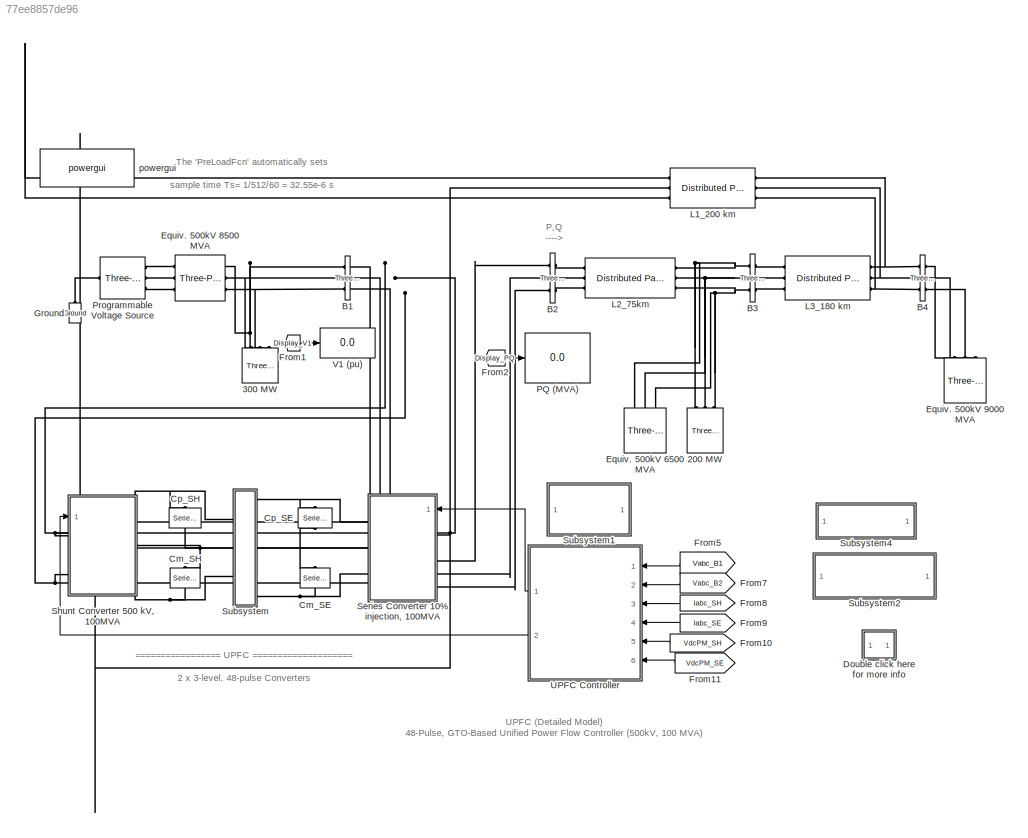
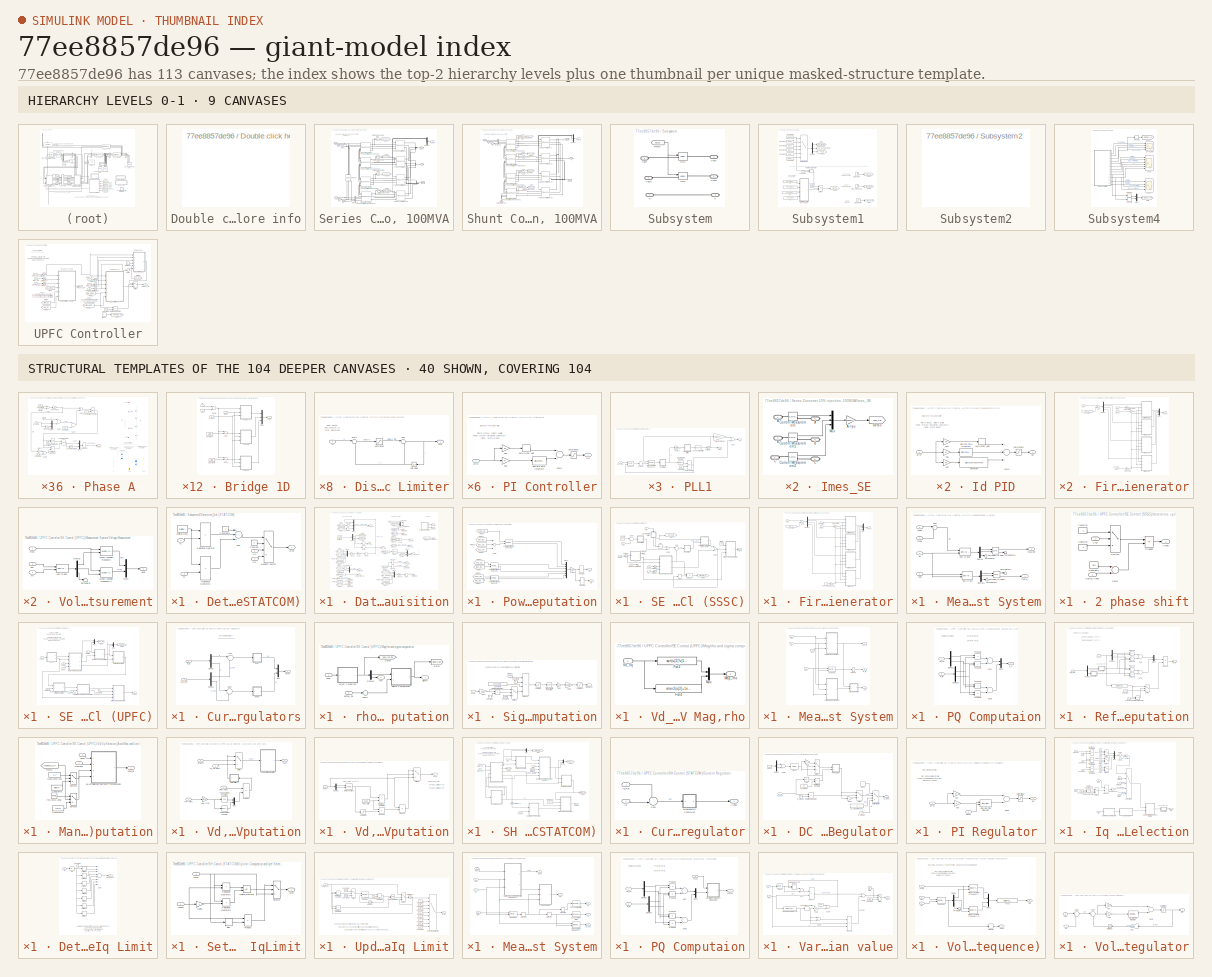
[diagram: thumbnail index - top-2 hierarchy levels (9 canvases) + 40 structural-template representatives of the remaining 104 canvases]
MODEL slx_77ee8857de96
KIND model
CONFIG PreLoadFcn = Ts=1/512/60;
BLOCK [Reference] 200 MW  REF=powerlib/Elements/Three-Phase
Series RLC Load
  ActivePower = 200e6
  AttributesFormatString = \n
  CapacitivePower = 0
  Configuration = Y (grounded)
  InductivePower = 0
  LConnTagsString = A|B|C
  LoadType = constant Z
  Measurements = None
  NominalFrequency = 60
  NominalVoltage = 500e3
  Ports = [0, 0, 0, 0, 0, 3]
  SourceBlock = powerlib/Elements/Three-Phase\nSeries RLC Load
  SourceType = Three-Phase Series RLC Load
BLOCK [Reference] 300 MW  REF=powerlib/Elements/Three-Phase
Parallel RLC Load
  ActivePower = 300e6
  AttributesFormatString = \n
  CapacitivePower = 0
  Configuration = Y (grounded)
  InductivePower = 0
  LConnTagsString = A|B|C
  LoadType = constant Z
  Measurements = None
  NominalFrequency = 60
  NominalVoltage = 500e3
  Ports = [0, 0, 0, 0, 0, 3]
  SourceBlock = powerlib/Elements/Three-Phase\nParallel RLC Load
  SourceType = Three-Phase Parallel RLC Load
BLOCK [Reference] B1  REF=powerlib/Measurements/Three-Phase
V-I Measurement
  CurrentMeasurement = yes
  Ipu = on
  LabelI = Iabc_B1
  LabelV = Vabc_B1
  OutputType = Magnitude
  PSBequivalent = 0
  Pbase = 100e6
  PhasorSimulation = off
  Ports = [0, 0, 0, 0, 0, 3, 3]
  SetLabelI = on
  SetLabelV = on
  SourceBlock = powerlib/Measurements/Three-Phase\nV-I Measurement
  SourceType = Three-Phase VI Measurement
  Vbase = 500e3
  VoltageMeasurement = phase-to-ground
  Vpu = on
  VpuLL = off
BLOCK [Reference] B2  REF=powerlib/Measurements/Three-Phase
V-I Measurement
  CurrentMeasurement = yes
  Ipu = on
  LabelI = Iabc_B2
  LabelV = Vabc_B2
  OutputType = Magnitude
  PSBequivalent = 0
  Pbase = 100e6
  PhasorSimulation = off
  Ports = [0, 0, 0, 0, 0, 3, 3]
  SetLabelI = on
  SetLabelV = on
  SourceBlock = powerlib/Measurements/Three-Phase\nV-I Measurement
  SourceType = Three-Phase VI Measurement
  Vbase = 500e3
  VoltageMeasurement = phase-to-ground
  Vpu = on
  VpuLL = off
BLOCK [Reference] B3  REF=powerlib/Measurements/Three-Phase
V-I Measurement
  CurrentMeasurement = yes
  Ipu = on
  LabelI = Iabc_B3
  LabelV = Vabc_B3
  OutputType = Magnitude
  PSBequivalent = 0
  Pbase = 100e6
  PhasorSimulation = off
  Ports = [0, 0, 0, 0, 0, 3, 3]
  SetLabelI = on
  SetLabelV = on
  SourceBlock = powerlib/Measurements/Three-Phase\nV-I Measurement
  SourceType = Three-Phase VI Measurement
  Vbase = 500e3
  VoltageMeasurement = phase-to-ground
  Vpu = on
  VpuLL = off
BLOCK [Reference] B4  REF=powerlib/Measurements/Three-Phase
V-I Measurement
  CurrentMeasurement = no
  Ipu = on
  LabelI = Iabc_B4
  LabelV = Vabc_B4
  OutputType = Magnitude
  PSBequivalent = 0
  Pbase = 100e6
  PhasorSimulation = off
  Ports = [0, 0, 0, 0, 0, 3, 3]
  SetLabelI = on
  SetLabelV = on
  SourceBlock = powerlib/Measurements/Three-Phase\nV-I Measurement
  SourceType = Three-Phase VI Measurement
  Vbase = 500e3
  VoltageMeasurement = phase-to-ground
  Vpu = on
  VpuLL = off
BLOCK [Reference] Cm_SE  REF=powerlib/Elements/Series RLC Branch
  AttributesFormatString = \n
  BranchType = C
  Capacitance = 2500e-6
  Inductance = 1.0
  InitialCurrent = 0
  InitialVoltage = 0
  LConnTagsString = __new0
  Measurements = Branch voltage
  Ports = [0, 0, 0, 0, 0, 1, 1]
  RConnTagsString = __new0
  Resistance = 1.0
  SetiL0 = off
  Setx0 = off
  SourceBlock = powerlib/Elements/Series RLC Branch
  SourceType = Series RLC Branch
BLOCK [Reference] Cm_SH  REF=powerlib/Elements/Series RLC Branch
  AttributesFormatString = \n
  BranchType = C
  Capacitance = 2500e-6
  Inductance = 1.0
  InitialCurrent = 0
  InitialVoltage = 0
  LConnTagsString = __new0
  Measurements = Branch voltage
  Ports = [0, 0, 0, 0, 0, 1, 1]
  RConnTagsString = __new0
  Resistance = 1.0
  SetiL0 = off
  Setx0 = off
  SourceBlock = powerlib/Elements/Series RLC Branch
  SourceType = Series RLC Branch
BLOCK [Reference] Cp_SE  REF=powerlib/Elements/Series RLC Branch
  AttributesFormatString = \n
  BranchType = C
  Capacitance = 2500e-6
  Inductance = 1.0
  InitialCurrent = 0
  InitialVoltage = 0
  LConnTagsString = __new0
  Measurements = Branch voltage
  Ports = [0, 0, 0, 0, 0, 1, 1]
  RConnTagsString = __new0
  Resistance = 1.0
  SetiL0 = off
  Setx0 = off
  SourceBlock = powerlib/Elements/Series RLC Branch
  SourceType = Series RLC Branch
BLOCK [Reference] Cp_SH  REF=powerlib/Elements/Series RLC Branch
  AttributesFormatString = \n
  BranchType = C
  Capacitance = 2500e-6
  Inductance = 1.0
  InitialCurrent = 0
  InitialVoltage = 0
  LConnTagsString = __new0
  Measurements = Branch voltage
  Ports = [0, 0, 0, 0, 0, 1, 1]
  RConnTagsString = __new0
  Resistance = 1.0
  SetiL0 = off
  Setx0 = off
  SourceBlock = powerlib/Elements/Series RLC Branch
  SourceType = Series RLC Branch
BLOCK [SubSystem] Double click here for more info
  OpenFcn = showdemo(bdroot(gcb))
  Ports = []
  RequestExecContextInheritance = off
BLOCK [Reference] Equiv. 500kV 6500 MVA  REF=powerlib/Electrical
Sources/Three-Phase Source
  BaseVoltage = 500e3
  BusType = swing
  Frequency = 60
  Inductance = 16.58e-3
  InternalConnection = Yg
  PhaseAngle = 9.2-20
  Ports = [0, 0, 0, 0, 0, 0, 3]
  Pref = 0
  Qmax = inf
  Qmin = -inf
  Qref = 0
  Resistance = 0.8929
  ShortCircuitLevel = 6500e6
  SourceBlock = powerlib/Electrical\nSources/Three-Phase Source
  SourceType = Three-Phase Source
  SpecifyImpedance = on
  Voltage = 500e3*1.00
  XRratio = 8
BLOCK [Reference] Equiv. 500kV 8500 MVA   REF=powerlib/Elements/Three-Phase
Series RLC Branch
  AttributesFormatString = \n
  BranchType = RL
  Capacitance = 1.0
  Inductance = 500e3^2/8500e6/(2*pi*60)
  LConnTagsString = A|B|C
  Measurements = None
  Ports = [0, 0, 0, 0, 0, 3, 3]
  RConnTagsString = A|B|C
  Resistance = 500e3^2/8500e6/10
  SourceBlock = powerlib/Elements/Three-Phase\nSeries RLC Branch
  SourceType = Three-Phase Series RLC Branch
BLOCK [Reference] Equiv. 500kV 9000 MVA  REF=powerlib/Electrical
Sources/Three-Phase Source
  BaseVoltage = 500e3
  BusType = swing
  Frequency = 60
  Inductance = 16.58e-3
  InternalConnection = Yg
  PhaseAngle = 9.2-40
  Ports = [0, 0, 0, 0, 0, 0, 3]
  Pref = 0
  Qmax = inf
  Qmin = -inf
  Qref = 0
  Resistance = 0.8929
  ShortCircuitLevel = 9000e6
  SourceBlock = powerlib/Electrical\nSources/Three-Phase Source
  SourceType = Three-Phase Source
  SpecifyImpedance = on
  Voltage = 500e3*0.98
  XRratio = 10
BLOCK [From] From1
  CloseFcn = tagdialog Close
  GotoTag = Display_V1
  TagVisibility = global
BLOCK [From] From10
  CloseFcn = tagdialog Close
  GotoTag = VdcPM_SH
  TagVisibility = global
BLOCK [From] From11
  CloseFcn = tagdialog Close
  GotoTag = VdcPM_SE
  TagVisibility = global
BLOCK [From] From2
  CloseFcn = tagdialog Close
  GotoTag = Display_PQ
  TagVisibility = global
BLOCK [From] From5
  CloseFcn = tagdialog Close
  GotoTag = Vabc_B1
  TagVisibility = global
BLOCK [From] From7
  CloseFcn = tagdialog Close
  GotoTag = Vabc_B2
  TagVisibility = global
BLOCK [From] From8
  CloseFcn = tagdialog Close
  GotoTag = Iabc_SH
  TagVisibility = global
BLOCK [From] From9
  CloseFcn = tagdialog Close
  GotoTag = Iabc_SE
  TagVisibility = global
BLOCK [Reference] Ground  REF=powerlib/Elements/Ground
  AttributesFormatString = \n
  LConnTagsString = a
  Ports = [0, 0, 0, 0, 0, 1]
  SourceBlock = powerlib/Elements/Ground
  SourceType = Ground
BLOCK [Reference] L1_200 km  REF=powerlib/Elements/Distributed Parameters Line
  AttributesFormatString = \n
  Capacitance = [12.74e-9 7.751e-9]
  Frequency = 60
  I1 = ones(3,3)
  I2 = ones(3,3)
  Inductance = [0.9337e-3  4.1264e-3]
  Length = 200
  Measurements = None
  Phases = 3
  Ports = [0, 0, 0, 0, 0, 3, 3]
  Resistance = [0.01273*2 0.3864]
  SourceBlock = powerlib/Elements/Distributed Parameters Line
  SourceType = Distributed Parameters Line
  V1 = ones(3,3)
  V2 = ones(3,3)
  nHarmo = 1
  x1 = [-0.00113932291666667 -5.83775963632197e-11 4414.79498015266 -499890.552538387;-0.00110677083333333 -5.5951515746169e-11 10548.8886083546 -499798.73537353;-0.00107421875 -5.35170090366527e-11 16681.393612734 -499631.650357529;-0.00104166666666667 -5.10744428624266e-11 22811.3864605943 -499389.322652774;-0.00100911458333333 -4.86241850649719e-11 28937.9439975605 -499071.788752926;-0.0009765625 -4.6...<+2255ch>
  x2 = [-0.00113932291666667 2.86811510446065e-11 -126400.807658291 -476001.468702008;-0.00110677083333333 2.96258624700446e-11 -120550.019662708 -477516.759017374;-0.00107421875 3.05661123495671e-11 -114681.077277582 -478960.137065278;-0.00104166666666667 3.15017590850008e-11 -108794.864344047 -480331.385478293;-0.00100911458333333 3.24326617713888e-11 -102892.267304122 -481630.297751453;-0.0009765625 3...<+2255ch>
  x3 = [-0.00113932291666667 8.8939155316367e-13 -16.9421274649171 53.6415754395801;-0.00110677083333333 8.87638250739574e-13 -17.5991164005912 53.4296303617768;-0.00107421875 8.85751273259906e-13 -18.2534549740699 53.2096389781707;-0.00104166666666667 8.83730904896535e-13 -18.9050446443711 52.9816344186549;-0.00100911458333333 8.81577449909503e-13 -19.5537872844871 52.7456510198774;-0.0009765625 8.79291...<+2236ch>
  x4 = [-0.00113932291666667 -7.78110289086618e-14 -894.269601115784 -3549.34214309645;-0.00110677083333333 -8.84298125759026e-14 -850.646376261383 -3560.04894780867;-0.00107421875 -9.90352790386398e-14 -806.895047191642 -3570.21962224425;-0.00104166666666667 -1.09625831152634e-13 -763.022202695786 -3579.85263473701;-0.00100911458333333 -1.20199874019693e-13 -719.03444986282 -3588.94653459072;-0.00097656...<+2289ch>
  x5 = 0.00113108313399149
BLOCK [Reference] L2_75km  REF=powerlib/Elements/Distributed Parameters Line
  AttributesFormatString = \n
  Capacitance = [12.74e-9 7.751e-9]
  Frequency = 60
  I1 = ones(3,3)
  I2 = ones(3,3)
  Inductance = [0.9337e-3  4.1264e-3]
  Length = 75
  Measurements = None
  Phases = 3
  Ports = [0, 0, 0, 0, 0, 3, 3]
  Resistance = [0.01273*2 0.3864]
  SourceBlock = powerlib/Elements/Distributed Parameters Line
  SourceType = Distributed Parameters Line
  V1 = ones(3,3)
  V2 = ones(3,3)
  nHarmo = 1
  x1 = [-0.000455729166666667 -1.27140528390199e-10 0 0;-0.000423177083333333 -1.26495463510687e-10 0 0;-0.000390625 -1.25831348879657e-10 0 0;-0.000358072916666667 -1.25148284510329e-10 0 0;-0.000325520833333333 -1.24446373269686e-10 0 0;-0.00029296875 -1.23725720862978e-10 0 0;-0.000260416666666667 -1.22986435817807e-10 166794.132131736 -471263.82102114;-0.000227864583333333 -1.22228629467782e-10 17256...<+487ch>
  x2 = [-0.000455729166666667 -2.36997076318553e-11 0 0;-0.000423177083333333 -2.41108726134989e-11 0 0;-0.000390625 -2.45184065864136e-11 0 0;-0.000358072916666667 -2.49222481774822e-11 0 0;-0.000325520833333333 -2.53223365696465e-11 0 0;-0.00029296875 -2.57186115110664e-11 0 0;-0.000260416666666667 -2.61110133241931e-11 120220.444766576 -484737.668130302;-0.000227864583333333 -2.6499482914757e-11 12615...<+485ch>
  x3 = [-0.000455729166666667 1.80871262636325e-13 0 0;-0.000423177083333333 1.68315951242698e-13 0 0;-0.000390625 1.55735292085928e-13 0 0;-0.000358072916666667 1.43131179767009e-13 0 0;-0.000325520833333333 1.30505512418895e-13 0 0;-0.00029296875 1.17860191420648e-13 0 0;-0.000260416666666667 1.05197121111097e-13 -104.968306035297 -46.5279101834584;-0.000227864583333333 9.25182085020516e-14 -104.389433...<+480ch>
  x4 = [-0.000455729166666667 -2.77784366561629e-13 0 0;-0.000423177083333333 -3.06117246189209e-13 0 0;-0.000390625 -3.34404025685501e-13 0 0;-0.000358072916666667 -3.6264044516556e-13 0 0;-0.000325520833333333 -3.90822252328473e-13 0 0;-0.00029296875 -4.18945203097742e-13 0 0;-0.000260416666666667 -4.47005062260427e-13 987.851977766537 -3517.72393741717;-0.000227864583333333 -4.74997604104949e-13 1030....<+486ch>
  x5 = 0.000424156175246807
BLOCK [Reference] L3_180 km  REF=powerlib/Elements/Distributed Parameters Line
  AttributesFormatString = \n
  Capacitance = [12.74e-9 7.751e-9]
  Frequency = 60
  I1 = ones(3,3)
  I2 = ones(3,3)
  Inductance = [0.9337e-3  4.1264e-3]
  Length = 180
  Measurements = None
  Phases = 3
  Ports = [0, 0, 0, 0, 0, 3, 3]
  Resistance = [0.01273*2 0.3864]
  SourceBlock = powerlib/Elements/Distributed Parameters Line
  SourceType = Distributed Parameters Line
  V1 = ones(3,3)
  V2 = ones(3,3)
  nHarmo = 1
  x1 = [-0.00104166666666667 -2.13196564095776e-11 0 0;-0.00100911458333333 -2.16197072149166e-11 0 0;-0.0009765625 -2.19165021718726e-11 0 0;-0.000944010416666667 -2.22099965842166e-11 0 0;-0.000911458333333333 -2.25001462527699e-11 0 0;-0.00087890625 -2.27869074820596e-11 0 0;-0.000846354166666667 -2.30702370868993e-11 0 0;-0.000813802083333333 -2.33500923988927e-11 0 0;-0.00078125 -2.36264312728593e-1...<+1666ch>
  x2 = [-0.00104166666666667 3.15017590850008e-11 0 0;-0.00100911458333333 3.24326617713888e-11 0 0;-0.0009765625 3.33586802182108e-11 0 0;-0.000944010416666667 3.42796749704948e-11 0 0;-0.000911458333333333 3.51955073298188e-11 0 0;-0.00087890625 3.61060393751982e-11 0 0;-0.000846354166666667 3.70111339838561e-11 0 0;-0.000813802083333333 3.79106548518737e-11 0 0;-0.00078125 3.8804466514717e-11 0 0;-0.0...<+1646ch>
  x3 = [-0.00104166666666667 1.7095544161851e-13 0 0;-0.00100911458333333 1.71091661173283e-13 0 0;-0.0009765625 1.71202114953208e-13 0 0;-0.000944010416666667 1.71286786324352e-13 0 0;-0.000911458333333333 1.71345662535518e-13 0 0;-0.00087890625 1.71378734720164e-13 0 0;-0.000846354166666667 1.71385997897743e-13 0 0;-0.000813802083333333 1.71367450974445e-13 0 0;-0.00078125 1.71323096743369e-13 0 0;-0.0...<+1644ch>
  x4 = [-0.00104166666666667 7.63530042489158e-13 0 0;-0.00100911458333333 7.54755688850395e-13 0 0;-0.0009765625 7.45867671781101e-13 0 0;-0.000944010416666667 7.36867329783954e-13 0 0;-0.000911458333333333 7.27756018277352e-13 0 0;-0.00087890625 7.18535109391295e-13 0 0;-0.000846354166666667 7.09205991760743e-13 0 0;-0.000813802083333333 6.99770070316497e-13 0 0;-0.00078125 6.90228766073618e-13 0 0;-0....<+1649ch>
  x5 = 0.00101797482059234
BLOCK [Display] PQ (MVA)
  Decimation = 1
  Format = bank
  Ports = [1]
  SampleTime = Ts*100
BLOCK [Reference] Programmable Voltage Source  REF=powerlib/Electrical
Sources/Three-Phase
Programmable
Voltage Source
  Amplitudes = [1  0.8  1.2  1.0 ]
  BusType = swing
  HarmonicA = [3 0.2 -25 0]
  HarmonicB = [2 0.15  35 2]
  HarmonicGeneration = off
  Ports = [0, 0, 0, 0, 0, 1, 3]
  PositiveSequence = [500e3*1.0491 9.2  60]
  Pref = 0
  Qmax = inf
  Qmin = -inf
  Qref = 0
  SourceBlock = powerlib/Electrical\nSources/Three-Phase\nProgrammable\nVoltage Source
  SourceType = Three-Phase Programmable Voltage Source
  TimeValues = [0 0.1 0.25 0.4]
  Timing = [0.1  0.6]
  VariationEntity = None
  VariationFrequency = 2
  VariationMagnitude = 0.4
  VariationPhaseA = off
  VariationRate = 0.5
  VariationStep = -0.3
  VariationTiming = [0.1 1.2]
  VariationType = Modulation
  VariationTypeAlt = Step
BLOCK [SubSystem] Series Converter 10% injection, 100MVA
  Ports = [1, 0, 0, 0, 0, 6, 3]
  RequestExecContextInheritance = off
BLOCK [PMIOPort] Series Converter 10% injection, 100MVA/A1 
  Port = 1
  Side = Left
BLOCK [PMIOPort] Series Converter 10% injection, 100MVA/A2 
  Port = 4
  Side = Left
BLOCK [PMIOPort] Series Converter 10% injection, 100MVA/B1 
  Port = 2
  Side = Left
BLOCK [PMIOPort] Series Converter 10% injection, 100MVA/B2 
  Port = 5
  Side = Left
BLOCK [Reference] Series Converter 10% injection, 100MVA/Breaker  REF=powerlib/Elements/Three-Phase Breaker
  AttributesFormatString = \n
  BreakerResistance = 0.0001
  External = off
  InitialState = closed
  Measurements = None
  Ports = [0, 0, 0, 0, 0, 3, 3]
  SnubberCapacitance = inf
  SnubberResistance = 1e6
  SourceBlock = powerlib/Elements/Three-Phase Breaker
  SourceType = Three-Phase Breaker
  SwitchA = on
  SwitchB = on
  SwitchC = on
  SwitchTimes = [ 0]
BLOCK [PMIOPort] Series Converter 10% injection, 100MVA/C1
  Port = 3
  Side = Left
BLOCK [PMIOPort] Series Converter 10% injection, 100MVA/C2 
  Port = 6
  Side = Left
BLOCK [Demux] Series Converter 10% injection, 100MVA/Demux
  Outputs = [12 12 12 12]
  Ports = [1, 4]
BLOCK [Goto] Series Converter 10% injection, 100MVA/Goto1
  GotoTag = Van_Tr1Yse
  TagVisibility = global
BLOCK [Goto] Series Converter 10% injection, 100MVA/Goto2
  GotoTag = Van_Tr2Yse
  TagVisibility = global
BLOCK [Goto] Series Converter 10% injection, 100MVA/Goto3
  GotoTag = Vab_Tr1Dse
  TagVisibility = global
BLOCK [Goto] Series Converter 10% injection, 100MVA/Goto4
  GotoTag = Vab_Tr2Dse
  TagVisibility = global
BLOCK [SubSystem] Series Converter 10% injection, 100MVA/Imes_SE
  Ports = [0, 0, 0, 0, 0, 3, 3]
  RequestExecContextInheritance = off
BLOCK [PMIOPort] Series Converter 10% injection, 100MVA/Imes_SE/ A
  Port = 4
  Side = Right
BLOCK [PMIOPort] Series Converter 10% injection, 100MVA/Imes_SE/ B
  Port = 5
  Side = Right
BLOCK [PMIOPort] Series Converter 10% injection, 100MVA/Imes_SE/ C
  Port = 6
  Side = Right
BLOCK [PMIOPort] Series Converter 10% injection, 100MVA/Imes_SE/A 
  Port = 1
  Side = Left
BLOCK [Gain] Series Converter 10% injection, 100MVA/Imes_SE/A->pu
  Gain = 500e3*sqrt(3)/100e6/sqrt(2)
BLOCK [PMIOPort] Series Converter 10% injection, 100MVA/Imes_SE/B 
  Port = 2
  Side = Left
BLOCK [PMIOPort] Series Converter 10% injection, 100MVA/Imes_SE/C 
  Port = 3
  Side = Left
BLOCK [Reference] Series Converter 10% injection, 100MVA/Imes_SE/Current Measurement  REF=powerlib/Measurements/Current Measurement
  AttributesFormatString = \n
  OutputType = Magnitude
  PSBequivalent = 0
  PhasorSimulation = off
  Ports = [0, 1, 0, 0, 0, 1, 1]
  SourceBlock = powerlib/Measurements/Current Measurement
  SourceType = Current Measurement
  Tag = PoWeRsYsTeMmEaSuReMeNt
BLOCK [Reference] Series Converter 10% injection, 100MVA/Imes_SE/Current Measurement1  REF=powerlib/Measurements/Current Measurement
  AttributesFormatString = \n
  OutputType = Magnitude
  PSBequivalent = 0
  PhasorSimulation = off
  Ports = [0, 1, 0, 0, 0, 1, 1]
  SourceBlock = powerlib/Measurements/Current Measurement
  SourceType = Current Measurement
  Tag = PoWeRsYsTeMmEaSuReMeNt
BLOCK [Reference] Series Converter 10% injection, 100MVA/Imes_SE/Current Measurement2  REF=powerlib/Measurements/Current Measurement
  AttributesFormatString = \n
  OutputType = Magnitude
  PSBequivalent = 0
  PhasorSimulation = off
  Ports = [0, 1, 0, 0, 0, 1, 1]
  SourceBlock = powerlib/Measurements/Current Measurement
  SourceType = Current Measurement
  Tag = PoWeRsYsTeMmEaSuReMeNt
BLOCK [Goto] Series Converter 10% injection, 100MVA/Imes_SE/Goto3
  GotoTag = Iabc_SE
  TagVisibility = global
BLOCK [Mux] Series Converter 10% injection, 100MVA/Imes_SE/Mux
  DisplayOption = bar
  Inputs = 3
  Ports = [3, 1]
BLOCK [PMIOPort] Series Converter 10% injection, 100MVA/N
  Port = 8
  Side = Right
BLOCK [Inport] Series Converter 10% injection, 100MVA/Pulses
  IconDisplay = Port number
  PortDimensions = 48
BLOCK [Reference] Series Converter 10% injection, 100MVA/Three-Level Bridge 12Y  REF=powerlib/Power
Electronics/Three-Level Bridge
  Arms = 3
  AttributesFormatString = \n
  Device = GTO / Diodes
  ForwardVoltages = [  0  0  ]
  Measurements = None
  Ports = [1, 0, 0, 0, 0, 3, 3]
  Ron = 1e-4
  SbubberCapacitance = inf
  SnubberResistance = 1e5
  SourceBlock = powerlib/Power\nElectronics/Three-Level Bridge
  SourceType = Three-Level Bridge
BLOCK [Reference] Series Converter 10% injection, 100MVA/Three-Level Bridge 1D  REF=powerlib/Power
Electronics/Three-Level Bridge
  Arms = 3
  AttributesFormatString = \n
  Device = GTO / Diodes
  ForwardVoltages = [  0  0  ]
  Measurements = None
  Ports = [1, 0, 0, 0, 0, 3, 3]
  Ron = 1e-4
  SbubberCapacitance = inf
  SnubberResistance = 1e5
  SourceBlock = powerlib/Power\nElectronics/Three-Level Bridge
  SourceType = Three-Level Bridge
BLOCK [Reference] Series Converter 10% injection, 100MVA/Three-Level Bridge 1Y  REF=powerlib/Power
Electronics/Three-Level Bridge
  Arms = 3
  AttributesFormatString = \n
  Device = GTO / Diodes
  ForwardVoltages = [  0  0  ]
  Measurements = None
  Ports = [1, 0, 0, 0, 0, 3, 3]
  Ron = 1e-4
  SbubberCapacitance = inf
  SnubberResistance = 1e5
  SourceBlock = powerlib/Power\nElectronics/Three-Level Bridge
  SourceType = Three-Level Bridge
BLOCK [Reference] Series Converter 10% injection, 100MVA/Three-Level Bridge 2D  REF=powerlib/Power
Electronics/Three-Level Bridge
  Arms = 3
  AttributesFormatString = \n
  Device = GTO / Diodes
  ForwardVoltages = [  0  0  ]
  Measurements = None
  Ports = [1, 0, 0, 0, 0, 3, 3]
  Ron = 1e-4
  SbubberCapacitance = inf
  SnubberResistance = 1e5
  SourceBlock = powerlib/Power\nElectronics/Three-Level Bridge
  SourceType = Three-Level Bridge
BLOCK [PMIOPort] Series Converter 10% injection, 100MVA/VdcM
  Port = 9
  Side = Right
BLOCK [PMIOPort] Series Converter 10% injection, 100MVA/VdcP
  Port = 7
  Side = Right
BLOCK [Reference] Series Converter 10% injection, 100MVA/Voltage Measurement  REF=powerlib/Measurements/Voltage Measurement
  AttributesFormatString = \n
  OutputType = Magnitude
  PSBequivalent = 0
  PhasorSimulation = off
  Ports = [0, 1, 0, 0, 0, 2]
  SourceBlock = powerlib/Measurements/Voltage Measurement
  SourceType = Voltage Measurement
  Tag = PoWeRsYsTeMmEaSuReMeNt
BLOCK [Reference] Series Converter 10% injection, 100MVA/Voltage Measurement1  REF=powerlib/Measurements/Voltage Measurement
  AttributesFormatString = \n
  OutputType = Magnitude
  PSBequivalent = 0
  PhasorSimulation = off
  Ports = [0, 1, 0, 0, 0, 2]
  SourceBlock = powerlib/Measurements/Voltage Measurement
  SourceType = Voltage Measurement
  Tag = PoWeRsYsTeMmEaSuReMeNt
BLOCK [Reference] Series Converter 10% injection, 100MVA/Voltage Measurement2  REF=powerlib/Measurements/Voltage Measurement
  AttributesFormatString = \n
  OutputType = Magnitude
  PSBequivalent = 0
  PhasorSimulation = off
  Ports = [0, 1, 0, 0, 0, 2]
  SourceBlock = powerlib/Measurements/Voltage Measurement
  SourceType = Voltage Measurement
  Tag = PoWeRsYsTeMmEaSuReMeNt
BLOCK [Reference] Series Converter 10% injection, 100MVA/Voltage Measurement3  REF=powerlib/Measurements/Voltage Measurement
  AttributesFormatString = \n
  OutputType = Magnitude
  PSBequivalent = 0
  PhasorSimulation = off
  Ports = [0, 1, 0, 0, 0, 2]
  SourceBlock = powerlib/Measurements/Voltage Measurement
  SourceType = Voltage Measurement
  Tag = PoWeRsYsTeMmEaSuReMeNt
BLOCK [Reference] Series Converter 10% injection, 100MVA/Zigzag transformer Phase-Shifting of +7.5 deg. Tr1Y  REF=powerlib/Elements/Zigzag
Phase-Shifting Transformer
  AttributesFormatString = \n
  BreakLoop = off
  DataType = off
  InitialFluxes = [0,0,0]
  Measurements = None
  MoreParameters = off
  NominalPower = [ 100e6/4 60]
  Ports = [0, 0, 0, 0, 0, 6, 4]
  PrimaryVoltage = 12.5e3
  Rm = 500
  RmLm = [ 500 500 ]
  Saturation = [ 0,0 ; 0.0024,1.2 ; 1.0,1.52 ]
  SecondaryConnection = Yn
  SecondaryVoltage = [ 12.5e3  +7.5]
  SetInitialFlux = off
  SetSaturation = off
  SourceBlock = powerlib/Elements/Zigzag\nPhase-Shifting Transformer
  SourceType = Zigzag Phase-Shifting Transformer
  UNITS = pu
  Winding1 = [ 0.05/30 0.05 ]
  Winding2 = [ 0.05/30 0.05 ]
  Winding3 = [ 0.05/30 0.05 ]
BLOCK [Reference] Series Converter 10% injection, 100MVA/Zigzag transformer Phase-Shifting of +7.5 deg. Tr1Y1  REF=powerlib/Elements/Zigzag
Phase-Shifting Transformer
  AttributesFormatString = \n
  BreakLoop = off
  DataType = off
  InitialFluxes = [0,0,0]
  Measurements = None
  MoreParameters = off
  NominalPower = [ 100e6/4 60]
  Ports = [0, 0, 0, 0, 0, 6, 3]
  PrimaryVoltage = 12.5e3
  Rm = 500
  RmLm = [ 500 500 ]
  Saturation = [ 0,0 ; 0.0024,1.2 ; 1.0,1.52 ]
  SecondaryConnection = Delta D1(-30 deg.)
  SecondaryVoltage = [ 12.5e3  +7.5]
  SetInitialFlux = off
  SetSaturation = off
  SourceBlock = powerlib/Elements/Zigzag\nPhase-Shifting Transformer
  SourceType = Zigzag Phase-Shifting Transformer
  UNITS = pu
  Winding1 = [ 0.05/30 0.05 ]
  Winding2 = [ 0.05/30 0.05 ]
  Winding3 = [ 0.05/30 0.05 ]
BLOCK [Reference] Series Converter 10% injection, 100MVA/Zigzag transformer Phase-Shifting of -7.5 deg. Tr1Y2  REF=powerlib/Elements/Zigzag
Phase-Shifting Transformer
  AttributesFormatString = \n
  BreakLoop = off
  DataType = off
  InitialFluxes = [0,0,0]
  Measurements = None
  MoreParameters = off
  NominalPower = [ 100e6/4 60]
  Ports = [0, 0, 0, 0, 0, 6, 3]
  PrimaryVoltage = 12.5e3
  Rm = 500
  RmLm = [ 500 500 ]
  Saturation = [ 0,0 ; 0.0024,1.2 ; 1.0,1.52 ]
  SecondaryConnection = Delta D1(-30 deg.)
  SecondaryVoltage = [ 12.5e3  -7.5]
  SetInitialFlux = off
  SetSaturation = off
  SourceBlock = powerlib/Elements/Zigzag\nPhase-Shifting Transformer
  SourceType = Zigzag Phase-Shifting Transformer
  UNITS = pu
  Winding1 = [ 0.05/30 0.05 ]
  Winding2 = [ 0.05/30 0.05 ]
  Winding3 = [ 0.05/30 0.05 ]
BLOCK [Reference] Series Converter 10% injection, 100MVA/Zigzag transformer Phase-Shifting of -7.5 deg. Tr2Y  REF=powerlib/Elements/Zigzag
Phase-Shifting Transformer
  AttributesFormatString = \n
  BreakLoop = off
  DataType = off
  InitialFluxes = [0,0,0]
  Measurements = None
  MoreParameters = off
  NominalPower = [ 100e6/4 60]
  Ports = [0, 0, 0, 0, 0, 6, 4]
  PrimaryVoltage = 12.5e3
  Rm = 500
  RmLm = [ 500 500 ]
  Saturation = [ 0,0 ; 0.0024,1.2 ; 1.0,1.52 ]
  SecondaryConnection = Yn
  SecondaryVoltage = [ 12.5e3  -7.5]
  SetInitialFlux = off
  SetSaturation = off
  SourceBlock = powerlib/Elements/Zigzag\nPhase-Shifting Transformer
  SourceType = Zigzag Phase-Shifting Transformer
  UNITS = pu
  Winding1 = [ 0.05/30 0.05 ]
  Winding2 = [ 0.05/30 0.05 ]
  Winding3 = [ 0.05/30 0.05 ]
BLOCK [SubSystem] Shunt Converter 500 kV, 100MVA
  Ports = [1, 0, 0, 0, 0, 3, 3]
  RequestExecContextInheritance = off
BLOCK [PMIOPort] Shunt Converter 500 kV, 100MVA/A
  Port = 4
  Side = Left
BLOCK [PMIOPort] Shunt Converter 500 kV, 100MVA/B
  Port = 5
  Side = Left
BLOCK [PMIOPort] Shunt Converter 500 kV, 100MVA/C
  Port = 6
  Side = Left
BLOCK [Demux] Shunt Converter 500 kV, 100MVA/Demux
  Outputs = [12 12 12 12]
  Ports = [1, 4]
BLOCK [Goto] Shunt Converter 500 kV, 100MVA/Goto1
  GotoTag = Van_Tr1Y
  TagVisibility = global
BLOCK [Goto] Shunt Converter 500 kV, 100MVA/Goto2
  GotoTag = Van_Tr2Y
  TagVisibility = global
BLOCK [Goto] Shunt Converter 500 kV, 100MVA/Goto3
  GotoTag = Vab_Tr1D
  TagVisibility = global
BLOCK [Goto] Shunt Converter 500 kV, 100MVA/Goto4
  GotoTag = Vab_Tr2D
  TagVisibility = global
BLOCK [SubSystem] Shunt Converter 500 kV, 100MVA/Imes_SH
  Ports = [0, 0, 0, 0, 0, 3, 3]
  RequestExecContextInheritance = off
BLOCK [PMIOPort] Shunt Converter 500 kV, 100MVA/Imes_SH/ A
  Port = 4
  Side = Right
BLOCK [PMIOPort] Shunt Converter 500 kV, 100MVA/Imes_SH/ B
  Port = 5
  Side = Right
BLOCK [PMIOPort] Shunt Converter 500 kV, 100MVA/Imes_SH/ C
  Port = 6
  Side = Right
BLOCK [PMIOPort] Shunt Converter 500 kV, 100MVA/Imes_SH/A 
  Port = 1
  Side = Left
BLOCK [Gain] Shunt Converter 500 kV, 100MVA/Imes_SH/A->pu
  Gain = 500e3*sqrt(3)/100e6/sqrt(2)
BLOCK [PMIOPort] Shunt Converter 500 kV, 100MVA/Imes_SH/B 
  Port = 2
  Side = Left
BLOCK [PMIOPort] Shunt Converter 500 kV, 100MVA/Imes_SH/C 
  Port = 3
  Side = Left
BLOCK [Reference] Shunt Converter 500 kV, 100MVA/Imes_SH/Current Measurement  REF=powerlib/Measurements/Current Measurement
  AttributesFormatString = \n
  OutputType = Magnitude
  PSBequivalent = 0
  PhasorSimulation = off
  Ports = [0, 1, 0, 0, 0, 1, 1]
  SourceBlock = powerlib/Measurements/Current Measurement
  SourceType = Current Measurement
  Tag = PoWeRsYsTeMmEaSuReMeNt
BLOCK [Reference] Shunt Converter 500 kV, 100MVA/Imes_SH/Current Measurement1  REF=powerlib/Measurements/Current Measurement
  AttributesFormatString = \n
  OutputType = Magnitude
  PSBequivalent = 0
  PhasorSimulation = off
  Ports = [0, 1, 0, 0, 0, 1, 1]
  SourceBlock = powerlib/Measurements/Current Measurement
  SourceType = Current Measurement
  Tag = PoWeRsYsTeMmEaSuReMeNt
BLOCK [Reference] Shunt Converter 500 kV, 100MVA/Imes_SH/Current Measurement2  REF=powerlib/Measurements/Current Measurement
  AttributesFormatString = \n
  OutputType = Magnitude
  PSBequivalent = 0
  PhasorSimulation = off
  Ports = [0, 1, 0, 0, 0, 1, 1]
  SourceBlock = powerlib/Measurements/Current Measurement
  SourceType = Current Measurement
  Tag = PoWeRsYsTeMmEaSuReMeNt
BLOCK [Goto] Shunt Converter 500 kV, 100MVA/Imes_SH/Goto3
  GotoTag = Iabc_SH
  TagVisibility = global
BLOCK [Mux] Shunt Converter 500 kV, 100MVA/Imes_SH/Mux
  DisplayOption = bar
  Inputs = 3
  Ports = [3, 1]
BLOCK [PMIOPort] Shunt Converter 500 kV, 100MVA/N
  Port = 2
  Side = Right
BLOCK [Inport] Shunt Converter 500 kV, 100MVA/Pulses
  IconDisplay = Port number
  PortDimensions = 48
BLOCK [Reference] Shunt Converter 500 kV, 100MVA/Three-Level Bridge 12Y  REF=powerlib/Power
Electronics/Three-Level Bridge
  Arms = 3
  AttributesFormatString = \n
  Device = GTO / Diodes
  ForwardVoltages = [  0  0  ]
  Measurements = None
  Ports = [1, 0, 0, 0, 0, 3, 3]
  Ron = 1e-4
  SbubberCapacitance = inf
  SnubberResistance = 1e5
  SourceBlock = powerlib/Power\nElectronics/Three-Level Bridge
  SourceType = Three-Level Bridge
BLOCK [Reference] Shunt Converter 500 kV, 100MVA/Three-Level Bridge 1D  REF=powerlib/Power
Electronics/Three-Level Bridge
  Arms = 3
  AttributesFormatString = \n
  Device = GTO / Diodes
  ForwardVoltages = [  0  0  ]
  Measurements = None
  Ports = [1, 0, 0, 0, 0, 3, 3]
  Ron = 1e-4
  SbubberCapacitance = inf
  SnubberResistance = 1e5
  SourceBlock = powerlib/Power\nElectronics/Three-Level Bridge
  SourceType = Three-Level Bridge
BLOCK [Reference] Shunt Converter 500 kV, 100MVA/Three-Level Bridge 1Y  REF=powerlib/Power
Electronics/Three-Level Bridge
  Arms = 3
  AttributesFormatString = \n
  Device = GTO / Diodes
  ForwardVoltages = [  0  0  ]
  Measurements = None
  Ports = [1, 0, 0, 0, 0, 3, 3]
  Ron = 1e-4
  SbubberCapacitance = inf
  SnubberResistance = 1e5
  SourceBlock = powerlib/Power\nElectronics/Three-Level Bridge
  SourceType = Three-Level Bridge
BLOCK [Reference] Shunt Converter 500 kV, 100MVA/Three-Level Bridge 2D  REF=powerlib/Power
Electronics/Three-Level Bridge
  Arms = 3
  AttributesFormatString = \n
  Device = GTO / Diodes
  ForwardVoltages = [  0  0  ]
  Measurements = None
  Ports = [1, 0, 0, 0, 0, 3, 3]
  Ron = 1e-4
  SbubberCapacitance = inf
  SnubberResistance = 1e5
  SourceBlock = powerlib/Power\nElectronics/Three-Level Bridge
  SourceType = Three-Level Bridge
BLOCK [PMIOPort] Shunt Converter 500 kV, 100MVA/VdcM
  Port = 3
  Side = Right
BLOCK [PMIOPort] Shunt Converter 500 kV, 100MVA/VdcP
  Port = 1
  Side = Right
BLOCK [Reference] Shunt Converter 500 kV, 100MVA/Voltage Measurement  REF=powerlib/Measurements/Voltage Measurement
  AttributesFormatString = \n
  OutputType = Magnitude
  PSBequivalent = 0
  PhasorSimulation = off
  Ports = [0, 1, 0, 0, 0, 2]
  SourceBlock = powerlib/Measurements/Voltage Measurement
  SourceType = Voltage Measurement
  Tag = PoWeRsYsTeMmEaSuReMeNt
BLOCK [Reference] Shunt Converter 500 kV, 100MVA/Voltage Measurement1  REF=powerlib/Measurements/Voltage Measurement
  AttributesFormatString = \n
  OutputType = Magnitude
  PSBequivalent = 0
  PhasorSimulation = off
  Ports = [0, 1, 0, 0, 0, 2]
  SourceBlock = powerlib/Measurements/Voltage Measurement
  SourceType = Voltage Measurement
  Tag = PoWeRsYsTeMmEaSuReMeNt
BLOCK [Reference] Shunt Converter 500 kV, 100MVA/Voltage Measurement2  REF=powerlib/Measurements/Voltage Measurement
  AttributesFormatString = \n
  OutputType = Magnitude
  PSBequivalent = 0
  PhasorSimulation = off
  Ports = [0, 1, 0, 0, 0, 2]
  SourceBlock = powerlib/Measurements/Voltage Measurement
  SourceType = Voltage Measurement
  Tag = PoWeRsYsTeMmEaSuReMeNt
BLOCK [Reference] Shunt Converter 500 kV, 100MVA/Voltage Measurement3  REF=powerlib/Measurements/Voltage Measurement
  AttributesFormatString = \n
  OutputType = Magnitude
  PSBequivalent = 0
  PhasorSimulation = off
  Ports = [0, 1, 0, 0, 0, 2]
  SourceBlock = powerlib/Measurements/Voltage Measurement
  SourceType = Voltage Measurement
  Tag = PoWeRsYsTeMmEaSuReMeNt
BLOCK [Reference] Shunt Converter 500 kV, 100MVA/Zigzag transformer Phase-Shifting of +7.5 deg. Tr1Y  REF=powerlib/Elements/Zigzag
Phase-Shifting Transformer
  AttributesFormatString = \n
  BreakLoop = off
  DataType = off
  InitialFluxes = [0,0,0]
  Measurements = None
  MoreParameters = off
  NominalPower = [ 100e6/4 60]
  Ports = [0, 0, 0, 0, 0, 6, 4]
  PrimaryVoltage = 500e3/4
  Rm = 500
  RmLm = [ 500 500 ]
  Saturation = [ 0,0 ; 0.0024,1.2 ; 1.0,1.52 ]
  SecondaryConnection = Yn
  SecondaryVoltage = [ 15e3  +7.5]
  SetInitialFlux = off
  SetSaturation = off
  SourceBlock = powerlib/Elements/Zigzag\nPhase-Shifting Transformer
  SourceType = Zigzag Phase-Shifting Transformer
  UNITS = pu
  Winding1 = [ 0.05/30 0.05 ]
  Winding2 = [ 0.05/30 0.05 ]
  Winding3 = [ 0.05/30 0.05 ]
BLOCK [Reference] Shunt Converter 500 kV, 100MVA/Zigzag transformer Phase-Shifting of +7.5 deg. Tr1Y1  REF=powerlib/Elements/Zigzag
Phase-Shifting Transformer
  AttributesFormatString = \n
  BreakLoop = off
  DataType = off
  InitialFluxes = [0,0,0]
  Measurements = None
  MoreParameters = off
  NominalPower = [ 100e6/4 60]
  Ports = [0, 0, 0, 0, 0, 6, 3]
  PrimaryVoltage = 500e3/4
  Rm = 500
  RmLm = [ 500 500 ]
  Saturation = [ 0,0 ; 0.0024,1.2 ; 1.0,1.52 ]
  SecondaryConnection = Delta D1(-30 deg.)
  SecondaryVoltage = [ 15e3  +7.5]
  SetInitialFlux = off
  SetSaturation = off
  SourceBlock = powerlib/Elements/Zigzag\nPhase-Shifting Transformer
  SourceType = Zigzag Phase-Shifting Transformer
  UNITS = pu
  Winding1 = [ 0.05/30 0.05 ]
  Winding2 = [ 0.05/30 0.05 ]
  Winding3 = [ 0.05/30 0.05 ]
BLOCK [Reference] Shunt Converter 500 kV, 100MVA/Zigzag transformer Phase-Shifting of -7.5 deg. Tr1Y2  REF=powerlib/Elements/Zigzag
Phase-Shifting Transformer
  AttributesFormatString = \n
  BreakLoop = off
  DataType = off
  InitialFluxes = [0,0,0]
  Measurements = None
  MoreParameters = off
  NominalPower = [ 100e6/4 60]
  Ports = [0, 0, 0, 0, 0, 6, 3]
  PrimaryVoltage = 500e3/4
  Rm = 500
  RmLm = [ 500 500 ]
  Saturation = [ 0,0 ; 0.0024,1.2 ; 1.0,1.52 ]
  SecondaryConnection = Delta D1(-30 deg.)
  SecondaryVoltage = [ 15e3  -7.5]
  SetInitialFlux = off
  SetSaturation = off
  SourceBlock = powerlib/Elements/Zigzag\nPhase-Shifting Transformer
  SourceType = Zigzag Phase-Shifting Transformer
  UNITS = pu
  Winding1 = [ 0.05/30 0.05 ]
  Winding2 = [ 0.05/30 0.05 ]
  Winding3 = [ 0.05/30 0.05 ]
BLOCK [Reference] Shunt Converter 500 kV, 100MVA/Zigzag transformer Phase-Shifting of -7.5 deg. Tr2Y  REF=powerlib/Elements/Zigzag
Phase-Shifting Transformer
  AttributesFormatString = \n
  BreakLoop = off
  DataType = off
  InitialFluxes = [0,0,0]
  Measurements = None
  MoreParameters = off
  NominalPower = [ 100e6/4 60]
  Ports = [0, 0, 0, 0, 0, 6, 4]
  PrimaryVoltage = 500e3/4
  Rm = 500
  RmLm = [ 500 500 ]
  Saturation = [ 0,0 ; 0.0024,1.2 ; 1.0,1.52 ]
  SecondaryConnection = Yn
  SecondaryVoltage = [ 15e3  -7.5]
  SetInitialFlux = off
  SetSaturation = off
  SourceBlock = powerlib/Elements/Zigzag\nPhase-Shifting Transformer
  SourceType = Zigzag Phase-Shifting Transformer
  UNITS = pu
  Winding1 = [ 0.05/30 0.05 ]
  Winding2 = [ 0.05/30 0.05 ]
  Winding3 = [ 0.05/30 0.05 ]
BLOCK [Reference] Shunt Converter 500 kV, 100MVA/output Ground1  REF=powerlib/Elements/Ground
  AttributesFormatString = \n
  LConnTagsString = a
  Ports = [0, 0, 0, 0, 0, 1, 1]
  RConnTagsString = __newr0
  SourceBlock = powerlib/Elements/Ground
  SourceType = Ground
BLOCK [SubSystem] Subsystem
  Ports = [0, 0, 0, 0, 0, 3, 3]
  RequestExecContextInheritance = off
BLOCK [PMIOPort] Subsystem/ N
  Port = 5
  Side = Right
BLOCK [PMIOPort] Subsystem/ VdcM
  Port = 6
  Side = Right
BLOCK [PMIOPort] Subsystem/ VdcP
  Port = 4
  Side = Right
BLOCK [From] Subsystem/From5
  CloseFcn = tagdialog Close
  GotoTag = Sw_On
  TagVisibility = global
BLOCK [PMIOPort] Subsystem/N 
  Port = 2
  Side = Left
BLOCK [Reference] Subsystem/Sw1  REF=powerlib/Power
Electronics/Ideal Switch
  AttributesFormatString = \n
  Cs = 0
  IC = 0
  Lon = 0
  Measurements = off
  Ports = [1, 0, 0, 0, 0, 1, 1]
  Ron = 0.0001
  Rs = inf
  SourceBlock = powerlib/Power\nElectronics/Ideal Switch
  SourceType = Ideal Switch
BLOCK [Reference] Subsystem/Sw2  REF=powerlib/Power
Electronics/Ideal Switch
  AttributesFormatString = \n
  Cs = 0
  IC = 0
  Lon = 0
  Measurements = off
  Ports = [1, 0, 0, 0, 0, 1, 1]
  Ron = 0.0001
  Rs = inf
  SourceBlock = powerlib/Power\nElectronics/Ideal Switch
  SourceType = Ideal Switch
BLOCK [PMIOPort] Subsystem/VdcM 
  Port = 3
  Side = Left
BLOCK [PMIOPort] Subsystem/VdcP 
  Port = 1
  Side = Left
BLOCK [SubSystem] Subsystem1
  Ports = []
  RequestExecContextInheritance = off
BLOCK [Constant] Subsystem1/Constant
  Value = 3
BLOCK [Constant] Subsystem1/Constant1
  Value = [ 2 1 0]
BLOCK [Constant] Subsystem1/Constant2
  Value = OpMode
BLOCK [Constant] Subsystem1/Constant3
  Value = [ 1 1 0]
BLOCK [Constant] Subsystem1/Constant4
  Value = [ 2 2 0]
BLOCK [Constant] Subsystem1/Constant5
  Value = [ 1 2 0]
BLOCK [Constant] Subsystem1/Constant6
  Value = [ 1 0 1]
BLOCK [Constant] Subsystem1/Constant7
  Value = 0
BLOCK [Demux] Subsystem1/Demux
  Outputs = 3
  Ports = [1, 3]
BLOCK [SubSystem] Subsystem1/Determine_Qref (STATCOM)
  Ports = [4, 1]
  RequestExecContextInheritance = off
BLOCK [Constant] Subsystem1/Determine_Qref (STATCOM)/Constant
  Value = 0
BLOCK [Constant] Subsystem1/Determine_Qref (STATCOM)/Constant1
BLOCK [DigitalClock] Subsystem1/Determine_Qref (STATCOM)/Digital Clock
  SampleTime = Ts
BLOCK [MultiPortSwitch] Subsystem1/Determine_Qref (STATCOM)/Multiport Switch
  InputSameDT = off
  Ports = [4, 1]
BLOCK [Inport] Subsystem1/Determine_Qref (STATCOM)/Q1
  IconDisplay = Port number
  Port = 3
BLOCK [Inport] Subsystem1/Determine_Qref (STATCOM)/Q2
  IconDisplay = Port number
  Port = 4
BLOCK [Outport] Subsystem1/Determine_Qref (STATCOM)/Qref
  IconDisplay = Port number
BLOCK [RelationalOperator] Subsystem1/Determine_Qref (STATCOM)/Relational Operator
  InputSameDT = off
  Operator = >
  Ports = [2, 1]
BLOCK [RelationalOperator] Subsystem1/Determine_Qref (STATCOM)/Relational Operator1
  InputSameDT = off
  Operator = >
  Ports = [2, 1]
BLOCK [Sum] Subsystem1/Determine_Qref (STATCOM)/Sum
  InputSameDT = off
  Inputs = +++
  OutDataTypeStr = Inherit: Inherit via internal rule
  Ports = [3, 1]
BLOCK [Inport] Subsystem1/Determine_Qref (STATCOM)/T1
  IconDisplay = Port number
BLOCK [Inport] Subsystem1/Determine_Qref (STATCOM)/T2
  IconDisplay = Port number
  Port = 2
BLOCK [Goto] Subsystem1/Goto1
  GotoTag = SE_Mode
  TagVisibility = global
BLOCK [Goto] Subsystem1/Goto2
  GotoTag = SH_Mode
  TagVisibility = global
BLOCK [Goto] Subsystem1/Goto3
  GotoTag = Sw_On
  TagVisibility = global
BLOCK [Goto] Subsystem1/Goto4
  GotoTag = Qref_SH
  TagVisibility = global
BLOCK [Goto] Subsystem1/Goto5
  GotoTag = Vref_SH
  TagVisibility = global
BLOCK [Goto] Subsystem1/Goto6
  GotoTag = Vinj_SSSC
  TagVisibility = global
BLOCK [Goto] Subsystem1/Goto7
  GotoTag = PQref_UPFC
  TagVisibility = global
BLOCK [MultiPortSwitch] Subsystem1/Multiport Switch
  InputSameDT = off
  Inputs = 5
  Ports = [6, 1]
BLOCK [Constant] Subsystem1/Q1
  Value = Par_VarControl(3)
BLOCK [Constant] Subsystem1/Q2
  Value = Par_VarControl(4)
BLOCK [RelationalOperator] Subsystem1/Relational Operator
  InputSameDT = off
  Operator = ==
  Ports = [2, 1]
BLOCK [Step] Subsystem1/Step_PQref
  After = [Par_UPFC_Pref(2) Par_UPFC_Qref(2) ]
  Before = [Par_UPFC_Pref(1) Par_UPFC_Qref(1) ]
  SampleTime = 0
  Time = [Par_UPFC_Pref(3) Par_UPFC_Qref(3) ]
BLOCK [Step] Subsystem1/Step_Vinj_SSSC
  After = Par_SSSC(2)
  Before = Par_SSSC(1)
  SampleTime = 0
  Time = Par_SSSC(3)
BLOCK [Step] Subsystem1/Step_Vref
  After = Par_Vref(2)
  Before = Par_Vref(1)
  SampleTime = 0
  Time = Par_Vref(3)
BLOCK [Switch] Subsystem1/Switch
  InputSameDT = off
  Threshold = 0.5
BLOCK [Constant] Subsystem1/T1
  Value = Par_VarControl(1)
BLOCK [Constant] Subsystem1/T2
  Value = Par_VarControl(2)
BLOCK [SubSystem] Subsystem2
  OpenFcn = openfig('power_upfc_gto48p_PQregion.fig');
  Ports = []
  RequestExecContextInheritance = off
BLOCK [SubSystem] Subsystem4
  Ports = []
  RequestExecContextInheritance = off
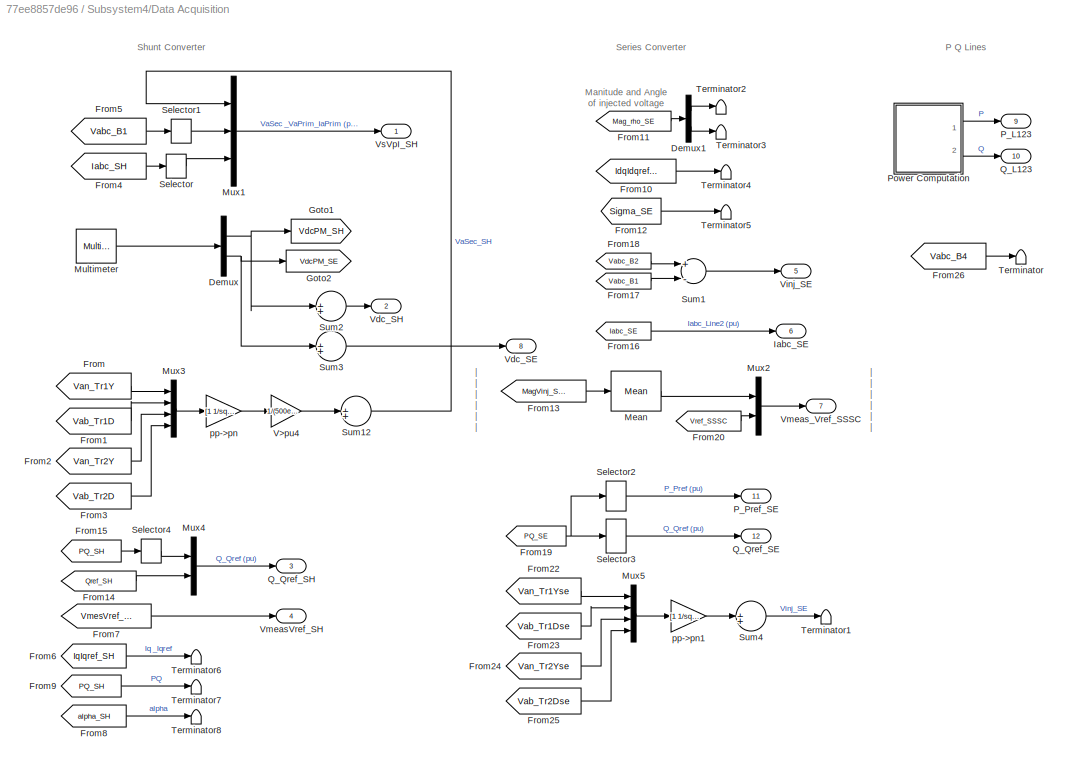
BLOCK [SubSystem] Subsystem4/Data Acquisition
  Ports = [0, 12]
  RequestExecContextInheritance = off
BLOCK [Demux] Subsystem4/Data Acquisition/Demux
  Outputs = [2 2]
  Ports = [1, 2]
BLOCK [Demux] Subsystem4/Data Acquisition/Demux1
  Outputs = 2
  Ports = [1, 2]
BLOCK [From] Subsystem4/Data Acquisition/From
  CloseFcn = tagdialog Close
  GotoTag = Van_Tr1Y
  TagVisibility = global
BLOCK [From] Subsystem4/Data Acquisition/From1
  CloseFcn = tagdialog Close
  GotoTag = Vab_Tr1D
  TagVisibility = global
BLOCK [From] Subsystem4/Data Acquisition/From10
  CloseFcn = tagdialog Close
  GotoTag = IdqIdqref_SE
  TagVisibility = global
BLOCK [From] Subsystem4/Data Acquisition/From11
  CloseFcn = tagdialog Close
  GotoTag = Mag_rho_SE
  TagVisibility = global
BLOCK [From] Subsystem4/Data Acquisition/From12
  CloseFcn = tagdialog Close
  GotoTag = Sigma_SE
  TagVisibility = global
BLOCK [From] Subsystem4/Data Acquisition/From13
  CloseFcn = tagdialog Close
  GotoTag = MagVinj_SSSC
  TagVisibility = global
BLOCK [From] Subsystem4/Data Acquisition/From14
  CloseFcn = tagdialog Close
  GotoTag = Qref_SH
  TagVisibility = global
BLOCK [From] Subsystem4/Data Acquisition/From15
  CloseFcn = tagdialog Close
  GotoTag = PQ_SH
  TagVisibility = global
BLOCK [From] Subsystem4/Data Acquisition/From16
  CloseFcn = tagdialog Close
  GotoTag = Iabc_SE
  TagVisibility = global
BLOCK [From] Subsystem4/Data Acquisition/From17
  CloseFcn = tagdialog Close
  GotoTag = Vabc_B1
  TagVisibility = global
BLOCK [From] Subsystem4/Data Acquisition/From18
  CloseFcn = tagdialog Close
  GotoTag = Vabc_B2
  TagVisibility = global
BLOCK [From] Subsystem4/Data Acquisition/From19
  CloseFcn = tagdialog Close
  GotoTag = PQ_SE
  TagVisibility = global
BLOCK [From] Subsystem4/Data Acquisition/From2
  CloseFcn = tagdialog Close
  GotoTag = Van_Tr2Y
  TagVisibility = global
BLOCK [From] Subsystem4/Data Acquisition/From20
  CloseFcn = tagdialog Close
  GotoTag = Vref_SSSC
  TagVisibility = global
BLOCK [From] Subsystem4/Data Acquisition/From22
  CloseFcn = tagdialog Close
  GotoTag = Van_Tr1Yse
  TagVisibility = global
BLOCK [From] Subsystem4/Data Acquisition/From23
  CloseFcn = tagdialog Close
  GotoTag = Vab_Tr1Dse
  TagVisibility = global
BLOCK [From] Subsystem4/Data Acquisition/From24
  CloseFcn = tagdialog Close
  GotoTag = Van_Tr2Yse
  TagVisibility = global
BLOCK [From] Subsystem4/Data Acquisition/From25
  CloseFcn = tagdialog Close
  GotoTag = Vab_Tr2Dse
  TagVisibility = global
BLOCK [From] Subsystem4/Data Acquisition/From26
  CloseFcn = tagdialog Close
  GotoTag = Vabc_B4
  TagVisibility = global
BLOCK [From] Subsystem4/Data Acquisition/From3
  CloseFcn = tagdialog Close
  GotoTag = Vab_Tr2D
  TagVisibility = global
BLOCK [From] Subsystem4/Data Acquisition/From4
  CloseFcn = tagdialog Close
  GotoTag = Iabc_SH
  TagVisibility = global
BLOCK [From] Subsystem4/Data Acquisition/From5
  CloseFcn = tagdialog Close
  GotoTag = Vabc_B1
  TagVisibility = global
BLOCK [From] Subsystem4/Data Acquisition/From6
  CloseFcn = tagdialog Close
  GotoTag = IqIqref_SH
  TagVisibility = global
BLOCK [From] Subsystem4/Data Acquisition/From7
  CloseFcn = tagdialog Close
  GotoTag = VmesVref_SH
  TagVisibility = global
BLOCK [From] Subsystem4/Data Acquisition/From8
  CloseFcn = tagdialog Close
  GotoTag = alpha_SH
  TagVisibility = global
BLOCK [From] Subsystem4/Data Acquisition/From9
  CloseFcn = tagdialog Close
  GotoTag = PQ_SH
  TagVisibility = global
BLOCK [Goto] Subsystem4/Data Acquisition/Goto1
  GotoTag = VdcPM_SH
  TagVisibility = global
BLOCK [Goto] Subsystem4/Data Acquisition/Goto2
  GotoTag = VdcPM_SE
  TagVisibility = global
BLOCK [Outport] Subsystem4/Data Acquisition/Iabc_SE
  IconDisplay = Port number
  Port = 6
BLOCK [Reference] Subsystem4/Data Acquisition/Mean  REF=powerlib_meascontrol/Measurements/Mean
  Freq = 60
  Ports = [1, 1]
  SourceBlock = powerlib_meascontrol/Measurements/Mean
  SourceType = Mean
  Ts = Ts
  Vinit = 0
BLOCK [Reference] Subsystem4/Data Acquisition/Multimeter  REF=powerlib/Measurements/Multimeter
  AttributesFormatString = \n
  AxesSetting = [0,0.1,-100,100]
  Display = 0
  Gain = [1 1 1 1]
  L = 4
  OutputType = Magnitude
  PSBOutputType = 1
  PSBequivalent = 0
  PhasorSimulation = off
  Ports = [0, 1]
  SavedBlockNames = {}
  SourceBlock = powerlib/Measurements/Multimeter
  SourceType = MultimeterPSB
  Tag = PoWeRsYsTeMmEaSuReMeNt
  sel = [4 2 3 1]
  yselected = {'Ub: Cp_SH','Ub: Cm_SH','Ub: Cp_SE','Ub: Cm_SE'};
BLOCK [Mux] Subsystem4/Data Acquisition/Mux1
  DisplayOption = bar
  Inputs = 3
  Ports = [3, 1]
BLOCK [Mux] Subsystem4/Data Acquisition/Mux2
  DisplayOption = bar
  Inputs = 2
  Ports = [2, 1]
BLOCK [Mux] Subsystem4/Data Acquisition/Mux3
  DisplayOption = bar
  Ports = [4, 1]
BLOCK [Mux] Subsystem4/Data Acquisition/Mux4
  DisplayOption = bar
  Inputs = 2
  Ports = [2, 1]
BLOCK [Mux] Subsystem4/Data Acquisition/Mux5
  DisplayOption = bar
  Ports = [4, 1]
BLOCK [Outport] Subsystem4/Data Acquisition/P_L123
  IconDisplay = Port number
  Port = 9
BLOCK [Outport] Subsystem4/Data Acquisition/P_Pref_SE
  IconDisplay = Port number
  Port = 11
BLOCK [SubSystem] Subsystem4/Data Acquisition/Power Computation
  Ports = [0, 2]
  RequestExecContextInheritance = off
BLOCK [From] Subsystem4/Data Acquisition/Power Computation/From14
  CloseFcn = tagdialog Close
  GotoTag = Iabc_B1
  TagVisibility = global
BLOCK [From] Subsystem4/Data Acquisition/Power Computation/From15
  CloseFcn = tagdialog Close
  GotoTag = Iabc_SE
  TagVisibility = global
BLOCK [From] Subsystem4/Data Acquisition/Power Computation/From16
  CloseFcn = tagdialog Close
  GotoTag = Iabc_SH
  TagVisibility = global
BLOCK [From] Subsystem4/Data Acquisition/Power Computation/From17
  CloseFcn = tagdialog Close
  GotoTag = Vabc_B1
  TagVisibility = global
BLOCK [From] Subsystem4/Data Acquisition/Power Computation/From18
  CloseFcn = tagdialog Close
  GotoTag = Vabc_B2
  TagVisibility = global
BLOCK [From] Subsystem4/Data Acquisition/Power Computation/From19
  CloseFcn = tagdialog Close
  GotoTag = Iabc_B2
  TagVisibility = global
BLOCK [From] Subsystem4/Data Acquisition/Power Computation/From20
  CloseFcn = tagdialog Close
  GotoTag = Vabc_B3
  TagVisibility = global
BLOCK [From] Subsystem4/Data Acquisition/Power Computation/From21
  CloseFcn = tagdialog Close
  GotoTag = Iabc_B3
  TagVisibility = global
BLOCK [Mux] Subsystem4/Data Acquisition/Power Computation/Mux4
  DisplayOption = bar
  Inputs = 6
  Ports = [6, 1]
BLOCK [Reference] Subsystem4/Data Acquisition/Power Computation/Power (Positive-Sequence)  REF=powerlib_meascontrol/Measurements/Power
(Positive-Sequence)
  Freq = 60
  Iinit = [6.575 3.94]
  Ports = [2, 2]
  SourceBlock = powerlib_meascontrol/Measurements/Power\n(Positive-Sequence)
  SourceType = Power (Positive-Sequence)
  Ts = Ts
  Vinit = [1, 0]
BLOCK [Reference] Subsystem4/Data Acquisition/Power Computation/Power (Positive-Sequence)1  REF=powerlib_meascontrol/Measurements/Power
(Positive-Sequence)
  Freq = 60
  Iinit = [8.72 4.1]
  Ports = [2, 2]
  SourceBlock = powerlib_meascontrol/Measurements/Power\n(Positive-Sequence)
  SourceType = Power (Positive-Sequence)
  Ts = Ts
  Vinit = [1, 0]
BLOCK [Reference] Subsystem4/Data Acquisition/Power Computation/Power (Positive-Sequence)2  REF=powerlib_meascontrol/Measurements/Power
(Positive-Sequence)
  Freq = 60
  Iinit = [9.605 0.36]
  Ports = [2, 2]
  SourceBlock = powerlib_meascontrol/Measurements/Power\n(Positive-Sequence)
  SourceType = Power (Positive-Sequence)
  Ts = Ts
  Vinit = [1, 0]
BLOCK [Outport] Subsystem4/Data Acquisition/Power Computation/Ps
  IconDisplay = Port number
BLOCK [Outport] Subsystem4/Data Acquisition/Power Computation/Qs
  IconDisplay = Port number
  Port = 2
BLOCK [Selector] Subsystem4/Data Acquisition/Power Computation/Selector2
  Indices = [1 3 5]
  InputPortWidth = 6
  Ports = [1, 1]
BLOCK [Selector] Subsystem4/Data Acquisition/Power Computation/Selector3
  Indices = [1 3 5]+1
  InputPortWidth = 6
  Ports = [1, 1]
BLOCK [Sum] Subsystem4/Data Acquisition/Power Computation/Sum1
  Inputs = +--
  Ports = [3, 1]
BLOCK [Gain] Subsystem4/Data Acquisition/Power Computation/V>pu2
  Gain = 2/3*100
BLOCK [Outport] Subsystem4/Data Acquisition/Q_L123
  IconDisplay = Port number
  Port = 10
BLOCK [Outport] Subsystem4/Data Acquisition/Q_Qref_SE
  IconDisplay = Port number
  Port = 12
BLOCK [Outport] Subsystem4/Data Acquisition/Q_Qref_SH
  IconDisplay = Port number
  Port = 3
BLOCK [Selector] Subsystem4/Data Acquisition/Selector
  InputPortWidth = 3
  Ports = [1, 1]
BLOCK [Selector] Subsystem4/Data Acquisition/Selector1
  InputPortWidth = 3
  Ports = [1, 1]
BLOCK [Selector] Subsystem4/Data Acquisition/Selector2
  Indices = [1 3]
  InputPortWidth = 4
  Ports = [1, 1]
BLOCK [Selector] Subsystem4/Data Acquisition/Selector3
  Indices = [2 4]
  InputPortWidth = 4
  Ports = [1, 1]
BLOCK [Selector] Subsystem4/Data Acquisition/Selector4
  Indices = 2
  InputPortWidth = 2
  Ports = [1, 1]
BLOCK [Sum] Subsystem4/Data Acquisition/Sum1
  Inputs = +-
  Ports = [2, 1]
BLOCK [Sum] Subsystem4/Data Acquisition/Sum12
  IconShape = round
  Inputs = 1
  Ports = [1, 1]
BLOCK [Sum] Subsystem4/Data Acquisition/Sum2
  IconShape = round
  Inputs = 1
  Ports = [1, 1]
BLOCK [Sum] Subsystem4/Data Acquisition/Sum3
  IconShape = round
  Inputs = 1
  Ports = [1, 1]
BLOCK [Sum] Subsystem4/Data Acquisition/Sum4
  IconShape = round
  Inputs = 1
  Ports = [1, 1]
BLOCK [Terminator] Subsystem4/Data Acquisition/Terminator
BLOCK [Terminator] Subsystem4/Data Acquisition/Terminator1
BLOCK [Terminator] Subsystem4/Data Acquisition/Terminator2
BLOCK [Terminator] Subsystem4/Data Acquisition/Terminator3
BLOCK [Terminator] Subsystem4/Data Acquisition/Terminator4
BLOCK [Terminator] Subsystem4/Data Acquisition/Terminator5
BLOCK [Terminator] Subsystem4/Data Acquisition/Terminator6
BLOCK [Terminator] Subsystem4/Data Acquisition/Terminator7
BLOCK [Terminator] Subsystem4/Data Acquisition/Terminator8
BLOCK [Gain] Subsystem4/Data Acquisition/V>pu4
  Gain = 1/(500e3/sqrt(3)*sqrt(2)) * 500/4/15
BLOCK [Outport] Subsystem4/Data Acquisition/Vdc_SE
  IconDisplay = Port number
  Port = 8
BLOCK [Outport] Subsystem4/Data Acquisition/Vdc_SH
  IconDisplay = Port number
  Port = 2
BLOCK [Outport] Subsystem4/Data Acquisition/Vinj_SE
  IconDisplay = Port number
  Port = 5
BLOCK [Outport] Subsystem4/Data Acquisition/VmeasVref_SH
  IconDisplay = Port number
  Port = 4
BLOCK [Outport] Subsystem4/Data Acquisition/Vmeas_Vref_SSSC
  IconDisplay = Port number
  Port = 7
BLOCK [Outport] Subsystem4/Data Acquisition/VsVpI_SH
  IconDisplay = Port number
BLOCK [Gain] Subsystem4/Data Acquisition/pp->pn
  Gain = [1 1/sqrt(3) 1 1/sqrt(3)]
BLOCK [Gain] Subsystem4/Data Acquisition/pp->pn1
  Gain = [1 1/sqrt(3) 1 1/sqrt(3)]
BLOCK [Goto] Subsystem4/Goto
  GotoTag = Display_PQ
  TagVisibility = global
BLOCK [Goto] Subsystem4/Goto1
  GotoTag = Display_V1
  TagVisibility = global
BLOCK [Mux] Subsystem4/Mux
  DisplayOption = bar
  Inputs = 2
  Ports = [2, 1]
BLOCK [Scope] Subsystem4/SSSC
  DataFormat = StructureWithTime
  Floating = off
  LimitDataPoints = off
  NumInputPorts = 6
  Ports = [6]
  SampleInput = on
  SampleTime = Ts*2
  SaveName = SSSC1
  ShowLegends = off
  TimeRange = 0.8
  YMax = 0.1~15~0.09~17500~1300~10
  YMin = -0.1~-15~0~0~600~-80
  ZoomMode = xonly
BLOCK [Scope] Subsystem4/STATCOM
  DataFormat = StructureWithTime
  Floating = off
  LimitDataPoints = off
  NumInputPorts = 4
  Ports = [4]
  SampleInput = on
  SampleTime = Ts*2
  SaveName = STATCOM1
  ShowLegends = off
  TimeRange = 0.8
  YMax = 1.5~22000~1.25~1.02
  YMin = -1.25~15500~-1~0.98
  ZoomMode = yonly
BLOCK [Selector] Subsystem4/Selector
  Indices = 2
  InputPortWidth = 3
  Ports = [1, 1]
BLOCK [Selector] Subsystem4/Selector1
  Indices = 2
  InputPortWidth = 3
  Ports = [1, 1]
BLOCK [Selector] Subsystem4/Selector2
  InputPortWidth = 2
  Ports = [1, 1]
BLOCK [Scope] Subsystem4/UPFC
  DataFormat = StructureWithTime
  Floating = off
  LimitDataPoints = off
  NumInputPorts = 4
  Ports = [4]
  SampleInput = on
  SampleTime = Ts*2
  SaveName = UPFC1
  ShowLegends = off
  TimeRange = 0.8
  YMax = 10.1~0.8~1025~80
  YMin = 8.6~-0.7~650~-70
  ZoomMode = yonly
BLOCK [SubSystem] UPFC Controller
  Ports = [6, 2]
  RequestExecContextInheritance = off
BLOCK [Constant] UPFC Controller/Constant
  Value = 2
BLOCK [From] UPFC Controller/From
  CloseFcn = tagdialog Close
  GotoTag = SH_Mode
  TagVisibility = global
BLOCK [From] UPFC Controller/From1
  CloseFcn = tagdialog Close
  GotoTag = SE_Mode
  TagVisibility = global
BLOCK [From] UPFC Controller/From2
  CloseFcn = tagdialog Close
  GotoTag = Vref_SH
  TagVisibility = global
BLOCK [From] UPFC Controller/From3
  CloseFcn = tagdialog Close
  GotoTag = PQref_UPFC
  TagVisibility = global
BLOCK [From] UPFC Controller/From4
  CloseFcn = tagdialog Close
  GotoTag = Qref_SH
  TagVisibility = global
BLOCK [From] UPFC Controller/From8
  CloseFcn = tagdialog Close
  GotoTag = Vinj_SSSC
  TagVisibility = global
BLOCK [Goto] UPFC Controller/Goto2
  GotoTag = rhoRamp_On
  TagVisibility = global
BLOCK [Inport] UPFC Controller/Iabc_SE
  IconDisplay = Port number
  Port = 4
  PortDimensions = 3
BLOCK [Inport] UPFC Controller/Iabc_SH 
  IconDisplay = Port number
  Port = 3
  PortDimensions = 3
BLOCK [Constant] UPFC Controller/ON = 4
  Value = 0
BLOCK [Constant] UPFC Controller/OpMode
BLOCK [Outport] UPFC Controller/Pulses_SE
  IconDisplay = Port number
BLOCK [Outport] UPFC Controller/Pulses_SH
  IconDisplay = Port number
  Port = 2
BLOCK [RelationalOperator] UPFC Controller/Relational Operator
  InputSameDT = off
  Operator = ==
  Ports = [2, 1]
BLOCK [SubSystem] UPFC Controller/SE Control (SSSC)
  Ports = [6, 1]
  RequestExecContextInheritance = off
BLOCK [Abs] UPFC Controller/SE Control (SSSC)/Abs
BLOCK [SubSystem] UPFC Controller/SE Control (SSSC)/Discrete Rate Limiter
  DialogController = POWERSYS.PowerSysDialog
  Ports = [1, 1]
  RequestExecContextInheritance = off
BLOCK [Inport] UPFC Controller/SE Control (SSSC)/Discrete Rate Limiter/In
  IconDisplay = Port number
BLOCK [Outport] UPFC Controller/SE Control (SSSC)/Discrete Rate Limiter/Out
  IconDisplay = Port number
BLOCK [Saturate] UPFC Controller/SE Control (SSSC)/Discrete Rate Limiter/Saturation
  InputPortMap = u0
  LowerLimit = LowerLimit
  Ports = [1, 1]
  UpperLimit = UpperLimit
BLOCK [Sum] UPFC Controller/SE Control (SSSC)/Discrete Rate Limiter/Sum
  IconShape = round
  Inputs = |++
  Ports = [2, 1]
BLOCK [Sum] UPFC Controller/SE Control (SSSC)/Discrete Rate Limiter/Sum1
  IconShape = round
  Inputs = |+-
  Ports = [2, 1]
BLOCK [UnitDelay] UPFC Controller/SE Control (SSSC)/Discrete Rate Limiter/Unit Delay
  InitialCondition = Vinit
  SampleTime = Ts
BLOCK [SubSystem] UPFC Controller/SE Control (SSSC)/Firing Pulses Generator
  Ports = [3, 1]
  RequestExecContextInheritance = off
BLOCK [Gain] UPFC Controller/SE Control (SSSC)/Firing Pulses Generator/ Deg->Rad
  Gain = pi/180
BLOCK [Inport] UPFC Controller/SE Control (SSSC)/Firing Pulses Generator/Alpha(rad)
  IconDisplay = Port number
  Port = 2
  PortDimensions = 1
BLOCK [SubSystem] UPFC Controller/SE Control (SSSC)/Firing Pulses Generator/Bridge 1D
  Ports = [4, 1]
  RequestExecContextInheritance = off
BLOCK [Inport] UPFC Controller/SE Control (SSSC)/Firing Pulses Generator/Bridge 1D/Alpha
  IconDisplay = Port number
  Port = 2
  PortDimensions = 1
BLOCK [Constant] UPFC Controller/SE Control (SSSC)/Firing Pulses Generator/Bridge 1D/Constant
  Value = -2*pi/3
BLOCK [Constant] UPFC Controller/SE Control (SSSC)/Firing Pulses Generator/Bridge 1D/Constant1
  Value = 2*pi/3
BLOCK [Inport] UPFC Controller/SE Control (SSSC)/Firing Pulses Generator/Bridge 1D/D_Alpha
  IconDisplay = Port number
  Port = 4
  PortDimensions = 1
BLOCK [Mux] UPFC Controller/SE Control (SSSC)/Firing Pulses Generator/Bridge 1D/Mux1
  DisplayOption = bar
  Inputs = [4 4 4]
  Ports = [3, 1]
BLOCK [SubSystem] UPFC Controller/SE Control (SSSC)/Firing Pulses Generator/Bridge 1D/Phase A
  Ports = [3, 1]
  RequestExecContextInheritance = off
BLOCK [Constant] UPFC Controller/SE Control (SSSC)/Firing Pulses Generator/Bridge 1D/Phase A/Constant1
  Value = [0 -pi]
BLOCK [Constant] UPFC Controller/SE Control (SSSC)/Firing Pulses Generator/Bridge 1D/Phase A/Constant2
  Value = 2*pi
BLOCK [Constant] UPFC Controller/SE Control (SSSC)/Firing Pulses Generator/Bridge 1D/Phase A/Constant3
  Value = 0
BLOCK [Constant] UPFC Controller/SE Control (SSSC)/Firing Pulses Generator/Bridge 1D/Phase A/Constant8
  Value = pi
BLOCK [Constant] UPFC Controller/SE Control (SSSC)/Firing Pulses Generator/Bridge 1D/Phase A/Constant9
  Value = pi
BLOCK [Inport] UPFC Controller/SE Control (SSSC)/Firing Pulses Generator/Bridge 1D/Phase A/D_Alpha
  IconDisplay = Port number
  Port = 3
  PortDimensions = 1
BLOCK [Gain] UPFC Controller/SE Control (SSSC)/Firing Pulses Generator/Bridge 1D/Phase A/Deg->Rad2
  Gain = 0.5
BLOCK [Gain] UPFC Controller/SE Control (SSSC)/Firing Pulses Generator/Bridge 1D/Phase A/Deg->Rad3
  Gain = -1
BLOCK [Gain] UPFC Controller/SE Control (SSSC)/Firing Pulses Generator/Bridge 1D/Phase A/Gain3
  Gain = 2
BLOCK [Logic] UPFC Controller/SE Control (SSSC)/Firing Pulses Generator/Bridge 1D/Phase A/Logical Operator
  Ports = [2, 1]
BLOCK [Logic] UPFC Controller/SE Control (SSSC)/Firing Pulses Generator/Bridge 1D/Phase A/Logical Operator2
  Operator = NOT
  Ports = [1, 1]
BLOCK [Math] UPFC Controller/SE Control (SSSC)/Firing Pulses Generator/Bridge 1D/Phase A/Math Function
  Operator = mod
  Ports = [2, 1]
BLOCK [Mux] UPFC Controller/SE Control (SSSC)/Firing Pulses Generator/Bridge 1D/Phase A/Mux3
  DisplayOption = bar
  Inputs = [2 2]
  Ports = [2, 1]
BLOCK [Mux] UPFC Controller/SE Control (SSSC)/Firing Pulses Generator/Bridge 1D/Phase A/Mux4
  DisplayOption = bar
  Inputs = 2
  Ports = [2, 1]
BLOCK [Outport] UPFC Controller/SE Control (SSSC)/Firing Pulses Generator/Bridge 1D/Phase A/Pulses
  IconDisplay = Port number
BLOCK [RelationalOperator] UPFC Controller/SE Control (SSSC)/Firing Pulses Generator/Bridge 1D/Phase A/Relational Operator
  Ports = [2, 1]
BLOCK [RelationalOperator] UPFC Controller/SE Control (SSSC)/Firing Pulses Generator/Bridge 1D/Phase A/Relational Operator1
  Operator = <
  Ports = [2, 1]
BLOCK [Selector] UPFC Controller/SE Control (SSSC)/Firing Pulses Generator/Bridge 1D/Phase A/Selector3
  Indices = [4 1 2 3]
  InputPortWidth = 4
  Ports = [1, 1]
BLOCK [Sum] UPFC Controller/SE Control (SSSC)/Firing Pulses Generator/Bridge 1D/Phase A/Sum2
  Ports = [2, 1]
BLOCK [Sum] UPFC Controller/SE Control (SSSC)/Firing Pulses Generator/Bridge 1D/Phase A/Sum3
  Inputs = +-
  Ports = [2, 1]
BLOCK [Sum] UPFC Controller/SE Control (SSSC)/Firing Pulses Generator/Bridge 1D/Phase A/Sum4
  Ports = [2, 1]
BLOCK [Sum] UPFC Controller/SE Control (SSSC)/Firing Pulses Generator/Bridge 1D/Phase A/Sum5
  Ports = [2, 1]
BLOCK [Sum] UPFC Controller/SE Control (SSSC)/Firing Pulses Generator/Bridge 1D/Phase A/Sum6
  Ports = [2, 1]
BLOCK [Inport] UPFC Controller/SE Control (SSSC)/Firing Pulses Generator/Bridge 1D/Phase A/sigma
  IconDisplay = Port number
  Port = 2
  PortDimensions = 1
BLOCK [Inport] UPFC Controller/SE Control (SSSC)/Firing Pulses Generator/Bridge 1D/Phase A/wt
  IconDisplay = Port number
  PortDimensions = 1
BLOCK [SubSystem] UPFC Controller/SE Control (SSSC)/Firing Pulses Generator/Bridge 1D/Phase B
  Ports = [3, 1]
  RequestExecContextInheritance = off
BLOCK [Constant] UPFC Controller/SE Control (SSSC)/Firing Pulses Generator/Bridge 1D/Phase B/Constant1
  Value = [0 -pi]
BLOCK [Constant] UPFC Controller/SE Control (SSSC)/Firing Pulses Generator/Bridge 1D/Phase B/Constant2
  Value = 2*pi
BLOCK [Constant] UPFC Controller/SE Control (SSSC)/Firing Pulses Generator/Bridge 1D/Phase B/Constant3
  Value = 0
BLOCK [Constant] UPFC Controller/SE Control (SSSC)/Firing Pulses Generator/Bridge 1D/Phase B/Constant8
  Value = pi
BLOCK [Constant] UPFC Controller/SE Control (SSSC)/Firing Pulses Generator/Bridge 1D/Phase B/Constant9
  Value = pi
BLOCK [Inport] UPFC Controller/SE Control (SSSC)/Firing Pulses Generator/Bridge 1D/Phase B/D_Alpha
  IconDisplay = Port number
  Port = 3
  PortDimensions = 1
BLOCK [Gain] UPFC Controller/SE Control (SSSC)/Firing Pulses Generator/Bridge 1D/Phase B/Deg->Rad2
  Gain = 0.5
BLOCK [Gain] UPFC Controller/SE Control (SSSC)/Firing Pulses Generator/Bridge 1D/Phase B/Deg->Rad3
  Gain = -1
BLOCK [Gain] UPFC Controller/SE Control (SSSC)/Firing Pulses Generator/Bridge 1D/Phase B/Gain3
  Gain = 2
BLOCK [Logic] UPFC Controller/SE Control (SSSC)/Firing Pulses Generator/Bridge 1D/Phase B/Logical Operator
  Ports = [2, 1]
BLOCK [Logic] UPFC Controller/SE Control (SSSC)/Firing Pulses Generator/Bridge 1D/Phase B/Logical Operator2
  Operator = NOT
  Ports = [1, 1]
BLOCK [Math] UPFC Controller/SE Control (SSSC)/Firing Pulses Generator/Bridge 1D/Phase B/Math Function
  Operator = mod
  Ports = [2, 1]
BLOCK [Mux] UPFC Controller/SE Control (SSSC)/Firing Pulses Generator/Bridge 1D/Phase B/Mux3
  DisplayOption = bar
  Inputs = [2 2]
  Ports = [2, 1]
BLOCK [Mux] UPFC Controller/SE Control (SSSC)/Firing Pulses Generator/Bridge 1D/Phase B/Mux4
  DisplayOption = bar
  Inputs = 2
  Ports = [2, 1]
BLOCK [Outport] UPFC Controller/SE Control (SSSC)/Firing Pulses Generator/Bridge 1D/Phase B/Pulses
  IconDisplay = Port number
BLOCK [RelationalOperator] UPFC Controller/SE Control (SSSC)/Firing Pulses Generator/Bridge 1D/Phase B/Relational Operator
  Ports = [2, 1]
BLOCK [RelationalOperator] UPFC Controller/SE Control (SSSC)/Firing Pulses Generator/Bridge 1D/Phase B/Relational Operator1
  Operator = <
  Ports = [2, 1]
BLOCK [Selector] UPFC Controller/SE Control (SSSC)/Firing Pulses Generator/Bridge 1D/Phase B/Selector3
  Indices = [4 1 2 3]
  InputPortWidth = 4
  Ports = [1, 1]
BLOCK [Sum] UPFC Controller/SE Control (SSSC)/Firing Pulses Generator/Bridge 1D/Phase B/Sum2
  Ports = [2, 1]
BLOCK [Sum] UPFC Controller/SE Control (SSSC)/Firing Pulses Generator/Bridge 1D/Phase B/Sum3
  Inputs = +-
  Ports = [2, 1]
BLOCK [Sum] UPFC Controller/SE Control (SSSC)/Firing Pulses Generator/Bridge 1D/Phase B/Sum4
  Ports = [2, 1]
BLOCK [Sum] UPFC Controller/SE Control (SSSC)/Firing Pulses Generator/Bridge 1D/Phase B/Sum5
  Ports = [2, 1]
BLOCK [Sum] UPFC Controller/SE Control (SSSC)/Firing Pulses Generator/Bridge 1D/Phase B/Sum6
  Ports = [2, 1]
BLOCK [Inport] UPFC Controller/SE Control (SSSC)/Firing Pulses Generator/Bridge 1D/Phase B/sigma
  IconDisplay = Port number
  Port = 2
  PortDimensions = 1
BLOCK [Inport] UPFC Controller/SE Control (SSSC)/Firing Pulses Generator/Bridge 1D/Phase B/wt
  IconDisplay = Port number
  PortDimensions = 1
BLOCK [SubSystem] UPFC Controller/SE Control (SSSC)/Firing Pulses Generator/Bridge 1D/Phase C
  Ports = [3, 1]
  RequestExecContextInheritance = off
BLOCK [Constant] UPFC Controller/SE Control (SSSC)/Firing Pulses Generator/Bridge 1D/Phase C/Constant1
  Value = [0 -pi]
BLOCK [Constant] UPFC Controller/SE Control (SSSC)/Firing Pulses Generator/Bridge 1D/Phase C/Constant2
  Value = 2*pi
BLOCK [Constant] UPFC Controller/SE Control (SSSC)/Firing Pulses Generator/Bridge 1D/Phase C/Constant3
  Value = 0
BLOCK [Constant] UPFC Controller/SE Control (SSSC)/Firing Pulses Generator/Bridge 1D/Phase C/Constant8
  Value = pi
BLOCK [Constant] UPFC Controller/SE Control (SSSC)/Firing Pulses Generator/Bridge 1D/Phase C/Constant9
  Value = pi
BLOCK [Inport] UPFC Controller/SE Control (SSSC)/Firing Pulses Generator/Bridge 1D/Phase C/D_Alpha
  IconDisplay = Port number
  Port = 3
  PortDimensions = 1
BLOCK [Gain] UPFC Controller/SE Control (SSSC)/Firing Pulses Generator/Bridge 1D/Phase C/Deg->Rad2
  Gain = 0.5
BLOCK [Gain] UPFC Controller/SE Control (SSSC)/Firing Pulses Generator/Bridge 1D/Phase C/Deg->Rad3
  Gain = -1
BLOCK [Gain] UPFC Controller/SE Control (SSSC)/Firing Pulses Generator/Bridge 1D/Phase C/Gain3
  Gain = 2
BLOCK [Logic] UPFC Controller/SE Control (SSSC)/Firing Pulses Generator/Bridge 1D/Phase C/Logical Operator
  Ports = [2, 1]
BLOCK [Logic] UPFC Controller/SE Control (SSSC)/Firing Pulses Generator/Bridge 1D/Phase C/Logical Operator2
  Operator = NOT
  Ports = [1, 1]
BLOCK [Math] UPFC Controller/SE Control (SSSC)/Firing Pulses Generator/Bridge 1D/Phase C/Math Function
  Operator = mod
  Ports = [2, 1]
BLOCK [Mux] UPFC Controller/SE Control (SSSC)/Firing Pulses Generator/Bridge 1D/Phase C/Mux3
  DisplayOption = bar
  Inputs = [2 2]
  Ports = [2, 1]
BLOCK [Mux] UPFC Controller/SE Control (SSSC)/Firing Pulses Generator/Bridge 1D/Phase C/Mux4
  DisplayOption = bar
  Inputs = 2
  Ports = [2, 1]
BLOCK [Outport] UPFC Controller/SE Control (SSSC)/Firing Pulses Generator/Bridge 1D/Phase C/Pulses
  IconDisplay = Port number
BLOCK [RelationalOperator] UPFC Controller/SE Control (SSSC)/Firing Pulses Generator/Bridge 1D/Phase C/Relational Operator
  Ports = [2, 1]
BLOCK [RelationalOperator] UPFC Controller/SE Control (SSSC)/Firing Pulses Generator/Bridge 1D/Phase C/Relational Operator1
  Operator = <
  Ports = [2, 1]
BLOCK [Selector] UPFC Controller/SE Control (SSSC)/Firing Pulses Generator/Bridge 1D/Phase C/Selector3
  Indices = [4 1 2 3]
  InputPortWidth = 4
  Ports = [1, 1]
BLOCK [Sum] UPFC Controller/SE Control (SSSC)/Firing Pulses Generator/Bridge 1D/Phase C/Sum2
  Ports = [2, 1]
BLOCK [Sum] UPFC Controller/SE Control (SSSC)/Firing Pulses Generator/Bridge 1D/Phase C/Sum3
  Inputs = +-
  Ports = [2, 1]
BLOCK [Sum] UPFC Controller/SE Control (SSSC)/Firing Pulses Generator/Bridge 1D/Phase C/Sum4
  Ports = [2, 1]
BLOCK [Sum] UPFC Controller/SE Control (SSSC)/Firing Pulses Generator/Bridge 1D/Phase C/Sum5
  Ports = [2, 1]
BLOCK [Sum] UPFC Controller/SE Control (SSSC)/Firing Pulses Generator/Bridge 1D/Phase C/Sum6
  Ports = [2, 1]
BLOCK [Inport] UPFC Controller/SE Control (SSSC)/Firing Pulses Generator/Bridge 1D/Phase C/sigma
  IconDisplay = Port number
  Port = 2
  PortDimensions = 1
BLOCK [Inport] UPFC Controller/SE Control (SSSC)/Firing Pulses Generator/Bridge 1D/Phase C/wt
  IconDisplay = Port number
  PortDimensions = 1
BLOCK [Outport] UPFC Controller/SE Control (SSSC)/Firing Pulses Generator/Bridge 1D/Pulses
  IconDisplay = Port number
BLOCK [Inport] UPFC Controller/SE Control (SSSC)/Firing Pulses Generator/Bridge 1D/Sigma
  IconDisplay = Port number
  Port = 3
  PortDimensions = 1
BLOCK [Sum] UPFC Controller/SE Control (SSSC)/Firing Pulses Generator/Bridge 1D/Sum
  Ports = [2, 1]
BLOCK [Sum] UPFC Controller/SE Control (SSSC)/Firing Pulses Generator/Bridge 1D/Sum1
  Ports = [2, 1]
BLOCK [Sum] UPFC Controller/SE Control (SSSC)/Firing Pulses Generator/Bridge 1D/Sum2
  Ports = [2, 1]
BLOCK [Inport] UPFC Controller/SE Control (SSSC)/Firing Pulses Generator/Bridge 1D/wt
  IconDisplay = Port number
  PortDimensions = 1
BLOCK [SubSystem] UPFC Controller/SE Control (SSSC)/Firing Pulses Generator/Bridge 1Y 
  Ports = [4, 1]
  RequestExecContextInheritance = off
BLOCK [Inport] UPFC Controller/SE Control (SSSC)/Firing Pulses Generator/Bridge 1Y /Alpha
  IconDisplay = Port number
  Port = 2
  PortDimensions = 1
BLOCK [Constant] UPFC Controller/SE Control (SSSC)/Firing Pulses Generator/Bridge 1Y /Constant
  Value = -2*pi/3
BLOCK [Constant] UPFC Controller/SE Control (SSSC)/Firing Pulses Generator/Bridge 1Y /Constant1
  Value = 2*pi/3
BLOCK [Inport] UPFC Controller/SE Control (SSSC)/Firing Pulses Generator/Bridge 1Y /D_Alpha
  IconDisplay = Port number
  Port = 4
  PortDimensions = 1
BLOCK [Mux] UPFC Controller/SE Control (SSSC)/Firing Pulses Generator/Bridge 1Y /Mux1
  DisplayOption = bar
  Inputs = [4 4 4]
  Ports = [3, 1]
BLOCK [SubSystem] UPFC Controller/SE Control (SSSC)/Firing Pulses Generator/Bridge 1Y /Phase A
  Ports = [3, 1]
  RequestExecContextInheritance = off
BLOCK [Constant] UPFC Controller/SE Control (SSSC)/Firing Pulses Generator/Bridge 1Y /Phase A/Constant1
  Value = [0 -pi]
BLOCK [Constant] UPFC Controller/SE Control (SSSC)/Firing Pulses Generator/Bridge 1Y /Phase A/Constant2
  Value = 2*pi
BLOCK [Constant] UPFC Controller/SE Control (SSSC)/Firing Pulses Generator/Bridge 1Y /Phase A/Constant3
  Value = 0
BLOCK [Constant] UPFC Controller/SE Control (SSSC)/Firing Pulses Generator/Bridge 1Y /Phase A/Constant8
  Value = pi
BLOCK [Constant] UPFC Controller/SE Control (SSSC)/Firing Pulses Generator/Bridge 1Y /Phase A/Constant9
  Value = pi
BLOCK [Inport] UPFC Controller/SE Control (SSSC)/Firing Pulses Generator/Bridge 1Y /Phase A/D_Alpha
  IconDisplay = Port number
  Port = 3
  PortDimensions = 1
BLOCK [Gain] UPFC Controller/SE Control (SSSC)/Firing Pulses Generator/Bridge 1Y /Phase A/Deg->Rad2
  Gain = 0.5
BLOCK [Gain] UPFC Controller/SE Control (SSSC)/Firing Pulses Generator/Bridge 1Y /Phase A/Deg->Rad3
  Gain = -1
BLOCK [Gain] UPFC Controller/SE Control (SSSC)/Firing Pulses Generator/Bridge 1Y /Phase A/Gain3
  Gain = 2
BLOCK [Logic] UPFC Controller/SE Control (SSSC)/Firing Pulses Generator/Bridge 1Y /Phase A/Logical Operator
  Ports = [2, 1]
BLOCK [Logic] UPFC Controller/SE Control (SSSC)/Firing Pulses Generator/Bridge 1Y /Phase A/Logical Operator2
  Operator = NOT
  Ports = [1, 1]
BLOCK [Math] UPFC Controller/SE Control (SSSC)/Firing Pulses Generator/Bridge 1Y /Phase A/Math Function
  Operator = mod
  Ports = [2, 1]
BLOCK [Mux] UPFC Controller/SE Control (SSSC)/Firing Pulses Generator/Bridge 1Y /Phase A/Mux3
  DisplayOption = bar
  Inputs = [2 2]
  Ports = [2, 1]
BLOCK [Mux] UPFC Controller/SE Control (SSSC)/Firing Pulses Generator/Bridge 1Y /Phase A/Mux4
  DisplayOption = bar
  Inputs = 2
  Ports = [2, 1]
BLOCK [Outport] UPFC Controller/SE Control (SSSC)/Firing Pulses Generator/Bridge 1Y /Phase A/Pulses
  IconDisplay = Port number
BLOCK [RelationalOperator] UPFC Controller/SE Control (SSSC)/Firing Pulses Generator/Bridge 1Y /Phase A/Relational Operator
  Ports = [2, 1]
BLOCK [RelationalOperator] UPFC Controller/SE Control (SSSC)/Firing Pulses Generator/Bridge 1Y /Phase A/Relational Operator1
  Operator = <
  Ports = [2, 1]
BLOCK [Selector] UPFC Controller/SE Control (SSSC)/Firing Pulses Generator/Bridge 1Y /Phase A/Selector3
  Indices = [4 1 2 3]
  InputPortWidth = 4
  Ports = [1, 1]
BLOCK [Sum] UPFC Controller/SE Control (SSSC)/Firing Pulses Generator/Bridge 1Y /Phase A/Sum2
  Ports = [2, 1]
BLOCK [Sum] UPFC Controller/SE Control (SSSC)/Firing Pulses Generator/Bridge 1Y /Phase A/Sum3
  Inputs = +-
  Ports = [2, 1]
BLOCK [Sum] UPFC Controller/SE Control (SSSC)/Firing Pulses Generator/Bridge 1Y /Phase A/Sum4
  Ports = [2, 1]
BLOCK [Sum] UPFC Controller/SE Control (SSSC)/Firing Pulses Generator/Bridge 1Y /Phase A/Sum5
  Ports = [2, 1]
BLOCK [Sum] UPFC Controller/SE Control (SSSC)/Firing Pulses Generator/Bridge 1Y /Phase A/Sum6
  Ports = [2, 1]
BLOCK [Inport] UPFC Controller/SE Control (SSSC)/Firing Pulses Generator/Bridge 1Y /Phase A/sigma
  IconDisplay = Port number
  Port = 2
  PortDimensions = 1
BLOCK [Inport] UPFC Controller/SE Control (SSSC)/Firing Pulses Generator/Bridge 1Y /Phase A/wt
  IconDisplay = Port number
  PortDimensions = 1
BLOCK [SubSystem] UPFC Controller/SE Control (SSSC)/Firing Pulses Generator/Bridge 1Y /Phase B
  Ports = [3, 1]
  RequestExecContextInheritance = off
BLOCK [Constant] UPFC Controller/SE Control (SSSC)/Firing Pulses Generator/Bridge 1Y /Phase B/Constant1
  Value = [0 -pi]
BLOCK [Constant] UPFC Controller/SE Control (SSSC)/Firing Pulses Generator/Bridge 1Y /Phase B/Constant2
  Value = 2*pi
BLOCK [Constant] UPFC Controller/SE Control (SSSC)/Firing Pulses Generator/Bridge 1Y /Phase B/Constant3
  Value = 0
BLOCK [Constant] UPFC Controller/SE Control (SSSC)/Firing Pulses Generator/Bridge 1Y /Phase B/Constant8
  Value = pi
BLOCK [Constant] UPFC Controller/SE Control (SSSC)/Firing Pulses Generator/Bridge 1Y /Phase B/Constant9
  Value = pi
BLOCK [Inport] UPFC Controller/SE Control (SSSC)/Firing Pulses Generator/Bridge 1Y /Phase B/D_Alpha
  IconDisplay = Port number
  Port = 3
  PortDimensions = 1
BLOCK [Gain] UPFC Controller/SE Control (SSSC)/Firing Pulses Generator/Bridge 1Y /Phase B/Deg->Rad2
  Gain = 0.5
BLOCK [Gain] UPFC Controller/SE Control (SSSC)/Firing Pulses Generator/Bridge 1Y /Phase B/Deg->Rad3
  Gain = -1
BLOCK [Gain] UPFC Controller/SE Control (SSSC)/Firing Pulses Generator/Bridge 1Y /Phase B/Gain3
  Gain = 2
BLOCK [Logic] UPFC Controller/SE Control (SSSC)/Firing Pulses Generator/Bridge 1Y /Phase B/Logical Operator
  Ports = [2, 1]
BLOCK [Logic] UPFC Controller/SE Control (SSSC)/Firing Pulses Generator/Bridge 1Y /Phase B/Logical Operator2
  Operator = NOT
  Ports = [1, 1]
BLOCK [Math] UPFC Controller/SE Control (SSSC)/Firing Pulses Generator/Bridge 1Y /Phase B/Math Function
  Operator = mod
  Ports = [2, 1]
BLOCK [Mux] UPFC Controller/SE Control (SSSC)/Firing Pulses Generator/Bridge 1Y /Phase B/Mux3
  DisplayOption = bar
  Inputs = [2 2]
  Ports = [2, 1]
BLOCK [Mux] UPFC Controller/SE Control (SSSC)/Firing Pulses Generator/Bridge 1Y /Phase B/Mux4
  DisplayOption = bar
  Inputs = 2
  Ports = [2, 1]
BLOCK [Outport] UPFC Controller/SE Control (SSSC)/Firing Pulses Generator/Bridge 1Y /Phase B/Pulses
  IconDisplay = Port number
BLOCK [RelationalOperator] UPFC Controller/SE Control (SSSC)/Firing Pulses Generator/Bridge 1Y /Phase B/Relational Operator
  Ports = [2, 1]
BLOCK [RelationalOperator] UPFC Controller/SE Control (SSSC)/Firing Pulses Generator/Bridge 1Y /Phase B/Relational Operator1
  Operator = <
  Ports = [2, 1]
BLOCK [Selector] UPFC Controller/SE Control (SSSC)/Firing Pulses Generator/Bridge 1Y /Phase B/Selector3
  Indices = [4 1 2 3]
  InputPortWidth = 4
  Ports = [1, 1]
BLOCK [Sum] UPFC Controller/SE Control (SSSC)/Firing Pulses Generator/Bridge 1Y /Phase B/Sum2
  Ports = [2, 1]
BLOCK [Sum] UPFC Controller/SE Control (SSSC)/Firing Pulses Generator/Bridge 1Y /Phase B/Sum3
  Inputs = +-
  Ports = [2, 1]
BLOCK [Sum] UPFC Controller/SE Control (SSSC)/Firing Pulses Generator/Bridge 1Y /Phase B/Sum4
  Ports = [2, 1]
BLOCK [Sum] UPFC Controller/SE Control (SSSC)/Firing Pulses Generator/Bridge 1Y /Phase B/Sum5
  Ports = [2, 1]
BLOCK [Sum] UPFC Controller/SE Control (SSSC)/Firing Pulses Generator/Bridge 1Y /Phase B/Sum6
  Ports = [2, 1]
BLOCK [Inport] UPFC Controller/SE Control (SSSC)/Firing Pulses Generator/Bridge 1Y /Phase B/sigma
  IconDisplay = Port number
  Port = 2
  PortDimensions = 1
BLOCK [Inport] UPFC Controller/SE Control (SSSC)/Firing Pulses Generator/Bridge 1Y /Phase B/wt
  IconDisplay = Port number
  PortDimensions = 1
BLOCK [SubSystem] UPFC Controller/SE Control (SSSC)/Firing Pulses Generator/Bridge 1Y /Phase C
  Ports = [3, 1]
  RequestExecContextInheritance = off
BLOCK [Constant] UPFC Controller/SE Control (SSSC)/Firing Pulses Generator/Bridge 1Y /Phase C/Constant1
  Value = [0 -pi]
BLOCK [Constant] UPFC Controller/SE Control (SSSC)/Firing Pulses Generator/Bridge 1Y /Phase C/Constant2
  Value = 2*pi
BLOCK [Constant] UPFC Controller/SE Control (SSSC)/Firing Pulses Generator/Bridge 1Y /Phase C/Constant3
  Value = 0
BLOCK [Constant] UPFC Controller/SE Control (SSSC)/Firing Pulses Generator/Bridge 1Y /Phase C/Constant8
  Value = pi
BLOCK [Constant] UPFC Controller/SE Control (SSSC)/Firing Pulses Generator/Bridge 1Y /Phase C/Constant9
  Value = pi
BLOCK [Inport] UPFC Controller/SE Control (SSSC)/Firing Pulses Generator/Bridge 1Y /Phase C/D_Alpha
  IconDisplay = Port number
  Port = 3
  PortDimensions = 1
BLOCK [Gain] UPFC Controller/SE Control (SSSC)/Firing Pulses Generator/Bridge 1Y /Phase C/Deg->Rad2
  Gain = 0.5
BLOCK [Gain] UPFC Controller/SE Control (SSSC)/Firing Pulses Generator/Bridge 1Y /Phase C/Deg->Rad3
  Gain = -1
BLOCK [Gain] UPFC Controller/SE Control (SSSC)/Firing Pulses Generator/Bridge 1Y /Phase C/Gain3
  Gain = 2
BLOCK [Logic] UPFC Controller/SE Control (SSSC)/Firing Pulses Generator/Bridge 1Y /Phase C/Logical Operator
  Ports = [2, 1]
BLOCK [Logic] UPFC Controller/SE Control (SSSC)/Firing Pulses Generator/Bridge 1Y /Phase C/Logical Operator2
  Operator = NOT
  Ports = [1, 1]
BLOCK [Math] UPFC Controller/SE Control (SSSC)/Firing Pulses Generator/Bridge 1Y /Phase C/Math Function
  Operator = mod
  Ports = [2, 1]
BLOCK [Mux] UPFC Controller/SE Control (SSSC)/Firing Pulses Generator/Bridge 1Y /Phase C/Mux3
  DisplayOption = bar
  Inputs = [2 2]
  Ports = [2, 1]
BLOCK [Mux] UPFC Controller/SE Control (SSSC)/Firing Pulses Generator/Bridge 1Y /Phase C/Mux4
  DisplayOption = bar
  Inputs = 2
  Ports = [2, 1]
BLOCK [Outport] UPFC Controller/SE Control (SSSC)/Firing Pulses Generator/Bridge 1Y /Phase C/Pulses
  IconDisplay = Port number
BLOCK [RelationalOperator] UPFC Controller/SE Control (SSSC)/Firing Pulses Generator/Bridge 1Y /Phase C/Relational Operator
  Ports = [2, 1]
BLOCK [RelationalOperator] UPFC Controller/SE Control (SSSC)/Firing Pulses Generator/Bridge 1Y /Phase C/Relational Operator1
  Operator = <
  Ports = [2, 1]
BLOCK [Selector] UPFC Controller/SE Control (SSSC)/Firing Pulses Generator/Bridge 1Y /Phase C/Selector3
  Indices = [4 1 2 3]
  InputPortWidth = 4
  Ports = [1, 1]
BLOCK [Sum] UPFC Controller/SE Control (SSSC)/Firing Pulses Generator/Bridge 1Y /Phase C/Sum2
  Ports = [2, 1]
BLOCK [Sum] UPFC Controller/SE Control (SSSC)/Firing Pulses Generator/Bridge 1Y /Phase C/Sum3
  Inputs = +-
  Ports = [2, 1]
BLOCK [Sum] UPFC Controller/SE Control (SSSC)/Firing Pulses Generator/Bridge 1Y /Phase C/Sum4
  Ports = [2, 1]
BLOCK [Sum] UPFC Controller/SE Control (SSSC)/Firing Pulses Generator/Bridge 1Y /Phase C/Sum5
  Ports = [2, 1]
BLOCK [Sum] UPFC Controller/SE Control (SSSC)/Firing Pulses Generator/Bridge 1Y /Phase C/Sum6
  Ports = [2, 1]
BLOCK [Inport] UPFC Controller/SE Control (SSSC)/Firing Pulses Generator/Bridge 1Y /Phase C/sigma
  IconDisplay = Port number
  Port = 2
  PortDimensions = 1
BLOCK [Inport] UPFC Controller/SE Control (SSSC)/Firing Pulses Generator/Bridge 1Y /Phase C/wt
  IconDisplay = Port number
  PortDimensions = 1
BLOCK [Outport] UPFC Controller/SE Control (SSSC)/Firing Pulses Generator/Bridge 1Y /Pulses
  IconDisplay = Port number
BLOCK [Inport] UPFC Controller/SE Control (SSSC)/Firing Pulses Generator/Bridge 1Y /Sigma
  IconDisplay = Port number
  Port = 3
  PortDimensions = 1
BLOCK [Sum] UPFC Controller/SE Control (SSSC)/Firing Pulses Generator/Bridge 1Y /Sum
  Ports = [2, 1]
BLOCK [Sum] UPFC Controller/SE Control (SSSC)/Firing Pulses Generator/Bridge 1Y /Sum1
  Ports = [2, 1]
BLOCK [Sum] UPFC Controller/SE Control (SSSC)/Firing Pulses Generator/Bridge 1Y /Sum2
  Ports = [2, 1]
BLOCK [Inport] UPFC Controller/SE Control (SSSC)/Firing Pulses Generator/Bridge 1Y /wt
  IconDisplay = Port number
  PortDimensions = 1
BLOCK [SubSystem] UPFC Controller/SE Control (SSSC)/Firing Pulses Generator/Bridge 2D
  Ports = [4, 1]
  RequestExecContextInheritance = off
BLOCK [Inport] UPFC Controller/SE Control (SSSC)/Firing Pulses Generator/Bridge 2D/Alpha
  IconDisplay = Port number
  Port = 2
  PortDimensions = 1
BLOCK [Constant] UPFC Controller/SE Control (SSSC)/Firing Pulses Generator/Bridge 2D/Constant
  Value = -2*pi/3
BLOCK [Constant] UPFC Controller/SE Control (SSSC)/Firing Pulses Generator/Bridge 2D/Constant1
  Value = 2*pi/3
BLOCK [Inport] UPFC Controller/SE Control (SSSC)/Firing Pulses Generator/Bridge 2D/D_Alpha
  IconDisplay = Port number
  Port = 4
  PortDimensions = 1
BLOCK [Mux] UPFC Controller/SE Control (SSSC)/Firing Pulses Generator/Bridge 2D/Mux1
  DisplayOption = bar
  Inputs = [4 4 4]
  Ports = [3, 1]
BLOCK [SubSystem] UPFC Controller/SE Control (SSSC)/Firing Pulses Generator/Bridge 2D/Phase A
  Ports = [3, 1]
  RequestExecContextInheritance = off
BLOCK [Constant] UPFC Controller/SE Control (SSSC)/Firing Pulses Generator/Bridge 2D/Phase A/Constant1
  Value = [0 -pi]
BLOCK [Constant] UPFC Controller/SE Control (SSSC)/Firing Pulses Generator/Bridge 2D/Phase A/Constant2
  Value = 2*pi
BLOCK [Constant] UPFC Controller/SE Control (SSSC)/Firing Pulses Generator/Bridge 2D/Phase A/Constant3
  Value = 0
BLOCK [Constant] UPFC Controller/SE Control (SSSC)/Firing Pulses Generator/Bridge 2D/Phase A/Constant8
  Value = pi
BLOCK [Constant] UPFC Controller/SE Control (SSSC)/Firing Pulses Generator/Bridge 2D/Phase A/Constant9
  Value = pi
BLOCK [Inport] UPFC Controller/SE Control (SSSC)/Firing Pulses Generator/Bridge 2D/Phase A/D_Alpha
  IconDisplay = Port number
  Port = 3
  PortDimensions = 1
BLOCK [Gain] UPFC Controller/SE Control (SSSC)/Firing Pulses Generator/Bridge 2D/Phase A/Deg->Rad2
  Gain = 0.5
BLOCK [Gain] UPFC Controller/SE Control (SSSC)/Firing Pulses Generator/Bridge 2D/Phase A/Deg->Rad3
  Gain = -1
BLOCK [Gain] UPFC Controller/SE Control (SSSC)/Firing Pulses Generator/Bridge 2D/Phase A/Gain3
  Gain = 2
BLOCK [Logic] UPFC Controller/SE Control (SSSC)/Firing Pulses Generator/Bridge 2D/Phase A/Logical Operator
  Ports = [2, 1]
BLOCK [Logic] UPFC Controller/SE Control (SSSC)/Firing Pulses Generator/Bridge 2D/Phase A/Logical Operator2
  Operator = NOT
  Ports = [1, 1]
BLOCK [Math] UPFC Controller/SE Control (SSSC)/Firing Pulses Generator/Bridge 2D/Phase A/Math Function
  Operator = mod
  Ports = [2, 1]
BLOCK [Mux] UPFC Controller/SE Control (SSSC)/Firing Pulses Generator/Bridge 2D/Phase A/Mux3
  DisplayOption = bar
  Inputs = [2 2]
  Ports = [2, 1]
BLOCK [Mux] UPFC Controller/SE Control (SSSC)/Firing Pulses Generator/Bridge 2D/Phase A/Mux4
  DisplayOption = bar
  Inputs = 2
  Ports = [2, 1]
BLOCK [Outport] UPFC Controller/SE Control (SSSC)/Firing Pulses Generator/Bridge 2D/Phase A/Pulses
  IconDisplay = Port number
BLOCK [RelationalOperator] UPFC Controller/SE Control (SSSC)/Firing Pulses Generator/Bridge 2D/Phase A/Relational Operator
  Ports = [2, 1]
BLOCK [RelationalOperator] UPFC Controller/SE Control (SSSC)/Firing Pulses Generator/Bridge 2D/Phase A/Relational Operator1
  Operator = <
  Ports = [2, 1]
BLOCK [Selector] UPFC Controller/SE Control (SSSC)/Firing Pulses Generator/Bridge 2D/Phase A/Selector3
  Indices = [4 1 2 3]
  InputPortWidth = 4
  Ports = [1, 1]
BLOCK [Sum] UPFC Controller/SE Control (SSSC)/Firing Pulses Generator/Bridge 2D/Phase A/Sum2
  Ports = [2, 1]
BLOCK [Sum] UPFC Controller/SE Control (SSSC)/Firing Pulses Generator/Bridge 2D/Phase A/Sum3
  Inputs = +-
  Ports = [2, 1]
BLOCK [Sum] UPFC Controller/SE Control (SSSC)/Firing Pulses Generator/Bridge 2D/Phase A/Sum4
  Ports = [2, 1]
BLOCK [Sum] UPFC Controller/SE Control (SSSC)/Firing Pulses Generator/Bridge 2D/Phase A/Sum5
  Ports = [2, 1]
BLOCK [Sum] UPFC Controller/SE Control (SSSC)/Firing Pulses Generator/Bridge 2D/Phase A/Sum6
  Ports = [2, 1]
BLOCK [Inport] UPFC Controller/SE Control (SSSC)/Firing Pulses Generator/Bridge 2D/Phase A/sigma
  IconDisplay = Port number
  Port = 2
  PortDimensions = 1
BLOCK [Inport] UPFC Controller/SE Control (SSSC)/Firing Pulses Generator/Bridge 2D/Phase A/wt
  IconDisplay = Port number
  PortDimensions = 1
BLOCK [SubSystem] UPFC Controller/SE Control (SSSC)/Firing Pulses Generator/Bridge 2D/Phase B
  Ports = [3, 1]
  RequestExecContextInheritance = off
BLOCK [Constant] UPFC Controller/SE Control (SSSC)/Firing Pulses Generator/Bridge 2D/Phase B/Constant1
  Value = [0 -pi]
BLOCK [Constant] UPFC Controller/SE Control (SSSC)/Firing Pulses Generator/Bridge 2D/Phase B/Constant2
  Value = 2*pi
BLOCK [Constant] UPFC Controller/SE Control (SSSC)/Firing Pulses Generator/Bridge 2D/Phase B/Constant3
  Value = 0
BLOCK [Constant] UPFC Controller/SE Control (SSSC)/Firing Pulses Generator/Bridge 2D/Phase B/Constant8
  Value = pi
BLOCK [Constant] UPFC Controller/SE Control (SSSC)/Firing Pulses Generator/Bridge 2D/Phase B/Constant9
  Value = pi
BLOCK [Inport] UPFC Controller/SE Control (SSSC)/Firing Pulses Generator/Bridge 2D/Phase B/D_Alpha
  IconDisplay = Port number
  Port = 3
  PortDimensions = 1
BLOCK [Gain] UPFC Controller/SE Control (SSSC)/Firing Pulses Generator/Bridge 2D/Phase B/Deg->Rad2
  Gain = 0.5
BLOCK [Gain] UPFC Controller/SE Control (SSSC)/Firing Pulses Generator/Bridge 2D/Phase B/Deg->Rad3
  Gain = -1
BLOCK [Gain] UPFC Controller/SE Control (SSSC)/Firing Pulses Generator/Bridge 2D/Phase B/Gain3
  Gain = 2
BLOCK [Logic] UPFC Controller/SE Control (SSSC)/Firing Pulses Generator/Bridge 2D/Phase B/Logical Operator
  Ports = [2, 1]
BLOCK [Logic] UPFC Controller/SE Control (SSSC)/Firing Pulses Generator/Bridge 2D/Phase B/Logical Operator2
  Operator = NOT
  Ports = [1, 1]
BLOCK [Math] UPFC Controller/SE Control (SSSC)/Firing Pulses Generator/Bridge 2D/Phase B/Math Function
  Operator = mod
  Ports = [2, 1]
BLOCK [Mux] UPFC Controller/SE Control (SSSC)/Firing Pulses Generator/Bridge 2D/Phase B/Mux3
  DisplayOption = bar
  Inputs = [2 2]
  Ports = [2, 1]
BLOCK [Mux] UPFC Controller/SE Control (SSSC)/Firing Pulses Generator/Bridge 2D/Phase B/Mux4
  DisplayOption = bar
  Inputs = 2
  Ports = [2, 1]
BLOCK [Outport] UPFC Controller/SE Control (SSSC)/Firing Pulses Generator/Bridge 2D/Phase B/Pulses
  IconDisplay = Port number
BLOCK [RelationalOperator] UPFC Controller/SE Control (SSSC)/Firing Pulses Generator/Bridge 2D/Phase B/Relational Operator
  Ports = [2, 1]
BLOCK [RelationalOperator] UPFC Controller/SE Control (SSSC)/Firing Pulses Generator/Bridge 2D/Phase B/Relational Operator1
  Operator = <
  Ports = [2, 1]
BLOCK [Selector] UPFC Controller/SE Control (SSSC)/Firing Pulses Generator/Bridge 2D/Phase B/Selector3
  Indices = [4 1 2 3]
  InputPortWidth = 4
  Ports = [1, 1]
BLOCK [Sum] UPFC Controller/SE Control (SSSC)/Firing Pulses Generator/Bridge 2D/Phase B/Sum2
  Ports = [2, 1]
BLOCK [Sum] UPFC Controller/SE Control (SSSC)/Firing Pulses Generator/Bridge 2D/Phase B/Sum3
  Inputs = +-
  Ports = [2, 1]
BLOCK [Sum] UPFC Controller/SE Control (SSSC)/Firing Pulses Generator/Bridge 2D/Phase B/Sum4
  Ports = [2, 1]
BLOCK [Sum] UPFC Controller/SE Control (SSSC)/Firing Pulses Generator/Bridge 2D/Phase B/Sum5
  Ports = [2, 1]
BLOCK [Sum] UPFC Controller/SE Control (SSSC)/Firing Pulses Generator/Bridge 2D/Phase B/Sum6
  Ports = [2, 1]
BLOCK [Inport] UPFC Controller/SE Control (SSSC)/Firing Pulses Generator/Bridge 2D/Phase B/sigma
  IconDisplay = Port number
  Port = 2
  PortDimensions = 1
BLOCK [Inport] UPFC Controller/SE Control (SSSC)/Firing Pulses Generator/Bridge 2D/Phase B/wt
  IconDisplay = Port number
  PortDimensions = 1
BLOCK [SubSystem] UPFC Controller/SE Control (SSSC)/Firing Pulses Generator/Bridge 2D/Phase C
  Ports = [3, 1]
  RequestExecContextInheritance = off
BLOCK [Constant] UPFC Controller/SE Control (SSSC)/Firing Pulses Generator/Bridge 2D/Phase C/Constant1
  Value = [0 -pi]
BLOCK [Constant] UPFC Controller/SE Control (SSSC)/Firing Pulses Generator/Bridge 2D/Phase C/Constant2
  Value = 2*pi
BLOCK [Constant] UPFC Controller/SE Control (SSSC)/Firing Pulses Generator/Bridge 2D/Phase C/Constant3
  Value = 0
BLOCK [Constant] UPFC Controller/SE Control (SSSC)/Firing Pulses Generator/Bridge 2D/Phase C/Constant8
  Value = pi
BLOCK [Constant] UPFC Controller/SE Control (SSSC)/Firing Pulses Generator/Bridge 2D/Phase C/Constant9
  Value = pi
BLOCK [Inport] UPFC Controller/SE Control (SSSC)/Firing Pulses Generator/Bridge 2D/Phase C/D_Alpha
  IconDisplay = Port number
  Port = 3
  PortDimensions = 1
BLOCK [Gain] UPFC Controller/SE Control (SSSC)/Firing Pulses Generator/Bridge 2D/Phase C/Deg->Rad2
  Gain = 0.5
BLOCK [Gain] UPFC Controller/SE Control (SSSC)/Firing Pulses Generator/Bridge 2D/Phase C/Deg->Rad3
  Gain = -1
BLOCK [Gain] UPFC Controller/SE Control (SSSC)/Firing Pulses Generator/Bridge 2D/Phase C/Gain3
  Gain = 2
BLOCK [Logic] UPFC Controller/SE Control (SSSC)/Firing Pulses Generator/Bridge 2D/Phase C/Logical Operator
  Ports = [2, 1]
BLOCK [Logic] UPFC Controller/SE Control (SSSC)/Firing Pulses Generator/Bridge 2D/Phase C/Logical Operator2
  Operator = NOT
  Ports = [1, 1]
BLOCK [Math] UPFC Controller/SE Control (SSSC)/Firing Pulses Generator/Bridge 2D/Phase C/Math Function
  Operator = mod
  Ports = [2, 1]
BLOCK [Mux] UPFC Controller/SE Control (SSSC)/Firing Pulses Generator/Bridge 2D/Phase C/Mux3
  DisplayOption = bar
  Inputs = [2 2]
  Ports = [2, 1]
BLOCK [Mux] UPFC Controller/SE Control (SSSC)/Firing Pulses Generator/Bridge 2D/Phase C/Mux4
  DisplayOption = bar
  Inputs = 2
  Ports = [2, 1]
BLOCK [Outport] UPFC Controller/SE Control (SSSC)/Firing Pulses Generator/Bridge 2D/Phase C/Pulses
  IconDisplay = Port number
BLOCK [RelationalOperator] UPFC Controller/SE Control (SSSC)/Firing Pulses Generator/Bridge 2D/Phase C/Relational Operator
  Ports = [2, 1]
BLOCK [RelationalOperator] UPFC Controller/SE Control (SSSC)/Firing Pulses Generator/Bridge 2D/Phase C/Relational Operator1
  Operator = <
  Ports = [2, 1]
BLOCK [Selector] UPFC Controller/SE Control (SSSC)/Firing Pulses Generator/Bridge 2D/Phase C/Selector3
  Indices = [4 1 2 3]
  InputPortWidth = 4
  Ports = [1, 1]
BLOCK [Sum] UPFC Controller/SE Control (SSSC)/Firing Pulses Generator/Bridge 2D/Phase C/Sum2
  Ports = [2, 1]
BLOCK [Sum] UPFC Controller/SE Control (SSSC)/Firing Pulses Generator/Bridge 2D/Phase C/Sum3
  Inputs = +-
  Ports = [2, 1]
BLOCK [Sum] UPFC Controller/SE Control (SSSC)/Firing Pulses Generator/Bridge 2D/Phase C/Sum4
  Ports = [2, 1]
BLOCK [Sum] UPFC Controller/SE Control (SSSC)/Firing Pulses Generator/Bridge 2D/Phase C/Sum5
  Ports = [2, 1]
BLOCK [Sum] UPFC Controller/SE Control (SSSC)/Firing Pulses Generator/Bridge 2D/Phase C/Sum6
  Ports = [2, 1]
BLOCK [Inport] UPFC Controller/SE Control (SSSC)/Firing Pulses Generator/Bridge 2D/Phase C/sigma
  IconDisplay = Port number
  Port = 2
  PortDimensions = 1
BLOCK [Inport] UPFC Controller/SE Control (SSSC)/Firing Pulses Generator/Bridge 2D/Phase C/wt
  IconDisplay = Port number
  PortDimensions = 1
BLOCK [Outport] UPFC Controller/SE Control (SSSC)/Firing Pulses Generator/Bridge 2D/Pulses
  IconDisplay = Port number
BLOCK [Inport] UPFC Controller/SE Control (SSSC)/Firing Pulses Generator/Bridge 2D/Sigma
  IconDisplay = Port number
  Port = 3
  PortDimensions = 1
BLOCK [Sum] UPFC Controller/SE Control (SSSC)/Firing Pulses Generator/Bridge 2D/Sum
  Ports = [2, 1]
BLOCK [Sum] UPFC Controller/SE Control (SSSC)/Firing Pulses Generator/Bridge 2D/Sum1
  Ports = [2, 1]
BLOCK [Sum] UPFC Controller/SE Control (SSSC)/Firing Pulses Generator/Bridge 2D/Sum2
  Ports = [2, 1]
BLOCK [Inport] UPFC Controller/SE Control (SSSC)/Firing Pulses Generator/Bridge 2D/wt
  IconDisplay = Port number
  PortDimensions = 1
BLOCK [SubSystem] UPFC Controller/SE Control (SSSC)/Firing Pulses Generator/Bridge 2Y
  Ports = [4, 1]
  RequestExecContextInheritance = off
BLOCK [Inport] UPFC Controller/SE Control (SSSC)/Firing Pulses Generator/Bridge 2Y/Alpha
  IconDisplay = Port number
  Port = 2
  PortDimensions = 1
BLOCK [Constant] UPFC Controller/SE Control (SSSC)/Firing Pulses Generator/Bridge 2Y/Constant
  Value = -2*pi/3
BLOCK [Constant] UPFC Controller/SE Control (SSSC)/Firing Pulses Generator/Bridge 2Y/Constant1
  Value = 2*pi/3
BLOCK [Inport] UPFC Controller/SE Control (SSSC)/Firing Pulses Generator/Bridge 2Y/D_Alpha
  IconDisplay = Port number
  Port = 4
  PortDimensions = 1
BLOCK [Mux] UPFC Controller/SE Control (SSSC)/Firing Pulses Generator/Bridge 2Y/Mux1
  DisplayOption = bar
  Inputs = [4 4 4]
  Ports = [3, 1]
BLOCK [SubSystem] UPFC Controller/SE Control (SSSC)/Firing Pulses Generator/Bridge 2Y/Phase A
  Ports = [3, 1]
  RequestExecContextInheritance = off
BLOCK [Constant] UPFC Controller/SE Control (SSSC)/Firing Pulses Generator/Bridge 2Y/Phase A/Constant1
  Value = [0 -pi]
BLOCK [Constant] UPFC Controller/SE Control (SSSC)/Firing Pulses Generator/Bridge 2Y/Phase A/Constant2
  Value = 2*pi
BLOCK [Constant] UPFC Controller/SE Control (SSSC)/Firing Pulses Generator/Bridge 2Y/Phase A/Constant3
  Value = 0
BLOCK [Constant] UPFC Controller/SE Control (SSSC)/Firing Pulses Generator/Bridge 2Y/Phase A/Constant8
  Value = pi
BLOCK [Constant] UPFC Controller/SE Control (SSSC)/Firing Pulses Generator/Bridge 2Y/Phase A/Constant9
  Value = pi
BLOCK [Inport] UPFC Controller/SE Control (SSSC)/Firing Pulses Generator/Bridge 2Y/Phase A/D_Alpha
  IconDisplay = Port number
  Port = 3
  PortDimensions = 1
BLOCK [Gain] UPFC Controller/SE Control (SSSC)/Firing Pulses Generator/Bridge 2Y/Phase A/Deg->Rad2
  Gain = 0.5
BLOCK [Gain] UPFC Controller/SE Control (SSSC)/Firing Pulses Generator/Bridge 2Y/Phase A/Deg->Rad3
  Gain = -1
BLOCK [Gain] UPFC Controller/SE Control (SSSC)/Firing Pulses Generator/Bridge 2Y/Phase A/Gain3
  Gain = 2
BLOCK [Logic] UPFC Controller/SE Control (SSSC)/Firing Pulses Generator/Bridge 2Y/Phase A/Logical Operator
  Ports = [2, 1]
BLOCK [Logic] UPFC Controller/SE Control (SSSC)/Firing Pulses Generator/Bridge 2Y/Phase A/Logical Operator2
  Operator = NOT
  Ports = [1, 1]
BLOCK [Math] UPFC Controller/SE Control (SSSC)/Firing Pulses Generator/Bridge 2Y/Phase A/Math Function
  Operator = mod
  Ports = [2, 1]
BLOCK [Mux] UPFC Controller/SE Control (SSSC)/Firing Pulses Generator/Bridge 2Y/Phase A/Mux3
  DisplayOption = bar
  Inputs = [2 2]
  Ports = [2, 1]
BLOCK [Mux] UPFC Controller/SE Control (SSSC)/Firing Pulses Generator/Bridge 2Y/Phase A/Mux4
  DisplayOption = bar
  Inputs = 2
  Ports = [2, 1]
BLOCK [Outport] UPFC Controller/SE Control (SSSC)/Firing Pulses Generator/Bridge 2Y/Phase A/Pulses
  IconDisplay = Port number
BLOCK [RelationalOperator] UPFC Controller/SE Control (SSSC)/Firing Pulses Generator/Bridge 2Y/Phase A/Relational Operator
  Ports = [2, 1]
BLOCK [RelationalOperator] UPFC Controller/SE Control (SSSC)/Firing Pulses Generator/Bridge 2Y/Phase A/Relational Operator1
  Operator = <
  Ports = [2, 1]
BLOCK [Selector] UPFC Controller/SE Control (SSSC)/Firing Pulses Generator/Bridge 2Y/Phase A/Selector3
  Indices = [4 1 2 3]
  InputPortWidth = 4
  Ports = [1, 1]
BLOCK [Sum] UPFC Controller/SE Control (SSSC)/Firing Pulses Generator/Bridge 2Y/Phase A/Sum2
  Ports = [2, 1]
BLOCK [Sum] UPFC Controller/SE Control (SSSC)/Firing Pulses Generator/Bridge 2Y/Phase A/Sum3
  Inputs = +-
  Ports = [2, 1]
BLOCK [Sum] UPFC Controller/SE Control (SSSC)/Firing Pulses Generator/Bridge 2Y/Phase A/Sum4
  Ports = [2, 1]
BLOCK [Sum] UPFC Controller/SE Control (SSSC)/Firing Pulses Generator/Bridge 2Y/Phase A/Sum5
  Ports = [2, 1]
BLOCK [Sum] UPFC Controller/SE Control (SSSC)/Firing Pulses Generator/Bridge 2Y/Phase A/Sum6
  Ports = [2, 1]
BLOCK [Inport] UPFC Controller/SE Control (SSSC)/Firing Pulses Generator/Bridge 2Y/Phase A/sigma
  IconDisplay = Port number
  Port = 2
  PortDimensions = 1
BLOCK [Inport] UPFC Controller/SE Control (SSSC)/Firing Pulses Generator/Bridge 2Y/Phase A/wt
  IconDisplay = Port number
  PortDimensions = 1
BLOCK [SubSystem] UPFC Controller/SE Control (SSSC)/Firing Pulses Generator/Bridge 2Y/Phase B
  Ports = [3, 1]
  RequestExecContextInheritance = off
BLOCK [Constant] UPFC Controller/SE Control (SSSC)/Firing Pulses Generator/Bridge 2Y/Phase B/Constant1
  Value = [0 -pi]
BLOCK [Constant] UPFC Controller/SE Control (SSSC)/Firing Pulses Generator/Bridge 2Y/Phase B/Constant2
  Value = 2*pi
BLOCK [Constant] UPFC Controller/SE Control (SSSC)/Firing Pulses Generator/Bridge 2Y/Phase B/Constant3
  Value = 0
BLOCK [Constant] UPFC Controller/SE Control (SSSC)/Firing Pulses Generator/Bridge 2Y/Phase B/Constant8
  Value = pi
BLOCK [Constant] UPFC Controller/SE Control (SSSC)/Firing Pulses Generator/Bridge 2Y/Phase B/Constant9
  Value = pi
BLOCK [Inport] UPFC Controller/SE Control (SSSC)/Firing Pulses Generator/Bridge 2Y/Phase B/D_Alpha
  IconDisplay = Port number
  Port = 3
  PortDimensions = 1
BLOCK [Gain] UPFC Controller/SE Control (SSSC)/Firing Pulses Generator/Bridge 2Y/Phase B/Deg->Rad2
  Gain = 0.5
BLOCK [Gain] UPFC Controller/SE Control (SSSC)/Firing Pulses Generator/Bridge 2Y/Phase B/Deg->Rad3
  Gain = -1
BLOCK [Gain] UPFC Controller/SE Control (SSSC)/Firing Pulses Generator/Bridge 2Y/Phase B/Gain3
  Gain = 2
BLOCK [Logic] UPFC Controller/SE Control (SSSC)/Firing Pulses Generator/Bridge 2Y/Phase B/Logical Operator
  Ports = [2, 1]
BLOCK [Logic] UPFC Controller/SE Control (SSSC)/Firing Pulses Generator/Bridge 2Y/Phase B/Logical Operator2
  Operator = NOT
  Ports = [1, 1]
BLOCK [Math] UPFC Controller/SE Control (SSSC)/Firing Pulses Generator/Bridge 2Y/Phase B/Math Function
  Operator = mod
  Ports = [2, 1]
BLOCK [Mux] UPFC Controller/SE Control (SSSC)/Firing Pulses Generator/Bridge 2Y/Phase B/Mux3
  DisplayOption = bar
  Inputs = [2 2]
  Ports = [2, 1]
BLOCK [Mux] UPFC Controller/SE Control (SSSC)/Firing Pulses Generator/Bridge 2Y/Phase B/Mux4
  DisplayOption = bar
  Inputs = 2
  Ports = [2, 1]
BLOCK [Outport] UPFC Controller/SE Control (SSSC)/Firing Pulses Generator/Bridge 2Y/Phase B/Pulses
  IconDisplay = Port number
BLOCK [RelationalOperator] UPFC Controller/SE Control (SSSC)/Firing Pulses Generator/Bridge 2Y/Phase B/Relational Operator
  Ports = [2, 1]
BLOCK [RelationalOperator] UPFC Controller/SE Control (SSSC)/Firing Pulses Generator/Bridge 2Y/Phase B/Relational Operator1
  Operator = <
  Ports = [2, 1]
BLOCK [Selector] UPFC Controller/SE Control (SSSC)/Firing Pulses Generator/Bridge 2Y/Phase B/Selector3
  Indices = [4 1 2 3]
  InputPortWidth = 4
  Ports = [1, 1]
BLOCK [Sum] UPFC Controller/SE Control (SSSC)/Firing Pulses Generator/Bridge 2Y/Phase B/Sum2
  Ports = [2, 1]
BLOCK [Sum] UPFC Controller/SE Control (SSSC)/Firing Pulses Generator/Bridge 2Y/Phase B/Sum3
  Inputs = +-
  Ports = [2, 1]
BLOCK [Sum] UPFC Controller/SE Control (SSSC)/Firing Pulses Generator/Bridge 2Y/Phase B/Sum4
  Ports = [2, 1]
BLOCK [Sum] UPFC Controller/SE Control (SSSC)/Firing Pulses Generator/Bridge 2Y/Phase B/Sum5
  Ports = [2, 1]
BLOCK [Sum] UPFC Controller/SE Control (SSSC)/Firing Pulses Generator/Bridge 2Y/Phase B/Sum6
  Ports = [2, 1]
BLOCK [Inport] UPFC Controller/SE Control (SSSC)/Firing Pulses Generator/Bridge 2Y/Phase B/sigma
  IconDisplay = Port number
  Port = 2
  PortDimensions = 1
BLOCK [Inport] UPFC Controller/SE Control (SSSC)/Firing Pulses Generator/Bridge 2Y/Phase B/wt
  IconDisplay = Port number
  PortDimensions = 1
BLOCK [SubSystem] UPFC Controller/SE Control (SSSC)/Firing Pulses Generator/Bridge 2Y/Phase C
  Ports = [3, 1]
  RequestExecContextInheritance = off
BLOCK [Constant] UPFC Controller/SE Control (SSSC)/Firing Pulses Generator/Bridge 2Y/Phase C/Constant1
  Value = [0 -pi]
BLOCK [Constant] UPFC Controller/SE Control (SSSC)/Firing Pulses Generator/Bridge 2Y/Phase C/Constant2
  Value = 2*pi
BLOCK [Constant] UPFC Controller/SE Control (SSSC)/Firing Pulses Generator/Bridge 2Y/Phase C/Constant3
  Value = 0
BLOCK [Constant] UPFC Controller/SE Control (SSSC)/Firing Pulses Generator/Bridge 2Y/Phase C/Constant8
  Value = pi
BLOCK [Constant] UPFC Controller/SE Control (SSSC)/Firing Pulses Generator/Bridge 2Y/Phase C/Constant9
  Value = pi
BLOCK [Inport] UPFC Controller/SE Control (SSSC)/Firing Pulses Generator/Bridge 2Y/Phase C/D_Alpha
  IconDisplay = Port number
  Port = 3
  PortDimensions = 1
BLOCK [Gain] UPFC Controller/SE Control (SSSC)/Firing Pulses Generator/Bridge 2Y/Phase C/Deg->Rad2
  Gain = 0.5
BLOCK [Gain] UPFC Controller/SE Control (SSSC)/Firing Pulses Generator/Bridge 2Y/Phase C/Deg->Rad3
  Gain = -1
BLOCK [Gain] UPFC Controller/SE Control (SSSC)/Firing Pulses Generator/Bridge 2Y/Phase C/Gain3
  Gain = 2
BLOCK [Logic] UPFC Controller/SE Control (SSSC)/Firing Pulses Generator/Bridge 2Y/Phase C/Logical Operator
  Ports = [2, 1]
BLOCK [Logic] UPFC Controller/SE Control (SSSC)/Firing Pulses Generator/Bridge 2Y/Phase C/Logical Operator2
  Operator = NOT
  Ports = [1, 1]
BLOCK [Math] UPFC Controller/SE Control (SSSC)/Firing Pulses Generator/Bridge 2Y/Phase C/Math Function
  Operator = mod
  Ports = [2, 1]
BLOCK [Mux] UPFC Controller/SE Control (SSSC)/Firing Pulses Generator/Bridge 2Y/Phase C/Mux3
  DisplayOption = bar
  Inputs = [2 2]
  Ports = [2, 1]
BLOCK [Mux] UPFC Controller/SE Control (SSSC)/Firing Pulses Generator/Bridge 2Y/Phase C/Mux4
  DisplayOption = bar
  Inputs = 2
  Ports = [2, 1]
BLOCK [Outport] UPFC Controller/SE Control (SSSC)/Firing Pulses Generator/Bridge 2Y/Phase C/Pulses
  IconDisplay = Port number
BLOCK [RelationalOperator] UPFC Controller/SE Control (SSSC)/Firing Pulses Generator/Bridge 2Y/Phase C/Relational Operator
  Ports = [2, 1]
BLOCK [RelationalOperator] UPFC Controller/SE Control (SSSC)/Firing Pulses Generator/Bridge 2Y/Phase C/Relational Operator1
  Operator = <
  Ports = [2, 1]
BLOCK [Selector] UPFC Controller/SE Control (SSSC)/Firing Pulses Generator/Bridge 2Y/Phase C/Selector3
  Indices = [4 1 2 3]
  InputPortWidth = 4
  Ports = [1, 1]
BLOCK [Sum] UPFC Controller/SE Control (SSSC)/Firing Pulses Generator/Bridge 2Y/Phase C/Sum2
  Ports = [2, 1]
BLOCK [Sum] UPFC Controller/SE Control (SSSC)/Firing Pulses Generator/Bridge 2Y/Phase C/Sum3
  Inputs = +-
  Ports = [2, 1]
BLOCK [Sum] UPFC Controller/SE Control (SSSC)/Firing Pulses Generator/Bridge 2Y/Phase C/Sum4
  Ports = [2, 1]
BLOCK [Sum] UPFC Controller/SE Control (SSSC)/Firing Pulses Generator/Bridge 2Y/Phase C/Sum5
  Ports = [2, 1]
BLOCK [Sum] UPFC Controller/SE Control (SSSC)/Firing Pulses Generator/Bridge 2Y/Phase C/Sum6
  Ports = [2, 1]
BLOCK [Inport] UPFC Controller/SE Control (SSSC)/Firing Pulses Generator/Bridge 2Y/Phase C/sigma
  IconDisplay = Port number
  Port = 2
  PortDimensions = 1
BLOCK [Inport] UPFC Controller/SE Control (SSSC)/Firing Pulses Generator/Bridge 2Y/Phase C/wt
  IconDisplay = Port number
  PortDimensions = 1
BLOCK [Outport] UPFC Controller/SE Control (SSSC)/Firing Pulses Generator/Bridge 2Y/Pulses
  IconDisplay = Port number
BLOCK [Inport] UPFC Controller/SE Control (SSSC)/Firing Pulses Generator/Bridge 2Y/Sigma
  IconDisplay = Port number
  Port = 3
  PortDimensions = 1
BLOCK [Sum] UPFC Controller/SE Control (SSSC)/Firing Pulses Generator/Bridge 2Y/Sum
  Ports = [2, 1]
BLOCK [Sum] UPFC Controller/SE Control (SSSC)/Firing Pulses Generator/Bridge 2Y/Sum1
  Ports = [2, 1]
BLOCK [Sum] UPFC Controller/SE Control (SSSC)/Firing Pulses Generator/Bridge 2Y/Sum2
  Ports = [2, 1]
BLOCK [Inport] UPFC Controller/SE Control (SSSC)/Firing Pulses Generator/Bridge 2Y/wt
  IconDisplay = Port number
  PortDimensions = 1
BLOCK [Constant] UPFC Controller/SE Control (SSSC)/Firing Pulses Generator/Constant
  Value = [0 -30 -15 -45]*pi/180 + 7.5*pi/180
BLOCK [Constant] UPFC Controller/SE Control (SSSC)/Firing Pulses Generator/Constant1
  Value = 0
BLOCK [Gain] UPFC Controller/SE Control (SSSC)/Firing Pulses Generator/Deg->Rad 
  Gain = pi/180
BLOCK [Demux] UPFC Controller/SE Control (SSSC)/Firing Pulses Generator/Demux
  Ports = [1, 4]
BLOCK [Mux] UPFC Controller/SE Control (SSSC)/Firing Pulses Generator/Mux
  DisplayOption = bar
  Inputs = [12 12 12 12]
  Ports = [4, 1]
BLOCK [Outport] UPFC Controller/SE Control (SSSC)/Firing Pulses Generator/Pulses
  IconDisplay = Port number
BLOCK [Inport] UPFC Controller/SE Control (SSSC)/Firing Pulses Generator/Sigma
  IconDisplay = Port number
  PortDimensions = 1
BLOCK [Sum] UPFC Controller/SE Control (SSSC)/Firing Pulses Generator/Sum
  Ports = [2, 1]
BLOCK [Inport] UPFC Controller/SE Control (SSSC)/Firing Pulses Generator/wt
  IconDisplay = Port number
  Port = 3
  PortDimensions = 1
BLOCK [Goto] UPFC Controller/SE Control (SSSC)/Goto
  GotoTag = Vref_SSSC
  TagVisibility = global
BLOCK [Goto] UPFC Controller/SE Control (SSSC)/Goto1
  GotoTag = MagVinj_SSSC
  TagVisibility = global
BLOCK [Inport] UPFC Controller/SE Control (SSSC)/Iabc
  IconDisplay = Port number
  Port = 3
  PortDimensions = 3
BLOCK [SubSystem] UPFC Controller/SE Control (SSSC)/Measurement System
  Ports = [4, 2]
  RequestExecContextInheritance = off
BLOCK [Reference] UPFC Controller/SE Control (SSSC)/Measurement System/Cartesian to Polar  REF=simulink_extras/Transformations/Cartesian to
Polar
  Ports = [2, 2]
  SourceBlock = simulink_extras/Transformations/Cartesian to\nPolar
  SourceType = Cart2Polar
BLOCK [Reference] UPFC Controller/SE Control (SSSC)/Measurement System/Cartesian to Polar1  REF=simulink_extras/Transformations/Cartesian to
Polar
  Ports = [2, 2]
  SourceBlock = simulink_extras/Transformations/Cartesian to\nPolar
  SourceType = Cart2Polar
BLOCK [Demux] UPFC Controller/SE Control (SSSC)/Measurement System/Demux
  Outputs = 3
  Ports = [1, 3]
BLOCK [Demux] UPFC Controller/SE Control (SSSC)/Measurement System/Demux1
  Outputs = 3
  Ports = [1, 3]
BLOCK [Inport] UPFC Controller/SE Control (SSSC)/Measurement System/Iabc
  IconDisplay = Port number
  Port = 4
  PortDimensions = 3
BLOCK [Outport] UPFC Controller/SE Control (SSSC)/Measurement System/Mag_Vinj
  IconDisplay = Port number
BLOCK [Sum] UPFC Controller/SE Control (SSSC)/Measurement System/Sum
  IconShape = round
  InputSameDT = off
  Inputs = |+-
  OutDataTypeStr = Inherit: Inherit via internal rule
  Ports = [2, 1]
BLOCK [Terminator] UPFC Controller/SE Control (SSSC)/Measurement System/Terminator
BLOCK [Terminator] UPFC Controller/SE Control (SSSC)/Measurement System/Terminator1
BLOCK [Terminator] UPFC Controller/SE Control (SSSC)/Measurement System/Terminator2
BLOCK [Terminator] UPFC Controller/SE Control (SSSC)/Measurement System/Terminator3
BLOCK [Inport] UPFC Controller/SE Control (SSSC)/Measurement System/V1abc
  IconDisplay = Port number
  Port = 2
  PortDimensions = 3
BLOCK [Inport] UPFC Controller/SE Control (SSSC)/Measurement System/V2abc
  IconDisplay = Port number
  Port = 3
  PortDimensions = 3
BLOCK [Reference] UPFC Controller/SE Control (SSSC)/Measurement System/abc to dq0  REF=powerlib_meascontrol/Transformations/abc to dq0
  Alignment = 90 degrees behind phase A axis
  Ports = [2, 1]
  SourceBlock = powerlib_meascontrol/Transformations/abc to dq0
  SourceType = abc to dq0 Transformation
BLOCK [Reference] UPFC Controller/SE Control (SSSC)/Measurement System/abc to dq1  REF=powerlib_meascontrol/Transformations/abc to dq0
  Alignment = 90 degrees behind phase A axis
  Ports = [2, 1]
  SourceBlock = powerlib_meascontrol/Transformations/abc to dq0
  SourceType = abc to dq0 Transformation
BLOCK [Outport] UPFC Controller/SE Control (SSSC)/Measurement System/theta_I
  IconDisplay = Port number
  Port = 2
BLOCK [Inport] UPFC Controller/SE Control (SSSC)/Measurement System/wt
  IconDisplay = Port number
  PortDimensions = 1
BLOCK [Inport] UPFC Controller/SE Control (SSSC)/OpMode
  IconDisplay = Port number
  Port = 4
  PortDimensions = 1
BLOCK [SubSystem] UPFC Controller/SE Control (SSSC)/PI Controller
  DialogController = POWERSYS.PowerSysDialog
  Ports = [1, 1]
  RequestExecContextInheritance = off
BLOCK [DiscreteIntegrator] UPFC Controller/SE Control (SSSC)/PI Controller/Discrete-Time Integrator
  ICPrevOutput = DiscIntNeverNeededParam
  ICPrevScaledInput = DiscIntNeverNeededParam
  InitialCondition = Init
  LimitOutput = on
  LowerSaturationLimit = LowerLimit
  Ports = [1, 1]
  SampleTime = Ts
  UpperSaturationLimit = UpperLimit
BLOCK [Inport] UPFC Controller/SE Control (SSSC)/PI Controller/Error
  IconDisplay = Port number
  SampleTime = Ts
BLOCK [Gain] UPFC Controller/SE Control (SSSC)/PI Controller/Kp4
  Gain = Kp
  SampleTime = Ts
BLOCK [Gain] UPFC Controller/SE Control (SSSC)/PI Controller/Kp5
  Gain = Ki
  SampleTime = Ts
BLOCK [Outport] UPFC Controller/SE Control (SSSC)/PI Controller/Out
  IconDisplay = Port number
  InitialOutput = 0
  SampleTime = Ts
BLOCK [Saturate] UPFC Controller/SE Control (SSSC)/PI Controller/Saturation2
  InputPortMap = u0
  LowerLimit = LowerLimit
  Ports = [1, 1]
  SampleTime = Ts
  UpperLimit = UpperLimit
BLOCK [Sum] UPFC Controller/SE Control (SSSC)/PI Controller/Sum6
  Ports = [2, 1]
  SampleTime = Ts
BLOCK [ZeroOrderHold] UPFC Controller/SE Control (SSSC)/PI Controller/Zero-Order Hold
  SampleTime = Ts
BLOCK [SubSystem] UPFC Controller/SE Control (SSSC)/PI Controller1
  DialogController = POWERSYS.PowerSysDialog
  Ports = [1, 1]
  RequestExecContextInheritance = off
BLOCK [DiscreteIntegrator] UPFC Controller/SE Control (SSSC)/PI Controller1/Discrete-Time Integrator
  ICPrevOutput = DiscIntNeverNeededParam
  ICPrevScaledInput = DiscIntNeverNeededParam
  InitialCondition = Init
  LimitOutput = on
  LowerSaturationLimit = LowerLimit
  Ports = [1, 1]
  SampleTime = Ts
  UpperSaturationLimit = UpperLimit
BLOCK [Inport] UPFC Controller/SE Control (SSSC)/PI Controller1/Error
  IconDisplay = Port number
  SampleTime = Ts
BLOCK [Gain] UPFC Controller/SE Control (SSSC)/PI Controller1/Kp4
  Gain = Kp
  SampleTime = Ts
BLOCK [Gain] UPFC Controller/SE Control (SSSC)/PI Controller1/Kp5
  Gain = Ki
  SampleTime = Ts
BLOCK [Outport] UPFC Controller/SE Control (SSSC)/PI Controller1/Out
  IconDisplay = Port number
  InitialOutput = 0
  SampleTime = Ts
BLOCK [Saturate] UPFC Controller/SE Control (SSSC)/PI Controller1/Saturation2
  InputPortMap = u0
  LowerLimit = LowerLimit
  Ports = [1, 1]
  SampleTime = Ts
  UpperLimit = UpperLimit
BLOCK [Sum] UPFC Controller/SE Control (SSSC)/PI Controller1/Sum6
  Ports = [2, 1]
  SampleTime = Ts
BLOCK [ZeroOrderHold] UPFC Controller/SE Control (SSSC)/PI Controller1/Zero-Order Hold
  SampleTime = Ts
BLOCK [SubSystem] UPFC Controller/SE Control (SSSC)/PLL1
  Ports = [1, 2]
  RequestExecContextInheritance = off
BLOCK [Constant] UPFC Controller/SE Control (SSSC)/PLL1/Constant4
  Value = 2*pi
BLOCK [Gain] UPFC Controller/SE Control (SSSC)/PLL1/Correction for delay
  Gain = Nstep*Ts*2*pi
BLOCK [SubSystem] UPFC Controller/SE Control (SSSC)/PLL1/Discrete PI Controller
  DialogController = POWERSYS.PowerSysDialog
  Ports = [1, 1]
  RequestExecContextInheritance = off
BLOCK [DiscreteIntegrator] UPFC Controller/SE Control (SSSC)/PLL1/Discrete PI Controller/Discrete-Time Integrator
  ICPrevOutput = DiscIntNeverNeededParam
  ICPrevScaledInput = DiscIntNeverNeededParam
  InitialCondition = Init
  LimitOutput = on
  LowerSaturationLimit = LowerLimit
  Ports = [1, 1]
  SampleTime = Ts
  UpperSaturationLimit = UpperLimit
BLOCK [Inport] UPFC Controller/SE Control (SSSC)/PLL1/Discrete PI Controller/Error
  IconDisplay = Port number
  SampleTime = Ts
BLOCK [Gain] UPFC Controller/SE Control (SSSC)/PLL1/Discrete PI Controller/Kp4
  Gain = Kp
  SampleTime = Ts
BLOCK [Gain] UPFC Controller/SE Control (SSSC)/PLL1/Discrete PI Controller/Kp5
  Gain = Ki
  SampleTime = Ts
BLOCK [Outport] UPFC Controller/SE Control (SSSC)/PLL1/Discrete PI Controller/Out
  IconDisplay = Port number
  InitialOutput = 0
  SampleTime = Ts
BLOCK [Saturate] UPFC Controller/SE Control (SSSC)/PLL1/Discrete PI Controller/Saturation2
  InputPortMap = u0
  LowerLimit = LowerLimit
  Ports = [1, 1]
  SampleTime = Ts
  UpperLimit = UpperLimit
BLOCK [Sum] UPFC Controller/SE Control (SSSC)/PLL1/Discrete PI Controller/Sum6
  Ports = [2, 1]
  SampleTime = Ts
BLOCK [ZeroOrderHold] UPFC Controller/SE Control (SSSC)/PLL1/Discrete PI Controller/Zero-Order Hold
  SampleTime = Ts
BLOCK [SubSystem] UPFC Controller/SE Control (SSSC)/PLL1/Discrete Rate Limiter
  DialogController = POWERSYS.PowerSysDialog
  Ports = [1, 1]
  RequestExecContextInheritance = off
BLOCK [Inport] UPFC Controller/SE Control (SSSC)/PLL1/Discrete Rate Limiter/In
  IconDisplay = Port number
BLOCK [Outport] UPFC Controller/SE Control (SSSC)/PLL1/Discrete Rate Limiter/Out
  IconDisplay = Port number
BLOCK [Saturate] UPFC Controller/SE Control (SSSC)/PLL1/Discrete Rate Limiter/Saturation
  InputPortMap = u0
  LowerLimit = LowerLimit
  Ports = [1, 1]
  UpperLimit = UpperLimit
BLOCK [Sum] UPFC Controller/SE Control (SSSC)/PLL1/Discrete Rate Limiter/Sum
  IconShape = round
  Inputs = |++
  Ports = [2, 1]
BLOCK [Sum] UPFC Controller/SE Control (SSSC)/PLL1/Discrete Rate Limiter/Sum1
  IconShape = round
  Inputs = |+-
  Ports = [2, 1]
BLOCK [UnitDelay] UPFC Controller/SE Control (SSSC)/PLL1/Discrete Rate Limiter/Unit Delay
  InitialCondition = Vinit
  SampleTime = Ts
BLOCK [DiscreteIntegrator] UPFC Controller/SE Control (SSSC)/PLL1/Discrete-Time Integrator
  ICPrevOutput = DiscIntNeverNeededParam
  ICPrevScaledInput = DiscIntNeverNeededParam
  InitialCondition = Phase_Init*pi/180
  Ports = [1, 1]
  SampleTime = Ts
BLOCK [Outport] UPFC Controller/SE Control (SSSC)/PLL1/Freq
  IconDisplay = Port number
BLOCK [Gain] UPFC Controller/SE Control (SSSC)/PLL1/Gain10
  Gain = 1/2/pi
BLOCK [Math] UPFC Controller/SE Control (SSSC)/PLL1/Math Function
  Operator = mod
  Ports = [2, 1]
BLOCK [Reference] UPFC Controller/SE Control (SSSC)/PLL1/Mean (Variable Frequency)  REF=powerlib_meascontrol/Measurements/Mean
(Variable Frequency)
  Finit = Finit
  Fmin = 45
  Ports = [2, 1]
  SourceBlock = powerlib_meascontrol/Measurements/Mean\n(Variable Frequency)
  SourceType = Mean (Variable Frequency)
  Ts = Ts
  Vinit = 0
BLOCK [Reference] UPFC Controller/SE Control (SSSC)/PLL1/Second-Order Filter  REF=powerlib_meascontrol/Filters/Second-Order
Filter
  FilterType = Lowpass
  Fo = 25
  FreqRange = [0, 500, 1]
  Initialize = on
  PlotResponse = off
  Ports = [1, 1]
  SourceBlock = powerlib_meascontrol/Filters/Second-Order\nFilter
  SourceType = Second-Order Filter
  Ts = Ts
  Vac_Init = [0 -25 60]
  Vdc_Init = Finit
  Zeta = 0.707
BLOCK [Selector] UPFC Controller/SE Control (SSSC)/PLL1/Selector
  Indices = 2
  InputPortWidth = 3
  Ports = [1, 1]
BLOCK [Sum] UPFC Controller/SE Control (SSSC)/PLL1/Sum
  Ports = [2, 1]
BLOCK [UnitDelay] UPFC Controller/SE Control (SSSC)/PLL1/Unit Delay
  InitialCondition = Finit
  SampleTime = Ts
BLOCK [Inport] UPFC Controller/SE Control (SSSC)/PLL1/Vabc (pu)
  IconDisplay = Port number
  PortDimensions = 3
BLOCK [Reference] UPFC Controller/SE Control (SSSC)/PLL1/abc to dq0  REF=powerlib_meascontrol/Transformations/abc to dq0
  Alignment = 90 degrees behind phase A axis
  Ports = [2, 1]
  SourceBlock = powerlib_meascontrol/Transformations/abc to dq0
  SourceType = abc to dq0 Transformation
BLOCK [Outport] UPFC Controller/SE Control (SSSC)/PLL1/wt
  IconDisplay = Port number
  Port = 2
BLOCK [Product] UPFC Controller/SE Control (SSSC)/Product
  InputSameDT = off
  Ports = [2, 1]
  RndMeth = Floor
BLOCK [Outport] UPFC Controller/SE Control (SSSC)/Pulses
  IconDisplay = Port number
BLOCK [Constant] UPFC Controller/SE Control (SSSC)/Sigma
  Value = 172.5
BLOCK [Signum] UPFC Controller/SE Control (SSSC)/Sign
BLOCK [Sum] UPFC Controller/SE Control (SSSC)/Sum
  IconShape = round
  InputSameDT = off
  Inputs = |+-
  OutDataTypeStr = Inherit: Inherit via internal rule
  Ports = [2, 1]
BLOCK [Sum] UPFC Controller/SE Control (SSSC)/Sum2
  InputSameDT = off
  OutDataTypeStr = Inherit: Inherit via internal rule
  Ports = [2, 1]
BLOCK [Sum] UPFC Controller/SE Control (SSSC)/Sum3
  InputSameDT = off
  OutDataTypeStr = Inherit: Inherit via internal rule
  Ports = [2, 1]
BLOCK [Sum] UPFC Controller/SE Control (SSSC)/Sum4
  IconShape = round
  InputSameDT = off
  Inputs = |+-
  OutDataTypeStr = Inherit: Inherit via internal rule
  Ports = [2, 1]
BLOCK [Terminator] UPFC Controller/SE Control (SSSC)/Terminator
BLOCK [Terminator] UPFC Controller/SE Control (SSSC)/Terminator1
BLOCK [UnitDelay] UPFC Controller/SE Control (SSSC)/Unit Delay
  SampleTime = Ts
BLOCK [UnitDelay] UPFC Controller/SE Control (SSSC)/Unit Delay1
  SampleTime = Ts
BLOCK [UnitDelay] UPFC Controller/SE Control (SSSC)/Unit Delay3
  SampleTime = Ts
BLOCK [Inport] UPFC Controller/SE Control (SSSC)/V1abc
  IconDisplay = Port number
  PortDimensions = 3
BLOCK [Inport] UPFC Controller/SE Control (SSSC)/V2abc
  IconDisplay = Port number
  Port = 2
  PortDimensions = 3
BLOCK [Inport] UPFC Controller/SE Control (SSSC)/Vdc
  IconDisplay = Port number
  Port = 6
  PortDimensions = 1
BLOCK [Constant] UPFC Controller/SE Control (SSSC)/Vdcmin
  Value = 500
BLOCK [Inport] UPFC Controller/SE Control (SSSC)/Vref
  IconDisplay = Port number
  Port = 5
  PortDimensions = 1
BLOCK [SubSystem] UPFC Controller/SE Control (SSSC)/determine +pi//2 or -pi//2 phase shift
  Ports = [2, 1]
  RequestExecContextInheritance = off
BLOCK [Outport] UPFC Controller/SE Control (SSSC)/determine +pi//2 or -pi//2 phase shift/Alpha
  IconDisplay = Port number
BLOCK [Constant] UPFC Controller/SE Control (SSSC)/determine +pi//2 or -pi//2 phase shift/Constant1
  Value = pi/2
BLOCK [Inport] UPFC Controller/SE Control (SSSC)/determine +pi//2 or -pi//2 phase shift/Delta_Alpha
  IconDisplay = Port number
  Port = 2
BLOCK [Product] UPFC Controller/SE Control (SSSC)/determine +pi//2 or -pi//2 phase shift/Product
  InputSameDT = off
  Ports = [2, 1]
  RndMeth = Floor
BLOCK [Sum] UPFC Controller/SE Control (SSSC)/determine +pi//2 or -pi//2 phase shift/Sum1
  InputSameDT = off
  OutDataTypeStr = Inherit: Inherit via internal rule
  Ports = [2, 1]
BLOCK [Switch] UPFC Controller/SE Control (SSSC)/determine +pi//2 or -pi//2 phase shift/Switch
  InputSameDT = off
BLOCK [Constant] UPFC Controller/SE Control (SSSC)/determine +pi//2 or -pi//2 phase shift/Vdcmin1
BLOCK [Constant] UPFC Controller/SE Control (SSSC)/determine +pi//2 or -pi//2 phase shift/Vdcmin2
  Value = -1
BLOCK [Inport] UPFC Controller/SE Control (SSSC)/determine +pi//2 or -pi//2 phase shift/Vref
  IconDisplay = Port number
BLOCK [SubSystem] UPFC Controller/SE Control (UPFC)
  Ports = [6, 1]
  RequestExecContextInheritance = off
BLOCK [Constant] UPFC Controller/SE Control (UPFC)/Constant2
  Value = 0
BLOCK [SubSystem] UPFC Controller/SE Control (UPFC)/Current Regulators
  Ports = [2, 1]
  RequestExecContextInheritance = off
BLOCK [Demux] UPFC Controller/SE Control (UPFC)/Current Regulators/Demux
  Outputs = 2
  Ports = [1, 2]
BLOCK [Demux] UPFC Controller/SE Control (UPFC)/Current Regulators/Demux1
  Outputs = 2
  Ports = [1, 2]
BLOCK [SubSystem] UPFC Controller/SE Control (UPFC)/Current Regulators/Id PID
  DialogController = POWERSYS.PowerSysDialog
  Ports = [1, 1]
  RequestExecContextInheritance = off
BLOCK [DiscreteTransferFcn] UPFC Controller/SE Control (UPFC)/Current Regulators/Id PID/Derivative 
  Denominator = [Ts+2*TcD Ts-2*TcD]
  InputPortMap = u0
  Numerator = [2 -2]
  Ports = [1, 1]
  SampleTime = Ts
BLOCK [DiscreteIntegrator] UPFC Controller/SE Control (UPFC)/Current Regulators/Id PID/Discrete-Time Integrator
  ICPrevOutput = DiscIntNeverNeededParam
  ICPrevScaledInput = DiscIntNeverNeededParam
  InitialCondition = Init
  LimitOutput = on
  LowerSaturationLimit = LowerLimit
  Ports = [1, 1]
  SampleTime = Ts
  UpperSaturationLimit = UpperLimit
BLOCK [Inport] UPFC Controller/SE Control (UPFC)/Current Regulators/Id PID/Error
  IconDisplay = Port number
  SampleTime = Ts
BLOCK [Gain] UPFC Controller/SE Control (UPFC)/Current Regulators/Id PID/Kp4
  Gain = Kp
  SampleTime = Ts
BLOCK [Gain] UPFC Controller/SE Control (UPFC)/Current Regulators/Id PID/Kp5
  Gain = Ki
  SampleTime = Ts
BLOCK [Gain] UPFC Controller/SE Control (UPFC)/Current Regulators/Id PID/Kp6
  Gain = Kd
  SampleTime = Ts
BLOCK [Outport] UPFC Controller/SE Control (UPFC)/Current Regulators/Id PID/Out
  IconDisplay = Port number
  InitialOutput = 0
  SampleTime = Ts
BLOCK [Saturate] UPFC Controller/SE Control (UPFC)/Current Regulators/Id PID/Saturation2
  InputPortMap = u0
  LowerLimit = LowerLimit
  Ports = [1, 1]
  SampleTime = Ts
  UpperLimit = UpperLimit
BLOCK [Sum] UPFC Controller/SE Control (UPFC)/Current Regulators/Id PID/Sum6
  Inputs = +++
  Ports = [3, 1]
  SampleTime = Ts
BLOCK [ZeroOrderHold] UPFC Controller/SE Control (UPFC)/Current Regulators/Id PID/Zero-Order Hold
  SampleTime = Ts
BLOCK [SubSystem] UPFC Controller/SE Control (UPFC)/Current Regulators/Id PID1
  DialogController = POWERSYS.PowerSysDialog
  Ports = [1, 1]
  RequestExecContextInheritance = off
BLOCK [DiscreteTransferFcn] UPFC Controller/SE Control (UPFC)/Current Regulators/Id PID1/Derivative 
  Denominator = [Ts+2*TcD Ts-2*TcD]
  InputPortMap = u0
  Numerator = [2 -2]
  Ports = [1, 1]
  SampleTime = Ts
BLOCK [DiscreteIntegrator] UPFC Controller/SE Control (UPFC)/Current Regulators/Id PID1/Discrete-Time Integrator
  ICPrevOutput = DiscIntNeverNeededParam
  ICPrevScaledInput = DiscIntNeverNeededParam
  InitialCondition = Init
  LimitOutput = on
  LowerSaturationLimit = LowerLimit
  Ports = [1, 1]
  SampleTime = Ts
  UpperSaturationLimit = UpperLimit
BLOCK [Inport] UPFC Controller/SE Control (UPFC)/Current Regulators/Id PID1/Error
  IconDisplay = Port number
  SampleTime = Ts
BLOCK [Gain] UPFC Controller/SE Control (UPFC)/Current Regulators/Id PID1/Kp4
  Gain = Kp
  SampleTime = Ts
BLOCK [Gain] UPFC Controller/SE Control (UPFC)/Current Regulators/Id PID1/Kp5
  Gain = Ki
  SampleTime = Ts
BLOCK [Gain] UPFC Controller/SE Control (UPFC)/Current Regulators/Id PID1/Kp6
  Gain = Kd
  SampleTime = Ts
BLOCK [Outport] UPFC Controller/SE Control (UPFC)/Current Regulators/Id PID1/Out
  IconDisplay = Port number
  InitialOutput = 0
  SampleTime = Ts
BLOCK [Saturate] UPFC Controller/SE Control (UPFC)/Current Regulators/Id PID1/Saturation2
  InputPortMap = u0
  LowerLimit = LowerLimit
  Ports = [1, 1]
  SampleTime = Ts
  UpperLimit = UpperLimit
BLOCK [Sum] UPFC Controller/SE Control (UPFC)/Current Regulators/Id PID1/Sum6
  Inputs = +++
  Ports = [3, 1]
  SampleTime = Ts
BLOCK [ZeroOrderHold] UPFC Controller/SE Control (UPFC)/Current Regulators/Id PID1/Zero-Order Hold
  SampleTime = Ts
BLOCK [Inport] UPFC Controller/SE Control (UPFC)/Current Regulators/Id_Iq
  IconDisplay = Port number
  Port = 2
  PortDimensions = 2
BLOCK [Inport] UPFC Controller/SE Control (UPFC)/Current Regulators/Id_Iq_Ref
  IconDisplay = Port number
  PortDimensions = 2
BLOCK [Mux] UPFC Controller/SE Control (UPFC)/Current Regulators/Mux
  DisplayOption = bar
  Inputs = 2
  Ports = [2, 1]
BLOCK [Sum] UPFC Controller/SE Control (UPFC)/Current Regulators/Sum
  IconShape = round
  Inputs = |-+
  Ports = [2, 1]
BLOCK [Sum] UPFC Controller/SE Control (UPFC)/Current Regulators/Sum1
  IconShape = round
  Inputs = |-+
  Ports = [2, 1]
BLOCK [Outport] UPFC Controller/SE Control (UPFC)/Current Regulators/VdVq*
  IconDisplay = Port number
BLOCK [SubSystem] UPFC Controller/SE Control (UPFC)/Firing Pulses Generator
  Ports = [4, 1]
  RequestExecContextInheritance = off
BLOCK [Gain] UPFC Controller/SE Control (UPFC)/Firing Pulses Generator/ Deg->Rad
  Gain = pi/180
BLOCK [Inport] UPFC Controller/SE Control (UPFC)/Firing Pulses Generator/Alpha
  IconDisplay = Port number
  Port = 3
  PortDimensions = 1
BLOCK [SubSystem] UPFC Controller/SE Control (UPFC)/Firing Pulses Generator/Bridge 1D
  Ports = [4, 1]
  RequestExecContextInheritance = off
BLOCK [Inport] UPFC Controller/SE Control (UPFC)/Firing Pulses Generator/Bridge 1D/Alpha
  IconDisplay = Port number
  Port = 2
  PortDimensions = 1
BLOCK [Constant] UPFC Controller/SE Control (UPFC)/Firing Pulses Generator/Bridge 1D/Constant
  Value = -2*pi/3
BLOCK [Constant] UPFC Controller/SE Control (UPFC)/Firing Pulses Generator/Bridge 1D/Constant1
  Value = 2*pi/3
BLOCK [Inport] UPFC Controller/SE Control (UPFC)/Firing Pulses Generator/Bridge 1D/D_Alpha
  IconDisplay = Port number
  Port = 4
  PortDimensions = 1
BLOCK [Mux] UPFC Controller/SE Control (UPFC)/Firing Pulses Generator/Bridge 1D/Mux1
  DisplayOption = bar
  Inputs = [4 4 4]
  Ports = [3, 1]
BLOCK [SubSystem] UPFC Controller/SE Control (UPFC)/Firing Pulses Generator/Bridge 1D/Phase A
  Ports = [3, 1]
  RequestExecContextInheritance = off
BLOCK [Constant] UPFC Controller/SE Control (UPFC)/Firing Pulses Generator/Bridge 1D/Phase A/Constant1
  Value = [0 -pi]
BLOCK [Constant] UPFC Controller/SE Control (UPFC)/Firing Pulses Generator/Bridge 1D/Phase A/Constant2
  Value = 2*pi
BLOCK [Constant] UPFC Controller/SE Control (UPFC)/Firing Pulses Generator/Bridge 1D/Phase A/Constant3
  Value = 0
BLOCK [Constant] UPFC Controller/SE Control (UPFC)/Firing Pulses Generator/Bridge 1D/Phase A/Constant8
  Value = pi
BLOCK [Constant] UPFC Controller/SE Control (UPFC)/Firing Pulses Generator/Bridge 1D/Phase A/Constant9
  Value = pi
BLOCK [Inport] UPFC Controller/SE Control (UPFC)/Firing Pulses Generator/Bridge 1D/Phase A/D_Alpha
  IconDisplay = Port number
  Port = 3
  PortDimensions = 1
BLOCK [Gain] UPFC Controller/SE Control (UPFC)/Firing Pulses Generator/Bridge 1D/Phase A/Deg->Rad2
  Gain = 0.5
BLOCK [Gain] UPFC Controller/SE Control (UPFC)/Firing Pulses Generator/Bridge 1D/Phase A/Deg->Rad3
  Gain = -1
BLOCK [Gain] UPFC Controller/SE Control (UPFC)/Firing Pulses Generator/Bridge 1D/Phase A/Gain3
  Gain = 2
BLOCK [Logic] UPFC Controller/SE Control (UPFC)/Firing Pulses Generator/Bridge 1D/Phase A/Logical Operator
  Ports = [2, 1]
BLOCK [Logic] UPFC Controller/SE Control (UPFC)/Firing Pulses Generator/Bridge 1D/Phase A/Logical Operator2
  Operator = NOT
  Ports = [1, 1]
BLOCK [Math] UPFC Controller/SE Control (UPFC)/Firing Pulses Generator/Bridge 1D/Phase A/Math Function
  Operator = mod
  Ports = [2, 1]
BLOCK [Mux] UPFC Controller/SE Control (UPFC)/Firing Pulses Generator/Bridge 1D/Phase A/Mux3
  DisplayOption = bar
  Inputs = [2 2]
  Ports = [2, 1]
BLOCK [Mux] UPFC Controller/SE Control (UPFC)/Firing Pulses Generator/Bridge 1D/Phase A/Mux4
  DisplayOption = bar
  Inputs = 2
  Ports = [2, 1]
BLOCK [Outport] UPFC Controller/SE Control (UPFC)/Firing Pulses Generator/Bridge 1D/Phase A/Pulses
  IconDisplay = Port number
BLOCK [RelationalOperator] UPFC Controller/SE Control (UPFC)/Firing Pulses Generator/Bridge 1D/Phase A/Relational Operator
  Ports = [2, 1]
BLOCK [RelationalOperator] UPFC Controller/SE Control (UPFC)/Firing Pulses Generator/Bridge 1D/Phase A/Relational Operator1
  Operator = <
  Ports = [2, 1]
BLOCK [Selector] UPFC Controller/SE Control (UPFC)/Firing Pulses Generator/Bridge 1D/Phase A/Selector3
  Indices = [4 1 2 3]
  InputPortWidth = 4
  Ports = [1, 1]
BLOCK [Sum] UPFC Controller/SE Control (UPFC)/Firing Pulses Generator/Bridge 1D/Phase A/Sum2
  Ports = [2, 1]
BLOCK [Sum] UPFC Controller/SE Control (UPFC)/Firing Pulses Generator/Bridge 1D/Phase A/Sum3
  Inputs = +-
  Ports = [2, 1]
BLOCK [Sum] UPFC Controller/SE Control (UPFC)/Firing Pulses Generator/Bridge 1D/Phase A/Sum4
  Ports = [2, 1]
BLOCK [Sum] UPFC Controller/SE Control (UPFC)/Firing Pulses Generator/Bridge 1D/Phase A/Sum5
  Ports = [2, 1]
BLOCK [Sum] UPFC Controller/SE Control (UPFC)/Firing Pulses Generator/Bridge 1D/Phase A/Sum6
  Ports = [2, 1]
BLOCK [Inport] UPFC Controller/SE Control (UPFC)/Firing Pulses Generator/Bridge 1D/Phase A/sigma
  IconDisplay = Port number
  Port = 2
  PortDimensions = 1
BLOCK [Inport] UPFC Controller/SE Control (UPFC)/Firing Pulses Generator/Bridge 1D/Phase A/wt
  IconDisplay = Port number
  PortDimensions = 1
BLOCK [SubSystem] UPFC Controller/SE Control (UPFC)/Firing Pulses Generator/Bridge 1D/Phase B
  Ports = [3, 1]
  RequestExecContextInheritance = off
BLOCK [Constant] UPFC Controller/SE Control (UPFC)/Firing Pulses Generator/Bridge 1D/Phase B/Constant1
  Value = [0 -pi]
BLOCK [Constant] UPFC Controller/SE Control (UPFC)/Firing Pulses Generator/Bridge 1D/Phase B/Constant2
  Value = 2*pi
BLOCK [Constant] UPFC Controller/SE Control (UPFC)/Firing Pulses Generator/Bridge 1D/Phase B/Constant3
  Value = 0
BLOCK [Constant] UPFC Controller/SE Control (UPFC)/Firing Pulses Generator/Bridge 1D/Phase B/Constant8
  Value = pi
BLOCK [Constant] UPFC Controller/SE Control (UPFC)/Firing Pulses Generator/Bridge 1D/Phase B/Constant9
  Value = pi
BLOCK [Inport] UPFC Controller/SE Control (UPFC)/Firing Pulses Generator/Bridge 1D/Phase B/D_Alpha
  IconDisplay = Port number
  Port = 3
  PortDimensions = 1
BLOCK [Gain] UPFC Controller/SE Control (UPFC)/Firing Pulses Generator/Bridge 1D/Phase B/Deg->Rad2
  Gain = 0.5
BLOCK [Gain] UPFC Controller/SE Control (UPFC)/Firing Pulses Generator/Bridge 1D/Phase B/Deg->Rad3
  Gain = -1
BLOCK [Gain] UPFC Controller/SE Control (UPFC)/Firing Pulses Generator/Bridge 1D/Phase B/Gain3
  Gain = 2
BLOCK [Logic] UPFC Controller/SE Control (UPFC)/Firing Pulses Generator/Bridge 1D/Phase B/Logical Operator
  Ports = [2, 1]
BLOCK [Logic] UPFC Controller/SE Control (UPFC)/Firing Pulses Generator/Bridge 1D/Phase B/Logical Operator2
  Operator = NOT
  Ports = [1, 1]
BLOCK [Math] UPFC Controller/SE Control (UPFC)/Firing Pulses Generator/Bridge 1D/Phase B/Math Function
  Operator = mod
  Ports = [2, 1]
BLOCK [Mux] UPFC Controller/SE Control (UPFC)/Firing Pulses Generator/Bridge 1D/Phase B/Mux3
  DisplayOption = bar
  Inputs = [2 2]
  Ports = [2, 1]
BLOCK [Mux] UPFC Controller/SE Control (UPFC)/Firing Pulses Generator/Bridge 1D/Phase B/Mux4
  DisplayOption = bar
  Inputs = 2
  Ports = [2, 1]
BLOCK [Outport] UPFC Controller/SE Control (UPFC)/Firing Pulses Generator/Bridge 1D/Phase B/Pulses
  IconDisplay = Port number
BLOCK [RelationalOperator] UPFC Controller/SE Control (UPFC)/Firing Pulses Generator/Bridge 1D/Phase B/Relational Operator
  Ports = [2, 1]
BLOCK [RelationalOperator] UPFC Controller/SE Control (UPFC)/Firing Pulses Generator/Bridge 1D/Phase B/Relational Operator1
  Operator = <
  Ports = [2, 1]
BLOCK [Selector] UPFC Controller/SE Control (UPFC)/Firing Pulses Generator/Bridge 1D/Phase B/Selector3
  Indices = [4 1 2 3]
  InputPortWidth = 4
  Ports = [1, 1]
BLOCK [Sum] UPFC Controller/SE Control (UPFC)/Firing Pulses Generator/Bridge 1D/Phase B/Sum2
  Ports = [2, 1]
BLOCK [Sum] UPFC Controller/SE Control (UPFC)/Firing Pulses Generator/Bridge 1D/Phase B/Sum3
  Inputs = +-
  Ports = [2, 1]
BLOCK [Sum] UPFC Controller/SE Control (UPFC)/Firing Pulses Generator/Bridge 1D/Phase B/Sum4
  Ports = [2, 1]
BLOCK [Sum] UPFC Controller/SE Control (UPFC)/Firing Pulses Generator/Bridge 1D/Phase B/Sum5
  Ports = [2, 1]
BLOCK [Sum] UPFC Controller/SE Control (UPFC)/Firing Pulses Generator/Bridge 1D/Phase B/Sum6
  Ports = [2, 1]
BLOCK [Inport] UPFC Controller/SE Control (UPFC)/Firing Pulses Generator/Bridge 1D/Phase B/sigma
  IconDisplay = Port number
  Port = 2
  PortDimensions = 1
BLOCK [Inport] UPFC Controller/SE Control (UPFC)/Firing Pulses Generator/Bridge 1D/Phase B/wt
  IconDisplay = Port number
  PortDimensions = 1
BLOCK [SubSystem] UPFC Controller/SE Control (UPFC)/Firing Pulses Generator/Bridge 1D/Phase C
  Ports = [3, 1]
  RequestExecContextInheritance = off
BLOCK [Constant] UPFC Controller/SE Control (UPFC)/Firing Pulses Generator/Bridge 1D/Phase C/Constant1
  Value = [0 -pi]
BLOCK [Constant] UPFC Controller/SE Control (UPFC)/Firing Pulses Generator/Bridge 1D/Phase C/Constant2
  Value = 2*pi
BLOCK [Constant] UPFC Controller/SE Control (UPFC)/Firing Pulses Generator/Bridge 1D/Phase C/Constant3
  Value = 0
BLOCK [Constant] UPFC Controller/SE Control (UPFC)/Firing Pulses Generator/Bridge 1D/Phase C/Constant8
  Value = pi
BLOCK [Constant] UPFC Controller/SE Control (UPFC)/Firing Pulses Generator/Bridge 1D/Phase C/Constant9
  Value = pi
BLOCK [Inport] UPFC Controller/SE Control (UPFC)/Firing Pulses Generator/Bridge 1D/Phase C/D_Alpha
  IconDisplay = Port number
  Port = 3
  PortDimensions = 1
BLOCK [Gain] UPFC Controller/SE Control (UPFC)/Firing Pulses Generator/Bridge 1D/Phase C/Deg->Rad2
  Gain = 0.5
BLOCK [Gain] UPFC Controller/SE Control (UPFC)/Firing Pulses Generator/Bridge 1D/Phase C/Deg->Rad3
  Gain = -1
BLOCK [Gain] UPFC Controller/SE Control (UPFC)/Firing Pulses Generator/Bridge 1D/Phase C/Gain3
  Gain = 2
BLOCK [Logic] UPFC Controller/SE Control (UPFC)/Firing Pulses Generator/Bridge 1D/Phase C/Logical Operator
  Ports = [2, 1]
BLOCK [Logic] UPFC Controller/SE Control (UPFC)/Firing Pulses Generator/Bridge 1D/Phase C/Logical Operator2
  Operator = NOT
  Ports = [1, 1]
BLOCK [Math] UPFC Controller/SE Control (UPFC)/Firing Pulses Generator/Bridge 1D/Phase C/Math Function
  Operator = mod
  Ports = [2, 1]
BLOCK [Mux] UPFC Controller/SE Control (UPFC)/Firing Pulses Generator/Bridge 1D/Phase C/Mux3
  DisplayOption = bar
  Inputs = [2 2]
  Ports = [2, 1]
BLOCK [Mux] UPFC Controller/SE Control (UPFC)/Firing Pulses Generator/Bridge 1D/Phase C/Mux4
  DisplayOption = bar
  Inputs = 2
  Ports = [2, 1]
BLOCK [Outport] UPFC Controller/SE Control (UPFC)/Firing Pulses Generator/Bridge 1D/Phase C/Pulses
  IconDisplay = Port number
BLOCK [RelationalOperator] UPFC Controller/SE Control (UPFC)/Firing Pulses Generator/Bridge 1D/Phase C/Relational Operator
  Ports = [2, 1]
BLOCK [RelationalOperator] UPFC Controller/SE Control (UPFC)/Firing Pulses Generator/Bridge 1D/Phase C/Relational Operator1
  Operator = <
  Ports = [2, 1]
BLOCK [Selector] UPFC Controller/SE Control (UPFC)/Firing Pulses Generator/Bridge 1D/Phase C/Selector3
  Indices = [4 1 2 3]
  InputPortWidth = 4
  Ports = [1, 1]
BLOCK [Sum] UPFC Controller/SE Control (UPFC)/Firing Pulses Generator/Bridge 1D/Phase C/Sum2
  Ports = [2, 1]
BLOCK [Sum] UPFC Controller/SE Control (UPFC)/Firing Pulses Generator/Bridge 1D/Phase C/Sum3
  Inputs = +-
  Ports = [2, 1]
BLOCK [Sum] UPFC Controller/SE Control (UPFC)/Firing Pulses Generator/Bridge 1D/Phase C/Sum4
  Ports = [2, 1]
BLOCK [Sum] UPFC Controller/SE Control (UPFC)/Firing Pulses Generator/Bridge 1D/Phase C/Sum5
  Ports = [2, 1]
BLOCK [Sum] UPFC Controller/SE Control (UPFC)/Firing Pulses Generator/Bridge 1D/Phase C/Sum6
  Ports = [2, 1]
BLOCK [Inport] UPFC Controller/SE Control (UPFC)/Firing Pulses Generator/Bridge 1D/Phase C/sigma
  IconDisplay = Port number
  Port = 2
  PortDimensions = 1
BLOCK [Inport] UPFC Controller/SE Control (UPFC)/Firing Pulses Generator/Bridge 1D/Phase C/wt
  IconDisplay = Port number
  PortDimensions = 1
BLOCK [Outport] UPFC Controller/SE Control (UPFC)/Firing Pulses Generator/Bridge 1D/Pulses
  IconDisplay = Port number
BLOCK [Inport] UPFC Controller/SE Control (UPFC)/Firing Pulses Generator/Bridge 1D/Sigma
  IconDisplay = Port number
  Port = 3
  PortDimensions = 1
BLOCK [Sum] UPFC Controller/SE Control (UPFC)/Firing Pulses Generator/Bridge 1D/Sum
  Ports = [2, 1]
BLOCK [Sum] UPFC Controller/SE Control (UPFC)/Firing Pulses Generator/Bridge 1D/Sum1
  Ports = [2, 1]
BLOCK [Sum] UPFC Controller/SE Control (UPFC)/Firing Pulses Generator/Bridge 1D/Sum2
  Ports = [2, 1]
BLOCK [Inport] UPFC Controller/SE Control (UPFC)/Firing Pulses Generator/Bridge 1D/wt
  IconDisplay = Port number
  PortDimensions = 1
BLOCK [SubSystem] UPFC Controller/SE Control (UPFC)/Firing Pulses Generator/Bridge 1Y 
  Ports = [4, 1]
  RequestExecContextInheritance = off
BLOCK [Inport] UPFC Controller/SE Control (UPFC)/Firing Pulses Generator/Bridge 1Y /Alpha
  IconDisplay = Port number
  Port = 2
  PortDimensions = 1
BLOCK [Constant] UPFC Controller/SE Control (UPFC)/Firing Pulses Generator/Bridge 1Y /Constant
  Value = -2*pi/3
BLOCK [Constant] UPFC Controller/SE Control (UPFC)/Firing Pulses Generator/Bridge 1Y /Constant1
  Value = 2*pi/3
BLOCK [Inport] UPFC Controller/SE Control (UPFC)/Firing Pulses Generator/Bridge 1Y /D_Alpha
  IconDisplay = Port number
  Port = 4
  PortDimensions = 1
BLOCK [Mux] UPFC Controller/SE Control (UPFC)/Firing Pulses Generator/Bridge 1Y /Mux1
  DisplayOption = bar
  Inputs = [4 4 4]
  Ports = [3, 1]
BLOCK [SubSystem] UPFC Controller/SE Control (UPFC)/Firing Pulses Generator/Bridge 1Y /Phase A
  Ports = [3, 1]
  RequestExecContextInheritance = off
BLOCK [Constant] UPFC Controller/SE Control (UPFC)/Firing Pulses Generator/Bridge 1Y /Phase A/Constant1
  Value = [0 -pi]
BLOCK [Constant] UPFC Controller/SE Control (UPFC)/Firing Pulses Generator/Bridge 1Y /Phase A/Constant2
  Value = 2*pi
BLOCK [Constant] UPFC Controller/SE Control (UPFC)/Firing Pulses Generator/Bridge 1Y /Phase A/Constant3
  Value = 0
BLOCK [Constant] UPFC Controller/SE Control (UPFC)/Firing Pulses Generator/Bridge 1Y /Phase A/Constant8
  Value = pi
BLOCK [Constant] UPFC Controller/SE Control (UPFC)/Firing Pulses Generator/Bridge 1Y /Phase A/Constant9
  Value = pi
BLOCK [Inport] UPFC Controller/SE Control (UPFC)/Firing Pulses Generator/Bridge 1Y /Phase A/D_Alpha
  IconDisplay = Port number
  Port = 3
  PortDimensions = 1
BLOCK [Gain] UPFC Controller/SE Control (UPFC)/Firing Pulses Generator/Bridge 1Y /Phase A/Deg->Rad2
  Gain = 0.5
BLOCK [Gain] UPFC Controller/SE Control (UPFC)/Firing Pulses Generator/Bridge 1Y /Phase A/Deg->Rad3
  Gain = -1
BLOCK [Gain] UPFC Controller/SE Control (UPFC)/Firing Pulses Generator/Bridge 1Y /Phase A/Gain3
  Gain = 2
BLOCK [Logic] UPFC Controller/SE Control (UPFC)/Firing Pulses Generator/Bridge 1Y /Phase A/Logical Operator
  Ports = [2, 1]
BLOCK [Logic] UPFC Controller/SE Control (UPFC)/Firing Pulses Generator/Bridge 1Y /Phase A/Logical Operator2
  Operator = NOT
  Ports = [1, 1]
BLOCK [Math] UPFC Controller/SE Control (UPFC)/Firing Pulses Generator/Bridge 1Y /Phase A/Math Function
  Operator = mod
  Ports = [2, 1]
BLOCK [Mux] UPFC Controller/SE Control (UPFC)/Firing Pulses Generator/Bridge 1Y /Phase A/Mux3
  DisplayOption = bar
  Inputs = [2 2]
  Ports = [2, 1]
BLOCK [Mux] UPFC Controller/SE Control (UPFC)/Firing Pulses Generator/Bridge 1Y /Phase A/Mux4
  DisplayOption = bar
  Inputs = 2
  Ports = [2, 1]
BLOCK [Outport] UPFC Controller/SE Control (UPFC)/Firing Pulses Generator/Bridge 1Y /Phase A/Pulses
  IconDisplay = Port number
BLOCK [RelationalOperator] UPFC Controller/SE Control (UPFC)/Firing Pulses Generator/Bridge 1Y /Phase A/Relational Operator
  Ports = [2, 1]
BLOCK [RelationalOperator] UPFC Controller/SE Control (UPFC)/Firing Pulses Generator/Bridge 1Y /Phase A/Relational Operator1
  Operator = <
  Ports = [2, 1]
BLOCK [Selector] UPFC Controller/SE Control (UPFC)/Firing Pulses Generator/Bridge 1Y /Phase A/Selector3
  Indices = [4 1 2 3]
  InputPortWidth = 4
  Ports = [1, 1]
BLOCK [Sum] UPFC Controller/SE Control (UPFC)/Firing Pulses Generator/Bridge 1Y /Phase A/Sum2
  Ports = [2, 1]
BLOCK [Sum] UPFC Controller/SE Control (UPFC)/Firing Pulses Generator/Bridge 1Y /Phase A/Sum3
  Inputs = +-
  Ports = [2, 1]
BLOCK [Sum] UPFC Controller/SE Control (UPFC)/Firing Pulses Generator/Bridge 1Y /Phase A/Sum4
  Ports = [2, 1]
BLOCK [Sum] UPFC Controller/SE Control (UPFC)/Firing Pulses Generator/Bridge 1Y /Phase A/Sum5
  Ports = [2, 1]
BLOCK [Sum] UPFC Controller/SE Control (UPFC)/Firing Pulses Generator/Bridge 1Y /Phase A/Sum6
  Ports = [2, 1]
BLOCK [Inport] UPFC Controller/SE Control (UPFC)/Firing Pulses Generator/Bridge 1Y /Phase A/sigma
  IconDisplay = Port number
  Port = 2
  PortDimensions = 1
BLOCK [Inport] UPFC Controller/SE Control (UPFC)/Firing Pulses Generator/Bridge 1Y /Phase A/wt
  IconDisplay = Port number
  PortDimensions = 1
BLOCK [SubSystem] UPFC Controller/SE Control (UPFC)/Firing Pulses Generator/Bridge 1Y /Phase B
  Ports = [3, 1]
  RequestExecContextInheritance = off
BLOCK [Constant] UPFC Controller/SE Control (UPFC)/Firing Pulses Generator/Bridge 1Y /Phase B/Constant1
  Value = [0 -pi]
BLOCK [Constant] UPFC Controller/SE Control (UPFC)/Firing Pulses Generator/Bridge 1Y /Phase B/Constant2
  Value = 2*pi
BLOCK [Constant] UPFC Controller/SE Control (UPFC)/Firing Pulses Generator/Bridge 1Y /Phase B/Constant3
  Value = 0
BLOCK [Constant] UPFC Controller/SE Control (UPFC)/Firing Pulses Generator/Bridge 1Y /Phase B/Constant8
  Value = pi
BLOCK [Constant] UPFC Controller/SE Control (UPFC)/Firing Pulses Generator/Bridge 1Y /Phase B/Constant9
  Value = pi
BLOCK [Inport] UPFC Controller/SE Control (UPFC)/Firing Pulses Generator/Bridge 1Y /Phase B/D_Alpha
  IconDisplay = Port number
  Port = 3
  PortDimensions = 1
BLOCK [Gain] UPFC Controller/SE Control (UPFC)/Firing Pulses Generator/Bridge 1Y /Phase B/Deg->Rad2
  Gain = 0.5
BLOCK [Gain] UPFC Controller/SE Control (UPFC)/Firing Pulses Generator/Bridge 1Y /Phase B/Deg->Rad3
  Gain = -1
BLOCK [Gain] UPFC Controller/SE Control (UPFC)/Firing Pulses Generator/Bridge 1Y /Phase B/Gain3
  Gain = 2
BLOCK [Logic] UPFC Controller/SE Control (UPFC)/Firing Pulses Generator/Bridge 1Y /Phase B/Logical Operator
  Ports = [2, 1]
BLOCK [Logic] UPFC Controller/SE Control (UPFC)/Firing Pulses Generator/Bridge 1Y /Phase B/Logical Operator2
  Operator = NOT
  Ports = [1, 1]
BLOCK [Math] UPFC Controller/SE Control (UPFC)/Firing Pulses Generator/Bridge 1Y /Phase B/Math Function
  Operator = mod
  Ports = [2, 1]
BLOCK [Mux] UPFC Controller/SE Control (UPFC)/Firing Pulses Generator/Bridge 1Y /Phase B/Mux3
  DisplayOption = bar
  Inputs = [2 2]
  Ports = [2, 1]
BLOCK [Mux] UPFC Controller/SE Control (UPFC)/Firing Pulses Generator/Bridge 1Y /Phase B/Mux4
  DisplayOption = bar
  Inputs = 2
  Ports = [2, 1]
BLOCK [Outport] UPFC Controller/SE Control (UPFC)/Firing Pulses Generator/Bridge 1Y /Phase B/Pulses
  IconDisplay = Port number
BLOCK [RelationalOperator] UPFC Controller/SE Control (UPFC)/Firing Pulses Generator/Bridge 1Y /Phase B/Relational Operator
  Ports = [2, 1]
BLOCK [RelationalOperator] UPFC Controller/SE Control (UPFC)/Firing Pulses Generator/Bridge 1Y /Phase B/Relational Operator1
  Operator = <
  Ports = [2, 1]
BLOCK [Selector] UPFC Controller/SE Control (UPFC)/Firing Pulses Generator/Bridge 1Y /Phase B/Selector3
  Indices = [4 1 2 3]
  InputPortWidth = 4
  Ports = [1, 1]
BLOCK [Sum] UPFC Controller/SE Control (UPFC)/Firing Pulses Generator/Bridge 1Y /Phase B/Sum2
  Ports = [2, 1]
BLOCK [Sum] UPFC Controller/SE Control (UPFC)/Firing Pulses Generator/Bridge 1Y /Phase B/Sum3
  Inputs = +-
  Ports = [2, 1]
BLOCK [Sum] UPFC Controller/SE Control (UPFC)/Firing Pulses Generator/Bridge 1Y /Phase B/Sum4
  Ports = [2, 1]
BLOCK [Sum] UPFC Controller/SE Control (UPFC)/Firing Pulses Generator/Bridge 1Y /Phase B/Sum5
  Ports = [2, 1]
BLOCK [Sum] UPFC Controller/SE Control (UPFC)/Firing Pulses Generator/Bridge 1Y /Phase B/Sum6
  Ports = [2, 1]
BLOCK [Inport] UPFC Controller/SE Control (UPFC)/Firing Pulses Generator/Bridge 1Y /Phase B/sigma
  IconDisplay = Port number
  Port = 2
  PortDimensions = 1
BLOCK [Inport] UPFC Controller/SE Control (UPFC)/Firing Pulses Generator/Bridge 1Y /Phase B/wt
  IconDisplay = Port number
  PortDimensions = 1
BLOCK [SubSystem] UPFC Controller/SE Control (UPFC)/Firing Pulses Generator/Bridge 1Y /Phase C
  Ports = [3, 1]
  RequestExecContextInheritance = off
BLOCK [Constant] UPFC Controller/SE Control (UPFC)/Firing Pulses Generator/Bridge 1Y /Phase C/Constant1
  Value = [0 -pi]
BLOCK [Constant] UPFC Controller/SE Control (UPFC)/Firing Pulses Generator/Bridge 1Y /Phase C/Constant2
  Value = 2*pi
BLOCK [Constant] UPFC Controller/SE Control (UPFC)/Firing Pulses Generator/Bridge 1Y /Phase C/Constant3
  Value = 0
BLOCK [Constant] UPFC Controller/SE Control (UPFC)/Firing Pulses Generator/Bridge 1Y /Phase C/Constant8
  Value = pi
BLOCK [Constant] UPFC Controller/SE Control (UPFC)/Firing Pulses Generator/Bridge 1Y /Phase C/Constant9
  Value = pi
BLOCK [Inport] UPFC Controller/SE Control (UPFC)/Firing Pulses Generator/Bridge 1Y /Phase C/D_Alpha
  IconDisplay = Port number
  Port = 3
  PortDimensions = 1
BLOCK [Gain] UPFC Controller/SE Control (UPFC)/Firing Pulses Generator/Bridge 1Y /Phase C/Deg->Rad2
  Gain = 0.5
BLOCK [Gain] UPFC Controller/SE Control (UPFC)/Firing Pulses Generator/Bridge 1Y /Phase C/Deg->Rad3
  Gain = -1
BLOCK [Gain] UPFC Controller/SE Control (UPFC)/Firing Pulses Generator/Bridge 1Y /Phase C/Gain3
  Gain = 2
BLOCK [Logic] UPFC Controller/SE Control (UPFC)/Firing Pulses Generator/Bridge 1Y /Phase C/Logical Operator
  Ports = [2, 1]
BLOCK [Logic] UPFC Controller/SE Control (UPFC)/Firing Pulses Generator/Bridge 1Y /Phase C/Logical Operator2
  Operator = NOT
  Ports = [1, 1]
BLOCK [Math] UPFC Controller/SE Control (UPFC)/Firing Pulses Generator/Bridge 1Y /Phase C/Math Function
  Operator = mod
  Ports = [2, 1]
BLOCK [Mux] UPFC Controller/SE Control (UPFC)/Firing Pulses Generator/Bridge 1Y /Phase C/Mux3
  DisplayOption = bar
  Inputs = [2 2]
  Ports = [2, 1]
BLOCK [Mux] UPFC Controller/SE Control (UPFC)/Firing Pulses Generator/Bridge 1Y /Phase C/Mux4
  DisplayOption = bar
  Inputs = 2
  Ports = [2, 1]
BLOCK [Outport] UPFC Controller/SE Control (UPFC)/Firing Pulses Generator/Bridge 1Y /Phase C/Pulses
  IconDisplay = Port number
BLOCK [RelationalOperator] UPFC Controller/SE Control (UPFC)/Firing Pulses Generator/Bridge 1Y /Phase C/Relational Operator
  Ports = [2, 1]
BLOCK [RelationalOperator] UPFC Controller/SE Control (UPFC)/Firing Pulses Generator/Bridge 1Y /Phase C/Relational Operator1
  Operator = <
  Ports = [2, 1]
BLOCK [Selector] UPFC Controller/SE Control (UPFC)/Firing Pulses Generator/Bridge 1Y /Phase C/Selector3
  Indices = [4 1 2 3]
  InputPortWidth = 4
  Ports = [1, 1]
BLOCK [Sum] UPFC Controller/SE Control (UPFC)/Firing Pulses Generator/Bridge 1Y /Phase C/Sum2
  Ports = [2, 1]
BLOCK [Sum] UPFC Controller/SE Control (UPFC)/Firing Pulses Generator/Bridge 1Y /Phase C/Sum3
  Inputs = +-
  Ports = [2, 1]
BLOCK [Sum] UPFC Controller/SE Control (UPFC)/Firing Pulses Generator/Bridge 1Y /Phase C/Sum4
  Ports = [2, 1]
BLOCK [Sum] UPFC Controller/SE Control (UPFC)/Firing Pulses Generator/Bridge 1Y /Phase C/Sum5
  Ports = [2, 1]
BLOCK [Sum] UPFC Controller/SE Control (UPFC)/Firing Pulses Generator/Bridge 1Y /Phase C/Sum6
  Ports = [2, 1]
BLOCK [Inport] UPFC Controller/SE Control (UPFC)/Firing Pulses Generator/Bridge 1Y /Phase C/sigma
  IconDisplay = Port number
  Port = 2
  PortDimensions = 1
BLOCK [Inport] UPFC Controller/SE Control (UPFC)/Firing Pulses Generator/Bridge 1Y /Phase C/wt
  IconDisplay = Port number
  PortDimensions = 1
BLOCK [Outport] UPFC Controller/SE Control (UPFC)/Firing Pulses Generator/Bridge 1Y /Pulses
  IconDisplay = Port number
BLOCK [Inport] UPFC Controller/SE Control (UPFC)/Firing Pulses Generator/Bridge 1Y /Sigma
  IconDisplay = Port number
  Port = 3
  PortDimensions = 1
BLOCK [Sum] UPFC Controller/SE Control (UPFC)/Firing Pulses Generator/Bridge 1Y /Sum
  Ports = [2, 1]
BLOCK [Sum] UPFC Controller/SE Control (UPFC)/Firing Pulses Generator/Bridge 1Y /Sum1
  Ports = [2, 1]
BLOCK [Sum] UPFC Controller/SE Control (UPFC)/Firing Pulses Generator/Bridge 1Y /Sum2
  Ports = [2, 1]
BLOCK [Inport] UPFC Controller/SE Control (UPFC)/Firing Pulses Generator/Bridge 1Y /wt
  IconDisplay = Port number
  PortDimensions = 1
BLOCK [SubSystem] UPFC Controller/SE Control (UPFC)/Firing Pulses Generator/Bridge 2D
  Ports = [4, 1]
  RequestExecContextInheritance = off
BLOCK [Inport] UPFC Controller/SE Control (UPFC)/Firing Pulses Generator/Bridge 2D/Alpha
  IconDisplay = Port number
  Port = 2
  PortDimensions = 1
BLOCK [Constant] UPFC Controller/SE Control (UPFC)/Firing Pulses Generator/Bridge 2D/Constant
  Value = -2*pi/3
BLOCK [Constant] UPFC Controller/SE Control (UPFC)/Firing Pulses Generator/Bridge 2D/Constant1
  Value = 2*pi/3
BLOCK [Inport] UPFC Controller/SE Control (UPFC)/Firing Pulses Generator/Bridge 2D/D_Alpha
  IconDisplay = Port number
  Port = 4
  PortDimensions = 1
BLOCK [Mux] UPFC Controller/SE Control (UPFC)/Firing Pulses Generator/Bridge 2D/Mux1
  DisplayOption = bar
  Inputs = [4 4 4]
  Ports = [3, 1]
BLOCK [SubSystem] UPFC Controller/SE Control (UPFC)/Firing Pulses Generator/Bridge 2D/Phase A
  Ports = [3, 1]
  RequestExecContextInheritance = off
BLOCK [Constant] UPFC Controller/SE Control (UPFC)/Firing Pulses Generator/Bridge 2D/Phase A/Constant1
  Value = [0 -pi]
BLOCK [Constant] UPFC Controller/SE Control (UPFC)/Firing Pulses Generator/Bridge 2D/Phase A/Constant2
  Value = 2*pi
BLOCK [Constant] UPFC Controller/SE Control (UPFC)/Firing Pulses Generator/Bridge 2D/Phase A/Constant3
  Value = 0
BLOCK [Constant] UPFC Controller/SE Control (UPFC)/Firing Pulses Generator/Bridge 2D/Phase A/Constant8
  Value = pi
BLOCK [Constant] UPFC Controller/SE Control (UPFC)/Firing Pulses Generator/Bridge 2D/Phase A/Constant9
  Value = pi
BLOCK [Inport] UPFC Controller/SE Control (UPFC)/Firing Pulses Generator/Bridge 2D/Phase A/D_Alpha
  IconDisplay = Port number
  Port = 3
  PortDimensions = 1
BLOCK [Gain] UPFC Controller/SE Control (UPFC)/Firing Pulses Generator/Bridge 2D/Phase A/Deg->Rad2
  Gain = 0.5
BLOCK [Gain] UPFC Controller/SE Control (UPFC)/Firing Pulses Generator/Bridge 2D/Phase A/Deg->Rad3
  Gain = -1
BLOCK [Gain] UPFC Controller/SE Control (UPFC)/Firing Pulses Generator/Bridge 2D/Phase A/Gain3
  Gain = 2
BLOCK [Logic] UPFC Controller/SE Control (UPFC)/Firing Pulses Generator/Bridge 2D/Phase A/Logical Operator
  Ports = [2, 1]
BLOCK [Logic] UPFC Controller/SE Control (UPFC)/Firing Pulses Generator/Bridge 2D/Phase A/Logical Operator2
  Operator = NOT
  Ports = [1, 1]
BLOCK [Math] UPFC Controller/SE Control (UPFC)/Firing Pulses Generator/Bridge 2D/Phase A/Math Function
  Operator = mod
  Ports = [2, 1]
BLOCK [Mux] UPFC Controller/SE Control (UPFC)/Firing Pulses Generator/Bridge 2D/Phase A/Mux3
  DisplayOption = bar
  Inputs = [2 2]
  Ports = [2, 1]
BLOCK [Mux] UPFC Controller/SE Control (UPFC)/Firing Pulses Generator/Bridge 2D/Phase A/Mux4
  DisplayOption = bar
  Inputs = 2
  Ports = [2, 1]
BLOCK [Outport] UPFC Controller/SE Control (UPFC)/Firing Pulses Generator/Bridge 2D/Phase A/Pulses
  IconDisplay = Port number
BLOCK [RelationalOperator] UPFC Controller/SE Control (UPFC)/Firing Pulses Generator/Bridge 2D/Phase A/Relational Operator
  Ports = [2, 1]
BLOCK [RelationalOperator] UPFC Controller/SE Control (UPFC)/Firing Pulses Generator/Bridge 2D/Phase A/Relational Operator1
  Operator = <
  Ports = [2, 1]
BLOCK [Selector] UPFC Controller/SE Control (UPFC)/Firing Pulses Generator/Bridge 2D/Phase A/Selector3
  Indices = [4 1 2 3]
  InputPortWidth = 4
  Ports = [1, 1]
BLOCK [Sum] UPFC Controller/SE Control (UPFC)/Firing Pulses Generator/Bridge 2D/Phase A/Sum2
  Ports = [2, 1]
BLOCK [Sum] UPFC Controller/SE Control (UPFC)/Firing Pulses Generator/Bridge 2D/Phase A/Sum3
  Inputs = +-
  Ports = [2, 1]
BLOCK [Sum] UPFC Controller/SE Control (UPFC)/Firing Pulses Generator/Bridge 2D/Phase A/Sum4
  Ports = [2, 1]
BLOCK [Sum] UPFC Controller/SE Control (UPFC)/Firing Pulses Generator/Bridge 2D/Phase A/Sum5
  Ports = [2, 1]
BLOCK [Sum] UPFC Controller/SE Control (UPFC)/Firing Pulses Generator/Bridge 2D/Phase A/Sum6
  Ports = [2, 1]
BLOCK [Inport] UPFC Controller/SE Control (UPFC)/Firing Pulses Generator/Bridge 2D/Phase A/sigma
  IconDisplay = Port number
  Port = 2
  PortDimensions = 1
BLOCK [Inport] UPFC Controller/SE Control (UPFC)/Firing Pulses Generator/Bridge 2D/Phase A/wt
  IconDisplay = Port number
  PortDimensions = 1
BLOCK [SubSystem] UPFC Controller/SE Control (UPFC)/Firing Pulses Generator/Bridge 2D/Phase B
  Ports = [3, 1]
  RequestExecContextInheritance = off
BLOCK [Constant] UPFC Controller/SE Control (UPFC)/Firing Pulses Generator/Bridge 2D/Phase B/Constant1
  Value = [0 -pi]
BLOCK [Constant] UPFC Controller/SE Control (UPFC)/Firing Pulses Generator/Bridge 2D/Phase B/Constant2
  Value = 2*pi
BLOCK [Constant] UPFC Controller/SE Control (UPFC)/Firing Pulses Generator/Bridge 2D/Phase B/Constant3
  Value = 0
BLOCK [Constant] UPFC Controller/SE Control (UPFC)/Firing Pulses Generator/Bridge 2D/Phase B/Constant8
  Value = pi
BLOCK [Constant] UPFC Controller/SE Control (UPFC)/Firing Pulses Generator/Bridge 2D/Phase B/Constant9
  Value = pi
BLOCK [Inport] UPFC Controller/SE Control (UPFC)/Firing Pulses Generator/Bridge 2D/Phase B/D_Alpha
  IconDisplay = Port number
  Port = 3
  PortDimensions = 1
BLOCK [Gain] UPFC Controller/SE Control (UPFC)/Firing Pulses Generator/Bridge 2D/Phase B/Deg->Rad2
  Gain = 0.5
BLOCK [Gain] UPFC Controller/SE Control (UPFC)/Firing Pulses Generator/Bridge 2D/Phase B/Deg->Rad3
  Gain = -1
BLOCK [Gain] UPFC Controller/SE Control (UPFC)/Firing Pulses Generator/Bridge 2D/Phase B/Gain3
  Gain = 2
BLOCK [Logic] UPFC Controller/SE Control (UPFC)/Firing Pulses Generator/Bridge 2D/Phase B/Logical Operator
  Ports = [2, 1]
BLOCK [Logic] UPFC Controller/SE Control (UPFC)/Firing Pulses Generator/Bridge 2D/Phase B/Logical Operator2
  Operator = NOT
  Ports = [1, 1]
BLOCK [Math] UPFC Controller/SE Control (UPFC)/Firing Pulses Generator/Bridge 2D/Phase B/Math Function
  Operator = mod
  Ports = [2, 1]
BLOCK [Mux] UPFC Controller/SE Control (UPFC)/Firing Pulses Generator/Bridge 2D/Phase B/Mux3
  DisplayOption = bar
  Inputs = [2 2]
  Ports = [2, 1]
BLOCK [Mux] UPFC Controller/SE Control (UPFC)/Firing Pulses Generator/Bridge 2D/Phase B/Mux4
  DisplayOption = bar
  Inputs = 2
  Ports = [2, 1]
BLOCK [Outport] UPFC Controller/SE Control (UPFC)/Firing Pulses Generator/Bridge 2D/Phase B/Pulses
  IconDisplay = Port number
BLOCK [RelationalOperator] UPFC Controller/SE Control (UPFC)/Firing Pulses Generator/Bridge 2D/Phase B/Relational Operator
  Ports = [2, 1]
BLOCK [RelationalOperator] UPFC Controller/SE Control (UPFC)/Firing Pulses Generator/Bridge 2D/Phase B/Relational Operator1
  Operator = <
  Ports = [2, 1]
BLOCK [Selector] UPFC Controller/SE Control (UPFC)/Firing Pulses Generator/Bridge 2D/Phase B/Selector3
  Indices = [4 1 2 3]
  InputPortWidth = 4
  Ports = [1, 1]
BLOCK [Sum] UPFC Controller/SE Control (UPFC)/Firing Pulses Generator/Bridge 2D/Phase B/Sum2
  Ports = [2, 1]
BLOCK [Sum] UPFC Controller/SE Control (UPFC)/Firing Pulses Generator/Bridge 2D/Phase B/Sum3
  Inputs = +-
  Ports = [2, 1]
BLOCK [Sum] UPFC Controller/SE Control (UPFC)/Firing Pulses Generator/Bridge 2D/Phase B/Sum4
  Ports = [2, 1]
BLOCK [Sum] UPFC Controller/SE Control (UPFC)/Firing Pulses Generator/Bridge 2D/Phase B/Sum5
  Ports = [2, 1]
BLOCK [Sum] UPFC Controller/SE Control (UPFC)/Firing Pulses Generator/Bridge 2D/Phase B/Sum6
  Ports = [2, 1]
BLOCK [Inport] UPFC Controller/SE Control (UPFC)/Firing Pulses Generator/Bridge 2D/Phase B/sigma
  IconDisplay = Port number
  Port = 2
  PortDimensions = 1
BLOCK [Inport] UPFC Controller/SE Control (UPFC)/Firing Pulses Generator/Bridge 2D/Phase B/wt
  IconDisplay = Port number
  PortDimensions = 1
BLOCK [SubSystem] UPFC Controller/SE Control (UPFC)/Firing Pulses Generator/Bridge 2D/Phase C
  Ports = [3, 1]
  RequestExecContextInheritance = off
BLOCK [Constant] UPFC Controller/SE Control (UPFC)/Firing Pulses Generator/Bridge 2D/Phase C/Constant1
  Value = [0 -pi]
BLOCK [Constant] UPFC Controller/SE Control (UPFC)/Firing Pulses Generator/Bridge 2D/Phase C/Constant2
  Value = 2*pi
BLOCK [Constant] UPFC Controller/SE Control (UPFC)/Firing Pulses Generator/Bridge 2D/Phase C/Constant3
  Value = 0
BLOCK [Constant] UPFC Controller/SE Control (UPFC)/Firing Pulses Generator/Bridge 2D/Phase C/Constant8
  Value = pi
BLOCK [Constant] UPFC Controller/SE Control (UPFC)/Firing Pulses Generator/Bridge 2D/Phase C/Constant9
  Value = pi
BLOCK [Inport] UPFC Controller/SE Control (UPFC)/Firing Pulses Generator/Bridge 2D/Phase C/D_Alpha
  IconDisplay = Port number
  Port = 3
  PortDimensions = 1
BLOCK [Gain] UPFC Controller/SE Control (UPFC)/Firing Pulses Generator/Bridge 2D/Phase C/Deg->Rad2
  Gain = 0.5
BLOCK [Gain] UPFC Controller/SE Control (UPFC)/Firing Pulses Generator/Bridge 2D/Phase C/Deg->Rad3
  Gain = -1
BLOCK [Gain] UPFC Controller/SE Control (UPFC)/Firing Pulses Generator/Bridge 2D/Phase C/Gain3
  Gain = 2
BLOCK [Logic] UPFC Controller/SE Control (UPFC)/Firing Pulses Generator/Bridge 2D/Phase C/Logical Operator
  Ports = [2, 1]
BLOCK [Logic] UPFC Controller/SE Control (UPFC)/Firing Pulses Generator/Bridge 2D/Phase C/Logical Operator2
  Operator = NOT
  Ports = [1, 1]
BLOCK [Math] UPFC Controller/SE Control (UPFC)/Firing Pulses Generator/Bridge 2D/Phase C/Math Function
  Operator = mod
  Ports = [2, 1]
BLOCK [Mux] UPFC Controller/SE Control (UPFC)/Firing Pulses Generator/Bridge 2D/Phase C/Mux3
  DisplayOption = bar
  Inputs = [2 2]
  Ports = [2, 1]
BLOCK [Mux] UPFC Controller/SE Control (UPFC)/Firing Pulses Generator/Bridge 2D/Phase C/Mux4
  DisplayOption = bar
  Inputs = 2
  Ports = [2, 1]
BLOCK [Outport] UPFC Controller/SE Control (UPFC)/Firing Pulses Generator/Bridge 2D/Phase C/Pulses
  IconDisplay = Port number
BLOCK [RelationalOperator] UPFC Controller/SE Control (UPFC)/Firing Pulses Generator/Bridge 2D/Phase C/Relational Operator
  Ports = [2, 1]
BLOCK [RelationalOperator] UPFC Controller/SE Control (UPFC)/Firing Pulses Generator/Bridge 2D/Phase C/Relational Operator1
  Operator = <
  Ports = [2, 1]
BLOCK [Selector] UPFC Controller/SE Control (UPFC)/Firing Pulses Generator/Bridge 2D/Phase C/Selector3
  Indices = [4 1 2 3]
  InputPortWidth = 4
  Ports = [1, 1]
BLOCK [Sum] UPFC Controller/SE Control (UPFC)/Firing Pulses Generator/Bridge 2D/Phase C/Sum2
  Ports = [2, 1]
BLOCK [Sum] UPFC Controller/SE Control (UPFC)/Firing Pulses Generator/Bridge 2D/Phase C/Sum3
  Inputs = +-
  Ports = [2, 1]
BLOCK [Sum] UPFC Controller/SE Control (UPFC)/Firing Pulses Generator/Bridge 2D/Phase C/Sum4
  Ports = [2, 1]
BLOCK [Sum] UPFC Controller/SE Control (UPFC)/Firing Pulses Generator/Bridge 2D/Phase C/Sum5
  Ports = [2, 1]
BLOCK [Sum] UPFC Controller/SE Control (UPFC)/Firing Pulses Generator/Bridge 2D/Phase C/Sum6
  Ports = [2, 1]
BLOCK [Inport] UPFC Controller/SE Control (UPFC)/Firing Pulses Generator/Bridge 2D/Phase C/sigma
  IconDisplay = Port number
  Port = 2
  PortDimensions = 1
BLOCK [Inport] UPFC Controller/SE Control (UPFC)/Firing Pulses Generator/Bridge 2D/Phase C/wt
  IconDisplay = Port number
  PortDimensions = 1
BLOCK [Outport] UPFC Controller/SE Control (UPFC)/Firing Pulses Generator/Bridge 2D/Pulses
  IconDisplay = Port number
BLOCK [Inport] UPFC Controller/SE Control (UPFC)/Firing Pulses Generator/Bridge 2D/Sigma
  IconDisplay = Port number
  Port = 3
  PortDimensions = 1
BLOCK [Sum] UPFC Controller/SE Control (UPFC)/Firing Pulses Generator/Bridge 2D/Sum
  Ports = [2, 1]
BLOCK [Sum] UPFC Controller/SE Control (UPFC)/Firing Pulses Generator/Bridge 2D/Sum1
  Ports = [2, 1]
BLOCK [Sum] UPFC Controller/SE Control (UPFC)/Firing Pulses Generator/Bridge 2D/Sum2
  Ports = [2, 1]
BLOCK [Inport] UPFC Controller/SE Control (UPFC)/Firing Pulses Generator/Bridge 2D/wt
  IconDisplay = Port number
  PortDimensions = 1
BLOCK [SubSystem] UPFC Controller/SE Control (UPFC)/Firing Pulses Generator/Bridge 2Y
  Ports = [4, 1]
  RequestExecContextInheritance = off
BLOCK [Inport] UPFC Controller/SE Control (UPFC)/Firing Pulses Generator/Bridge 2Y/Alpha
  IconDisplay = Port number
  Port = 2
  PortDimensions = 1
BLOCK [Constant] UPFC Controller/SE Control (UPFC)/Firing Pulses Generator/Bridge 2Y/Constant
  Value = -2*pi/3
BLOCK [Constant] UPFC Controller/SE Control (UPFC)/Firing Pulses Generator/Bridge 2Y/Constant1
  Value = 2*pi/3
BLOCK [Inport] UPFC Controller/SE Control (UPFC)/Firing Pulses Generator/Bridge 2Y/D_Alpha
  IconDisplay = Port number
  Port = 4
  PortDimensions = 1
BLOCK [Mux] UPFC Controller/SE Control (UPFC)/Firing Pulses Generator/Bridge 2Y/Mux1
  DisplayOption = bar
  Inputs = [4 4 4]
  Ports = [3, 1]
BLOCK [SubSystem] UPFC Controller/SE Control (UPFC)/Firing Pulses Generator/Bridge 2Y/Phase A
  Ports = [3, 1]
  RequestExecContextInheritance = off
BLOCK [Constant] UPFC Controller/SE Control (UPFC)/Firing Pulses Generator/Bridge 2Y/Phase A/Constant1
  Value = [0 -pi]
BLOCK [Constant] UPFC Controller/SE Control (UPFC)/Firing Pulses Generator/Bridge 2Y/Phase A/Constant2
  Value = 2*pi
BLOCK [Constant] UPFC Controller/SE Control (UPFC)/Firing Pulses Generator/Bridge 2Y/Phase A/Constant3
  Value = 0
BLOCK [Constant] UPFC Controller/SE Control (UPFC)/Firing Pulses Generator/Bridge 2Y/Phase A/Constant8
  Value = pi
BLOCK [Constant] UPFC Controller/SE Control (UPFC)/Firing Pulses Generator/Bridge 2Y/Phase A/Constant9
  Value = pi
BLOCK [Inport] UPFC Controller/SE Control (UPFC)/Firing Pulses Generator/Bridge 2Y/Phase A/D_Alpha
  IconDisplay = Port number
  Port = 3
  PortDimensions = 1
BLOCK [Gain] UPFC Controller/SE Control (UPFC)/Firing Pulses Generator/Bridge 2Y/Phase A/Deg->Rad2
  Gain = 0.5
BLOCK [Gain] UPFC Controller/SE Control (UPFC)/Firing Pulses Generator/Bridge 2Y/Phase A/Deg->Rad3
  Gain = -1
BLOCK [Gain] UPFC Controller/SE Control (UPFC)/Firing Pulses Generator/Bridge 2Y/Phase A/Gain3
  Gain = 2
BLOCK [Logic] UPFC Controller/SE Control (UPFC)/Firing Pulses Generator/Bridge 2Y/Phase A/Logical Operator
  Ports = [2, 1]
BLOCK [Logic] UPFC Controller/SE Control (UPFC)/Firing Pulses Generator/Bridge 2Y/Phase A/Logical Operator2
  Operator = NOT
  Ports = [1, 1]
BLOCK [Math] UPFC Controller/SE Control (UPFC)/Firing Pulses Generator/Bridge 2Y/Phase A/Math Function
  Operator = mod
  Ports = [2, 1]
BLOCK [Mux] UPFC Controller/SE Control (UPFC)/Firing Pulses Generator/Bridge 2Y/Phase A/Mux3
  DisplayOption = bar
  Inputs = [2 2]
  Ports = [2, 1]
BLOCK [Mux] UPFC Controller/SE Control (UPFC)/Firing Pulses Generator/Bridge 2Y/Phase A/Mux4
  DisplayOption = bar
  Inputs = 2
  Ports = [2, 1]
BLOCK [Outport] UPFC Controller/SE Control (UPFC)/Firing Pulses Generator/Bridge 2Y/Phase A/Pulses
  IconDisplay = Port number
BLOCK [RelationalOperator] UPFC Controller/SE Control (UPFC)/Firing Pulses Generator/Bridge 2Y/Phase A/Relational Operator
  Ports = [2, 1]
BLOCK [RelationalOperator] UPFC Controller/SE Control (UPFC)/Firing Pulses Generator/Bridge 2Y/Phase A/Relational Operator1
  Operator = <
  Ports = [2, 1]
BLOCK [Selector] UPFC Controller/SE Control (UPFC)/Firing Pulses Generator/Bridge 2Y/Phase A/Selector3
  Indices = [4 1 2 3]
  InputPortWidth = 4
  Ports = [1, 1]
BLOCK [Sum] UPFC Controller/SE Control (UPFC)/Firing Pulses Generator/Bridge 2Y/Phase A/Sum2
  Ports = [2, 1]
BLOCK [Sum] UPFC Controller/SE Control (UPFC)/Firing Pulses Generator/Bridge 2Y/Phase A/Sum3
  Inputs = +-
  Ports = [2, 1]
BLOCK [Sum] UPFC Controller/SE Control (UPFC)/Firing Pulses Generator/Bridge 2Y/Phase A/Sum4
  Ports = [2, 1]
BLOCK [Sum] UPFC Controller/SE Control (UPFC)/Firing Pulses Generator/Bridge 2Y/Phase A/Sum5
  Ports = [2, 1]
BLOCK [Sum] UPFC Controller/SE Control (UPFC)/Firing Pulses Generator/Bridge 2Y/Phase A/Sum6
  Ports = [2, 1]
BLOCK [Inport] UPFC Controller/SE Control (UPFC)/Firing Pulses Generator/Bridge 2Y/Phase A/sigma
  IconDisplay = Port number
  Port = 2
  PortDimensions = 1
BLOCK [Inport] UPFC Controller/SE Control (UPFC)/Firing Pulses Generator/Bridge 2Y/Phase A/wt
  IconDisplay = Port number
  PortDimensions = 1
BLOCK [SubSystem] UPFC Controller/SE Control (UPFC)/Firing Pulses Generator/Bridge 2Y/Phase B
  Ports = [3, 1]
  RequestExecContextInheritance = off
BLOCK [Constant] UPFC Controller/SE Control (UPFC)/Firing Pulses Generator/Bridge 2Y/Phase B/Constant1
  Value = [0 -pi]
BLOCK [Constant] UPFC Controller/SE Control (UPFC)/Firing Pulses Generator/Bridge 2Y/Phase B/Constant2
  Value = 2*pi
BLOCK [Constant] UPFC Controller/SE Control (UPFC)/Firing Pulses Generator/Bridge 2Y/Phase B/Constant3
  Value = 0
BLOCK [Constant] UPFC Controller/SE Control (UPFC)/Firing Pulses Generator/Bridge 2Y/Phase B/Constant8
  Value = pi
BLOCK [Constant] UPFC Controller/SE Control (UPFC)/Firing Pulses Generator/Bridge 2Y/Phase B/Constant9
  Value = pi
BLOCK [Inport] UPFC Controller/SE Control (UPFC)/Firing Pulses Generator/Bridge 2Y/Phase B/D_Alpha
  IconDisplay = Port number
  Port = 3
  PortDimensions = 1
BLOCK [Gain] UPFC Controller/SE Control (UPFC)/Firing Pulses Generator/Bridge 2Y/Phase B/Deg->Rad2
  Gain = 0.5
BLOCK [Gain] UPFC Controller/SE Control (UPFC)/Firing Pulses Generator/Bridge 2Y/Phase B/Deg->Rad3
  Gain = -1
BLOCK [Gain] UPFC Controller/SE Control (UPFC)/Firing Pulses Generator/Bridge 2Y/Phase B/Gain3
  Gain = 2
BLOCK [Logic] UPFC Controller/SE Control (UPFC)/Firing Pulses Generator/Bridge 2Y/Phase B/Logical Operator
  Ports = [2, 1]
BLOCK [Logic] UPFC Controller/SE Control (UPFC)/Firing Pulses Generator/Bridge 2Y/Phase B/Logical Operator2
  Operator = NOT
  Ports = [1, 1]
BLOCK [Math] UPFC Controller/SE Control (UPFC)/Firing Pulses Generator/Bridge 2Y/Phase B/Math Function
  Operator = mod
  Ports = [2, 1]
BLOCK [Mux] UPFC Controller/SE Control (UPFC)/Firing Pulses Generator/Bridge 2Y/Phase B/Mux3
  DisplayOption = bar
  Inputs = [2 2]
  Ports = [2, 1]
BLOCK [Mux] UPFC Controller/SE Control (UPFC)/Firing Pulses Generator/Bridge 2Y/Phase B/Mux4
  DisplayOption = bar
  Inputs = 2
  Ports = [2, 1]
BLOCK [Outport] UPFC Controller/SE Control (UPFC)/Firing Pulses Generator/Bridge 2Y/Phase B/Pulses
  IconDisplay = Port number
BLOCK [RelationalOperator] UPFC Controller/SE Control (UPFC)/Firing Pulses Generator/Bridge 2Y/Phase B/Relational Operator
  Ports = [2, 1]
BLOCK [RelationalOperator] UPFC Controller/SE Control (UPFC)/Firing Pulses Generator/Bridge 2Y/Phase B/Relational Operator1
  Operator = <
  Ports = [2, 1]
BLOCK [Selector] UPFC Controller/SE Control (UPFC)/Firing Pulses Generator/Bridge 2Y/Phase B/Selector3
  Indices = [4 1 2 3]
  InputPortWidth = 4
  Ports = [1, 1]
BLOCK [Sum] UPFC Controller/SE Control (UPFC)/Firing Pulses Generator/Bridge 2Y/Phase B/Sum2
  Ports = [2, 1]
BLOCK [Sum] UPFC Controller/SE Control (UPFC)/Firing Pulses Generator/Bridge 2Y/Phase B/Sum3
  Inputs = +-
  Ports = [2, 1]
BLOCK [Sum] UPFC Controller/SE Control (UPFC)/Firing Pulses Generator/Bridge 2Y/Phase B/Sum4
  Ports = [2, 1]
BLOCK [Sum] UPFC Controller/SE Control (UPFC)/Firing Pulses Generator/Bridge 2Y/Phase B/Sum5
  Ports = [2, 1]
BLOCK [Sum] UPFC Controller/SE Control (UPFC)/Firing Pulses Generator/Bridge 2Y/Phase B/Sum6
  Ports = [2, 1]
BLOCK [Inport] UPFC Controller/SE Control (UPFC)/Firing Pulses Generator/Bridge 2Y/Phase B/sigma
  IconDisplay = Port number
  Port = 2
  PortDimensions = 1
BLOCK [Inport] UPFC Controller/SE Control (UPFC)/Firing Pulses Generator/Bridge 2Y/Phase B/wt
  IconDisplay = Port number
  PortDimensions = 1
BLOCK [SubSystem] UPFC Controller/SE Control (UPFC)/Firing Pulses Generator/Bridge 2Y/Phase C
  Ports = [3, 1]
  RequestExecContextInheritance = off
BLOCK [Constant] UPFC Controller/SE Control (UPFC)/Firing Pulses Generator/Bridge 2Y/Phase C/Constant1
  Value = [0 -pi]
BLOCK [Constant] UPFC Controller/SE Control (UPFC)/Firing Pulses Generator/Bridge 2Y/Phase C/Constant2
  Value = 2*pi
BLOCK [Constant] UPFC Controller/SE Control (UPFC)/Firing Pulses Generator/Bridge 2Y/Phase C/Constant3
  Value = 0
BLOCK [Constant] UPFC Controller/SE Control (UPFC)/Firing Pulses Generator/Bridge 2Y/Phase C/Constant8
  Value = pi
BLOCK [Constant] UPFC Controller/SE Control (UPFC)/Firing Pulses Generator/Bridge 2Y/Phase C/Constant9
  Value = pi
BLOCK [Inport] UPFC Controller/SE Control (UPFC)/Firing Pulses Generator/Bridge 2Y/Phase C/D_Alpha
  IconDisplay = Port number
  Port = 3
  PortDimensions = 1
BLOCK [Gain] UPFC Controller/SE Control (UPFC)/Firing Pulses Generator/Bridge 2Y/Phase C/Deg->Rad2
  Gain = 0.5
BLOCK [Gain] UPFC Controller/SE Control (UPFC)/Firing Pulses Generator/Bridge 2Y/Phase C/Deg->Rad3
  Gain = -1
BLOCK [Gain] UPFC Controller/SE Control (UPFC)/Firing Pulses Generator/Bridge 2Y/Phase C/Gain3
  Gain = 2
BLOCK [Logic] UPFC Controller/SE Control (UPFC)/Firing Pulses Generator/Bridge 2Y/Phase C/Logical Operator
  Ports = [2, 1]
BLOCK [Logic] UPFC Controller/SE Control (UPFC)/Firing Pulses Generator/Bridge 2Y/Phase C/Logical Operator2
  Operator = NOT
  Ports = [1, 1]
BLOCK [Math] UPFC Controller/SE Control (UPFC)/Firing Pulses Generator/Bridge 2Y/Phase C/Math Function
  Operator = mod
  Ports = [2, 1]
BLOCK [Mux] UPFC Controller/SE Control (UPFC)/Firing Pulses Generator/Bridge 2Y/Phase C/Mux3
  DisplayOption = bar
  Inputs = [2 2]
  Ports = [2, 1]
BLOCK [Mux] UPFC Controller/SE Control (UPFC)/Firing Pulses Generator/Bridge 2Y/Phase C/Mux4
  DisplayOption = bar
  Inputs = 2
  Ports = [2, 1]
BLOCK [Outport] UPFC Controller/SE Control (UPFC)/Firing Pulses Generator/Bridge 2Y/Phase C/Pulses
  IconDisplay = Port number
BLOCK [RelationalOperator] UPFC Controller/SE Control (UPFC)/Firing Pulses Generator/Bridge 2Y/Phase C/Relational Operator
  Ports = [2, 1]
BLOCK [RelationalOperator] UPFC Controller/SE Control (UPFC)/Firing Pulses Generator/Bridge 2Y/Phase C/Relational Operator1
  Operator = <
  Ports = [2, 1]
BLOCK [Selector] UPFC Controller/SE Control (UPFC)/Firing Pulses Generator/Bridge 2Y/Phase C/Selector3
  Indices = [4 1 2 3]
  InputPortWidth = 4
  Ports = [1, 1]
BLOCK [Sum] UPFC Controller/SE Control (UPFC)/Firing Pulses Generator/Bridge 2Y/Phase C/Sum2
  Ports = [2, 1]
BLOCK [Sum] UPFC Controller/SE Control (UPFC)/Firing Pulses Generator/Bridge 2Y/Phase C/Sum3
  Inputs = +-
  Ports = [2, 1]
BLOCK [Sum] UPFC Controller/SE Control (UPFC)/Firing Pulses Generator/Bridge 2Y/Phase C/Sum4
  Ports = [2, 1]
BLOCK [Sum] UPFC Controller/SE Control (UPFC)/Firing Pulses Generator/Bridge 2Y/Phase C/Sum5
  Ports = [2, 1]
BLOCK [Sum] UPFC Controller/SE Control (UPFC)/Firing Pulses Generator/Bridge 2Y/Phase C/Sum6
  Ports = [2, 1]
BLOCK [Inport] UPFC Controller/SE Control (UPFC)/Firing Pulses Generator/Bridge 2Y/Phase C/sigma
  IconDisplay = Port number
  Port = 2
  PortDimensions = 1
BLOCK [Inport] UPFC Controller/SE Control (UPFC)/Firing Pulses Generator/Bridge 2Y/Phase C/wt
  IconDisplay = Port number
  PortDimensions = 1
BLOCK [Outport] UPFC Controller/SE Control (UPFC)/Firing Pulses Generator/Bridge 2Y/Pulses
  IconDisplay = Port number
BLOCK [Inport] UPFC Controller/SE Control (UPFC)/Firing Pulses Generator/Bridge 2Y/Sigma
  IconDisplay = Port number
  Port = 3
  PortDimensions = 1
BLOCK [Sum] UPFC Controller/SE Control (UPFC)/Firing Pulses Generator/Bridge 2Y/Sum
  Ports = [2, 1]
BLOCK [Sum] UPFC Controller/SE Control (UPFC)/Firing Pulses Generator/Bridge 2Y/Sum1
  Ports = [2, 1]
BLOCK [Sum] UPFC Controller/SE Control (UPFC)/Firing Pulses Generator/Bridge 2Y/Sum2
  Ports = [2, 1]
BLOCK [Inport] UPFC Controller/SE Control (UPFC)/Firing Pulses Generator/Bridge 2Y/wt
  IconDisplay = Port number
  PortDimensions = 1
BLOCK [Constant] UPFC Controller/SE Control (UPFC)/Firing Pulses Generator/Constant
  Value = [0 -30 -15 -45]*pi/180 + 7.5*pi/180
BLOCK [Inport] UPFC Controller/SE Control (UPFC)/Firing Pulses Generator/D_Alpha
  IconDisplay = Port number
  Port = 2
  PortDimensions = 1
BLOCK [Gain] UPFC Controller/SE Control (UPFC)/Firing Pulses Generator/Deg->Rad
  Gain = pi/180
BLOCK [Gain] UPFC Controller/SE Control (UPFC)/Firing Pulses Generator/Deg->Rad 
  Gain = pi/180
BLOCK [Demux] UPFC Controller/SE Control (UPFC)/Firing Pulses Generator/Demux
  Ports = [1, 4]
BLOCK [Mux] UPFC Controller/SE Control (UPFC)/Firing Pulses Generator/Mux
  DisplayOption = bar
  Inputs = [12 12 12 12]
  Ports = [4, 1]
BLOCK [Outport] UPFC Controller/SE Control (UPFC)/Firing Pulses Generator/Pulses
  IconDisplay = Port number
BLOCK [Inport] UPFC Controller/SE Control (UPFC)/Firing Pulses Generator/Sigma
  IconDisplay = Port number
  PortDimensions = 1
BLOCK [Sum] UPFC Controller/SE Control (UPFC)/Firing Pulses Generator/Sum
  Ports = [2, 1]
BLOCK [Inport] UPFC Controller/SE Control (UPFC)/Firing Pulses Generator/wt
  IconDisplay = Port number
  Port = 4
  PortDimensions = 1
BLOCK [Goto] UPFC Controller/SE Control (UPFC)/Goto
  GotoTag = PQ_SE
  TagVisibility = global
BLOCK [Goto] UPFC Controller/SE Control (UPFC)/Goto3
  GotoTag = IdqIdqref_SE
  TagVisibility = global
BLOCK [Inport] UPFC Controller/SE Control (UPFC)/I2abc
  IconDisplay = Port number
  Port = 3
  PortDimensions = 3
BLOCK [SubSystem] UPFC Controller/SE Control (UPFC)/Mag//rho and sigma computation
  Ports = [2, 2]
  RequestExecContextInheritance = off
BLOCK [Demux] UPFC Controller/SE Control (UPFC)/Mag//rho and sigma computation/Demux
  Outputs = 2
  Ports = [1, 2]
BLOCK [Goto] UPFC Controller/SE Control (UPFC)/Mag//rho and sigma computation/Goto1
  GotoTag = Sigma_SE
  TagVisibility = global
BLOCK [Goto] UPFC Controller/SE Control (UPFC)/Mag//rho and sigma computation/Goto2
  GotoTag = Mag_rho_SE
  TagVisibility = global
BLOCK [Outport] UPFC Controller/SE Control (UPFC)/Mag//rho and sigma computation/Sigma
  IconDisplay = Port number
BLOCK [SubSystem] UPFC Controller/SE Control (UPFC)/Mag//rho and sigma computation/Sigma Computation
  Ports = [2, 1]
  RequestExecContextInheritance = off
BLOCK [Constant] UPFC Controller/SE Control (UPFC)/Mag//rho and sigma computation/Sigma Computation/Constant
  Value = 0
BLOCK [Constant] UPFC Controller/SE Control (UPFC)/Mag//rho and sigma computation/Sigma Computation/Constant1
  Value = 1e-6
BLOCK [Constant] UPFC Controller/SE Control (UPFC)/Mag//rho and sigma computation/Sigma Computation/Constant2
  Value = pi
BLOCK [Constant] UPFC Controller/SE Control (UPFC)/Mag//rho and sigma computation/Sigma Computation/Constant3
  Value = 500e3/sqrt(3)*sqrt(2)
BLOCK [Gain] UPFC Controller/SE Control (UPFC)/Mag//rho and sigma computation/Sigma Computation/Gain
  Gain = 2
BLOCK [Gain] UPFC Controller/SE Control (UPFC)/Mag//rho and sigma computation/Sigma Computation/Gain2
  Gain = 4*2
BLOCK [Gain] UPFC Controller/SE Control (UPFC)/Mag//rho and sigma computation/Sigma Computation/Gain3
  Gain = 180/pi
BLOCK [Inport] UPFC Controller/SE Control (UPFC)/Mag//rho and sigma computation/Sigma Computation/Mag (pu)
  IconDisplay = Port number
  PortDimensions = 1
BLOCK [Product] UPFC Controller/SE Control (UPFC)/Mag//rho and sigma computation/Sigma Computation/Product
  Inputs = ***/
  Ports = [4, 1]
  RndMeth = Floor
BLOCK [RelationalOperator] UPFC Controller/SE Control (UPFC)/Mag//rho and sigma computation/Sigma Computation/Relational Operator
  Operator = ~=
  Ports = [2, 1]
BLOCK [Saturate] UPFC Controller/SE Control (UPFC)/Mag//rho and sigma computation/Sigma Computation/Saturation
  InputPortMap = u0
  LowerLimit = 0
  Ports = [1, 1]
  UpperLimit = 1
BLOCK [Saturate] UPFC Controller/SE Control (UPFC)/Mag//rho and sigma computation/Sigma Computation/Saturation1
  InputPortMap = u0
  LowerLimit = 0
  Ports = [1, 1]
  UpperLimit = 172.5
BLOCK [Switch] UPFC Controller/SE Control (UPFC)/Mag//rho and sigma computation/Sigma Computation/Switch1
  Threshold = 0.5
BLOCK [Trigonometry] UPFC Controller/SE Control (UPFC)/Mag//rho and sigma computation/Sigma Computation/Trigonometric Function
  Operator = asin
  Ports = [1, 1]
BLOCK [Inport] UPFC Controller/SE Control (UPFC)/Mag//rho and sigma computation/Sigma Computation/Vdc (V)
  IconDisplay = Port number
  Port = 2
  PortDimensions = 1
BLOCK [Outport] UPFC Controller/SE Control (UPFC)/Mag//rho and sigma computation/Sigma Computation/sigma (deg)
  IconDisplay = Port number
BLOCK [Sum] UPFC Controller/SE Control (UPFC)/Mag//rho and sigma computation/Sum1
  Inputs = 1
  Ports = [1, 1]
BLOCK [Inport] UPFC Controller/SE Control (UPFC)/Mag//rho and sigma computation/VdVq
  IconDisplay = Port number
BLOCK [SubSystem] UPFC Controller/SE Control (UPFC)/Mag//rho and sigma computation/Vd_Vq--> Mag,rho
  Ports = [1, 1]
  RequestExecContextInheritance = off
BLOCK [Fcn] UPFC Controller/SE Control (UPFC)/Mag//rho and sigma computation/Vd_Vq--> Mag,rho/Fcn3
  Expr = sqrt(u[1]*u[1]+u[2]*u[2])
BLOCK [Fcn] UPFC Controller/SE Control (UPFC)/Mag//rho and sigma computation/Vd_Vq--> Mag,rho/Fcn4
  Expr = atan2(u[2]+1e-6,u[1])*180/pi
BLOCK [Outport] UPFC Controller/SE Control (UPFC)/Mag//rho and sigma computation/Vd_Vq--> Mag,rho/Mag_rho
  IconDisplay = Port number
BLOCK [Mux] UPFC Controller/SE Control (UPFC)/Mag//rho and sigma computation/Vd_Vq--> Mag,rho/Mux
  DisplayOption = bar
  Inputs = 2
  Ports = [2, 1]
BLOCK [Inport] UPFC Controller/SE Control (UPFC)/Mag//rho and sigma computation/Vd_Vq--> Mag,rho/Vd_Vq
  IconDisplay = Port number
  PortDimensions = 2
BLOCK [Inport] UPFC Controller/SE Control (UPFC)/Mag//rho and sigma computation/VdcPM_SE
  IconDisplay = Port number
  Port = 2
  PortDimensions = 2
BLOCK [Outport] UPFC Controller/SE Control (UPFC)/Mag//rho and sigma computation/rho
  IconDisplay = Port number
  Port = 2
BLOCK [SubSystem] UPFC Controller/SE Control (UPFC)/Measurement System
  Ports = [4, 3]
  RequestExecContextInheritance = off
BLOCK [Inport] UPFC Controller/SE Control (UPFC)/Measurement System/Freq
  IconDisplay = Port number
  PortDimensions = 1
BLOCK [Inport] UPFC Controller/SE Control (UPFC)/Measurement System/Iabc
  IconDisplay = Port number
  Port = 4
  PortDimensions = 3
BLOCK [Outport] UPFC Controller/SE Control (UPFC)/Measurement System/Id_Iq
  IconDisplay = Port number
  Port = 3
BLOCK [Outport] UPFC Controller/SE Control (UPFC)/Measurement System/PQ
  IconDisplay = Port number
BLOCK [SubSystem] UPFC Controller/SE Control (UPFC)/Measurement System/PQ Computaion
  Ports = [2, 1]
  RequestExecContextInheritance = off
BLOCK [Demux] UPFC Controller/SE Control (UPFC)/Measurement System/PQ Computaion/Demux1
  Outputs = 2
  Ports = [1, 2]
BLOCK [Demux] UPFC Controller/SE Control (UPFC)/Measurement System/PQ Computaion/Demux2
  Outputs = 2
  Ports = [1, 2]
BLOCK [Inport] UPFC Controller/SE Control (UPFC)/Measurement System/PQ Computaion/Id_Iq
  IconDisplay = Port number
  Port = 2
  PortDimensions = 2
BLOCK [Mux] UPFC Controller/SE Control (UPFC)/Measurement System/PQ Computaion/Mux2
  DisplayOption = bar
  Inputs = 2
  Ports = [2, 1]
BLOCK [Outport] UPFC Controller/SE Control (UPFC)/Measurement System/PQ Computaion/P_Q
  IconDisplay = Port number
BLOCK [Product] UPFC Controller/SE Control (UPFC)/Measurement System/PQ Computaion/Product2
  Ports = [2, 1]
  RndMeth = Floor
BLOCK [Product] UPFC Controller/SE Control (UPFC)/Measurement System/PQ Computaion/Product3
  Ports = [2, 1]
  RndMeth = Floor
BLOCK [Product] UPFC Controller/SE Control (UPFC)/Measurement System/PQ Computaion/Product4
  Ports = [2, 1]
  RndMeth = Floor
BLOCK [Product] UPFC Controller/SE Control (UPFC)/Measurement System/PQ Computaion/Product5
  Ports = [2, 1]
  RndMeth = Floor
BLOCK [Sum] UPFC Controller/SE Control (UPFC)/Measurement System/PQ Computaion/Sum
  Ports = [2, 1]
BLOCK [Sum] UPFC Controller/SE Control (UPFC)/Measurement System/PQ Computaion/Sum1
  Inputs = +-
  Ports = [2, 1]
BLOCK [Inport] UPFC Controller/SE Control (UPFC)/Measurement System/PQ Computaion/Vd_Vq
  IconDisplay = Port number
  PortDimensions = 2
BLOCK [Selector] UPFC Controller/SE Control (UPFC)/Measurement System/Selector
  Indices = [1 2]
  InputPortWidth = 3
  Ports = [1, 1]
BLOCK [Inport] UPFC Controller/SE Control (UPFC)/Measurement System/Vabc
  IconDisplay = Port number
  Port = 3
  PortDimensions = 3
BLOCK [Outport] UPFC Controller/SE Control (UPFC)/Measurement System/Vd_Vq
  IconDisplay = Port number
  Port = 2
BLOCK [SubSystem] UPFC Controller/SE Control (UPFC)/Measurement System/Voltage Measurement
  Ports = [3, 1]
  RequestExecContextInheritance = off
BLOCK [Demux] UPFC Controller/SE Control (UPFC)/Measurement System/Voltage Measurement/Demux
  Outputs = 3
  Ports = [1, 3]
BLOCK [Inport] UPFC Controller/SE Control (UPFC)/Measurement System/Voltage Measurement/Freq
  IconDisplay = Port number
BLOCK [Reference] UPFC Controller/SE Control (UPFC)/Measurement System/Voltage Measurement/Mean (Variable Frequency)  REF=powerlib_meascontrol/Measurements/Mean
(Variable Frequency)
  Finit = Finit
  Fmin = 45
  Ports = [2, 1]
  SourceBlock = powerlib_meascontrol/Measurements/Mean\n(Variable Frequency)
  SourceType = Mean (Variable Frequency)
  Ts = Ts
  Vinit = Real_Init
BLOCK [Reference] UPFC Controller/SE Control (UPFC)/Measurement System/Voltage Measurement/Mean (Variable Frequency)1  REF=powerlib_meascontrol/Measurements/Mean
(Variable Frequency)
  Finit = Finit
  Fmin = 45
  Ports = [2, 1]
  SourceBlock = powerlib_meascontrol/Measurements/Mean\n(Variable Frequency)
  SourceType = Mean (Variable Frequency)
  Ts = Ts
  Vinit = Imag_Init
BLOCK [Mux] UPFC Controller/SE Control (UPFC)/Measurement System/Voltage Measurement/Mux1
  Inputs = 2
  Ports = [2, 1]
BLOCK [Terminator] UPFC Controller/SE Control (UPFC)/Measurement System/Voltage Measurement/Terminator
BLOCK [Outport] UPFC Controller/SE Control (UPFC)/Measurement System/Voltage Measurement/VdVq
  IconDisplay = Port number
BLOCK [Inport] UPFC Controller/SE Control (UPFC)/Measurement System/Voltage Measurement/abc
  IconDisplay = Port number
  Port = 3
  PortDimensions = 3
BLOCK [Reference] UPFC Controller/SE Control (UPFC)/Measurement System/Voltage Measurement/abc to dq0  REF=powerlib_meascontrol/Transformations/abc to dq0
  Alignment = 90 degrees behind phase A axis
  Ports = [2, 1]
  SourceBlock = powerlib_meascontrol/Transformations/abc to dq0
  SourceType = abc to dq0 Transformation
BLOCK [Inport] UPFC Controller/SE Control (UPFC)/Measurement System/Voltage Measurement/wt
  IconDisplay = Port number
  Port = 2
  PortDimensions = 1
BLOCK [SubSystem] UPFC Controller/SE Control (UPFC)/Measurement System/Voltage Measurement1
  Ports = [3, 1]
  RequestExecContextInheritance = off
BLOCK [Demux] UPFC Controller/SE Control (UPFC)/Measurement System/Voltage Measurement1/Demux
  Outputs = 3
  Ports = [1, 3]
BLOCK [Inport] UPFC Controller/SE Control (UPFC)/Measurement System/Voltage Measurement1/Freq
  IconDisplay = Port number
BLOCK [Outport] UPFC Controller/SE Control (UPFC)/Measurement System/Voltage Measurement1/IdIq
  IconDisplay = Port number
BLOCK [Reference] UPFC Controller/SE Control (UPFC)/Measurement System/Voltage Measurement1/Mean (Variable Frequency)  REF=powerlib_meascontrol/Measurements/Mean
(Variable Frequency)
  Finit = Finit
  Fmin = 45
  Ports = [2, 1]
  SourceBlock = powerlib_meascontrol/Measurements/Mean\n(Variable Frequency)
  SourceType = Mean (Variable Frequency)
  Ts = Ts
  Vinit = Real_Init
BLOCK [Reference] UPFC Controller/SE Control (UPFC)/Measurement System/Voltage Measurement1/Mean (Variable Frequency)1  REF=powerlib_meascontrol/Measurements/Mean
(Variable Frequency)
  Finit = Finit
  Fmin = 45
  Ports = [2, 1]
  SourceBlock = powerlib_meascontrol/Measurements/Mean\n(Variable Frequency)
  SourceType = Mean (Variable Frequency)
  Ts = Ts
  Vinit = Imag_Init
BLOCK [Mux] UPFC Controller/SE Control (UPFC)/Measurement System/Voltage Measurement1/Mux1
  Inputs = 2
  Ports = [2, 1]
BLOCK [Terminator] UPFC Controller/SE Control (UPFC)/Measurement System/Voltage Measurement1/Terminator
BLOCK [Inport] UPFC Controller/SE Control (UPFC)/Measurement System/Voltage Measurement1/abc
  IconDisplay = Port number
  Port = 3
  PortDimensions = 3
BLOCK [Reference] UPFC Controller/SE Control (UPFC)/Measurement System/Voltage Measurement1/abc to dq0  REF=powerlib_meascontrol/Transformations/abc to dq0
  Alignment = 90 degrees behind phase A axis
  Ports = [2, 1]
  SourceBlock = powerlib_meascontrol/Transformations/abc to dq0
  SourceType = abc to dq0 Transformation
BLOCK [Inport] UPFC Controller/SE Control (UPFC)/Measurement System/Voltage Measurement1/wt
  IconDisplay = Port number
  Port = 2
  PortDimensions = 1
BLOCK [Reference] UPFC Controller/SE Control (UPFC)/Measurement System/abc to dq0  REF=powerlib_meascontrol/Transformations/abc to dq0
  Alignment = 90 degrees behind phase A axis
  Ports = [2, 1]
  SourceBlock = powerlib_meascontrol/Transformations/abc to dq0
  SourceType = abc to dq0 Transformation
BLOCK [Inport] UPFC Controller/SE Control (UPFC)/Measurement System/wt
  IconDisplay = Port number
  Port = 2
  PortDimensions = 1
BLOCK [Mux] UPFC Controller/SE Control (UPFC)/Mux
  DisplayOption = bar
  Inputs = [2 2]
  Ports = [2, 1]
BLOCK [Mux] UPFC Controller/SE Control (UPFC)/Mux1
  DisplayOption = bar
  Inputs = [2 2]
  Ports = [2, 1]
BLOCK [Inport] UPFC Controller/SE Control (UPFC)/OpMode
  IconDisplay = Port number
  Port = 5
  PortDimensions = 1
BLOCK [SubSystem] UPFC Controller/SE Control (UPFC)/PLL1
  Ports = [1, 2]
  RequestExecContextInheritance = off
BLOCK [Constant] UPFC Controller/SE Control (UPFC)/PLL1/Constant4
  Value = 2*pi
BLOCK [Gain] UPFC Controller/SE Control (UPFC)/PLL1/Correction for delay
  Gain = Nstep*Ts*2*pi
BLOCK [SubSystem] UPFC Controller/SE Control (UPFC)/PLL1/Discrete PI Controller
  DialogController = POWERSYS.PowerSysDialog
  Ports = [1, 1]
  RequestExecContextInheritance = off
BLOCK [DiscreteIntegrator] UPFC Controller/SE Control (UPFC)/PLL1/Discrete PI Controller/Discrete-Time Integrator
  ICPrevOutput = DiscIntNeverNeededParam
  ICPrevScaledInput = DiscIntNeverNeededParam
  InitialCondition = Init
  LimitOutput = on
  LowerSaturationLimit = LowerLimit
  Ports = [1, 1]
  SampleTime = Ts
  UpperSaturationLimit = UpperLimit
BLOCK [Inport] UPFC Controller/SE Control (UPFC)/PLL1/Discrete PI Controller/Error
  IconDisplay = Port number
  SampleTime = Ts
BLOCK [Gain] UPFC Controller/SE Control (UPFC)/PLL1/Discrete PI Controller/Kp4
  Gain = Kp
  SampleTime = Ts
BLOCK [Gain] UPFC Controller/SE Control (UPFC)/PLL1/Discrete PI Controller/Kp5
  Gain = Ki
  SampleTime = Ts
BLOCK [Outport] UPFC Controller/SE Control (UPFC)/PLL1/Discrete PI Controller/Out
  IconDisplay = Port number
  InitialOutput = 0
  SampleTime = Ts
BLOCK [Saturate] UPFC Controller/SE Control (UPFC)/PLL1/Discrete PI Controller/Saturation2
  InputPortMap = u0
  LowerLimit = LowerLimit
  Ports = [1, 1]
  SampleTime = Ts
  UpperLimit = UpperLimit
BLOCK [Sum] UPFC Controller/SE Control (UPFC)/PLL1/Discrete PI Controller/Sum6
  Ports = [2, 1]
  SampleTime = Ts
BLOCK [ZeroOrderHold] UPFC Controller/SE Control (UPFC)/PLL1/Discrete PI Controller/Zero-Order Hold
  SampleTime = Ts
BLOCK [SubSystem] UPFC Controller/SE Control (UPFC)/PLL1/Discrete Rate Limiter
  DialogController = POWERSYS.PowerSysDialog
  Ports = [1, 1]
  RequestExecContextInheritance = off
BLOCK [Inport] UPFC Controller/SE Control (UPFC)/PLL1/Discrete Rate Limiter/In
  IconDisplay = Port number
BLOCK [Outport] UPFC Controller/SE Control (UPFC)/PLL1/Discrete Rate Limiter/Out
  IconDisplay = Port number
BLOCK [Saturate] UPFC Controller/SE Control (UPFC)/PLL1/Discrete Rate Limiter/Saturation
  InputPortMap = u0
  LowerLimit = LowerLimit
  Ports = [1, 1]
  UpperLimit = UpperLimit
BLOCK [Sum] UPFC Controller/SE Control (UPFC)/PLL1/Discrete Rate Limiter/Sum
  IconShape = round
  Inputs = |++
  Ports = [2, 1]
BLOCK [Sum] UPFC Controller/SE Control (UPFC)/PLL1/Discrete Rate Limiter/Sum1
  IconShape = round
  Inputs = |+-
  Ports = [2, 1]
BLOCK [UnitDelay] UPFC Controller/SE Control (UPFC)/PLL1/Discrete Rate Limiter/Unit Delay
  InitialCondition = Vinit
  SampleTime = Ts
BLOCK [DiscreteIntegrator] UPFC Controller/SE Control (UPFC)/PLL1/Discrete-Time Integrator
  ICPrevOutput = DiscIntNeverNeededParam
  ICPrevScaledInput = DiscIntNeverNeededParam
  InitialCondition = Phase_Init*pi/180
  Ports = [1, 1]
  SampleTime = Ts
BLOCK [Outport] UPFC Controller/SE Control (UPFC)/PLL1/Freq
  IconDisplay = Port number
BLOCK [Gain] UPFC Controller/SE Control (UPFC)/PLL1/Gain10
  Gain = 1/2/pi
BLOCK [Math] UPFC Controller/SE Control (UPFC)/PLL1/Math Function
  Operator = mod
  Ports = [2, 1]
BLOCK [Reference] UPFC Controller/SE Control (UPFC)/PLL1/Mean (Variable Frequency)  REF=powerlib_meascontrol/Measurements/Mean
(Variable Frequency)
  Finit = Finit
  Fmin = 45
  Ports = [2, 1]
  SourceBlock = powerlib_meascontrol/Measurements/Mean\n(Variable Frequency)
  SourceType = Mean (Variable Frequency)
  Ts = Ts
  Vinit = 0
BLOCK [Reference] UPFC Controller/SE Control (UPFC)/PLL1/Second-Order Filter  REF=powerlib_meascontrol/Filters/Second-Order
Filter
  FilterType = Lowpass
  Fo = 25
  FreqRange = [0, 500, 1]
  Initialize = on
  PlotResponse = off
  Ports = [1, 1]
  SourceBlock = powerlib_meascontrol/Filters/Second-Order\nFilter
  SourceType = Second-Order Filter
  Ts = Ts
  Vac_Init = [0 -25 60]
  Vdc_Init = Finit
  Zeta = 0.707
BLOCK [Selector] UPFC Controller/SE Control (UPFC)/PLL1/Selector
  Indices = 2
  InputPortWidth = 3
  Ports = [1, 1]
BLOCK [Sum] UPFC Controller/SE Control (UPFC)/PLL1/Sum
  Ports = [2, 1]
BLOCK [UnitDelay] UPFC Controller/SE Control (UPFC)/PLL1/Unit Delay
  InitialCondition = Finit
  SampleTime = Ts
BLOCK [Inport] UPFC Controller/SE Control (UPFC)/PLL1/Vabc (pu)
  IconDisplay = Port number
  PortDimensions = 3
BLOCK [Reference] UPFC Controller/SE Control (UPFC)/PLL1/abc to dq0  REF=powerlib_meascontrol/Transformations/abc to dq0
  Alignment = 90 degrees behind phase A axis
  Ports = [2, 1]
  SourceBlock = powerlib_meascontrol/Transformations/abc to dq0
  SourceType = abc to dq0 Transformation
BLOCK [Outport] UPFC Controller/SE Control (UPFC)/PLL1/wt
  IconDisplay = Port number
  Port = 2
BLOCK [Inport] UPFC Controller/SE Control (UPFC)/PrefQref
  IconDisplay = Port number
  Port = 6
  PortDimensions = 2
BLOCK [Outport] UPFC Controller/SE Control (UPFC)/Pulses
  IconDisplay = Port number
BLOCK [SubSystem] UPFC Controller/SE Control (UPFC)/Reference Computation
  Ports = [2, 1]
  RequestExecContextInheritance = off
BLOCK [Constant] UPFC Controller/SE Control (UPFC)/Reference Computation/Constant
  Value = 1e-6
BLOCK [Constant] UPFC Controller/SE Control (UPFC)/Reference Computation/Constant1
  Value = 0
BLOCK [Demux] UPFC Controller/SE Control (UPFC)/Reference Computation/Demux1
  Outputs = 2
  Ports = [1, 2]
BLOCK [Demux] UPFC Controller/SE Control (UPFC)/Reference Computation/Demux2
  Outputs = 2
  Ports = [1, 2]
BLOCK [Fcn] UPFC Controller/SE Control (UPFC)/Reference Computation/Fcn3
  Expr = u[1]*u[1]+u[2]*u[2]
BLOCK [Outport] UPFC Controller/SE Control (UPFC)/Reference Computation/Id*_Iq*
  IconDisplay = Port number
BLOCK [Mux] UPFC Controller/SE Control (UPFC)/Reference Computation/Mux3
  DisplayOption = bar
  Inputs = 2
  Ports = [2, 1]
BLOCK [Inport] UPFC Controller/SE Control (UPFC)/Reference Computation/Pref_Qref
  IconDisplay = Port number
  PortDimensions = 2
BLOCK [Product] UPFC Controller/SE Control (UPFC)/Reference Computation/Product2
  Ports = [2, 1]
  RndMeth = Floor
BLOCK [Product] UPFC Controller/SE Control (UPFC)/Reference Computation/Product3
  Ports = [2, 1]
  RndMeth = Floor
BLOCK [Product] UPFC Controller/SE Control (UPFC)/Reference Computation/Product4
  Ports = [2, 1]
  RndMeth = Floor
BLOCK [Product] UPFC Controller/SE Control (UPFC)/Reference Computation/Product5
  Ports = [2, 1]
  RndMeth = Floor
BLOCK [Product] UPFC Controller/SE Control (UPFC)/Reference Computation/Product6
  Inputs = */
  Ports = [2, 1]
  RndMeth = Floor
BLOCK [SubSystem] UPFC Controller/SE Control (UPFC)/Reference Computation/Rate Limiter 
  DialogController = POWERSYS.PowerSysDialog
  Ports = [1, 1]
  RequestExecContextInheritance = off
BLOCK [SubSystem] UPFC Controller/SE Control (UPFC)/Reference Computation/Rate Limiter  
  DialogController = POWERSYS.PowerSysDialog
  Ports = [1, 1]
  RequestExecContextInheritance = off
BLOCK [Inport] UPFC Controller/SE Control (UPFC)/Reference Computation/Rate Limiter  /In
  IconDisplay = Port number
BLOCK [Outport] UPFC Controller/SE Control (UPFC)/Reference Computation/Rate Limiter  /Out
  IconDisplay = Port number
BLOCK [Saturate] UPFC Controller/SE Control (UPFC)/Reference Computation/Rate Limiter  /Saturation
  InputPortMap = u0
  LowerLimit = LowerLimit
  Ports = [1, 1]
  UpperLimit = UpperLimit
BLOCK [Sum] UPFC Controller/SE Control (UPFC)/Reference Computation/Rate Limiter  /Sum
  IconShape = round
  Inputs = |++
  Ports = [2, 1]
BLOCK [Sum] UPFC Controller/SE Control (UPFC)/Reference Computation/Rate Limiter  /Sum1
  IconShape = round
  Inputs = |+-
  Ports = [2, 1]
BLOCK [UnitDelay] UPFC Controller/SE Control (UPFC)/Reference Computation/Rate Limiter  /Unit Delay
  InitialCondition = Vinit
  SampleTime = Ts
BLOCK [Inport] UPFC Controller/SE Control (UPFC)/Reference Computation/Rate Limiter /In
  IconDisplay = Port number
BLOCK [Outport] UPFC Controller/SE Control (UPFC)/Reference Computation/Rate Limiter /Out
  IconDisplay = Port number
BLOCK [Saturate] UPFC Controller/SE Control (UPFC)/Reference Computation/Rate Limiter /Saturation
  InputPortMap = u0
  LowerLimit = LowerLimit
  Ports = [1, 1]
  UpperLimit = UpperLimit
BLOCK [Sum] UPFC Controller/SE Control (UPFC)/Reference Computation/Rate Limiter /Sum
  IconShape = round
  Inputs = |++
  Ports = [2, 1]
BLOCK [Sum] UPFC Controller/SE Control (UPFC)/Reference Computation/Rate Limiter /Sum1
  IconShape = round
  Inputs = |+-
  Ports = [2, 1]
BLOCK [UnitDelay] UPFC Controller/SE Control (UPFC)/Reference Computation/Rate Limiter /Unit Delay
  InitialCondition = Vinit
  SampleTime = Ts
BLOCK [RelationalOperator] UPFC Controller/SE Control (UPFC)/Reference Computation/Relational Operator
  Operator = ~=
  Ports = [2, 1]
BLOCK [Sum] UPFC Controller/SE Control (UPFC)/Reference Computation/Sum
  Ports = [2, 1]
BLOCK [Sum] UPFC Controller/SE Control (UPFC)/Reference Computation/Sum1
  Inputs = +-
  Ports = [2, 1]
BLOCK [Switch] UPFC Controller/SE Control (UPFC)/Reference Computation/Switch
  Threshold = 0.5
BLOCK [Inport] UPFC Controller/SE Control (UPFC)/Reference Computation/Vd_Vq
  IconDisplay = Port number
  Port = 2
  PortDimensions = 2
BLOCK [Inport] UPFC Controller/SE Control (UPFC)/V1abc
  IconDisplay = Port number
  PortDimensions = 3
BLOCK [Inport] UPFC Controller/SE Control (UPFC)/V2abc
  IconDisplay = Port number
  Port = 2
  PortDimensions = 3
BLOCK [SubSystem] UPFC Controller/SE Control (UPFC)/Vd,Vq Selection (Auto//Man) and Limit Computation
  Ports = [2, 1]
  RequestExecContextInheritance = off
BLOCK [Constant] UPFC Controller/SE Control (UPFC)/Vd,Vq Selection (Auto//Man) and Limit Computation/Constant10
  Value = rhoInj
BLOCK [Constant] UPFC Controller/SE Control (UPFC)/Vd,Vq Selection (Auto//Man) and Limit Computation/Constant9
  Value = MagInj
BLOCK [From] UPFC Controller/SE Control (UPFC)/Vd,Vq Selection (Auto//Man) and Limit Computation/From8
  CloseFcn = tagdialog Close
  GotoTag = rhoRamp_On
  TagVisibility = global
BLOCK [Constant] UPFC Controller/SE Control (UPFC)/Vd,Vq Selection (Auto//Man) and Limit Computation/Mag_ramp (pu)
  Value = 0.1
BLOCK [Inport] UPFC Controller/SE Control (UPFC)/Vd,Vq Selection (Auto//Man) and Limit Computation/OpMode
  IconDisplay = Port number
  Port = 2
  PortDimensions = 1
BLOCK [Switch] UPFC Controller/SE Control (UPFC)/Vd,Vq Selection (Auto//Man) and Limit Computation/Switch2
  Threshold = 0.5
BLOCK [Switch] UPFC Controller/SE Control (UPFC)/Vd,Vq Selection (Auto//Man) and Limit Computation/Switch3
  Threshold = 0.5
BLOCK [SubSystem] UPFC Controller/SE Control (UPFC)/Vd,Vq Selection (Auto//Man) and Limit Computation/Vd,Vq Selection and Limit Computation
  Ports = [4, 1]
  RequestExecContextInheritance = off
BLOCK [Inport] UPFC Controller/SE Control (UPFC)/Vd,Vq Selection (Auto//Man) and Limit Computation/Vd,Vq Selection and Limit Computation/Mag* (man)
  IconDisplay = Port number
  Port = 3
  PortDimensions = 1
BLOCK [Mux] UPFC Controller/SE Control (UPFC)/Vd,Vq Selection (Auto//Man) and Limit Computation/Vd,Vq Selection and Limit Computation/Mux
  DisplayOption = bar
  Inputs = 2
  Ports = [2, 1]
BLOCK [Inport] UPFC Controller/SE Control (UPFC)/Vd,Vq Selection (Auto//Man) and Limit Computation/Vd,Vq Selection and Limit Computation/OpMode
  IconDisplay = Port number
  Port = 2
  PortDimensions = 1
BLOCK [Product] UPFC Controller/SE Control (UPFC)/Vd,Vq Selection (Auto//Man) and Limit Computation/Vd,Vq Selection and Limit Computation/Product
  Ports = [2, 1]
  RndMeth = Floor
BLOCK [SubSystem] UPFC Controller/SE Control (UPFC)/Vd,Vq Selection (Auto//Man) and Limit Computation/Vd,Vq Selection and Limit Computation/Rate Limiter 3
  DialogController = POWERSYS.PowerSysDialog
  Ports = [1, 1]
  RequestExecContextInheritance = off
BLOCK [Inport] UPFC Controller/SE Control (UPFC)/Vd,Vq Selection (Auto//Man) and Limit Computation/Vd,Vq Selection and Limit Computation/Rate Limiter 3/In
  IconDisplay = Port number
BLOCK [Outport] UPFC Controller/SE Control (UPFC)/Vd,Vq Selection (Auto//Man) and Limit Computation/Vd,Vq Selection and Limit Computation/Rate Limiter 3/Out
  IconDisplay = Port number
BLOCK [Saturate] UPFC Controller/SE Control (UPFC)/Vd,Vq Selection (Auto//Man) and Limit Computation/Vd,Vq Selection and Limit Computation/Rate Limiter 3/Saturation
  InputPortMap = u0
  LowerLimit = LowerLimit
  Ports = [1, 1]
  UpperLimit = UpperLimit
BLOCK [Sum] UPFC Controller/SE Control (UPFC)/Vd,Vq Selection (Auto//Man) and Limit Computation/Vd,Vq Selection and Limit Computation/Rate Limiter 3/Sum
  IconShape = round
  Inputs = |++
  Ports = [2, 1]
BLOCK [Sum] UPFC Controller/SE Control (UPFC)/Vd,Vq Selection (Auto//Man) and Limit Computation/Vd,Vq Selection and Limit Computation/Rate Limiter 3/Sum1
  IconShape = round
  Inputs = |+-
  Ports = [2, 1]
BLOCK [UnitDelay] UPFC Controller/SE Control (UPFC)/Vd,Vq Selection (Auto//Man) and Limit Computation/Vd,Vq Selection and Limit Computation/Rate Limiter 3/Unit Delay
  InitialCondition = Vinit
  SampleTime = Ts
BLOCK [Switch] UPFC Controller/SE Control (UPFC)/Vd,Vq Selection (Auto//Man) and Limit Computation/Vd,Vq Selection and Limit Computation/Switch
  Threshold = 0.5
BLOCK [Trigonometry] UPFC Controller/SE Control (UPFC)/Vd,Vq Selection (Auto//Man) and Limit Computation/Vd,Vq Selection and Limit Computation/Trigonometric Function
  Ports = [1, 1]
BLOCK [Trigonometry] UPFC Controller/SE Control (UPFC)/Vd,Vq Selection (Auto//Man) and Limit Computation/Vd,Vq Selection and Limit Computation/Trigonometric Function1
  Operator = cos
  Ports = [1, 1]
BLOCK [SubSystem] UPFC Controller/SE Control (UPFC)/Vd,Vq Selection (Auto//Man) and Limit Computation/Vd,Vq Selection and Limit Computation/Vd,Vq Limit Computation
  Ports = [1, 1]
  RequestExecContextInheritance = off
BLOCK [Saturate] UPFC Controller/SE Control (UPFC)/Vd,Vq Selection (Auto//Man) and Limit Computation/Vd,Vq Selection and Limit Computation/Vd,Vq Limit Computation/Avoid div 0
  InputPortMap = u0
  LowerLimit = 1e-6
  Ports = [1, 1]
  UpperLimit = 1e6
BLOCK [Demux] UPFC Controller/SE Control (UPFC)/Vd,Vq Selection (Auto//Man) and Limit Computation/Vd,Vq Selection and Limit Computation/Vd,Vq Limit Computation/Demux
  Outputs = 2
  Ports = [1, 2]
BLOCK [Constant] UPFC Controller/SE Control (UPFC)/Vd,Vq Selection (Auto//Man) and Limit Computation/Vd,Vq Selection and Limit Computation/Vd,Vq Limit Computation/Mag_Limit
  Value = 0.105
BLOCK [Math] UPFC Controller/SE Control (UPFC)/Vd,Vq Selection (Auto//Man) and Limit Computation/Vd,Vq Selection and Limit Computation/Vd,Vq Limit Computation/Math Function1
  Operator = hypot
  Ports = [2, 1]
BLOCK [Product] UPFC Controller/SE Control (UPFC)/Vd,Vq Selection (Auto//Man) and Limit Computation/Vd,Vq Selection and Limit Computation/Vd,Vq Limit Computation/Product2
  Inputs = */
  Ports = [2, 1]
  RndMeth = Floor
BLOCK [Product] UPFC Controller/SE Control (UPFC)/Vd,Vq Selection (Auto//Man) and Limit Computation/Vd,Vq Selection and Limit Computation/Vd,Vq Limit Computation/Product3
  Ports = [2, 1]
  RndMeth = Floor
BLOCK [RelationalOperator] UPFC Controller/SE Control (UPFC)/Vd,Vq Selection (Auto//Man) and Limit Computation/Vd,Vq Selection and Limit Computation/Vd,Vq Limit Computation/Relational Operator2
  Operator = >
  Ports = [2, 1]
BLOCK [Switch] UPFC Controller/SE Control (UPFC)/Vd,Vq Selection (Auto//Man) and Limit Computation/Vd,Vq Selection and Limit Computation/Vd,Vq Limit Computation/Switch2
  Threshold = 0.5
BLOCK [Outport] UPFC Controller/SE Control (UPFC)/Vd,Vq Selection (Auto//Man) and Limit Computation/Vd,Vq Selection and Limit Computation/Vd,Vq Limit Computation/VdVq
  IconDisplay = Port number
BLOCK [Inport] UPFC Controller/SE Control (UPFC)/Vd,Vq Selection (Auto//Man) and Limit Computation/Vd,Vq Selection and Limit Computation/Vd,Vq Limit Computation/VdVq*
  IconDisplay = Port number
  PortDimensions = 2
BLOCK [Outport] UPFC Controller/SE Control (UPFC)/Vd,Vq Selection (Auto//Man) and Limit Computation/Vd,Vq Selection and Limit Computation/VdVq
  IconDisplay = Port number
BLOCK [Inport] UPFC Controller/SE Control (UPFC)/Vd,Vq Selection (Auto//Man) and Limit Computation/Vd,Vq Selection and Limit Computation/Vd_Vq(auto)*
  IconDisplay = Port number
  PortDimensions = 2
BLOCK [Gain] UPFC Controller/SE Control (UPFC)/Vd,Vq Selection (Auto//Man) and Limit Computation/Vd,Vq Selection and Limit Computation/deg->rad
  Gain = pi/180
BLOCK [Inport] UPFC Controller/SE Control (UPFC)/Vd,Vq Selection (Auto//Man) and Limit Computation/Vd,Vq Selection and Limit Computation/rho* (man)
  IconDisplay = Port number
  Port = 4
  PortDimensions = 1
BLOCK [Inport] UPFC Controller/SE Control (UPFC)/Vd,Vq Selection (Auto//Man) and Limit Computation/VdVq*
  IconDisplay = Port number
  PortDimensions = 2
BLOCK [Outport] UPFC Controller/SE Control (UPFC)/Vd,Vq Selection (Auto//Man) and Limit Computation/VdVq_inj
  IconDisplay = Port number
BLOCK [Reference] UPFC Controller/SE Control (UPFC)/Vd,Vq Selection (Auto//Man) and Limit Computation/rho_ramp (deg)  REF=simulink/Sources/Ramp
  Ports = [0, 1]
  SourceBlock = simulink/Sources/Ramp
  SourceType = Ramp
  VectorParams1D = on
  X0 = 0
  slope = 90
  start = 0.5
BLOCK [Inport] UPFC Controller/SE Control (UPFC)/VdcPM_SE
  IconDisplay = Port number
  Port = 4
  PortDimensions = 2
BLOCK [SubSystem] UPFC Controller/SH Control (STATCOM)
  Ports = [6, 1]
  RequestExecContextInheritance = off
BLOCK [SubSystem] UPFC Controller/SH Control (STATCOM)/Current Regulator
  Ports = [2, 1]
  RequestExecContextInheritance = off
BLOCK [Outport] UPFC Controller/SH Control (STATCOM)/Current Regulator/Alpha
  IconDisplay = Port number
  InitialOutput = 0
BLOCK [SubSystem] UPFC Controller/SH Control (STATCOM)/Current Regulator/Discrete PI Controller
  DialogController = POWERSYS.PowerSysDialog
  Ports = [1, 1]
  RequestExecContextInheritance = off
BLOCK [DiscreteIntegrator] UPFC Controller/SH Control (STATCOM)/Current Regulator/Discrete PI Controller/Discrete-Time Integrator
  ICPrevOutput = DiscIntNeverNeededParam
  ICPrevScaledInput = DiscIntNeverNeededParam
  InitialCondition = Init
  LimitOutput = on
  LowerSaturationLimit = LowerLimit
  Ports = [1, 1]
  SampleTime = Ts
  UpperSaturationLimit = UpperLimit
BLOCK [Inport] UPFC Controller/SH Control (STATCOM)/Current Regulator/Discrete PI Controller/Error
  IconDisplay = Port number
  SampleTime = Ts
BLOCK [Gain] UPFC Controller/SH Control (STATCOM)/Current Regulator/Discrete PI Controller/Kp4
  Gain = Kp
  SampleTime = Ts
BLOCK [Gain] UPFC Controller/SH Control (STATCOM)/Current Regulator/Discrete PI Controller/Kp5
  Gain = Ki
  SampleTime = Ts
BLOCK [Outport] UPFC Controller/SH Control (STATCOM)/Current Regulator/Discrete PI Controller/Out
  IconDisplay = Port number
  InitialOutput = 0
  SampleTime = Ts
BLOCK [Saturate] UPFC Controller/SH Control (STATCOM)/Current Regulator/Discrete PI Controller/Saturation2
  InputPortMap = u0
  LowerLimit = LowerLimit
  Ports = [1, 1]
  SampleTime = Ts
  UpperLimit = UpperLimit
BLOCK [Sum] UPFC Controller/SH Control (STATCOM)/Current Regulator/Discrete PI Controller/Sum6
  Ports = [2, 1]
  SampleTime = Ts
BLOCK [ZeroOrderHold] UPFC Controller/SH Control (STATCOM)/Current Regulator/Discrete PI Controller/Zero-Order Hold
  SampleTime = Ts
BLOCK [Inport] UPFC Controller/SH Control (STATCOM)/Current Regulator/Iq
  IconDisplay = Port number
  Port = 2
BLOCK [Inport] UPFC Controller/SH Control (STATCOM)/Current Regulator/Iq_Ref
  IconDisplay = Port number
BLOCK [Sum] UPFC Controller/SH Control (STATCOM)/Current Regulator/Sum
  IconShape = round
  Inputs = -+|
  Ports = [2, 1]
BLOCK [SubSystem] UPFC Controller/SH Control (STATCOM)/DC Balance Regulator
  Ports = [2, 1]
  RequestExecContextInheritance = off
BLOCK [Inport] UPFC Controller/SH Control (STATCOM)/DC Balance Regulator/+//-Vdc//2
  IconDisplay = Port number
  Port = 2
  PortDimensions = 2
BLOCK [Abs] UPFC Controller/SH Control (STATCOM)/DC Balance Regulator/Abs
BLOCK [Outport] UPFC Controller/SH Control (STATCOM)/DC Balance Regulator/D_Alpha
  IconDisplay = Port number
BLOCK [Constant] UPFC Controller/SH Control (STATCOM)/DC Balance Regulator/D_Alpha(Manual)
  Value = 0
BLOCK [Constant] UPFC Controller/SH Control (STATCOM)/DC Balance Regulator/D_Alpha1
  Value = 0
BLOCK [Constant] UPFC Controller/SH Control (STATCOM)/DC Balance Regulator/D_Alpha2
  Value = 0
BLOCK [Constant] UPFC Controller/SH Control (STATCOM)/DC Balance Regulator/D_Alpha5
  Value = 0.1
BLOCK [Demux] UPFC Controller/SH Control (STATCOM)/DC Balance Regulator/Demux
  Outputs = 2
  Ports = [1, 2]
BLOCK [Gain] UPFC Controller/SH Control (STATCOM)/DC Balance Regulator/Gain
  Gain = 0
BLOCK [Gain] UPFC Controller/SH Control (STATCOM)/DC Balance Regulator/Gain1
  Gain = -1
BLOCK [Inport] UPFC Controller/SH Control (STATCOM)/DC Balance Regulator/Iq_avg
  IconDisplay = Port number
  PortDimensions = 1
BLOCK [Reference] UPFC Controller/SH Control (STATCOM)/DC Balance Regulator/Mean  REF=powerlib_meascontrol/Measurements/Mean
  Freq = 60
  Ports = [1, 1]
  SourceBlock = powerlib_meascontrol/Measurements/Mean
  SourceType = Mean
  Ts = Ts
  Vinit = 0
BLOCK [Constant] UPFC Controller/SH Control (STATCOM)/DC Balance Regulator/Mode
BLOCK [MultiPortSwitch] UPFC Controller/SH Control (STATCOM)/DC Balance Regulator/Multiport Switch
  Ports = [4, 1]
BLOCK [SubSystem] UPFC Controller/SH Control (STATCOM)/DC Balance Regulator/PI Regulator
  Ports = [2, 1]
  RequestExecContextInheritance = off
BLOCK [DiscreteIntegrator] UPFC Controller/SH Control (STATCOM)/DC Balance Regulator/PI Regulator/Discrete-Time Integrator
  ExternalReset = rising
  ICPrevOutput = DiscIntNeverNeededParam
  ICPrevScaledInput = DiscIntNeverNeededParam
  InitialCondition = Init
  LimitOutput = on
  LowerSaturationLimit = LowerLimit
  Ports = [2, 1]
  SampleTime = Ts
  UpperSaturationLimit = UpperLimit
BLOCK [Inport] UPFC Controller/SH Control (STATCOM)/DC Balance Regulator/PI Regulator/Error
  IconDisplay = Port number
BLOCK [Gain] UPFC Controller/SH Control (STATCOM)/DC Balance Regulator/PI Regulator/Kp4
  Gain = Kp
BLOCK [Gain] UPFC Controller/SH Control (STATCOM)/DC Balance Regulator/PI Regulator/Kp5
  Gain = Ki
BLOCK [Outport] UPFC Controller/SH Control (STATCOM)/DC Balance Regulator/PI Regulator/Out
  IconDisplay = Port number
  InitialOutput = 0
BLOCK [Inport] UPFC Controller/SH Control (STATCOM)/DC Balance Regulator/PI Regulator/Reset
  IconDisplay = Port number
  Port = 2
BLOCK [Saturate] UPFC Controller/SH Control (STATCOM)/DC Balance Regulator/PI Regulator/Saturation2
  InputPortMap = u0
  LowerLimit = LowerLimit
  Ports = [1, 1]
  UpperLimit = UpperLimit
BLOCK [Sum] UPFC Controller/SH Control (STATCOM)/DC Balance Regulator/PI Regulator/Sum6
  Ports = [2, 1]
BLOCK [RelationalOperator] UPFC Controller/SH Control (STATCOM)/DC Balance Regulator/Relational Operator
  Operator = <=
  Ports = [2, 1]
BLOCK [RelationalOperator] UPFC Controller/SH Control (STATCOM)/DC Balance Regulator/Relational Operator1
  Operator = <
  Ports = [2, 1]
BLOCK [Sum] UPFC Controller/SH Control (STATCOM)/DC Balance Regulator/Sum2
  Inputs = -+
  Ports = [2, 1]
BLOCK [Switch] UPFC Controller/SH Control (STATCOM)/DC Balance Regulator/Switch
  Threshold = 0.5
BLOCK [Switch] UPFC Controller/SH Control (STATCOM)/DC Balance Regulator/Switch1
  Threshold = 0.5
BLOCK [SubSystem] UPFC Controller/SH Control (STATCOM)/Firing Pulses Generator
  Ports = [4, 1]
  RequestExecContextInheritance = off
BLOCK [Gain] UPFC Controller/SH Control (STATCOM)/Firing Pulses Generator/ Deg->Rad
  Gain = pi/180
BLOCK [Inport] UPFC Controller/SH Control (STATCOM)/Firing Pulses Generator/Alpha
  IconDisplay = Port number
  PortDimensions = 1
BLOCK [SubSystem] UPFC Controller/SH Control (STATCOM)/Firing Pulses Generator/Bridge 1D
  Ports = [4, 1]
  RequestExecContextInheritance = off
BLOCK [Inport] UPFC Controller/SH Control (STATCOM)/Firing Pulses Generator/Bridge 1D/Alpha
  IconDisplay = Port number
  Port = 2
  PortDimensions = 1
BLOCK [Constant] UPFC Controller/SH Control (STATCOM)/Firing Pulses Generator/Bridge 1D/Constant
  Value = -2*pi/3
BLOCK [Constant] UPFC Controller/SH Control (STATCOM)/Firing Pulses Generator/Bridge 1D/Constant1
  Value = 2*pi/3
BLOCK [Inport] UPFC Controller/SH Control (STATCOM)/Firing Pulses Generator/Bridge 1D/D_Alpha
  IconDisplay = Port number
  Port = 4
  PortDimensions = 1
BLOCK [Mux] UPFC Controller/SH Control (STATCOM)/Firing Pulses Generator/Bridge 1D/Mux1
  DisplayOption = bar
  Inputs = [4 4 4]
  Ports = [3, 1]
BLOCK [SubSystem] UPFC Controller/SH Control (STATCOM)/Firing Pulses Generator/Bridge 1D/Phase A
  Ports = [3, 1]
  RequestExecContextInheritance = off
BLOCK [Constant] UPFC Controller/SH Control (STATCOM)/Firing Pulses Generator/Bridge 1D/Phase A/Constant1
  Value = [0 -pi]
BLOCK [Constant] UPFC Controller/SH Control (STATCOM)/Firing Pulses Generator/Bridge 1D/Phase A/Constant2
  Value = 2*pi
BLOCK [Constant] UPFC Controller/SH Control (STATCOM)/Firing Pulses Generator/Bridge 1D/Phase A/Constant3
  Value = 0
BLOCK [Constant] UPFC Controller/SH Control (STATCOM)/Firing Pulses Generator/Bridge 1D/Phase A/Constant8
  Value = pi
BLOCK [Constant] UPFC Controller/SH Control (STATCOM)/Firing Pulses Generator/Bridge 1D/Phase A/Constant9
  Value = pi
BLOCK [Inport] UPFC Controller/SH Control (STATCOM)/Firing Pulses Generator/Bridge 1D/Phase A/D_Alpha
  IconDisplay = Port number
  Port = 3
  PortDimensions = 1
BLOCK [Gain] UPFC Controller/SH Control (STATCOM)/Firing Pulses Generator/Bridge 1D/Phase A/Deg->Rad2
  Gain = 0.5
BLOCK [Gain] UPFC Controller/SH Control (STATCOM)/Firing Pulses Generator/Bridge 1D/Phase A/Deg->Rad3
  Gain = -1
BLOCK [Gain] UPFC Controller/SH Control (STATCOM)/Firing Pulses Generator/Bridge 1D/Phase A/Gain3
  Gain = 2
BLOCK [Logic] UPFC Controller/SH Control (STATCOM)/Firing Pulses Generator/Bridge 1D/Phase A/Logical Operator
  Ports = [2, 1]
BLOCK [Logic] UPFC Controller/SH Control (STATCOM)/Firing Pulses Generator/Bridge 1D/Phase A/Logical Operator2
  Operator = NOT
  Ports = [1, 1]
BLOCK [Math] UPFC Controller/SH Control (STATCOM)/Firing Pulses Generator/Bridge 1D/Phase A/Math Function
  Operator = mod
  Ports = [2, 1]
BLOCK [Mux] UPFC Controller/SH Control (STATCOM)/Firing Pulses Generator/Bridge 1D/Phase A/Mux3
  DisplayOption = bar
  Inputs = [2 2]
  Ports = [2, 1]
BLOCK [Mux] UPFC Controller/SH Control (STATCOM)/Firing Pulses Generator/Bridge 1D/Phase A/Mux4
  DisplayOption = bar
  Inputs = 2
  Ports = [2, 1]
BLOCK [Outport] UPFC Controller/SH Control (STATCOM)/Firing Pulses Generator/Bridge 1D/Phase A/Pulses
  IconDisplay = Port number
BLOCK [RelationalOperator] UPFC Controller/SH Control (STATCOM)/Firing Pulses Generator/Bridge 1D/Phase A/Relational Operator
  Ports = [2, 1]
BLOCK [RelationalOperator] UPFC Controller/SH Control (STATCOM)/Firing Pulses Generator/Bridge 1D/Phase A/Relational Operator1
  Operator = <
  Ports = [2, 1]
BLOCK [Selector] UPFC Controller/SH Control (STATCOM)/Firing Pulses Generator/Bridge 1D/Phase A/Selector3
  Indices = [4 1 2 3]
  InputPortWidth = 4
  Ports = [1, 1]
BLOCK [Sum] UPFC Controller/SH Control (STATCOM)/Firing Pulses Generator/Bridge 1D/Phase A/Sum2
  Ports = [2, 1]
BLOCK [Sum] UPFC Controller/SH Control (STATCOM)/Firing Pulses Generator/Bridge 1D/Phase A/Sum3
  Inputs = +-
  Ports = [2, 1]
BLOCK [Sum] UPFC Controller/SH Control (STATCOM)/Firing Pulses Generator/Bridge 1D/Phase A/Sum4
  Ports = [2, 1]
BLOCK [Sum] UPFC Controller/SH Control (STATCOM)/Firing Pulses Generator/Bridge 1D/Phase A/Sum5
  Ports = [2, 1]
BLOCK [Sum] UPFC Controller/SH Control (STATCOM)/Firing Pulses Generator/Bridge 1D/Phase A/Sum6
  Ports = [2, 1]
BLOCK [Inport] UPFC Controller/SH Control (STATCOM)/Firing Pulses Generator/Bridge 1D/Phase A/sigma
  IconDisplay = Port number
  Port = 2
  PortDimensions = 1
BLOCK [Inport] UPFC Controller/SH Control (STATCOM)/Firing Pulses Generator/Bridge 1D/Phase A/wt
  IconDisplay = Port number
  PortDimensions = 1
BLOCK [SubSystem] UPFC Controller/SH Control (STATCOM)/Firing Pulses Generator/Bridge 1D/Phase B
  Ports = [3, 1]
  RequestExecContextInheritance = off
BLOCK [Constant] UPFC Controller/SH Control (STATCOM)/Firing Pulses Generator/Bridge 1D/Phase B/Constant1
  Value = [0 -pi]
BLOCK [Constant] UPFC Controller/SH Control (STATCOM)/Firing Pulses Generator/Bridge 1D/Phase B/Constant2
  Value = 2*pi
BLOCK [Constant] UPFC Controller/SH Control (STATCOM)/Firing Pulses Generator/Bridge 1D/Phase B/Constant3
  Value = 0
BLOCK [Constant] UPFC Controller/SH Control (STATCOM)/Firing Pulses Generator/Bridge 1D/Phase B/Constant8
  Value = pi
BLOCK [Constant] UPFC Controller/SH Control (STATCOM)/Firing Pulses Generator/Bridge 1D/Phase B/Constant9
  Value = pi
BLOCK [Inport] UPFC Controller/SH Control (STATCOM)/Firing Pulses Generator/Bridge 1D/Phase B/D_Alpha
  IconDisplay = Port number
  Port = 3
  PortDimensions = 1
BLOCK [Gain] UPFC Controller/SH Control (STATCOM)/Firing Pulses Generator/Bridge 1D/Phase B/Deg->Rad2
  Gain = 0.5
BLOCK [Gain] UPFC Controller/SH Control (STATCOM)/Firing Pulses Generator/Bridge 1D/Phase B/Deg->Rad3
  Gain = -1
BLOCK [Gain] UPFC Controller/SH Control (STATCOM)/Firing Pulses Generator/Bridge 1D/Phase B/Gain3
  Gain = 2
BLOCK [Logic] UPFC Controller/SH Control (STATCOM)/Firing Pulses Generator/Bridge 1D/Phase B/Logical Operator
  Ports = [2, 1]
BLOCK [Logic] UPFC Controller/SH Control (STATCOM)/Firing Pulses Generator/Bridge 1D/Phase B/Logical Operator2
  Operator = NOT
  Ports = [1, 1]
BLOCK [Math] UPFC Controller/SH Control (STATCOM)/Firing Pulses Generator/Bridge 1D/Phase B/Math Function
  Operator = mod
  Ports = [2, 1]
BLOCK [Mux] UPFC Controller/SH Control (STATCOM)/Firing Pulses Generator/Bridge 1D/Phase B/Mux3
  DisplayOption = bar
  Inputs = [2 2]
  Ports = [2, 1]
BLOCK [Mux] UPFC Controller/SH Control (STATCOM)/Firing Pulses Generator/Bridge 1D/Phase B/Mux4
  DisplayOption = bar
  Inputs = 2
  Ports = [2, 1]
BLOCK [Outport] UPFC Controller/SH Control (STATCOM)/Firing Pulses Generator/Bridge 1D/Phase B/Pulses
  IconDisplay = Port number
BLOCK [RelationalOperator] UPFC Controller/SH Control (STATCOM)/Firing Pulses Generator/Bridge 1D/Phase B/Relational Operator
  Ports = [2, 1]
BLOCK [RelationalOperator] UPFC Controller/SH Control (STATCOM)/Firing Pulses Generator/Bridge 1D/Phase B/Relational Operator1
  Operator = <
  Ports = [2, 1]
BLOCK [Selector] UPFC Controller/SH Control (STATCOM)/Firing Pulses Generator/Bridge 1D/Phase B/Selector3
  Indices = [4 1 2 3]
  InputPortWidth = 4
  Ports = [1, 1]
BLOCK [Sum] UPFC Controller/SH Control (STATCOM)/Firing Pulses Generator/Bridge 1D/Phase B/Sum2
  Ports = [2, 1]
BLOCK [Sum] UPFC Controller/SH Control (STATCOM)/Firing Pulses Generator/Bridge 1D/Phase B/Sum3
  Inputs = +-
  Ports = [2, 1]
BLOCK [Sum] UPFC Controller/SH Control (STATCOM)/Firing Pulses Generator/Bridge 1D/Phase B/Sum4
  Ports = [2, 1]
BLOCK [Sum] UPFC Controller/SH Control (STATCOM)/Firing Pulses Generator/Bridge 1D/Phase B/Sum5
  Ports = [2, 1]
BLOCK [Sum] UPFC Controller/SH Control (STATCOM)/Firing Pulses Generator/Bridge 1D/Phase B/Sum6
  Ports = [2, 1]
BLOCK [Inport] UPFC Controller/SH Control (STATCOM)/Firing Pulses Generator/Bridge 1D/Phase B/sigma
  IconDisplay = Port number
  Port = 2
  PortDimensions = 1
BLOCK [Inport] UPFC Controller/SH Control (STATCOM)/Firing Pulses Generator/Bridge 1D/Phase B/wt
  IconDisplay = Port number
  PortDimensions = 1
BLOCK [SubSystem] UPFC Controller/SH Control (STATCOM)/Firing Pulses Generator/Bridge 1D/Phase C
  Ports = [3, 1]
  RequestExecContextInheritance = off
BLOCK [Constant] UPFC Controller/SH Control (STATCOM)/Firing Pulses Generator/Bridge 1D/Phase C/Constant1
  Value = [0 -pi]
BLOCK [Constant] UPFC Controller/SH Control (STATCOM)/Firing Pulses Generator/Bridge 1D/Phase C/Constant2
  Value = 2*pi
BLOCK [Constant] UPFC Controller/SH Control (STATCOM)/Firing Pulses Generator/Bridge 1D/Phase C/Constant3
  Value = 0
BLOCK [Constant] UPFC Controller/SH Control (STATCOM)/Firing Pulses Generator/Bridge 1D/Phase C/Constant8
  Value = pi
BLOCK [Constant] UPFC Controller/SH Control (STATCOM)/Firing Pulses Generator/Bridge 1D/Phase C/Constant9
  Value = pi
BLOCK [Inport] UPFC Controller/SH Control (STATCOM)/Firing Pulses Generator/Bridge 1D/Phase C/D_Alpha
  IconDisplay = Port number
  Port = 3
  PortDimensions = 1
BLOCK [Gain] UPFC Controller/SH Control (STATCOM)/Firing Pulses Generator/Bridge 1D/Phase C/Deg->Rad2
  Gain = 0.5
BLOCK [Gain] UPFC Controller/SH Control (STATCOM)/Firing Pulses Generator/Bridge 1D/Phase C/Deg->Rad3
  Gain = -1
BLOCK [Gain] UPFC Controller/SH Control (STATCOM)/Firing Pulses Generator/Bridge 1D/Phase C/Gain3
  Gain = 2
BLOCK [Logic] UPFC Controller/SH Control (STATCOM)/Firing Pulses Generator/Bridge 1D/Phase C/Logical Operator
  Ports = [2, 1]
BLOCK [Logic] UPFC Controller/SH Control (STATCOM)/Firing Pulses Generator/Bridge 1D/Phase C/Logical Operator2
  Operator = NOT
  Ports = [1, 1]
BLOCK [Math] UPFC Controller/SH Control (STATCOM)/Firing Pulses Generator/Bridge 1D/Phase C/Math Function
  Operator = mod
  Ports = [2, 1]
BLOCK [Mux] UPFC Controller/SH Control (STATCOM)/Firing Pulses Generator/Bridge 1D/Phase C/Mux3
  DisplayOption = bar
  Inputs = [2 2]
  Ports = [2, 1]
BLOCK [Mux] UPFC Controller/SH Control (STATCOM)/Firing Pulses Generator/Bridge 1D/Phase C/Mux4
  DisplayOption = bar
  Inputs = 2
  Ports = [2, 1]
BLOCK [Outport] UPFC Controller/SH Control (STATCOM)/Firing Pulses Generator/Bridge 1D/Phase C/Pulses
  IconDisplay = Port number
BLOCK [RelationalOperator] UPFC Controller/SH Control (STATCOM)/Firing Pulses Generator/Bridge 1D/Phase C/Relational Operator
  Ports = [2, 1]
BLOCK [RelationalOperator] UPFC Controller/SH Control (STATCOM)/Firing Pulses Generator/Bridge 1D/Phase C/Relational Operator1
  Operator = <
  Ports = [2, 1]
BLOCK [Selector] UPFC Controller/SH Control (STATCOM)/Firing Pulses Generator/Bridge 1D/Phase C/Selector3
  Indices = [4 1 2 3]
  InputPortWidth = 4
  Ports = [1, 1]
BLOCK [Sum] UPFC Controller/SH Control (STATCOM)/Firing Pulses Generator/Bridge 1D/Phase C/Sum2
  Ports = [2, 1]
BLOCK [Sum] UPFC Controller/SH Control (STATCOM)/Firing Pulses Generator/Bridge 1D/Phase C/Sum3
  Inputs = +-
  Ports = [2, 1]
BLOCK [Sum] UPFC Controller/SH Control (STATCOM)/Firing Pulses Generator/Bridge 1D/Phase C/Sum4
  Ports = [2, 1]
BLOCK [Sum] UPFC Controller/SH Control (STATCOM)/Firing Pulses Generator/Bridge 1D/Phase C/Sum5
  Ports = [2, 1]
BLOCK [Sum] UPFC Controller/SH Control (STATCOM)/Firing Pulses Generator/Bridge 1D/Phase C/Sum6
  Ports = [2, 1]
BLOCK [Inport] UPFC Controller/SH Control (STATCOM)/Firing Pulses Generator/Bridge 1D/Phase C/sigma
  IconDisplay = Port number
  Port = 2
  PortDimensions = 1
BLOCK [Inport] UPFC Controller/SH Control (STATCOM)/Firing Pulses Generator/Bridge 1D/Phase C/wt
  IconDisplay = Port number
  PortDimensions = 1
BLOCK [Outport] UPFC Controller/SH Control (STATCOM)/Firing Pulses Generator/Bridge 1D/Pulses
  IconDisplay = Port number
BLOCK [Inport] UPFC Controller/SH Control (STATCOM)/Firing Pulses Generator/Bridge 1D/Sigma
  IconDisplay = Port number
  Port = 3
  PortDimensions = 1
BLOCK [Sum] UPFC Controller/SH Control (STATCOM)/Firing Pulses Generator/Bridge 1D/Sum
  Ports = [2, 1]
BLOCK [Sum] UPFC Controller/SH Control (STATCOM)/Firing Pulses Generator/Bridge 1D/Sum1
  Ports = [2, 1]
BLOCK [Sum] UPFC Controller/SH Control (STATCOM)/Firing Pulses Generator/Bridge 1D/Sum2
  Ports = [2, 1]
BLOCK [Inport] UPFC Controller/SH Control (STATCOM)/Firing Pulses Generator/Bridge 1D/wt
  IconDisplay = Port number
  PortDimensions = 1
BLOCK [SubSystem] UPFC Controller/SH Control (STATCOM)/Firing Pulses Generator/Bridge 1Y 
  Ports = [4, 1]
  RequestExecContextInheritance = off
BLOCK [Inport] UPFC Controller/SH Control (STATCOM)/Firing Pulses Generator/Bridge 1Y /Alpha
  IconDisplay = Port number
  Port = 2
  PortDimensions = 1
BLOCK [Constant] UPFC Controller/SH Control (STATCOM)/Firing Pulses Generator/Bridge 1Y /Constant
  Value = -2*pi/3
BLOCK [Constant] UPFC Controller/SH Control (STATCOM)/Firing Pulses Generator/Bridge 1Y /Constant1
  Value = 2*pi/3
BLOCK [Inport] UPFC Controller/SH Control (STATCOM)/Firing Pulses Generator/Bridge 1Y /D_Alpha
  IconDisplay = Port number
  Port = 4
  PortDimensions = 1
BLOCK [Mux] UPFC Controller/SH Control (STATCOM)/Firing Pulses Generator/Bridge 1Y /Mux1
  DisplayOption = bar
  Inputs = [4 4 4]
  Ports = [3, 1]
BLOCK [SubSystem] UPFC Controller/SH Control (STATCOM)/Firing Pulses Generator/Bridge 1Y /Phase A
  Ports = [3, 1]
  RequestExecContextInheritance = off
BLOCK [Constant] UPFC Controller/SH Control (STATCOM)/Firing Pulses Generator/Bridge 1Y /Phase A/Constant1
  Value = [0 -pi]
BLOCK [Constant] UPFC Controller/SH Control (STATCOM)/Firing Pulses Generator/Bridge 1Y /Phase A/Constant2
  Value = 2*pi
BLOCK [Constant] UPFC Controller/SH Control (STATCOM)/Firing Pulses Generator/Bridge 1Y /Phase A/Constant3
  Value = 0
BLOCK [Constant] UPFC Controller/SH Control (STATCOM)/Firing Pulses Generator/Bridge 1Y /Phase A/Constant8
  Value = pi
BLOCK [Constant] UPFC Controller/SH Control (STATCOM)/Firing Pulses Generator/Bridge 1Y /Phase A/Constant9
  Value = pi
BLOCK [Inport] UPFC Controller/SH Control (STATCOM)/Firing Pulses Generator/Bridge 1Y /Phase A/D_Alpha
  IconDisplay = Port number
  Port = 3
  PortDimensions = 1
BLOCK [Gain] UPFC Controller/SH Control (STATCOM)/Firing Pulses Generator/Bridge 1Y /Phase A/Deg->Rad2
  Gain = 0.5
BLOCK [Gain] UPFC Controller/SH Control (STATCOM)/Firing Pulses Generator/Bridge 1Y /Phase A/Deg->Rad3
  Gain = -1
BLOCK [Gain] UPFC Controller/SH Control (STATCOM)/Firing Pulses Generator/Bridge 1Y /Phase A/Gain3
  Gain = 2
BLOCK [Logic] UPFC Controller/SH Control (STATCOM)/Firing Pulses Generator/Bridge 1Y /Phase A/Logical Operator
  Ports = [2, 1]
BLOCK [Logic] UPFC Controller/SH Control (STATCOM)/Firing Pulses Generator/Bridge 1Y /Phase A/Logical Operator2
  Operator = NOT
  Ports = [1, 1]
BLOCK [Math] UPFC Controller/SH Control (STATCOM)/Firing Pulses Generator/Bridge 1Y /Phase A/Math Function
  Operator = mod
  Ports = [2, 1]
BLOCK [Mux] UPFC Controller/SH Control (STATCOM)/Firing Pulses Generator/Bridge 1Y /Phase A/Mux3
  DisplayOption = bar
  Inputs = [2 2]
  Ports = [2, 1]
BLOCK [Mux] UPFC Controller/SH Control (STATCOM)/Firing Pulses Generator/Bridge 1Y /Phase A/Mux4
  DisplayOption = bar
  Inputs = 2
  Ports = [2, 1]
BLOCK [Outport] UPFC Controller/SH Control (STATCOM)/Firing Pulses Generator/Bridge 1Y /Phase A/Pulses
  IconDisplay = Port number
BLOCK [RelationalOperator] UPFC Controller/SH Control (STATCOM)/Firing Pulses Generator/Bridge 1Y /Phase A/Relational Operator
  Ports = [2, 1]
BLOCK [RelationalOperator] UPFC Controller/SH Control (STATCOM)/Firing Pulses Generator/Bridge 1Y /Phase A/Relational Operator1
  Operator = <
  Ports = [2, 1]
BLOCK [Selector] UPFC Controller/SH Control (STATCOM)/Firing Pulses Generator/Bridge 1Y /Phase A/Selector3
  Indices = [4 1 2 3]
  InputPortWidth = 4
  Ports = [1, 1]
BLOCK [Sum] UPFC Controller/SH Control (STATCOM)/Firing Pulses Generator/Bridge 1Y /Phase A/Sum2
  Ports = [2, 1]
BLOCK [Sum] UPFC Controller/SH Control (STATCOM)/Firing Pulses Generator/Bridge 1Y /Phase A/Sum3
  Inputs = +-
  Ports = [2, 1]
BLOCK [Sum] UPFC Controller/SH Control (STATCOM)/Firing Pulses Generator/Bridge 1Y /Phase A/Sum4
  Ports = [2, 1]
BLOCK [Sum] UPFC Controller/SH Control (STATCOM)/Firing Pulses Generator/Bridge 1Y /Phase A/Sum5
  Ports = [2, 1]
BLOCK [Sum] UPFC Controller/SH Control (STATCOM)/Firing Pulses Generator/Bridge 1Y /Phase A/Sum6
  Ports = [2, 1]
BLOCK [Inport] UPFC Controller/SH Control (STATCOM)/Firing Pulses Generator/Bridge 1Y /Phase A/sigma
  IconDisplay = Port number
  Port = 2
  PortDimensions = 1
BLOCK [Inport] UPFC Controller/SH Control (STATCOM)/Firing Pulses Generator/Bridge 1Y /Phase A/wt
  IconDisplay = Port number
  PortDimensions = 1
BLOCK [SubSystem] UPFC Controller/SH Control (STATCOM)/Firing Pulses Generator/Bridge 1Y /Phase B
  Ports = [3, 1]
  RequestExecContextInheritance = off
BLOCK [Constant] UPFC Controller/SH Control (STATCOM)/Firing Pulses Generator/Bridge 1Y /Phase B/Constant1
  Value = [0 -pi]
BLOCK [Constant] UPFC Controller/SH Control (STATCOM)/Firing Pulses Generator/Bridge 1Y /Phase B/Constant2
  Value = 2*pi
BLOCK [Constant] UPFC Controller/SH Control (STATCOM)/Firing Pulses Generator/Bridge 1Y /Phase B/Constant3
  Value = 0
BLOCK [Constant] UPFC Controller/SH Control (STATCOM)/Firing Pulses Generator/Bridge 1Y /Phase B/Constant8
  Value = pi
BLOCK [Constant] UPFC Controller/SH Control (STATCOM)/Firing Pulses Generator/Bridge 1Y /Phase B/Constant9
  Value = pi
BLOCK [Inport] UPFC Controller/SH Control (STATCOM)/Firing Pulses Generator/Bridge 1Y /Phase B/D_Alpha
  IconDisplay = Port number
  Port = 3
  PortDimensions = 1
BLOCK [Gain] UPFC Controller/SH Control (STATCOM)/Firing Pulses Generator/Bridge 1Y /Phase B/Deg->Rad2
  Gain = 0.5
BLOCK [Gain] UPFC Controller/SH Control (STATCOM)/Firing Pulses Generator/Bridge 1Y /Phase B/Deg->Rad3
  Gain = -1
BLOCK [Gain] UPFC Controller/SH Control (STATCOM)/Firing Pulses Generator/Bridge 1Y /Phase B/Gain3
  Gain = 2
BLOCK [Logic] UPFC Controller/SH Control (STATCOM)/Firing Pulses Generator/Bridge 1Y /Phase B/Logical Operator
  Ports = [2, 1]
BLOCK [Logic] UPFC Controller/SH Control (STATCOM)/Firing Pulses Generator/Bridge 1Y /Phase B/Logical Operator2
  Operator = NOT
  Ports = [1, 1]
BLOCK [Math] UPFC Controller/SH Control (STATCOM)/Firing Pulses Generator/Bridge 1Y /Phase B/Math Function
  Operator = mod
  Ports = [2, 1]
BLOCK [Mux] UPFC Controller/SH Control (STATCOM)/Firing Pulses Generator/Bridge 1Y /Phase B/Mux3
  DisplayOption = bar
  Inputs = [2 2]
  Ports = [2, 1]
BLOCK [Mux] UPFC Controller/SH Control (STATCOM)/Firing Pulses Generator/Bridge 1Y /Phase B/Mux4
  DisplayOption = bar
  Inputs = 2
  Ports = [2, 1]
BLOCK [Outport] UPFC Controller/SH Control (STATCOM)/Firing Pulses Generator/Bridge 1Y /Phase B/Pulses
  IconDisplay = Port number
BLOCK [RelationalOperator] UPFC Controller/SH Control (STATCOM)/Firing Pulses Generator/Bridge 1Y /Phase B/Relational Operator
  Ports = [2, 1]
BLOCK [RelationalOperator] UPFC Controller/SH Control (STATCOM)/Firing Pulses Generator/Bridge 1Y /Phase B/Relational Operator1
  Operator = <
  Ports = [2, 1]
BLOCK [Selector] UPFC Controller/SH Control (STATCOM)/Firing Pulses Generator/Bridge 1Y /Phase B/Selector3
  Indices = [4 1 2 3]
  InputPortWidth = 4
  Ports = [1, 1]
BLOCK [Sum] UPFC Controller/SH Control (STATCOM)/Firing Pulses Generator/Bridge 1Y /Phase B/Sum2
  Ports = [2, 1]
BLOCK [Sum] UPFC Controller/SH Control (STATCOM)/Firing Pulses Generator/Bridge 1Y /Phase B/Sum3
  Inputs = +-
  Ports = [2, 1]
BLOCK [Sum] UPFC Controller/SH Control (STATCOM)/Firing Pulses Generator/Bridge 1Y /Phase B/Sum4
  Ports = [2, 1]
BLOCK [Sum] UPFC Controller/SH Control (STATCOM)/Firing Pulses Generator/Bridge 1Y /Phase B/Sum5
  Ports = [2, 1]
BLOCK [Sum] UPFC Controller/SH Control (STATCOM)/Firing Pulses Generator/Bridge 1Y /Phase B/Sum6
  Ports = [2, 1]
BLOCK [Inport] UPFC Controller/SH Control (STATCOM)/Firing Pulses Generator/Bridge 1Y /Phase B/sigma
  IconDisplay = Port number
  Port = 2
  PortDimensions = 1
BLOCK [Inport] UPFC Controller/SH Control (STATCOM)/Firing Pulses Generator/Bridge 1Y /Phase B/wt
  IconDisplay = Port number
  PortDimensions = 1
BLOCK [SubSystem] UPFC Controller/SH Control (STATCOM)/Firing Pulses Generator/Bridge 1Y /Phase C
  Ports = [3, 1]
  RequestExecContextInheritance = off
BLOCK [Constant] UPFC Controller/SH Control (STATCOM)/Firing Pulses Generator/Bridge 1Y /Phase C/Constant1
  Value = [0 -pi]
BLOCK [Constant] UPFC Controller/SH Control (STATCOM)/Firing Pulses Generator/Bridge 1Y /Phase C/Constant2
  Value = 2*pi
BLOCK [Constant] UPFC Controller/SH Control (STATCOM)/Firing Pulses Generator/Bridge 1Y /Phase C/Constant3
  Value = 0
BLOCK [Constant] UPFC Controller/SH Control (STATCOM)/Firing Pulses Generator/Bridge 1Y /Phase C/Constant8
  Value = pi
BLOCK [Constant] UPFC Controller/SH Control (STATCOM)/Firing Pulses Generator/Bridge 1Y /Phase C/Constant9
  Value = pi
BLOCK [Inport] UPFC Controller/SH Control (STATCOM)/Firing Pulses Generator/Bridge 1Y /Phase C/D_Alpha
  IconDisplay = Port number
  Port = 3
  PortDimensions = 1
BLOCK [Gain] UPFC Controller/SH Control (STATCOM)/Firing Pulses Generator/Bridge 1Y /Phase C/Deg->Rad2
  Gain = 0.5
BLOCK [Gain] UPFC Controller/SH Control (STATCOM)/Firing Pulses Generator/Bridge 1Y /Phase C/Deg->Rad3
  Gain = -1
BLOCK [Gain] UPFC Controller/SH Control (STATCOM)/Firing Pulses Generator/Bridge 1Y /Phase C/Gain3
  Gain = 2
BLOCK [Logic] UPFC Controller/SH Control (STATCOM)/Firing Pulses Generator/Bridge 1Y /Phase C/Logical Operator
  Ports = [2, 1]
BLOCK [Logic] UPFC Controller/SH Control (STATCOM)/Firing Pulses Generator/Bridge 1Y /Phase C/Logical Operator2
  Operator = NOT
  Ports = [1, 1]
BLOCK [Math] UPFC Controller/SH Control (STATCOM)/Firing Pulses Generator/Bridge 1Y /Phase C/Math Function
  Operator = mod
  Ports = [2, 1]
BLOCK [Mux] UPFC Controller/SH Control (STATCOM)/Firing Pulses Generator/Bridge 1Y /Phase C/Mux3
  DisplayOption = bar
  Inputs = [2 2]
  Ports = [2, 1]
BLOCK [Mux] UPFC Controller/SH Control (STATCOM)/Firing Pulses Generator/Bridge 1Y /Phase C/Mux4
  DisplayOption = bar
  Inputs = 2
  Ports = [2, 1]
BLOCK [Outport] UPFC Controller/SH Control (STATCOM)/Firing Pulses Generator/Bridge 1Y /Phase C/Pulses
  IconDisplay = Port number
BLOCK [RelationalOperator] UPFC Controller/SH Control (STATCOM)/Firing Pulses Generator/Bridge 1Y /Phase C/Relational Operator
  Ports = [2, 1]
BLOCK [RelationalOperator] UPFC Controller/SH Control (STATCOM)/Firing Pulses Generator/Bridge 1Y /Phase C/Relational Operator1
  Operator = <
  Ports = [2, 1]
BLOCK [Selector] UPFC Controller/SH Control (STATCOM)/Firing Pulses Generator/Bridge 1Y /Phase C/Selector3
  Indices = [4 1 2 3]
  InputPortWidth = 4
  Ports = [1, 1]
BLOCK [Sum] UPFC Controller/SH Control (STATCOM)/Firing Pulses Generator/Bridge 1Y /Phase C/Sum2
  Ports = [2, 1]
BLOCK [Sum] UPFC Controller/SH Control (STATCOM)/Firing Pulses Generator/Bridge 1Y /Phase C/Sum3
  Inputs = +-
  Ports = [2, 1]
BLOCK [Sum] UPFC Controller/SH Control (STATCOM)/Firing Pulses Generator/Bridge 1Y /Phase C/Sum4
  Ports = [2, 1]
BLOCK [Sum] UPFC Controller/SH Control (STATCOM)/Firing Pulses Generator/Bridge 1Y /Phase C/Sum5
  Ports = [2, 1]
BLOCK [Sum] UPFC Controller/SH Control (STATCOM)/Firing Pulses Generator/Bridge 1Y /Phase C/Sum6
  Ports = [2, 1]
BLOCK [Inport] UPFC Controller/SH Control (STATCOM)/Firing Pulses Generator/Bridge 1Y /Phase C/sigma
  IconDisplay = Port number
  Port = 2
  PortDimensions = 1
BLOCK [Inport] UPFC Controller/SH Control (STATCOM)/Firing Pulses Generator/Bridge 1Y /Phase C/wt
  IconDisplay = Port number
  PortDimensions = 1
BLOCK [Outport] UPFC Controller/SH Control (STATCOM)/Firing Pulses Generator/Bridge 1Y /Pulses
  IconDisplay = Port number
BLOCK [Inport] UPFC Controller/SH Control (STATCOM)/Firing Pulses Generator/Bridge 1Y /Sigma
  IconDisplay = Port number
  Port = 3
  PortDimensions = 1
BLOCK [Sum] UPFC Controller/SH Control (STATCOM)/Firing Pulses Generator/Bridge 1Y /Sum
  Ports = [2, 1]
BLOCK [Sum] UPFC Controller/SH Control (STATCOM)/Firing Pulses Generator/Bridge 1Y /Sum1
  Ports = [2, 1]
BLOCK [Sum] UPFC Controller/SH Control (STATCOM)/Firing Pulses Generator/Bridge 1Y /Sum2
  Ports = [2, 1]
BLOCK [Inport] UPFC Controller/SH Control (STATCOM)/Firing Pulses Generator/Bridge 1Y /wt
  IconDisplay = Port number
  PortDimensions = 1
BLOCK [SubSystem] UPFC Controller/SH Control (STATCOM)/Firing Pulses Generator/Bridge 2D
  Ports = [4, 1]
  RequestExecContextInheritance = off
BLOCK [Inport] UPFC Controller/SH Control (STATCOM)/Firing Pulses Generator/Bridge 2D/Alpha
  IconDisplay = Port number
  Port = 2
  PortDimensions = 1
BLOCK [Constant] UPFC Controller/SH Control (STATCOM)/Firing Pulses Generator/Bridge 2D/Constant
  Value = -2*pi/3
BLOCK [Constant] UPFC Controller/SH Control (STATCOM)/Firing Pulses Generator/Bridge 2D/Constant1
  Value = 2*pi/3
BLOCK [Inport] UPFC Controller/SH Control (STATCOM)/Firing Pulses Generator/Bridge 2D/D_Alpha
  IconDisplay = Port number
  Port = 4
  PortDimensions = 1
BLOCK [Mux] UPFC Controller/SH Control (STATCOM)/Firing Pulses Generator/Bridge 2D/Mux1
  DisplayOption = bar
  Inputs = [4 4 4]
  Ports = [3, 1]
BLOCK [SubSystem] UPFC Controller/SH Control (STATCOM)/Firing Pulses Generator/Bridge 2D/Phase A
  Ports = [3, 1]
  RequestExecContextInheritance = off
BLOCK [Constant] UPFC Controller/SH Control (STATCOM)/Firing Pulses Generator/Bridge 2D/Phase A/Constant1
  Value = [0 -pi]
BLOCK [Constant] UPFC Controller/SH Control (STATCOM)/Firing Pulses Generator/Bridge 2D/Phase A/Constant2
  Value = 2*pi
BLOCK [Constant] UPFC Controller/SH Control (STATCOM)/Firing Pulses Generator/Bridge 2D/Phase A/Constant3
  Value = 0
BLOCK [Constant] UPFC Controller/SH Control (STATCOM)/Firing Pulses Generator/Bridge 2D/Phase A/Constant8
  Value = pi
BLOCK [Constant] UPFC Controller/SH Control (STATCOM)/Firing Pulses Generator/Bridge 2D/Phase A/Constant9
  Value = pi
BLOCK [Inport] UPFC Controller/SH Control (STATCOM)/Firing Pulses Generator/Bridge 2D/Phase A/D_Alpha
  IconDisplay = Port number
  Port = 3
  PortDimensions = 1
BLOCK [Gain] UPFC Controller/SH Control (STATCOM)/Firing Pulses Generator/Bridge 2D/Phase A/Deg->Rad2
  Gain = 0.5
BLOCK [Gain] UPFC Controller/SH Control (STATCOM)/Firing Pulses Generator/Bridge 2D/Phase A/Deg->Rad3
  Gain = -1
BLOCK [Gain] UPFC Controller/SH Control (STATCOM)/Firing Pulses Generator/Bridge 2D/Phase A/Gain3
  Gain = 2
BLOCK [Logic] UPFC Controller/SH Control (STATCOM)/Firing Pulses Generator/Bridge 2D/Phase A/Logical Operator
  Ports = [2, 1]
BLOCK [Logic] UPFC Controller/SH Control (STATCOM)/Firing Pulses Generator/Bridge 2D/Phase A/Logical Operator2
  Operator = NOT
  Ports = [1, 1]
BLOCK [Math] UPFC Controller/SH Control (STATCOM)/Firing Pulses Generator/Bridge 2D/Phase A/Math Function
  Operator = mod
  Ports = [2, 1]
BLOCK [Mux] UPFC Controller/SH Control (STATCOM)/Firing Pulses Generator/Bridge 2D/Phase A/Mux3
  DisplayOption = bar
  Inputs = [2 2]
  Ports = [2, 1]
BLOCK [Mux] UPFC Controller/SH Control (STATCOM)/Firing Pulses Generator/Bridge 2D/Phase A/Mux4
  DisplayOption = bar
  Inputs = 2
  Ports = [2, 1]
BLOCK [Outport] UPFC Controller/SH Control (STATCOM)/Firing Pulses Generator/Bridge 2D/Phase A/Pulses
  IconDisplay = Port number
BLOCK [RelationalOperator] UPFC Controller/SH Control (STATCOM)/Firing Pulses Generator/Bridge 2D/Phase A/Relational Operator
  Ports = [2, 1]
BLOCK [RelationalOperator] UPFC Controller/SH Control (STATCOM)/Firing Pulses Generator/Bridge 2D/Phase A/Relational Operator1
  Operator = <
  Ports = [2, 1]
BLOCK [Selector] UPFC Controller/SH Control (STATCOM)/Firing Pulses Generator/Bridge 2D/Phase A/Selector3
  Indices = [4 1 2 3]
  InputPortWidth = 4
  Ports = [1, 1]
BLOCK [Sum] UPFC Controller/SH Control (STATCOM)/Firing Pulses Generator/Bridge 2D/Phase A/Sum2
  Ports = [2, 1]
BLOCK [Sum] UPFC Controller/SH Control (STATCOM)/Firing Pulses Generator/Bridge 2D/Phase A/Sum3
  Inputs = +-
  Ports = [2, 1]
BLOCK [Sum] UPFC Controller/SH Control (STATCOM)/Firing Pulses Generator/Bridge 2D/Phase A/Sum4
  Ports = [2, 1]
BLOCK [Sum] UPFC Controller/SH Control (STATCOM)/Firing Pulses Generator/Bridge 2D/Phase A/Sum5
  Ports = [2, 1]
BLOCK [Sum] UPFC Controller/SH Control (STATCOM)/Firing Pulses Generator/Bridge 2D/Phase A/Sum6
  Ports = [2, 1]
BLOCK [Inport] UPFC Controller/SH Control (STATCOM)/Firing Pulses Generator/Bridge 2D/Phase A/sigma
  IconDisplay = Port number
  Port = 2
  PortDimensions = 1
BLOCK [Inport] UPFC Controller/SH Control (STATCOM)/Firing Pulses Generator/Bridge 2D/Phase A/wt
  IconDisplay = Port number
  PortDimensions = 1
BLOCK [SubSystem] UPFC Controller/SH Control (STATCOM)/Firing Pulses Generator/Bridge 2D/Phase B
  Ports = [3, 1]
  RequestExecContextInheritance = off
BLOCK [Constant] UPFC Controller/SH Control (STATCOM)/Firing Pulses Generator/Bridge 2D/Phase B/Constant1
  Value = [0 -pi]
BLOCK [Constant] UPFC Controller/SH Control (STATCOM)/Firing Pulses Generator/Bridge 2D/Phase B/Constant2
  Value = 2*pi
BLOCK [Constant] UPFC Controller/SH Control (STATCOM)/Firing Pulses Generator/Bridge 2D/Phase B/Constant3
  Value = 0
BLOCK [Constant] UPFC Controller/SH Control (STATCOM)/Firing Pulses Generator/Bridge 2D/Phase B/Constant8
  Value = pi
BLOCK [Constant] UPFC Controller/SH Control (STATCOM)/Firing Pulses Generator/Bridge 2D/Phase B/Constant9
  Value = pi
BLOCK [Inport] UPFC Controller/SH Control (STATCOM)/Firing Pulses Generator/Bridge 2D/Phase B/D_Alpha
  IconDisplay = Port number
  Port = 3
  PortDimensions = 1
BLOCK [Gain] UPFC Controller/SH Control (STATCOM)/Firing Pulses Generator/Bridge 2D/Phase B/Deg->Rad2
  Gain = 0.5
BLOCK [Gain] UPFC Controller/SH Control (STATCOM)/Firing Pulses Generator/Bridge 2D/Phase B/Deg->Rad3
  Gain = -1
BLOCK [Gain] UPFC Controller/SH Control (STATCOM)/Firing Pulses Generator/Bridge 2D/Phase B/Gain3
  Gain = 2
BLOCK [Logic] UPFC Controller/SH Control (STATCOM)/Firing Pulses Generator/Bridge 2D/Phase B/Logical Operator
  Ports = [2, 1]
BLOCK [Logic] UPFC Controller/SH Control (STATCOM)/Firing Pulses Generator/Bridge 2D/Phase B/Logical Operator2
  Operator = NOT
  Ports = [1, 1]
BLOCK [Math] UPFC Controller/SH Control (STATCOM)/Firing Pulses Generator/Bridge 2D/Phase B/Math Function
  Operator = mod
  Ports = [2, 1]
BLOCK [Mux] UPFC Controller/SH Control (STATCOM)/Firing Pulses Generator/Bridge 2D/Phase B/Mux3
  DisplayOption = bar
  Inputs = [2 2]
  Ports = [2, 1]
BLOCK [Mux] UPFC Controller/SH Control (STATCOM)/Firing Pulses Generator/Bridge 2D/Phase B/Mux4
  DisplayOption = bar
  Inputs = 2
  Ports = [2, 1]
BLOCK [Outport] UPFC Controller/SH Control (STATCOM)/Firing Pulses Generator/Bridge 2D/Phase B/Pulses
  IconDisplay = Port number
BLOCK [RelationalOperator] UPFC Controller/SH Control (STATCOM)/Firing Pulses Generator/Bridge 2D/Phase B/Relational Operator
  Ports = [2, 1]
BLOCK [RelationalOperator] UPFC Controller/SH Control (STATCOM)/Firing Pulses Generator/Bridge 2D/Phase B/Relational Operator1
  Operator = <
  Ports = [2, 1]
BLOCK [Selector] UPFC Controller/SH Control (STATCOM)/Firing Pulses Generator/Bridge 2D/Phase B/Selector3
  Indices = [4 1 2 3]
  InputPortWidth = 4
  Ports = [1, 1]
BLOCK [Sum] UPFC Controller/SH Control (STATCOM)/Firing Pulses Generator/Bridge 2D/Phase B/Sum2
  Ports = [2, 1]
BLOCK [Sum] UPFC Controller/SH Control (STATCOM)/Firing Pulses Generator/Bridge 2D/Phase B/Sum3
  Inputs = +-
  Ports = [2, 1]
BLOCK [Sum] UPFC Controller/SH Control (STATCOM)/Firing Pulses Generator/Bridge 2D/Phase B/Sum4
  Ports = [2, 1]
BLOCK [Sum] UPFC Controller/SH Control (STATCOM)/Firing Pulses Generator/Bridge 2D/Phase B/Sum5
  Ports = [2, 1]
BLOCK [Sum] UPFC Controller/SH Control (STATCOM)/Firing Pulses Generator/Bridge 2D/Phase B/Sum6
  Ports = [2, 1]
BLOCK [Inport] UPFC Controller/SH Control (STATCOM)/Firing Pulses Generator/Bridge 2D/Phase B/sigma
  IconDisplay = Port number
  Port = 2
  PortDimensions = 1
BLOCK [Inport] UPFC Controller/SH Control (STATCOM)/Firing Pulses Generator/Bridge 2D/Phase B/wt
  IconDisplay = Port number
  PortDimensions = 1
BLOCK [SubSystem] UPFC Controller/SH Control (STATCOM)/Firing Pulses Generator/Bridge 2D/Phase C
  Ports = [3, 1]
  RequestExecContextInheritance = off
BLOCK [Constant] UPFC Controller/SH Control (STATCOM)/Firing Pulses Generator/Bridge 2D/Phase C/Constant1
  Value = [0 -pi]
BLOCK [Constant] UPFC Controller/SH Control (STATCOM)/Firing Pulses Generator/Bridge 2D/Phase C/Constant2
  Value = 2*pi
BLOCK [Constant] UPFC Controller/SH Control (STATCOM)/Firing Pulses Generator/Bridge 2D/Phase C/Constant3
  Value = 0
BLOCK [Constant] UPFC Controller/SH Control (STATCOM)/Firing Pulses Generator/Bridge 2D/Phase C/Constant8
  Value = pi
BLOCK [Constant] UPFC Controller/SH Control (STATCOM)/Firing Pulses Generator/Bridge 2D/Phase C/Constant9
  Value = pi
BLOCK [Inport] UPFC Controller/SH Control (STATCOM)/Firing Pulses Generator/Bridge 2D/Phase C/D_Alpha
  IconDisplay = Port number
  Port = 3
  PortDimensions = 1
BLOCK [Gain] UPFC Controller/SH Control (STATCOM)/Firing Pulses Generator/Bridge 2D/Phase C/Deg->Rad2
  Gain = 0.5
BLOCK [Gain] UPFC Controller/SH Control (STATCOM)/Firing Pulses Generator/Bridge 2D/Phase C/Deg->Rad3
  Gain = -1
BLOCK [Gain] UPFC Controller/SH Control (STATCOM)/Firing Pulses Generator/Bridge 2D/Phase C/Gain3
  Gain = 2
BLOCK [Logic] UPFC Controller/SH Control (STATCOM)/Firing Pulses Generator/Bridge 2D/Phase C/Logical Operator
  Ports = [2, 1]
BLOCK [Logic] UPFC Controller/SH Control (STATCOM)/Firing Pulses Generator/Bridge 2D/Phase C/Logical Operator2
  Operator = NOT
  Ports = [1, 1]
BLOCK [Math] UPFC Controller/SH Control (STATCOM)/Firing Pulses Generator/Bridge 2D/Phase C/Math Function
  Operator = mod
  Ports = [2, 1]
BLOCK [Mux] UPFC Controller/SH Control (STATCOM)/Firing Pulses Generator/Bridge 2D/Phase C/Mux3
  DisplayOption = bar
  Inputs = [2 2]
  Ports = [2, 1]
BLOCK [Mux] UPFC Controller/SH Control (STATCOM)/Firing Pulses Generator/Bridge 2D/Phase C/Mux4
  DisplayOption = bar
  Inputs = 2
  Ports = [2, 1]
BLOCK [Outport] UPFC Controller/SH Control (STATCOM)/Firing Pulses Generator/Bridge 2D/Phase C/Pulses
  IconDisplay = Port number
BLOCK [RelationalOperator] UPFC Controller/SH Control (STATCOM)/Firing Pulses Generator/Bridge 2D/Phase C/Relational Operator
  Ports = [2, 1]
BLOCK [RelationalOperator] UPFC Controller/SH Control (STATCOM)/Firing Pulses Generator/Bridge 2D/Phase C/Relational Operator1
  Operator = <
  Ports = [2, 1]
BLOCK [Selector] UPFC Controller/SH Control (STATCOM)/Firing Pulses Generator/Bridge 2D/Phase C/Selector3
  Indices = [4 1 2 3]
  InputPortWidth = 4
  Ports = [1, 1]
BLOCK [Sum] UPFC Controller/SH Control (STATCOM)/Firing Pulses Generator/Bridge 2D/Phase C/Sum2
  Ports = [2, 1]
BLOCK [Sum] UPFC Controller/SH Control (STATCOM)/Firing Pulses Generator/Bridge 2D/Phase C/Sum3
  Inputs = +-
  Ports = [2, 1]
BLOCK [Sum] UPFC Controller/SH Control (STATCOM)/Firing Pulses Generator/Bridge 2D/Phase C/Sum4
  Ports = [2, 1]
BLOCK [Sum] UPFC Controller/SH Control (STATCOM)/Firing Pulses Generator/Bridge 2D/Phase C/Sum5
  Ports = [2, 1]
BLOCK [Sum] UPFC Controller/SH Control (STATCOM)/Firing Pulses Generator/Bridge 2D/Phase C/Sum6
  Ports = [2, 1]
BLOCK [Inport] UPFC Controller/SH Control (STATCOM)/Firing Pulses Generator/Bridge 2D/Phase C/sigma
  IconDisplay = Port number
  Port = 2
  PortDimensions = 1
BLOCK [Inport] UPFC Controller/SH Control (STATCOM)/Firing Pulses Generator/Bridge 2D/Phase C/wt
  IconDisplay = Port number
  PortDimensions = 1
BLOCK [Outport] UPFC Controller/SH Control (STATCOM)/Firing Pulses Generator/Bridge 2D/Pulses
  IconDisplay = Port number
BLOCK [Inport] UPFC Controller/SH Control (STATCOM)/Firing Pulses Generator/Bridge 2D/Sigma
  IconDisplay = Port number
  Port = 3
  PortDimensions = 1
BLOCK [Sum] UPFC Controller/SH Control (STATCOM)/Firing Pulses Generator/Bridge 2D/Sum
  Ports = [2, 1]
BLOCK [Sum] UPFC Controller/SH Control (STATCOM)/Firing Pulses Generator/Bridge 2D/Sum1
  Ports = [2, 1]
BLOCK [Sum] UPFC Controller/SH Control (STATCOM)/Firing Pulses Generator/Bridge 2D/Sum2
  Ports = [2, 1]
BLOCK [Inport] UPFC Controller/SH Control (STATCOM)/Firing Pulses Generator/Bridge 2D/wt
  IconDisplay = Port number
  PortDimensions = 1
BLOCK [SubSystem] UPFC Controller/SH Control (STATCOM)/Firing Pulses Generator/Bridge 2Y
  Ports = [4, 1]
  RequestExecContextInheritance = off
BLOCK [Inport] UPFC Controller/SH Control (STATCOM)/Firing Pulses Generator/Bridge 2Y/Alpha
  IconDisplay = Port number
  Port = 2
  PortDimensions = 1
BLOCK [Constant] UPFC Controller/SH Control (STATCOM)/Firing Pulses Generator/Bridge 2Y/Constant
  Value = -2*pi/3
BLOCK [Constant] UPFC Controller/SH Control (STATCOM)/Firing Pulses Generator/Bridge 2Y/Constant1
  Value = 2*pi/3
BLOCK [Inport] UPFC Controller/SH Control (STATCOM)/Firing Pulses Generator/Bridge 2Y/D_Alpha
  IconDisplay = Port number
  Port = 4
  PortDimensions = 1
BLOCK [Mux] UPFC Controller/SH Control (STATCOM)/Firing Pulses Generator/Bridge 2Y/Mux1
  DisplayOption = bar
  Inputs = [4 4 4]
  Ports = [3, 1]
BLOCK [SubSystem] UPFC Controller/SH Control (STATCOM)/Firing Pulses Generator/Bridge 2Y/Phase A
  Ports = [3, 1]
  RequestExecContextInheritance = off
BLOCK [Constant] UPFC Controller/SH Control (STATCOM)/Firing Pulses Generator/Bridge 2Y/Phase A/Constant1
  Value = [0 -pi]
BLOCK [Constant] UPFC Controller/SH Control (STATCOM)/Firing Pulses Generator/Bridge 2Y/Phase A/Constant2
  Value = 2*pi
BLOCK [Constant] UPFC Controller/SH Control (STATCOM)/Firing Pulses Generator/Bridge 2Y/Phase A/Constant3
  Value = 0
BLOCK [Constant] UPFC Controller/SH Control (STATCOM)/Firing Pulses Generator/Bridge 2Y/Phase A/Constant8
  Value = pi
BLOCK [Constant] UPFC Controller/SH Control (STATCOM)/Firing Pulses Generator/Bridge 2Y/Phase A/Constant9
  Value = pi
BLOCK [Inport] UPFC Controller/SH Control (STATCOM)/Firing Pulses Generator/Bridge 2Y/Phase A/D_Alpha
  IconDisplay = Port number
  Port = 3
  PortDimensions = 1
BLOCK [Gain] UPFC Controller/SH Control (STATCOM)/Firing Pulses Generator/Bridge 2Y/Phase A/Deg->Rad2
  Gain = 0.5
BLOCK [Gain] UPFC Controller/SH Control (STATCOM)/Firing Pulses Generator/Bridge 2Y/Phase A/Deg->Rad3
  Gain = -1
BLOCK [Gain] UPFC Controller/SH Control (STATCOM)/Firing Pulses Generator/Bridge 2Y/Phase A/Gain3
  Gain = 2
BLOCK [Logic] UPFC Controller/SH Control (STATCOM)/Firing Pulses Generator/Bridge 2Y/Phase A/Logical Operator
  Ports = [2, 1]
BLOCK [Logic] UPFC Controller/SH Control (STATCOM)/Firing Pulses Generator/Bridge 2Y/Phase A/Logical Operator2
  Operator = NOT
  Ports = [1, 1]
BLOCK [Math] UPFC Controller/SH Control (STATCOM)/Firing Pulses Generator/Bridge 2Y/Phase A/Math Function
  Operator = mod
  Ports = [2, 1]
BLOCK [Mux] UPFC Controller/SH Control (STATCOM)/Firing Pulses Generator/Bridge 2Y/Phase A/Mux3
  DisplayOption = bar
  Inputs = [2 2]
  Ports = [2, 1]
BLOCK [Mux] UPFC Controller/SH Control (STATCOM)/Firing Pulses Generator/Bridge 2Y/Phase A/Mux4
  DisplayOption = bar
  Inputs = 2
  Ports = [2, 1]
BLOCK [Outport] UPFC Controller/SH Control (STATCOM)/Firing Pulses Generator/Bridge 2Y/Phase A/Pulses
  IconDisplay = Port number
BLOCK [RelationalOperator] UPFC Controller/SH Control (STATCOM)/Firing Pulses Generator/Bridge 2Y/Phase A/Relational Operator
  Ports = [2, 1]
BLOCK [RelationalOperator] UPFC Controller/SH Control (STATCOM)/Firing Pulses Generator/Bridge 2Y/Phase A/Relational Operator1
  Operator = <
  Ports = [2, 1]
BLOCK [Selector] UPFC Controller/SH Control (STATCOM)/Firing Pulses Generator/Bridge 2Y/Phase A/Selector3
  Indices = [4 1 2 3]
  InputPortWidth = 4
  Ports = [1, 1]
BLOCK [Sum] UPFC Controller/SH Control (STATCOM)/Firing Pulses Generator/Bridge 2Y/Phase A/Sum2
  Ports = [2, 1]
BLOCK [Sum] UPFC Controller/SH Control (STATCOM)/Firing Pulses Generator/Bridge 2Y/Phase A/Sum3
  Inputs = +-
  Ports = [2, 1]
BLOCK [Sum] UPFC Controller/SH Control (STATCOM)/Firing Pulses Generator/Bridge 2Y/Phase A/Sum4
  Ports = [2, 1]
BLOCK [Sum] UPFC Controller/SH Control (STATCOM)/Firing Pulses Generator/Bridge 2Y/Phase A/Sum5
  Ports = [2, 1]
BLOCK [Sum] UPFC Controller/SH Control (STATCOM)/Firing Pulses Generator/Bridge 2Y/Phase A/Sum6
  Ports = [2, 1]
BLOCK [Inport] UPFC Controller/SH Control (STATCOM)/Firing Pulses Generator/Bridge 2Y/Phase A/sigma
  IconDisplay = Port number
  Port = 2
  PortDimensions = 1
BLOCK [Inport] UPFC Controller/SH Control (STATCOM)/Firing Pulses Generator/Bridge 2Y/Phase A/wt
  IconDisplay = Port number
  PortDimensions = 1
BLOCK [SubSystem] UPFC Controller/SH Control (STATCOM)/Firing Pulses Generator/Bridge 2Y/Phase B
  Ports = [3, 1]
  RequestExecContextInheritance = off
BLOCK [Constant] UPFC Controller/SH Control (STATCOM)/Firing Pulses Generator/Bridge 2Y/Phase B/Constant1
  Value = [0 -pi]
BLOCK [Constant] UPFC Controller/SH Control (STATCOM)/Firing Pulses Generator/Bridge 2Y/Phase B/Constant2
  Value = 2*pi
BLOCK [Constant] UPFC Controller/SH Control (STATCOM)/Firing Pulses Generator/Bridge 2Y/Phase B/Constant3
  Value = 0
BLOCK [Constant] UPFC Controller/SH Control (STATCOM)/Firing Pulses Generator/Bridge 2Y/Phase B/Constant8
  Value = pi
BLOCK [Constant] UPFC Controller/SH Control (STATCOM)/Firing Pulses Generator/Bridge 2Y/Phase B/Constant9
  Value = pi
BLOCK [Inport] UPFC Controller/SH Control (STATCOM)/Firing Pulses Generator/Bridge 2Y/Phase B/D_Alpha
  IconDisplay = Port number
  Port = 3
  PortDimensions = 1
BLOCK [Gain] UPFC Controller/SH Control (STATCOM)/Firing Pulses Generator/Bridge 2Y/Phase B/Deg->Rad2
  Gain = 0.5
BLOCK [Gain] UPFC Controller/SH Control (STATCOM)/Firing Pulses Generator/Bridge 2Y/Phase B/Deg->Rad3
  Gain = -1
BLOCK [Gain] UPFC Controller/SH Control (STATCOM)/Firing Pulses Generator/Bridge 2Y/Phase B/Gain3
  Gain = 2
BLOCK [Logic] UPFC Controller/SH Control (STATCOM)/Firing Pulses Generator/Bridge 2Y/Phase B/Logical Operator
  Ports = [2, 1]
BLOCK [Logic] UPFC Controller/SH Control (STATCOM)/Firing Pulses Generator/Bridge 2Y/Phase B/Logical Operator2
  Operator = NOT
  Ports = [1, 1]
BLOCK [Math] UPFC Controller/SH Control (STATCOM)/Firing Pulses Generator/Bridge 2Y/Phase B/Math Function
  Operator = mod
  Ports = [2, 1]
BLOCK [Mux] UPFC Controller/SH Control (STATCOM)/Firing Pulses Generator/Bridge 2Y/Phase B/Mux3
  DisplayOption = bar
  Inputs = [2 2]
  Ports = [2, 1]
BLOCK [Mux] UPFC Controller/SH Control (STATCOM)/Firing Pulses Generator/Bridge 2Y/Phase B/Mux4
  DisplayOption = bar
  Inputs = 2
  Ports = [2, 1]
BLOCK [Outport] UPFC Controller/SH Control (STATCOM)/Firing Pulses Generator/Bridge 2Y/Phase B/Pulses
  IconDisplay = Port number
BLOCK [RelationalOperator] UPFC Controller/SH Control (STATCOM)/Firing Pulses Generator/Bridge 2Y/Phase B/Relational Operator
  Ports = [2, 1]
BLOCK [RelationalOperator] UPFC Controller/SH Control (STATCOM)/Firing Pulses Generator/Bridge 2Y/Phase B/Relational Operator1
  Operator = <
  Ports = [2, 1]
BLOCK [Selector] UPFC Controller/SH Control (STATCOM)/Firing Pulses Generator/Bridge 2Y/Phase B/Selector3
  Indices = [4 1 2 3]
  InputPortWidth = 4
  Ports = [1, 1]
BLOCK [Sum] UPFC Controller/SH Control (STATCOM)/Firing Pulses Generator/Bridge 2Y/Phase B/Sum2
  Ports = [2, 1]
BLOCK [Sum] UPFC Controller/SH Control (STATCOM)/Firing Pulses Generator/Bridge 2Y/Phase B/Sum3
  Inputs = +-
  Ports = [2, 1]
BLOCK [Sum] UPFC Controller/SH Control (STATCOM)/Firing Pulses Generator/Bridge 2Y/Phase B/Sum4
  Ports = [2, 1]
BLOCK [Sum] UPFC Controller/SH Control (STATCOM)/Firing Pulses Generator/Bridge 2Y/Phase B/Sum5
  Ports = [2, 1]
BLOCK [Sum] UPFC Controller/SH Control (STATCOM)/Firing Pulses Generator/Bridge 2Y/Phase B/Sum6
  Ports = [2, 1]
BLOCK [Inport] UPFC Controller/SH Control (STATCOM)/Firing Pulses Generator/Bridge 2Y/Phase B/sigma
  IconDisplay = Port number
  Port = 2
  PortDimensions = 1
BLOCK [Inport] UPFC Controller/SH Control (STATCOM)/Firing Pulses Generator/Bridge 2Y/Phase B/wt
  IconDisplay = Port number
  PortDimensions = 1
BLOCK [SubSystem] UPFC Controller/SH Control (STATCOM)/Firing Pulses Generator/Bridge 2Y/Phase C
  Ports = [3, 1]
  RequestExecContextInheritance = off
BLOCK [Constant] UPFC Controller/SH Control (STATCOM)/Firing Pulses Generator/Bridge 2Y/Phase C/Constant1
  Value = [0 -pi]
BLOCK [Constant] UPFC Controller/SH Control (STATCOM)/Firing Pulses Generator/Bridge 2Y/Phase C/Constant2
  Value = 2*pi
BLOCK [Constant] UPFC Controller/SH Control (STATCOM)/Firing Pulses Generator/Bridge 2Y/Phase C/Constant3
  Value = 0
BLOCK [Constant] UPFC Controller/SH Control (STATCOM)/Firing Pulses Generator/Bridge 2Y/Phase C/Constant8
  Value = pi
BLOCK [Constant] UPFC Controller/SH Control (STATCOM)/Firing Pulses Generator/Bridge 2Y/Phase C/Constant9
  Value = pi
BLOCK [Inport] UPFC Controller/SH Control (STATCOM)/Firing Pulses Generator/Bridge 2Y/Phase C/D_Alpha
  IconDisplay = Port number
  Port = 3
  PortDimensions = 1
BLOCK [Gain] UPFC Controller/SH Control (STATCOM)/Firing Pulses Generator/Bridge 2Y/Phase C/Deg->Rad2
  Gain = 0.5
BLOCK [Gain] UPFC Controller/SH Control (STATCOM)/Firing Pulses Generator/Bridge 2Y/Phase C/Deg->Rad3
  Gain = -1
BLOCK [Gain] UPFC Controller/SH Control (STATCOM)/Firing Pulses Generator/Bridge 2Y/Phase C/Gain3
  Gain = 2
BLOCK [Logic] UPFC Controller/SH Control (STATCOM)/Firing Pulses Generator/Bridge 2Y/Phase C/Logical Operator
  Ports = [2, 1]
BLOCK [Logic] UPFC Controller/SH Control (STATCOM)/Firing Pulses Generator/Bridge 2Y/Phase C/Logical Operator2
  Operator = NOT
  Ports = [1, 1]
BLOCK [Math] UPFC Controller/SH Control (STATCOM)/Firing Pulses Generator/Bridge 2Y/Phase C/Math Function
  Operator = mod
  Ports = [2, 1]
BLOCK [Mux] UPFC Controller/SH Control (STATCOM)/Firing Pulses Generator/Bridge 2Y/Phase C/Mux3
  DisplayOption = bar
  Inputs = [2 2]
  Ports = [2, 1]
BLOCK [Mux] UPFC Controller/SH Control (STATCOM)/Firing Pulses Generator/Bridge 2Y/Phase C/Mux4
  DisplayOption = bar
  Inputs = 2
  Ports = [2, 1]
BLOCK [Outport] UPFC Controller/SH Control (STATCOM)/Firing Pulses Generator/Bridge 2Y/Phase C/Pulses
  IconDisplay = Port number
BLOCK [RelationalOperator] UPFC Controller/SH Control (STATCOM)/Firing Pulses Generator/Bridge 2Y/Phase C/Relational Operator
  Ports = [2, 1]
BLOCK [RelationalOperator] UPFC Controller/SH Control (STATCOM)/Firing Pulses Generator/Bridge 2Y/Phase C/Relational Operator1
  Operator = <
  Ports = [2, 1]
BLOCK [Selector] UPFC Controller/SH Control (STATCOM)/Firing Pulses Generator/Bridge 2Y/Phase C/Selector3
  Indices = [4 1 2 3]
  InputPortWidth = 4
  Ports = [1, 1]
BLOCK [Sum] UPFC Controller/SH Control (STATCOM)/Firing Pulses Generator/Bridge 2Y/Phase C/Sum2
  Ports = [2, 1]
BLOCK [Sum] UPFC Controller/SH Control (STATCOM)/Firing Pulses Generator/Bridge 2Y/Phase C/Sum3
  Inputs = +-
  Ports = [2, 1]
BLOCK [Sum] UPFC Controller/SH Control (STATCOM)/Firing Pulses Generator/Bridge 2Y/Phase C/Sum4
  Ports = [2, 1]
BLOCK [Sum] UPFC Controller/SH Control (STATCOM)/Firing Pulses Generator/Bridge 2Y/Phase C/Sum5
  Ports = [2, 1]
BLOCK [Sum] UPFC Controller/SH Control (STATCOM)/Firing Pulses Generator/Bridge 2Y/Phase C/Sum6
  Ports = [2, 1]
BLOCK [Inport] UPFC Controller/SH Control (STATCOM)/Firing Pulses Generator/Bridge 2Y/Phase C/sigma
  IconDisplay = Port number
  Port = 2
  PortDimensions = 1
BLOCK [Inport] UPFC Controller/SH Control (STATCOM)/Firing Pulses Generator/Bridge 2Y/Phase C/wt
  IconDisplay = Port number
  PortDimensions = 1
BLOCK [Outport] UPFC Controller/SH Control (STATCOM)/Firing Pulses Generator/Bridge 2Y/Pulses
  IconDisplay = Port number
BLOCK [Inport] UPFC Controller/SH Control (STATCOM)/Firing Pulses Generator/Bridge 2Y/Sigma
  IconDisplay = Port number
  Port = 3
  PortDimensions = 1
BLOCK [Sum] UPFC Controller/SH Control (STATCOM)/Firing Pulses Generator/Bridge 2Y/Sum
  Ports = [2, 1]
BLOCK [Sum] UPFC Controller/SH Control (STATCOM)/Firing Pulses Generator/Bridge 2Y/Sum1
  Ports = [2, 1]
BLOCK [Sum] UPFC Controller/SH Control (STATCOM)/Firing Pulses Generator/Bridge 2Y/Sum2
  Ports = [2, 1]
BLOCK [Inport] UPFC Controller/SH Control (STATCOM)/Firing Pulses Generator/Bridge 2Y/wt
  IconDisplay = Port number
  PortDimensions = 1
BLOCK [Constant] UPFC Controller/SH Control (STATCOM)/Firing Pulses Generator/Constant
  Value = [0 -30 -15 -45]*pi/180 + 7.5*pi/180
BLOCK [Inport] UPFC Controller/SH Control (STATCOM)/Firing Pulses Generator/D_Alpha
  IconDisplay = Port number
  Port = 4
  PortDimensions = 1
BLOCK [Gain] UPFC Controller/SH Control (STATCOM)/Firing Pulses Generator/Deg->Rad
  Gain = pi/180
BLOCK [Gain] UPFC Controller/SH Control (STATCOM)/Firing Pulses Generator/Deg->Rad 
  Gain = pi/180
BLOCK [Demux] UPFC Controller/SH Control (STATCOM)/Firing Pulses Generator/Demux
  Ports = [1, 4]
BLOCK [Mux] UPFC Controller/SH Control (STATCOM)/Firing Pulses Generator/Mux
  DisplayOption = bar
  Inputs = [12 12 12 12]
  Ports = [4, 1]
BLOCK [Outport] UPFC Controller/SH Control (STATCOM)/Firing Pulses Generator/Pulses
  IconDisplay = Port number
BLOCK [Inport] UPFC Controller/SH Control (STATCOM)/Firing Pulses Generator/Sigma
  IconDisplay = Port number
  Port = 2
  PortDimensions = 1
BLOCK [Sum] UPFC Controller/SH Control (STATCOM)/Firing Pulses Generator/Sum
  Ports = [2, 1]
BLOCK [Inport] UPFC Controller/SH Control (STATCOM)/Firing Pulses Generator/wt
  IconDisplay = Port number
  Port = 3
  PortDimensions = 1
BLOCK [Goto] UPFC Controller/SH Control (STATCOM)/Goto
  GotoTag = VmesVref_SH
  TagVisibility = global
BLOCK [Goto] UPFC Controller/SH Control (STATCOM)/Goto1
  GotoTag = PQ_SH
  TagVisibility = global
BLOCK [Goto] UPFC Controller/SH Control (STATCOM)/Goto2
  GotoTag = IqIqref_SH
  TagVisibility = global
BLOCK [Goto] UPFC Controller/SH Control (STATCOM)/Goto3
  GotoTag = alpha_SH
  TagVisibility = global
BLOCK [Inport] UPFC Controller/SH Control (STATCOM)/Iabc_In
  IconDisplay = Port number
  Port = 2
  PortDimensions = 3
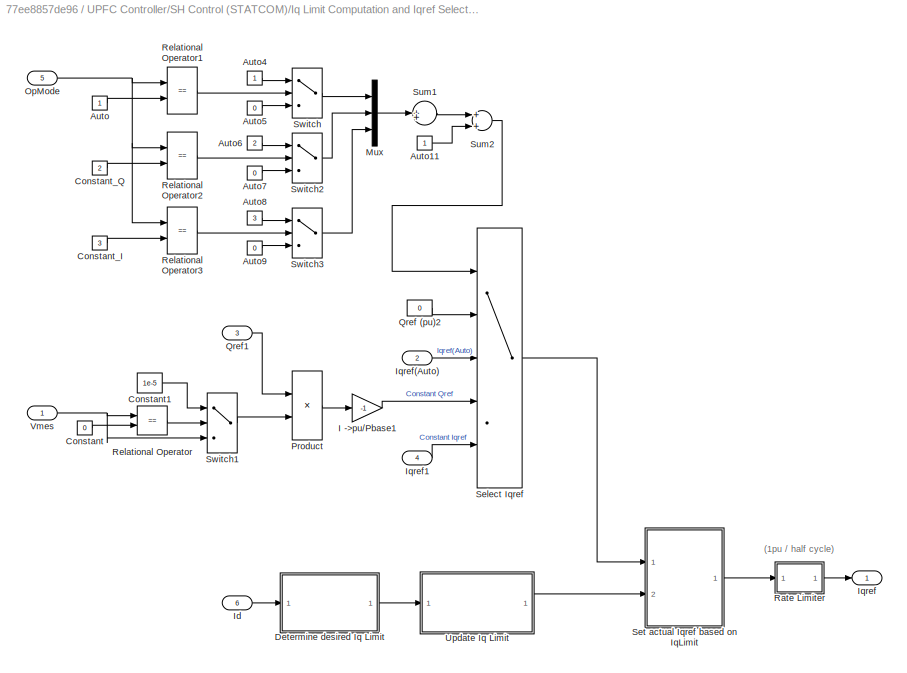
BLOCK [SubSystem] UPFC Controller/SH Control (STATCOM)/Iq Limit Computation and Iqref Selection
  Ports = [6, 1]
  RequestExecContextInheritance = off
BLOCK [Constant] UPFC Controller/SH Control (STATCOM)/Iq Limit Computation and Iqref Selection/Auto
BLOCK [Constant] UPFC Controller/SH Control (STATCOM)/Iq Limit Computation and Iqref Selection/Auto11
BLOCK [Constant] UPFC Controller/SH Control (STATCOM)/Iq Limit Computation and Iqref Selection/Auto4
BLOCK [Constant] UPFC Controller/SH Control (STATCOM)/Iq Limit Computation and Iqref Selection/Auto5
  Value = 0
BLOCK [Constant] UPFC Controller/SH Control (STATCOM)/Iq Limit Computation and Iqref Selection/Auto6
  Value = 2
BLOCK [Constant] UPFC Controller/SH Control (STATCOM)/Iq Limit Computation and Iqref Selection/Auto7
  Value = 0
BLOCK [Constant] UPFC Controller/SH Control (STATCOM)/Iq Limit Computation and Iqref Selection/Auto8
  Value = 3
BLOCK [Constant] UPFC Controller/SH Control (STATCOM)/Iq Limit Computation and Iqref Selection/Auto9
  Value = 0
BLOCK [Constant] UPFC Controller/SH Control (STATCOM)/Iq Limit Computation and Iqref Selection/Constant
  Value = 0
BLOCK [Constant] UPFC Controller/SH Control (STATCOM)/Iq Limit Computation and Iqref Selection/Constant1
  Value = 1e-5
BLOCK [Constant] UPFC Controller/SH Control (STATCOM)/Iq Limit Computation and Iqref Selection/Constant_I
  Value = 3
BLOCK [Constant] UPFC Controller/SH Control (STATCOM)/Iq Limit Computation and Iqref Selection/Constant_Q
  Value = 2
BLOCK [SubSystem] UPFC Controller/SH Control (STATCOM)/Iq Limit Computation and Iqref Selection/Determine desired Iq Limit
  Ports = [1, 1]
  RequestExecContextInheritance = off
BLOCK [Abs] UPFC Controller/SH Control (STATCOM)/Iq Limit Computation and Iqref Selection/Determine desired Iq Limit/Abs
BLOCK [Constant] UPFC Controller/SH Control (STATCOM)/Iq Limit Computation and Iqref Selection/Determine desired Iq Limit/Constant
BLOCK [Inport] UPFC Controller/SH Control (STATCOM)/Iq Limit Computation and Iqref Selection/Determine desired Iq Limit/Id
  IconDisplay = Port number
  PortDimensions = 1
BLOCK [Outport] UPFC Controller/SH Control (STATCOM)/Iq Limit Computation and Iqref Selection/Determine desired Iq Limit/IqLimit_Index
  IconDisplay = Port number
BLOCK [Relay] UPFC Controller/SH Control (STATCOM)/Iq Limit Computation and Iqref Selection/Determine desired Iq Limit/Limit at 0.3
  OffSwitchValue = 0.92
  OnSwitchValue = 0.97
BLOCK [Relay] UPFC Controller/SH Control (STATCOM)/Iq Limit Computation and Iqref Selection/Determine desired Iq Limit/Limit at 0.4
  OffSwitchValue = 0.86
  OnSwitchValue = 0.92
BLOCK [Relay] UPFC Controller/SH Control (STATCOM)/Iq Limit Computation and Iqref Selection/Determine desired Iq Limit/Limit at 0.5
  OffSwitchValue = 0.78
  OnSwitchValue = 0.86
BLOCK [Relay] UPFC Controller/SH Control (STATCOM)/Iq Limit Computation and Iqref Selection/Determine desired Iq Limit/Limit at 0.6
  OffSwitchValue = 0.68
  OnSwitchValue = 0.78
BLOCK [Relay] UPFC Controller/SH Control (STATCOM)/Iq Limit Computation and Iqref Selection/Determine desired Iq Limit/Limit at 0.7
  OffSwitchValue = 0.54
  OnSwitchValue = 0.68
BLOCK [Relay] UPFC Controller/SH Control (STATCOM)/Iq Limit Computation and Iqref Selection/Determine desired Iq Limit/Limit at 0.8
  OffSwitchValue = 0.32
  OnSwitchValue = 0.54
BLOCK [Relay] UPFC Controller/SH Control (STATCOM)/Iq Limit Computation and Iqref Selection/Determine desired Iq Limit/Limit at 0.9
  OffSwitchValue = 0.25
  OnSwitchValue = 0.32
BLOCK [Sum] UPFC Controller/SH Control (STATCOM)/Iq Limit Computation and Iqref Selection/Determine desired Iq Limit/Sum
  Inputs = ++++++++
  Ports = [8, 1]
BLOCK [Gain] UPFC Controller/SH Control (STATCOM)/Iq Limit Computation and Iqref Selection/I ->pu//Pbase1
  Gain = -1
BLOCK [Inport] UPFC Controller/SH Control (STATCOM)/Iq Limit Computation and Iqref Selection/Id
  IconDisplay = Port number
  Port = 6
BLOCK [Outport] UPFC Controller/SH Control (STATCOM)/Iq Limit Computation and Iqref Selection/Iqref
  IconDisplay = Port number
BLOCK [Inport] UPFC Controller/SH Control (STATCOM)/Iq Limit Computation and Iqref Selection/Iqref(Auto)
  IconDisplay = Port number
  Port = 2
BLOCK [Inport] UPFC Controller/SH Control (STATCOM)/Iq Limit Computation and Iqref Selection/Iqref1
  IconDisplay = Port number
  Port = 4
BLOCK [Mux] UPFC Controller/SH Control (STATCOM)/Iq Limit Computation and Iqref Selection/Mux
  DisplayOption = bar
  Inputs = 3
  Ports = [3, 1]
BLOCK [Inport] UPFC Controller/SH Control (STATCOM)/Iq Limit Computation and Iqref Selection/OpMode
  IconDisplay = Port number
  Port = 5
BLOCK [Product] UPFC Controller/SH Control (STATCOM)/Iq Limit Computation and Iqref Selection/Product
  Inputs = */
  Ports = [2, 1]
  RndMeth = Floor
BLOCK [Constant] UPFC Controller/SH Control (STATCOM)/Iq Limit Computation and Iqref Selection/Qref (pu)2
  Value = 0
BLOCK [Inport] UPFC Controller/SH Control (STATCOM)/Iq Limit Computation and Iqref Selection/Qref1
  IconDisplay = Port number
  Port = 3
BLOCK [SubSystem] UPFC Controller/SH Control (STATCOM)/Iq Limit Computation and Iqref Selection/Rate Limiter 
  DialogController = POWERSYS.PowerSysDialog
  Ports = [1, 1]
  RequestExecContextInheritance = off
BLOCK [Inport] UPFC Controller/SH Control (STATCOM)/Iq Limit Computation and Iqref Selection/Rate Limiter /In
  IconDisplay = Port number
BLOCK [Outport] UPFC Controller/SH Control (STATCOM)/Iq Limit Computation and Iqref Selection/Rate Limiter /Out
  IconDisplay = Port number
BLOCK [Saturate] UPFC Controller/SH Control (STATCOM)/Iq Limit Computation and Iqref Selection/Rate Limiter /Saturation
  InputPortMap = u0
  LowerLimit = LowerLimit
  Ports = [1, 1]
  UpperLimit = UpperLimit
BLOCK [Sum] UPFC Controller/SH Control (STATCOM)/Iq Limit Computation and Iqref Selection/Rate Limiter /Sum
  IconShape = round
  Inputs = |++
  Ports = [2, 1]
BLOCK [Sum] UPFC Controller/SH Control (STATCOM)/Iq Limit Computation and Iqref Selection/Rate Limiter /Sum1
  IconShape = round
  Inputs = |+-
  Ports = [2, 1]
BLOCK [UnitDelay] UPFC Controller/SH Control (STATCOM)/Iq Limit Computation and Iqref Selection/Rate Limiter /Unit Delay
  InitialCondition = Vinit
  SampleTime = Ts
BLOCK [RelationalOperator] UPFC Controller/SH Control (STATCOM)/Iq Limit Computation and Iqref Selection/Relational Operator
  Operator = ==
  Ports = [2, 1]
BLOCK [RelationalOperator] UPFC Controller/SH Control (STATCOM)/Iq Limit Computation and Iqref Selection/Relational Operator1
  Operator = ==
  Ports = [2, 1]
BLOCK [RelationalOperator] UPFC Controller/SH Control (STATCOM)/Iq Limit Computation and Iqref Selection/Relational Operator2
  Operator = ==
  Ports = [2, 1]
BLOCK [RelationalOperator] UPFC Controller/SH Control (STATCOM)/Iq Limit Computation and Iqref Selection/Relational Operator3
  Operator = ==
  Ports = [2, 1]
BLOCK [MultiPortSwitch] UPFC Controller/SH Control (STATCOM)/Iq Limit Computation and Iqref Selection/Select Iqref
  Inputs = 4
  Ports = [5, 1]
BLOCK [SubSystem] UPFC Controller/SH Control (STATCOM)/Iq Limit Computation and Iqref Selection/Set actual Iqref based on IqLimit
  Ports = [2, 1]
  RequestExecContextInheritance = off
BLOCK [Gain] UPFC Controller/SH Control (STATCOM)/Iq Limit Computation and Iqref Selection/Set actual Iqref based on IqLimit/Gain2
  Gain = -1
BLOCK [Inport] UPFC Controller/SH Control (STATCOM)/Iq Limit Computation and Iqref Selection/Set actual Iqref based on IqLimit/IqLimit
  IconDisplay = Port number
  Port = 2
BLOCK [Outport] UPFC Controller/SH Control (STATCOM)/Iq Limit Computation and Iqref Selection/Set actual Iqref based on IqLimit/Iqref
  IconDisplay = Port number
BLOCK [Inport] UPFC Controller/SH Control (STATCOM)/Iq Limit Computation and Iqref Selection/Set actual Iqref based on IqLimit/Iqref*
  IconDisplay = Port number
  PortDimensions = 1
BLOCK [Logic] UPFC Controller/SH Control (STATCOM)/Iq Limit Computation and Iqref Selection/Set actual Iqref based on IqLimit/Logical Operator
  Operator = OR
  Ports = [2, 1]
BLOCK [Product] UPFC Controller/SH Control (STATCOM)/Iq Limit Computation and Iqref Selection/Set actual Iqref based on IqLimit/Product
  Ports = [2, 1]
  RndMeth = Floor
BLOCK [RelationalOperator] UPFC Controller/SH Control (STATCOM)/Iq Limit Computation and Iqref Selection/Set actual Iqref based on IqLimit/Relational Operator1
  Operator = >
  Ports = [2, 1]
BLOCK [RelationalOperator] UPFC Controller/SH Control (STATCOM)/Iq Limit Computation and Iqref Selection/Set actual Iqref based on IqLimit/Relational Operator2
  Operator = <
  Ports = [2, 1]
BLOCK [Signum] UPFC Controller/SH Control (STATCOM)/Iq Limit Computation and Iqref Selection/Set actual Iqref based on IqLimit/Sign
BLOCK [Switch] UPFC Controller/SH Control (STATCOM)/Iq Limit Computation and Iqref Selection/Set actual Iqref based on IqLimit/Switch1
  Threshold = 0.5
BLOCK [Sum] UPFC Controller/SH Control (STATCOM)/Iq Limit Computation and Iqref Selection/Sum1
  Inputs = 1
  Ports = [1, 1]
BLOCK [Sum] UPFC Controller/SH Control (STATCOM)/Iq Limit Computation and Iqref Selection/Sum2
  Ports = [2, 1]
BLOCK [Switch] UPFC Controller/SH Control (STATCOM)/Iq Limit Computation and Iqref Selection/Switch
  Threshold = 0.5
BLOCK [Switch] UPFC Controller/SH Control (STATCOM)/Iq Limit Computation and Iqref Selection/Switch1
  Threshold = 0.5
BLOCK [Switch] UPFC Controller/SH Control (STATCOM)/Iq Limit Computation and Iqref Selection/Switch2
  Threshold = 0.5
BLOCK [Switch] UPFC Controller/SH Control (STATCOM)/Iq Limit Computation and Iqref Selection/Switch3
  Threshold = 0.5
BLOCK [SubSystem] UPFC Controller/SH Control (STATCOM)/Iq Limit Computation and Iqref Selection/Update Iq Limit
  Ports = [1, 1]
  RequestExecContextInheritance = off
BLOCK [Constant] UPFC Controller/SH Control (STATCOM)/Iq Limit Computation and Iqref Selection/Update Iq Limit/Constant1
  Value = 0.8
BLOCK [Constant] UPFC Controller/SH Control (STATCOM)/Iq Limit Computation and Iqref Selection/Update Iq Limit/Constant10
  Value = -1e6
BLOCK [Constant] UPFC Controller/SH Control (STATCOM)/Iq Limit Computation and Iqref Selection/Update Iq Limit/Constant11
  Value = 3
BLOCK [Constant] UPFC Controller/SH Control (STATCOM)/Iq Limit Computation and Iqref Selection/Update Iq Limit/Constant2
  Value = 0.7
BLOCK [Constant] UPFC Controller/SH Control (STATCOM)/Iq Limit Computation and Iqref Selection/Update Iq Limit/Constant3
  Value = 0.6
BLOCK [Constant] UPFC Controller/SH Control (STATCOM)/Iq Limit Computation and Iqref Selection/Update Iq Limit/Constant4
  Value = 0.5
BLOCK [Constant] UPFC Controller/SH Control (STATCOM)/Iq Limit Computation and Iqref Selection/Update Iq Limit/Constant5
  Value = 0.4
BLOCK [Constant] UPFC Controller/SH Control (STATCOM)/Iq Limit Computation and Iqref Selection/Update Iq Limit/Constant6
BLOCK [Constant] UPFC Controller/SH Control (STATCOM)/Iq Limit Computation and Iqref Selection/Update Iq Limit/Constant7
  Value = 0.9
BLOCK [Constant] UPFC Controller/SH Control (STATCOM)/Iq Limit Computation and Iqref Selection/Update Iq Limit/Constant8
  Value = 0.3
BLOCK [Constant] UPFC Controller/SH Control (STATCOM)/Iq Limit Computation and Iqref Selection/Update Iq Limit/Constant9
  Value = 60
BLOCK [DiscreteIntegrator] UPFC Controller/SH Control (STATCOM)/Iq Limit Computation and Iqref Selection/Update Iq Limit/Discrete-Time Integrator
  ExternalReset = rising
  ICPrevOutput = DiscIntNeverNeededParam
  ICPrevScaledInput = DiscIntNeverNeededParam
  LimitOutput = on
  LowerSaturationLimit = 0
  Ports = [2, 1]
  SampleTime = Ts
  UpperSaturationLimit = 6.1
BLOCK [Outport] UPFC Controller/SH Control (STATCOM)/Iq Limit Computation and Iqref Selection/Update Iq Limit/IqLimit
  IconDisplay = Port number
BLOCK [Inport] UPFC Controller/SH Control (STATCOM)/Iq Limit Computation and Iqref Selection/Update Iq Limit/IqLimit_Index
  IconDisplay = Port number
BLOCK [Logic] UPFC Controller/SH Control (STATCOM)/Iq Limit Computation and Iqref Selection/Update Iq Limit/Logical Operator1
  Operator = OR
  Ports = [2, 1]
BLOCK [RelationalOperator] UPFC Controller/SH Control (STATCOM)/Iq Limit Computation and Iqref Selection/Update Iq Limit/Relational Operator3
  Operator = >
  Ports = [2, 1]
BLOCK [RelationalOperator] UPFC Controller/SH Control (STATCOM)/Iq Limit Computation and Iqref Selection/Update Iq Limit/Relational Operator4
  Operator = >
  Ports = [2, 1]
BLOCK [RelationalOperator] UPFC Controller/SH Control (STATCOM)/Iq Limit Computation and Iqref Selection/Update Iq Limit/Relational Operator5
  Operator = <
  Ports = [2, 1]
BLOCK [MultiPortSwitch] UPFC Controller/SH Control (STATCOM)/Iq Limit Computation and Iqref Selection/Update Iq Limit/Select actual Iq Limit
  Inputs = 8
  Ports = [9, 1]
BLOCK [Switch] UPFC Controller/SH Control (STATCOM)/Iq Limit Computation and Iqref Selection/Update Iq Limit/Switch
  Threshold = 0.5
BLOCK [Switch] UPFC Controller/SH Control (STATCOM)/Iq Limit Computation and Iqref Selection/Update Iq Limit/Switch2
  Threshold = 0.5
BLOCK [UnitDelay] UPFC Controller/SH Control (STATCOM)/Iq Limit Computation and Iqref Selection/Update Iq Limit/Unit Delay
  SampleTime = Ts
BLOCK [UnitDelay] UPFC Controller/SH Control (STATCOM)/Iq Limit Computation and Iqref Selection/Update Iq Limit/Unit Delay5
  InitialCondition = 1
  SampleTime = Ts
BLOCK [Inport] UPFC Controller/SH Control (STATCOM)/Iq Limit Computation and Iqref Selection/Vmes
  IconDisplay = Port number
BLOCK [SubSystem] UPFC Controller/SH Control (STATCOM)/Measurement System
  Ports = [4, 5]
  RequestExecContextInheritance = off
BLOCK [Inport] UPFC Controller/SH Control (STATCOM)/Measurement System/Freq
  IconDisplay = Port number
  Port = 3
  PortDimensions = 1
BLOCK [Inport] UPFC Controller/SH Control (STATCOM)/Measurement System/Iabc
  IconDisplay = Port number
  Port = 2
  PortDimensions = 3
BLOCK [Outport] UPFC Controller/SH Control (STATCOM)/Measurement System/Id
  IconDisplay = Port number
  Port = 5
BLOCK [Outport] UPFC Controller/SH Control (STATCOM)/Measurement System/Iq
  IconDisplay = Port number
  Port = 3
BLOCK [Outport] UPFC Controller/SH Control (STATCOM)/Measurement System/Iq_avg
  IconDisplay = Port number
  Port = 4
BLOCK [Reference] UPFC Controller/SH Control (STATCOM)/Measurement System/Mean (Variable Frequency)  REF=powerlib_meascontrol/Measurements/Mean
(Variable Frequency)
  Finit = 60
  Fmin = 45
  Ports = [2, 1]
  SourceBlock = powerlib_meascontrol/Measurements/Mean\n(Variable Frequency)
  SourceType = Mean (Variable Frequency)
  Ts = Ts
  Vinit = 0
BLOCK [Outport] UPFC Controller/SH Control (STATCOM)/Measurement System/PQ
  IconDisplay = Port number
  Port = 2
BLOCK [SubSystem] UPFC Controller/SH Control (STATCOM)/Measurement System/PQ Computaion
  Ports = [3, 1]
  RequestExecContextInheritance = off
BLOCK [Demux] UPFC Controller/SH Control (STATCOM)/Measurement System/PQ Computaion/Demux1
  Outputs = 2
  Ports = [1, 2]
BLOCK [Demux] UPFC Controller/SH Control (STATCOM)/Measurement System/PQ Computaion/Demux2
  Outputs = 2
  Ports = [1, 2]
BLOCK [Inport] UPFC Controller/SH Control (STATCOM)/Measurement System/PQ Computaion/Freq
  IconDisplay = Port number
  Port = 3
  PortDimensions = 1
BLOCK [Inport] UPFC Controller/SH Control (STATCOM)/Measurement System/PQ Computaion/Id_Iq
  IconDisplay = Port number
  Port = 2
  PortDimensions = 2
BLOCK [Mux] UPFC Controller/SH Control (STATCOM)/Measurement System/PQ Computaion/Mux2
  DisplayOption = bar
  Inputs = 2
  Ports = [2, 1]
BLOCK [Outport] UPFC Controller/SH Control (STATCOM)/Measurement System/PQ Computaion/PQ(pu)
  IconDisplay = Port number
BLOCK [Product] UPFC Controller/SH Control (STATCOM)/Measurement System/PQ Computaion/Product2
  Ports = [2, 1]
  RndMeth = Floor
BLOCK [Product] UPFC Controller/SH Control (STATCOM)/Measurement System/PQ Computaion/Product3
  Ports = [2, 1]
  RndMeth = Floor
BLOCK [Product] UPFC Controller/SH Control (STATCOM)/Measurement System/PQ Computaion/Product4
  Ports = [2, 1]
  RndMeth = Floor
BLOCK [Product] UPFC Controller/SH Control (STATCOM)/Measurement System/PQ Computaion/Product5
  Ports = [2, 1]
  RndMeth = Floor
BLOCK [Sum] UPFC Controller/SH Control (STATCOM)/Measurement System/PQ Computaion/Sum
  Ports = [2, 1]
BLOCK [Sum] UPFC Controller/SH Control (STATCOM)/Measurement System/PQ Computaion/Sum1
  Inputs = +-
  Ports = [2, 1]
BLOCK [SubSystem] UPFC Controller/SH Control (STATCOM)/Measurement System/PQ Computaion/Variable Frequency Mean value
  Ports = [2, 1]
  RequestExecContextInheritance = off
BLOCK [Constant] UPFC Controller/SH Control (STATCOM)/Measurement System/PQ Computaion/Variable Frequency Mean value/Constant
  Value = Vinit
BLOCK [Inport] UPFC Controller/SH Control (STATCOM)/Measurement System/PQ Computaion/Variable Frequency Mean value/Freq
  IconDisplay = Port number
BLOCK [Gain] UPFC Controller/SH Control (STATCOM)/Measurement System/PQ Computaion/Variable Frequency Mean value/Gain
  Gain = Ts
BLOCK [Inport] UPFC Controller/SH Control (STATCOM)/Measurement System/PQ Computaion/Variable Frequency Mean value/In
  IconDisplay = Port number
  Port = 2
BLOCK [DiscreteIntegrator] UPFC Controller/SH Control (STATCOM)/Measurement System/PQ Computaion/Variable Frequency Mean value/Integ4
  ICPrevOutput = DiscIntNeverNeededParam
  ICPrevScaledInput = DiscIntNeverNeededParam
  IntegratorMethod = Integration: Trapezoidal
  Ports = [1, 1]
  SampleTime = Ts
BLOCK [Constant] UPFC Controller/SH Control (STATCOM)/Measurement System/PQ Computaion/Variable Frequency Mean value/K2
  Value = Ts/2
BLOCK [Outport] UPFC Controller/SH Control (STATCOM)/Measurement System/PQ Computaion/Variable Frequency Mean value/Mean
  IconDisplay = Port number
BLOCK [Fcn] UPFC Controller/SH Control (STATCOM)/Measurement System/PQ Computaion/Variable Frequency Mean value/Number of sample//cycle
  Expr = 1/(u[1]+1e-6)/Ts
BLOCK [Product] UPFC Controller/SH Control (STATCOM)/Measurement System/PQ Computaion/Variable Frequency Mean value/Product
  Ports = [2, 1]
  RndMeth = Floor
BLOCK [Product] UPFC Controller/SH Control (STATCOM)/Measurement System/PQ Computaion/Variable Frequency Mean value/Product1
  Inputs = */*
  Ports = [3, 1]
  RndMeth = Floor
BLOCK [Rounding] UPFC Controller/SH Control (STATCOM)/Measurement System/PQ Computaion/Variable Frequency Mean value/Rounding Function
  Operator = round
BLOCK [Step] UPFC Controller/SH Control (STATCOM)/Measurement System/PQ Computaion/Variable Frequency Mean value/Step
  SampleTime = Ts
  Time = 1/Finit
BLOCK [Sum] UPFC Controller/SH Control (STATCOM)/Measurement System/PQ Computaion/Variable Frequency Mean value/Sum3
  Inputs = -+
  Ports = [2, 1]
BLOCK [Sum] UPFC Controller/SH Control (STATCOM)/Measurement System/PQ Computaion/Variable Frequency Mean value/Sum4
  Inputs = -+
  Ports = [2, 1]
BLOCK [Sum] UPFC Controller/SH Control (STATCOM)/Measurement System/PQ Computaion/Variable Frequency Mean value/Sum5
  Ports = [2, 1]
BLOCK [Sum] UPFC Controller/SH Control (STATCOM)/Measurement System/PQ Computaion/Variable Frequency Mean value/Sum7
  Inputs = -+
  Ports = [2, 1]
BLOCK [Switch] UPFC Controller/SH Control (STATCOM)/Measurement System/PQ Computaion/Variable Frequency Mean value/Switch
  Threshold = 0.5
BLOCK [VariableTransportDelay] UPFC Controller/SH Control (STATCOM)/Measurement System/PQ Computaion/Variable Frequency Mean value/Variable Transport Delay2
  MaximumDelay = 20e-3
  Ports = [2, 1]
BLOCK [Inport] UPFC Controller/SH Control (STATCOM)/Measurement System/PQ Computaion/Vd_Vq
  IconDisplay = Port number
  PortDimensions = 2
BLOCK [Reference] UPFC Controller/SH Control (STATCOM)/Measurement System/Second-Order Filter  REF=powerlib_meascontrol/Filters/Second-Order
Filter
  FilterType = Lowpass
  Fo = 1200
  FreqRange = [0, 500, 1]
  Initialize = off
  PlotResponse = off
  Ports = [1, 1]
  SourceBlock = powerlib_meascontrol/Filters/Second-Order\nFilter
  SourceType = Second-Order Filter
  Ts = Ts
  Vac_Init = [0,  0,  60]
  Vdc_Init = 0
  Zeta = 0.707
BLOCK [Reference] UPFC Controller/SH Control (STATCOM)/Measurement System/Second-Order Filter1  REF=powerlib_meascontrol/Filters/Second-Order
Filter
  FilterType = Lowpass
  Fo = 1200
  FreqRange = [0, 500, 1]
  Initialize = off
  PlotResponse = off
  Ports = [1, 1]
  SourceBlock = powerlib_meascontrol/Filters/Second-Order\nFilter
  SourceType = Second-Order Filter
  Ts = Ts
  Vac_Init = [0,  0,  60]
  Vdc_Init = 0
  Zeta = 0.707
BLOCK [Selector] UPFC Controller/SH Control (STATCOM)/Measurement System/Selector
  Indices = 2
  InputPortWidth = 2
  Ports = [1, 1]
BLOCK [Selector] UPFC Controller/SH Control (STATCOM)/Measurement System/Selector1
  InputPortWidth = 2
  Ports = [1, 1]
BLOCK [Selector] UPFC Controller/SH Control (STATCOM)/Measurement System/Selector2
  Indices = 1:2
  InputPortWidth = 3
  Ports = [1, 1]
BLOCK [Inport] UPFC Controller/SH Control (STATCOM)/Measurement System/Vabc
  IconDisplay = Port number
  PortDimensions = 3
BLOCK [Outport] UPFC Controller/SH Control (STATCOM)/Measurement System/Vmes
  IconDisplay = Port number
BLOCK [SubSystem] UPFC Controller/SH Control (STATCOM)/Measurement System/Voltage measurement (Positive sequence)
  Ports = [3, 2]
  RequestExecContextInheritance = off
BLOCK [Demux] UPFC Controller/SH Control (STATCOM)/Measurement System/Voltage measurement (Positive sequence)/Demux
  Outputs = 3
  Ports = [1, 3]
BLOCK [Fcn] UPFC Controller/SH Control (STATCOM)/Measurement System/Voltage measurement (Positive sequence)/Fcn3
  Expr = sqrt(u[1]*u[1]+u[2]*u[2])
BLOCK [Inport] UPFC Controller/SH Control (STATCOM)/Measurement System/Voltage measurement (Positive sequence)/Freq
  IconDisplay = Port number
  Port = 2
BLOCK [Outport] UPFC Controller/SH Control (STATCOM)/Measurement System/Voltage measurement (Positive sequence)/Mag
  IconDisplay = Port number
BLOCK [Reference] UPFC Controller/SH Control (STATCOM)/Measurement System/Voltage measurement (Positive sequence)/Mean (Variable Frequency)  REF=powerlib_meascontrol/Measurements/Mean
(Variable Frequency)
  Finit = Finit
  Fmin = 45
  Ports = [2, 1]
  SourceBlock = powerlib_meascontrol/Measurements/Mean\n(Variable Frequency)
  SourceType = Mean (Variable Frequency)
  Ts = Ts
  Vinit = Real_Init
BLOCK [Reference] UPFC Controller/SH Control (STATCOM)/Measurement System/Voltage measurement (Positive sequence)/Mean (Variable Frequency)1  REF=powerlib_meascontrol/Measurements/Mean
(Variable Frequency)
  Finit = Finit
  Fmin = 45
  Ports = [2, 1]
  SourceBlock = powerlib_meascontrol/Measurements/Mean\n(Variable Frequency)
  SourceType = Mean (Variable Frequency)
  Ts = Ts
  Vinit = Imag_Init
BLOCK [Mux] UPFC Controller/SH Control (STATCOM)/Measurement System/Voltage measurement (Positive sequence)/Mux1
  Inputs = 2
  Ports = [2, 1]
BLOCK [Selector] UPFC Controller/SH Control (STATCOM)/Measurement System/Voltage measurement (Positive sequence)/Selector
  Indices = [1 2]
  InputPortWidth = 3
  Ports = [1, 1]
BLOCK [Terminator] UPFC Controller/SH Control (STATCOM)/Measurement System/Voltage measurement (Positive sequence)/Terminator
BLOCK [Outport] UPFC Controller/SH Control (STATCOM)/Measurement System/Voltage measurement (Positive sequence)/VdVq
  IconDisplay = Port number
  Port = 2
BLOCK [Inport] UPFC Controller/SH Control (STATCOM)/Measurement System/Voltage measurement (Positive sequence)/abc
  IconDisplay = Port number
  PortDimensions = 3
BLOCK [Reference] UPFC Controller/SH Control (STATCOM)/Measurement System/Voltage measurement (Positive sequence)/abc to dq0  REF=powerlib_meascontrol/Transformations/abc to dq0
  Alignment = 90 degrees behind phase A axis
  Ports = [2, 1]
  SourceBlock = powerlib_meascontrol/Transformations/abc to dq0
  SourceType = abc to dq0 Transformation
BLOCK [Inport] UPFC Controller/SH Control (STATCOM)/Measurement System/Voltage measurement (Positive sequence)/wt
  IconDisplay = Port number
  Port = 3
  PortDimensions = 1
BLOCK [Reference] UPFC Controller/SH Control (STATCOM)/Measurement System/abc to dq0  REF=powerlib_meascontrol/Transformations/abc to dq0
  Alignment = 90 degrees behind phase A axis
  Ports = [2, 1]
  SourceBlock = powerlib_meascontrol/Transformations/abc to dq0
  SourceType = abc to dq0 Transformation
BLOCK [Inport] UPFC Controller/SH Control (STATCOM)/Measurement System/wt
  IconDisplay = Port number
  Port = 4
  PortDimensions = 1
BLOCK [Mux] UPFC Controller/SH Control (STATCOM)/Mux
  DisplayOption = bar
  Inputs = 2
  Ports = [2, 1]
BLOCK [Mux] UPFC Controller/SH Control (STATCOM)/Mux1
  DisplayOption = bar
  Inputs = 2
  Ports = [2, 1]
BLOCK [Inport] UPFC Controller/SH Control (STATCOM)/OpMode
  IconDisplay = Port number
  Port = 4
  PortDimensions = 1
BLOCK [SubSystem] UPFC Controller/SH Control (STATCOM)/PLL
  Ports = [1, 2]
  RequestExecContextInheritance = off
BLOCK [Constant] UPFC Controller/SH Control (STATCOM)/PLL/Constant4
  Value = 2*pi
BLOCK [Gain] UPFC Controller/SH Control (STATCOM)/PLL/Correction for delay
  Gain = Nstep*Ts*2*pi
BLOCK [SubSystem] UPFC Controller/SH Control (STATCOM)/PLL/Discrete PI Controller
  DialogController = POWERSYS.PowerSysDialog
  Ports = [1, 1]
  RequestExecContextInheritance = off
BLOCK [DiscreteIntegrator] UPFC Controller/SH Control (STATCOM)/PLL/Discrete PI Controller/Discrete-Time Integrator
  ICPrevOutput = DiscIntNeverNeededParam
  ICPrevScaledInput = DiscIntNeverNeededParam
  InitialCondition = Init
  LimitOutput = on
  LowerSaturationLimit = LowerLimit
  Ports = [1, 1]
  SampleTime = Ts
  UpperSaturationLimit = UpperLimit
BLOCK [Inport] UPFC Controller/SH Control (STATCOM)/PLL/Discrete PI Controller/Error
  IconDisplay = Port number
  SampleTime = Ts
BLOCK [Gain] UPFC Controller/SH Control (STATCOM)/PLL/Discrete PI Controller/Kp4
  Gain = Kp
  SampleTime = Ts
BLOCK [Gain] UPFC Controller/SH Control (STATCOM)/PLL/Discrete PI Controller/Kp5
  Gain = Ki
  SampleTime = Ts
BLOCK [Outport] UPFC Controller/SH Control (STATCOM)/PLL/Discrete PI Controller/Out
  IconDisplay = Port number
  InitialOutput = 0
  SampleTime = Ts
BLOCK [Saturate] UPFC Controller/SH Control (STATCOM)/PLL/Discrete PI Controller/Saturation2
  InputPortMap = u0
  LowerLimit = LowerLimit
  Ports = [1, 1]
  SampleTime = Ts
  UpperLimit = UpperLimit
BLOCK [Sum] UPFC Controller/SH Control (STATCOM)/PLL/Discrete PI Controller/Sum6
  Ports = [2, 1]
  SampleTime = Ts
BLOCK [ZeroOrderHold] UPFC Controller/SH Control (STATCOM)/PLL/Discrete PI Controller/Zero-Order Hold
  SampleTime = Ts
BLOCK [SubSystem] UPFC Controller/SH Control (STATCOM)/PLL/Discrete Rate Limiter
  DialogController = POWERSYS.PowerSysDialog
  Ports = [1, 1]
  RequestExecContextInheritance = off
BLOCK [Inport] UPFC Controller/SH Control (STATCOM)/PLL/Discrete Rate Limiter/In
  IconDisplay = Port number
BLOCK [Outport] UPFC Controller/SH Control (STATCOM)/PLL/Discrete Rate Limiter/Out
  IconDisplay = Port number
BLOCK [Saturate] UPFC Controller/SH Control (STATCOM)/PLL/Discrete Rate Limiter/Saturation
  InputPortMap = u0
  LowerLimit = LowerLimit
  Ports = [1, 1]
  UpperLimit = UpperLimit
BLOCK [Sum] UPFC Controller/SH Control (STATCOM)/PLL/Discrete Rate Limiter/Sum
  IconShape = round
  Inputs = |++
  Ports = [2, 1]
BLOCK [Sum] UPFC Controller/SH Control (STATCOM)/PLL/Discrete Rate Limiter/Sum1
  IconShape = round
  Inputs = |+-
  Ports = [2, 1]
BLOCK [UnitDelay] UPFC Controller/SH Control (STATCOM)/PLL/Discrete Rate Limiter/Unit Delay
  InitialCondition = Vinit
  SampleTime = Ts
BLOCK [DiscreteIntegrator] UPFC Controller/SH Control (STATCOM)/PLL/Discrete-Time Integrator
  ICPrevOutput = DiscIntNeverNeededParam
  ICPrevScaledInput = DiscIntNeverNeededParam
  InitialCondition = Phase_Init*pi/180
  Ports = [1, 1]
  SampleTime = Ts
BLOCK [Outport] UPFC Controller/SH Control (STATCOM)/PLL/Freq
  IconDisplay = Port number
BLOCK [Gain] UPFC Controller/SH Control (STATCOM)/PLL/Gain10
  Gain = 1/2/pi
BLOCK [Math] UPFC Controller/SH Control (STATCOM)/PLL/Math Function
  Operator = mod
  Ports = [2, 1]
BLOCK [Reference] UPFC Controller/SH Control (STATCOM)/PLL/Mean (Variable Frequency)  REF=powerlib_meascontrol/Measurements/Mean
(Variable Frequency)
  Finit = Finit
  Fmin = 45
  Ports = [2, 1]
  SourceBlock = powerlib_meascontrol/Measurements/Mean\n(Variable Frequency)
  SourceType = Mean (Variable Frequency)
  Ts = Ts
  Vinit = 0
BLOCK [Reference] UPFC Controller/SH Control (STATCOM)/PLL/Second-Order Filter  REF=powerlib_meascontrol/Filters/Second-Order
Filter
  FilterType = Lowpass
  Fo = 25
  FreqRange = [0, 500, 1]
  Initialize = on
  PlotResponse = off
  Ports = [1, 1]
  SourceBlock = powerlib_meascontrol/Filters/Second-Order\nFilter
  SourceType = Second-Order Filter
  Ts = Ts
  Vac_Init = [0 -25 60]
  Vdc_Init = Finit
  Zeta = 0.707
BLOCK [Selector] UPFC Controller/SH Control (STATCOM)/PLL/Selector
  Indices = 2
  InputPortWidth = 3
  Ports = [1, 1]
BLOCK [Sum] UPFC Controller/SH Control (STATCOM)/PLL/Sum
  Ports = [2, 1]
BLOCK [UnitDelay] UPFC Controller/SH Control (STATCOM)/PLL/Unit Delay
  InitialCondition = Finit
  SampleTime = Ts
BLOCK [Inport] UPFC Controller/SH Control (STATCOM)/PLL/Vabc (pu)
  IconDisplay = Port number
  PortDimensions = 3
BLOCK [Reference] UPFC Controller/SH Control (STATCOM)/PLL/abc to dq0  REF=powerlib_meascontrol/Transformations/abc to dq0
  Alignment = 90 degrees behind phase A axis
  Ports = [2, 1]
  SourceBlock = powerlib_meascontrol/Transformations/abc to dq0
  SourceType = abc to dq0 Transformation
BLOCK [Outport] UPFC Controller/SH Control (STATCOM)/PLL/wt
  IconDisplay = Port number
  Port = 2
BLOCK [Outport] UPFC Controller/SH Control (STATCOM)/Pulses
  IconDisplay = Port number
BLOCK [Inport] UPFC Controller/SH Control (STATCOM)/Qref
  IconDisplay = Port number
  Port = 5
  PortDimensions = 1
BLOCK [Constant] UPFC Controller/SH Control (STATCOM)/Qref (pu)1
  Value = Iqref1
BLOCK [Constant] UPFC Controller/SH Control (STATCOM)/Sigma (deg)
  Value = 180-7.5
BLOCK [UnitDelay] UPFC Controller/SH Control (STATCOM)/Unit Delay3
  SampleTime = Ts
BLOCK [Inport] UPFC Controller/SH Control (STATCOM)/Vabc_In
  IconDisplay = Port number
  PortDimensions = 3
BLOCK [Inport] UPFC Controller/SH Control (STATCOM)/VdcPN
  IconDisplay = Port number
  Port = 3
  PortDimensions = 2
BLOCK [SubSystem] UPFC Controller/SH Control (STATCOM)/Voltage Regulator
  Ports = [2, 1]
  RequestExecContextInheritance = off
BLOCK [DiscreteIntegrator] UPFC Controller/SH Control (STATCOM)/Voltage Regulator/Discrete-Time Integrator
  ICPrevOutput = DiscIntNeverNeededParam
  ICPrevScaledInput = DiscIntNeverNeededParam
  InitialCondition = Init
  LimitOutput = on
  LowerSaturationLimit = LowerLimit
  Ports = [1, 1]
  SampleTime = Ts
  UpperSaturationLimit = UpperLimit
BLOCK [Outport] UPFC Controller/SH Control (STATCOM)/Voltage Regulator/Iqref
  IconDisplay = Port number
  InitialOutput = 0
BLOCK [Gain] UPFC Controller/SH Control (STATCOM)/Voltage Regulator/Kp4
  Gain = Kp
BLOCK [Gain] UPFC Controller/SH Control (STATCOM)/Voltage Regulator/Kp5
  Gain = Ki
BLOCK [Gain] UPFC Controller/SH Control (STATCOM)/Voltage Regulator/Kp6
  Gain = Droop
BLOCK [Saturate] UPFC Controller/SH Control (STATCOM)/Voltage Regulator/Saturation2
  InputPortMap = u0
  LowerLimit = LowerLimit
  Ports = [1, 1]
  UpperLimit = UpperLimit
BLOCK [Sum] UPFC Controller/SH Control (STATCOM)/Voltage Regulator/Sum1
  IconShape = round
  Inputs = |-+
  Ports = [2, 1]
BLOCK [Sum] UPFC Controller/SH Control (STATCOM)/Voltage Regulator/Sum6
  Ports = [2, 1]
BLOCK [Sum] UPFC Controller/SH Control (STATCOM)/Voltage Regulator/Sum7
  IconShape = round
  Inputs = |+-
  Ports = [2, 1]
BLOCK [UnitDelay] UPFC Controller/SH Control (STATCOM)/Voltage Regulator/Unit Delay
  SampleTime = Ts
BLOCK [Inport] UPFC Controller/SH Control (STATCOM)/Voltage Regulator/Vmes
  IconDisplay = Port number
  Port = 2
BLOCK [Inport] UPFC Controller/SH Control (STATCOM)/Voltage Regulator/Vref
  IconDisplay = Port number
BLOCK [Inport] UPFC Controller/SH Control (STATCOM)/Vref
  IconDisplay = Port number
  Port = 6
  PortDimensions = 1
BLOCK [Sum] UPFC Controller/Sum1
  Inputs = 1
  Ports = [1, 1]
BLOCK [Switch] UPFC Controller/Switch
  InputSameDT = off
  Threshold = 0.5
BLOCK [UnitDelay] UPFC Controller/Unit Delay
  SampleTime = Ts
BLOCK [UnitDelay] UPFC Controller/Unit Delay1
  SampleTime = Ts
BLOCK [UnitDelay] UPFC Controller/Unit Delay2
  SampleTime = Ts
BLOCK [UnitDelay] UPFC Controller/Unit Delay3
  SampleTime = Ts
BLOCK [UnitDelay] UPFC Controller/Unit Delay4
  SampleTime = Ts
BLOCK [UnitDelay] UPFC Controller/Unit Delay5
  SampleTime = Ts
BLOCK [Inport] UPFC Controller/Vabc_B1
  IconDisplay = Port number
  PortDimensions = 3
BLOCK [Inport] UPFC Controller/Vabc_B2
  IconDisplay = Port number
  Port = 2
  PortDimensions = 3
BLOCK [Inport] UPFC Controller/VdcPM_SE
  IconDisplay = Port number
  Port = 6
  PortDimensions = 2
BLOCK [Inport] UPFC Controller/VdcPM_SH 
  IconDisplay = Port number
  Port = 5
  PortDimensions = 2
BLOCK [Display] V1 (pu)
  Decimation = 1
  Format = bank
  Ports = [1]
  SampleTime = Ts*100
BLOCK [Reference] powergui  REF=powerlib/powergui
  DisableRonSwitches = off
  DisableSnubberDevices = off
  DisableVfSwitches = off
  DisplayEquations = off
  DisplayStyle = 1
  EnableUseOfTLC = off
  ErrMax = 1e-4
  Frange = [0:2:500]
  FreqAxis = off
  FunctionMessages = off
  HookPort = off
  Interpol = off
  Iterations = 50
  MaxFrequency = 1000
  Pbase = 100e6
  Ports = []
  Priority = 2
  ResistiveCurrentMeasurement = off
  RestoreLinks = yes
  RmsSteady = 1
  SPID = off
  SampleTime = Ts
  ShowGrid = off
  SolverType = Tustin
  SourceBlock = powerlib/powergui
  SourceType = PSB option menu block
  StartTime = 0.0
  SwTol = 0
  Ts = 0
  UnitsV = kV
  UnitsW = MW
  UserDataPersistent = on
  Xlog = on
  Ylog = off
  ZoomFFT = on
  cycles = 1
  display = off
  echomessages = off
  frequency = 60
  frequencyindice = 60
  frequencyindicesteady = 1
  fundamental = 60
  methode = off
  save = off
  structure = 0
  variable = ZData
  x0status = blocks
ANNOTATION (root): ================= UPFC ==================== 2 x 3-level, 48-pulse Converters
ANNOTATION (root): P,Q ---->
ANNOTATION (root): The 'PreLoadFcn' automatically sets sample time Ts= 1/512/60 = 32.55e-6 s
ANNOTATION (root): UPFC (Detailed Model) 48-Pulse, GTO-Based Unified Power Flow Controller (500kV, 100 MVA)
ANNOTATION Series Converter 10% injection, 100MVA: 48-pulse Voltage-Sourced Converter (switches)
ANNOTATION Shunt Converter 500 kV, 100MVA: 48-pulse Voltage-Sourced Converter
ANNOTATION Subsystem1: +++++++++++++++++++++++++++++++++++++++++++++++++++++++++++++++++++++++++++++++++++++++++++++++++++++++++++++++++++
ANNOTATION Subsystem1: SSSC Voltage Injection
ANNOTATION Subsystem1: STATCOM VAR Control
ANNOTATION Subsystem1: STATCOM Voltage Control
ANNOTATION Subsystem1: UPFC Pref & Qref
ANNOTATION Subsystem4/Data Acquisition: Manitude and Angle of injected voltage
ANNOTATION Subsystem4/Data Acquisition: P Q Lines
ANNOTATION Subsystem4/Data Acquisition: Series Converter
ANNOTATION Subsystem4/Data Acquisition: Shunt Converter
ANNOTATION Subsystem4/Data Acquisition: | | | | | | | | | | | | | | | | | | | | | | | | | | | | | | | | | | | | | | | | | | |
ANNOTATION UPFC Controller: SHUNT: 1= Automatic (Voltage Regulation) 2 = Constant Reactive Power (Qref) 3 = Constant Reactive Current (Iqref)1
ANNOTATION UPFC Controller: Pierre Giroux, Gilbert Sybille Power System Simulation Laboratory IREQ, Hydro-Quebc
ANNOTATION UPFC Controller: SERIES (SSSC)
ANNOTATION UPFC Controller: SERIES (UPFC)
ANNOTATION UPFC Controller: SERIES: 0= Auto (Power Flow Control) 1 = Manual (Voltage Injection) 2 = SSSC Control
ANNOTATION UPFC Controller: SHUNT (STATCOM)
ANNOTATION UPFC Controller: UPFC Controller =============
ANNOTATION UPFC Controller/SE Control (SSSC)/Discrete Rate Limiter: Beat Ronner ABB Industrie AG Turgi, Switzerland
ANNOTATION UPFC Controller/SE Control (SSSC)/Discrete Rate Limiter: Delta(u)
ANNOTATION UPFC Controller/SE Control (SSSC)/Firing Pulses Generator/Bridge 1D/Phase A: ******************
ANNOTATION UPFC Controller/SE Control (SSSC)/Firing Pulses Generator/Bridge 1D/Phase A: ******************************************
ANNOTATION UPFC Controller/SE Control (SSSC)/Firing Pulses Generator/Bridge 1D/Phase A: ********************************************
ANNOTATION UPFC Controller/SE Control (SSSC)/Firing Pulses Generator/Bridge 1D/Phase A: + Vdc -------------------------------
ANNOTATION UPFC Controller/SE Control (SSSC)/Firing Pulses Generator/Bridge 1D/Phase A: - Vdc -------------------------------
ANNOTATION UPFC Controller/SE Control (SSSC)/Firing Pulses Generator/Bridge 1D/Phase A: ---------- A
ANNOTATION UPFC Controller/SE Control (SSSC)/Firing Pulses Generator/Bridge 1D/Phase A: --------[D-NN]---------
ANNOTATION UPFC Controller/SE Control (SSSC)/Firing Pulses Generator/Bridge 1D/Phase A: --------[D_NP]---------
ANNOTATION UPFC Controller/SE Control (SSSC)/Firing Pulses Generator/Bridge 1D/Phase A: 0
ANNOTATION UPFC Controller/SE Control (SSSC)/Firing Pulses Generator/Bridge 1D/Phase A: 180
ANNOTATION UPFC Controller/SE Control (SSSC)/Firing Pulses Generator/Bridge 1D/Phase A: 360
ANNOTATION UPFC Controller/SE Control (SSSC)/Firing Pulses Generator/Bridge 1D/Phase A: I--------------------------------I-----------------------------I--
ANNOTATION UPFC Controller/SE Control (SSSC)/Firing Pulses Generator/Bridge 1D/Phase A: N -------
ANNOTATION UPFC Controller/SE Control (SSSC)/Firing Pulses Generator/Bridge 1D/Phase A: Normal 180deg Operation
ANNOTATION UPFC Controller/SE Control (SSSC)/Firing Pulses Generator/Bridge 1D/Phase A: Pulses timing ===========
ANNOTATION UPFC Controller/SE Control (SSSC)/Firing Pulses Generator/Bridge 1D/Phase A: Q1
ANNOTATION UPFC Controller/SE Control (SSSC)/Firing Pulses Generator/Bridge 1D/Phase A: Q1,Q2,Q3,Q4
ANNOTATION UPFC Controller/SE Control (SSSC)/Firing Pulses Generator/Bridge 1D/Phase A: Q2
ANNOTATION UPFC Controller/SE Control (SSSC)/Firing Pulses Generator/Bridge 1D/Phase A: Q2,Q3
ANNOTATION UPFC Controller/SE Control (SSSC)/Firing Pulses Generator/Bridge 1D/Phase A: Q3
ANNOTATION UPFC Controller/SE Control (SSSC)/Firing Pulses Generator/Bridge 1D/Phase A: Q4
ANNOTATION UPFC Controller/SE Control (SSSC)/Firing Pulses Generator/Bridge 1D/Phase A: Q4,Q1
ANNOTATION UPFC Controller/SE Control (SSSC)/Firing Pulses Generator/Bridge 1D/Phase A: | | [G4] | | |
ANNOTATION UPFC Controller/SE Control (SSSC)/Firing Pulses Generator/Bridge 1D/Phase A: | | [Q2] | |
ANNOTATION UPFC Controller/SE Control (SSSC)/Firing Pulses Generator/Bridge 1D/Phase A: | | [Q3] | |
ANNOTATION UPFC Controller/SE Control (SSSC)/Firing Pulses Generator/Bridge 1D/Phase A: | | |
ANNOTATION UPFC Controller/SE Control (SSSC)/Firing Pulses Generator/Bridge 1D/Phase A: | | | [Q1] | |
ANNOTATION UPFC Controller/SE Control (SSSC)/Firing Pulses Generator/Bridge 1D/Phase A: | | | | | | | | | | |
ANNOTATION UPFC Controller/SE Control (SSSC)/Firing Pulses Generator/Bridge 1D/Phase B: ******************
ANNOTATION UPFC Controller/SE Control (SSSC)/Firing Pulses Generator/Bridge 1D/Phase B: ******************************************
ANNOTATION UPFC Controller/SE Control (SSSC)/Firing Pulses Generator/Bridge 1D/Phase B: ********************************************
ANNOTATION UPFC Controller/SE Control (SSSC)/Firing Pulses Generator/Bridge 1D/Phase B: + Vdc -------------------------------
ANNOTATION UPFC Controller/SE Control (SSSC)/Firing Pulses Generator/Bridge 1D/Phase B: - Vdc -------------------------------
ANNOTATION UPFC Controller/SE Control (SSSC)/Firing Pulses Generator/Bridge 1D/Phase B: ---------- A
ANNOTATION UPFC Controller/SE Control (SSSC)/Firing Pulses Generator/Bridge 1D/Phase B: --------[D-NN]---------
ANNOTATION UPFC Controller/SE Control (SSSC)/Firing Pulses Generator/Bridge 1D/Phase B: --------[D_NP]---------
ANNOTATION UPFC Controller/SE Control (SSSC)/Firing Pulses Generator/Bridge 1D/Phase B: 0
ANNOTATION UPFC Controller/SE Control (SSSC)/Firing Pulses Generator/Bridge 1D/Phase B: 180
ANNOTATION UPFC Controller/SE Control (SSSC)/Firing Pulses Generator/Bridge 1D/Phase B: 360
ANNOTATION UPFC Controller/SE Control (SSSC)/Firing Pulses Generator/Bridge 1D/Phase B: I--------------------------------I-----------------------------I--
ANNOTATION UPFC Controller/SE Control (SSSC)/Firing Pulses Generator/Bridge 1D/Phase B: N -------
ANNOTATION UPFC Controller/SE Control (SSSC)/Firing Pulses Generator/Bridge 1D/Phase B: Normal 180deg Operation
ANNOTATION UPFC Controller/SE Control (SSSC)/Firing Pulses Generator/Bridge 1D/Phase B: Pulses timing ===========
ANNOTATION UPFC Controller/SE Control (SSSC)/Firing Pulses Generator/Bridge 1D/Phase B: Q1
ANNOTATION UPFC Controller/SE Control (SSSC)/Firing Pulses Generator/Bridge 1D/Phase B: Q1,Q2,Q3,Q4
ANNOTATION UPFC Controller/SE Control (SSSC)/Firing Pulses Generator/Bridge 1D/Phase B: Q2
ANNOTATION UPFC Controller/SE Control (SSSC)/Firing Pulses Generator/Bridge 1D/Phase B: Q2,Q3
ANNOTATION UPFC Controller/SE Control (SSSC)/Firing Pulses Generator/Bridge 1D/Phase B: Q3
ANNOTATION UPFC Controller/SE Control (SSSC)/Firing Pulses Generator/Bridge 1D/Phase B: Q4
ANNOTATION UPFC Controller/SE Control (SSSC)/Firing Pulses Generator/Bridge 1D/Phase B: Q4,Q1
ANNOTATION UPFC Controller/SE Control (SSSC)/Firing Pulses Generator/Bridge 1D/Phase B: | | [G4] | | |
ANNOTATION UPFC Controller/SE Control (SSSC)/Firing Pulses Generator/Bridge 1D/Phase B: | | [Q2] | |
ANNOTATION UPFC Controller/SE Control (SSSC)/Firing Pulses Generator/Bridge 1D/Phase B: | | [Q3] | |
ANNOTATION UPFC Controller/SE Control (SSSC)/Firing Pulses Generator/Bridge 1D/Phase B: | | |
ANNOTATION UPFC Controller/SE Control (SSSC)/Firing Pulses Generator/Bridge 1D/Phase B: | | | [Q1] | |
ANNOTATION UPFC Controller/SE Control (SSSC)/Firing Pulses Generator/Bridge 1D/Phase B: | | | | | | | | | | |
ANNOTATION UPFC Controller/SE Control (SSSC)/Firing Pulses Generator/Bridge 1D/Phase C: ******************
ANNOTATION UPFC Controller/SE Control (SSSC)/Firing Pulses Generator/Bridge 1D/Phase C: ******************************************
ANNOTATION UPFC Controller/SE Control (SSSC)/Firing Pulses Generator/Bridge 1D/Phase C: ********************************************
ANNOTATION UPFC Controller/SE Control (SSSC)/Firing Pulses Generator/Bridge 1D/Phase C: + Vdc -------------------------------
ANNOTATION UPFC Controller/SE Control (SSSC)/Firing Pulses Generator/Bridge 1D/Phase C: - Vdc -------------------------------
ANNOTATION UPFC Controller/SE Control (SSSC)/Firing Pulses Generator/Bridge 1D/Phase C: ---------- A
ANNOTATION UPFC Controller/SE Control (SSSC)/Firing Pulses Generator/Bridge 1D/Phase C: --------[D-NN]---------
ANNOTATION UPFC Controller/SE Control (SSSC)/Firing Pulses Generator/Bridge 1D/Phase C: --------[D_NP]---------
ANNOTATION UPFC Controller/SE Control (SSSC)/Firing Pulses Generator/Bridge 1D/Phase C: 0
ANNOTATION UPFC Controller/SE Control (SSSC)/Firing Pulses Generator/Bridge 1D/Phase C: 180
ANNOTATION UPFC Controller/SE Control (SSSC)/Firing Pulses Generator/Bridge 1D/Phase C: 360
ANNOTATION UPFC Controller/SE Control (SSSC)/Firing Pulses Generator/Bridge 1D/Phase C: I--------------------------------I-----------------------------I--
ANNOTATION UPFC Controller/SE Control (SSSC)/Firing Pulses Generator/Bridge 1D/Phase C: N -------
ANNOTATION UPFC Controller/SE Control (SSSC)/Firing Pulses Generator/Bridge 1D/Phase C: Normal 180deg Operation
ANNOTATION UPFC Controller/SE Control (SSSC)/Firing Pulses Generator/Bridge 1D/Phase C: Pulses timing ===========
ANNOTATION UPFC Controller/SE Control (SSSC)/Firing Pulses Generator/Bridge 1D/Phase C: Q1
ANNOTATION UPFC Controller/SE Control (SSSC)/Firing Pulses Generator/Bridge 1D/Phase C: Q1,Q2,Q3,Q4
ANNOTATION UPFC Controller/SE Control (SSSC)/Firing Pulses Generator/Bridge 1D/Phase C: Q2
ANNOTATION UPFC Controller/SE Control (SSSC)/Firing Pulses Generator/Bridge 1D/Phase C: Q2,Q3
ANNOTATION UPFC Controller/SE Control (SSSC)/Firing Pulses Generator/Bridge 1D/Phase C: Q3
ANNOTATION UPFC Controller/SE Control (SSSC)/Firing Pulses Generator/Bridge 1D/Phase C: Q4
ANNOTATION UPFC Controller/SE Control (SSSC)/Firing Pulses Generator/Bridge 1D/Phase C: Q4,Q1
ANNOTATION UPFC Controller/SE Control (SSSC)/Firing Pulses Generator/Bridge 1D/Phase C: | | [G4] | | |
ANNOTATION UPFC Controller/SE Control (SSSC)/Firing Pulses Generator/Bridge 1D/Phase C: | | [Q2] | |
ANNOTATION UPFC Controller/SE Control (SSSC)/Firing Pulses Generator/Bridge 1D/Phase C: | | [Q3] | |
ANNOTATION UPFC Controller/SE Control (SSSC)/Firing Pulses Generator/Bridge 1D/Phase C: | | |
ANNOTATION UPFC Controller/SE Control (SSSC)/Firing Pulses Generator/Bridge 1D/Phase C: | | | [Q1] | |
ANNOTATION UPFC Controller/SE Control (SSSC)/Firing Pulses Generator/Bridge 1D/Phase C: | | | | | | | | | | |
ANNOTATION UPFC Controller/SE Control (SSSC)/Firing Pulses Generator/Bridge 1Y /Phase A: ******************
ANNOTATION UPFC Controller/SE Control (SSSC)/Firing Pulses Generator/Bridge 1Y /Phase A: ******************************************
ANNOTATION UPFC Controller/SE Control (SSSC)/Firing Pulses Generator/Bridge 1Y /Phase A: ********************************************
ANNOTATION UPFC Controller/SE Control (SSSC)/Firing Pulses Generator/Bridge 1Y /Phase A: + Vdc -------------------------------
ANNOTATION UPFC Controller/SE Control (SSSC)/Firing Pulses Generator/Bridge 1Y /Phase A: - Vdc -------------------------------
ANNOTATION UPFC Controller/SE Control (SSSC)/Firing Pulses Generator/Bridge 1Y /Phase A: ---------- A
ANNOTATION UPFC Controller/SE Control (SSSC)/Firing Pulses Generator/Bridge 1Y /Phase A: --------[D-NN]---------
ANNOTATION UPFC Controller/SE Control (SSSC)/Firing Pulses Generator/Bridge 1Y /Phase A: --------[D_NP]---------
ANNOTATION UPFC Controller/SE Control (SSSC)/Firing Pulses Generator/Bridge 1Y /Phase A: 0
ANNOTATION UPFC Controller/SE Control (SSSC)/Firing Pulses Generator/Bridge 1Y /Phase A: 180
ANNOTATION UPFC Controller/SE Control (SSSC)/Firing Pulses Generator/Bridge 1Y /Phase A: 360
ANNOTATION UPFC Controller/SE Control (SSSC)/Firing Pulses Generator/Bridge 1Y /Phase A: I--------------------------------I-----------------------------I--
ANNOTATION UPFC Controller/SE Control (SSSC)/Firing Pulses Generator/Bridge 1Y /Phase A: N -------
ANNOTATION UPFC Controller/SE Control (SSSC)/Firing Pulses Generator/Bridge 1Y /Phase A: Normal 180deg Operation
ANNOTATION UPFC Controller/SE Control (SSSC)/Firing Pulses Generator/Bridge 1Y /Phase A: Pulses timing ===========
ANNOTATION UPFC Controller/SE Control (SSSC)/Firing Pulses Generator/Bridge 1Y /Phase A: Q1
ANNOTATION UPFC Controller/SE Control (SSSC)/Firing Pulses Generator/Bridge 1Y /Phase A: Q1,Q2,Q3,Q4
ANNOTATION UPFC Controller/SE Control (SSSC)/Firing Pulses Generator/Bridge 1Y /Phase A: Q2
ANNOTATION UPFC Controller/SE Control (SSSC)/Firing Pulses Generator/Bridge 1Y /Phase A: Q2,Q3
ANNOTATION UPFC Controller/SE Control (SSSC)/Firing Pulses Generator/Bridge 1Y /Phase A: Q3
ANNOTATION UPFC Controller/SE Control (SSSC)/Firing Pulses Generator/Bridge 1Y /Phase A: Q4
ANNOTATION UPFC Controller/SE Control (SSSC)/Firing Pulses Generator/Bridge 1Y /Phase A: Q4,Q1
ANNOTATION UPFC Controller/SE Control (SSSC)/Firing Pulses Generator/Bridge 1Y /Phase A: | | [G4] | | |
ANNOTATION UPFC Controller/SE Control (SSSC)/Firing Pulses Generator/Bridge 1Y /Phase A: | | [Q2] | |
ANNOTATION UPFC Controller/SE Control (SSSC)/Firing Pulses Generator/Bridge 1Y /Phase A: | | [Q3] | |
ANNOTATION UPFC Controller/SE Control (SSSC)/Firing Pulses Generator/Bridge 1Y /Phase A: | | |
ANNOTATION UPFC Controller/SE Control (SSSC)/Firing Pulses Generator/Bridge 1Y /Phase A: | | | [Q1] | |
ANNOTATION UPFC Controller/SE Control (SSSC)/Firing Pulses Generator/Bridge 1Y /Phase A: | | | | | | | | | | |
ANNOTATION UPFC Controller/SE Control (SSSC)/Firing Pulses Generator/Bridge 1Y /Phase B: ******************
ANNOTATION UPFC Controller/SE Control (SSSC)/Firing Pulses Generator/Bridge 1Y /Phase B: ******************************************
ANNOTATION UPFC Controller/SE Control (SSSC)/Firing Pulses Generator/Bridge 1Y /Phase B: ********************************************
ANNOTATION UPFC Controller/SE Control (SSSC)/Firing Pulses Generator/Bridge 1Y /Phase B: + Vdc -------------------------------
ANNOTATION UPFC Controller/SE Control (SSSC)/Firing Pulses Generator/Bridge 1Y /Phase B: - Vdc -------------------------------
ANNOTATION UPFC Controller/SE Control (SSSC)/Firing Pulses Generator/Bridge 1Y /Phase B: ---------- A
ANNOTATION UPFC Controller/SE Control (SSSC)/Firing Pulses Generator/Bridge 1Y /Phase B: --------[D-NN]---------
ANNOTATION UPFC Controller/SE Control (SSSC)/Firing Pulses Generator/Bridge 1Y /Phase B: --------[D_NP]---------
ANNOTATION UPFC Controller/SE Control (SSSC)/Firing Pulses Generator/Bridge 1Y /Phase B: 0
ANNOTATION UPFC Controller/SE Control (SSSC)/Firing Pulses Generator/Bridge 1Y /Phase B: 180
ANNOTATION UPFC Controller/SE Control (SSSC)/Firing Pulses Generator/Bridge 1Y /Phase B: 360
ANNOTATION UPFC Controller/SE Control (SSSC)/Firing Pulses Generator/Bridge 1Y /Phase B: I--------------------------------I-----------------------------I--
ANNOTATION UPFC Controller/SE Control (SSSC)/Firing Pulses Generator/Bridge 1Y /Phase B: N -------
ANNOTATION UPFC Controller/SE Control (SSSC)/Firing Pulses Generator/Bridge 1Y /Phase B: Normal 180deg Operation
ANNOTATION UPFC Controller/SE Control (SSSC)/Firing Pulses Generator/Bridge 1Y /Phase B: Pulses timing ===========
ANNOTATION UPFC Controller/SE Control (SSSC)/Firing Pulses Generator/Bridge 1Y /Phase B: Q1
ANNOTATION UPFC Controller/SE Control (SSSC)/Firing Pulses Generator/Bridge 1Y /Phase B: Q1,Q2,Q3,Q4
ANNOTATION UPFC Controller/SE Control (SSSC)/Firing Pulses Generator/Bridge 1Y /Phase B: Q2
ANNOTATION UPFC Controller/SE Control (SSSC)/Firing Pulses Generator/Bridge 1Y /Phase B: Q2,Q3
ANNOTATION UPFC Controller/SE Control (SSSC)/Firing Pulses Generator/Bridge 1Y /Phase B: Q3
ANNOTATION UPFC Controller/SE Control (SSSC)/Firing Pulses Generator/Bridge 1Y /Phase B: Q4
ANNOTATION UPFC Controller/SE Control (SSSC)/Firing Pulses Generator/Bridge 1Y /Phase B: Q4,Q1
ANNOTATION UPFC Controller/SE Control (SSSC)/Firing Pulses Generator/Bridge 1Y /Phase B: | | [G4] | | |
ANNOTATION UPFC Controller/SE Control (SSSC)/Firing Pulses Generator/Bridge 1Y /Phase B: | | [Q2] | |
ANNOTATION UPFC Controller/SE Control (SSSC)/Firing Pulses Generator/Bridge 1Y /Phase B: | | [Q3] | |
ANNOTATION UPFC Controller/SE Control (SSSC)/Firing Pulses Generator/Bridge 1Y /Phase B: | | |
ANNOTATION UPFC Controller/SE Control (SSSC)/Firing Pulses Generator/Bridge 1Y /Phase B: | | | [Q1] | |
ANNOTATION UPFC Controller/SE Control (SSSC)/Firing Pulses Generator/Bridge 1Y /Phase B: | | | | | | | | | | |
ANNOTATION UPFC Controller/SE Control (SSSC)/Firing Pulses Generator/Bridge 1Y /Phase C: ******************
ANNOTATION UPFC Controller/SE Control (SSSC)/Firing Pulses Generator/Bridge 1Y /Phase C: ******************************************
ANNOTATION UPFC Controller/SE Control (SSSC)/Firing Pulses Generator/Bridge 1Y /Phase C: ********************************************
ANNOTATION UPFC Controller/SE Control (SSSC)/Firing Pulses Generator/Bridge 1Y /Phase C: + Vdc -------------------------------
ANNOTATION UPFC Controller/SE Control (SSSC)/Firing Pulses Generator/Bridge 1Y /Phase C: - Vdc -------------------------------
ANNOTATION UPFC Controller/SE Control (SSSC)/Firing Pulses Generator/Bridge 1Y /Phase C: ---------- A
ANNOTATION UPFC Controller/SE Control (SSSC)/Firing Pulses Generator/Bridge 1Y /Phase C: --------[D-NN]---------
ANNOTATION UPFC Controller/SE Control (SSSC)/Firing Pulses Generator/Bridge 1Y /Phase C: --------[D_NP]---------
ANNOTATION UPFC Controller/SE Control (SSSC)/Firing Pulses Generator/Bridge 1Y /Phase C: 0
ANNOTATION UPFC Controller/SE Control (SSSC)/Firing Pulses Generator/Bridge 1Y /Phase C: 180
ANNOTATION UPFC Controller/SE Control (SSSC)/Firing Pulses Generator/Bridge 1Y /Phase C: 360
ANNOTATION UPFC Controller/SE Control (SSSC)/Firing Pulses Generator/Bridge 1Y /Phase C: I--------------------------------I-----------------------------I--
ANNOTATION UPFC Controller/SE Control (SSSC)/Firing Pulses Generator/Bridge 1Y /Phase C: N -------
ANNOTATION UPFC Controller/SE Control (SSSC)/Firing Pulses Generator/Bridge 1Y /Phase C: Normal 180deg Operation
ANNOTATION UPFC Controller/SE Control (SSSC)/Firing Pulses Generator/Bridge 1Y /Phase C: Pulses timing ===========
ANNOTATION UPFC Controller/SE Control (SSSC)/Firing Pulses Generator/Bridge 1Y /Phase C: Q1
ANNOTATION UPFC Controller/SE Control (SSSC)/Firing Pulses Generator/Bridge 1Y /Phase C: Q1,Q2,Q3,Q4
ANNOTATION UPFC Controller/SE Control (SSSC)/Firing Pulses Generator/Bridge 1Y /Phase C: Q2
ANNOTATION UPFC Controller/SE Control (SSSC)/Firing Pulses Generator/Bridge 1Y /Phase C: Q2,Q3
ANNOTATION UPFC Controller/SE Control (SSSC)/Firing Pulses Generator/Bridge 1Y /Phase C: Q3
ANNOTATION UPFC Controller/SE Control (SSSC)/Firing Pulses Generator/Bridge 1Y /Phase C: Q4
ANNOTATION UPFC Controller/SE Control (SSSC)/Firing Pulses Generator/Bridge 1Y /Phase C: Q4,Q1
ANNOTATION UPFC Controller/SE Control (SSSC)/Firing Pulses Generator/Bridge 1Y /Phase C: | | [G4] | | |
ANNOTATION UPFC Controller/SE Control (SSSC)/Firing Pulses Generator/Bridge 1Y /Phase C: | | [Q2] | |
ANNOTATION UPFC Controller/SE Control (SSSC)/Firing Pulses Generator/Bridge 1Y /Phase C: | | [Q3] | |
ANNOTATION UPFC Controller/SE Control (SSSC)/Firing Pulses Generator/Bridge 1Y /Phase C: | | |
ANNOTATION UPFC Controller/SE Control (SSSC)/Firing Pulses Generator/Bridge 1Y /Phase C: | | | [Q1] | |
ANNOTATION UPFC Controller/SE Control (SSSC)/Firing Pulses Generator/Bridge 1Y /Phase C: | | | | | | | | | | |
ANNOTATION UPFC Controller/SE Control (SSSC)/Firing Pulses Generator/Bridge 2D/Phase A: ******************
ANNOTATION UPFC Controller/SE Control (SSSC)/Firing Pulses Generator/Bridge 2D/Phase A: ******************************************
ANNOTATION UPFC Controller/SE Control (SSSC)/Firing Pulses Generator/Bridge 2D/Phase A: ********************************************
ANNOTATION UPFC Controller/SE Control (SSSC)/Firing Pulses Generator/Bridge 2D/Phase A: + Vdc -------------------------------
ANNOTATION UPFC Controller/SE Control (SSSC)/Firing Pulses Generator/Bridge 2D/Phase A: - Vdc -------------------------------
ANNOTATION UPFC Controller/SE Control (SSSC)/Firing Pulses Generator/Bridge 2D/Phase A: ---------- A
ANNOTATION UPFC Controller/SE Control (SSSC)/Firing Pulses Generator/Bridge 2D/Phase A: --------[D-NN]---------
ANNOTATION UPFC Controller/SE Control (SSSC)/Firing Pulses Generator/Bridge 2D/Phase A: --------[D_NP]---------
ANNOTATION UPFC Controller/SE Control (SSSC)/Firing Pulses Generator/Bridge 2D/Phase A: 0
ANNOTATION UPFC Controller/SE Control (SSSC)/Firing Pulses Generator/Bridge 2D/Phase A: 180
ANNOTATION UPFC Controller/SE Control (SSSC)/Firing Pulses Generator/Bridge 2D/Phase A: 360
ANNOTATION UPFC Controller/SE Control (SSSC)/Firing Pulses Generator/Bridge 2D/Phase A: I--------------------------------I-----------------------------I--
ANNOTATION UPFC Controller/SE Control (SSSC)/Firing Pulses Generator/Bridge 2D/Phase A: N -------
ANNOTATION UPFC Controller/SE Control (SSSC)/Firing Pulses Generator/Bridge 2D/Phase A: Normal 180deg Operation
ANNOTATION UPFC Controller/SE Control (SSSC)/Firing Pulses Generator/Bridge 2D/Phase A: Pulses timing ===========
ANNOTATION UPFC Controller/SE Control (SSSC)/Firing Pulses Generator/Bridge 2D/Phase A: Q1
ANNOTATION UPFC Controller/SE Control (SSSC)/Firing Pulses Generator/Bridge 2D/Phase A: Q1,Q2,Q3,Q4
ANNOTATION UPFC Controller/SE Control (SSSC)/Firing Pulses Generator/Bridge 2D/Phase A: Q2
ANNOTATION UPFC Controller/SE Control (SSSC)/Firing Pulses Generator/Bridge 2D/Phase A: Q2,Q3
ANNOTATION UPFC Controller/SE Control (SSSC)/Firing Pulses Generator/Bridge 2D/Phase A: Q3
ANNOTATION UPFC Controller/SE Control (SSSC)/Firing Pulses Generator/Bridge 2D/Phase A: Q4
ANNOTATION UPFC Controller/SE Control (SSSC)/Firing Pulses Generator/Bridge 2D/Phase A: Q4,Q1
ANNOTATION UPFC Controller/SE Control (SSSC)/Firing Pulses Generator/Bridge 2D/Phase A: | | [G4] | | |
ANNOTATION UPFC Controller/SE Control (SSSC)/Firing Pulses Generator/Bridge 2D/Phase A: | | [Q2] | |
ANNOTATION UPFC Controller/SE Control (SSSC)/Firing Pulses Generator/Bridge 2D/Phase A: | | [Q3] | |
ANNOTATION UPFC Controller/SE Control (SSSC)/Firing Pulses Generator/Bridge 2D/Phase A: | | |
ANNOTATION UPFC Controller/SE Control (SSSC)/Firing Pulses Generator/Bridge 2D/Phase A: | | | [Q1] | |
ANNOTATION UPFC Controller/SE Control (SSSC)/Firing Pulses Generator/Bridge 2D/Phase A: | | | | | | | | | | |
ANNOTATION UPFC Controller/SE Control (SSSC)/Firing Pulses Generator/Bridge 2D/Phase B: ******************
ANNOTATION UPFC Controller/SE Control (SSSC)/Firing Pulses Generator/Bridge 2D/Phase B: ******************************************
ANNOTATION UPFC Controller/SE Control (SSSC)/Firing Pulses Generator/Bridge 2D/Phase B: ********************************************
ANNOTATION UPFC Controller/SE Control (SSSC)/Firing Pulses Generator/Bridge 2D/Phase B: + Vdc -------------------------------
ANNOTATION UPFC Controller/SE Control (SSSC)/Firing Pulses Generator/Bridge 2D/Phase B: - Vdc -------------------------------
ANNOTATION UPFC Controller/SE Control (SSSC)/Firing Pulses Generator/Bridge 2D/Phase B: ---------- A
ANNOTATION UPFC Controller/SE Control (SSSC)/Firing Pulses Generator/Bridge 2D/Phase B: --------[D-NN]---------
ANNOTATION UPFC Controller/SE Control (SSSC)/Firing Pulses Generator/Bridge 2D/Phase B: --------[D_NP]---------
ANNOTATION UPFC Controller/SE Control (SSSC)/Firing Pulses Generator/Bridge 2D/Phase B: 0
ANNOTATION UPFC Controller/SE Control (SSSC)/Firing Pulses Generator/Bridge 2D/Phase B: 180
ANNOTATION UPFC Controller/SE Control (SSSC)/Firing Pulses Generator/Bridge 2D/Phase B: 360
ANNOTATION UPFC Controller/SE Control (SSSC)/Firing Pulses Generator/Bridge 2D/Phase B: I--------------------------------I-----------------------------I--
ANNOTATION UPFC Controller/SE Control (SSSC)/Firing Pulses Generator/Bridge 2D/Phase B: N -------
ANNOTATION UPFC Controller/SE Control (SSSC)/Firing Pulses Generator/Bridge 2D/Phase B: Normal 180deg Operation
ANNOTATION UPFC Controller/SE Control (SSSC)/Firing Pulses Generator/Bridge 2D/Phase B: Pulses timing ===========
ANNOTATION UPFC Controller/SE Control (SSSC)/Firing Pulses Generator/Bridge 2D/Phase B: Q1
ANNOTATION UPFC Controller/SE Control (SSSC)/Firing Pulses Generator/Bridge 2D/Phase B: Q1,Q2,Q3,Q4
ANNOTATION UPFC Controller/SE Control (SSSC)/Firing Pulses Generator/Bridge 2D/Phase B: Q2
ANNOTATION UPFC Controller/SE Control (SSSC)/Firing Pulses Generator/Bridge 2D/Phase B: Q2,Q3
ANNOTATION UPFC Controller/SE Control (SSSC)/Firing Pulses Generator/Bridge 2D/Phase B: Q3
ANNOTATION UPFC Controller/SE Control (SSSC)/Firing Pulses Generator/Bridge 2D/Phase B: Q4
ANNOTATION UPFC Controller/SE Control (SSSC)/Firing Pulses Generator/Bridge 2D/Phase B: Q4,Q1
ANNOTATION UPFC Controller/SE Control (SSSC)/Firing Pulses Generator/Bridge 2D/Phase B: | | [G4] | | |
ANNOTATION UPFC Controller/SE Control (SSSC)/Firing Pulses Generator/Bridge 2D/Phase B: | | [Q2] | |
ANNOTATION UPFC Controller/SE Control (SSSC)/Firing Pulses Generator/Bridge 2D/Phase B: | | [Q3] | |
ANNOTATION UPFC Controller/SE Control (SSSC)/Firing Pulses Generator/Bridge 2D/Phase B: | | |
ANNOTATION UPFC Controller/SE Control (SSSC)/Firing Pulses Generator/Bridge 2D/Phase B: | | | [Q1] | |
ANNOTATION UPFC Controller/SE Control (SSSC)/Firing Pulses Generator/Bridge 2D/Phase B: | | | | | | | | | | |
ANNOTATION UPFC Controller/SE Control (SSSC)/Firing Pulses Generator/Bridge 2D/Phase C: ******************
ANNOTATION UPFC Controller/SE Control (SSSC)/Firing Pulses Generator/Bridge 2D/Phase C: ******************************************
ANNOTATION UPFC Controller/SE Control (SSSC)/Firing Pulses Generator/Bridge 2D/Phase C: ********************************************
ANNOTATION UPFC Controller/SE Control (SSSC)/Firing Pulses Generator/Bridge 2D/Phase C: + Vdc -------------------------------
ANNOTATION UPFC Controller/SE Control (SSSC)/Firing Pulses Generator/Bridge 2D/Phase C: - Vdc -------------------------------
ANNOTATION UPFC Controller/SE Control (SSSC)/Firing Pulses Generator/Bridge 2D/Phase C: ---------- A
ANNOTATION UPFC Controller/SE Control (SSSC)/Firing Pulses Generator/Bridge 2D/Phase C: --------[D-NN]---------
ANNOTATION UPFC Controller/SE Control (SSSC)/Firing Pulses Generator/Bridge 2D/Phase C: --------[D_NP]---------
ANNOTATION UPFC Controller/SE Control (SSSC)/Firing Pulses Generator/Bridge 2D/Phase C: 0
ANNOTATION UPFC Controller/SE Control (SSSC)/Firing Pulses Generator/Bridge 2D/Phase C: 180
ANNOTATION UPFC Controller/SE Control (SSSC)/Firing Pulses Generator/Bridge 2D/Phase C: 360
ANNOTATION UPFC Controller/SE Control (SSSC)/Firing Pulses Generator/Bridge 2D/Phase C: I--------------------------------I-----------------------------I--
ANNOTATION UPFC Controller/SE Control (SSSC)/Firing Pulses Generator/Bridge 2D/Phase C: N -------
ANNOTATION UPFC Controller/SE Control (SSSC)/Firing Pulses Generator/Bridge 2D/Phase C: Normal 180deg Operation
ANNOTATION UPFC Controller/SE Control (SSSC)/Firing Pulses Generator/Bridge 2D/Phase C: Pulses timing ===========
ANNOTATION UPFC Controller/SE Control (SSSC)/Firing Pulses Generator/Bridge 2D/Phase C: Q1
ANNOTATION UPFC Controller/SE Control (SSSC)/Firing Pulses Generator/Bridge 2D/Phase C: Q1,Q2,Q3,Q4
ANNOTATION UPFC Controller/SE Control (SSSC)/Firing Pulses Generator/Bridge 2D/Phase C: Q2
ANNOTATION UPFC Controller/SE Control (SSSC)/Firing Pulses Generator/Bridge 2D/Phase C: Q2,Q3
ANNOTATION UPFC Controller/SE Control (SSSC)/Firing Pulses Generator/Bridge 2D/Phase C: Q3
ANNOTATION UPFC Controller/SE Control (SSSC)/Firing Pulses Generator/Bridge 2D/Phase C: Q4
ANNOTATION UPFC Controller/SE Control (SSSC)/Firing Pulses Generator/Bridge 2D/Phase C: Q4,Q1
ANNOTATION UPFC Controller/SE Control (SSSC)/Firing Pulses Generator/Bridge 2D/Phase C: | | [G4] | | |
ANNOTATION UPFC Controller/SE Control (SSSC)/Firing Pulses Generator/Bridge 2D/Phase C: | | [Q2] | |
ANNOTATION UPFC Controller/SE Control (SSSC)/Firing Pulses Generator/Bridge 2D/Phase C: | | [Q3] | |
ANNOTATION UPFC Controller/SE Control (SSSC)/Firing Pulses Generator/Bridge 2D/Phase C: | | |
ANNOTATION UPFC Controller/SE Control (SSSC)/Firing Pulses Generator/Bridge 2D/Phase C: | | | [Q1] | |
ANNOTATION UPFC Controller/SE Control (SSSC)/Firing Pulses Generator/Bridge 2D/Phase C: | | | | | | | | | | |
ANNOTATION UPFC Controller/SE Control (SSSC)/Firing Pulses Generator/Bridge 2Y/Phase A: ******************
ANNOTATION UPFC Controller/SE Control (SSSC)/Firing Pulses Generator/Bridge 2Y/Phase A: ******************************************
ANNOTATION UPFC Controller/SE Control (SSSC)/Firing Pulses Generator/Bridge 2Y/Phase A: ********************************************
ANNOTATION UPFC Controller/SE Control (SSSC)/Firing Pulses Generator/Bridge 2Y/Phase A: + Vdc -------------------------------
ANNOTATION UPFC Controller/SE Control (SSSC)/Firing Pulses Generator/Bridge 2Y/Phase A: - Vdc -------------------------------
ANNOTATION UPFC Controller/SE Control (SSSC)/Firing Pulses Generator/Bridge 2Y/Phase A: ---------- A
ANNOTATION UPFC Controller/SE Control (SSSC)/Firing Pulses Generator/Bridge 2Y/Phase A: --------[D-NN]---------
ANNOTATION UPFC Controller/SE Control (SSSC)/Firing Pulses Generator/Bridge 2Y/Phase A: --------[D_NP]---------
ANNOTATION UPFC Controller/SE Control (SSSC)/Firing Pulses Generator/Bridge 2Y/Phase A: 0
ANNOTATION UPFC Controller/SE Control (SSSC)/Firing Pulses Generator/Bridge 2Y/Phase A: 180
ANNOTATION UPFC Controller/SE Control (SSSC)/Firing Pulses Generator/Bridge 2Y/Phase A: 360
ANNOTATION UPFC Controller/SE Control (SSSC)/Firing Pulses Generator/Bridge 2Y/Phase A: I--------------------------------I-----------------------------I--
ANNOTATION UPFC Controller/SE Control (SSSC)/Firing Pulses Generator/Bridge 2Y/Phase A: N -------
ANNOTATION UPFC Controller/SE Control (SSSC)/Firing Pulses Generator/Bridge 2Y/Phase A: Normal 180deg Operation
ANNOTATION UPFC Controller/SE Control (SSSC)/Firing Pulses Generator/Bridge 2Y/Phase A: Pulses timing ===========
ANNOTATION UPFC Controller/SE Control (SSSC)/Firing Pulses Generator/Bridge 2Y/Phase A: Q1
ANNOTATION UPFC Controller/SE Control (SSSC)/Firing Pulses Generator/Bridge 2Y/Phase A: Q1,Q2,Q3,Q4
ANNOTATION UPFC Controller/SE Control (SSSC)/Firing Pulses Generator/Bridge 2Y/Phase A: Q2
ANNOTATION UPFC Controller/SE Control (SSSC)/Firing Pulses Generator/Bridge 2Y/Phase A: Q2,Q3
ANNOTATION UPFC Controller/SE Control (SSSC)/Firing Pulses Generator/Bridge 2Y/Phase A: Q3
ANNOTATION UPFC Controller/SE Control (SSSC)/Firing Pulses Generator/Bridge 2Y/Phase A: Q4
ANNOTATION UPFC Controller/SE Control (SSSC)/Firing Pulses Generator/Bridge 2Y/Phase A: Q4,Q1
ANNOTATION UPFC Controller/SE Control (SSSC)/Firing Pulses Generator/Bridge 2Y/Phase A: | | [G4] | | |
ANNOTATION UPFC Controller/SE Control (SSSC)/Firing Pulses Generator/Bridge 2Y/Phase A: | | [Q2] | |
ANNOTATION UPFC Controller/SE Control (SSSC)/Firing Pulses Generator/Bridge 2Y/Phase A: | | [Q3] | |
ANNOTATION UPFC Controller/SE Control (SSSC)/Firing Pulses Generator/Bridge 2Y/Phase A: | | |
ANNOTATION UPFC Controller/SE Control (SSSC)/Firing Pulses Generator/Bridge 2Y/Phase A: | | | [Q1] | |
ANNOTATION UPFC Controller/SE Control (SSSC)/Firing Pulses Generator/Bridge 2Y/Phase A: | | | | | | | | | | |
ANNOTATION UPFC Controller/SE Control (SSSC)/Firing Pulses Generator/Bridge 2Y/Phase B: ******************
ANNOTATION UPFC Controller/SE Control (SSSC)/Firing Pulses Generator/Bridge 2Y/Phase B: ******************************************
ANNOTATION UPFC Controller/SE Control (SSSC)/Firing Pulses Generator/Bridge 2Y/Phase B: ********************************************
ANNOTATION UPFC Controller/SE Control (SSSC)/Firing Pulses Generator/Bridge 2Y/Phase B: + Vdc -------------------------------
ANNOTATION UPFC Controller/SE Control (SSSC)/Firing Pulses Generator/Bridge 2Y/Phase B: - Vdc -------------------------------
ANNOTATION UPFC Controller/SE Control (SSSC)/Firing Pulses Generator/Bridge 2Y/Phase B: ---------- A
ANNOTATION UPFC Controller/SE Control (SSSC)/Firing Pulses Generator/Bridge 2Y/Phase B: --------[D-NN]---------
ANNOTATION UPFC Controller/SE Control (SSSC)/Firing Pulses Generator/Bridge 2Y/Phase B: --------[D_NP]---------
ANNOTATION UPFC Controller/SE Control (SSSC)/Firing Pulses Generator/Bridge 2Y/Phase B: 0
ANNOTATION UPFC Controller/SE Control (SSSC)/Firing Pulses Generator/Bridge 2Y/Phase B: 180
ANNOTATION UPFC Controller/SE Control (SSSC)/Firing Pulses Generator/Bridge 2Y/Phase B: 360
ANNOTATION UPFC Controller/SE Control (SSSC)/Firing Pulses Generator/Bridge 2Y/Phase B: I--------------------------------I-----------------------------I--
ANNOTATION UPFC Controller/SE Control (SSSC)/Firing Pulses Generator/Bridge 2Y/Phase B: N -------
ANNOTATION UPFC Controller/SE Control (SSSC)/Firing Pulses Generator/Bridge 2Y/Phase B: Normal 180deg Operation
ANNOTATION UPFC Controller/SE Control (SSSC)/Firing Pulses Generator/Bridge 2Y/Phase B: Pulses timing ===========
ANNOTATION UPFC Controller/SE Control (SSSC)/Firing Pulses Generator/Bridge 2Y/Phase B: Q1
ANNOTATION UPFC Controller/SE Control (SSSC)/Firing Pulses Generator/Bridge 2Y/Phase B: Q1,Q2,Q3,Q4
ANNOTATION UPFC Controller/SE Control (SSSC)/Firing Pulses Generator/Bridge 2Y/Phase B: Q2
ANNOTATION UPFC Controller/SE Control (SSSC)/Firing Pulses Generator/Bridge 2Y/Phase B: Q2,Q3
ANNOTATION UPFC Controller/SE Control (SSSC)/Firing Pulses Generator/Bridge 2Y/Phase B: Q3
ANNOTATION UPFC Controller/SE Control (SSSC)/Firing Pulses Generator/Bridge 2Y/Phase B: Q4
ANNOTATION UPFC Controller/SE Control (SSSC)/Firing Pulses Generator/Bridge 2Y/Phase B: Q4,Q1
ANNOTATION UPFC Controller/SE Control (SSSC)/Firing Pulses Generator/Bridge 2Y/Phase B: | | [G4] | | |
ANNOTATION UPFC Controller/SE Control (SSSC)/Firing Pulses Generator/Bridge 2Y/Phase B: | | [Q2] | |
ANNOTATION UPFC Controller/SE Control (SSSC)/Firing Pulses Generator/Bridge 2Y/Phase B: | | [Q3] | |
ANNOTATION UPFC Controller/SE Control (SSSC)/Firing Pulses Generator/Bridge 2Y/Phase B: | | |
ANNOTATION UPFC Controller/SE Control (SSSC)/Firing Pulses Generator/Bridge 2Y/Phase B: | | | [Q1] | |
ANNOTATION UPFC Controller/SE Control (SSSC)/Firing Pulses Generator/Bridge 2Y/Phase B: | | | | | | | | | | |
ANNOTATION UPFC Controller/SE Control (SSSC)/Firing Pulses Generator/Bridge 2Y/Phase C: ******************
ANNOTATION UPFC Controller/SE Control (SSSC)/Firing Pulses Generator/Bridge 2Y/Phase C: ******************************************
ANNOTATION UPFC Controller/SE Control (SSSC)/Firing Pulses Generator/Bridge 2Y/Phase C: ********************************************
ANNOTATION UPFC Controller/SE Control (SSSC)/Firing Pulses Generator/Bridge 2Y/Phase C: + Vdc -------------------------------
ANNOTATION UPFC Controller/SE Control (SSSC)/Firing Pulses Generator/Bridge 2Y/Phase C: - Vdc -------------------------------
ANNOTATION UPFC Controller/SE Control (SSSC)/Firing Pulses Generator/Bridge 2Y/Phase C: ---------- A
ANNOTATION UPFC Controller/SE Control (SSSC)/Firing Pulses Generator/Bridge 2Y/Phase C: --------[D-NN]---------
ANNOTATION UPFC Controller/SE Control (SSSC)/Firing Pulses Generator/Bridge 2Y/Phase C: --------[D_NP]---------
ANNOTATION UPFC Controller/SE Control (SSSC)/Firing Pulses Generator/Bridge 2Y/Phase C: 0
ANNOTATION UPFC Controller/SE Control (SSSC)/Firing Pulses Generator/Bridge 2Y/Phase C: 180
ANNOTATION UPFC Controller/SE Control (SSSC)/Firing Pulses Generator/Bridge 2Y/Phase C: 360
ANNOTATION UPFC Controller/SE Control (SSSC)/Firing Pulses Generator/Bridge 2Y/Phase C: I--------------------------------I-----------------------------I--
ANNOTATION UPFC Controller/SE Control (SSSC)/Firing Pulses Generator/Bridge 2Y/Phase C: N -------
ANNOTATION UPFC Controller/SE Control (SSSC)/Firing Pulses Generator/Bridge 2Y/Phase C: Normal 180deg Operation
ANNOTATION UPFC Controller/SE Control (SSSC)/Firing Pulses Generator/Bridge 2Y/Phase C: Pulses timing ===========
ANNOTATION UPFC Controller/SE Control (SSSC)/Firing Pulses Generator/Bridge 2Y/Phase C: Q1
ANNOTATION UPFC Controller/SE Control (SSSC)/Firing Pulses Generator/Bridge 2Y/Phase C: Q1,Q2,Q3,Q4
ANNOTATION UPFC Controller/SE Control (SSSC)/Firing Pulses Generator/Bridge 2Y/Phase C: Q2
ANNOTATION UPFC Controller/SE Control (SSSC)/Firing Pulses Generator/Bridge 2Y/Phase C: Q2,Q3
ANNOTATION UPFC Controller/SE Control (SSSC)/Firing Pulses Generator/Bridge 2Y/Phase C: Q3
ANNOTATION UPFC Controller/SE Control (SSSC)/Firing Pulses Generator/Bridge 2Y/Phase C: Q4
ANNOTATION UPFC Controller/SE Control (SSSC)/Firing Pulses Generator/Bridge 2Y/Phase C: Q4,Q1
ANNOTATION UPFC Controller/SE Control (SSSC)/Firing Pulses Generator/Bridge 2Y/Phase C: | | [G4] | | |
ANNOTATION UPFC Controller/SE Control (SSSC)/Firing Pulses Generator/Bridge 2Y/Phase C: | | [Q2] | |
ANNOTATION UPFC Controller/SE Control (SSSC)/Firing Pulses Generator/Bridge 2Y/Phase C: | | [Q3] | |
ANNOTATION UPFC Controller/SE Control (SSSC)/Firing Pulses Generator/Bridge 2Y/Phase C: | | |
ANNOTATION UPFC Controller/SE Control (SSSC)/Firing Pulses Generator/Bridge 2Y/Phase C: | | | [Q1] | |
ANNOTATION UPFC Controller/SE Control (SSSC)/Firing Pulses Generator/Bridge 2Y/Phase C: | | | | | | | | | | |
ANNOTATION UPFC Controller/SE Control (SSSC)/PI Controller: Discrete PID Controller
ANNOTATION UPFC Controller/SE Control (SSSC)/PI Controller: Pierre Giroux, Gilbert Sybille Power System Simulation Laboratory IREQ, Hydro-Quebc
ANNOTATION UPFC Controller/SE Control (SSSC)/PI Controller1: Discrete PID Controller
ANNOTATION UPFC Controller/SE Control (SSSC)/PI Controller1: Pierre Giroux, Gilbert Sybille Power System Simulation Laboratory IREQ, Hydro-Quebc
ANNOTATION UPFC Controller/SE Control (SSSC)/PLL1/Discrete PI Controller: Discrete PID Controller
ANNOTATION UPFC Controller/SE Control (SSSC)/PLL1/Discrete PI Controller: Pierre Giroux, Gilbert Sybille Power System Simulation Laboratory IREQ, Hydro-Quebc
ANNOTATION UPFC Controller/SE Control (SSSC)/PLL1/Discrete Rate Limiter: Beat Ronner ABB Industrie AG Turgi, Switzerland
ANNOTATION UPFC Controller/SE Control (SSSC)/PLL1/Discrete Rate Limiter: Delta(u)
ANNOTATION UPFC Controller/SE Control (UPFC): Pierre Giroux, Gilbert Sybille Power System Simulation Laboratory IREQ, Hydro-Quebc
ANNOTATION UPFC Controller/SE Control (UPFC): Series Controller (48-pulse, 3-level Inverter)
ANNOTATION UPFC Controller/SE Control (UPFC)/Current Regulators: =================
ANNOTATION UPFC Controller/SE Control (UPFC)/Current Regulators: Current Regulators
ANNOTATION UPFC Controller/SE Control (UPFC)/Current Regulators/Id PID: Discrete PID Controller
ANNOTATION UPFC Controller/SE Control (UPFC)/Current Regulators/Id PID: Pierre Giroux, Gilbert Sybille Power System Simulation Laboratory IREQ, Hydro-Quebc
ANNOTATION UPFC Controller/SE Control (UPFC)/Current Regulators/Id PID1: Discrete PID Controller
ANNOTATION UPFC Controller/SE Control (UPFC)/Current Regulators/Id PID1: Pierre Giroux, Gilbert Sybille Power System Simulation Laboratory IREQ, Hydro-Quebc
ANNOTATION UPFC Controller/SE Control (UPFC)/Firing Pulses Generator/Bridge 1D/Phase A: ******************
ANNOTATION UPFC Controller/SE Control (UPFC)/Firing Pulses Generator/Bridge 1D/Phase A: ******************************************
ANNOTATION UPFC Controller/SE Control (UPFC)/Firing Pulses Generator/Bridge 1D/Phase A: ********************************************
ANNOTATION UPFC Controller/SE Control (UPFC)/Firing Pulses Generator/Bridge 1D/Phase A: + Vdc -------------------------------
ANNOTATION UPFC Controller/SE Control (UPFC)/Firing Pulses Generator/Bridge 1D/Phase A: - Vdc -------------------------------
ANNOTATION UPFC Controller/SE Control (UPFC)/Firing Pulses Generator/Bridge 1D/Phase A: ---------- A
ANNOTATION UPFC Controller/SE Control (UPFC)/Firing Pulses Generator/Bridge 1D/Phase A: --------[D-NN]---------
ANNOTATION UPFC Controller/SE Control (UPFC)/Firing Pulses Generator/Bridge 1D/Phase A: --------[D_NP]---------
ANNOTATION UPFC Controller/SE Control (UPFC)/Firing Pulses Generator/Bridge 1D/Phase A: 0
ANNOTATION UPFC Controller/SE Control (UPFC)/Firing Pulses Generator/Bridge 1D/Phase A: 180
ANNOTATION UPFC Controller/SE Control (UPFC)/Firing Pulses Generator/Bridge 1D/Phase A: 360
ANNOTATION UPFC Controller/SE Control (UPFC)/Firing Pulses Generator/Bridge 1D/Phase A: I--------------------------------I-----------------------------I--
ANNOTATION UPFC Controller/SE Control (UPFC)/Firing Pulses Generator/Bridge 1D/Phase A: N -------
ANNOTATION UPFC Controller/SE Control (UPFC)/Firing Pulses Generator/Bridge 1D/Phase A: Normal 180deg Operation
ANNOTATION UPFC Controller/SE Control (UPFC)/Firing Pulses Generator/Bridge 1D/Phase A: Pulses timing ===========
ANNOTATION UPFC Controller/SE Control (UPFC)/Firing Pulses Generator/Bridge 1D/Phase A: Q1
ANNOTATION UPFC Controller/SE Control (UPFC)/Firing Pulses Generator/Bridge 1D/Phase A: Q1,Q2,Q3,Q4
ANNOTATION UPFC Controller/SE Control (UPFC)/Firing Pulses Generator/Bridge 1D/Phase A: Q2
ANNOTATION UPFC Controller/SE Control (UPFC)/Firing Pulses Generator/Bridge 1D/Phase A: Q2,Q3
ANNOTATION UPFC Controller/SE Control (UPFC)/Firing Pulses Generator/Bridge 1D/Phase A: Q3
ANNOTATION UPFC Controller/SE Control (UPFC)/Firing Pulses Generator/Bridge 1D/Phase A: Q4
ANNOTATION UPFC Controller/SE Control (UPFC)/Firing Pulses Generator/Bridge 1D/Phase A: Q4,Q1
ANNOTATION UPFC Controller/SE Control (UPFC)/Firing Pulses Generator/Bridge 1D/Phase A: | | [G4] | | |
ANNOTATION UPFC Controller/SE Control (UPFC)/Firing Pulses Generator/Bridge 1D/Phase A: | | [Q2] | |
ANNOTATION UPFC Controller/SE Control (UPFC)/Firing Pulses Generator/Bridge 1D/Phase A: | | [Q3] | |
ANNOTATION UPFC Controller/SE Control (UPFC)/Firing Pulses Generator/Bridge 1D/Phase A: | | |
ANNOTATION UPFC Controller/SE Control (UPFC)/Firing Pulses Generator/Bridge 1D/Phase A: | | | [Q1] | |
ANNOTATION UPFC Controller/SE Control (UPFC)/Firing Pulses Generator/Bridge 1D/Phase A: | | | | | | | | | | |
ANNOTATION UPFC Controller/SE Control (UPFC)/Firing Pulses Generator/Bridge 1D/Phase B: ******************
ANNOTATION UPFC Controller/SE Control (UPFC)/Firing Pulses Generator/Bridge 1D/Phase B: ******************************************
ANNOTATION UPFC Controller/SE Control (UPFC)/Firing Pulses Generator/Bridge 1D/Phase B: ********************************************
ANNOTATION UPFC Controller/SE Control (UPFC)/Firing Pulses Generator/Bridge 1D/Phase B: + Vdc -------------------------------
ANNOTATION UPFC Controller/SE Control (UPFC)/Firing Pulses Generator/Bridge 1D/Phase B: - Vdc -------------------------------
ANNOTATION UPFC Controller/SE Control (UPFC)/Firing Pulses Generator/Bridge 1D/Phase B: ---------- A
ANNOTATION UPFC Controller/SE Control (UPFC)/Firing Pulses Generator/Bridge 1D/Phase B: --------[D-NN]---------
ANNOTATION UPFC Controller/SE Control (UPFC)/Firing Pulses Generator/Bridge 1D/Phase B: --------[D_NP]---------
ANNOTATION UPFC Controller/SE Control (UPFC)/Firing Pulses Generator/Bridge 1D/Phase B: 0
ANNOTATION UPFC Controller/SE Control (UPFC)/Firing Pulses Generator/Bridge 1D/Phase B: 180
ANNOTATION UPFC Controller/SE Control (UPFC)/Firing Pulses Generator/Bridge 1D/Phase B: 360
ANNOTATION UPFC Controller/SE Control (UPFC)/Firing Pulses Generator/Bridge 1D/Phase B: I--------------------------------I-----------------------------I--
ANNOTATION UPFC Controller/SE Control (UPFC)/Firing Pulses Generator/Bridge 1D/Phase B: N -------
ANNOTATION UPFC Controller/SE Control (UPFC)/Firing Pulses Generator/Bridge 1D/Phase B: Normal 180deg Operation
ANNOTATION UPFC Controller/SE Control (UPFC)/Firing Pulses Generator/Bridge 1D/Phase B: Pulses timing ===========
ANNOTATION UPFC Controller/SE Control (UPFC)/Firing Pulses Generator/Bridge 1D/Phase B: Q1
ANNOTATION UPFC Controller/SE Control (UPFC)/Firing Pulses Generator/Bridge 1D/Phase B: Q1,Q2,Q3,Q4
ANNOTATION UPFC Controller/SE Control (UPFC)/Firing Pulses Generator/Bridge 1D/Phase B: Q2
ANNOTATION UPFC Controller/SE Control (UPFC)/Firing Pulses Generator/Bridge 1D/Phase B: Q2,Q3
ANNOTATION UPFC Controller/SE Control (UPFC)/Firing Pulses Generator/Bridge 1D/Phase B: Q3
ANNOTATION UPFC Controller/SE Control (UPFC)/Firing Pulses Generator/Bridge 1D/Phase B: Q4
ANNOTATION UPFC Controller/SE Control (UPFC)/Firing Pulses Generator/Bridge 1D/Phase B: Q4,Q1
ANNOTATION UPFC Controller/SE Control (UPFC)/Firing Pulses Generator/Bridge 1D/Phase B: | | [G4] | | |
ANNOTATION UPFC Controller/SE Control (UPFC)/Firing Pulses Generator/Bridge 1D/Phase B: | | [Q2] | |
ANNOTATION UPFC Controller/SE Control (UPFC)/Firing Pulses Generator/Bridge 1D/Phase B: | | [Q3] | |
ANNOTATION UPFC Controller/SE Control (UPFC)/Firing Pulses Generator/Bridge 1D/Phase B: | | |
ANNOTATION UPFC Controller/SE Control (UPFC)/Firing Pulses Generator/Bridge 1D/Phase B: | | | [Q1] | |
ANNOTATION UPFC Controller/SE Control (UPFC)/Firing Pulses Generator/Bridge 1D/Phase B: | | | | | | | | | | |
ANNOTATION UPFC Controller/SE Control (UPFC)/Firing Pulses Generator/Bridge 1D/Phase C: ******************
ANNOTATION UPFC Controller/SE Control (UPFC)/Firing Pulses Generator/Bridge 1D/Phase C: ******************************************
ANNOTATION UPFC Controller/SE Control (UPFC)/Firing Pulses Generator/Bridge 1D/Phase C: ********************************************
ANNOTATION UPFC Controller/SE Control (UPFC)/Firing Pulses Generator/Bridge 1D/Phase C: + Vdc -------------------------------
ANNOTATION UPFC Controller/SE Control (UPFC)/Firing Pulses Generator/Bridge 1D/Phase C: - Vdc -------------------------------
ANNOTATION UPFC Controller/SE Control (UPFC)/Firing Pulses Generator/Bridge 1D/Phase C: ---------- A
ANNOTATION UPFC Controller/SE Control (UPFC)/Firing Pulses Generator/Bridge 1D/Phase C: --------[D-NN]---------
ANNOTATION UPFC Controller/SE Control (UPFC)/Firing Pulses Generator/Bridge 1D/Phase C: --------[D_NP]---------
ANNOTATION UPFC Controller/SE Control (UPFC)/Firing Pulses Generator/Bridge 1D/Phase C: 0
ANNOTATION UPFC Controller/SE Control (UPFC)/Firing Pulses Generator/Bridge 1D/Phase C: 180
ANNOTATION UPFC Controller/SE Control (UPFC)/Firing Pulses Generator/Bridge 1D/Phase C: 360
ANNOTATION UPFC Controller/SE Control (UPFC)/Firing Pulses Generator/Bridge 1D/Phase C: I--------------------------------I-----------------------------I--
ANNOTATION UPFC Controller/SE Control (UPFC)/Firing Pulses Generator/Bridge 1D/Phase C: N -------
ANNOTATION UPFC Controller/SE Control (UPFC)/Firing Pulses Generator/Bridge 1D/Phase C: Normal 180deg Operation
ANNOTATION UPFC Controller/SE Control (UPFC)/Firing Pulses Generator/Bridge 1D/Phase C: Pulses timing ===========
ANNOTATION UPFC Controller/SE Control (UPFC)/Firing Pulses Generator/Bridge 1D/Phase C: Q1
ANNOTATION UPFC Controller/SE Control (UPFC)/Firing Pulses Generator/Bridge 1D/Phase C: Q1,Q2,Q3,Q4
ANNOTATION UPFC Controller/SE Control (UPFC)/Firing Pulses Generator/Bridge 1D/Phase C: Q2
ANNOTATION UPFC Controller/SE Control (UPFC)/Firing Pulses Generator/Bridge 1D/Phase C: Q2,Q3
ANNOTATION UPFC Controller/SE Control (UPFC)/Firing Pulses Generator/Bridge 1D/Phase C: Q3
ANNOTATION UPFC Controller/SE Control (UPFC)/Firing Pulses Generator/Bridge 1D/Phase C: Q4
ANNOTATION UPFC Controller/SE Control (UPFC)/Firing Pulses Generator/Bridge 1D/Phase C: Q4,Q1
ANNOTATION UPFC Controller/SE Control (UPFC)/Firing Pulses Generator/Bridge 1D/Phase C: | | [G4] | | |
ANNOTATION UPFC Controller/SE Control (UPFC)/Firing Pulses Generator/Bridge 1D/Phase C: | | [Q2] | |
ANNOTATION UPFC Controller/SE Control (UPFC)/Firing Pulses Generator/Bridge 1D/Phase C: | | [Q3] | |
ANNOTATION UPFC Controller/SE Control (UPFC)/Firing Pulses Generator/Bridge 1D/Phase C: | | |
ANNOTATION UPFC Controller/SE Control (UPFC)/Firing Pulses Generator/Bridge 1D/Phase C: | | | [Q1] | |
ANNOTATION UPFC Controller/SE Control (UPFC)/Firing Pulses Generator/Bridge 1D/Phase C: | | | | | | | | | | |
ANNOTATION UPFC Controller/SE Control (UPFC)/Firing Pulses Generator/Bridge 1Y /Phase A: ******************
ANNOTATION UPFC Controller/SE Control (UPFC)/Firing Pulses Generator/Bridge 1Y /Phase A: ******************************************
ANNOTATION UPFC Controller/SE Control (UPFC)/Firing Pulses Generator/Bridge 1Y /Phase A: ********************************************
ANNOTATION UPFC Controller/SE Control (UPFC)/Firing Pulses Generator/Bridge 1Y /Phase A: + Vdc -------------------------------
ANNOTATION UPFC Controller/SE Control (UPFC)/Firing Pulses Generator/Bridge 1Y /Phase A: - Vdc -------------------------------
ANNOTATION UPFC Controller/SE Control (UPFC)/Firing Pulses Generator/Bridge 1Y /Phase A: ---------- A
ANNOTATION UPFC Controller/SE Control (UPFC)/Firing Pulses Generator/Bridge 1Y /Phase A: --------[D-NN]---------
ANNOTATION UPFC Controller/SE Control (UPFC)/Firing Pulses Generator/Bridge 1Y /Phase A: --------[D_NP]---------
ANNOTATION UPFC Controller/SE Control (UPFC)/Firing Pulses Generator/Bridge 1Y /Phase A: 0
ANNOTATION UPFC Controller/SE Control (UPFC)/Firing Pulses Generator/Bridge 1Y /Phase A: 180
ANNOTATION UPFC Controller/SE Control (UPFC)/Firing Pulses Generator/Bridge 1Y /Phase A: 360
ANNOTATION UPFC Controller/SE Control (UPFC)/Firing Pulses Generator/Bridge 1Y /Phase A: I--------------------------------I-----------------------------I--
ANNOTATION UPFC Controller/SE Control (UPFC)/Firing Pulses Generator/Bridge 1Y /Phase A: N -------
ANNOTATION UPFC Controller/SE Control (UPFC)/Firing Pulses Generator/Bridge 1Y /Phase A: Normal 180deg Operation
ANNOTATION UPFC Controller/SE Control (UPFC)/Firing Pulses Generator/Bridge 1Y /Phase A: Pulses timing ===========
ANNOTATION UPFC Controller/SE Control (UPFC)/Firing Pulses Generator/Bridge 1Y /Phase A: Q1
ANNOTATION UPFC Controller/SE Control (UPFC)/Firing Pulses Generator/Bridge 1Y /Phase A: Q1,Q2,Q3,Q4
ANNOTATION UPFC Controller/SE Control (UPFC)/Firing Pulses Generator/Bridge 1Y /Phase A: Q2
ANNOTATION UPFC Controller/SE Control (UPFC)/Firing Pulses Generator/Bridge 1Y /Phase A: Q2,Q3
ANNOTATION UPFC Controller/SE Control (UPFC)/Firing Pulses Generator/Bridge 1Y /Phase A: Q3
ANNOTATION UPFC Controller/SE Control (UPFC)/Firing Pulses Generator/Bridge 1Y /Phase A: Q4
ANNOTATION UPFC Controller/SE Control (UPFC)/Firing Pulses Generator/Bridge 1Y /Phase A: Q4,Q1
ANNOTATION UPFC Controller/SE Control (UPFC)/Firing Pulses Generator/Bridge 1Y /Phase A: | | [G4] | | |
ANNOTATION UPFC Controller/SE Control (UPFC)/Firing Pulses Generator/Bridge 1Y /Phase A: | | [Q2] | |
ANNOTATION UPFC Controller/SE Control (UPFC)/Firing Pulses Generator/Bridge 1Y /Phase A: | | [Q3] | |
ANNOTATION UPFC Controller/SE Control (UPFC)/Firing Pulses Generator/Bridge 1Y /Phase A: | | |
ANNOTATION UPFC Controller/SE Control (UPFC)/Firing Pulses Generator/Bridge 1Y /Phase A: | | | [Q1] | |
ANNOTATION UPFC Controller/SE Control (UPFC)/Firing Pulses Generator/Bridge 1Y /Phase A: | | | | | | | | | | |
ANNOTATION UPFC Controller/SE Control (UPFC)/Firing Pulses Generator/Bridge 1Y /Phase B: ******************
ANNOTATION UPFC Controller/SE Control (UPFC)/Firing Pulses Generator/Bridge 1Y /Phase B: ******************************************
ANNOTATION UPFC Controller/SE Control (UPFC)/Firing Pulses Generator/Bridge 1Y /Phase B: ********************************************
ANNOTATION UPFC Controller/SE Control (UPFC)/Firing Pulses Generator/Bridge 1Y /Phase B: + Vdc -------------------------------
ANNOTATION UPFC Controller/SE Control (UPFC)/Firing Pulses Generator/Bridge 1Y /Phase B: - Vdc -------------------------------
ANNOTATION UPFC Controller/SE Control (UPFC)/Firing Pulses Generator/Bridge 1Y /Phase B: ---------- A
ANNOTATION UPFC Controller/SE Control (UPFC)/Firing Pulses Generator/Bridge 1Y /Phase B: --------[D-NN]---------
ANNOTATION UPFC Controller/SE Control (UPFC)/Firing Pulses Generator/Bridge 1Y /Phase B: --------[D_NP]---------
ANNOTATION UPFC Controller/SE Control (UPFC)/Firing Pulses Generator/Bridge 1Y /Phase B: 0
ANNOTATION UPFC Controller/SE Control (UPFC)/Firing Pulses Generator/Bridge 1Y /Phase B: 180
ANNOTATION UPFC Controller/SE Control (UPFC)/Firing Pulses Generator/Bridge 1Y /Phase B: 360
ANNOTATION UPFC Controller/SE Control (UPFC)/Firing Pulses Generator/Bridge 1Y /Phase B: I--------------------------------I-----------------------------I--
ANNOTATION UPFC Controller/SE Control (UPFC)/Firing Pulses Generator/Bridge 1Y /Phase B: N -------
ANNOTATION UPFC Controller/SE Control (UPFC)/Firing Pulses Generator/Bridge 1Y /Phase B: Normal 180deg Operation
ANNOTATION UPFC Controller/SE Control (UPFC)/Firing Pulses Generator/Bridge 1Y /Phase B: Pulses timing ===========
ANNOTATION UPFC Controller/SE Control (UPFC)/Firing Pulses Generator/Bridge 1Y /Phase B: Q1
ANNOTATION UPFC Controller/SE Control (UPFC)/Firing Pulses Generator/Bridge 1Y /Phase B: Q1,Q2,Q3,Q4
ANNOTATION UPFC Controller/SE Control (UPFC)/Firing Pulses Generator/Bridge 1Y /Phase B: Q2
ANNOTATION UPFC Controller/SE Control (UPFC)/Firing Pulses Generator/Bridge 1Y /Phase B: Q2,Q3
ANNOTATION UPFC Controller/SE Control (UPFC)/Firing Pulses Generator/Bridge 1Y /Phase B: Q3
ANNOTATION UPFC Controller/SE Control (UPFC)/Firing Pulses Generator/Bridge 1Y /Phase B: Q4
ANNOTATION UPFC Controller/SE Control (UPFC)/Firing Pulses Generator/Bridge 1Y /Phase B: Q4,Q1
ANNOTATION UPFC Controller/SE Control (UPFC)/Firing Pulses Generator/Bridge 1Y /Phase B: | | [G4] | | |
ANNOTATION UPFC Controller/SE Control (UPFC)/Firing Pulses Generator/Bridge 1Y /Phase B: | | [Q2] | |
ANNOTATION UPFC Controller/SE Control (UPFC)/Firing Pulses Generator/Bridge 1Y /Phase B: | | [Q3] | |
ANNOTATION UPFC Controller/SE Control (UPFC)/Firing Pulses Generator/Bridge 1Y /Phase B: | | |
ANNOTATION UPFC Controller/SE Control (UPFC)/Firing Pulses Generator/Bridge 1Y /Phase B: | | | [Q1] | |
ANNOTATION UPFC Controller/SE Control (UPFC)/Firing Pulses Generator/Bridge 1Y /Phase B: | | | | | | | | | | |
ANNOTATION UPFC Controller/SE Control (UPFC)/Firing Pulses Generator/Bridge 1Y /Phase C: ******************
ANNOTATION UPFC Controller/SE Control (UPFC)/Firing Pulses Generator/Bridge 1Y /Phase C: ******************************************
ANNOTATION UPFC Controller/SE Control (UPFC)/Firing Pulses Generator/Bridge 1Y /Phase C: ********************************************
ANNOTATION UPFC Controller/SE Control (UPFC)/Firing Pulses Generator/Bridge 1Y /Phase C: + Vdc -------------------------------
ANNOTATION UPFC Controller/SE Control (UPFC)/Firing Pulses Generator/Bridge 1Y /Phase C: - Vdc -------------------------------
ANNOTATION UPFC Controller/SE Control (UPFC)/Firing Pulses Generator/Bridge 1Y /Phase C: ---------- A
ANNOTATION UPFC Controller/SE Control (UPFC)/Firing Pulses Generator/Bridge 1Y /Phase C: --------[D-NN]---------
ANNOTATION UPFC Controller/SE Control (UPFC)/Firing Pulses Generator/Bridge 1Y /Phase C: --------[D_NP]---------
ANNOTATION UPFC Controller/SE Control (UPFC)/Firing Pulses Generator/Bridge 1Y /Phase C: 0
ANNOTATION UPFC Controller/SE Control (UPFC)/Firing Pulses Generator/Bridge 1Y /Phase C: 180
ANNOTATION UPFC Controller/SE Control (UPFC)/Firing Pulses Generator/Bridge 1Y /Phase C: 360
ANNOTATION UPFC Controller/SE Control (UPFC)/Firing Pulses Generator/Bridge 1Y /Phase C: I--------------------------------I-----------------------------I--
ANNOTATION UPFC Controller/SE Control (UPFC)/Firing Pulses Generator/Bridge 1Y /Phase C: N -------
ANNOTATION UPFC Controller/SE Control (UPFC)/Firing Pulses Generator/Bridge 1Y /Phase C: Normal 180deg Operation
ANNOTATION UPFC Controller/SE Control (UPFC)/Firing Pulses Generator/Bridge 1Y /Phase C: Pulses timing ===========
ANNOTATION UPFC Controller/SE Control (UPFC)/Firing Pulses Generator/Bridge 1Y /Phase C: Q1
ANNOTATION UPFC Controller/SE Control (UPFC)/Firing Pulses Generator/Bridge 1Y /Phase C: Q1,Q2,Q3,Q4
ANNOTATION UPFC Controller/SE Control (UPFC)/Firing Pulses Generator/Bridge 1Y /Phase C: Q2
ANNOTATION UPFC Controller/SE Control (UPFC)/Firing Pulses Generator/Bridge 1Y /Phase C: Q2,Q3
ANNOTATION UPFC Controller/SE Control (UPFC)/Firing Pulses Generator/Bridge 1Y /Phase C: Q3
ANNOTATION UPFC Controller/SE Control (UPFC)/Firing Pulses Generator/Bridge 1Y /Phase C: Q4
ANNOTATION UPFC Controller/SE Control (UPFC)/Firing Pulses Generator/Bridge 1Y /Phase C: Q4,Q1
ANNOTATION UPFC Controller/SE Control (UPFC)/Firing Pulses Generator/Bridge 1Y /Phase C: | | [G4] | | |
ANNOTATION UPFC Controller/SE Control (UPFC)/Firing Pulses Generator/Bridge 1Y /Phase C: | | [Q2] | |
ANNOTATION UPFC Controller/SE Control (UPFC)/Firing Pulses Generator/Bridge 1Y /Phase C: | | [Q3] | |
ANNOTATION UPFC Controller/SE Control (UPFC)/Firing Pulses Generator/Bridge 1Y /Phase C: | | |
ANNOTATION UPFC Controller/SE Control (UPFC)/Firing Pulses Generator/Bridge 1Y /Phase C: | | | [Q1] | |
ANNOTATION UPFC Controller/SE Control (UPFC)/Firing Pulses Generator/Bridge 1Y /Phase C: | | | | | | | | | | |
ANNOTATION UPFC Controller/SE Control (UPFC)/Firing Pulses Generator/Bridge 2D/Phase A: ******************
ANNOTATION UPFC Controller/SE Control (UPFC)/Firing Pulses Generator/Bridge 2D/Phase A: ******************************************
ANNOTATION UPFC Controller/SE Control (UPFC)/Firing Pulses Generator/Bridge 2D/Phase A: ********************************************
ANNOTATION UPFC Controller/SE Control (UPFC)/Firing Pulses Generator/Bridge 2D/Phase A: + Vdc -------------------------------
ANNOTATION UPFC Controller/SE Control (UPFC)/Firing Pulses Generator/Bridge 2D/Phase A: - Vdc -------------------------------
ANNOTATION UPFC Controller/SE Control (UPFC)/Firing Pulses Generator/Bridge 2D/Phase A: ---------- A
ANNOTATION UPFC Controller/SE Control (UPFC)/Firing Pulses Generator/Bridge 2D/Phase A: --------[D-NN]---------
ANNOTATION UPFC Controller/SE Control (UPFC)/Firing Pulses Generator/Bridge 2D/Phase A: --------[D_NP]---------
ANNOTATION UPFC Controller/SE Control (UPFC)/Firing Pulses Generator/Bridge 2D/Phase A: 0
ANNOTATION UPFC Controller/SE Control (UPFC)/Firing Pulses Generator/Bridge 2D/Phase A: 180
ANNOTATION UPFC Controller/SE Control (UPFC)/Firing Pulses Generator/Bridge 2D/Phase A: 360
ANNOTATION UPFC Controller/SE Control (UPFC)/Firing Pulses Generator/Bridge 2D/Phase A: I--------------------------------I-----------------------------I--
ANNOTATION UPFC Controller/SE Control (UPFC)/Firing Pulses Generator/Bridge 2D/Phase A: N -------
ANNOTATION UPFC Controller/SE Control (UPFC)/Firing Pulses Generator/Bridge 2D/Phase A: Normal 180deg Operation
ANNOTATION UPFC Controller/SE Control (UPFC)/Firing Pulses Generator/Bridge 2D/Phase A: Pulses timing ===========
ANNOTATION UPFC Controller/SE Control (UPFC)/Firing Pulses Generator/Bridge 2D/Phase A: Q1
ANNOTATION UPFC Controller/SE Control (UPFC)/Firing Pulses Generator/Bridge 2D/Phase A: Q1,Q2,Q3,Q4
ANNOTATION UPFC Controller/SE Control (UPFC)/Firing Pulses Generator/Bridge 2D/Phase A: Q2
ANNOTATION UPFC Controller/SE Control (UPFC)/Firing Pulses Generator/Bridge 2D/Phase A: Q2,Q3
ANNOTATION UPFC Controller/SE Control (UPFC)/Firing Pulses Generator/Bridge 2D/Phase A: Q3
ANNOTATION UPFC Controller/SE Control (UPFC)/Firing Pulses Generator/Bridge 2D/Phase A: Q4
ANNOTATION UPFC Controller/SE Control (UPFC)/Firing Pulses Generator/Bridge 2D/Phase A: Q4,Q1
ANNOTATION UPFC Controller/SE Control (UPFC)/Firing Pulses Generator/Bridge 2D/Phase A: | | [G4] | | |
ANNOTATION UPFC Controller/SE Control (UPFC)/Firing Pulses Generator/Bridge 2D/Phase A: | | [Q2] | |
ANNOTATION UPFC Controller/SE Control (UPFC)/Firing Pulses Generator/Bridge 2D/Phase A: | | [Q3] | |
ANNOTATION UPFC Controller/SE Control (UPFC)/Firing Pulses Generator/Bridge 2D/Phase A: | | |
ANNOTATION UPFC Controller/SE Control (UPFC)/Firing Pulses Generator/Bridge 2D/Phase A: | | | [Q1] | |
ANNOTATION UPFC Controller/SE Control (UPFC)/Firing Pulses Generator/Bridge 2D/Phase A: | | | | | | | | | | |
ANNOTATION UPFC Controller/SE Control (UPFC)/Firing Pulses Generator/Bridge 2D/Phase B: ******************
ANNOTATION UPFC Controller/SE Control (UPFC)/Firing Pulses Generator/Bridge 2D/Phase B: ******************************************
ANNOTATION UPFC Controller/SE Control (UPFC)/Firing Pulses Generator/Bridge 2D/Phase B: ********************************************
ANNOTATION UPFC Controller/SE Control (UPFC)/Firing Pulses Generator/Bridge 2D/Phase B: + Vdc -------------------------------
ANNOTATION UPFC Controller/SE Control (UPFC)/Firing Pulses Generator/Bridge 2D/Phase B: - Vdc -------------------------------
ANNOTATION UPFC Controller/SE Control (UPFC)/Firing Pulses Generator/Bridge 2D/Phase B: ---------- A
ANNOTATION UPFC Controller/SE Control (UPFC)/Firing Pulses Generator/Bridge 2D/Phase B: --------[D-NN]---------
ANNOTATION UPFC Controller/SE Control (UPFC)/Firing Pulses Generator/Bridge 2D/Phase B: --------[D_NP]---------
ANNOTATION UPFC Controller/SE Control (UPFC)/Firing Pulses Generator/Bridge 2D/Phase B: 0
ANNOTATION UPFC Controller/SE Control (UPFC)/Firing Pulses Generator/Bridge 2D/Phase B: 180
ANNOTATION UPFC Controller/SE Control (UPFC)/Firing Pulses Generator/Bridge 2D/Phase B: 360
ANNOTATION UPFC Controller/SE Control (UPFC)/Firing Pulses Generator/Bridge 2D/Phase B: I--------------------------------I-----------------------------I--
ANNOTATION UPFC Controller/SE Control (UPFC)/Firing Pulses Generator/Bridge 2D/Phase B: N -------
ANNOTATION UPFC Controller/SE Control (UPFC)/Firing Pulses Generator/Bridge 2D/Phase B: Normal 180deg Operation
ANNOTATION UPFC Controller/SE Control (UPFC)/Firing Pulses Generator/Bridge 2D/Phase B: Pulses timing ===========
ANNOTATION UPFC Controller/SE Control (UPFC)/Firing Pulses Generator/Bridge 2D/Phase B: Q1
ANNOTATION UPFC Controller/SE Control (UPFC)/Firing Pulses Generator/Bridge 2D/Phase B: Q1,Q2,Q3,Q4
ANNOTATION UPFC Controller/SE Control (UPFC)/Firing Pulses Generator/Bridge 2D/Phase B: Q2
ANNOTATION UPFC Controller/SE Control (UPFC)/Firing Pulses Generator/Bridge 2D/Phase B: Q2,Q3
ANNOTATION UPFC Controller/SE Control (UPFC)/Firing Pulses Generator/Bridge 2D/Phase B: Q3
ANNOTATION UPFC Controller/SE Control (UPFC)/Firing Pulses Generator/Bridge 2D/Phase B: Q4
ANNOTATION UPFC Controller/SE Control (UPFC)/Firing Pulses Generator/Bridge 2D/Phase B: Q4,Q1
ANNOTATION UPFC Controller/SE Control (UPFC)/Firing Pulses Generator/Bridge 2D/Phase B: | | [G4] | | |
ANNOTATION UPFC Controller/SE Control (UPFC)/Firing Pulses Generator/Bridge 2D/Phase B: | | [Q2] | |
ANNOTATION UPFC Controller/SE Control (UPFC)/Firing Pulses Generator/Bridge 2D/Phase B: | | [Q3] | |
ANNOTATION UPFC Controller/SE Control (UPFC)/Firing Pulses Generator/Bridge 2D/Phase B: | | |
ANNOTATION UPFC Controller/SE Control (UPFC)/Firing Pulses Generator/Bridge 2D/Phase B: | | | [Q1] | |
ANNOTATION UPFC Controller/SE Control (UPFC)/Firing Pulses Generator/Bridge 2D/Phase B: | | | | | | | | | | |
ANNOTATION UPFC Controller/SE Control (UPFC)/Firing Pulses Generator/Bridge 2D/Phase C: ******************
ANNOTATION UPFC Controller/SE Control (UPFC)/Firing Pulses Generator/Bridge 2D/Phase C: ******************************************
ANNOTATION UPFC Controller/SE Control (UPFC)/Firing Pulses Generator/Bridge 2D/Phase C: ********************************************
ANNOTATION UPFC Controller/SE Control (UPFC)/Firing Pulses Generator/Bridge 2D/Phase C: + Vdc -------------------------------
ANNOTATION UPFC Controller/SE Control (UPFC)/Firing Pulses Generator/Bridge 2D/Phase C: - Vdc -------------------------------
ANNOTATION UPFC Controller/SE Control (UPFC)/Firing Pulses Generator/Bridge 2D/Phase C: ---------- A
ANNOTATION UPFC Controller/SE Control (UPFC)/Firing Pulses Generator/Bridge 2D/Phase C: --------[D-NN]---------
ANNOTATION UPFC Controller/SE Control (UPFC)/Firing Pulses Generator/Bridge 2D/Phase C: --------[D_NP]---------
ANNOTATION UPFC Controller/SE Control (UPFC)/Firing Pulses Generator/Bridge 2D/Phase C: 0
ANNOTATION UPFC Controller/SE Control (UPFC)/Firing Pulses Generator/Bridge 2D/Phase C: 180
ANNOTATION UPFC Controller/SE Control (UPFC)/Firing Pulses Generator/Bridge 2D/Phase C: 360
ANNOTATION UPFC Controller/SE Control (UPFC)/Firing Pulses Generator/Bridge 2D/Phase C: I--------------------------------I-----------------------------I--
ANNOTATION UPFC Controller/SE Control (UPFC)/Firing Pulses Generator/Bridge 2D/Phase C: N -------
ANNOTATION UPFC Controller/SE Control (UPFC)/Firing Pulses Generator/Bridge 2D/Phase C: Normal 180deg Operation
ANNOTATION UPFC Controller/SE Control (UPFC)/Firing Pulses Generator/Bridge 2D/Phase C: Pulses timing ===========
ANNOTATION UPFC Controller/SE Control (UPFC)/Firing Pulses Generator/Bridge 2D/Phase C: Q1
ANNOTATION UPFC Controller/SE Control (UPFC)/Firing Pulses Generator/Bridge 2D/Phase C: Q1,Q2,Q3,Q4
ANNOTATION UPFC Controller/SE Control (UPFC)/Firing Pulses Generator/Bridge 2D/Phase C: Q2
ANNOTATION UPFC Controller/SE Control (UPFC)/Firing Pulses Generator/Bridge 2D/Phase C: Q2,Q3
ANNOTATION UPFC Controller/SE Control (UPFC)/Firing Pulses Generator/Bridge 2D/Phase C: Q3
ANNOTATION UPFC Controller/SE Control (UPFC)/Firing Pulses Generator/Bridge 2D/Phase C: Q4
ANNOTATION UPFC Controller/SE Control (UPFC)/Firing Pulses Generator/Bridge 2D/Phase C: Q4,Q1
ANNOTATION UPFC Controller/SE Control (UPFC)/Firing Pulses Generator/Bridge 2D/Phase C: | | [G4] | | |
ANNOTATION UPFC Controller/SE Control (UPFC)/Firing Pulses Generator/Bridge 2D/Phase C: | | [Q2] | |
ANNOTATION UPFC Controller/SE Control (UPFC)/Firing Pulses Generator/Bridge 2D/Phase C: | | [Q3] | |
ANNOTATION UPFC Controller/SE Control (UPFC)/Firing Pulses Generator/Bridge 2D/Phase C: | | |
ANNOTATION UPFC Controller/SE Control (UPFC)/Firing Pulses Generator/Bridge 2D/Phase C: | | | [Q1] | |
ANNOTATION UPFC Controller/SE Control (UPFC)/Firing Pulses Generator/Bridge 2D/Phase C: | | | | | | | | | | |
ANNOTATION UPFC Controller/SE Control (UPFC)/Firing Pulses Generator/Bridge 2Y/Phase A: ******************
ANNOTATION UPFC Controller/SE Control (UPFC)/Firing Pulses Generator/Bridge 2Y/Phase A: ******************************************
ANNOTATION UPFC Controller/SE Control (UPFC)/Firing Pulses Generator/Bridge 2Y/Phase A: ********************************************
ANNOTATION UPFC Controller/SE Control (UPFC)/Firing Pulses Generator/Bridge 2Y/Phase A: + Vdc -------------------------------
ANNOTATION UPFC Controller/SE Control (UPFC)/Firing Pulses Generator/Bridge 2Y/Phase A: - Vdc -------------------------------
ANNOTATION UPFC Controller/SE Control (UPFC)/Firing Pulses Generator/Bridge 2Y/Phase A: ---------- A
ANNOTATION UPFC Controller/SE Control (UPFC)/Firing Pulses Generator/Bridge 2Y/Phase A: --------[D-NN]---------
ANNOTATION UPFC Controller/SE Control (UPFC)/Firing Pulses Generator/Bridge 2Y/Phase A: --------[D_NP]---------
ANNOTATION UPFC Controller/SE Control (UPFC)/Firing Pulses Generator/Bridge 2Y/Phase A: 0
ANNOTATION UPFC Controller/SE Control (UPFC)/Firing Pulses Generator/Bridge 2Y/Phase A: 180
ANNOTATION UPFC Controller/SE Control (UPFC)/Firing Pulses Generator/Bridge 2Y/Phase A: 360
ANNOTATION UPFC Controller/SE Control (UPFC)/Firing Pulses Generator/Bridge 2Y/Phase A: I--------------------------------I-----------------------------I--
ANNOTATION UPFC Controller/SE Control (UPFC)/Firing Pulses Generator/Bridge 2Y/Phase A: N -------
ANNOTATION UPFC Controller/SE Control (UPFC)/Firing Pulses Generator/Bridge 2Y/Phase A: Normal 180deg Operation
ANNOTATION UPFC Controller/SE Control (UPFC)/Firing Pulses Generator/Bridge 2Y/Phase A: Pulses timing ===========
ANNOTATION UPFC Controller/SE Control (UPFC)/Firing Pulses Generator/Bridge 2Y/Phase A: Q1
ANNOTATION UPFC Controller/SE Control (UPFC)/Firing Pulses Generator/Bridge 2Y/Phase A: Q1,Q2,Q3,Q4
ANNOTATION UPFC Controller/SE Control (UPFC)/Firing Pulses Generator/Bridge 2Y/Phase A: Q2
ANNOTATION UPFC Controller/SE Control (UPFC)/Firing Pulses Generator/Bridge 2Y/Phase A: Q2,Q3
ANNOTATION UPFC Controller/SE Control (UPFC)/Firing Pulses Generator/Bridge 2Y/Phase A: Q3
ANNOTATION UPFC Controller/SE Control (UPFC)/Firing Pulses Generator/Bridge 2Y/Phase A: Q4
ANNOTATION UPFC Controller/SE Control (UPFC)/Firing Pulses Generator/Bridge 2Y/Phase A: Q4,Q1
ANNOTATION UPFC Controller/SE Control (UPFC)/Firing Pulses Generator/Bridge 2Y/Phase A: | | [G4] | | |
ANNOTATION UPFC Controller/SE Control (UPFC)/Firing Pulses Generator/Bridge 2Y/Phase A: | | [Q2] | |
ANNOTATION UPFC Controller/SE Control (UPFC)/Firing Pulses Generator/Bridge 2Y/Phase A: | | [Q3] | |
ANNOTATION UPFC Controller/SE Control (UPFC)/Firing Pulses Generator/Bridge 2Y/Phase A: | | |
ANNOTATION UPFC Controller/SE Control (UPFC)/Firing Pulses Generator/Bridge 2Y/Phase A: | | | [Q1] | |
ANNOTATION UPFC Controller/SE Control (UPFC)/Firing Pulses Generator/Bridge 2Y/Phase A: | | | | | | | | | | |
ANNOTATION UPFC Controller/SE Control (UPFC)/Firing Pulses Generator/Bridge 2Y/Phase B: ******************
ANNOTATION UPFC Controller/SE Control (UPFC)/Firing Pulses Generator/Bridge 2Y/Phase B: ******************************************
ANNOTATION UPFC Controller/SE Control (UPFC)/Firing Pulses Generator/Bridge 2Y/Phase B: ********************************************
ANNOTATION UPFC Controller/SE Control (UPFC)/Firing Pulses Generator/Bridge 2Y/Phase B: + Vdc -------------------------------
ANNOTATION UPFC Controller/SE Control (UPFC)/Firing Pulses Generator/Bridge 2Y/Phase B: - Vdc -------------------------------
ANNOTATION UPFC Controller/SE Control (UPFC)/Firing Pulses Generator/Bridge 2Y/Phase B: ---------- A
ANNOTATION UPFC Controller/SE Control (UPFC)/Firing Pulses Generator/Bridge 2Y/Phase B: --------[D-NN]---------
ANNOTATION UPFC Controller/SE Control (UPFC)/Firing Pulses Generator/Bridge 2Y/Phase B: --------[D_NP]---------
ANNOTATION UPFC Controller/SE Control (UPFC)/Firing Pulses Generator/Bridge 2Y/Phase B: 0
ANNOTATION UPFC Controller/SE Control (UPFC)/Firing Pulses Generator/Bridge 2Y/Phase B: 180
ANNOTATION UPFC Controller/SE Control (UPFC)/Firing Pulses Generator/Bridge 2Y/Phase B: 360
ANNOTATION UPFC Controller/SE Control (UPFC)/Firing Pulses Generator/Bridge 2Y/Phase B: I--------------------------------I-----------------------------I--
ANNOTATION UPFC Controller/SE Control (UPFC)/Firing Pulses Generator/Bridge 2Y/Phase B: N -------
ANNOTATION UPFC Controller/SE Control (UPFC)/Firing Pulses Generator/Bridge 2Y/Phase B: Normal 180deg Operation
ANNOTATION UPFC Controller/SE Control (UPFC)/Firing Pulses Generator/Bridge 2Y/Phase B: Pulses timing ===========
ANNOTATION UPFC Controller/SE Control (UPFC)/Firing Pulses Generator/Bridge 2Y/Phase B: Q1
ANNOTATION UPFC Controller/SE Control (UPFC)/Firing Pulses Generator/Bridge 2Y/Phase B: Q1,Q2,Q3,Q4
ANNOTATION UPFC Controller/SE Control (UPFC)/Firing Pulses Generator/Bridge 2Y/Phase B: Q2
ANNOTATION UPFC Controller/SE Control (UPFC)/Firing Pulses Generator/Bridge 2Y/Phase B: Q2,Q3
ANNOTATION UPFC Controller/SE Control (UPFC)/Firing Pulses Generator/Bridge 2Y/Phase B: Q3
ANNOTATION UPFC Controller/SE Control (UPFC)/Firing Pulses Generator/Bridge 2Y/Phase B: Q4
ANNOTATION UPFC Controller/SE Control (UPFC)/Firing Pulses Generator/Bridge 2Y/Phase B: Q4,Q1
ANNOTATION UPFC Controller/SE Control (UPFC)/Firing Pulses Generator/Bridge 2Y/Phase B: | | [G4] | | |
ANNOTATION UPFC Controller/SE Control (UPFC)/Firing Pulses Generator/Bridge 2Y/Phase B: | | [Q2] | |
ANNOTATION UPFC Controller/SE Control (UPFC)/Firing Pulses Generator/Bridge 2Y/Phase B: | | [Q3] | |
ANNOTATION UPFC Controller/SE Control (UPFC)/Firing Pulses Generator/Bridge 2Y/Phase B: | | |
ANNOTATION UPFC Controller/SE Control (UPFC)/Firing Pulses Generator/Bridge 2Y/Phase B: | | | [Q1] | |
ANNOTATION UPFC Controller/SE Control (UPFC)/Firing Pulses Generator/Bridge 2Y/Phase B: | | | | | | | | | | |
ANNOTATION UPFC Controller/SE Control (UPFC)/Firing Pulses Generator/Bridge 2Y/Phase C: ******************
ANNOTATION UPFC Controller/SE Control (UPFC)/Firing Pulses Generator/Bridge 2Y/Phase C: ******************************************
ANNOTATION UPFC Controller/SE Control (UPFC)/Firing Pulses Generator/Bridge 2Y/Phase C: ********************************************
ANNOTATION UPFC Controller/SE Control (UPFC)/Firing Pulses Generator/Bridge 2Y/Phase C: + Vdc -------------------------------
ANNOTATION UPFC Controller/SE Control (UPFC)/Firing Pulses Generator/Bridge 2Y/Phase C: - Vdc -------------------------------
ANNOTATION UPFC Controller/SE Control (UPFC)/Firing Pulses Generator/Bridge 2Y/Phase C: ---------- A
ANNOTATION UPFC Controller/SE Control (UPFC)/Firing Pulses Generator/Bridge 2Y/Phase C: --------[D-NN]---------
ANNOTATION UPFC Controller/SE Control (UPFC)/Firing Pulses Generator/Bridge 2Y/Phase C: --------[D_NP]---------
ANNOTATION UPFC Controller/SE Control (UPFC)/Firing Pulses Generator/Bridge 2Y/Phase C: 0
ANNOTATION UPFC Controller/SE Control (UPFC)/Firing Pulses Generator/Bridge 2Y/Phase C: 180
ANNOTATION UPFC Controller/SE Control (UPFC)/Firing Pulses Generator/Bridge 2Y/Phase C: 360
ANNOTATION UPFC Controller/SE Control (UPFC)/Firing Pulses Generator/Bridge 2Y/Phase C: I--------------------------------I-----------------------------I--
ANNOTATION UPFC Controller/SE Control (UPFC)/Firing Pulses Generator/Bridge 2Y/Phase C: N -------
ANNOTATION UPFC Controller/SE Control (UPFC)/Firing Pulses Generator/Bridge 2Y/Phase C: Normal 180deg Operation
ANNOTATION UPFC Controller/SE Control (UPFC)/Firing Pulses Generator/Bridge 2Y/Phase C: Pulses timing ===========
ANNOTATION UPFC Controller/SE Control (UPFC)/Firing Pulses Generator/Bridge 2Y/Phase C: Q1
ANNOTATION UPFC Controller/SE Control (UPFC)/Firing Pulses Generator/Bridge 2Y/Phase C: Q1,Q2,Q3,Q4
ANNOTATION UPFC Controller/SE Control (UPFC)/Firing Pulses Generator/Bridge 2Y/Phase C: Q2
ANNOTATION UPFC Controller/SE Control (UPFC)/Firing Pulses Generator/Bridge 2Y/Phase C: Q2,Q3
ANNOTATION UPFC Controller/SE Control (UPFC)/Firing Pulses Generator/Bridge 2Y/Phase C: Q3
ANNOTATION UPFC Controller/SE Control (UPFC)/Firing Pulses Generator/Bridge 2Y/Phase C: Q4
ANNOTATION UPFC Controller/SE Control (UPFC)/Firing Pulses Generator/Bridge 2Y/Phase C: Q4,Q1
ANNOTATION UPFC Controller/SE Control (UPFC)/Firing Pulses Generator/Bridge 2Y/Phase C: | | [G4] | | |
ANNOTATION UPFC Controller/SE Control (UPFC)/Firing Pulses Generator/Bridge 2Y/Phase C: | | [Q2] | |
ANNOTATION UPFC Controller/SE Control (UPFC)/Firing Pulses Generator/Bridge 2Y/Phase C: | | [Q3] | |
ANNOTATION UPFC Controller/SE Control (UPFC)/Firing Pulses Generator/Bridge 2Y/Phase C: | | |
ANNOTATION UPFC Controller/SE Control (UPFC)/Firing Pulses Generator/Bridge 2Y/Phase C: | | | [Q1] | |
ANNOTATION UPFC Controller/SE Control (UPFC)/Firing Pulses Generator/Bridge 2Y/Phase C: | | | | | | | | | | |
ANNOTATION UPFC Controller/SE Control (UPFC)/Mag//rho and sigma computation/Sigma Computation: Mag(pu) = 4 * [ 2/pi * Vdc * sin(sigma/2) ] / [ 500e3*sqrt(2)/sqrt(3) ]
ANNOTATION UPFC Controller/SE Control (UPFC)/Measurement System/PQ Computaion: P = Vd*Id + Vq*Iq
ANNOTATION UPFC Controller/SE Control (UPFC)/Measurement System/PQ Computaion: PQ Measurement:
ANNOTATION UPFC Controller/SE Control (UPFC)/Measurement System/PQ Computaion: Q = Vq*Id-Vd*Iq
ANNOTATION UPFC Controller/SE Control (UPFC)/Measurement System/Voltage Measurement1: Discrete 3-phase PLL-Driven Positive-Sequence Fundamental Value
ANNOTATION UPFC Controller/SE Control (UPFC)/Measurement System/Voltage Measurement1: Pierre Giroux, Gilbert Sybille Power System Simulation Laboratory IREQ, Hydro-Quebc
ANNOTATION UPFC Controller/SE Control (UPFC)/PLL1/Discrete PI Controller: Discrete PID Controller
ANNOTATION UPFC Controller/SE Control (UPFC)/PLL1/Discrete PI Controller: Pierre Giroux, Gilbert Sybille Power System Simulation Laboratory IREQ, Hydro-Quebc
ANNOTATION UPFC Controller/SE Control (UPFC)/PLL1/Discrete Rate Limiter: Beat Ronner ABB Industrie AG Turgi, Switzerland
ANNOTATION UPFC Controller/SE Control (UPFC)/PLL1/Discrete Rate Limiter: Delta(u)
ANNOTATION UPFC Controller/SE Control (UPFC)/Reference Computation: 0.25pu/cycle
ANNOTATION UPFC Controller/SE Control (UPFC)/Reference Computation: Id* = ( P*Vd + Q*Vq ) / ( Vd^2 + Vq^2 )
ANNOTATION UPFC Controller/SE Control (UPFC)/Reference Computation: Iq* = ( P*Vq - Q*Vd ) / ( Vd^2 + Vq^2 )
ANNOTATION UPFC Controller/SE Control (UPFC)/Reference Computation: Reference computation:
ANNOTATION UPFC Controller/SE Control (UPFC)/Reference Computation/Rate Limiter : Beat Ronner ABB Industrie AG Turgi, Switzerland
ANNOTATION UPFC Controller/SE Control (UPFC)/Reference Computation/Rate Limiter : Delta(u)
ANNOTATION UPFC Controller/SE Control (UPFC)/Reference Computation/Rate Limiter  : Beat Ronner ABB Industrie AG Turgi, Switzerland
ANNOTATION UPFC Controller/SE Control (UPFC)/Reference Computation/Rate Limiter  : Delta(u)
ANNOTATION UPFC Controller/SE Control (UPFC)/Vd,Vq Selection (Auto//Man) and Limit Computation/Vd,Vq Selection and Limit Computation/Rate Limiter 3: Beat Ronner ABB Industrie AG Turgi, Switzerland
ANNOTATION UPFC Controller/SE Control (UPFC)/Vd,Vq Selection (Auto//Man) and Limit Computation/Vd,Vq Selection and Limit Computation/Rate Limiter 3: Delta(u)
ANNOTATION UPFC Controller/SE Control (UPFC)/Vd,Vq Selection (Auto//Man) and Limit Computation/Vd,Vq Selection and Limit Computation/Vd,Vq Limit Computation: If Mag > Mag_Limit :
ANNOTATION UPFC Controller/SE Control (UPFC)/Vd,Vq Selection (Auto//Man) and Limit Computation/Vd,Vq Selection and Limit Computation/Vd,Vq Limit Computation: Mag = sqrt( Vd^2 + Vq^2 )
ANNOTATION UPFC Controller/SE Control (UPFC)/Vd,Vq Selection (Auto//Man) and Limit Computation/Vd,Vq Selection and Limit Computation/Vd,Vq Limit Computation: Vd=Mag_Limit / Mag * Vd*
ANNOTATION UPFC Controller/SE Control (UPFC)/Vd,Vq Selection (Auto//Man) and Limit Computation/Vd,Vq Selection and Limit Computation/Vd,Vq Limit Computation: Vq=Mag_Limit / Mag * Vq*
ANNOTATION UPFC Controller/SH Control (STATCOM): Pierre Giroux, Gilbert Sybille Power System Simulation Laboratory IREQ, Hydro-Quebc
ANNOTATION UPFC Controller/SH Control (STATCOM): Shunt Controller (48-pulse, 3-level Inverter)
ANNOTATION UPFC Controller/SH Control (STATCOM)/Current Regulator/Discrete PI Controller: Discrete PID Controller
ANNOTATION UPFC Controller/SH Control (STATCOM)/Current Regulator/Discrete PI Controller: Pierre Giroux, Gilbert Sybille Power System Simulation Laboratory IREQ, Hydro-Quebc
ANNOTATION UPFC Controller/SH Control (STATCOM)/DC Balance Regulator/PI Regulator: Discrete PID Controller
ANNOTATION UPFC Controller/SH Control (STATCOM)/DC Balance Regulator/PI Regulator: Pierre Giroux, Gilbert Sybille Power System Simulation Laboratory IREQ, Hydro-Quebc
ANNOTATION UPFC Controller/SH Control (STATCOM)/Firing Pulses Generator/Bridge 1D/Phase A: ******************
ANNOTATION UPFC Controller/SH Control (STATCOM)/Firing Pulses Generator/Bridge 1D/Phase A: ******************************************
ANNOTATION UPFC Controller/SH Control (STATCOM)/Firing Pulses Generator/Bridge 1D/Phase A: ********************************************
ANNOTATION UPFC Controller/SH Control (STATCOM)/Firing Pulses Generator/Bridge 1D/Phase A: + Vdc -------------------------------
ANNOTATION UPFC Controller/SH Control (STATCOM)/Firing Pulses Generator/Bridge 1D/Phase A: - Vdc -------------------------------
ANNOTATION UPFC Controller/SH Control (STATCOM)/Firing Pulses Generator/Bridge 1D/Phase A: ---------- A
ANNOTATION UPFC Controller/SH Control (STATCOM)/Firing Pulses Generator/Bridge 1D/Phase A: --------[D-NN]---------
ANNOTATION UPFC Controller/SH Control (STATCOM)/Firing Pulses Generator/Bridge 1D/Phase A: --------[D_NP]---------
ANNOTATION UPFC Controller/SH Control (STATCOM)/Firing Pulses Generator/Bridge 1D/Phase A: 0
ANNOTATION UPFC Controller/SH Control (STATCOM)/Firing Pulses Generator/Bridge 1D/Phase A: 180
ANNOTATION UPFC Controller/SH Control (STATCOM)/Firing Pulses Generator/Bridge 1D/Phase A: 360
ANNOTATION UPFC Controller/SH Control (STATCOM)/Firing Pulses Generator/Bridge 1D/Phase A: I--------------------------------I-----------------------------I--
ANNOTATION UPFC Controller/SH Control (STATCOM)/Firing Pulses Generator/Bridge 1D/Phase A: N -------
ANNOTATION UPFC Controller/SH Control (STATCOM)/Firing Pulses Generator/Bridge 1D/Phase A: Normal 180deg Operation
ANNOTATION UPFC Controller/SH Control (STATCOM)/Firing Pulses Generator/Bridge 1D/Phase A: Pulses timing ===========
ANNOTATION UPFC Controller/SH Control (STATCOM)/Firing Pulses Generator/Bridge 1D/Phase A: Q1
ANNOTATION UPFC Controller/SH Control (STATCOM)/Firing Pulses Generator/Bridge 1D/Phase A: Q1,Q2,Q3,Q4
ANNOTATION UPFC Controller/SH Control (STATCOM)/Firing Pulses Generator/Bridge 1D/Phase A: Q2
ANNOTATION UPFC Controller/SH Control (STATCOM)/Firing Pulses Generator/Bridge 1D/Phase A: Q2,Q3
ANNOTATION UPFC Controller/SH Control (STATCOM)/Firing Pulses Generator/Bridge 1D/Phase A: Q3
ANNOTATION UPFC Controller/SH Control (STATCOM)/Firing Pulses Generator/Bridge 1D/Phase A: Q4
ANNOTATION UPFC Controller/SH Control (STATCOM)/Firing Pulses Generator/Bridge 1D/Phase A: Q4,Q1
ANNOTATION UPFC Controller/SH Control (STATCOM)/Firing Pulses Generator/Bridge 1D/Phase A: | | [G4] | | |
ANNOTATION UPFC Controller/SH Control (STATCOM)/Firing Pulses Generator/Bridge 1D/Phase A: | | [Q2] | |
ANNOTATION UPFC Controller/SH Control (STATCOM)/Firing Pulses Generator/Bridge 1D/Phase A: | | [Q3] | |
ANNOTATION UPFC Controller/SH Control (STATCOM)/Firing Pulses Generator/Bridge 1D/Phase A: | | |
ANNOTATION UPFC Controller/SH Control (STATCOM)/Firing Pulses Generator/Bridge 1D/Phase A: | | | [Q1] | |
ANNOTATION UPFC Controller/SH Control (STATCOM)/Firing Pulses Generator/Bridge 1D/Phase A: | | | | | | | | | | |
ANNOTATION UPFC Controller/SH Control (STATCOM)/Firing Pulses Generator/Bridge 1D/Phase B: ******************
ANNOTATION UPFC Controller/SH Control (STATCOM)/Firing Pulses Generator/Bridge 1D/Phase B: ******************************************
ANNOTATION UPFC Controller/SH Control (STATCOM)/Firing Pulses Generator/Bridge 1D/Phase B: ********************************************
ANNOTATION UPFC Controller/SH Control (STATCOM)/Firing Pulses Generator/Bridge 1D/Phase B: + Vdc -------------------------------
ANNOTATION UPFC Controller/SH Control (STATCOM)/Firing Pulses Generator/Bridge 1D/Phase B: - Vdc -------------------------------
ANNOTATION UPFC Controller/SH Control (STATCOM)/Firing Pulses Generator/Bridge 1D/Phase B: ---------- A
ANNOTATION UPFC Controller/SH Control (STATCOM)/Firing Pulses Generator/Bridge 1D/Phase B: --------[D-NN]---------
ANNOTATION UPFC Controller/SH Control (STATCOM)/Firing Pulses Generator/Bridge 1D/Phase B: --------[D_NP]---------
ANNOTATION UPFC Controller/SH Control (STATCOM)/Firing Pulses Generator/Bridge 1D/Phase B: 0
ANNOTATION UPFC Controller/SH Control (STATCOM)/Firing Pulses Generator/Bridge 1D/Phase B: 180
ANNOTATION UPFC Controller/SH Control (STATCOM)/Firing Pulses Generator/Bridge 1D/Phase B: 360
ANNOTATION UPFC Controller/SH Control (STATCOM)/Firing Pulses Generator/Bridge 1D/Phase B: I--------------------------------I-----------------------------I--
ANNOTATION UPFC Controller/SH Control (STATCOM)/Firing Pulses Generator/Bridge 1D/Phase B: N -------
ANNOTATION UPFC Controller/SH Control (STATCOM)/Firing Pulses Generator/Bridge 1D/Phase B: Normal 180deg Operation
ANNOTATION UPFC Controller/SH Control (STATCOM)/Firing Pulses Generator/Bridge 1D/Phase B: Pulses timing ===========
ANNOTATION UPFC Controller/SH Control (STATCOM)/Firing Pulses Generator/Bridge 1D/Phase B: Q1
ANNOTATION UPFC Controller/SH Control (STATCOM)/Firing Pulses Generator/Bridge 1D/Phase B: Q1,Q2,Q3,Q4
ANNOTATION UPFC Controller/SH Control (STATCOM)/Firing Pulses Generator/Bridge 1D/Phase B: Q2
ANNOTATION UPFC Controller/SH Control (STATCOM)/Firing Pulses Generator/Bridge 1D/Phase B: Q2,Q3
ANNOTATION UPFC Controller/SH Control (STATCOM)/Firing Pulses Generator/Bridge 1D/Phase B: Q3
ANNOTATION UPFC Controller/SH Control (STATCOM)/Firing Pulses Generator/Bridge 1D/Phase B: Q4
ANNOTATION UPFC Controller/SH Control (STATCOM)/Firing Pulses Generator/Bridge 1D/Phase B: Q4,Q1
ANNOTATION UPFC Controller/SH Control (STATCOM)/Firing Pulses Generator/Bridge 1D/Phase B: | | [G4] | | |
ANNOTATION UPFC Controller/SH Control (STATCOM)/Firing Pulses Generator/Bridge 1D/Phase B: | | [Q2] | |
ANNOTATION UPFC Controller/SH Control (STATCOM)/Firing Pulses Generator/Bridge 1D/Phase B: | | [Q3] | |
ANNOTATION UPFC Controller/SH Control (STATCOM)/Firing Pulses Generator/Bridge 1D/Phase B: | | |
ANNOTATION UPFC Controller/SH Control (STATCOM)/Firing Pulses Generator/Bridge 1D/Phase B: | | | [Q1] | |
ANNOTATION UPFC Controller/SH Control (STATCOM)/Firing Pulses Generator/Bridge 1D/Phase B: | | | | | | | | | | |
ANNOTATION UPFC Controller/SH Control (STATCOM)/Firing Pulses Generator/Bridge 1D/Phase C: ******************
ANNOTATION UPFC Controller/SH Control (STATCOM)/Firing Pulses Generator/Bridge 1D/Phase C: ******************************************
ANNOTATION UPFC Controller/SH Control (STATCOM)/Firing Pulses Generator/Bridge 1D/Phase C: ********************************************
ANNOTATION UPFC Controller/SH Control (STATCOM)/Firing Pulses Generator/Bridge 1D/Phase C: + Vdc -------------------------------
ANNOTATION UPFC Controller/SH Control (STATCOM)/Firing Pulses Generator/Bridge 1D/Phase C: - Vdc -------------------------------
ANNOTATION UPFC Controller/SH Control (STATCOM)/Firing Pulses Generator/Bridge 1D/Phase C: ---------- A
ANNOTATION UPFC Controller/SH Control (STATCOM)/Firing Pulses Generator/Bridge 1D/Phase C: --------[D-NN]---------
ANNOTATION UPFC Controller/SH Control (STATCOM)/Firing Pulses Generator/Bridge 1D/Phase C: --------[D_NP]---------
ANNOTATION UPFC Controller/SH Control (STATCOM)/Firing Pulses Generator/Bridge 1D/Phase C: 0
ANNOTATION UPFC Controller/SH Control (STATCOM)/Firing Pulses Generator/Bridge 1D/Phase C: 180
ANNOTATION UPFC Controller/SH Control (STATCOM)/Firing Pulses Generator/Bridge 1D/Phase C: 360
ANNOTATION UPFC Controller/SH Control (STATCOM)/Firing Pulses Generator/Bridge 1D/Phase C: I--------------------------------I-----------------------------I--
ANNOTATION UPFC Controller/SH Control (STATCOM)/Firing Pulses Generator/Bridge 1D/Phase C: N -------
ANNOTATION UPFC Controller/SH Control (STATCOM)/Firing Pulses Generator/Bridge 1D/Phase C: Normal 180deg Operation
ANNOTATION UPFC Controller/SH Control (STATCOM)/Firing Pulses Generator/Bridge 1D/Phase C: Pulses timing ===========
ANNOTATION UPFC Controller/SH Control (STATCOM)/Firing Pulses Generator/Bridge 1D/Phase C: Q1
ANNOTATION UPFC Controller/SH Control (STATCOM)/Firing Pulses Generator/Bridge 1D/Phase C: Q1,Q2,Q3,Q4
ANNOTATION UPFC Controller/SH Control (STATCOM)/Firing Pulses Generator/Bridge 1D/Phase C: Q2
ANNOTATION UPFC Controller/SH Control (STATCOM)/Firing Pulses Generator/Bridge 1D/Phase C: Q2,Q3
ANNOTATION UPFC Controller/SH Control (STATCOM)/Firing Pulses Generator/Bridge 1D/Phase C: Q3
ANNOTATION UPFC Controller/SH Control (STATCOM)/Firing Pulses Generator/Bridge 1D/Phase C: Q4
ANNOTATION UPFC Controller/SH Control (STATCOM)/Firing Pulses Generator/Bridge 1D/Phase C: Q4,Q1
ANNOTATION UPFC Controller/SH Control (STATCOM)/Firing Pulses Generator/Bridge 1D/Phase C: | | [G4] | | |
ANNOTATION UPFC Controller/SH Control (STATCOM)/Firing Pulses Generator/Bridge 1D/Phase C: | | [Q2] | |
ANNOTATION UPFC Controller/SH Control (STATCOM)/Firing Pulses Generator/Bridge 1D/Phase C: | | [Q3] | |
ANNOTATION UPFC Controller/SH Control (STATCOM)/Firing Pulses Generator/Bridge 1D/Phase C: | | |
ANNOTATION UPFC Controller/SH Control (STATCOM)/Firing Pulses Generator/Bridge 1D/Phase C: | | | [Q1] | |
ANNOTATION UPFC Controller/SH Control (STATCOM)/Firing Pulses Generator/Bridge 1D/Phase C: | | | | | | | | | | |
ANNOTATION UPFC Controller/SH Control (STATCOM)/Firing Pulses Generator/Bridge 1Y /Phase A: ******************
ANNOTATION UPFC Controller/SH Control (STATCOM)/Firing Pulses Generator/Bridge 1Y /Phase A: ******************************************
ANNOTATION UPFC Controller/SH Control (STATCOM)/Firing Pulses Generator/Bridge 1Y /Phase A: ********************************************
ANNOTATION UPFC Controller/SH Control (STATCOM)/Firing Pulses Generator/Bridge 1Y /Phase A: + Vdc -------------------------------
ANNOTATION UPFC Controller/SH Control (STATCOM)/Firing Pulses Generator/Bridge 1Y /Phase A: - Vdc -------------------------------
ANNOTATION UPFC Controller/SH Control (STATCOM)/Firing Pulses Generator/Bridge 1Y /Phase A: ---------- A
ANNOTATION UPFC Controller/SH Control (STATCOM)/Firing Pulses Generator/Bridge 1Y /Phase A: --------[D-NN]---------
ANNOTATION UPFC Controller/SH Control (STATCOM)/Firing Pulses Generator/Bridge 1Y /Phase A: --------[D_NP]---------
ANNOTATION UPFC Controller/SH Control (STATCOM)/Firing Pulses Generator/Bridge 1Y /Phase A: 0
ANNOTATION UPFC Controller/SH Control (STATCOM)/Firing Pulses Generator/Bridge 1Y /Phase A: 180
ANNOTATION UPFC Controller/SH Control (STATCOM)/Firing Pulses Generator/Bridge 1Y /Phase A: 360
ANNOTATION UPFC Controller/SH Control (STATCOM)/Firing Pulses Generator/Bridge 1Y /Phase A: I--------------------------------I-----------------------------I--
ANNOTATION UPFC Controller/SH Control (STATCOM)/Firing Pulses Generator/Bridge 1Y /Phase A: N -------
ANNOTATION UPFC Controller/SH Control (STATCOM)/Firing Pulses Generator/Bridge 1Y /Phase A: Normal 180deg Operation
ANNOTATION UPFC Controller/SH Control (STATCOM)/Firing Pulses Generator/Bridge 1Y /Phase A: Pulses timing ===========
ANNOTATION UPFC Controller/SH Control (STATCOM)/Firing Pulses Generator/Bridge 1Y /Phase A: Q1
ANNOTATION UPFC Controller/SH Control (STATCOM)/Firing Pulses Generator/Bridge 1Y /Phase A: Q1,Q2,Q3,Q4
ANNOTATION UPFC Controller/SH Control (STATCOM)/Firing Pulses Generator/Bridge 1Y /Phase A: Q2
ANNOTATION UPFC Controller/SH Control (STATCOM)/Firing Pulses Generator/Bridge 1Y /Phase A: Q2,Q3
ANNOTATION UPFC Controller/SH Control (STATCOM)/Firing Pulses Generator/Bridge 1Y /Phase A: Q3
ANNOTATION UPFC Controller/SH Control (STATCOM)/Firing Pulses Generator/Bridge 1Y /Phase A: Q4
ANNOTATION UPFC Controller/SH Control (STATCOM)/Firing Pulses Generator/Bridge 1Y /Phase A: Q4,Q1
ANNOTATION UPFC Controller/SH Control (STATCOM)/Firing Pulses Generator/Bridge 1Y /Phase A: | | [G4] | | |
ANNOTATION UPFC Controller/SH Control (STATCOM)/Firing Pulses Generator/Bridge 1Y /Phase A: | | [Q2] | |
ANNOTATION UPFC Controller/SH Control (STATCOM)/Firing Pulses Generator/Bridge 1Y /Phase A: | | [Q3] | |
ANNOTATION UPFC Controller/SH Control (STATCOM)/Firing Pulses Generator/Bridge 1Y /Phase A: | | |
ANNOTATION UPFC Controller/SH Control (STATCOM)/Firing Pulses Generator/Bridge 1Y /Phase A: | | | [Q1] | |
ANNOTATION UPFC Controller/SH Control (STATCOM)/Firing Pulses Generator/Bridge 1Y /Phase A: | | | | | | | | | | |
ANNOTATION UPFC Controller/SH Control (STATCOM)/Firing Pulses Generator/Bridge 1Y /Phase B: ******************
ANNOTATION UPFC Controller/SH Control (STATCOM)/Firing Pulses Generator/Bridge 1Y /Phase B: ******************************************
ANNOTATION UPFC Controller/SH Control (STATCOM)/Firing Pulses Generator/Bridge 1Y /Phase B: ********************************************
ANNOTATION UPFC Controller/SH Control (STATCOM)/Firing Pulses Generator/Bridge 1Y /Phase B: + Vdc -------------------------------
ANNOTATION UPFC Controller/SH Control (STATCOM)/Firing Pulses Generator/Bridge 1Y /Phase B: - Vdc -------------------------------
ANNOTATION UPFC Controller/SH Control (STATCOM)/Firing Pulses Generator/Bridge 1Y /Phase B: ---------- A
ANNOTATION UPFC Controller/SH Control (STATCOM)/Firing Pulses Generator/Bridge 1Y /Phase B: --------[D-NN]---------
ANNOTATION UPFC Controller/SH Control (STATCOM)/Firing Pulses Generator/Bridge 1Y /Phase B: --------[D_NP]---------
ANNOTATION UPFC Controller/SH Control (STATCOM)/Firing Pulses Generator/Bridge 1Y /Phase B: 0
ANNOTATION UPFC Controller/SH Control (STATCOM)/Firing Pulses Generator/Bridge 1Y /Phase B: 180
ANNOTATION UPFC Controller/SH Control (STATCOM)/Firing Pulses Generator/Bridge 1Y /Phase B: 360
ANNOTATION UPFC Controller/SH Control (STATCOM)/Firing Pulses Generator/Bridge 1Y /Phase B: I--------------------------------I-----------------------------I--
ANNOTATION UPFC Controller/SH Control (STATCOM)/Firing Pulses Generator/Bridge 1Y /Phase B: N -------
ANNOTATION UPFC Controller/SH Control (STATCOM)/Firing Pulses Generator/Bridge 1Y /Phase B: Normal 180deg Operation
ANNOTATION UPFC Controller/SH Control (STATCOM)/Firing Pulses Generator/Bridge 1Y /Phase B: Pulses timing ===========
ANNOTATION UPFC Controller/SH Control (STATCOM)/Firing Pulses Generator/Bridge 1Y /Phase B: Q1
ANNOTATION UPFC Controller/SH Control (STATCOM)/Firing Pulses Generator/Bridge 1Y /Phase B: Q1,Q2,Q3,Q4
ANNOTATION UPFC Controller/SH Control (STATCOM)/Firing Pulses Generator/Bridge 1Y /Phase B: Q2
ANNOTATION UPFC Controller/SH Control (STATCOM)/Firing Pulses Generator/Bridge 1Y /Phase B: Q2,Q3
ANNOTATION UPFC Controller/SH Control (STATCOM)/Firing Pulses Generator/Bridge 1Y /Phase B: Q3
ANNOTATION UPFC Controller/SH Control (STATCOM)/Firing Pulses Generator/Bridge 1Y /Phase B: Q4
ANNOTATION UPFC Controller/SH Control (STATCOM)/Firing Pulses Generator/Bridge 1Y /Phase B: Q4,Q1
ANNOTATION UPFC Controller/SH Control (STATCOM)/Firing Pulses Generator/Bridge 1Y /Phase B: | | [G4] | | |
ANNOTATION UPFC Controller/SH Control (STATCOM)/Firing Pulses Generator/Bridge 1Y /Phase B: | | [Q2] | |
ANNOTATION UPFC Controller/SH Control (STATCOM)/Firing Pulses Generator/Bridge 1Y /Phase B: | | [Q3] | |
ANNOTATION UPFC Controller/SH Control (STATCOM)/Firing Pulses Generator/Bridge 1Y /Phase B: | | |
ANNOTATION UPFC Controller/SH Control (STATCOM)/Firing Pulses Generator/Bridge 1Y /Phase B: | | | [Q1] | |
ANNOTATION UPFC Controller/SH Control (STATCOM)/Firing Pulses Generator/Bridge 1Y /Phase B: | | | | | | | | | | |
ANNOTATION UPFC Controller/SH Control (STATCOM)/Firing Pulses Generator/Bridge 1Y /Phase C: ******************
ANNOTATION UPFC Controller/SH Control (STATCOM)/Firing Pulses Generator/Bridge 1Y /Phase C: ******************************************
ANNOTATION UPFC Controller/SH Control (STATCOM)/Firing Pulses Generator/Bridge 1Y /Phase C: ********************************************
ANNOTATION UPFC Controller/SH Control (STATCOM)/Firing Pulses Generator/Bridge 1Y /Phase C: + Vdc -------------------------------
ANNOTATION UPFC Controller/SH Control (STATCOM)/Firing Pulses Generator/Bridge 1Y /Phase C: - Vdc -------------------------------
ANNOTATION UPFC Controller/SH Control (STATCOM)/Firing Pulses Generator/Bridge 1Y /Phase C: ---------- A
ANNOTATION UPFC Controller/SH Control (STATCOM)/Firing Pulses Generator/Bridge 1Y /Phase C: --------[D-NN]---------
ANNOTATION UPFC Controller/SH Control (STATCOM)/Firing Pulses Generator/Bridge 1Y /Phase C: --------[D_NP]---------
ANNOTATION UPFC Controller/SH Control (STATCOM)/Firing Pulses Generator/Bridge 1Y /Phase C: 0
ANNOTATION UPFC Controller/SH Control (STATCOM)/Firing Pulses Generator/Bridge 1Y /Phase C: 180
ANNOTATION UPFC Controller/SH Control (STATCOM)/Firing Pulses Generator/Bridge 1Y /Phase C: 360
ANNOTATION UPFC Controller/SH Control (STATCOM)/Firing Pulses Generator/Bridge 1Y /Phase C: I--------------------------------I-----------------------------I--
ANNOTATION UPFC Controller/SH Control (STATCOM)/Firing Pulses Generator/Bridge 1Y /Phase C: N -------
ANNOTATION UPFC Controller/SH Control (STATCOM)/Firing Pulses Generator/Bridge 1Y /Phase C: Normal 180deg Operation
ANNOTATION UPFC Controller/SH Control (STATCOM)/Firing Pulses Generator/Bridge 1Y /Phase C: Pulses timing ===========
ANNOTATION UPFC Controller/SH Control (STATCOM)/Firing Pulses Generator/Bridge 1Y /Phase C: Q1
ANNOTATION UPFC Controller/SH Control (STATCOM)/Firing Pulses Generator/Bridge 1Y /Phase C: Q1,Q2,Q3,Q4
ANNOTATION UPFC Controller/SH Control (STATCOM)/Firing Pulses Generator/Bridge 1Y /Phase C: Q2
ANNOTATION UPFC Controller/SH Control (STATCOM)/Firing Pulses Generator/Bridge 1Y /Phase C: Q2,Q3
ANNOTATION UPFC Controller/SH Control (STATCOM)/Firing Pulses Generator/Bridge 1Y /Phase C: Q3
ANNOTATION UPFC Controller/SH Control (STATCOM)/Firing Pulses Generator/Bridge 1Y /Phase C: Q4
ANNOTATION UPFC Controller/SH Control (STATCOM)/Firing Pulses Generator/Bridge 1Y /Phase C: Q4,Q1
ANNOTATION UPFC Controller/SH Control (STATCOM)/Firing Pulses Generator/Bridge 1Y /Phase C: | | [G4] | | |
ANNOTATION UPFC Controller/SH Control (STATCOM)/Firing Pulses Generator/Bridge 1Y /Phase C: | | [Q2] | |
ANNOTATION UPFC Controller/SH Control (STATCOM)/Firing Pulses Generator/Bridge 1Y /Phase C: | | [Q3] | |
ANNOTATION UPFC Controller/SH Control (STATCOM)/Firing Pulses Generator/Bridge 1Y /Phase C: | | |
ANNOTATION UPFC Controller/SH Control (STATCOM)/Firing Pulses Generator/Bridge 1Y /Phase C: | | | [Q1] | |
ANNOTATION UPFC Controller/SH Control (STATCOM)/Firing Pulses Generator/Bridge 1Y /Phase C: | | | | | | | | | | |
ANNOTATION UPFC Controller/SH Control (STATCOM)/Firing Pulses Generator/Bridge 2D/Phase A: ******************
ANNOTATION UPFC Controller/SH Control (STATCOM)/Firing Pulses Generator/Bridge 2D/Phase A: ******************************************
ANNOTATION UPFC Controller/SH Control (STATCOM)/Firing Pulses Generator/Bridge 2D/Phase A: ********************************************
ANNOTATION UPFC Controller/SH Control (STATCOM)/Firing Pulses Generator/Bridge 2D/Phase A: + Vdc -------------------------------
ANNOTATION UPFC Controller/SH Control (STATCOM)/Firing Pulses Generator/Bridge 2D/Phase A: - Vdc -------------------------------
ANNOTATION UPFC Controller/SH Control (STATCOM)/Firing Pulses Generator/Bridge 2D/Phase A: ---------- A
ANNOTATION UPFC Controller/SH Control (STATCOM)/Firing Pulses Generator/Bridge 2D/Phase A: --------[D-NN]---------
ANNOTATION UPFC Controller/SH Control (STATCOM)/Firing Pulses Generator/Bridge 2D/Phase A: --------[D_NP]---------
ANNOTATION UPFC Controller/SH Control (STATCOM)/Firing Pulses Generator/Bridge 2D/Phase A: 0
ANNOTATION UPFC Controller/SH Control (STATCOM)/Firing Pulses Generator/Bridge 2D/Phase A: 180
ANNOTATION UPFC Controller/SH Control (STATCOM)/Firing Pulses Generator/Bridge 2D/Phase A: 360
ANNOTATION UPFC Controller/SH Control (STATCOM)/Firing Pulses Generator/Bridge 2D/Phase A: I--------------------------------I-----------------------------I--
ANNOTATION UPFC Controller/SH Control (STATCOM)/Firing Pulses Generator/Bridge 2D/Phase A: N -------
ANNOTATION UPFC Controller/SH Control (STATCOM)/Firing Pulses Generator/Bridge 2D/Phase A: Normal 180deg Operation
ANNOTATION UPFC Controller/SH Control (STATCOM)/Firing Pulses Generator/Bridge 2D/Phase A: Pulses timing ===========
ANNOTATION UPFC Controller/SH Control (STATCOM)/Firing Pulses Generator/Bridge 2D/Phase A: Q1
ANNOTATION UPFC Controller/SH Control (STATCOM)/Firing Pulses Generator/Bridge 2D/Phase A: Q1,Q2,Q3,Q4
ANNOTATION UPFC Controller/SH Control (STATCOM)/Firing Pulses Generator/Bridge 2D/Phase A: Q2
ANNOTATION UPFC Controller/SH Control (STATCOM)/Firing Pulses Generator/Bridge 2D/Phase A: Q2,Q3
ANNOTATION UPFC Controller/SH Control (STATCOM)/Firing Pulses Generator/Bridge 2D/Phase A: Q3
ANNOTATION UPFC Controller/SH Control (STATCOM)/Firing Pulses Generator/Bridge 2D/Phase A: Q4
ANNOTATION UPFC Controller/SH Control (STATCOM)/Firing Pulses Generator/Bridge 2D/Phase A: Q4,Q1
ANNOTATION UPFC Controller/SH Control (STATCOM)/Firing Pulses Generator/Bridge 2D/Phase A: | | [G4] | | |
ANNOTATION UPFC Controller/SH Control (STATCOM)/Firing Pulses Generator/Bridge 2D/Phase A: | | [Q2] | |
ANNOTATION UPFC Controller/SH Control (STATCOM)/Firing Pulses Generator/Bridge 2D/Phase A: | | [Q3] | |
ANNOTATION UPFC Controller/SH Control (STATCOM)/Firing Pulses Generator/Bridge 2D/Phase A: | | |
ANNOTATION UPFC Controller/SH Control (STATCOM)/Firing Pulses Generator/Bridge 2D/Phase A: | | | [Q1] | |
ANNOTATION UPFC Controller/SH Control (STATCOM)/Firing Pulses Generator/Bridge 2D/Phase A: | | | | | | | | | | |
ANNOTATION UPFC Controller/SH Control (STATCOM)/Firing Pulses Generator/Bridge 2D/Phase B: ******************
ANNOTATION UPFC Controller/SH Control (STATCOM)/Firing Pulses Generator/Bridge 2D/Phase B: ******************************************
ANNOTATION UPFC Controller/SH Control (STATCOM)/Firing Pulses Generator/Bridge 2D/Phase B: ********************************************
ANNOTATION UPFC Controller/SH Control (STATCOM)/Firing Pulses Generator/Bridge 2D/Phase B: + Vdc -------------------------------
ANNOTATION UPFC Controller/SH Control (STATCOM)/Firing Pulses Generator/Bridge 2D/Phase B: - Vdc -------------------------------
ANNOTATION UPFC Controller/SH Control (STATCOM)/Firing Pulses Generator/Bridge 2D/Phase B: ---------- A
ANNOTATION UPFC Controller/SH Control (STATCOM)/Firing Pulses Generator/Bridge 2D/Phase B: --------[D-NN]---------
ANNOTATION UPFC Controller/SH Control (STATCOM)/Firing Pulses Generator/Bridge 2D/Phase B: --------[D_NP]---------
ANNOTATION UPFC Controller/SH Control (STATCOM)/Firing Pulses Generator/Bridge 2D/Phase B: 0
ANNOTATION UPFC Controller/SH Control (STATCOM)/Firing Pulses Generator/Bridge 2D/Phase B: 180
ANNOTATION UPFC Controller/SH Control (STATCOM)/Firing Pulses Generator/Bridge 2D/Phase B: 360
ANNOTATION UPFC Controller/SH Control (STATCOM)/Firing Pulses Generator/Bridge 2D/Phase B: I--------------------------------I-----------------------------I--
ANNOTATION UPFC Controller/SH Control (STATCOM)/Firing Pulses Generator/Bridge 2D/Phase B: N -------
ANNOTATION UPFC Controller/SH Control (STATCOM)/Firing Pulses Generator/Bridge 2D/Phase B: Normal 180deg Operation
ANNOTATION UPFC Controller/SH Control (STATCOM)/Firing Pulses Generator/Bridge 2D/Phase B: Pulses timing ===========
ANNOTATION UPFC Controller/SH Control (STATCOM)/Firing Pulses Generator/Bridge 2D/Phase B: Q1
ANNOTATION UPFC Controller/SH Control (STATCOM)/Firing Pulses Generator/Bridge 2D/Phase B: Q1,Q2,Q3,Q4
ANNOTATION UPFC Controller/SH Control (STATCOM)/Firing Pulses Generator/Bridge 2D/Phase B: Q2
ANNOTATION UPFC Controller/SH Control (STATCOM)/Firing Pulses Generator/Bridge 2D/Phase B: Q2,Q3
ANNOTATION UPFC Controller/SH Control (STATCOM)/Firing Pulses Generator/Bridge 2D/Phase B: Q3
ANNOTATION UPFC Controller/SH Control (STATCOM)/Firing Pulses Generator/Bridge 2D/Phase B: Q4
ANNOTATION UPFC Controller/SH Control (STATCOM)/Firing Pulses Generator/Bridge 2D/Phase B: Q4,Q1
ANNOTATION UPFC Controller/SH Control (STATCOM)/Firing Pulses Generator/Bridge 2D/Phase B: | | [G4] | | |
ANNOTATION UPFC Controller/SH Control (STATCOM)/Firing Pulses Generator/Bridge 2D/Phase B: | | [Q2] | |
ANNOTATION UPFC Controller/SH Control (STATCOM)/Firing Pulses Generator/Bridge 2D/Phase B: | | [Q3] | |
ANNOTATION UPFC Controller/SH Control (STATCOM)/Firing Pulses Generator/Bridge 2D/Phase B: | | |
ANNOTATION UPFC Controller/SH Control (STATCOM)/Firing Pulses Generator/Bridge 2D/Phase B: | | | [Q1] | |
ANNOTATION UPFC Controller/SH Control (STATCOM)/Firing Pulses Generator/Bridge 2D/Phase B: | | | | | | | | | | |
ANNOTATION UPFC Controller/SH Control (STATCOM)/Firing Pulses Generator/Bridge 2D/Phase C: ******************
ANNOTATION UPFC Controller/SH Control (STATCOM)/Firing Pulses Generator/Bridge 2D/Phase C: ******************************************
ANNOTATION UPFC Controller/SH Control (STATCOM)/Firing Pulses Generator/Bridge 2D/Phase C: ********************************************
ANNOTATION UPFC Controller/SH Control (STATCOM)/Firing Pulses Generator/Bridge 2D/Phase C: + Vdc -------------------------------
ANNOTATION UPFC Controller/SH Control (STATCOM)/Firing Pulses Generator/Bridge 2D/Phase C: - Vdc -------------------------------
ANNOTATION UPFC Controller/SH Control (STATCOM)/Firing Pulses Generator/Bridge 2D/Phase C: ---------- A
ANNOTATION UPFC Controller/SH Control (STATCOM)/Firing Pulses Generator/Bridge 2D/Phase C: --------[D-NN]---------
ANNOTATION UPFC Controller/SH Control (STATCOM)/Firing Pulses Generator/Bridge 2D/Phase C: --------[D_NP]---------
ANNOTATION UPFC Controller/SH Control (STATCOM)/Firing Pulses Generator/Bridge 2D/Phase C: 0
ANNOTATION UPFC Controller/SH Control (STATCOM)/Firing Pulses Generator/Bridge 2D/Phase C: 180
ANNOTATION UPFC Controller/SH Control (STATCOM)/Firing Pulses Generator/Bridge 2D/Phase C: 360
ANNOTATION UPFC Controller/SH Control (STATCOM)/Firing Pulses Generator/Bridge 2D/Phase C: I--------------------------------I-----------------------------I--
ANNOTATION UPFC Controller/SH Control (STATCOM)/Firing Pulses Generator/Bridge 2D/Phase C: N -------
ANNOTATION UPFC Controller/SH Control (STATCOM)/Firing Pulses Generator/Bridge 2D/Phase C: Normal 180deg Operation
ANNOTATION UPFC Controller/SH Control (STATCOM)/Firing Pulses Generator/Bridge 2D/Phase C: Pulses timing ===========
ANNOTATION UPFC Controller/SH Control (STATCOM)/Firing Pulses Generator/Bridge 2D/Phase C: Q1
ANNOTATION UPFC Controller/SH Control (STATCOM)/Firing Pulses Generator/Bridge 2D/Phase C: Q1,Q2,Q3,Q4
ANNOTATION UPFC Controller/SH Control (STATCOM)/Firing Pulses Generator/Bridge 2D/Phase C: Q2
ANNOTATION UPFC Controller/SH Control (STATCOM)/Firing Pulses Generator/Bridge 2D/Phase C: Q2,Q3
ANNOTATION UPFC Controller/SH Control (STATCOM)/Firing Pulses Generator/Bridge 2D/Phase C: Q3
ANNOTATION UPFC Controller/SH Control (STATCOM)/Firing Pulses Generator/Bridge 2D/Phase C: Q4
ANNOTATION UPFC Controller/SH Control (STATCOM)/Firing Pulses Generator/Bridge 2D/Phase C: Q4,Q1
ANNOTATION UPFC Controller/SH Control (STATCOM)/Firing Pulses Generator/Bridge 2D/Phase C: | | [G4] | | |
ANNOTATION UPFC Controller/SH Control (STATCOM)/Firing Pulses Generator/Bridge 2D/Phase C: | | [Q2] | |
ANNOTATION UPFC Controller/SH Control (STATCOM)/Firing Pulses Generator/Bridge 2D/Phase C: | | [Q3] | |
ANNOTATION UPFC Controller/SH Control (STATCOM)/Firing Pulses Generator/Bridge 2D/Phase C: | | |
ANNOTATION UPFC Controller/SH Control (STATCOM)/Firing Pulses Generator/Bridge 2D/Phase C: | | | [Q1] | |
ANNOTATION UPFC Controller/SH Control (STATCOM)/Firing Pulses Generator/Bridge 2D/Phase C: | | | | | | | | | | |
ANNOTATION UPFC Controller/SH Control (STATCOM)/Firing Pulses Generator/Bridge 2Y/Phase A: ******************
ANNOTATION UPFC Controller/SH Control (STATCOM)/Firing Pulses Generator/Bridge 2Y/Phase A: ******************************************
ANNOTATION UPFC Controller/SH Control (STATCOM)/Firing Pulses Generator/Bridge 2Y/Phase A: ********************************************
ANNOTATION UPFC Controller/SH Control (STATCOM)/Firing Pulses Generator/Bridge 2Y/Phase A: + Vdc -------------------------------
ANNOTATION UPFC Controller/SH Control (STATCOM)/Firing Pulses Generator/Bridge 2Y/Phase A: - Vdc -------------------------------
ANNOTATION UPFC Controller/SH Control (STATCOM)/Firing Pulses Generator/Bridge 2Y/Phase A: ---------- A
ANNOTATION UPFC Controller/SH Control (STATCOM)/Firing Pulses Generator/Bridge 2Y/Phase A: --------[D-NN]---------
ANNOTATION UPFC Controller/SH Control (STATCOM)/Firing Pulses Generator/Bridge 2Y/Phase A: --------[D_NP]---------
ANNOTATION UPFC Controller/SH Control (STATCOM)/Firing Pulses Generator/Bridge 2Y/Phase A: 0
ANNOTATION UPFC Controller/SH Control (STATCOM)/Firing Pulses Generator/Bridge 2Y/Phase A: 180
ANNOTATION UPFC Controller/SH Control (STATCOM)/Firing Pulses Generator/Bridge 2Y/Phase A: 360
ANNOTATION UPFC Controller/SH Control (STATCOM)/Firing Pulses Generator/Bridge 2Y/Phase A: I--------------------------------I-----------------------------I--
ANNOTATION UPFC Controller/SH Control (STATCOM)/Firing Pulses Generator/Bridge 2Y/Phase A: N -------
ANNOTATION UPFC Controller/SH Control (STATCOM)/Firing Pulses Generator/Bridge 2Y/Phase A: Normal 180deg Operation
ANNOTATION UPFC Controller/SH Control (STATCOM)/Firing Pulses Generator/Bridge 2Y/Phase A: Pulses timing ===========
ANNOTATION UPFC Controller/SH Control (STATCOM)/Firing Pulses Generator/Bridge 2Y/Phase A: Q1
ANNOTATION UPFC Controller/SH Control (STATCOM)/Firing Pulses Generator/Bridge 2Y/Phase A: Q1,Q2,Q3,Q4
ANNOTATION UPFC Controller/SH Control (STATCOM)/Firing Pulses Generator/Bridge 2Y/Phase A: Q2
ANNOTATION UPFC Controller/SH Control (STATCOM)/Firing Pulses Generator/Bridge 2Y/Phase A: Q2,Q3
ANNOTATION UPFC Controller/SH Control (STATCOM)/Firing Pulses Generator/Bridge 2Y/Phase A: Q3
ANNOTATION UPFC Controller/SH Control (STATCOM)/Firing Pulses Generator/Bridge 2Y/Phase A: Q4
ANNOTATION UPFC Controller/SH Control (STATCOM)/Firing Pulses Generator/Bridge 2Y/Phase A: Q4,Q1
ANNOTATION UPFC Controller/SH Control (STATCOM)/Firing Pulses Generator/Bridge 2Y/Phase A: | | [G4] | | |
ANNOTATION UPFC Controller/SH Control (STATCOM)/Firing Pulses Generator/Bridge 2Y/Phase A: | | [Q2] | |
ANNOTATION UPFC Controller/SH Control (STATCOM)/Firing Pulses Generator/Bridge 2Y/Phase A: | | [Q3] | |
ANNOTATION UPFC Controller/SH Control (STATCOM)/Firing Pulses Generator/Bridge 2Y/Phase A: | | |
ANNOTATION UPFC Controller/SH Control (STATCOM)/Firing Pulses Generator/Bridge 2Y/Phase A: | | | [Q1] | |
ANNOTATION UPFC Controller/SH Control (STATCOM)/Firing Pulses Generator/Bridge 2Y/Phase A: | | | | | | | | | | |
ANNOTATION UPFC Controller/SH Control (STATCOM)/Firing Pulses Generator/Bridge 2Y/Phase B: ******************
ANNOTATION UPFC Controller/SH Control (STATCOM)/Firing Pulses Generator/Bridge 2Y/Phase B: ******************************************
ANNOTATION UPFC Controller/SH Control (STATCOM)/Firing Pulses Generator/Bridge 2Y/Phase B: ********************************************
ANNOTATION UPFC Controller/SH Control (STATCOM)/Firing Pulses Generator/Bridge 2Y/Phase B: + Vdc -------------------------------
ANNOTATION UPFC Controller/SH Control (STATCOM)/Firing Pulses Generator/Bridge 2Y/Phase B: - Vdc -------------------------------
ANNOTATION UPFC Controller/SH Control (STATCOM)/Firing Pulses Generator/Bridge 2Y/Phase B: ---------- A
ANNOTATION UPFC Controller/SH Control (STATCOM)/Firing Pulses Generator/Bridge 2Y/Phase B: --------[D-NN]---------
ANNOTATION UPFC Controller/SH Control (STATCOM)/Firing Pulses Generator/Bridge 2Y/Phase B: --------[D_NP]---------
ANNOTATION UPFC Controller/SH Control (STATCOM)/Firing Pulses Generator/Bridge 2Y/Phase B: 0
ANNOTATION UPFC Controller/SH Control (STATCOM)/Firing Pulses Generator/Bridge 2Y/Phase B: 180
ANNOTATION UPFC Controller/SH Control (STATCOM)/Firing Pulses Generator/Bridge 2Y/Phase B: 360
ANNOTATION UPFC Controller/SH Control (STATCOM)/Firing Pulses Generator/Bridge 2Y/Phase B: I--------------------------------I-----------------------------I--
ANNOTATION UPFC Controller/SH Control (STATCOM)/Firing Pulses Generator/Bridge 2Y/Phase B: N -------
ANNOTATION UPFC Controller/SH Control (STATCOM)/Firing Pulses Generator/Bridge 2Y/Phase B: Normal 180deg Operation
ANNOTATION UPFC Controller/SH Control (STATCOM)/Firing Pulses Generator/Bridge 2Y/Phase B: Pulses timing ===========
ANNOTATION UPFC Controller/SH Control (STATCOM)/Firing Pulses Generator/Bridge 2Y/Phase B: Q1
ANNOTATION UPFC Controller/SH Control (STATCOM)/Firing Pulses Generator/Bridge 2Y/Phase B: Q1,Q2,Q3,Q4
ANNOTATION UPFC Controller/SH Control (STATCOM)/Firing Pulses Generator/Bridge 2Y/Phase B: Q2
ANNOTATION UPFC Controller/SH Control (STATCOM)/Firing Pulses Generator/Bridge 2Y/Phase B: Q2,Q3
ANNOTATION UPFC Controller/SH Control (STATCOM)/Firing Pulses Generator/Bridge 2Y/Phase B: Q3
ANNOTATION UPFC Controller/SH Control (STATCOM)/Firing Pulses Generator/Bridge 2Y/Phase B: Q4
ANNOTATION UPFC Controller/SH Control (STATCOM)/Firing Pulses Generator/Bridge 2Y/Phase B: Q4,Q1
ANNOTATION UPFC Controller/SH Control (STATCOM)/Firing Pulses Generator/Bridge 2Y/Phase B: | | [G4] | | |
ANNOTATION UPFC Controller/SH Control (STATCOM)/Firing Pulses Generator/Bridge 2Y/Phase B: | | [Q2] | |
ANNOTATION UPFC Controller/SH Control (STATCOM)/Firing Pulses Generator/Bridge 2Y/Phase B: | | [Q3] | |
ANNOTATION UPFC Controller/SH Control (STATCOM)/Firing Pulses Generator/Bridge 2Y/Phase B: | | |
ANNOTATION UPFC Controller/SH Control (STATCOM)/Firing Pulses Generator/Bridge 2Y/Phase B: | | | [Q1] | |
ANNOTATION UPFC Controller/SH Control (STATCOM)/Firing Pulses Generator/Bridge 2Y/Phase B: | | | | | | | | | | |
ANNOTATION UPFC Controller/SH Control (STATCOM)/Firing Pulses Generator/Bridge 2Y/Phase C: ******************
ANNOTATION UPFC Controller/SH Control (STATCOM)/Firing Pulses Generator/Bridge 2Y/Phase C: ******************************************
ANNOTATION UPFC Controller/SH Control (STATCOM)/Firing Pulses Generator/Bridge 2Y/Phase C: ********************************************
ANNOTATION UPFC Controller/SH Control (STATCOM)/Firing Pulses Generator/Bridge 2Y/Phase C: + Vdc -------------------------------
ANNOTATION UPFC Controller/SH Control (STATCOM)/Firing Pulses Generator/Bridge 2Y/Phase C: - Vdc -------------------------------
ANNOTATION UPFC Controller/SH Control (STATCOM)/Firing Pulses Generator/Bridge 2Y/Phase C: ---------- A
ANNOTATION UPFC Controller/SH Control (STATCOM)/Firing Pulses Generator/Bridge 2Y/Phase C: --------[D-NN]---------
ANNOTATION UPFC Controller/SH Control (STATCOM)/Firing Pulses Generator/Bridge 2Y/Phase C: --------[D_NP]---------
ANNOTATION UPFC Controller/SH Control (STATCOM)/Firing Pulses Generator/Bridge 2Y/Phase C: 0
ANNOTATION UPFC Controller/SH Control (STATCOM)/Firing Pulses Generator/Bridge 2Y/Phase C: 180
ANNOTATION UPFC Controller/SH Control (STATCOM)/Firing Pulses Generator/Bridge 2Y/Phase C: 360
ANNOTATION UPFC Controller/SH Control (STATCOM)/Firing Pulses Generator/Bridge 2Y/Phase C: I--------------------------------I-----------------------------I--
ANNOTATION UPFC Controller/SH Control (STATCOM)/Firing Pulses Generator/Bridge 2Y/Phase C: N -------
ANNOTATION UPFC Controller/SH Control (STATCOM)/Firing Pulses Generator/Bridge 2Y/Phase C: Normal 180deg Operation
ANNOTATION UPFC Controller/SH Control (STATCOM)/Firing Pulses Generator/Bridge 2Y/Phase C: Pulses timing ===========
ANNOTATION UPFC Controller/SH Control (STATCOM)/Firing Pulses Generator/Bridge 2Y/Phase C: Q1
ANNOTATION UPFC Controller/SH Control (STATCOM)/Firing Pulses Generator/Bridge 2Y/Phase C: Q1,Q2,Q3,Q4
ANNOTATION UPFC Controller/SH Control (STATCOM)/Firing Pulses Generator/Bridge 2Y/Phase C: Q2
ANNOTATION UPFC Controller/SH Control (STATCOM)/Firing Pulses Generator/Bridge 2Y/Phase C: Q2,Q3
ANNOTATION UPFC Controller/SH Control (STATCOM)/Firing Pulses Generator/Bridge 2Y/Phase C: Q3
ANNOTATION UPFC Controller/SH Control (STATCOM)/Firing Pulses Generator/Bridge 2Y/Phase C: Q4
ANNOTATION UPFC Controller/SH Control (STATCOM)/Firing Pulses Generator/Bridge 2Y/Phase C: Q4,Q1
ANNOTATION UPFC Controller/SH Control (STATCOM)/Firing Pulses Generator/Bridge 2Y/Phase C: | | [G4] | | |
ANNOTATION UPFC Controller/SH Control (STATCOM)/Firing Pulses Generator/Bridge 2Y/Phase C: | | [Q2] | |
ANNOTATION UPFC Controller/SH Control (STATCOM)/Firing Pulses Generator/Bridge 2Y/Phase C: | | [Q3] | |
ANNOTATION UPFC Controller/SH Control (STATCOM)/Firing Pulses Generator/Bridge 2Y/Phase C: | | |
ANNOTATION UPFC Controller/SH Control (STATCOM)/Firing Pulses Generator/Bridge 2Y/Phase C: | | | [Q1] | |
ANNOTATION UPFC Controller/SH Control (STATCOM)/Firing Pulses Generator/Bridge 2Y/Phase C: | | | | | | | | | | |
ANNOTATION UPFC Controller/SH Control (STATCOM)/Iq Limit Computation and Iqref Selection: (1pu / half cycle)
ANNOTATION UPFC Controller/SH Control (STATCOM)/Iq Limit Computation and Iqref Selection/Determine desired Iq Limit: Determine desired Iq Limit (by step of 0.1 pu, from 1 to 0.3 pu) based on actual value of Id 5% above rated current is allowed i.e. sqrt ( Id^2 + Iq^2 ) < 1.05 pu
ANNOTATION UPFC Controller/SH Control (STATCOM)/Iq Limit Computation and Iqref Selection/Rate Limiter : Beat Ronner ABB Industrie AG Turgi, Switzerland
ANNOTATION UPFC Controller/SH Control (STATCOM)/Iq Limit Computation and Iqref Selection/Rate Limiter : Delta(u)
ANNOTATION UPFC Controller/SH Control (STATCOM)/Iq Limit Computation and Iqref Selection/Update Iq Limit: 1) Instantaneous update of IqLimit if the new desired Iq limit is lower then the actual limit
ANNOTATION UPFC Controller/SH Control (STATCOM)/Iq Limit Computation and Iqref Selection/Update Iq Limit: 2) Update of the new desired Iq limit is delayed by 3 cycles if the new desired limit is higher then the actual limit
ANNOTATION UPFC Controller/SH Control (STATCOM)/Iq Limit Computation and Iqref Selection/Update Iq Limit: Rules for updating the Iq Limit in order to avoid control instability :
ANNOTATION UPFC Controller/SH Control (STATCOM)/Measurement System/PQ Computaion: P = Vd*Id + Vq*Iq
ANNOTATION UPFC Controller/SH Control (STATCOM)/Measurement System/PQ Computaion: PQ Measurement:
ANNOTATION UPFC Controller/SH Control (STATCOM)/Measurement System/PQ Computaion: Q = Vq*Id-Vd*Iq
ANNOTATION UPFC Controller/SH Control (STATCOM)/Measurement System/Voltage measurement (Positive sequence): Discrete 3-phase PLL-Driven Positive-Sequence Fundamental Value
ANNOTATION UPFC Controller/SH Control (STATCOM)/Measurement System/Voltage measurement (Positive sequence): Pierre Giroux, Gilbert Sybille Power System Simulation Laboratory IREQ, Hydro-Quebc
ANNOTATION UPFC Controller/SH Control (STATCOM)/PLL/Discrete PI Controller: Discrete PID Controller
ANNOTATION UPFC Controller/SH Control (STATCOM)/PLL/Discrete PI Controller: Pierre Giroux, Gilbert Sybille Power System Simulation Laboratory IREQ, Hydro-Quebc
ANNOTATION UPFC Controller/SH Control (STATCOM)/PLL/Discrete Rate Limiter: Beat Ronner ABB Industrie AG Turgi, Switzerland
ANNOTATION UPFC Controller/SH Control (STATCOM)/PLL/Discrete Rate Limiter: Delta(u)
LINE From10:1 -> UPFC Controller:5
LINE From11:1 -> UPFC Controller:6
LINE From1:1 -> V1 (pu):1
LINE From2:1 -> PQ (MVA):1
LINE From5:1 -> UPFC Controller:1
LINE From7:1 -> UPFC Controller:2
LINE From8:1 -> UPFC Controller:3
LINE From9:1 -> UPFC Controller:4
LINE Series Converter 10% injection, 100MVA/Demux:1 -> Series Converter 10% injection, 100MVA/Three-Level Bridge 1Y:1
LINE Series Converter 10% injection, 100MVA/Demux:2 -> Series Converter 10% injection, 100MVA/Three-Level Bridge 1D:1
LINE Series Converter 10% injection, 100MVA/Demux:3 -> Series Converter 10% injection, 100MVA/Three-Level Bridge 12Y:1
LINE Series Converter 10% injection, 100MVA/Demux:4 -> Series Converter 10% injection, 100MVA/Three-Level Bridge 2D:1
LINE Series Converter 10% injection, 100MVA/Imes_SE/A->pu:1 -> Series Converter 10% injection, 100MVA/Imes_SE/Goto3:1
LINE Series Converter 10% injection, 100MVA/Imes_SE/Current Measurement1:1 -> Series Converter 10% injection, 100MVA/Imes_SE/Mux:2
LINE Series Converter 10% injection, 100MVA/Imes_SE/Current Measurement2:1 -> Series Converter 10% injection, 100MVA/Imes_SE/Mux:3
LINE Series Converter 10% injection, 100MVA/Imes_SE/Current Measurement:1 -> Series Converter 10% injection, 100MVA/Imes_SE/Mux:1
LINE Series Converter 10% injection, 100MVA/Imes_SE/Mux:1 -> Series Converter 10% injection, 100MVA/Imes_SE/A->pu:1
LINE Series Converter 10% injection, 100MVA/Pulses:1 -> Series Converter 10% injection, 100MVA/Demux:1
LINE Series Converter 10% injection, 100MVA/Voltage Measurement1:1 -> Series Converter 10% injection, 100MVA/Goto2:1
LINE Series Converter 10% injection, 100MVA/Voltage Measurement2:1 -> Series Converter 10% injection, 100MVA/Goto3:1
LINE Series Converter 10% injection, 100MVA/Voltage Measurement3:1 -> Series Converter 10% injection, 100MVA/Goto4:1
LINE Series Converter 10% injection, 100MVA/Voltage Measurement:1 -> Series Converter 10% injection, 100MVA/Goto1:1
LINE Shunt Converter 500 kV, 100MVA/Demux:1 -> Shunt Converter 500 kV, 100MVA/Three-Level Bridge 1Y:1
LINE Shunt Converter 500 kV, 100MVA/Demux:2 -> Shunt Converter 500 kV, 100MVA/Three-Level Bridge 1D:1
LINE Shunt Converter 500 kV, 100MVA/Demux:3 -> Shunt Converter 500 kV, 100MVA/Three-Level Bridge 12Y:1
LINE Shunt Converter 500 kV, 100MVA/Demux:4 -> Shunt Converter 500 kV, 100MVA/Three-Level Bridge 2D:1
LINE Shunt Converter 500 kV, 100MVA/Imes_SH/A->pu:1 -> Shunt Converter 500 kV, 100MVA/Imes_SH/Goto3:1
LINE Shunt Converter 500 kV, 100MVA/Imes_SH/Current Measurement1:1 -> Shunt Converter 500 kV, 100MVA/Imes_SH/Mux:2
LINE Shunt Converter 500 kV, 100MVA/Imes_SH/Current Measurement2:1 -> Shunt Converter 500 kV, 100MVA/Imes_SH/Mux:3
LINE Shunt Converter 500 kV, 100MVA/Imes_SH/Current Measurement:1 -> Shunt Converter 500 kV, 100MVA/Imes_SH/Mux:1
LINE Shunt Converter 500 kV, 100MVA/Imes_SH/Mux:1 -> Shunt Converter 500 kV, 100MVA/Imes_SH/A->pu:1
LINE Shunt Converter 500 kV, 100MVA/Pulses:1 -> Shunt Converter 500 kV, 100MVA/Demux:1
LINE Shunt Converter 500 kV, 100MVA/Voltage Measurement1:1 -> Shunt Converter 500 kV, 100MVA/Goto2:1
LINE Shunt Converter 500 kV, 100MVA/Voltage Measurement2:1 -> Shunt Converter 500 kV, 100MVA/Goto3:1
LINE Shunt Converter 500 kV, 100MVA/Voltage Measurement3:1 -> Shunt Converter 500 kV, 100MVA/Goto4:1
LINE Shunt Converter 500 kV, 100MVA/Voltage Measurement:1 -> Shunt Converter 500 kV, 100MVA/Goto1:1
NET Subsystem/From5:1 -> Subsystem/Sw1:1, Subsystem/Sw2:1
LINE Subsystem1/Constant1:1 -> Subsystem1/Multiport Switch:2
NET Subsystem1/Constant2:1 -> Subsystem1/Multiport Switch:1, Subsystem1/Relational Operator:1
LINE Subsystem1/Constant3:1 -> Subsystem1/Multiport Switch:3
LINE Subsystem1/Constant4:1 -> Subsystem1/Multiport Switch:4
LINE Subsystem1/Constant5:1 -> Subsystem1/Multiport Switch:5
LINE Subsystem1/Constant6:1 -> Subsystem1/Multiport Switch:6
LINE Subsystem1/Constant7:1 -> Subsystem1/Switch:1
LINE Subsystem1/Constant:1 -> Subsystem1/Relational Operator:2
LINE Subsystem1/Demux:1 -> Subsystem1/Goto2:1
LINE Subsystem1/Demux:2 -> Subsystem1/Goto1:1
LINE Subsystem1/Demux:3 -> Subsystem1/Goto3:1
LINE Subsystem1/Determine_Qref (STATCOM)/Constant1:1 -> Subsystem1/Determine_Qref (STATCOM)/Sum:1
LINE Subsystem1/Determine_Qref (STATCOM)/Constant:1 -> Subsystem1/Determine_Qref (STATCOM)/Multiport Switch:2
NET Subsystem1/Determine_Qref (STATCOM)/Digital Clock:1 -> Subsystem1/Determine_Qref (STATCOM)/Relational Operator1:1, Subsystem1/Determine_Qref (STATCOM)/Relational Operator:1
LINE Subsystem1/Determine_Qref (STATCOM)/Multiport Switch:1 -> Subsystem1/Determine_Qref (STATCOM)/Qref:1
LINE Subsystem1/Determine_Qref (STATCOM)/Q1:1 -> Subsystem1/Determine_Qref (STATCOM)/Multiport Switch:3
LINE Subsystem1/Determine_Qref (STATCOM)/Q2:1 -> Subsystem1/Determine_Qref (STATCOM)/Multiport Switch:4
LINE Subsystem1/Determine_Qref (STATCOM)/Relational Operator1:1 -> Subsystem1/Determine_Qref (STATCOM)/Sum:3
LINE Subsystem1/Determine_Qref (STATCOM)/Relational Operator:1 -> Subsystem1/Determine_Qref (STATCOM)/Sum:2
LINE Subsystem1/Determine_Qref (STATCOM)/Sum:1 -> Subsystem1/Determine_Qref (STATCOM)/Multiport Switch:1
LINE Subsystem1/Determine_Qref (STATCOM)/T1:1 -> Subsystem1/Determine_Qref (STATCOM)/Relational Operator:2
LINE Subsystem1/Determine_Qref (STATCOM)/T2:1 -> Subsystem1/Determine_Qref (STATCOM)/Relational Operator1:2
LINE Subsystem1/Determine_Qref (STATCOM):1 -> Subsystem1/Switch:3
LINE Subsystem1/Multiport Switch:1 -> Subsystem1/Demux:1
LINE Subsystem1/Q1:1 -> Subsystem1/Determine_Qref (STATCOM):3
LINE Subsystem1/Q2:1 -> Subsystem1/Determine_Qref (STATCOM):4
LINE Subsystem1/Relational Operator:1 -> Subsystem1/Switch:2
LINE Subsystem1/Step_PQref:1 -> Subsystem1/Goto7:1
LINE Subsystem1/Step_Vinj_SSSC:1 -> Subsystem1/Goto6:1
LINE Subsystem1/Step_Vref:1 -> Subsystem1/Goto5:1
LINE Subsystem1/Switch:1 -> Subsystem1/Goto4:1
LINE Subsystem1/T1:1 -> Subsystem1/Determine_Qref (STATCOM):1
LINE Subsystem1/T2:1 -> Subsystem1/Determine_Qref (STATCOM):2
LINE Subsystem4/Data Acquisition/Demux1:1 -> Subsystem4/Data Acquisition/Terminator2:1
LINE Subsystem4/Data Acquisition/Demux1:2 -> Subsystem4/Data Acquisition/Terminator3:1
NET Subsystem4/Data Acquisition/Demux:1 -> Subsystem4/Data Acquisition/Goto1:1, Subsystem4/Data Acquisition/Sum2:1
NET Subsystem4/Data Acquisition/Demux:2 -> Subsystem4/Data Acquisition/Goto2:1, Subsystem4/Data Acquisition/Sum3:1
LINE Subsystem4/Data Acquisition/From10:1 -> Subsystem4/Data Acquisition/Terminator4:1
LINE Subsystem4/Data Acquisition/From11:1 -> Subsystem4/Data Acquisition/Demux1:1
LINE Subsystem4/Data Acquisition/From12:1 -> Subsystem4/Data Acquisition/Terminator5:1
LINE Subsystem4/Data Acquisition/From13:1 -> Subsystem4/Data Acquisition/Mean:1
LINE Subsystem4/Data Acquisition/From14:1 -> Subsystem4/Data Acquisition/Mux4:2
LINE Subsystem4/Data Acquisition/From15:1 -> Subsystem4/Data Acquisition/Selector4:1
LINE Subsystem4/Data Acquisition/From16:1 -> Subsystem4/Data Acquisition/Iabc_SE:1
LINE Subsystem4/Data Acquisition/From17:1 -> Subsystem4/Data Acquisition/Sum1:2
LINE Subsystem4/Data Acquisition/From18:1 -> Subsystem4/Data Acquisition/Sum1:1
NET Subsystem4/Data Acquisition/From19:1 -> Subsystem4/Data Acquisition/Selector2:1, Subsystem4/Data Acquisition/Selector3:1
LINE Subsystem4/Data Acquisition/From1:1 -> Subsystem4/Data Acquisition/Mux3:2
LINE Subsystem4/Data Acquisition/From20:1 -> Subsystem4/Data Acquisition/Mux2:2
LINE Subsystem4/Data Acquisition/From22:1 -> Subsystem4/Data Acquisition/Mux5:1
LINE Subsystem4/Data Acquisition/From23:1 -> Subsystem4/Data Acquisition/Mux5:2
LINE Subsystem4/Data Acquisition/From24:1 -> Subsystem4/Data Acquisition/Mux5:3
LINE Subsystem4/Data Acquisition/From25:1 -> Subsystem4/Data Acquisition/Mux5:4
LINE Subsystem4/Data Acquisition/From26:1 -> Subsystem4/Data Acquisition/Terminator:1
LINE Subsystem4/Data Acquisition/From2:1 -> Subsystem4/Data Acquisition/Mux3:3
LINE Subsystem4/Data Acquisition/From3:1 -> Subsystem4/Data Acquisition/Mux3:4
LINE Subsystem4/Data Acquisition/From4:1 -> Subsystem4/Data Acquisition/Selector:1
LINE Subsystem4/Data Acquisition/From5:1 -> Subsystem4/Data Acquisition/Selector1:1
LINE Subsystem4/Data Acquisition/From6:1 -> Subsystem4/Data Acquisition/Terminator6:1
LINE Subsystem4/Data Acquisition/From7:1 -> Subsystem4/Data Acquisition/VmeasVref_SH:1
LINE Subsystem4/Data Acquisition/From8:1 -> Subsystem4/Data Acquisition/Terminator8:1
LINE Subsystem4/Data Acquisition/From9:1 -> Subsystem4/Data Acquisition/Terminator7:1
LINE Subsystem4/Data Acquisition/From:1 -> Subsystem4/Data Acquisition/Mux3:1
LINE Subsystem4/Data Acquisition/Mean:1 -> Subsystem4/Data Acquisition/Mux2:1
LINE Subsystem4/Data Acquisition/Multimeter:1 -> Subsystem4/Data Acquisition/Demux:1
LINE Subsystem4/Data Acquisition/Mux1:1 -> Subsystem4/Data Acquisition/VsVpI_SH:1
LINE Subsystem4/Data Acquisition/Mux2:1 -> Subsystem4/Data Acquisition/Vmeas_Vref_SSSC:1
LINE Subsystem4/Data Acquisition/Mux3:1 -> Subsystem4/Data Acquisition/pp->pn:1
LINE Subsystem4/Data Acquisition/Mux4:1 -> Subsystem4/Data Acquisition/Q_Qref_SH:1
LINE Subsystem4/Data Acquisition/Mux5:1 -> Subsystem4/Data Acquisition/pp->pn1:1
LINE Subsystem4/Data Acquisition/Power Computation/From14:1 -> Subsystem4/Data Acquisition/Power Computation/Sum1:1
LINE Subsystem4/Data Acquisition/Power Computation/From15:1 -> Subsystem4/Data Acquisition/Power Computation/Sum1:2
LINE Subsystem4/Data Acquisition/Power Computation/From16:1 -> Subsystem4/Data Acquisition/Power Computation/Sum1:3
LINE Subsystem4/Data Acquisition/Power Computation/From17:1 -> Subsystem4/Data Acquisition/Power Computation/Power (Positive-Sequence)2:1
LINE Subsystem4/Data Acquisition/Power Computation/From18:1 -> Subsystem4/Data Acquisition/Power Computation/Power (Positive-Sequence)1:1
LINE Subsystem4/Data Acquisition/Power Computation/From19:1 -> Subsystem4/Data Acquisition/Power Computation/Power (Positive-Sequence)1:2
LINE Subsystem4/Data Acquisition/Power Computation/From20:1 -> Subsystem4/Data Acquisition/Power Computation/Power (Positive-Sequence):1
LINE Subsystem4/Data Acquisition/Power Computation/From21:1 -> Subsystem4/Data Acquisition/Power Computation/Power (Positive-Sequence):2
LINE Subsystem4/Data Acquisition/Power Computation/Mux4:1 -> Subsystem4/Data Acquisition/Power Computation/V>pu2:1
LINE Subsystem4/Data Acquisition/Power Computation/Power (Positive-Sequence)1:1 -> Subsystem4/Data Acquisition/Power Computation/Mux4:3
LINE Subsystem4/Data Acquisition/Power Computation/Power (Positive-Sequence)1:2 -> Subsystem4/Data Acquisition/Power Computation/Mux4:4
LINE Subsystem4/Data Acquisition/Power Computation/Power (Positive-Sequence)2:1 -> Subsystem4/Data Acquisition/Power Computation/Mux4:1
LINE Subsystem4/Data Acquisition/Power Computation/Power (Positive-Sequence)2:2 -> Subsystem4/Data Acquisition/Power Computation/Mux4:2
LINE Subsystem4/Data Acquisition/Power Computation/Power (Positive-Sequence):1 -> Subsystem4/Data Acquisition/Power Computation/Mux4:5
LINE Subsystem4/Data Acquisition/Power Computation/Power (Positive-Sequence):2 -> Subsystem4/Data Acquisition/Power Computation/Mux4:6
LINE Subsystem4/Data Acquisition/Power Computation/Selector2:1 -> Subsystem4/Data Acquisition/Power Computation/Ps:1
LINE Subsystem4/Data Acquisition/Power Computation/Selector3:1 -> Subsystem4/Data Acquisition/Power Computation/Qs:1
LINE Subsystem4/Data Acquisition/Power Computation/Sum1:1 -> Subsystem4/Data Acquisition/Power Computation/Power (Positive-Sequence)2:2
NET Subsystem4/Data Acquisition/Power Computation/V>pu2:1 -> Subsystem4/Data Acquisition/Power Computation/Selector2:1, Subsystem4/Data Acquisition/Power Computation/Selector3:1
LINE Subsystem4/Data Acquisition/Power Computation:1 -> Subsystem4/Data Acquisition/P_L123:1
LINE Subsystem4/Data Acquisition/Power Computation:2 -> Subsystem4/Data Acquisition/Q_L123:1
LINE Subsystem4/Data Acquisition/Selector1:1 -> Subsystem4/Data Acquisition/Mux1:2
LINE Subsystem4/Data Acquisition/Selector2:1 -> Subsystem4/Data Acquisition/P_Pref_SE:1
LINE Subsystem4/Data Acquisition/Selector3:1 -> Subsystem4/Data Acquisition/Q_Qref_SE:1
LINE Subsystem4/Data Acquisition/Selector4:1 -> Subsystem4/Data Acquisition/Mux4:1
LINE Subsystem4/Data Acquisition/Selector:1 -> Subsystem4/Data Acquisition/Mux1:3
LINE Subsystem4/Data Acquisition/Sum12:1 -> Subsystem4/Data Acquisition/Mux1:1
LINE Subsystem4/Data Acquisition/Sum1:1 -> Subsystem4/Data Acquisition/Vinj_SE:1
LINE Subsystem4/Data Acquisition/Sum2:1 -> Subsystem4/Data Acquisition/Vdc_SH:1
LINE Subsystem4/Data Acquisition/Sum3:1 -> Subsystem4/Data Acquisition/Vdc_SE:1
LINE Subsystem4/Data Acquisition/Sum4:1 -> Subsystem4/Data Acquisition/Terminator1:1
LINE Subsystem4/Data Acquisition/V>pu4:1 -> Subsystem4/Data Acquisition/Sum12:1
LINE Subsystem4/Data Acquisition/pp->pn1:1 -> Subsystem4/Data Acquisition/Sum4:1
LINE Subsystem4/Data Acquisition/pp->pn:1 -> Subsystem4/Data Acquisition/V>pu4:1
LINE Subsystem4/Data Acquisition:1 -> Subsystem4/STATCOM:1
NET Subsystem4/Data Acquisition:10 -> Subsystem4/SSSC:6, Subsystem4/Selector1:1, Subsystem4/UPFC:4
LINE Subsystem4/Data Acquisition:11 -> Subsystem4/UPFC:1
LINE Subsystem4/Data Acquisition:12 -> Subsystem4/UPFC:2
LINE Subsystem4/Data Acquisition:2 -> Subsystem4/STATCOM:2
LINE Subsystem4/Data Acquisition:3 -> Subsystem4/STATCOM:3
NET Subsystem4/Data Acquisition:4 -> Subsystem4/STATCOM:4, Subsystem4/Selector2:1
LINE Subsystem4/Data Acquisition:5 -> Subsystem4/SSSC:1
LINE Subsystem4/Data Acquisition:6 -> Subsystem4/SSSC:2
LINE Subsystem4/Data Acquisition:7 -> Subsystem4/SSSC:3
LINE Subsystem4/Data Acquisition:8 -> Subsystem4/SSSC:4
NET Subsystem4/Data Acquisition:9 -> Subsystem4/SSSC:5, Subsystem4/Selector:1, Subsystem4/UPFC:3
LINE Subsystem4/Mux:1 -> Subsystem4/Goto:1
LINE Subsystem4/Selector1:1 -> Subsystem4/Mux:2
LINE Subsystem4/Selector2:1 -> Subsystem4/Goto1:1
LINE Subsystem4/Selector:1 -> Subsystem4/Mux:1
LINE UPFC Controller/Constant:1 -> UPFC Controller/Relational Operator:2
NET UPFC Controller/From1:1 -> UPFC Controller/Relational Operator:1, UPFC Controller/SE Control (UPFC):5
LINE UPFC Controller/From2:1 -> UPFC Controller/SH Control (STATCOM):6
LINE UPFC Controller/From3:1 -> UPFC Controller/SE Control (UPFC):6
LINE UPFC Controller/From4:1 -> UPFC Controller/SH Control (STATCOM):5
LINE UPFC Controller/From8:1 -> UPFC Controller/SE Control (SSSC):5
LINE UPFC Controller/From:1 -> UPFC Controller/SH Control (STATCOM):4
LINE UPFC Controller/Iabc_SE:1 -> UPFC Controller/Unit Delay4:1
LINE UPFC Controller/Iabc_SH :1 -> UPFC Controller/Unit Delay1:1
LINE UPFC Controller/ON = 4:1 -> UPFC Controller/Goto2:1
LINE UPFC Controller/OpMode:1 -> UPFC Controller/SE Control (SSSC):4
LINE UPFC Controller/Relational Operator:1 -> UPFC Controller/Switch:2
LINE UPFC Controller/SE Control (SSSC)/Abs:1 -> UPFC Controller/SE Control (SSSC)/Sum3:1
NET UPFC Controller/SE Control (SSSC)/Discrete Rate Limiter:1 -> UPFC Controller/SE Control (SSSC)/Abs:1, UPFC Controller/SE Control (SSSC)/Goto:1, UPFC Controller/SE Control (SSSC)/determine +pi//2 or -pi//2 phase shift:1
NET UPFC Controller/SE Control (SSSC)/Firing Pulses Generator/ Deg->Rad:1 -> UPFC Controller/SE Control (SSSC)/Firing Pulses Generator/Bridge 1D:4, UPFC Controller/SE Control (SSSC)/Firing Pulses Generator/Bridge 1Y :4, UPFC Controller/SE Control (SSSC)/Firing Pulses Generator/Bridge 2D:4, UPFC Controller/SE Control (SSSC)/Firing Pulses Generator/Bridge 2Y:4
NET UPFC Controller/SE Control (SSSC)/Firing Pulses Generator/Alpha(rad):1 -> UPFC Controller/SE Control (SSSC)/Firing Pulses Generator/Bridge 1D:2, UPFC Controller/SE Control (SSSC)/Firing Pulses Generator/Bridge 1Y :2, UPFC Controller/SE Control (SSSC)/Firing Pulses Generator/Bridge 2D:2, UPFC Controller/SE Control (SSSC)/Firing Pulses Generator/Bridge 2Y:2
LINE UPFC Controller/SE Control (SSSC)/Firing Pulses Generator/Bridge 1D/Alpha:1 -> UPFC Controller/SE Control (SSSC)/Firing Pulses Generator/Bridge 1D/Sum2:2
LINE UPFC Controller/SE Control (SSSC)/Firing Pulses Generator/Bridge 1D/Constant1:1 -> UPFC Controller/SE Control (SSSC)/Firing Pulses Generator/Bridge 1D/Sum1:2
LINE UPFC Controller/SE Control (SSSC)/Firing Pulses Generator/Bridge 1D/Constant:1 -> UPFC Controller/SE Control (SSSC)/Firing Pulses Generator/Bridge 1D/Sum:2
NET UPFC Controller/SE Control (SSSC)/Firing Pulses Generator/Bridge 1D/D_Alpha:1 -> UPFC Controller/SE Control (SSSC)/Firing Pulses Generator/Bridge 1D/Phase A:3, UPFC Controller/SE Control (SSSC)/Firing Pulses Generator/Bridge 1D/Phase B:3, UPFC Controller/SE Control (SSSC)/Firing Pulses Generator/Bridge 1D/Phase C:3
LINE UPFC Controller/SE Control (SSSC)/Firing Pulses Generator/Bridge 1D/Mux1:1 -> UPFC Controller/SE Control (SSSC)/Firing Pulses Generator/Bridge 1D/Pulses:1
LINE UPFC Controller/SE Control (SSSC)/Firing Pulses Generator/Bridge 1D/Phase A/Constant1:1 -> UPFC Controller/SE Control (SSSC)/Firing Pulses Generator/Bridge 1D/Phase A/Sum2:2
LINE UPFC Controller/SE Control (SSSC)/Firing Pulses Generator/Bridge 1D/Phase A/Constant2:1 -> UPFC Controller/SE Control (SSSC)/Firing Pulses Generator/Bridge 1D/Phase A/Math Function:2
LINE UPFC Controller/SE Control (SSSC)/Firing Pulses Generator/Bridge 1D/Phase A/Constant3:1 -> UPFC Controller/SE Control (SSSC)/Firing Pulses Generator/Bridge 1D/Phase A/Relational Operator:2
LINE UPFC Controller/SE Control (SSSC)/Firing Pulses Generator/Bridge 1D/Phase A/Constant8:1 -> UPFC Controller/SE Control (SSSC)/Firing Pulses Generator/Bridge 1D/Phase A/Sum6:2
LINE UPFC Controller/SE Control (SSSC)/Firing Pulses Generator/Bridge 1D/Phase A/Constant9:1 -> UPFC Controller/SE Control (SSSC)/Firing Pulses Generator/Bridge 1D/Phase A/Sum3:1
NET UPFC Controller/SE Control (SSSC)/Firing Pulses Generator/Bridge 1D/Phase A/D_Alpha:1 -> UPFC Controller/SE Control (SSSC)/Firing Pulses Generator/Bridge 1D/Phase A/Deg->Rad3:1, UPFC Controller/SE Control (SSSC)/Firing Pulses Generator/Bridge 1D/Phase A/Mux4:1
NET UPFC Controller/SE Control (SSSC)/Firing Pulses Generator/Bridge 1D/Phase A/Deg->Rad2:1 -> UPFC Controller/SE Control (SSSC)/Firing Pulses Generator/Bridge 1D/Phase A/Gain3:1, UPFC Controller/SE Control (SSSC)/Firing Pulses Generator/Bridge 1D/Phase A/Sum4:1
LINE UPFC Controller/SE Control (SSSC)/Firing Pulses Generator/Bridge 1D/Phase A/Deg->Rad3:1 -> UPFC Controller/SE Control (SSSC)/Firing Pulses Generator/Bridge 1D/Phase A/Mux4:2
LINE UPFC Controller/SE Control (SSSC)/Firing Pulses Generator/Bridge 1D/Phase A/Gain3:1 -> UPFC Controller/SE Control (SSSC)/Firing Pulses Generator/Bridge 1D/Phase A/Sum6:1
LINE UPFC Controller/SE Control (SSSC)/Firing Pulses Generator/Bridge 1D/Phase A/Logical Operator2:1 -> UPFC Controller/SE Control (SSSC)/Firing Pulses Generator/Bridge 1D/Phase A/Mux3:2
NET UPFC Controller/SE Control (SSSC)/Firing Pulses Generator/Bridge 1D/Phase A/Logical Operator:1 -> UPFC Controller/SE Control (SSSC)/Firing Pulses Generator/Bridge 1D/Phase A/Logical Operator2:1, UPFC Controller/SE Control (SSSC)/Firing Pulses Generator/Bridge 1D/Phase A/Mux3:1
NET UPFC Controller/SE Control (SSSC)/Firing Pulses Generator/Bridge 1D/Phase A/Math Function:1 -> UPFC Controller/SE Control (SSSC)/Firing Pulses Generator/Bridge 1D/Phase A/Relational Operator1:1, UPFC Controller/SE Control (SSSC)/Firing Pulses Generator/Bridge 1D/Phase A/Relational Operator:1
LINE UPFC Controller/SE Control (SSSC)/Firing Pulses Generator/Bridge 1D/Phase A/Mux3:1 -> UPFC Controller/SE Control (SSSC)/Firing Pulses Generator/Bridge 1D/Phase A/Selector3:1
LINE UPFC Controller/SE Control (SSSC)/Firing Pulses Generator/Bridge 1D/Phase A/Mux4:1 -> UPFC Controller/SE Control (SSSC)/Firing Pulses Generator/Bridge 1D/Phase A/Sum5:2
LINE UPFC Controller/SE Control (SSSC)/Firing Pulses Generator/Bridge 1D/Phase A/Relational Operator1:1 -> UPFC Controller/SE Control (SSSC)/Firing Pulses Generator/Bridge 1D/Phase A/Logical Operator:2
LINE UPFC Controller/SE Control (SSSC)/Firing Pulses Generator/Bridge 1D/Phase A/Relational Operator:1 -> UPFC Controller/SE Control (SSSC)/Firing Pulses Generator/Bridge 1D/Phase A/Logical Operator:1
LINE UPFC Controller/SE Control (SSSC)/Firing Pulses Generator/Bridge 1D/Phase A/Selector3:1 -> UPFC Controller/SE Control (SSSC)/Firing Pulses Generator/Bridge 1D/Phase A/Pulses:1
LINE UPFC Controller/SE Control (SSSC)/Firing Pulses Generator/Bridge 1D/Phase A/Sum2:1 -> UPFC Controller/SE Control (SSSC)/Firing Pulses Generator/Bridge 1D/Phase A/Sum4:2
LINE UPFC Controller/SE Control (SSSC)/Firing Pulses Generator/Bridge 1D/Phase A/Sum3:1 -> UPFC Controller/SE Control (SSSC)/Firing Pulses Generator/Bridge 1D/Phase A/Deg->Rad2:1
LINE UPFC Controller/SE Control (SSSC)/Firing Pulses Generator/Bridge 1D/Phase A/Sum4:1 -> UPFC Controller/SE Control (SSSC)/Firing Pulses Generator/Bridge 1D/Phase A/Math Function:1
LINE UPFC Controller/SE Control (SSSC)/Firing Pulses Generator/Bridge 1D/Phase A/Sum5:1 -> UPFC Controller/SE Control (SSSC)/Firing Pulses Generator/Bridge 1D/Phase A/Sum2:1
LINE UPFC Controller/SE Control (SSSC)/Firing Pulses Generator/Bridge 1D/Phase A/Sum6:1 -> UPFC Controller/SE Control (SSSC)/Firing Pulses Generator/Bridge 1D/Phase A/Relational Operator1:2
LINE UPFC Controller/SE Control (SSSC)/Firing Pulses Generator/Bridge 1D/Phase A/sigma:1 -> UPFC Controller/SE Control (SSSC)/Firing Pulses Generator/Bridge 1D/Phase A/Sum3:2
LINE UPFC Controller/SE Control (SSSC)/Firing Pulses Generator/Bridge 1D/Phase A/wt:1 -> UPFC Controller/SE Control (SSSC)/Firing Pulses Generator/Bridge 1D/Phase A/Sum5:1
LINE UPFC Controller/SE Control (SSSC)/Firing Pulses Generator/Bridge 1D/Phase A:1 -> UPFC Controller/SE Control (SSSC)/Firing Pulses Generator/Bridge 1D/Mux1:1
LINE UPFC Controller/SE Control (SSSC)/Firing Pulses Generator/Bridge 1D/Phase B/Constant1:1 -> UPFC Controller/SE Control (SSSC)/Firing Pulses Generator/Bridge 1D/Phase B/Sum2:2
LINE UPFC Controller/SE Control (SSSC)/Firing Pulses Generator/Bridge 1D/Phase B/Constant2:1 -> UPFC Controller/SE Control (SSSC)/Firing Pulses Generator/Bridge 1D/Phase B/Math Function:2
LINE UPFC Controller/SE Control (SSSC)/Firing Pulses Generator/Bridge 1D/Phase B/Constant3:1 -> UPFC Controller/SE Control (SSSC)/Firing Pulses Generator/Bridge 1D/Phase B/Relational Operator:2
LINE UPFC Controller/SE Control (SSSC)/Firing Pulses Generator/Bridge 1D/Phase B/Constant8:1 -> UPFC Controller/SE Control (SSSC)/Firing Pulses Generator/Bridge 1D/Phase B/Sum6:2
LINE UPFC Controller/SE Control (SSSC)/Firing Pulses Generator/Bridge 1D/Phase B/Constant9:1 -> UPFC Controller/SE Control (SSSC)/Firing Pulses Generator/Bridge 1D/Phase B/Sum3:1
NET UPFC Controller/SE Control (SSSC)/Firing Pulses Generator/Bridge 1D/Phase B/D_Alpha:1 -> UPFC Controller/SE Control (SSSC)/Firing Pulses Generator/Bridge 1D/Phase B/Deg->Rad3:1, UPFC Controller/SE Control (SSSC)/Firing Pulses Generator/Bridge 1D/Phase B/Mux4:1
NET UPFC Controller/SE Control (SSSC)/Firing Pulses Generator/Bridge 1D/Phase B/Deg->Rad2:1 -> UPFC Controller/SE Control (SSSC)/Firing Pulses Generator/Bridge 1D/Phase B/Gain3:1, UPFC Controller/SE Control (SSSC)/Firing Pulses Generator/Bridge 1D/Phase B/Sum4:1
LINE UPFC Controller/SE Control (SSSC)/Firing Pulses Generator/Bridge 1D/Phase B/Deg->Rad3:1 -> UPFC Controller/SE Control (SSSC)/Firing Pulses Generator/Bridge 1D/Phase B/Mux4:2
LINE UPFC Controller/SE Control (SSSC)/Firing Pulses Generator/Bridge 1D/Phase B/Gain3:1 -> UPFC Controller/SE Control (SSSC)/Firing Pulses Generator/Bridge 1D/Phase B/Sum6:1
LINE UPFC Controller/SE Control (SSSC)/Firing Pulses Generator/Bridge 1D/Phase B/Logical Operator2:1 -> UPFC Controller/SE Control (SSSC)/Firing Pulses Generator/Bridge 1D/Phase B/Mux3:2
NET UPFC Controller/SE Control (SSSC)/Firing Pulses Generator/Bridge 1D/Phase B/Logical Operator:1 -> UPFC Controller/SE Control (SSSC)/Firing Pulses Generator/Bridge 1D/Phase B/Logical Operator2:1, UPFC Controller/SE Control (SSSC)/Firing Pulses Generator/Bridge 1D/Phase B/Mux3:1
NET UPFC Controller/SE Control (SSSC)/Firing Pulses Generator/Bridge 1D/Phase B/Math Function:1 -> UPFC Controller/SE Control (SSSC)/Firing Pulses Generator/Bridge 1D/Phase B/Relational Operator1:1, UPFC Controller/SE Control (SSSC)/Firing Pulses Generator/Bridge 1D/Phase B/Relational Operator:1
LINE UPFC Controller/SE Control (SSSC)/Firing Pulses Generator/Bridge 1D/Phase B/Mux3:1 -> UPFC Controller/SE Control (SSSC)/Firing Pulses Generator/Bridge 1D/Phase B/Selector3:1
LINE UPFC Controller/SE Control (SSSC)/Firing Pulses Generator/Bridge 1D/Phase B/Mux4:1 -> UPFC Controller/SE Control (SSSC)/Firing Pulses Generator/Bridge 1D/Phase B/Sum5:2
LINE UPFC Controller/SE Control (SSSC)/Firing Pulses Generator/Bridge 1D/Phase B/Relational Operator1:1 -> UPFC Controller/SE Control (SSSC)/Firing Pulses Generator/Bridge 1D/Phase B/Logical Operator:2
LINE UPFC Controller/SE Control (SSSC)/Firing Pulses Generator/Bridge 1D/Phase B/Relational Operator:1 -> UPFC Controller/SE Control (SSSC)/Firing Pulses Generator/Bridge 1D/Phase B/Logical Operator:1
LINE UPFC Controller/SE Control (SSSC)/Firing Pulses Generator/Bridge 1D/Phase B/Selector3:1 -> UPFC Controller/SE Control (SSSC)/Firing Pulses Generator/Bridge 1D/Phase B/Pulses:1
LINE UPFC Controller/SE Control (SSSC)/Firing Pulses Generator/Bridge 1D/Phase B/Sum2:1 -> UPFC Controller/SE Control (SSSC)/Firing Pulses Generator/Bridge 1D/Phase B/Sum4:2
LINE UPFC Controller/SE Control (SSSC)/Firing Pulses Generator/Bridge 1D/Phase B/Sum3:1 -> UPFC Controller/SE Control (SSSC)/Firing Pulses Generator/Bridge 1D/Phase B/Deg->Rad2:1
LINE UPFC Controller/SE Control (SSSC)/Firing Pulses Generator/Bridge 1D/Phase B/Sum4:1 -> UPFC Controller/SE Control (SSSC)/Firing Pulses Generator/Bridge 1D/Phase B/Math Function:1
LINE UPFC Controller/SE Control (SSSC)/Firing Pulses Generator/Bridge 1D/Phase B/Sum5:1 -> UPFC Controller/SE Control (SSSC)/Firing Pulses Generator/Bridge 1D/Phase B/Sum2:1
LINE UPFC Controller/SE Control (SSSC)/Firing Pulses Generator/Bridge 1D/Phase B/Sum6:1 -> UPFC Controller/SE Control (SSSC)/Firing Pulses Generator/Bridge 1D/Phase B/Relational Operator1:2
LINE UPFC Controller/SE Control (SSSC)/Firing Pulses Generator/Bridge 1D/Phase B/sigma:1 -> UPFC Controller/SE Control (SSSC)/Firing Pulses Generator/Bridge 1D/Phase B/Sum3:2
LINE UPFC Controller/SE Control (SSSC)/Firing Pulses Generator/Bridge 1D/Phase B/wt:1 -> UPFC Controller/SE Control (SSSC)/Firing Pulses Generator/Bridge 1D/Phase B/Sum5:1
LINE UPFC Controller/SE Control (SSSC)/Firing Pulses Generator/Bridge 1D/Phase B:1 -> UPFC Controller/SE Control (SSSC)/Firing Pulses Generator/Bridge 1D/Mux1:2
LINE UPFC Controller/SE Control (SSSC)/Firing Pulses Generator/Bridge 1D/Phase C/Constant1:1 -> UPFC Controller/SE Control (SSSC)/Firing Pulses Generator/Bridge 1D/Phase C/Sum2:2
LINE UPFC Controller/SE Control (SSSC)/Firing Pulses Generator/Bridge 1D/Phase C/Constant2:1 -> UPFC Controller/SE Control (SSSC)/Firing Pulses Generator/Bridge 1D/Phase C/Math Function:2
LINE UPFC Controller/SE Control (SSSC)/Firing Pulses Generator/Bridge 1D/Phase C/Constant3:1 -> UPFC Controller/SE Control (SSSC)/Firing Pulses Generator/Bridge 1D/Phase C/Relational Operator:2
LINE UPFC Controller/SE Control (SSSC)/Firing Pulses Generator/Bridge 1D/Phase C/Constant8:1 -> UPFC Controller/SE Control (SSSC)/Firing Pulses Generator/Bridge 1D/Phase C/Sum6:2
LINE UPFC Controller/SE Control (SSSC)/Firing Pulses Generator/Bridge 1D/Phase C/Constant9:1 -> UPFC Controller/SE Control (SSSC)/Firing Pulses Generator/Bridge 1D/Phase C/Sum3:1
NET UPFC Controller/SE Control (SSSC)/Firing Pulses Generator/Bridge 1D/Phase C/D_Alpha:1 -> UPFC Controller/SE Control (SSSC)/Firing Pulses Generator/Bridge 1D/Phase C/Deg->Rad3:1, UPFC Controller/SE Control (SSSC)/Firing Pulses Generator/Bridge 1D/Phase C/Mux4:1
NET UPFC Controller/SE Control (SSSC)/Firing Pulses Generator/Bridge 1D/Phase C/Deg->Rad2:1 -> UPFC Controller/SE Control (SSSC)/Firing Pulses Generator/Bridge 1D/Phase C/Gain3:1, UPFC Controller/SE Control (SSSC)/Firing Pulses Generator/Bridge 1D/Phase C/Sum4:1
LINE UPFC Controller/SE Control (SSSC)/Firing Pulses Generator/Bridge 1D/Phase C/Deg->Rad3:1 -> UPFC Controller/SE Control (SSSC)/Firing Pulses Generator/Bridge 1D/Phase C/Mux4:2
LINE UPFC Controller/SE Control (SSSC)/Firing Pulses Generator/Bridge 1D/Phase C/Gain3:1 -> UPFC Controller/SE Control (SSSC)/Firing Pulses Generator/Bridge 1D/Phase C/Sum6:1
LINE UPFC Controller/SE Control (SSSC)/Firing Pulses Generator/Bridge 1D/Phase C/Logical Operator2:1 -> UPFC Controller/SE Control (SSSC)/Firing Pulses Generator/Bridge 1D/Phase C/Mux3:2
NET UPFC Controller/SE Control (SSSC)/Firing Pulses Generator/Bridge 1D/Phase C/Logical Operator:1 -> UPFC Controller/SE Control (SSSC)/Firing Pulses Generator/Bridge 1D/Phase C/Logical Operator2:1, UPFC Controller/SE Control (SSSC)/Firing Pulses Generator/Bridge 1D/Phase C/Mux3:1
NET UPFC Controller/SE Control (SSSC)/Firing Pulses Generator/Bridge 1D/Phase C/Math Function:1 -> UPFC Controller/SE Control (SSSC)/Firing Pulses Generator/Bridge 1D/Phase C/Relational Operator1:1, UPFC Controller/SE Control (SSSC)/Firing Pulses Generator/Bridge 1D/Phase C/Relational Operator:1
LINE UPFC Controller/SE Control (SSSC)/Firing Pulses Generator/Bridge 1D/Phase C/Mux3:1 -> UPFC Controller/SE Control (SSSC)/Firing Pulses Generator/Bridge 1D/Phase C/Selector3:1
LINE UPFC Controller/SE Control (SSSC)/Firing Pulses Generator/Bridge 1D/Phase C/Mux4:1 -> UPFC Controller/SE Control (SSSC)/Firing Pulses Generator/Bridge 1D/Phase C/Sum5:2
LINE UPFC Controller/SE Control (SSSC)/Firing Pulses Generator/Bridge 1D/Phase C/Relational Operator1:1 -> UPFC Controller/SE Control (SSSC)/Firing Pulses Generator/Bridge 1D/Phase C/Logical Operator:2
LINE UPFC Controller/SE Control (SSSC)/Firing Pulses Generator/Bridge 1D/Phase C/Relational Operator:1 -> UPFC Controller/SE Control (SSSC)/Firing Pulses Generator/Bridge 1D/Phase C/Logical Operator:1
LINE UPFC Controller/SE Control (SSSC)/Firing Pulses Generator/Bridge 1D/Phase C/Selector3:1 -> UPFC Controller/SE Control (SSSC)/Firing Pulses Generator/Bridge 1D/Phase C/Pulses:1
LINE UPFC Controller/SE Control (SSSC)/Firing Pulses Generator/Bridge 1D/Phase C/Sum2:1 -> UPFC Controller/SE Control (SSSC)/Firing Pulses Generator/Bridge 1D/Phase C/Sum4:2
LINE UPFC Controller/SE Control (SSSC)/Firing Pulses Generator/Bridge 1D/Phase C/Sum3:1 -> UPFC Controller/SE Control (SSSC)/Firing Pulses Generator/Bridge 1D/Phase C/Deg->Rad2:1
LINE UPFC Controller/SE Control (SSSC)/Firing Pulses Generator/Bridge 1D/Phase C/Sum4:1 -> UPFC Controller/SE Control (SSSC)/Firing Pulses Generator/Bridge 1D/Phase C/Math Function:1
LINE UPFC Controller/SE Control (SSSC)/Firing Pulses Generator/Bridge 1D/Phase C/Sum5:1 -> UPFC Controller/SE Control (SSSC)/Firing Pulses Generator/Bridge 1D/Phase C/Sum2:1
LINE UPFC Controller/SE Control (SSSC)/Firing Pulses Generator/Bridge 1D/Phase C/Sum6:1 -> UPFC Controller/SE Control (SSSC)/Firing Pulses Generator/Bridge 1D/Phase C/Relational Operator1:2
LINE UPFC Controller/SE Control (SSSC)/Firing Pulses Generator/Bridge 1D/Phase C/sigma:1 -> UPFC Controller/SE Control (SSSC)/Firing Pulses Generator/Bridge 1D/Phase C/Sum3:2
LINE UPFC Controller/SE Control (SSSC)/Firing Pulses Generator/Bridge 1D/Phase C/wt:1 -> UPFC Controller/SE Control (SSSC)/Firing Pulses Generator/Bridge 1D/Phase C/Sum5:1
LINE UPFC Controller/SE Control (SSSC)/Firing Pulses Generator/Bridge 1D/Phase C:1 -> UPFC Controller/SE Control (SSSC)/Firing Pulses Generator/Bridge 1D/Mux1:3
NET UPFC Controller/SE Control (SSSC)/Firing Pulses Generator/Bridge 1D/Sigma:1 -> UPFC Controller/SE Control (SSSC)/Firing Pulses Generator/Bridge 1D/Phase A:2, UPFC Controller/SE Control (SSSC)/Firing Pulses Generator/Bridge 1D/Phase B:2, UPFC Controller/SE Control (SSSC)/Firing Pulses Generator/Bridge 1D/Phase C:2
LINE UPFC Controller/SE Control (SSSC)/Firing Pulses Generator/Bridge 1D/Sum1:1 -> UPFC Controller/SE Control (SSSC)/Firing Pulses Generator/Bridge 1D/Phase C:1
NET UPFC Controller/SE Control (SSSC)/Firing Pulses Generator/Bridge 1D/Sum2:1 -> UPFC Controller/SE Control (SSSC)/Firing Pulses Generator/Bridge 1D/Phase A:1, UPFC Controller/SE Control (SSSC)/Firing Pulses Generator/Bridge 1D/Sum1:1, UPFC Controller/SE Control (SSSC)/Firing Pulses Generator/Bridge 1D/Sum:1
LINE UPFC Controller/SE Control (SSSC)/Firing Pulses Generator/Bridge 1D/Sum:1 -> UPFC Controller/SE Control (SSSC)/Firing Pulses Generator/Bridge 1D/Phase B:1
LINE UPFC Controller/SE Control (SSSC)/Firing Pulses Generator/Bridge 1D/wt:1 -> UPFC Controller/SE Control (SSSC)/Firing Pulses Generator/Bridge 1D/Sum2:1
LINE UPFC Controller/SE Control (SSSC)/Firing Pulses Generator/Bridge 1D:1 -> UPFC Controller/SE Control (SSSC)/Firing Pulses Generator/Mux:2
LINE UPFC Controller/SE Control (SSSC)/Firing Pulses Generator/Bridge 1Y /Alpha:1 -> UPFC Controller/SE Control (SSSC)/Firing Pulses Generator/Bridge 1Y /Sum2:2
LINE UPFC Controller/SE Control (SSSC)/Firing Pulses Generator/Bridge 1Y /Constant1:1 -> UPFC Controller/SE Control (SSSC)/Firing Pulses Generator/Bridge 1Y /Sum1:2
LINE UPFC Controller/SE Control (SSSC)/Firing Pulses Generator/Bridge 1Y /Constant:1 -> UPFC Controller/SE Control (SSSC)/Firing Pulses Generator/Bridge 1Y /Sum:2
NET UPFC Controller/SE Control (SSSC)/Firing Pulses Generator/Bridge 1Y /D_Alpha:1 -> UPFC Controller/SE Control (SSSC)/Firing Pulses Generator/Bridge 1Y /Phase A:3, UPFC Controller/SE Control (SSSC)/Firing Pulses Generator/Bridge 1Y /Phase B:3, UPFC Controller/SE Control (SSSC)/Firing Pulses Generator/Bridge 1Y /Phase C:3
LINE UPFC Controller/SE Control (SSSC)/Firing Pulses Generator/Bridge 1Y /Mux1:1 -> UPFC Controller/SE Control (SSSC)/Firing Pulses Generator/Bridge 1Y /Pulses:1
LINE UPFC Controller/SE Control (SSSC)/Firing Pulses Generator/Bridge 1Y /Phase A/Constant1:1 -> UPFC Controller/SE Control (SSSC)/Firing Pulses Generator/Bridge 1Y /Phase A/Sum2:2
LINE UPFC Controller/SE Control (SSSC)/Firing Pulses Generator/Bridge 1Y /Phase A/Constant2:1 -> UPFC Controller/SE Control (SSSC)/Firing Pulses Generator/Bridge 1Y /Phase A/Math Function:2
LINE UPFC Controller/SE Control (SSSC)/Firing Pulses Generator/Bridge 1Y /Phase A/Constant3:1 -> UPFC Controller/SE Control (SSSC)/Firing Pulses Generator/Bridge 1Y /Phase A/Relational Operator:2
LINE UPFC Controller/SE Control (SSSC)/Firing Pulses Generator/Bridge 1Y /Phase A/Constant8:1 -> UPFC Controller/SE Control (SSSC)/Firing Pulses Generator/Bridge 1Y /Phase A/Sum6:2
LINE UPFC Controller/SE Control (SSSC)/Firing Pulses Generator/Bridge 1Y /Phase A/Constant9:1 -> UPFC Controller/SE Control (SSSC)/Firing Pulses Generator/Bridge 1Y /Phase A/Sum3:1
NET UPFC Controller/SE Control (SSSC)/Firing Pulses Generator/Bridge 1Y /Phase A/D_Alpha:1 -> UPFC Controller/SE Control (SSSC)/Firing Pulses Generator/Bridge 1Y /Phase A/Deg->Rad3:1, UPFC Controller/SE Control (SSSC)/Firing Pulses Generator/Bridge 1Y /Phase A/Mux4:1
NET UPFC Controller/SE Control (SSSC)/Firing Pulses Generator/Bridge 1Y /Phase A/Deg->Rad2:1 -> UPFC Controller/SE Control (SSSC)/Firing Pulses Generator/Bridge 1Y /Phase A/Gain3:1, UPFC Controller/SE Control (SSSC)/Firing Pulses Generator/Bridge 1Y /Phase A/Sum4:1
LINE UPFC Controller/SE Control (SSSC)/Firing Pulses Generator/Bridge 1Y /Phase A/Deg->Rad3:1 -> UPFC Controller/SE Control (SSSC)/Firing Pulses Generator/Bridge 1Y /Phase A/Mux4:2
LINE UPFC Controller/SE Control (SSSC)/Firing Pulses Generator/Bridge 1Y /Phase A/Gain3:1 -> UPFC Controller/SE Control (SSSC)/Firing Pulses Generator/Bridge 1Y /Phase A/Sum6:1
LINE UPFC Controller/SE Control (SSSC)/Firing Pulses Generator/Bridge 1Y /Phase A/Logical Operator2:1 -> UPFC Controller/SE Control (SSSC)/Firing Pulses Generator/Bridge 1Y /Phase A/Mux3:2
NET UPFC Controller/SE Control (SSSC)/Firing Pulses Generator/Bridge 1Y /Phase A/Logical Operator:1 -> UPFC Controller/SE Control (SSSC)/Firing Pulses Generator/Bridge 1Y /Phase A/Logical Operator2:1, UPFC Controller/SE Control (SSSC)/Firing Pulses Generator/Bridge 1Y /Phase A/Mux3:1
NET UPFC Controller/SE Control (SSSC)/Firing Pulses Generator/Bridge 1Y /Phase A/Math Function:1 -> UPFC Controller/SE Control (SSSC)/Firing Pulses Generator/Bridge 1Y /Phase A/Relational Operator1:1, UPFC Controller/SE Control (SSSC)/Firing Pulses Generator/Bridge 1Y /Phase A/Relational Operator:1
LINE UPFC Controller/SE Control (SSSC)/Firing Pulses Generator/Bridge 1Y /Phase A/Mux3:1 -> UPFC Controller/SE Control (SSSC)/Firing Pulses Generator/Bridge 1Y /Phase A/Selector3:1
LINE UPFC Controller/SE Control (SSSC)/Firing Pulses Generator/Bridge 1Y /Phase A/Mux4:1 -> UPFC Controller/SE Control (SSSC)/Firing Pulses Generator/Bridge 1Y /Phase A/Sum5:2
LINE UPFC Controller/SE Control (SSSC)/Firing Pulses Generator/Bridge 1Y /Phase A/Relational Operator1:1 -> UPFC Controller/SE Control (SSSC)/Firing Pulses Generator/Bridge 1Y /Phase A/Logical Operator:2
LINE UPFC Controller/SE Control (SSSC)/Firing Pulses Generator/Bridge 1Y /Phase A/Relational Operator:1 -> UPFC Controller/SE Control (SSSC)/Firing Pulses Generator/Bridge 1Y /Phase A/Logical Operator:1
LINE UPFC Controller/SE Control (SSSC)/Firing Pulses Generator/Bridge 1Y /Phase A/Selector3:1 -> UPFC Controller/SE Control (SSSC)/Firing Pulses Generator/Bridge 1Y /Phase A/Pulses:1
LINE UPFC Controller/SE Control (SSSC)/Firing Pulses Generator/Bridge 1Y /Phase A/Sum2:1 -> UPFC Controller/SE Control (SSSC)/Firing Pulses Generator/Bridge 1Y /Phase A/Sum4:2
LINE UPFC Controller/SE Control (SSSC)/Firing Pulses Generator/Bridge 1Y /Phase A/Sum3:1 -> UPFC Controller/SE Control (SSSC)/Firing Pulses Generator/Bridge 1Y /Phase A/Deg->Rad2:1
LINE UPFC Controller/SE Control (SSSC)/Firing Pulses Generator/Bridge 1Y /Phase A/Sum4:1 -> UPFC Controller/SE Control (SSSC)/Firing Pulses Generator/Bridge 1Y /Phase A/Math Function:1
LINE UPFC Controller/SE Control (SSSC)/Firing Pulses Generator/Bridge 1Y /Phase A/Sum5:1 -> UPFC Controller/SE Control (SSSC)/Firing Pulses Generator/Bridge 1Y /Phase A/Sum2:1
LINE UPFC Controller/SE Control (SSSC)/Firing Pulses Generator/Bridge 1Y /Phase A/Sum6:1 -> UPFC Controller/SE Control (SSSC)/Firing Pulses Generator/Bridge 1Y /Phase A/Relational Operator1:2
LINE UPFC Controller/SE Control (SSSC)/Firing Pulses Generator/Bridge 1Y /Phase A/sigma:1 -> UPFC Controller/SE Control (SSSC)/Firing Pulses Generator/Bridge 1Y /Phase A/Sum3:2
LINE UPFC Controller/SE Control (SSSC)/Firing Pulses Generator/Bridge 1Y /Phase A/wt:1 -> UPFC Controller/SE Control (SSSC)/Firing Pulses Generator/Bridge 1Y /Phase A/Sum5:1
LINE UPFC Controller/SE Control (SSSC)/Firing Pulses Generator/Bridge 1Y /Phase A:1 -> UPFC Controller/SE Control (SSSC)/Firing Pulses Generator/Bridge 1Y /Mux1:1
LINE UPFC Controller/SE Control (SSSC)/Firing Pulses Generator/Bridge 1Y /Phase B/Constant1:1 -> UPFC Controller/SE Control (SSSC)/Firing Pulses Generator/Bridge 1Y /Phase B/Sum2:2
LINE UPFC Controller/SE Control (SSSC)/Firing Pulses Generator/Bridge 1Y /Phase B/Constant2:1 -> UPFC Controller/SE Control (SSSC)/Firing Pulses Generator/Bridge 1Y /Phase B/Math Function:2
LINE UPFC Controller/SE Control (SSSC)/Firing Pulses Generator/Bridge 1Y /Phase B/Constant3:1 -> UPFC Controller/SE Control (SSSC)/Firing Pulses Generator/Bridge 1Y /Phase B/Relational Operator:2
LINE UPFC Controller/SE Control (SSSC)/Firing Pulses Generator/Bridge 1Y /Phase B/Constant8:1 -> UPFC Controller/SE Control (SSSC)/Firing Pulses Generator/Bridge 1Y /Phase B/Sum6:2
LINE UPFC Controller/SE Control (SSSC)/Firing Pulses Generator/Bridge 1Y /Phase B/Constant9:1 -> UPFC Controller/SE Control (SSSC)/Firing Pulses Generator/Bridge 1Y /Phase B/Sum3:1
NET UPFC Controller/SE Control (SSSC)/Firing Pulses Generator/Bridge 1Y /Phase B/D_Alpha:1 -> UPFC Controller/SE Control (SSSC)/Firing Pulses Generator/Bridge 1Y /Phase B/Deg->Rad3:1, UPFC Controller/SE Control (SSSC)/Firing Pulses Generator/Bridge 1Y /Phase B/Mux4:1
NET UPFC Controller/SE Control (SSSC)/Firing Pulses Generator/Bridge 1Y /Phase B/Deg->Rad2:1 -> UPFC Controller/SE Control (SSSC)/Firing Pulses Generator/Bridge 1Y /Phase B/Gain3:1, UPFC Controller/SE Control (SSSC)/Firing Pulses Generator/Bridge 1Y /Phase B/Sum4:1
LINE UPFC Controller/SE Control (SSSC)/Firing Pulses Generator/Bridge 1Y /Phase B/Deg->Rad3:1 -> UPFC Controller/SE Control (SSSC)/Firing Pulses Generator/Bridge 1Y /Phase B/Mux4:2
LINE UPFC Controller/SE Control (SSSC)/Firing Pulses Generator/Bridge 1Y /Phase B/Gain3:1 -> UPFC Controller/SE Control (SSSC)/Firing Pulses Generator/Bridge 1Y /Phase B/Sum6:1
LINE UPFC Controller/SE Control (SSSC)/Firing Pulses Generator/Bridge 1Y /Phase B/Logical Operator2:1 -> UPFC Controller/SE Control (SSSC)/Firing Pulses Generator/Bridge 1Y /Phase B/Mux3:2
NET UPFC Controller/SE Control (SSSC)/Firing Pulses Generator/Bridge 1Y /Phase B/Logical Operator:1 -> UPFC Controller/SE Control (SSSC)/Firing Pulses Generator/Bridge 1Y /Phase B/Logical Operator2:1, UPFC Controller/SE Control (SSSC)/Firing Pulses Generator/Bridge 1Y /Phase B/Mux3:1
NET UPFC Controller/SE Control (SSSC)/Firing Pulses Generator/Bridge 1Y /Phase B/Math Function:1 -> UPFC Controller/SE Control (SSSC)/Firing Pulses Generator/Bridge 1Y /Phase B/Relational Operator1:1, UPFC Controller/SE Control (SSSC)/Firing Pulses Generator/Bridge 1Y /Phase B/Relational Operator:1
LINE UPFC Controller/SE Control (SSSC)/Firing Pulses Generator/Bridge 1Y /Phase B/Mux3:1 -> UPFC Controller/SE Control (SSSC)/Firing Pulses Generator/Bridge 1Y /Phase B/Selector3:1
LINE UPFC Controller/SE Control (SSSC)/Firing Pulses Generator/Bridge 1Y /Phase B/Mux4:1 -> UPFC Controller/SE Control (SSSC)/Firing Pulses Generator/Bridge 1Y /Phase B/Sum5:2
LINE UPFC Controller/SE Control (SSSC)/Firing Pulses Generator/Bridge 1Y /Phase B/Relational Operator1:1 -> UPFC Controller/SE Control (SSSC)/Firing Pulses Generator/Bridge 1Y /Phase B/Logical Operator:2
LINE UPFC Controller/SE Control (SSSC)/Firing Pulses Generator/Bridge 1Y /Phase B/Relational Operator:1 -> UPFC Controller/SE Control (SSSC)/Firing Pulses Generator/Bridge 1Y /Phase B/Logical Operator:1
LINE UPFC Controller/SE Control (SSSC)/Firing Pulses Generator/Bridge 1Y /Phase B/Selector3:1 -> UPFC Controller/SE Control (SSSC)/Firing Pulses Generator/Bridge 1Y /Phase B/Pulses:1
LINE UPFC Controller/SE Control (SSSC)/Firing Pulses Generator/Bridge 1Y /Phase B/Sum2:1 -> UPFC Controller/SE Control (SSSC)/Firing Pulses Generator/Bridge 1Y /Phase B/Sum4:2
LINE UPFC Controller/SE Control (SSSC)/Firing Pulses Generator/Bridge 1Y /Phase B/Sum3:1 -> UPFC Controller/SE Control (SSSC)/Firing Pulses Generator/Bridge 1Y /Phase B/Deg->Rad2:1
LINE UPFC Controller/SE Control (SSSC)/Firing Pulses Generator/Bridge 1Y /Phase B/Sum4:1 -> UPFC Controller/SE Control (SSSC)/Firing Pulses Generator/Bridge 1Y /Phase B/Math Function:1
LINE UPFC Controller/SE Control (SSSC)/Firing Pulses Generator/Bridge 1Y /Phase B/Sum5:1 -> UPFC Controller/SE Control (SSSC)/Firing Pulses Generator/Bridge 1Y /Phase B/Sum2:1
LINE UPFC Controller/SE Control (SSSC)/Firing Pulses Generator/Bridge 1Y /Phase B/Sum6:1 -> UPFC Controller/SE Control (SSSC)/Firing Pulses Generator/Bridge 1Y /Phase B/Relational Operator1:2
LINE UPFC Controller/SE Control (SSSC)/Firing Pulses Generator/Bridge 1Y /Phase B/sigma:1 -> UPFC Controller/SE Control (SSSC)/Firing Pulses Generator/Bridge 1Y /Phase B/Sum3:2
LINE UPFC Controller/SE Control (SSSC)/Firing Pulses Generator/Bridge 1Y /Phase B/wt:1 -> UPFC Controller/SE Control (SSSC)/Firing Pulses Generator/Bridge 1Y /Phase B/Sum5:1
LINE UPFC Controller/SE Control (SSSC)/Firing Pulses Generator/Bridge 1Y /Phase B:1 -> UPFC Controller/SE Control (SSSC)/Firing Pulses Generator/Bridge 1Y /Mux1:2
LINE UPFC Controller/SE Control (SSSC)/Firing Pulses Generator/Bridge 1Y /Phase C/Constant1:1 -> UPFC Controller/SE Control (SSSC)/Firing Pulses Generator/Bridge 1Y /Phase C/Sum2:2
LINE UPFC Controller/SE Control (SSSC)/Firing Pulses Generator/Bridge 1Y /Phase C/Constant2:1 -> UPFC Controller/SE Control (SSSC)/Firing Pulses Generator/Bridge 1Y /Phase C/Math Function:2
LINE UPFC Controller/SE Control (SSSC)/Firing Pulses Generator/Bridge 1Y /Phase C/Constant3:1 -> UPFC Controller/SE Control (SSSC)/Firing Pulses Generator/Bridge 1Y /Phase C/Relational Operator:2
LINE UPFC Controller/SE Control (SSSC)/Firing Pulses Generator/Bridge 1Y /Phase C/Constant8:1 -> UPFC Controller/SE Control (SSSC)/Firing Pulses Generator/Bridge 1Y /Phase C/Sum6:2
LINE UPFC Controller/SE Control (SSSC)/Firing Pulses Generator/Bridge 1Y /Phase C/Constant9:1 -> UPFC Controller/SE Control (SSSC)/Firing Pulses Generator/Bridge 1Y /Phase C/Sum3:1
NET UPFC Controller/SE Control (SSSC)/Firing Pulses Generator/Bridge 1Y /Phase C/D_Alpha:1 -> UPFC Controller/SE Control (SSSC)/Firing Pulses Generator/Bridge 1Y /Phase C/Deg->Rad3:1, UPFC Controller/SE Control (SSSC)/Firing Pulses Generator/Bridge 1Y /Phase C/Mux4:1
NET UPFC Controller/SE Control (SSSC)/Firing Pulses Generator/Bridge 1Y /Phase C/Deg->Rad2:1 -> UPFC Controller/SE Control (SSSC)/Firing Pulses Generator/Bridge 1Y /Phase C/Gain3:1, UPFC Controller/SE Control (SSSC)/Firing Pulses Generator/Bridge 1Y /Phase C/Sum4:1
LINE UPFC Controller/SE Control (SSSC)/Firing Pulses Generator/Bridge 1Y /Phase C/Deg->Rad3:1 -> UPFC Controller/SE Control (SSSC)/Firing Pulses Generator/Bridge 1Y /Phase C/Mux4:2
LINE UPFC Controller/SE Control (SSSC)/Firing Pulses Generator/Bridge 1Y /Phase C/Gain3:1 -> UPFC Controller/SE Control (SSSC)/Firing Pulses Generator/Bridge 1Y /Phase C/Sum6:1
LINE UPFC Controller/SE Control (SSSC)/Firing Pulses Generator/Bridge 1Y /Phase C/Logical Operator2:1 -> UPFC Controller/SE Control (SSSC)/Firing Pulses Generator/Bridge 1Y /Phase C/Mux3:2
NET UPFC Controller/SE Control (SSSC)/Firing Pulses Generator/Bridge 1Y /Phase C/Logical Operator:1 -> UPFC Controller/SE Control (SSSC)/Firing Pulses Generator/Bridge 1Y /Phase C/Logical Operator2:1, UPFC Controller/SE Control (SSSC)/Firing Pulses Generator/Bridge 1Y /Phase C/Mux3:1
NET UPFC Controller/SE Control (SSSC)/Firing Pulses Generator/Bridge 1Y /Phase C/Math Function:1 -> UPFC Controller/SE Control (SSSC)/Firing Pulses Generator/Bridge 1Y /Phase C/Relational Operator1:1, UPFC Controller/SE Control (SSSC)/Firing Pulses Generator/Bridge 1Y /Phase C/Relational Operator:1
LINE UPFC Controller/SE Control (SSSC)/Firing Pulses Generator/Bridge 1Y /Phase C/Mux3:1 -> UPFC Controller/SE Control (SSSC)/Firing Pulses Generator/Bridge 1Y /Phase C/Selector3:1
LINE UPFC Controller/SE Control (SSSC)/Firing Pulses Generator/Bridge 1Y /Phase C/Mux4:1 -> UPFC Controller/SE Control (SSSC)/Firing Pulses Generator/Bridge 1Y /Phase C/Sum5:2
LINE UPFC Controller/SE Control (SSSC)/Firing Pulses Generator/Bridge 1Y /Phase C/Relational Operator1:1 -> UPFC Controller/SE Control (SSSC)/Firing Pulses Generator/Bridge 1Y /Phase C/Logical Operator:2
LINE UPFC Controller/SE Control (SSSC)/Firing Pulses Generator/Bridge 1Y /Phase C/Relational Operator:1 -> UPFC Controller/SE Control (SSSC)/Firing Pulses Generator/Bridge 1Y /Phase C/Logical Operator:1
LINE UPFC Controller/SE Control (SSSC)/Firing Pulses Generator/Bridge 1Y /Phase C/Selector3:1 -> UPFC Controller/SE Control (SSSC)/Firing Pulses Generator/Bridge 1Y /Phase C/Pulses:1
LINE UPFC Controller/SE Control (SSSC)/Firing Pulses Generator/Bridge 1Y /Phase C/Sum2:1 -> UPFC Controller/SE Control (SSSC)/Firing Pulses Generator/Bridge 1Y /Phase C/Sum4:2
LINE UPFC Controller/SE Control (SSSC)/Firing Pulses Generator/Bridge 1Y /Phase C/Sum3:1 -> UPFC Controller/SE Control (SSSC)/Firing Pulses Generator/Bridge 1Y /Phase C/Deg->Rad2:1
LINE UPFC Controller/SE Control (SSSC)/Firing Pulses Generator/Bridge 1Y /Phase C/Sum4:1 -> UPFC Controller/SE Control (SSSC)/Firing Pulses Generator/Bridge 1Y /Phase C/Math Function:1
LINE UPFC Controller/SE Control (SSSC)/Firing Pulses Generator/Bridge 1Y /Phase C/Sum5:1 -> UPFC Controller/SE Control (SSSC)/Firing Pulses Generator/Bridge 1Y /Phase C/Sum2:1
LINE UPFC Controller/SE Control (SSSC)/Firing Pulses Generator/Bridge 1Y /Phase C/Sum6:1 -> UPFC Controller/SE Control (SSSC)/Firing Pulses Generator/Bridge 1Y /Phase C/Relational Operator1:2
LINE UPFC Controller/SE Control (SSSC)/Firing Pulses Generator/Bridge 1Y /Phase C/sigma:1 -> UPFC Controller/SE Control (SSSC)/Firing Pulses Generator/Bridge 1Y /Phase C/Sum3:2
LINE UPFC Controller/SE Control (SSSC)/Firing Pulses Generator/Bridge 1Y /Phase C/wt:1 -> UPFC Controller/SE Control (SSSC)/Firing Pulses Generator/Bridge 1Y /Phase C/Sum5:1
LINE UPFC Controller/SE Control (SSSC)/Firing Pulses Generator/Bridge 1Y /Phase C:1 -> UPFC Controller/SE Control (SSSC)/Firing Pulses Generator/Bridge 1Y /Mux1:3
NET UPFC Controller/SE Control (SSSC)/Firing Pulses Generator/Bridge 1Y /Sigma:1 -> UPFC Controller/SE Control (SSSC)/Firing Pulses Generator/Bridge 1Y /Phase A:2, UPFC Controller/SE Control (SSSC)/Firing Pulses Generator/Bridge 1Y /Phase B:2, UPFC Controller/SE Control (SSSC)/Firing Pulses Generator/Bridge 1Y /Phase C:2
LINE UPFC Controller/SE Control (SSSC)/Firing Pulses Generator/Bridge 1Y /Sum1:1 -> UPFC Controller/SE Control (SSSC)/Firing Pulses Generator/Bridge 1Y /Phase C:1
NET UPFC Controller/SE Control (SSSC)/Firing Pulses Generator/Bridge 1Y /Sum2:1 -> UPFC Controller/SE Control (SSSC)/Firing Pulses Generator/Bridge 1Y /Phase A:1, UPFC Controller/SE Control (SSSC)/Firing Pulses Generator/Bridge 1Y /Sum1:1, UPFC Controller/SE Control (SSSC)/Firing Pulses Generator/Bridge 1Y /Sum:1
LINE UPFC Controller/SE Control (SSSC)/Firing Pulses Generator/Bridge 1Y /Sum:1 -> UPFC Controller/SE Control (SSSC)/Firing Pulses Generator/Bridge 1Y /Phase B:1
LINE UPFC Controller/SE Control (SSSC)/Firing Pulses Generator/Bridge 1Y /wt:1 -> UPFC Controller/SE Control (SSSC)/Firing Pulses Generator/Bridge 1Y /Sum2:1
LINE UPFC Controller/SE Control (SSSC)/Firing Pulses Generator/Bridge 1Y :1 -> UPFC Controller/SE Control (SSSC)/Firing Pulses Generator/Mux:1
LINE UPFC Controller/SE Control (SSSC)/Firing Pulses Generator/Bridge 2D/Alpha:1 -> UPFC Controller/SE Control (SSSC)/Firing Pulses Generator/Bridge 2D/Sum2:2
LINE UPFC Controller/SE Control (SSSC)/Firing Pulses Generator/Bridge 2D/Constant1:1 -> UPFC Controller/SE Control (SSSC)/Firing Pulses Generator/Bridge 2D/Sum1:2
LINE UPFC Controller/SE Control (SSSC)/Firing Pulses Generator/Bridge 2D/Constant:1 -> UPFC Controller/SE Control (SSSC)/Firing Pulses Generator/Bridge 2D/Sum:2
NET UPFC Controller/SE Control (SSSC)/Firing Pulses Generator/Bridge 2D/D_Alpha:1 -> UPFC Controller/SE Control (SSSC)/Firing Pulses Generator/Bridge 2D/Phase A:3, UPFC Controller/SE Control (SSSC)/Firing Pulses Generator/Bridge 2D/Phase B:3, UPFC Controller/SE Control (SSSC)/Firing Pulses Generator/Bridge 2D/Phase C:3
LINE UPFC Controller/SE Control (SSSC)/Firing Pulses Generator/Bridge 2D/Mux1:1 -> UPFC Controller/SE Control (SSSC)/Firing Pulses Generator/Bridge 2D/Pulses:1
LINE UPFC Controller/SE Control (SSSC)/Firing Pulses Generator/Bridge 2D/Phase A/Constant1:1 -> UPFC Controller/SE Control (SSSC)/Firing Pulses Generator/Bridge 2D/Phase A/Sum2:2
LINE UPFC Controller/SE Control (SSSC)/Firing Pulses Generator/Bridge 2D/Phase A/Constant2:1 -> UPFC Controller/SE Control (SSSC)/Firing Pulses Generator/Bridge 2D/Phase A/Math Function:2
LINE UPFC Controller/SE Control (SSSC)/Firing Pulses Generator/Bridge 2D/Phase A/Constant3:1 -> UPFC Controller/SE Control (SSSC)/Firing Pulses Generator/Bridge 2D/Phase A/Relational Operator:2
LINE UPFC Controller/SE Control (SSSC)/Firing Pulses Generator/Bridge 2D/Phase A/Constant8:1 -> UPFC Controller/SE Control (SSSC)/Firing Pulses Generator/Bridge 2D/Phase A/Sum6:2
LINE UPFC Controller/SE Control (SSSC)/Firing Pulses Generator/Bridge 2D/Phase A/Constant9:1 -> UPFC Controller/SE Control (SSSC)/Firing Pulses Generator/Bridge 2D/Phase A/Sum3:1
NET UPFC Controller/SE Control (SSSC)/Firing Pulses Generator/Bridge 2D/Phase A/D_Alpha:1 -> UPFC Controller/SE Control (SSSC)/Firing Pulses Generator/Bridge 2D/Phase A/Deg->Rad3:1, UPFC Controller/SE Control (SSSC)/Firing Pulses Generator/Bridge 2D/Phase A/Mux4:1
NET UPFC Controller/SE Control (SSSC)/Firing Pulses Generator/Bridge 2D/Phase A/Deg->Rad2:1 -> UPFC Controller/SE Control (SSSC)/Firing Pulses Generator/Bridge 2D/Phase A/Gain3:1, UPFC Controller/SE Control (SSSC)/Firing Pulses Generator/Bridge 2D/Phase A/Sum4:1
LINE UPFC Controller/SE Control (SSSC)/Firing Pulses Generator/Bridge 2D/Phase A/Deg->Rad3:1 -> UPFC Controller/SE Control (SSSC)/Firing Pulses Generator/Bridge 2D/Phase A/Mux4:2
LINE UPFC Controller/SE Control (SSSC)/Firing Pulses Generator/Bridge 2D/Phase A/Gain3:1 -> UPFC Controller/SE Control (SSSC)/Firing Pulses Generator/Bridge 2D/Phase A/Sum6:1
LINE UPFC Controller/SE Control (SSSC)/Firing Pulses Generator/Bridge 2D/Phase A/Logical Operator2:1 -> UPFC Controller/SE Control (SSSC)/Firing Pulses Generator/Bridge 2D/Phase A/Mux3:2
NET UPFC Controller/SE Control (SSSC)/Firing Pulses Generator/Bridge 2D/Phase A/Logical Operator:1 -> UPFC Controller/SE Control (SSSC)/Firing Pulses Generator/Bridge 2D/Phase A/Logical Operator2:1, UPFC Controller/SE Control (SSSC)/Firing Pulses Generator/Bridge 2D/Phase A/Mux3:1
NET UPFC Controller/SE Control (SSSC)/Firing Pulses Generator/Bridge 2D/Phase A/Math Function:1 -> UPFC Controller/SE Control (SSSC)/Firing Pulses Generator/Bridge 2D/Phase A/Relational Operator1:1, UPFC Controller/SE Control (SSSC)/Firing Pulses Generator/Bridge 2D/Phase A/Relational Operator:1
LINE UPFC Controller/SE Control (SSSC)/Firing Pulses Generator/Bridge 2D/Phase A/Mux3:1 -> UPFC Controller/SE Control (SSSC)/Firing Pulses Generator/Bridge 2D/Phase A/Selector3:1
LINE UPFC Controller/SE Control (SSSC)/Firing Pulses Generator/Bridge 2D/Phase A/Mux4:1 -> UPFC Controller/SE Control (SSSC)/Firing Pulses Generator/Bridge 2D/Phase A/Sum5:2
LINE UPFC Controller/SE Control (SSSC)/Firing Pulses Generator/Bridge 2D/Phase A/Relational Operator1:1 -> UPFC Controller/SE Control (SSSC)/Firing Pulses Generator/Bridge 2D/Phase A/Logical Operator:2
LINE UPFC Controller/SE Control (SSSC)/Firing Pulses Generator/Bridge 2D/Phase A/Relational Operator:1 -> UPFC Controller/SE Control (SSSC)/Firing Pulses Generator/Bridge 2D/Phase A/Logical Operator:1
LINE UPFC Controller/SE Control (SSSC)/Firing Pulses Generator/Bridge 2D/Phase A/Selector3:1 -> UPFC Controller/SE Control (SSSC)/Firing Pulses Generator/Bridge 2D/Phase A/Pulses:1
LINE UPFC Controller/SE Control (SSSC)/Firing Pulses Generator/Bridge 2D/Phase A/Sum2:1 -> UPFC Controller/SE Control (SSSC)/Firing Pulses Generator/Bridge 2D/Phase A/Sum4:2
LINE UPFC Controller/SE Control (SSSC)/Firing Pulses Generator/Bridge 2D/Phase A/Sum3:1 -> UPFC Controller/SE Control (SSSC)/Firing Pulses Generator/Bridge 2D/Phase A/Deg->Rad2:1
LINE UPFC Controller/SE Control (SSSC)/Firing Pulses Generator/Bridge 2D/Phase A/Sum4:1 -> UPFC Controller/SE Control (SSSC)/Firing Pulses Generator/Bridge 2D/Phase A/Math Function:1
LINE UPFC Controller/SE Control (SSSC)/Firing Pulses Generator/Bridge 2D/Phase A/Sum5:1 -> UPFC Controller/SE Control (SSSC)/Firing Pulses Generator/Bridge 2D/Phase A/Sum2:1
LINE UPFC Controller/SE Control (SSSC)/Firing Pulses Generator/Bridge 2D/Phase A/Sum6:1 -> UPFC Controller/SE Control (SSSC)/Firing Pulses Generator/Bridge 2D/Phase A/Relational Operator1:2
LINE UPFC Controller/SE Control (SSSC)/Firing Pulses Generator/Bridge 2D/Phase A/sigma:1 -> UPFC Controller/SE Control (SSSC)/Firing Pulses Generator/Bridge 2D/Phase A/Sum3:2
LINE UPFC Controller/SE Control (SSSC)/Firing Pulses Generator/Bridge 2D/Phase A/wt:1 -> UPFC Controller/SE Control (SSSC)/Firing Pulses Generator/Bridge 2D/Phase A/Sum5:1
LINE UPFC Controller/SE Control (SSSC)/Firing Pulses Generator/Bridge 2D/Phase A:1 -> UPFC Controller/SE Control (SSSC)/Firing Pulses Generator/Bridge 2D/Mux1:1
LINE UPFC Controller/SE Control (SSSC)/Firing Pulses Generator/Bridge 2D/Phase B/Constant1:1 -> UPFC Controller/SE Control (SSSC)/Firing Pulses Generator/Bridge 2D/Phase B/Sum2:2
LINE UPFC Controller/SE Control (SSSC)/Firing Pulses Generator/Bridge 2D/Phase B/Constant2:1 -> UPFC Controller/SE Control (SSSC)/Firing Pulses Generator/Bridge 2D/Phase B/Math Function:2
LINE UPFC Controller/SE Control (SSSC)/Firing Pulses Generator/Bridge 2D/Phase B/Constant3:1 -> UPFC Controller/SE Control (SSSC)/Firing Pulses Generator/Bridge 2D/Phase B/Relational Operator:2
LINE UPFC Controller/SE Control (SSSC)/Firing Pulses Generator/Bridge 2D/Phase B/Constant8:1 -> UPFC Controller/SE Control (SSSC)/Firing Pulses Generator/Bridge 2D/Phase B/Sum6:2
LINE UPFC Controller/SE Control (SSSC)/Firing Pulses Generator/Bridge 2D/Phase B/Constant9:1 -> UPFC Controller/SE Control (SSSC)/Firing Pulses Generator/Bridge 2D/Phase B/Sum3:1
NET UPFC Controller/SE Control (SSSC)/Firing Pulses Generator/Bridge 2D/Phase B/D_Alpha:1 -> UPFC Controller/SE Control (SSSC)/Firing Pulses Generator/Bridge 2D/Phase B/Deg->Rad3:1, UPFC Controller/SE Control (SSSC)/Firing Pulses Generator/Bridge 2D/Phase B/Mux4:1
NET UPFC Controller/SE Control (SSSC)/Firing Pulses Generator/Bridge 2D/Phase B/Deg->Rad2:1 -> UPFC Controller/SE Control (SSSC)/Firing Pulses Generator/Bridge 2D/Phase B/Gain3:1, UPFC Controller/SE Control (SSSC)/Firing Pulses Generator/Bridge 2D/Phase B/Sum4:1
LINE UPFC Controller/SE Control (SSSC)/Firing Pulses Generator/Bridge 2D/Phase B/Deg->Rad3:1 -> UPFC Controller/SE Control (SSSC)/Firing Pulses Generator/Bridge 2D/Phase B/Mux4:2
LINE UPFC Controller/SE Control (SSSC)/Firing Pulses Generator/Bridge 2D/Phase B/Gain3:1 -> UPFC Controller/SE Control (SSSC)/Firing Pulses Generator/Bridge 2D/Phase B/Sum6:1
LINE UPFC Controller/SE Control (SSSC)/Firing Pulses Generator/Bridge 2D/Phase B/Logical Operator2:1 -> UPFC Controller/SE Control (SSSC)/Firing Pulses Generator/Bridge 2D/Phase B/Mux3:2
NET UPFC Controller/SE Control (SSSC)/Firing Pulses Generator/Bridge 2D/Phase B/Logical Operator:1 -> UPFC Controller/SE Control (SSSC)/Firing Pulses Generator/Bridge 2D/Phase B/Logical Operator2:1, UPFC Controller/SE Control (SSSC)/Firing Pulses Generator/Bridge 2D/Phase B/Mux3:1
NET UPFC Controller/SE Control (SSSC)/Firing Pulses Generator/Bridge 2D/Phase B/Math Function:1 -> UPFC Controller/SE Control (SSSC)/Firing Pulses Generator/Bridge 2D/Phase B/Relational Operator1:1, UPFC Controller/SE Control (SSSC)/Firing Pulses Generator/Bridge 2D/Phase B/Relational Operator:1
LINE UPFC Controller/SE Control (SSSC)/Firing Pulses Generator/Bridge 2D/Phase B/Mux3:1 -> UPFC Controller/SE Control (SSSC)/Firing Pulses Generator/Bridge 2D/Phase B/Selector3:1
LINE UPFC Controller/SE Control (SSSC)/Firing Pulses Generator/Bridge 2D/Phase B/Mux4:1 -> UPFC Controller/SE Control (SSSC)/Firing Pulses Generator/Bridge 2D/Phase B/Sum5:2
LINE UPFC Controller/SE Control (SSSC)/Firing Pulses Generator/Bridge 2D/Phase B/Relational Operator1:1 -> UPFC Controller/SE Control (SSSC)/Firing Pulses Generator/Bridge 2D/Phase B/Logical Operator:2
LINE UPFC Controller/SE Control (SSSC)/Firing Pulses Generator/Bridge 2D/Phase B/Relational Operator:1 -> UPFC Controller/SE Control (SSSC)/Firing Pulses Generator/Bridge 2D/Phase B/Logical Operator:1
LINE UPFC Controller/SE Control (SSSC)/Firing Pulses Generator/Bridge 2D/Phase B/Selector3:1 -> UPFC Controller/SE Control (SSSC)/Firing Pulses Generator/Bridge 2D/Phase B/Pulses:1
LINE UPFC Controller/SE Control (SSSC)/Firing Pulses Generator/Bridge 2D/Phase B/Sum2:1 -> UPFC Controller/SE Control (SSSC)/Firing Pulses Generator/Bridge 2D/Phase B/Sum4:2
LINE UPFC Controller/SE Control (SSSC)/Firing Pulses Generator/Bridge 2D/Phase B/Sum3:1 -> UPFC Controller/SE Control (SSSC)/Firing Pulses Generator/Bridge 2D/Phase B/Deg->Rad2:1
LINE UPFC Controller/SE Control (SSSC)/Firing Pulses Generator/Bridge 2D/Phase B/Sum4:1 -> UPFC Controller/SE Control (SSSC)/Firing Pulses Generator/Bridge 2D/Phase B/Math Function:1
LINE UPFC Controller/SE Control (SSSC)/Firing Pulses Generator/Bridge 2D/Phase B/Sum5:1 -> UPFC Controller/SE Control (SSSC)/Firing Pulses Generator/Bridge 2D/Phase B/Sum2:1
LINE UPFC Controller/SE Control (SSSC)/Firing Pulses Generator/Bridge 2D/Phase B/Sum6:1 -> UPFC Controller/SE Control (SSSC)/Firing Pulses Generator/Bridge 2D/Phase B/Relational Operator1:2
LINE UPFC Controller/SE Control (SSSC)/Firing Pulses Generator/Bridge 2D/Phase B/sigma:1 -> UPFC Controller/SE Control (SSSC)/Firing Pulses Generator/Bridge 2D/Phase B/Sum3:2
LINE UPFC Controller/SE Control (SSSC)/Firing Pulses Generator/Bridge 2D/Phase B/wt:1 -> UPFC Controller/SE Control (SSSC)/Firing Pulses Generator/Bridge 2D/Phase B/Sum5:1
LINE UPFC Controller/SE Control (SSSC)/Firing Pulses Generator/Bridge 2D/Phase B:1 -> UPFC Controller/SE Control (SSSC)/Firing Pulses Generator/Bridge 2D/Mux1:2
LINE UPFC Controller/SE Control (SSSC)/Firing Pulses Generator/Bridge 2D/Phase C/Constant1:1 -> UPFC Controller/SE Control (SSSC)/Firing Pulses Generator/Bridge 2D/Phase C/Sum2:2
LINE UPFC Controller/SE Control (SSSC)/Firing Pulses Generator/Bridge 2D/Phase C/Constant2:1 -> UPFC Controller/SE Control (SSSC)/Firing Pulses Generator/Bridge 2D/Phase C/Math Function:2
LINE UPFC Controller/SE Control (SSSC)/Firing Pulses Generator/Bridge 2D/Phase C/Constant3:1 -> UPFC Controller/SE Control (SSSC)/Firing Pulses Generator/Bridge 2D/Phase C/Relational Operator:2
LINE UPFC Controller/SE Control (SSSC)/Firing Pulses Generator/Bridge 2D/Phase C/Constant8:1 -> UPFC Controller/SE Control (SSSC)/Firing Pulses Generator/Bridge 2D/Phase C/Sum6:2
LINE UPFC Controller/SE Control (SSSC)/Firing Pulses Generator/Bridge 2D/Phase C/Constant9:1 -> UPFC Controller/SE Control (SSSC)/Firing Pulses Generator/Bridge 2D/Phase C/Sum3:1
NET UPFC Controller/SE Control (SSSC)/Firing Pulses Generator/Bridge 2D/Phase C/D_Alpha:1 -> UPFC Controller/SE Control (SSSC)/Firing Pulses Generator/Bridge 2D/Phase C/Deg->Rad3:1, UPFC Controller/SE Control (SSSC)/Firing Pulses Generator/Bridge 2D/Phase C/Mux4:1
NET UPFC Controller/SE Control (SSSC)/Firing Pulses Generator/Bridge 2D/Phase C/Deg->Rad2:1 -> UPFC Controller/SE Control (SSSC)/Firing Pulses Generator/Bridge 2D/Phase C/Gain3:1, UPFC Controller/SE Control (SSSC)/Firing Pulses Generator/Bridge 2D/Phase C/Sum4:1
LINE UPFC Controller/SE Control (SSSC)/Firing Pulses Generator/Bridge 2D/Phase C/Deg->Rad3:1 -> UPFC Controller/SE Control (SSSC)/Firing Pulses Generator/Bridge 2D/Phase C/Mux4:2
LINE UPFC Controller/SE Control (SSSC)/Firing Pulses Generator/Bridge 2D/Phase C/Gain3:1 -> UPFC Controller/SE Control (SSSC)/Firing Pulses Generator/Bridge 2D/Phase C/Sum6:1
LINE UPFC Controller/SE Control (SSSC)/Firing Pulses Generator/Bridge 2D/Phase C/Logical Operator2:1 -> UPFC Controller/SE Control (SSSC)/Firing Pulses Generator/Bridge 2D/Phase C/Mux3:2
NET UPFC Controller/SE Control (SSSC)/Firing Pulses Generator/Bridge 2D/Phase C/Logical Operator:1 -> UPFC Controller/SE Control (SSSC)/Firing Pulses Generator/Bridge 2D/Phase C/Logical Operator2:1, UPFC Controller/SE Control (SSSC)/Firing Pulses Generator/Bridge 2D/Phase C/Mux3:1
NET UPFC Controller/SE Control (SSSC)/Firing Pulses Generator/Bridge 2D/Phase C/Math Function:1 -> UPFC Controller/SE Control (SSSC)/Firing Pulses Generator/Bridge 2D/Phase C/Relational Operator1:1, UPFC Controller/SE Control (SSSC)/Firing Pulses Generator/Bridge 2D/Phase C/Relational Operator:1
LINE UPFC Controller/SE Control (SSSC)/Firing Pulses Generator/Bridge 2D/Phase C/Mux3:1 -> UPFC Controller/SE Control (SSSC)/Firing Pulses Generator/Bridge 2D/Phase C/Selector3:1
LINE UPFC Controller/SE Control (SSSC)/Firing Pulses Generator/Bridge 2D/Phase C/Mux4:1 -> UPFC Controller/SE Control (SSSC)/Firing Pulses Generator/Bridge 2D/Phase C/Sum5:2
LINE UPFC Controller/SE Control (SSSC)/Firing Pulses Generator/Bridge 2D/Phase C/Relational Operator1:1 -> UPFC Controller/SE Control (SSSC)/Firing Pulses Generator/Bridge 2D/Phase C/Logical Operator:2
LINE UPFC Controller/SE Control (SSSC)/Firing Pulses Generator/Bridge 2D/Phase C/Relational Operator:1 -> UPFC Controller/SE Control (SSSC)/Firing Pulses Generator/Bridge 2D/Phase C/Logical Operator:1
LINE UPFC Controller/SE Control (SSSC)/Firing Pulses Generator/Bridge 2D/Phase C/Selector3:1 -> UPFC Controller/SE Control (SSSC)/Firing Pulses Generator/Bridge 2D/Phase C/Pulses:1
LINE UPFC Controller/SE Control (SSSC)/Firing Pulses Generator/Bridge 2D/Phase C/Sum2:1 -> UPFC Controller/SE Control (SSSC)/Firing Pulses Generator/Bridge 2D/Phase C/Sum4:2
LINE UPFC Controller/SE Control (SSSC)/Firing Pulses Generator/Bridge 2D/Phase C/Sum3:1 -> UPFC Controller/SE Control (SSSC)/Firing Pulses Generator/Bridge 2D/Phase C/Deg->Rad2:1
LINE UPFC Controller/SE Control (SSSC)/Firing Pulses Generator/Bridge 2D/Phase C/Sum4:1 -> UPFC Controller/SE Control (SSSC)/Firing Pulses Generator/Bridge 2D/Phase C/Math Function:1
LINE UPFC Controller/SE Control (SSSC)/Firing Pulses Generator/Bridge 2D/Phase C/Sum5:1 -> UPFC Controller/SE Control (SSSC)/Firing Pulses Generator/Bridge 2D/Phase C/Sum2:1
LINE UPFC Controller/SE Control (SSSC)/Firing Pulses Generator/Bridge 2D/Phase C/Sum6:1 -> UPFC Controller/SE Control (SSSC)/Firing Pulses Generator/Bridge 2D/Phase C/Relational Operator1:2
LINE UPFC Controller/SE Control (SSSC)/Firing Pulses Generator/Bridge 2D/Phase C/sigma:1 -> UPFC Controller/SE Control (SSSC)/Firing Pulses Generator/Bridge 2D/Phase C/Sum3:2
LINE UPFC Controller/SE Control (SSSC)/Firing Pulses Generator/Bridge 2D/Phase C/wt:1 -> UPFC Controller/SE Control (SSSC)/Firing Pulses Generator/Bridge 2D/Phase C/Sum5:1
LINE UPFC Controller/SE Control (SSSC)/Firing Pulses Generator/Bridge 2D/Phase C:1 -> UPFC Controller/SE Control (SSSC)/Firing Pulses Generator/Bridge 2D/Mux1:3
NET UPFC Controller/SE Control (SSSC)/Firing Pulses Generator/Bridge 2D/Sigma:1 -> UPFC Controller/SE Control (SSSC)/Firing Pulses Generator/Bridge 2D/Phase A:2, UPFC Controller/SE Control (SSSC)/Firing Pulses Generator/Bridge 2D/Phase B:2, UPFC Controller/SE Control (SSSC)/Firing Pulses Generator/Bridge 2D/Phase C:2
LINE UPFC Controller/SE Control (SSSC)/Firing Pulses Generator/Bridge 2D/Sum1:1 -> UPFC Controller/SE Control (SSSC)/Firing Pulses Generator/Bridge 2D/Phase C:1
NET UPFC Controller/SE Control (SSSC)/Firing Pulses Generator/Bridge 2D/Sum2:1 -> UPFC Controller/SE Control (SSSC)/Firing Pulses Generator/Bridge 2D/Phase A:1, UPFC Controller/SE Control (SSSC)/Firing Pulses Generator/Bridge 2D/Sum1:1, UPFC Controller/SE Control (SSSC)/Firing Pulses Generator/Bridge 2D/Sum:1
LINE UPFC Controller/SE Control (SSSC)/Firing Pulses Generator/Bridge 2D/Sum:1 -> UPFC Controller/SE Control (SSSC)/Firing Pulses Generator/Bridge 2D/Phase B:1
LINE UPFC Controller/SE Control (SSSC)/Firing Pulses Generator/Bridge 2D/wt:1 -> UPFC Controller/SE Control (SSSC)/Firing Pulses Generator/Bridge 2D/Sum2:1
LINE UPFC Controller/SE Control (SSSC)/Firing Pulses Generator/Bridge 2D:1 -> UPFC Controller/SE Control (SSSC)/Firing Pulses Generator/Mux:4
LINE UPFC Controller/SE Control (SSSC)/Firing Pulses Generator/Bridge 2Y/Alpha:1 -> UPFC Controller/SE Control (SSSC)/Firing Pulses Generator/Bridge 2Y/Sum2:2
LINE UPFC Controller/SE Control (SSSC)/Firing Pulses Generator/Bridge 2Y/Constant1:1 -> UPFC Controller/SE Control (SSSC)/Firing Pulses Generator/Bridge 2Y/Sum1:2
LINE UPFC Controller/SE Control (SSSC)/Firing Pulses Generator/Bridge 2Y/Constant:1 -> UPFC Controller/SE Control (SSSC)/Firing Pulses Generator/Bridge 2Y/Sum:2
NET UPFC Controller/SE Control (SSSC)/Firing Pulses Generator/Bridge 2Y/D_Alpha:1 -> UPFC Controller/SE Control (SSSC)/Firing Pulses Generator/Bridge 2Y/Phase A:3, UPFC Controller/SE Control (SSSC)/Firing Pulses Generator/Bridge 2Y/Phase B:3, UPFC Controller/SE Control (SSSC)/Firing Pulses Generator/Bridge 2Y/Phase C:3
LINE UPFC Controller/SE Control (SSSC)/Firing Pulses Generator/Bridge 2Y/Mux1:1 -> UPFC Controller/SE Control (SSSC)/Firing Pulses Generator/Bridge 2Y/Pulses:1
LINE UPFC Controller/SE Control (SSSC)/Firing Pulses Generator/Bridge 2Y/Phase A/Constant1:1 -> UPFC Controller/SE Control (SSSC)/Firing Pulses Generator/Bridge 2Y/Phase A/Sum2:2
LINE UPFC Controller/SE Control (SSSC)/Firing Pulses Generator/Bridge 2Y/Phase A/Constant2:1 -> UPFC Controller/SE Control (SSSC)/Firing Pulses Generator/Bridge 2Y/Phase A/Math Function:2
LINE UPFC Controller/SE Control (SSSC)/Firing Pulses Generator/Bridge 2Y/Phase A/Constant3:1 -> UPFC Controller/SE Control (SSSC)/Firing Pulses Generator/Bridge 2Y/Phase A/Relational Operator:2
LINE UPFC Controller/SE Control (SSSC)/Firing Pulses Generator/Bridge 2Y/Phase A/Constant8:1 -> UPFC Controller/SE Control (SSSC)/Firing Pulses Generator/Bridge 2Y/Phase A/Sum6:2
LINE UPFC Controller/SE Control (SSSC)/Firing Pulses Generator/Bridge 2Y/Phase A/Constant9:1 -> UPFC Controller/SE Control (SSSC)/Firing Pulses Generator/Bridge 2Y/Phase A/Sum3:1
NET UPFC Controller/SE Control (SSSC)/Firing Pulses Generator/Bridge 2Y/Phase A/D_Alpha:1 -> UPFC Controller/SE Control (SSSC)/Firing Pulses Generator/Bridge 2Y/Phase A/Deg->Rad3:1, UPFC Controller/SE Control (SSSC)/Firing Pulses Generator/Bridge 2Y/Phase A/Mux4:1
NET UPFC Controller/SE Control (SSSC)/Firing Pulses Generator/Bridge 2Y/Phase A/Deg->Rad2:1 -> UPFC Controller/SE Control (SSSC)/Firing Pulses Generator/Bridge 2Y/Phase A/Gain3:1, UPFC Controller/SE Control (SSSC)/Firing Pulses Generator/Bridge 2Y/Phase A/Sum4:1
LINE UPFC Controller/SE Control (SSSC)/Firing Pulses Generator/Bridge 2Y/Phase A/Deg->Rad3:1 -> UPFC Controller/SE Control (SSSC)/Firing Pulses Generator/Bridge 2Y/Phase A/Mux4:2
LINE UPFC Controller/SE Control (SSSC)/Firing Pulses Generator/Bridge 2Y/Phase A/Gain3:1 -> UPFC Controller/SE Control (SSSC)/Firing Pulses Generator/Bridge 2Y/Phase A/Sum6:1
LINE UPFC Controller/SE Control (SSSC)/Firing Pulses Generator/Bridge 2Y/Phase A/Logical Operator2:1 -> UPFC Controller/SE Control (SSSC)/Firing Pulses Generator/Bridge 2Y/Phase A/Mux3:2
NET UPFC Controller/SE Control (SSSC)/Firing Pulses Generator/Bridge 2Y/Phase A/Logical Operator:1 -> UPFC Controller/SE Control (SSSC)/Firing Pulses Generator/Bridge 2Y/Phase A/Logical Operator2:1, UPFC Controller/SE Control (SSSC)/Firing Pulses Generator/Bridge 2Y/Phase A/Mux3:1
NET UPFC Controller/SE Control (SSSC)/Firing Pulses Generator/Bridge 2Y/Phase A/Math Function:1 -> UPFC Controller/SE Control (SSSC)/Firing Pulses Generator/Bridge 2Y/Phase A/Relational Operator1:1, UPFC Controller/SE Control (SSSC)/Firing Pulses Generator/Bridge 2Y/Phase A/Relational Operator:1
LINE UPFC Controller/SE Control (SSSC)/Firing Pulses Generator/Bridge 2Y/Phase A/Mux3:1 -> UPFC Controller/SE Control (SSSC)/Firing Pulses Generator/Bridge 2Y/Phase A/Selector3:1
LINE UPFC Controller/SE Control (SSSC)/Firing Pulses Generator/Bridge 2Y/Phase A/Mux4:1 -> UPFC Controller/SE Control (SSSC)/Firing Pulses Generator/Bridge 2Y/Phase A/Sum5:2
LINE UPFC Controller/SE Control (SSSC)/Firing Pulses Generator/Bridge 2Y/Phase A/Relational Operator1:1 -> UPFC Controller/SE Control (SSSC)/Firing Pulses Generator/Bridge 2Y/Phase A/Logical Operator:2
LINE UPFC Controller/SE Control (SSSC)/Firing Pulses Generator/Bridge 2Y/Phase A/Relational Operator:1 -> UPFC Controller/SE Control (SSSC)/Firing Pulses Generator/Bridge 2Y/Phase A/Logical Operator:1
LINE UPFC Controller/SE Control (SSSC)/Firing Pulses Generator/Bridge 2Y/Phase A/Selector3:1 -> UPFC Controller/SE Control (SSSC)/Firing Pulses Generator/Bridge 2Y/Phase A/Pulses:1
LINE UPFC Controller/SE Control (SSSC)/Firing Pulses Generator/Bridge 2Y/Phase A/Sum2:1 -> UPFC Controller/SE Control (SSSC)/Firing Pulses Generator/Bridge 2Y/Phase A/Sum4:2
LINE UPFC Controller/SE Control (SSSC)/Firing Pulses Generator/Bridge 2Y/Phase A/Sum3:1 -> UPFC Controller/SE Control (SSSC)/Firing Pulses Generator/Bridge 2Y/Phase A/Deg->Rad2:1
LINE UPFC Controller/SE Control (SSSC)/Firing Pulses Generator/Bridge 2Y/Phase A/Sum4:1 -> UPFC Controller/SE Control (SSSC)/Firing Pulses Generator/Bridge 2Y/Phase A/Math Function:1
LINE UPFC Controller/SE Control (SSSC)/Firing Pulses Generator/Bridge 2Y/Phase A/Sum5:1 -> UPFC Controller/SE Control (SSSC)/Firing Pulses Generator/Bridge 2Y/Phase A/Sum2:1
LINE UPFC Controller/SE Control (SSSC)/Firing Pulses Generator/Bridge 2Y/Phase A/Sum6:1 -> UPFC Controller/SE Control (SSSC)/Firing Pulses Generator/Bridge 2Y/Phase A/Relational Operator1:2
LINE UPFC Controller/SE Control (SSSC)/Firing Pulses Generator/Bridge 2Y/Phase A/sigma:1 -> UPFC Controller/SE Control (SSSC)/Firing Pulses Generator/Bridge 2Y/Phase A/Sum3:2
LINE UPFC Controller/SE Control (SSSC)/Firing Pulses Generator/Bridge 2Y/Phase A/wt:1 -> UPFC Controller/SE Control (SSSC)/Firing Pulses Generator/Bridge 2Y/Phase A/Sum5:1
LINE UPFC Controller/SE Control (SSSC)/Firing Pulses Generator/Bridge 2Y/Phase A:1 -> UPFC Controller/SE Control (SSSC)/Firing Pulses Generator/Bridge 2Y/Mux1:1
LINE UPFC Controller/SE Control (SSSC)/Firing Pulses Generator/Bridge 2Y/Phase B/Constant1:1 -> UPFC Controller/SE Control (SSSC)/Firing Pulses Generator/Bridge 2Y/Phase B/Sum2:2
LINE UPFC Controller/SE Control (SSSC)/Firing Pulses Generator/Bridge 2Y/Phase B/Constant2:1 -> UPFC Controller/SE Control (SSSC)/Firing Pulses Generator/Bridge 2Y/Phase B/Math Function:2
LINE UPFC Controller/SE Control (SSSC)/Firing Pulses Generator/Bridge 2Y/Phase B/Constant3:1 -> UPFC Controller/SE Control (SSSC)/Firing Pulses Generator/Bridge 2Y/Phase B/Relational Operator:2
LINE UPFC Controller/SE Control (SSSC)/Firing Pulses Generator/Bridge 2Y/Phase B/Constant8:1 -> UPFC Controller/SE Control (SSSC)/Firing Pulses Generator/Bridge 2Y/Phase B/Sum6:2
LINE UPFC Controller/SE Control (SSSC)/Firing Pulses Generator/Bridge 2Y/Phase B/Constant9:1 -> UPFC Controller/SE Control (SSSC)/Firing Pulses Generator/Bridge 2Y/Phase B/Sum3:1
NET UPFC Controller/SE Control (SSSC)/Firing Pulses Generator/Bridge 2Y/Phase B/D_Alpha:1 -> UPFC Controller/SE Control (SSSC)/Firing Pulses Generator/Bridge 2Y/Phase B/Deg->Rad3:1, UPFC Controller/SE Control (SSSC)/Firing Pulses Generator/Bridge 2Y/Phase B/Mux4:1
NET UPFC Controller/SE Control (SSSC)/Firing Pulses Generator/Bridge 2Y/Phase B/Deg->Rad2:1 -> UPFC Controller/SE Control (SSSC)/Firing Pulses Generator/Bridge 2Y/Phase B/Gain3:1, UPFC Controller/SE Control (SSSC)/Firing Pulses Generator/Bridge 2Y/Phase B/Sum4:1
LINE UPFC Controller/SE Control (SSSC)/Firing Pulses Generator/Bridge 2Y/Phase B/Deg->Rad3:1 -> UPFC Controller/SE Control (SSSC)/Firing Pulses Generator/Bridge 2Y/Phase B/Mux4:2
LINE UPFC Controller/SE Control (SSSC)/Firing Pulses Generator/Bridge 2Y/Phase B/Gain3:1 -> UPFC Controller/SE Control (SSSC)/Firing Pulses Generator/Bridge 2Y/Phase B/Sum6:1
LINE UPFC Controller/SE Control (SSSC)/Firing Pulses Generator/Bridge 2Y/Phase B/Logical Operator2:1 -> UPFC Controller/SE Control (SSSC)/Firing Pulses Generator/Bridge 2Y/Phase B/Mux3:2
NET UPFC Controller/SE Control (SSSC)/Firing Pulses Generator/Bridge 2Y/Phase B/Logical Operator:1 -> UPFC Controller/SE Control (SSSC)/Firing Pulses Generator/Bridge 2Y/Phase B/Logical Operator2:1, UPFC Controller/SE Control (SSSC)/Firing Pulses Generator/Bridge 2Y/Phase B/Mux3:1
NET UPFC Controller/SE Control (SSSC)/Firing Pulses Generator/Bridge 2Y/Phase B/Math Function:1 -> UPFC Controller/SE Control (SSSC)/Firing Pulses Generator/Bridge 2Y/Phase B/Relational Operator1:1, UPFC Controller/SE Control (SSSC)/Firing Pulses Generator/Bridge 2Y/Phase B/Relational Operator:1
LINE UPFC Controller/SE Control (SSSC)/Firing Pulses Generator/Bridge 2Y/Phase B/Mux3:1 -> UPFC Controller/SE Control (SSSC)/Firing Pulses Generator/Bridge 2Y/Phase B/Selector3:1
LINE UPFC Controller/SE Control (SSSC)/Firing Pulses Generator/Bridge 2Y/Phase B/Mux4:1 -> UPFC Controller/SE Control (SSSC)/Firing Pulses Generator/Bridge 2Y/Phase B/Sum5:2
LINE UPFC Controller/SE Control (SSSC)/Firing Pulses Generator/Bridge 2Y/Phase B/Relational Operator1:1 -> UPFC Controller/SE Control (SSSC)/Firing Pulses Generator/Bridge 2Y/Phase B/Logical Operator:2
LINE UPFC Controller/SE Control (SSSC)/Firing Pulses Generator/Bridge 2Y/Phase B/Relational Operator:1 -> UPFC Controller/SE Control (SSSC)/Firing Pulses Generator/Bridge 2Y/Phase B/Logical Operator:1
LINE UPFC Controller/SE Control (SSSC)/Firing Pulses Generator/Bridge 2Y/Phase B/Selector3:1 -> UPFC Controller/SE Control (SSSC)/Firing Pulses Generator/Bridge 2Y/Phase B/Pulses:1
LINE UPFC Controller/SE Control (SSSC)/Firing Pulses Generator/Bridge 2Y/Phase B/Sum2:1 -> UPFC Controller/SE Control (SSSC)/Firing Pulses Generator/Bridge 2Y/Phase B/Sum4:2
LINE UPFC Controller/SE Control (SSSC)/Firing Pulses Generator/Bridge 2Y/Phase B/Sum3:1 -> UPFC Controller/SE Control (SSSC)/Firing Pulses Generator/Bridge 2Y/Phase B/Deg->Rad2:1
LINE UPFC Controller/SE Control (SSSC)/Firing Pulses Generator/Bridge 2Y/Phase B/Sum4:1 -> UPFC Controller/SE Control (SSSC)/Firing Pulses Generator/Bridge 2Y/Phase B/Math Function:1
LINE UPFC Controller/SE Control (SSSC)/Firing Pulses Generator/Bridge 2Y/Phase B/Sum5:1 -> UPFC Controller/SE Control (SSSC)/Firing Pulses Generator/Bridge 2Y/Phase B/Sum2:1
LINE UPFC Controller/SE Control (SSSC)/Firing Pulses Generator/Bridge 2Y/Phase B/Sum6:1 -> UPFC Controller/SE Control (SSSC)/Firing Pulses Generator/Bridge 2Y/Phase B/Relational Operator1:2
LINE UPFC Controller/SE Control (SSSC)/Firing Pulses Generator/Bridge 2Y/Phase B/sigma:1 -> UPFC Controller/SE Control (SSSC)/Firing Pulses Generator/Bridge 2Y/Phase B/Sum3:2
LINE UPFC Controller/SE Control (SSSC)/Firing Pulses Generator/Bridge 2Y/Phase B/wt:1 -> UPFC Controller/SE Control (SSSC)/Firing Pulses Generator/Bridge 2Y/Phase B/Sum5:1
LINE UPFC Controller/SE Control (SSSC)/Firing Pulses Generator/Bridge 2Y/Phase B:1 -> UPFC Controller/SE Control (SSSC)/Firing Pulses Generator/Bridge 2Y/Mux1:2
LINE UPFC Controller/SE Control (SSSC)/Firing Pulses Generator/Bridge 2Y/Phase C/Constant1:1 -> UPFC Controller/SE Control (SSSC)/Firing Pulses Generator/Bridge 2Y/Phase C/Sum2:2
LINE UPFC Controller/SE Control (SSSC)/Firing Pulses Generator/Bridge 2Y/Phase C/Constant2:1 -> UPFC Controller/SE Control (SSSC)/Firing Pulses Generator/Bridge 2Y/Phase C/Math Function:2
LINE UPFC Controller/SE Control (SSSC)/Firing Pulses Generator/Bridge 2Y/Phase C/Constant3:1 -> UPFC Controller/SE Control (SSSC)/Firing Pulses Generator/Bridge 2Y/Phase C/Relational Operator:2
LINE UPFC Controller/SE Control (SSSC)/Firing Pulses Generator/Bridge 2Y/Phase C/Constant8:1 -> UPFC Controller/SE Control (SSSC)/Firing Pulses Generator/Bridge 2Y/Phase C/Sum6:2
LINE UPFC Controller/SE Control (SSSC)/Firing Pulses Generator/Bridge 2Y/Phase C/Constant9:1 -> UPFC Controller/SE Control (SSSC)/Firing Pulses Generator/Bridge 2Y/Phase C/Sum3:1
NET UPFC Controller/SE Control (SSSC)/Firing Pulses Generator/Bridge 2Y/Phase C/D_Alpha:1 -> UPFC Controller/SE Control (SSSC)/Firing Pulses Generator/Bridge 2Y/Phase C/Deg->Rad3:1, UPFC Controller/SE Control (SSSC)/Firing Pulses Generator/Bridge 2Y/Phase C/Mux4:1
NET UPFC Controller/SE Control (SSSC)/Firing Pulses Generator/Bridge 2Y/Phase C/Deg->Rad2:1 -> UPFC Controller/SE Control (SSSC)/Firing Pulses Generator/Bridge 2Y/Phase C/Gain3:1, UPFC Controller/SE Control (SSSC)/Firing Pulses Generator/Bridge 2Y/Phase C/Sum4:1
LINE UPFC Controller/SE Control (SSSC)/Firing Pulses Generator/Bridge 2Y/Phase C/Deg->Rad3:1 -> UPFC Controller/SE Control (SSSC)/Firing Pulses Generator/Bridge 2Y/Phase C/Mux4:2
LINE UPFC Controller/SE Control (SSSC)/Firing Pulses Generator/Bridge 2Y/Phase C/Gain3:1 -> UPFC Controller/SE Control (SSSC)/Firing Pulses Generator/Bridge 2Y/Phase C/Sum6:1
LINE UPFC Controller/SE Control (SSSC)/Firing Pulses Generator/Bridge 2Y/Phase C/Logical Operator2:1 -> UPFC Controller/SE Control (SSSC)/Firing Pulses Generator/Bridge 2Y/Phase C/Mux3:2
NET UPFC Controller/SE Control (SSSC)/Firing Pulses Generator/Bridge 2Y/Phase C/Logical Operator:1 -> UPFC Controller/SE Control (SSSC)/Firing Pulses Generator/Bridge 2Y/Phase C/Logical Operator2:1, UPFC Controller/SE Control (SSSC)/Firing Pulses Generator/Bridge 2Y/Phase C/Mux3:1
NET UPFC Controller/SE Control (SSSC)/Firing Pulses Generator/Bridge 2Y/Phase C/Math Function:1 -> UPFC Controller/SE Control (SSSC)/Firing Pulses Generator/Bridge 2Y/Phase C/Relational Operator1:1, UPFC Controller/SE Control (SSSC)/Firing Pulses Generator/Bridge 2Y/Phase C/Relational Operator:1
LINE UPFC Controller/SE Control (SSSC)/Firing Pulses Generator/Bridge 2Y/Phase C/Mux3:1 -> UPFC Controller/SE Control (SSSC)/Firing Pulses Generator/Bridge 2Y/Phase C/Selector3:1
LINE UPFC Controller/SE Control (SSSC)/Firing Pulses Generator/Bridge 2Y/Phase C/Mux4:1 -> UPFC Controller/SE Control (SSSC)/Firing Pulses Generator/Bridge 2Y/Phase C/Sum5:2
LINE UPFC Controller/SE Control (SSSC)/Firing Pulses Generator/Bridge 2Y/Phase C/Relational Operator1:1 -> UPFC Controller/SE Control (SSSC)/Firing Pulses Generator/Bridge 2Y/Phase C/Logical Operator:2
LINE UPFC Controller/SE Control (SSSC)/Firing Pulses Generator/Bridge 2Y/Phase C/Relational Operator:1 -> UPFC Controller/SE Control (SSSC)/Firing Pulses Generator/Bridge 2Y/Phase C/Logical Operator:1
LINE UPFC Controller/SE Control (SSSC)/Firing Pulses Generator/Bridge 2Y/Phase C/Selector3:1 -> UPFC Controller/SE Control (SSSC)/Firing Pulses Generator/Bridge 2Y/Phase C/Pulses:1
LINE UPFC Controller/SE Control (SSSC)/Firing Pulses Generator/Bridge 2Y/Phase C/Sum2:1 -> UPFC Controller/SE Control (SSSC)/Firing Pulses Generator/Bridge 2Y/Phase C/Sum4:2
LINE UPFC Controller/SE Control (SSSC)/Firing Pulses Generator/Bridge 2Y/Phase C/Sum3:1 -> UPFC Controller/SE Control (SSSC)/Firing Pulses Generator/Bridge 2Y/Phase C/Deg->Rad2:1
LINE UPFC Controller/SE Control (SSSC)/Firing Pulses Generator/Bridge 2Y/Phase C/Sum4:1 -> UPFC Controller/SE Control (SSSC)/Firing Pulses Generator/Bridge 2Y/Phase C/Math Function:1
LINE UPFC Controller/SE Control (SSSC)/Firing Pulses Generator/Bridge 2Y/Phase C/Sum5:1 -> UPFC Controller/SE Control (SSSC)/Firing Pulses Generator/Bridge 2Y/Phase C/Sum2:1
LINE UPFC Controller/SE Control (SSSC)/Firing Pulses Generator/Bridge 2Y/Phase C/Sum6:1 -> UPFC Controller/SE Control (SSSC)/Firing Pulses Generator/Bridge 2Y/Phase C/Relational Operator1:2
LINE UPFC Controller/SE Control (SSSC)/Firing Pulses Generator/Bridge 2Y/Phase C/sigma:1 -> UPFC Controller/SE Control (SSSC)/Firing Pulses Generator/Bridge 2Y/Phase C/Sum3:2
LINE UPFC Controller/SE Control (SSSC)/Firing Pulses Generator/Bridge 2Y/Phase C/wt:1 -> UPFC Controller/SE Control (SSSC)/Firing Pulses Generator/Bridge 2Y/Phase C/Sum5:1
LINE UPFC Controller/SE Control (SSSC)/Firing Pulses Generator/Bridge 2Y/Phase C:1 -> UPFC Controller/SE Control (SSSC)/Firing Pulses Generator/Bridge 2Y/Mux1:3
NET UPFC Controller/SE Control (SSSC)/Firing Pulses Generator/Bridge 2Y/Sigma:1 -> UPFC Controller/SE Control (SSSC)/Firing Pulses Generator/Bridge 2Y/Phase A:2, UPFC Controller/SE Control (SSSC)/Firing Pulses Generator/Bridge 2Y/Phase B:2, UPFC Controller/SE Control (SSSC)/Firing Pulses Generator/Bridge 2Y/Phase C:2
LINE UPFC Controller/SE Control (SSSC)/Firing Pulses Generator/Bridge 2Y/Sum1:1 -> UPFC Controller/SE Control (SSSC)/Firing Pulses Generator/Bridge 2Y/Phase C:1
NET UPFC Controller/SE Control (SSSC)/Firing Pulses Generator/Bridge 2Y/Sum2:1 -> UPFC Controller/SE Control (SSSC)/Firing Pulses Generator/Bridge 2Y/Phase A:1, UPFC Controller/SE Control (SSSC)/Firing Pulses Generator/Bridge 2Y/Sum1:1, UPFC Controller/SE Control (SSSC)/Firing Pulses Generator/Bridge 2Y/Sum:1
LINE UPFC Controller/SE Control (SSSC)/Firing Pulses Generator/Bridge 2Y/Sum:1 -> UPFC Controller/SE Control (SSSC)/Firing Pulses Generator/Bridge 2Y/Phase B:1
LINE UPFC Controller/SE Control (SSSC)/Firing Pulses Generator/Bridge 2Y/wt:1 -> UPFC Controller/SE Control (SSSC)/Firing Pulses Generator/Bridge 2Y/Sum2:1
LINE UPFC Controller/SE Control (SSSC)/Firing Pulses Generator/Bridge 2Y:1 -> UPFC Controller/SE Control (SSSC)/Firing Pulses Generator/Mux:3
LINE UPFC Controller/SE Control (SSSC)/Firing Pulses Generator/Constant1:1 -> UPFC Controller/SE Control (SSSC)/Firing Pulses Generator/ Deg->Rad:1
LINE UPFC Controller/SE Control (SSSC)/Firing Pulses Generator/Constant:1 -> UPFC Controller/SE Control (SSSC)/Firing Pulses Generator/Sum:2
NET UPFC Controller/SE Control (SSSC)/Firing Pulses Generator/Deg->Rad :1 -> UPFC Controller/SE Control (SSSC)/Firing Pulses Generator/Bridge 1D:3, UPFC Controller/SE Control (SSSC)/Firing Pulses Generator/Bridge 1Y :3, UPFC Controller/SE Control (SSSC)/Firing Pulses Generator/Bridge 2D:3, UPFC Controller/SE Control (SSSC)/Firing Pulses Generator/Bridge 2Y:3
LINE UPFC Controller/SE Control (SSSC)/Firing Pulses Generator/Demux:1 -> UPFC Controller/SE Control (SSSC)/Firing Pulses Generator/Bridge 1Y :1
LINE UPFC Controller/SE Control (SSSC)/Firing Pulses Generator/Demux:2 -> UPFC Controller/SE Control (SSSC)/Firing Pulses Generator/Bridge 1D:1
LINE UPFC Controller/SE Control (SSSC)/Firing Pulses Generator/Demux:3 -> UPFC Controller/SE Control (SSSC)/Firing Pulses Generator/Bridge 2Y:1
LINE UPFC Controller/SE Control (SSSC)/Firing Pulses Generator/Demux:4 -> UPFC Controller/SE Control (SSSC)/Firing Pulses Generator/Bridge 2D:1
LINE UPFC Controller/SE Control (SSSC)/Firing Pulses Generator/Mux:1 -> UPFC Controller/SE Control (SSSC)/Firing Pulses Generator/Pulses:1
LINE UPFC Controller/SE Control (SSSC)/Firing Pulses Generator/Sigma:1 -> UPFC Controller/SE Control (SSSC)/Firing Pulses Generator/Deg->Rad :1
LINE UPFC Controller/SE Control (SSSC)/Firing Pulses Generator/Sum:1 -> UPFC Controller/SE Control (SSSC)/Firing Pulses Generator/Demux:1
LINE UPFC Controller/SE Control (SSSC)/Firing Pulses Generator/wt:1 -> UPFC Controller/SE Control (SSSC)/Firing Pulses Generator/Sum:1
LINE UPFC Controller/SE Control (SSSC)/Firing Pulses Generator:1 -> UPFC Controller/SE Control (SSSC)/Pulses:1
LINE UPFC Controller/SE Control (SSSC)/Iabc:1 -> UPFC Controller/SE Control (SSSC)/Unit Delay1:1
LINE UPFC Controller/SE Control (SSSC)/Measurement System/Cartesian to Polar1:1 -> UPFC Controller/SE Control (SSSC)/Measurement System/Terminator2:1
LINE UPFC Controller/SE Control (SSSC)/Measurement System/Cartesian to Polar1:2 -> UPFC Controller/SE Control (SSSC)/Measurement System/theta_I:1
LINE UPFC Controller/SE Control (SSSC)/Measurement System/Cartesian to Polar:1 -> UPFC Controller/SE Control (SSSC)/Measurement System/Mag_Vinj:1
LINE UPFC Controller/SE Control (SSSC)/Measurement System/Cartesian to Polar:2 -> UPFC Controller/SE Control (SSSC)/Measurement System/Terminator3:1
LINE UPFC Controller/SE Control (SSSC)/Measurement System/Demux1:1 -> UPFC Controller/SE Control (SSSC)/Measurement System/Cartesian to Polar1:1
LINE UPFC Controller/SE Control (SSSC)/Measurement System/Demux1:2 -> UPFC Controller/SE Control (SSSC)/Measurement System/Cartesian to Polar1:2
LINE UPFC Controller/SE Control (SSSC)/Measurement System/Demux1:3 -> UPFC Controller/SE Control (SSSC)/Measurement System/Terminator1:1
LINE UPFC Controller/SE Control (SSSC)/Measurement System/Demux:1 -> UPFC Controller/SE Control (SSSC)/Measurement System/Cartesian to Polar:1
LINE UPFC Controller/SE Control (SSSC)/Measurement System/Demux:2 -> UPFC Controller/SE Control (SSSC)/Measurement System/Cartesian to Polar:2
LINE UPFC Controller/SE Control (SSSC)/Measurement System/Demux:3 -> UPFC Controller/SE Control (SSSC)/Measurement System/Terminator:1
LINE UPFC Controller/SE Control (SSSC)/Measurement System/Iabc:1 -> UPFC Controller/SE Control (SSSC)/Measurement System/abc to dq1:1
LINE UPFC Controller/SE Control (SSSC)/Measurement System/Sum:1 -> UPFC Controller/SE Control (SSSC)/Measurement System/abc to dq0:1
LINE UPFC Controller/SE Control (SSSC)/Measurement System/V1abc:1 -> UPFC Controller/SE Control (SSSC)/Measurement System/Sum:2
LINE UPFC Controller/SE Control (SSSC)/Measurement System/V2abc:1 -> UPFC Controller/SE Control (SSSC)/Measurement System/Sum:1
LINE UPFC Controller/SE Control (SSSC)/Measurement System/abc to dq0:1 -> UPFC Controller/SE Control (SSSC)/Measurement System/Demux:1
LINE UPFC Controller/SE Control (SSSC)/Measurement System/abc to dq1:1 -> UPFC Controller/SE Control (SSSC)/Measurement System/Demux1:1
NET UPFC Controller/SE Control (SSSC)/Measurement System/wt:1 -> UPFC Controller/SE Control (SSSC)/Measurement System/abc to dq0:2, UPFC Controller/SE Control (SSSC)/Measurement System/abc to dq1:2
NET UPFC Controller/SE Control (SSSC)/Measurement System:1 -> UPFC Controller/SE Control (SSSC)/Product:1, UPFC Controller/SE Control (SSSC)/Sum:2
LINE UPFC Controller/SE Control (SSSC)/Measurement System:2 -> UPFC Controller/SE Control (SSSC)/Sum2:2
LINE UPFC Controller/SE Control (SSSC)/OpMode:1 -> UPFC Controller/SE Control (SSSC)/Terminator1:1
LINE UPFC Controller/SE Control (SSSC)/PI Controller1:1 -> UPFC Controller/SE Control (SSSC)/Sum3:2
LINE UPFC Controller/SE Control (SSSC)/PI Controller:1 -> UPFC Controller/SE Control (SSSC)/determine +pi//2 or -pi//2 phase shift:2
LINE UPFC Controller/SE Control (SSSC)/PLL1/Constant4:1 -> UPFC Controller/SE Control (SSSC)/PLL1/Math Function:2
LINE UPFC Controller/SE Control (SSSC)/PLL1/Correction for delay:1 -> UPFC Controller/SE Control (SSSC)/PLL1/Sum:1
NET UPFC Controller/SE Control (SSSC)/PLL1/Discrete PI Controller:1 -> UPFC Controller/SE Control (SSSC)/PLL1/Discrete-Time Integrator:1, UPFC Controller/SE Control (SSSC)/PLL1/Gain10:1
LINE UPFC Controller/SE Control (SSSC)/PLL1/Discrete Rate Limiter:1 -> UPFC Controller/SE Control (SSSC)/PLL1/Second-Order Filter:1
LINE UPFC Controller/SE Control (SSSC)/PLL1/Discrete-Time Integrator:1 -> UPFC Controller/SE Control (SSSC)/PLL1/Math Function:1
LINE UPFC Controller/SE Control (SSSC)/PLL1/Gain10:1 -> UPFC Controller/SE Control (SSSC)/PLL1/Discrete Rate Limiter:1
NET UPFC Controller/SE Control (SSSC)/PLL1/Math Function:1 -> UPFC Controller/SE Control (SSSC)/PLL1/Sum:2, UPFC Controller/SE Control (SSSC)/PLL1/abc to dq0:2
LINE UPFC Controller/SE Control (SSSC)/PLL1/Mean (Variable Frequency):1 -> UPFC Controller/SE Control (SSSC)/PLL1/Discrete PI Controller:1
LINE UPFC Controller/SE Control (SSSC)/PLL1/Second-Order Filter:1 -> UPFC Controller/SE Control (SSSC)/PLL1/Unit Delay:1
LINE UPFC Controller/SE Control (SSSC)/PLL1/Selector:1 -> UPFC Controller/SE Control (SSSC)/PLL1/Mean (Variable Frequency):2
LINE UPFC Controller/SE Control (SSSC)/PLL1/Sum:1 -> UPFC Controller/SE Control (SSSC)/PLL1/wt:1
NET UPFC Controller/SE Control (SSSC)/PLL1/Unit Delay:1 -> UPFC Controller/SE Control (SSSC)/PLL1/Correction for delay:1, UPFC Controller/SE Control (SSSC)/PLL1/Freq:1, UPFC Controller/SE Control (SSSC)/PLL1/Mean (Variable Frequency):1
LINE UPFC Controller/SE Control (SSSC)/PLL1/Vabc (pu):1 -> UPFC Controller/SE Control (SSSC)/PLL1/abc to dq0:1
LINE UPFC Controller/SE Control (SSSC)/PLL1/abc to dq0:1 -> UPFC Controller/SE Control (SSSC)/PLL1/Selector:1
LINE UPFC Controller/SE Control (SSSC)/PLL1:1 -> UPFC Controller/SE Control (SSSC)/Terminator:1
NET UPFC Controller/SE Control (SSSC)/PLL1:2 -> UPFC Controller/SE Control (SSSC)/Firing Pulses Generator:3, UPFC Controller/SE Control (SSSC)/Measurement System:1
LINE UPFC Controller/SE Control (SSSC)/Product:1 -> UPFC Controller/SE Control (SSSC)/Goto1:1
LINE UPFC Controller/SE Control (SSSC)/Sigma:1 -> UPFC Controller/SE Control (SSSC)/Firing Pulses Generator:1
LINE UPFC Controller/SE Control (SSSC)/Sign:1 -> UPFC Controller/SE Control (SSSC)/Product:2
NET UPFC Controller/SE Control (SSSC)/Sum2:1 -> UPFC Controller/SE Control (SSSC)/Firing Pulses Generator:2, UPFC Controller/SE Control (SSSC)/Sign:1
LINE UPFC Controller/SE Control (SSSC)/Sum3:1 -> UPFC Controller/SE Control (SSSC)/Sum:1
LINE UPFC Controller/SE Control (SSSC)/Sum4:1 -> UPFC Controller/SE Control (SSSC)/PI Controller1:1
LINE UPFC Controller/SE Control (SSSC)/Sum:1 -> UPFC Controller/SE Control (SSSC)/PI Controller:1
LINE UPFC Controller/SE Control (SSSC)/Unit Delay1:1 -> UPFC Controller/SE Control (SSSC)/Measurement System:4
LINE UPFC Controller/SE Control (SSSC)/Unit Delay3:1 -> UPFC Controller/SE Control (SSSC)/Measurement System:3
NET UPFC Controller/SE Control (SSSC)/Unit Delay:1 -> UPFC Controller/SE Control (SSSC)/Measurement System:2, UPFC Controller/SE Control (SSSC)/PLL1:1
LINE UPFC Controller/SE Control (SSSC)/V1abc:1 -> UPFC Controller/SE Control (SSSC)/Unit Delay:1
LINE UPFC Controller/SE Control (SSSC)/V2abc:1 -> UPFC Controller/SE Control (SSSC)/Unit Delay3:1
LINE UPFC Controller/SE Control (SSSC)/Vdc:1 -> UPFC Controller/SE Control (SSSC)/Sum4:2
LINE UPFC Controller/SE Control (SSSC)/Vdcmin:1 -> UPFC Controller/SE Control (SSSC)/Sum4:1
LINE UPFC Controller/SE Control (SSSC)/Vref:1 -> UPFC Controller/SE Control (SSSC)/Discrete Rate Limiter:1
LINE UPFC Controller/SE Control (SSSC)/determine +pi//2 or -pi//2 phase shift/Constant1:1 -> UPFC Controller/SE Control (SSSC)/determine +pi//2 or -pi//2 phase shift/Sum1:1
LINE UPFC Controller/SE Control (SSSC)/determine +pi//2 or -pi//2 phase shift/Delta_Alpha:1 -> UPFC Controller/SE Control (SSSC)/determine +pi//2 or -pi//2 phase shift/Sum1:2
LINE UPFC Controller/SE Control (SSSC)/determine +pi//2 or -pi//2 phase shift/Product:1 -> UPFC Controller/SE Control (SSSC)/determine +pi//2 or -pi//2 phase shift/Alpha:1
LINE UPFC Controller/SE Control (SSSC)/determine +pi//2 or -pi//2 phase shift/Sum1:1 -> UPFC Controller/SE Control (SSSC)/determine +pi//2 or -pi//2 phase shift/Product:2
LINE UPFC Controller/SE Control (SSSC)/determine +pi//2 or -pi//2 phase shift/Switch:1 -> UPFC Controller/SE Control (SSSC)/determine +pi//2 or -pi//2 phase shift/Product:1
LINE UPFC Controller/SE Control (SSSC)/determine +pi//2 or -pi//2 phase shift/Vdcmin1:1 -> UPFC Controller/SE Control (SSSC)/determine +pi//2 or -pi//2 phase shift/Switch:1
LINE UPFC Controller/SE Control (SSSC)/determine +pi//2 or -pi//2 phase shift/Vdcmin2:1 -> UPFC Controller/SE Control (SSSC)/determine +pi//2 or -pi//2 phase shift/Switch:3
LINE UPFC Controller/SE Control (SSSC)/determine +pi//2 or -pi//2 phase shift/Vref:1 -> UPFC Controller/SE Control (SSSC)/determine +pi//2 or -pi//2 phase shift/Switch:2
LINE UPFC Controller/SE Control (SSSC)/determine +pi//2 or -pi//2 phase shift:1 -> UPFC Controller/SE Control (SSSC)/Sum2:1
LINE UPFC Controller/SE Control (SSSC):1 -> UPFC Controller/Switch:1
LINE UPFC Controller/SE Control (UPFC)/Constant2:1 -> UPFC Controller/SE Control (UPFC)/Firing Pulses Generator:2
LINE UPFC Controller/SE Control (UPFC)/Current Regulators/Demux1:1 -> UPFC Controller/SE Control (UPFC)/Current Regulators/Sum:2
LINE UPFC Controller/SE Control (UPFC)/Current Regulators/Demux1:2 -> UPFC Controller/SE Control (UPFC)/Current Regulators/Sum1:2
LINE UPFC Controller/SE Control (UPFC)/Current Regulators/Demux:1 -> UPFC Controller/SE Control (UPFC)/Current Regulators/Sum:1
LINE UPFC Controller/SE Control (UPFC)/Current Regulators/Demux:2 -> UPFC Controller/SE Control (UPFC)/Current Regulators/Sum1:1
LINE UPFC Controller/SE Control (UPFC)/Current Regulators/Id PID1:1 -> UPFC Controller/SE Control (UPFC)/Current Regulators/Mux:2
LINE UPFC Controller/SE Control (UPFC)/Current Regulators/Id PID:1 -> UPFC Controller/SE Control (UPFC)/Current Regulators/Mux:1
LINE UPFC Controller/SE Control (UPFC)/Current Regulators/Id_Iq:1 -> UPFC Controller/SE Control (UPFC)/Current Regulators/Demux:1
LINE UPFC Controller/SE Control (UPFC)/Current Regulators/Id_Iq_Ref:1 -> UPFC Controller/SE Control (UPFC)/Current Regulators/Demux1:1
LINE UPFC Controller/SE Control (UPFC)/Current Regulators/Mux:1 -> UPFC Controller/SE Control (UPFC)/Current Regulators/VdVq*:1
LINE UPFC Controller/SE Control (UPFC)/Current Regulators/Sum1:1 -> UPFC Controller/SE Control (UPFC)/Current Regulators/Id PID1:1
LINE UPFC Controller/SE Control (UPFC)/Current Regulators/Sum:1 -> UPFC Controller/SE Control (UPFC)/Current Regulators/Id PID:1
LINE UPFC Controller/SE Control (UPFC)/Current Regulators:1 -> UPFC Controller/SE Control (UPFC)/Vd,Vq Selection (Auto//Man) and Limit Computation:1
NET UPFC Controller/SE Control (UPFC)/Firing Pulses Generator/ Deg->Rad:1 -> UPFC Controller/SE Control (UPFC)/Firing Pulses Generator/Bridge 1D:4, UPFC Controller/SE Control (UPFC)/Firing Pulses Generator/Bridge 1Y :4, UPFC Controller/SE Control (UPFC)/Firing Pulses Generator/Bridge 2D:4, UPFC Controller/SE Control (UPFC)/Firing Pulses Generator/Bridge 2Y:4
LINE UPFC Controller/SE Control (UPFC)/Firing Pulses Generator/Alpha:1 -> UPFC Controller/SE Control (UPFC)/Firing Pulses Generator/Deg->Rad:1
LINE UPFC Controller/SE Control (UPFC)/Firing Pulses Generator/Bridge 1D/Alpha:1 -> UPFC Controller/SE Control (UPFC)/Firing Pulses Generator/Bridge 1D/Sum2:2
LINE UPFC Controller/SE Control (UPFC)/Firing Pulses Generator/Bridge 1D/Constant1:1 -> UPFC Controller/SE Control (UPFC)/Firing Pulses Generator/Bridge 1D/Sum1:2
LINE UPFC Controller/SE Control (UPFC)/Firing Pulses Generator/Bridge 1D/Constant:1 -> UPFC Controller/SE Control (UPFC)/Firing Pulses Generator/Bridge 1D/Sum:2
NET UPFC Controller/SE Control (UPFC)/Firing Pulses Generator/Bridge 1D/D_Alpha:1 -> UPFC Controller/SE Control (UPFC)/Firing Pulses Generator/Bridge 1D/Phase A:3, UPFC Controller/SE Control (UPFC)/Firing Pulses Generator/Bridge 1D/Phase B:3, UPFC Controller/SE Control (UPFC)/Firing Pulses Generator/Bridge 1D/Phase C:3
LINE UPFC Controller/SE Control (UPFC)/Firing Pulses Generator/Bridge 1D/Mux1:1 -> UPFC Controller/SE Control (UPFC)/Firing Pulses Generator/Bridge 1D/Pulses:1
LINE UPFC Controller/SE Control (UPFC)/Firing Pulses Generator/Bridge 1D/Phase A/Constant1:1 -> UPFC Controller/SE Control (UPFC)/Firing Pulses Generator/Bridge 1D/Phase A/Sum2:2
LINE UPFC Controller/SE Control (UPFC)/Firing Pulses Generator/Bridge 1D/Phase A/Constant2:1 -> UPFC Controller/SE Control (UPFC)/Firing Pulses Generator/Bridge 1D/Phase A/Math Function:2
LINE UPFC Controller/SE Control (UPFC)/Firing Pulses Generator/Bridge 1D/Phase A/Constant3:1 -> UPFC Controller/SE Control (UPFC)/Firing Pulses Generator/Bridge 1D/Phase A/Relational Operator:2
LINE UPFC Controller/SE Control (UPFC)/Firing Pulses Generator/Bridge 1D/Phase A/Constant8:1 -> UPFC Controller/SE Control (UPFC)/Firing Pulses Generator/Bridge 1D/Phase A/Sum6:2
LINE UPFC Controller/SE Control (UPFC)/Firing Pulses Generator/Bridge 1D/Phase A/Constant9:1 -> UPFC Controller/SE Control (UPFC)/Firing Pulses Generator/Bridge 1D/Phase A/Sum3:1
NET UPFC Controller/SE Control (UPFC)/Firing Pulses Generator/Bridge 1D/Phase A/D_Alpha:1 -> UPFC Controller/SE Control (UPFC)/Firing Pulses Generator/Bridge 1D/Phase A/Deg->Rad3:1, UPFC Controller/SE Control (UPFC)/Firing Pulses Generator/Bridge 1D/Phase A/Mux4:1
NET UPFC Controller/SE Control (UPFC)/Firing Pulses Generator/Bridge 1D/Phase A/Deg->Rad2:1 -> UPFC Controller/SE Control (UPFC)/Firing Pulses Generator/Bridge 1D/Phase A/Gain3:1, UPFC Controller/SE Control (UPFC)/Firing Pulses Generator/Bridge 1D/Phase A/Sum4:1
LINE UPFC Controller/SE Control (UPFC)/Firing Pulses Generator/Bridge 1D/Phase A/Deg->Rad3:1 -> UPFC Controller/SE Control (UPFC)/Firing Pulses Generator/Bridge 1D/Phase A/Mux4:2
LINE UPFC Controller/SE Control (UPFC)/Firing Pulses Generator/Bridge 1D/Phase A/Gain3:1 -> UPFC Controller/SE Control (UPFC)/Firing Pulses Generator/Bridge 1D/Phase A/Sum6:1
LINE UPFC Controller/SE Control (UPFC)/Firing Pulses Generator/Bridge 1D/Phase A/Logical Operator2:1 -> UPFC Controller/SE Control (UPFC)/Firing Pulses Generator/Bridge 1D/Phase A/Mux3:2
NET UPFC Controller/SE Control (UPFC)/Firing Pulses Generator/Bridge 1D/Phase A/Logical Operator:1 -> UPFC Controller/SE Control (UPFC)/Firing Pulses Generator/Bridge 1D/Phase A/Logical Operator2:1, UPFC Controller/SE Control (UPFC)/Firing Pulses Generator/Bridge 1D/Phase A/Mux3:1
NET UPFC Controller/SE Control (UPFC)/Firing Pulses Generator/Bridge 1D/Phase A/Math Function:1 -> UPFC Controller/SE Control (UPFC)/Firing Pulses Generator/Bridge 1D/Phase A/Relational Operator1:1, UPFC Controller/SE Control (UPFC)/Firing Pulses Generator/Bridge 1D/Phase A/Relational Operator:1
LINE UPFC Controller/SE Control (UPFC)/Firing Pulses Generator/Bridge 1D/Phase A/Mux3:1 -> UPFC Controller/SE Control (UPFC)/Firing Pulses Generator/Bridge 1D/Phase A/Selector3:1
LINE UPFC Controller/SE Control (UPFC)/Firing Pulses Generator/Bridge 1D/Phase A/Mux4:1 -> UPFC Controller/SE Control (UPFC)/Firing Pulses Generator/Bridge 1D/Phase A/Sum5:2
LINE UPFC Controller/SE Control (UPFC)/Firing Pulses Generator/Bridge 1D/Phase A/Relational Operator1:1 -> UPFC Controller/SE Control (UPFC)/Firing Pulses Generator/Bridge 1D/Phase A/Logical Operator:2
LINE UPFC Controller/SE Control (UPFC)/Firing Pulses Generator/Bridge 1D/Phase A/Relational Operator:1 -> UPFC Controller/SE Control (UPFC)/Firing Pulses Generator/Bridge 1D/Phase A/Logical Operator:1
LINE UPFC Controller/SE Control (UPFC)/Firing Pulses Generator/Bridge 1D/Phase A/Selector3:1 -> UPFC Controller/SE Control (UPFC)/Firing Pulses Generator/Bridge 1D/Phase A/Pulses:1
LINE UPFC Controller/SE Control (UPFC)/Firing Pulses Generator/Bridge 1D/Phase A/Sum2:1 -> UPFC Controller/SE Control (UPFC)/Firing Pulses Generator/Bridge 1D/Phase A/Sum4:2
LINE UPFC Controller/SE Control (UPFC)/Firing Pulses Generator/Bridge 1D/Phase A/Sum3:1 -> UPFC Controller/SE Control (UPFC)/Firing Pulses Generator/Bridge 1D/Phase A/Deg->Rad2:1
LINE UPFC Controller/SE Control (UPFC)/Firing Pulses Generator/Bridge 1D/Phase A/Sum4:1 -> UPFC Controller/SE Control (UPFC)/Firing Pulses Generator/Bridge 1D/Phase A/Math Function:1
LINE UPFC Controller/SE Control (UPFC)/Firing Pulses Generator/Bridge 1D/Phase A/Sum5:1 -> UPFC Controller/SE Control (UPFC)/Firing Pulses Generator/Bridge 1D/Phase A/Sum2:1
LINE UPFC Controller/SE Control (UPFC)/Firing Pulses Generator/Bridge 1D/Phase A/Sum6:1 -> UPFC Controller/SE Control (UPFC)/Firing Pulses Generator/Bridge 1D/Phase A/Relational Operator1:2
LINE UPFC Controller/SE Control (UPFC)/Firing Pulses Generator/Bridge 1D/Phase A/sigma:1 -> UPFC Controller/SE Control (UPFC)/Firing Pulses Generator/Bridge 1D/Phase A/Sum3:2
LINE UPFC Controller/SE Control (UPFC)/Firing Pulses Generator/Bridge 1D/Phase A/wt:1 -> UPFC Controller/SE Control (UPFC)/Firing Pulses Generator/Bridge 1D/Phase A/Sum5:1
LINE UPFC Controller/SE Control (UPFC)/Firing Pulses Generator/Bridge 1D/Phase A:1 -> UPFC Controller/SE Control (UPFC)/Firing Pulses Generator/Bridge 1D/Mux1:1
LINE UPFC Controller/SE Control (UPFC)/Firing Pulses Generator/Bridge 1D/Phase B/Constant1:1 -> UPFC Controller/SE Control (UPFC)/Firing Pulses Generator/Bridge 1D/Phase B/Sum2:2
LINE UPFC Controller/SE Control (UPFC)/Firing Pulses Generator/Bridge 1D/Phase B/Constant2:1 -> UPFC Controller/SE Control (UPFC)/Firing Pulses Generator/Bridge 1D/Phase B/Math Function:2
LINE UPFC Controller/SE Control (UPFC)/Firing Pulses Generator/Bridge 1D/Phase B/Constant3:1 -> UPFC Controller/SE Control (UPFC)/Firing Pulses Generator/Bridge 1D/Phase B/Relational Operator:2
LINE UPFC Controller/SE Control (UPFC)/Firing Pulses Generator/Bridge 1D/Phase B/Constant8:1 -> UPFC Controller/SE Control (UPFC)/Firing Pulses Generator/Bridge 1D/Phase B/Sum6:2
LINE UPFC Controller/SE Control (UPFC)/Firing Pulses Generator/Bridge 1D/Phase B/Constant9:1 -> UPFC Controller/SE Control (UPFC)/Firing Pulses Generator/Bridge 1D/Phase B/Sum3:1
NET UPFC Controller/SE Control (UPFC)/Firing Pulses Generator/Bridge 1D/Phase B/D_Alpha:1 -> UPFC Controller/SE Control (UPFC)/Firing Pulses Generator/Bridge 1D/Phase B/Deg->Rad3:1, UPFC Controller/SE Control (UPFC)/Firing Pulses Generator/Bridge 1D/Phase B/Mux4:1
NET UPFC Controller/SE Control (UPFC)/Firing Pulses Generator/Bridge 1D/Phase B/Deg->Rad2:1 -> UPFC Controller/SE Control (UPFC)/Firing Pulses Generator/Bridge 1D/Phase B/Gain3:1, UPFC Controller/SE Control (UPFC)/Firing Pulses Generator/Bridge 1D/Phase B/Sum4:1
LINE UPFC Controller/SE Control (UPFC)/Firing Pulses Generator/Bridge 1D/Phase B/Deg->Rad3:1 -> UPFC Controller/SE Control (UPFC)/Firing Pulses Generator/Bridge 1D/Phase B/Mux4:2
LINE UPFC Controller/SE Control (UPFC)/Firing Pulses Generator/Bridge 1D/Phase B/Gain3:1 -> UPFC Controller/SE Control (UPFC)/Firing Pulses Generator/Bridge 1D/Phase B/Sum6:1
LINE UPFC Controller/SE Control (UPFC)/Firing Pulses Generator/Bridge 1D/Phase B/Logical Operator2:1 -> UPFC Controller/SE Control (UPFC)/Firing Pulses Generator/Bridge 1D/Phase B/Mux3:2
NET UPFC Controller/SE Control (UPFC)/Firing Pulses Generator/Bridge 1D/Phase B/Logical Operator:1 -> UPFC Controller/SE Control (UPFC)/Firing Pulses Generator/Bridge 1D/Phase B/Logical Operator2:1, UPFC Controller/SE Control (UPFC)/Firing Pulses Generator/Bridge 1D/Phase B/Mux3:1
NET UPFC Controller/SE Control (UPFC)/Firing Pulses Generator/Bridge 1D/Phase B/Math Function:1 -> UPFC Controller/SE Control (UPFC)/Firing Pulses Generator/Bridge 1D/Phase B/Relational Operator1:1, UPFC Controller/SE Control (UPFC)/Firing Pulses Generator/Bridge 1D/Phase B/Relational Operator:1
LINE UPFC Controller/SE Control (UPFC)/Firing Pulses Generator/Bridge 1D/Phase B/Mux3:1 -> UPFC Controller/SE Control (UPFC)/Firing Pulses Generator/Bridge 1D/Phase B/Selector3:1
LINE UPFC Controller/SE Control (UPFC)/Firing Pulses Generator/Bridge 1D/Phase B/Mux4:1 -> UPFC Controller/SE Control (UPFC)/Firing Pulses Generator/Bridge 1D/Phase B/Sum5:2
LINE UPFC Controller/SE Control (UPFC)/Firing Pulses Generator/Bridge 1D/Phase B/Relational Operator1:1 -> UPFC Controller/SE Control (UPFC)/Firing Pulses Generator/Bridge 1D/Phase B/Logical Operator:2
LINE UPFC Controller/SE Control (UPFC)/Firing Pulses Generator/Bridge 1D/Phase B/Relational Operator:1 -> UPFC Controller/SE Control (UPFC)/Firing Pulses Generator/Bridge 1D/Phase B/Logical Operator:1
LINE UPFC Controller/SE Control (UPFC)/Firing Pulses Generator/Bridge 1D/Phase B/Selector3:1 -> UPFC Controller/SE Control (UPFC)/Firing Pulses Generator/Bridge 1D/Phase B/Pulses:1
LINE UPFC Controller/SE Control (UPFC)/Firing Pulses Generator/Bridge 1D/Phase B/Sum2:1 -> UPFC Controller/SE Control (UPFC)/Firing Pulses Generator/Bridge 1D/Phase B/Sum4:2
LINE UPFC Controller/SE Control (UPFC)/Firing Pulses Generator/Bridge 1D/Phase B/Sum3:1 -> UPFC Controller/SE Control (UPFC)/Firing Pulses Generator/Bridge 1D/Phase B/Deg->Rad2:1
LINE UPFC Controller/SE Control (UPFC)/Firing Pulses Generator/Bridge 1D/Phase B/Sum4:1 -> UPFC Controller/SE Control (UPFC)/Firing Pulses Generator/Bridge 1D/Phase B/Math Function:1
LINE UPFC Controller/SE Control (UPFC)/Firing Pulses Generator/Bridge 1D/Phase B/Sum5:1 -> UPFC Controller/SE Control (UPFC)/Firing Pulses Generator/Bridge 1D/Phase B/Sum2:1
LINE UPFC Controller/SE Control (UPFC)/Firing Pulses Generator/Bridge 1D/Phase B/Sum6:1 -> UPFC Controller/SE Control (UPFC)/Firing Pulses Generator/Bridge 1D/Phase B/Relational Operator1:2
LINE UPFC Controller/SE Control (UPFC)/Firing Pulses Generator/Bridge 1D/Phase B/sigma:1 -> UPFC Controller/SE Control (UPFC)/Firing Pulses Generator/Bridge 1D/Phase B/Sum3:2
LINE UPFC Controller/SE Control (UPFC)/Firing Pulses Generator/Bridge 1D/Phase B/wt:1 -> UPFC Controller/SE Control (UPFC)/Firing Pulses Generator/Bridge 1D/Phase B/Sum5:1
LINE UPFC Controller/SE Control (UPFC)/Firing Pulses Generator/Bridge 1D/Phase B:1 -> UPFC Controller/SE Control (UPFC)/Firing Pulses Generator/Bridge 1D/Mux1:2
LINE UPFC Controller/SE Control (UPFC)/Firing Pulses Generator/Bridge 1D/Phase C/Constant1:1 -> UPFC Controller/SE Control (UPFC)/Firing Pulses Generator/Bridge 1D/Phase C/Sum2:2
LINE UPFC Controller/SE Control (UPFC)/Firing Pulses Generator/Bridge 1D/Phase C/Constant2:1 -> UPFC Controller/SE Control (UPFC)/Firing Pulses Generator/Bridge 1D/Phase C/Math Function:2
LINE UPFC Controller/SE Control (UPFC)/Firing Pulses Generator/Bridge 1D/Phase C/Constant3:1 -> UPFC Controller/SE Control (UPFC)/Firing Pulses Generator/Bridge 1D/Phase C/Relational Operator:2
LINE UPFC Controller/SE Control (UPFC)/Firing Pulses Generator/Bridge 1D/Phase C/Constant8:1 -> UPFC Controller/SE Control (UPFC)/Firing Pulses Generator/Bridge 1D/Phase C/Sum6:2
LINE UPFC Controller/SE Control (UPFC)/Firing Pulses Generator/Bridge 1D/Phase C/Constant9:1 -> UPFC Controller/SE Control (UPFC)/Firing Pulses Generator/Bridge 1D/Phase C/Sum3:1
NET UPFC Controller/SE Control (UPFC)/Firing Pulses Generator/Bridge 1D/Phase C/D_Alpha:1 -> UPFC Controller/SE Control (UPFC)/Firing Pulses Generator/Bridge 1D/Phase C/Deg->Rad3:1, UPFC Controller/SE Control (UPFC)/Firing Pulses Generator/Bridge 1D/Phase C/Mux4:1
NET UPFC Controller/SE Control (UPFC)/Firing Pulses Generator/Bridge 1D/Phase C/Deg->Rad2:1 -> UPFC Controller/SE Control (UPFC)/Firing Pulses Generator/Bridge 1D/Phase C/Gain3:1, UPFC Controller/SE Control (UPFC)/Firing Pulses Generator/Bridge 1D/Phase C/Sum4:1
LINE UPFC Controller/SE Control (UPFC)/Firing Pulses Generator/Bridge 1D/Phase C/Deg->Rad3:1 -> UPFC Controller/SE Control (UPFC)/Firing Pulses Generator/Bridge 1D/Phase C/Mux4:2
LINE UPFC Controller/SE Control (UPFC)/Firing Pulses Generator/Bridge 1D/Phase C/Gain3:1 -> UPFC Controller/SE Control (UPFC)/Firing Pulses Generator/Bridge 1D/Phase C/Sum6:1
LINE UPFC Controller/SE Control (UPFC)/Firing Pulses Generator/Bridge 1D/Phase C/Logical Operator2:1 -> UPFC Controller/SE Control (UPFC)/Firing Pulses Generator/Bridge 1D/Phase C/Mux3:2
NET UPFC Controller/SE Control (UPFC)/Firing Pulses Generator/Bridge 1D/Phase C/Logical Operator:1 -> UPFC Controller/SE Control (UPFC)/Firing Pulses Generator/Bridge 1D/Phase C/Logical Operator2:1, UPFC Controller/SE Control (UPFC)/Firing Pulses Generator/Bridge 1D/Phase C/Mux3:1
NET UPFC Controller/SE Control (UPFC)/Firing Pulses Generator/Bridge 1D/Phase C/Math Function:1 -> UPFC Controller/SE Control (UPFC)/Firing Pulses Generator/Bridge 1D/Phase C/Relational Operator1:1, UPFC Controller/SE Control (UPFC)/Firing Pulses Generator/Bridge 1D/Phase C/Relational Operator:1
LINE UPFC Controller/SE Control (UPFC)/Firing Pulses Generator/Bridge 1D/Phase C/Mux3:1 -> UPFC Controller/SE Control (UPFC)/Firing Pulses Generator/Bridge 1D/Phase C/Selector3:1
LINE UPFC Controller/SE Control (UPFC)/Firing Pulses Generator/Bridge 1D/Phase C/Mux4:1 -> UPFC Controller/SE Control (UPFC)/Firing Pulses Generator/Bridge 1D/Phase C/Sum5:2
LINE UPFC Controller/SE Control (UPFC)/Firing Pulses Generator/Bridge 1D/Phase C/Relational Operator1:1 -> UPFC Controller/SE Control (UPFC)/Firing Pulses Generator/Bridge 1D/Phase C/Logical Operator:2
LINE UPFC Controller/SE Control (UPFC)/Firing Pulses Generator/Bridge 1D/Phase C/Relational Operator:1 -> UPFC Controller/SE Control (UPFC)/Firing Pulses Generator/Bridge 1D/Phase C/Logical Operator:1
LINE UPFC Controller/SE Control (UPFC)/Firing Pulses Generator/Bridge 1D/Phase C/Selector3:1 -> UPFC Controller/SE Control (UPFC)/Firing Pulses Generator/Bridge 1D/Phase C/Pulses:1
LINE UPFC Controller/SE Control (UPFC)/Firing Pulses Generator/Bridge 1D/Phase C/Sum2:1 -> UPFC Controller/SE Control (UPFC)/Firing Pulses Generator/Bridge 1D/Phase C/Sum4:2
LINE UPFC Controller/SE Control (UPFC)/Firing Pulses Generator/Bridge 1D/Phase C/Sum3:1 -> UPFC Controller/SE Control (UPFC)/Firing Pulses Generator/Bridge 1D/Phase C/Deg->Rad2:1
LINE UPFC Controller/SE Control (UPFC)/Firing Pulses Generator/Bridge 1D/Phase C/Sum4:1 -> UPFC Controller/SE Control (UPFC)/Firing Pulses Generator/Bridge 1D/Phase C/Math Function:1
LINE UPFC Controller/SE Control (UPFC)/Firing Pulses Generator/Bridge 1D/Phase C/Sum5:1 -> UPFC Controller/SE Control (UPFC)/Firing Pulses Generator/Bridge 1D/Phase C/Sum2:1
LINE UPFC Controller/SE Control (UPFC)/Firing Pulses Generator/Bridge 1D/Phase C/Sum6:1 -> UPFC Controller/SE Control (UPFC)/Firing Pulses Generator/Bridge 1D/Phase C/Relational Operator1:2
LINE UPFC Controller/SE Control (UPFC)/Firing Pulses Generator/Bridge 1D/Phase C/sigma:1 -> UPFC Controller/SE Control (UPFC)/Firing Pulses Generator/Bridge 1D/Phase C/Sum3:2
LINE UPFC Controller/SE Control (UPFC)/Firing Pulses Generator/Bridge 1D/Phase C/wt:1 -> UPFC Controller/SE Control (UPFC)/Firing Pulses Generator/Bridge 1D/Phase C/Sum5:1
LINE UPFC Controller/SE Control (UPFC)/Firing Pulses Generator/Bridge 1D/Phase C:1 -> UPFC Controller/SE Control (UPFC)/Firing Pulses Generator/Bridge 1D/Mux1:3
NET UPFC Controller/SE Control (UPFC)/Firing Pulses Generator/Bridge 1D/Sigma:1 -> UPFC Controller/SE Control (UPFC)/Firing Pulses Generator/Bridge 1D/Phase A:2, UPFC Controller/SE Control (UPFC)/Firing Pulses Generator/Bridge 1D/Phase B:2, UPFC Controller/SE Control (UPFC)/Firing Pulses Generator/Bridge 1D/Phase C:2
LINE UPFC Controller/SE Control (UPFC)/Firing Pulses Generator/Bridge 1D/Sum1:1 -> UPFC Controller/SE Control (UPFC)/Firing Pulses Generator/Bridge 1D/Phase C:1
NET UPFC Controller/SE Control (UPFC)/Firing Pulses Generator/Bridge 1D/Sum2:1 -> UPFC Controller/SE Control (UPFC)/Firing Pulses Generator/Bridge 1D/Phase A:1, UPFC Controller/SE Control (UPFC)/Firing Pulses Generator/Bridge 1D/Sum1:1, UPFC Controller/SE Control (UPFC)/Firing Pulses Generator/Bridge 1D/Sum:1
LINE UPFC Controller/SE Control (UPFC)/Firing Pulses Generator/Bridge 1D/Sum:1 -> UPFC Controller/SE Control (UPFC)/Firing Pulses Generator/Bridge 1D/Phase B:1
LINE UPFC Controller/SE Control (UPFC)/Firing Pulses Generator/Bridge 1D/wt:1 -> UPFC Controller/SE Control (UPFC)/Firing Pulses Generator/Bridge 1D/Sum2:1
LINE UPFC Controller/SE Control (UPFC)/Firing Pulses Generator/Bridge 1D:1 -> UPFC Controller/SE Control (UPFC)/Firing Pulses Generator/Mux:2
LINE UPFC Controller/SE Control (UPFC)/Firing Pulses Generator/Bridge 1Y /Alpha:1 -> UPFC Controller/SE Control (UPFC)/Firing Pulses Generator/Bridge 1Y /Sum2:2
LINE UPFC Controller/SE Control (UPFC)/Firing Pulses Generator/Bridge 1Y /Constant1:1 -> UPFC Controller/SE Control (UPFC)/Firing Pulses Generator/Bridge 1Y /Sum1:2
LINE UPFC Controller/SE Control (UPFC)/Firing Pulses Generator/Bridge 1Y /Constant:1 -> UPFC Controller/SE Control (UPFC)/Firing Pulses Generator/Bridge 1Y /Sum:2
NET UPFC Controller/SE Control (UPFC)/Firing Pulses Generator/Bridge 1Y /D_Alpha:1 -> UPFC Controller/SE Control (UPFC)/Firing Pulses Generator/Bridge 1Y /Phase A:3, UPFC Controller/SE Control (UPFC)/Firing Pulses Generator/Bridge 1Y /Phase B:3, UPFC Controller/SE Control (UPFC)/Firing Pulses Generator/Bridge 1Y /Phase C:3
LINE UPFC Controller/SE Control (UPFC)/Firing Pulses Generator/Bridge 1Y /Mux1:1 -> UPFC Controller/SE Control (UPFC)/Firing Pulses Generator/Bridge 1Y /Pulses:1
LINE UPFC Controller/SE Control (UPFC)/Firing Pulses Generator/Bridge 1Y /Phase A/Constant1:1 -> UPFC Controller/SE Control (UPFC)/Firing Pulses Generator/Bridge 1Y /Phase A/Sum2:2
LINE UPFC Controller/SE Control (UPFC)/Firing Pulses Generator/Bridge 1Y /Phase A/Constant2:1 -> UPFC Controller/SE Control (UPFC)/Firing Pulses Generator/Bridge 1Y /Phase A/Math Function:2
LINE UPFC Controller/SE Control (UPFC)/Firing Pulses Generator/Bridge 1Y /Phase A/Constant3:1 -> UPFC Controller/SE Control (UPFC)/Firing Pulses Generator/Bridge 1Y /Phase A/Relational Operator:2
LINE UPFC Controller/SE Control (UPFC)/Firing Pulses Generator/Bridge 1Y /Phase A/Constant8:1 -> UPFC Controller/SE Control (UPFC)/Firing Pulses Generator/Bridge 1Y /Phase A/Sum6:2
LINE UPFC Controller/SE Control (UPFC)/Firing Pulses Generator/Bridge 1Y /Phase A/Constant9:1 -> UPFC Controller/SE Control (UPFC)/Firing Pulses Generator/Bridge 1Y /Phase A/Sum3:1
NET UPFC Controller/SE Control (UPFC)/Firing Pulses Generator/Bridge 1Y /Phase A/D_Alpha:1 -> UPFC Controller/SE Control (UPFC)/Firing Pulses Generator/Bridge 1Y /Phase A/Deg->Rad3:1, UPFC Controller/SE Control (UPFC)/Firing Pulses Generator/Bridge 1Y /Phase A/Mux4:1
NET UPFC Controller/SE Control (UPFC)/Firing Pulses Generator/Bridge 1Y /Phase A/Deg->Rad2:1 -> UPFC Controller/SE Control (UPFC)/Firing Pulses Generator/Bridge 1Y /Phase A/Gain3:1, UPFC Controller/SE Control (UPFC)/Firing Pulses Generator/Bridge 1Y /Phase A/Sum4:1
LINE UPFC Controller/SE Control (UPFC)/Firing Pulses Generator/Bridge 1Y /Phase A/Deg->Rad3:1 -> UPFC Controller/SE Control (UPFC)/Firing Pulses Generator/Bridge 1Y /Phase A/Mux4:2
LINE UPFC Controller/SE Control (UPFC)/Firing Pulses Generator/Bridge 1Y /Phase A/Gain3:1 -> UPFC Controller/SE Control (UPFC)/Firing Pulses Generator/Bridge 1Y /Phase A/Sum6:1
LINE UPFC Controller/SE Control (UPFC)/Firing Pulses Generator/Bridge 1Y /Phase A/Logical Operator2:1 -> UPFC Controller/SE Control (UPFC)/Firing Pulses Generator/Bridge 1Y /Phase A/Mux3:2
NET UPFC Controller/SE Control (UPFC)/Firing Pulses Generator/Bridge 1Y /Phase A/Logical Operator:1 -> UPFC Controller/SE Control (UPFC)/Firing Pulses Generator/Bridge 1Y /Phase A/Logical Operator2:1, UPFC Controller/SE Control (UPFC)/Firing Pulses Generator/Bridge 1Y /Phase A/Mux3:1
NET UPFC Controller/SE Control (UPFC)/Firing Pulses Generator/Bridge 1Y /Phase A/Math Function:1 -> UPFC Controller/SE Control (UPFC)/Firing Pulses Generator/Bridge 1Y /Phase A/Relational Operator1:1, UPFC Controller/SE Control (UPFC)/Firing Pulses Generator/Bridge 1Y /Phase A/Relational Operator:1
LINE UPFC Controller/SE Control (UPFC)/Firing Pulses Generator/Bridge 1Y /Phase A/Mux3:1 -> UPFC Controller/SE Control (UPFC)/Firing Pulses Generator/Bridge 1Y /Phase A/Selector3:1
LINE UPFC Controller/SE Control (UPFC)/Firing Pulses Generator/Bridge 1Y /Phase A/Mux4:1 -> UPFC Controller/SE Control (UPFC)/Firing Pulses Generator/Bridge 1Y /Phase A/Sum5:2
LINE UPFC Controller/SE Control (UPFC)/Firing Pulses Generator/Bridge 1Y /Phase A/Relational Operator1:1 -> UPFC Controller/SE Control (UPFC)/Firing Pulses Generator/Bridge 1Y /Phase A/Logical Operator:2
LINE UPFC Controller/SE Control (UPFC)/Firing Pulses Generator/Bridge 1Y /Phase A/Relational Operator:1 -> UPFC Controller/SE Control (UPFC)/Firing Pulses Generator/Bridge 1Y /Phase A/Logical Operator:1
LINE UPFC Controller/SE Control (UPFC)/Firing Pulses Generator/Bridge 1Y /Phase A/Selector3:1 -> UPFC Controller/SE Control (UPFC)/Firing Pulses Generator/Bridge 1Y /Phase A/Pulses:1
LINE UPFC Controller/SE Control (UPFC)/Firing Pulses Generator/Bridge 1Y /Phase A/Sum2:1 -> UPFC Controller/SE Control (UPFC)/Firing Pulses Generator/Bridge 1Y /Phase A/Sum4:2
LINE UPFC Controller/SE Control (UPFC)/Firing Pulses Generator/Bridge 1Y /Phase A/Sum3:1 -> UPFC Controller/SE Control (UPFC)/Firing Pulses Generator/Bridge 1Y /Phase A/Deg->Rad2:1
LINE UPFC Controller/SE Control (UPFC)/Firing Pulses Generator/Bridge 1Y /Phase A/Sum4:1 -> UPFC Controller/SE Control (UPFC)/Firing Pulses Generator/Bridge 1Y /Phase A/Math Function:1
LINE UPFC Controller/SE Control (UPFC)/Firing Pulses Generator/Bridge 1Y /Phase A/Sum5:1 -> UPFC Controller/SE Control (UPFC)/Firing Pulses Generator/Bridge 1Y /Phase A/Sum2:1
LINE UPFC Controller/SE Control (UPFC)/Firing Pulses Generator/Bridge 1Y /Phase A/Sum6:1 -> UPFC Controller/SE Control (UPFC)/Firing Pulses Generator/Bridge 1Y /Phase A/Relational Operator1:2
LINE UPFC Controller/SE Control (UPFC)/Firing Pulses Generator/Bridge 1Y /Phase A/sigma:1 -> UPFC Controller/SE Control (UPFC)/Firing Pulses Generator/Bridge 1Y /Phase A/Sum3:2
LINE UPFC Controller/SE Control (UPFC)/Firing Pulses Generator/Bridge 1Y /Phase A/wt:1 -> UPFC Controller/SE Control (UPFC)/Firing Pulses Generator/Bridge 1Y /Phase A/Sum5:1
LINE UPFC Controller/SE Control (UPFC)/Firing Pulses Generator/Bridge 1Y /Phase A:1 -> UPFC Controller/SE Control (UPFC)/Firing Pulses Generator/Bridge 1Y /Mux1:1
LINE UPFC Controller/SE Control (UPFC)/Firing Pulses Generator/Bridge 1Y /Phase B/Constant1:1 -> UPFC Controller/SE Control (UPFC)/Firing Pulses Generator/Bridge 1Y /Phase B/Sum2:2
LINE UPFC Controller/SE Control (UPFC)/Firing Pulses Generator/Bridge 1Y /Phase B/Constant2:1 -> UPFC Controller/SE Control (UPFC)/Firing Pulses Generator/Bridge 1Y /Phase B/Math Function:2
LINE UPFC Controller/SE Control (UPFC)/Firing Pulses Generator/Bridge 1Y /Phase B/Constant3:1 -> UPFC Controller/SE Control (UPFC)/Firing Pulses Generator/Bridge 1Y /Phase B/Relational Operator:2
LINE UPFC Controller/SE Control (UPFC)/Firing Pulses Generator/Bridge 1Y /Phase B/Constant8:1 -> UPFC Controller/SE Control (UPFC)/Firing Pulses Generator/Bridge 1Y /Phase B/Sum6:2
LINE UPFC Controller/SE Control (UPFC)/Firing Pulses Generator/Bridge 1Y /Phase B/Constant9:1 -> UPFC Controller/SE Control (UPFC)/Firing Pulses Generator/Bridge 1Y /Phase B/Sum3:1
NET UPFC Controller/SE Control (UPFC)/Firing Pulses Generator/Bridge 1Y /Phase B/D_Alpha:1 -> UPFC Controller/SE Control (UPFC)/Firing Pulses Generator/Bridge 1Y /Phase B/Deg->Rad3:1, UPFC Controller/SE Control (UPFC)/Firing Pulses Generator/Bridge 1Y /Phase B/Mux4:1
NET UPFC Controller/SE Control (UPFC)/Firing Pulses Generator/Bridge 1Y /Phase B/Deg->Rad2:1 -> UPFC Controller/SE Control (UPFC)/Firing Pulses Generator/Bridge 1Y /Phase B/Gain3:1, UPFC Controller/SE Control (UPFC)/Firing Pulses Generator/Bridge 1Y /Phase B/Sum4:1
LINE UPFC Controller/SE Control (UPFC)/Firing Pulses Generator/Bridge 1Y /Phase B/Deg->Rad3:1 -> UPFC Controller/SE Control (UPFC)/Firing Pulses Generator/Bridge 1Y /Phase B/Mux4:2
LINE UPFC Controller/SE Control (UPFC)/Firing Pulses Generator/Bridge 1Y /Phase B/Gain3:1 -> UPFC Controller/SE Control (UPFC)/Firing Pulses Generator/Bridge 1Y /Phase B/Sum6:1
LINE UPFC Controller/SE Control (UPFC)/Firing Pulses Generator/Bridge 1Y /Phase B/Logical Operator2:1 -> UPFC Controller/SE Control (UPFC)/Firing Pulses Generator/Bridge 1Y /Phase B/Mux3:2
NET UPFC Controller/SE Control (UPFC)/Firing Pulses Generator/Bridge 1Y /Phase B/Logical Operator:1 -> UPFC Controller/SE Control (UPFC)/Firing Pulses Generator/Bridge 1Y /Phase B/Logical Operator2:1, UPFC Controller/SE Control (UPFC)/Firing Pulses Generator/Bridge 1Y /Phase B/Mux3:1
NET UPFC Controller/SE Control (UPFC)/Firing Pulses Generator/Bridge 1Y /Phase B/Math Function:1 -> UPFC Controller/SE Control (UPFC)/Firing Pulses Generator/Bridge 1Y /Phase B/Relational Operator1:1, UPFC Controller/SE Control (UPFC)/Firing Pulses Generator/Bridge 1Y /Phase B/Relational Operator:1
LINE UPFC Controller/SE Control (UPFC)/Firing Pulses Generator/Bridge 1Y /Phase B/Mux3:1 -> UPFC Controller/SE Control (UPFC)/Firing Pulses Generator/Bridge 1Y /Phase B/Selector3:1
LINE UPFC Controller/SE Control (UPFC)/Firing Pulses Generator/Bridge 1Y /Phase B/Mux4:1 -> UPFC Controller/SE Control (UPFC)/Firing Pulses Generator/Bridge 1Y /Phase B/Sum5:2
LINE UPFC Controller/SE Control (UPFC)/Firing Pulses Generator/Bridge 1Y /Phase B/Relational Operator1:1 -> UPFC Controller/SE Control (UPFC)/Firing Pulses Generator/Bridge 1Y /Phase B/Logical Operator:2
LINE UPFC Controller/SE Control (UPFC)/Firing Pulses Generator/Bridge 1Y /Phase B/Relational Operator:1 -> UPFC Controller/SE Control (UPFC)/Firing Pulses Generator/Bridge 1Y /Phase B/Logical Operator:1
LINE UPFC Controller/SE Control (UPFC)/Firing Pulses Generator/Bridge 1Y /Phase B/Selector3:1 -> UPFC Controller/SE Control (UPFC)/Firing Pulses Generator/Bridge 1Y /Phase B/Pulses:1
LINE UPFC Controller/SE Control (UPFC)/Firing Pulses Generator/Bridge 1Y /Phase B/Sum2:1 -> UPFC Controller/SE Control (UPFC)/Firing Pulses Generator/Bridge 1Y /Phase B/Sum4:2
LINE UPFC Controller/SE Control (UPFC)/Firing Pulses Generator/Bridge 1Y /Phase B/Sum3:1 -> UPFC Controller/SE Control (UPFC)/Firing Pulses Generator/Bridge 1Y /Phase B/Deg->Rad2:1
LINE UPFC Controller/SE Control (UPFC)/Firing Pulses Generator/Bridge 1Y /Phase B/Sum4:1 -> UPFC Controller/SE Control (UPFC)/Firing Pulses Generator/Bridge 1Y /Phase B/Math Function:1
LINE UPFC Controller/SE Control (UPFC)/Firing Pulses Generator/Bridge 1Y /Phase B/Sum5:1 -> UPFC Controller/SE Control (UPFC)/Firing Pulses Generator/Bridge 1Y /Phase B/Sum2:1
LINE UPFC Controller/SE Control (UPFC)/Firing Pulses Generator/Bridge 1Y /Phase B/Sum6:1 -> UPFC Controller/SE Control (UPFC)/Firing Pulses Generator/Bridge 1Y /Phase B/Relational Operator1:2
LINE UPFC Controller/SE Control (UPFC)/Firing Pulses Generator/Bridge 1Y /Phase B/sigma:1 -> UPFC Controller/SE Control (UPFC)/Firing Pulses Generator/Bridge 1Y /Phase B/Sum3:2
LINE UPFC Controller/SE Control (UPFC)/Firing Pulses Generator/Bridge 1Y /Phase B/wt:1 -> UPFC Controller/SE Control (UPFC)/Firing Pulses Generator/Bridge 1Y /Phase B/Sum5:1
LINE UPFC Controller/SE Control (UPFC)/Firing Pulses Generator/Bridge 1Y /Phase B:1 -> UPFC Controller/SE Control (UPFC)/Firing Pulses Generator/Bridge 1Y /Mux1:2
LINE UPFC Controller/SE Control (UPFC)/Firing Pulses Generator/Bridge 1Y /Phase C/Constant1:1 -> UPFC Controller/SE Control (UPFC)/Firing Pulses Generator/Bridge 1Y /Phase C/Sum2:2
LINE UPFC Controller/SE Control (UPFC)/Firing Pulses Generator/Bridge 1Y /Phase C/Constant2:1 -> UPFC Controller/SE Control (UPFC)/Firing Pulses Generator/Bridge 1Y /Phase C/Math Function:2
LINE UPFC Controller/SE Control (UPFC)/Firing Pulses Generator/Bridge 1Y /Phase C/Constant3:1 -> UPFC Controller/SE Control (UPFC)/Firing Pulses Generator/Bridge 1Y /Phase C/Relational Operator:2
LINE UPFC Controller/SE Control (UPFC)/Firing Pulses Generator/Bridge 1Y /Phase C/Constant8:1 -> UPFC Controller/SE Control (UPFC)/Firing Pulses Generator/Bridge 1Y /Phase C/Sum6:2
LINE UPFC Controller/SE Control (UPFC)/Firing Pulses Generator/Bridge 1Y /Phase C/Constant9:1 -> UPFC Controller/SE Control (UPFC)/Firing Pulses Generator/Bridge 1Y /Phase C/Sum3:1
NET UPFC Controller/SE Control (UPFC)/Firing Pulses Generator/Bridge 1Y /Phase C/D_Alpha:1 -> UPFC Controller/SE Control (UPFC)/Firing Pulses Generator/Bridge 1Y /Phase C/Deg->Rad3:1, UPFC Controller/SE Control (UPFC)/Firing Pulses Generator/Bridge 1Y /Phase C/Mux4:1
NET UPFC Controller/SE Control (UPFC)/Firing Pulses Generator/Bridge 1Y /Phase C/Deg->Rad2:1 -> UPFC Controller/SE Control (UPFC)/Firing Pulses Generator/Bridge 1Y /Phase C/Gain3:1, UPFC Controller/SE Control (UPFC)/Firing Pulses Generator/Bridge 1Y /Phase C/Sum4:1
LINE UPFC Controller/SE Control (UPFC)/Firing Pulses Generator/Bridge 1Y /Phase C/Deg->Rad3:1 -> UPFC Controller/SE Control (UPFC)/Firing Pulses Generator/Bridge 1Y /Phase C/Mux4:2
LINE UPFC Controller/SE Control (UPFC)/Firing Pulses Generator/Bridge 1Y /Phase C/Gain3:1 -> UPFC Controller/SE Control (UPFC)/Firing Pulses Generator/Bridge 1Y /Phase C/Sum6:1
LINE UPFC Controller/SE Control (UPFC)/Firing Pulses Generator/Bridge 1Y /Phase C/Logical Operator2:1 -> UPFC Controller/SE Control (UPFC)/Firing Pulses Generator/Bridge 1Y /Phase C/Mux3:2
NET UPFC Controller/SE Control (UPFC)/Firing Pulses Generator/Bridge 1Y /Phase C/Logical Operator:1 -> UPFC Controller/SE Control (UPFC)/Firing Pulses Generator/Bridge 1Y /Phase C/Logical Operator2:1, UPFC Controller/SE Control (UPFC)/Firing Pulses Generator/Bridge 1Y /Phase C/Mux3:1
NET UPFC Controller/SE Control (UPFC)/Firing Pulses Generator/Bridge 1Y /Phase C/Math Function:1 -> UPFC Controller/SE Control (UPFC)/Firing Pulses Generator/Bridge 1Y /Phase C/Relational Operator1:1, UPFC Controller/SE Control (UPFC)/Firing Pulses Generator/Bridge 1Y /Phase C/Relational Operator:1
LINE UPFC Controller/SE Control (UPFC)/Firing Pulses Generator/Bridge 1Y /Phase C/Mux3:1 -> UPFC Controller/SE Control (UPFC)/Firing Pulses Generator/Bridge 1Y /Phase C/Selector3:1
LINE UPFC Controller/SE Control (UPFC)/Firing Pulses Generator/Bridge 1Y /Phase C/Mux4:1 -> UPFC Controller/SE Control (UPFC)/Firing Pulses Generator/Bridge 1Y /Phase C/Sum5:2
LINE UPFC Controller/SE Control (UPFC)/Firing Pulses Generator/Bridge 1Y /Phase C/Relational Operator1:1 -> UPFC Controller/SE Control (UPFC)/Firing Pulses Generator/Bridge 1Y /Phase C/Logical Operator:2
LINE UPFC Controller/SE Control (UPFC)/Firing Pulses Generator/Bridge 1Y /Phase C/Relational Operator:1 -> UPFC Controller/SE Control (UPFC)/Firing Pulses Generator/Bridge 1Y /Phase C/Logical Operator:1
LINE UPFC Controller/SE Control (UPFC)/Firing Pulses Generator/Bridge 1Y /Phase C/Selector3:1 -> UPFC Controller/SE Control (UPFC)/Firing Pulses Generator/Bridge 1Y /Phase C/Pulses:1
LINE UPFC Controller/SE Control (UPFC)/Firing Pulses Generator/Bridge 1Y /Phase C/Sum2:1 -> UPFC Controller/SE Control (UPFC)/Firing Pulses Generator/Bridge 1Y /Phase C/Sum4:2
LINE UPFC Controller/SE Control (UPFC)/Firing Pulses Generator/Bridge 1Y /Phase C/Sum3:1 -> UPFC Controller/SE Control (UPFC)/Firing Pulses Generator/Bridge 1Y /Phase C/Deg->Rad2:1
LINE UPFC Controller/SE Control (UPFC)/Firing Pulses Generator/Bridge 1Y /Phase C/Sum4:1 -> UPFC Controller/SE Control (UPFC)/Firing Pulses Generator/Bridge 1Y /Phase C/Math Function:1
LINE UPFC Controller/SE Control (UPFC)/Firing Pulses Generator/Bridge 1Y /Phase C/Sum5:1 -> UPFC Controller/SE Control (UPFC)/Firing Pulses Generator/Bridge 1Y /Phase C/Sum2:1
LINE UPFC Controller/SE Control (UPFC)/Firing Pulses Generator/Bridge 1Y /Phase C/Sum6:1 -> UPFC Controller/SE Control (UPFC)/Firing Pulses Generator/Bridge 1Y /Phase C/Relational Operator1:2
LINE UPFC Controller/SE Control (UPFC)/Firing Pulses Generator/Bridge 1Y /Phase C/sigma:1 -> UPFC Controller/SE Control (UPFC)/Firing Pulses Generator/Bridge 1Y /Phase C/Sum3:2
LINE UPFC Controller/SE Control (UPFC)/Firing Pulses Generator/Bridge 1Y /Phase C/wt:1 -> UPFC Controller/SE Control (UPFC)/Firing Pulses Generator/Bridge 1Y /Phase C/Sum5:1
LINE UPFC Controller/SE Control (UPFC)/Firing Pulses Generator/Bridge 1Y /Phase C:1 -> UPFC Controller/SE Control (UPFC)/Firing Pulses Generator/Bridge 1Y /Mux1:3
NET UPFC Controller/SE Control (UPFC)/Firing Pulses Generator/Bridge 1Y /Sigma:1 -> UPFC Controller/SE Control (UPFC)/Firing Pulses Generator/Bridge 1Y /Phase A:2, UPFC Controller/SE Control (UPFC)/Firing Pulses Generator/Bridge 1Y /Phase B:2, UPFC Controller/SE Control (UPFC)/Firing Pulses Generator/Bridge 1Y /Phase C:2
LINE UPFC Controller/SE Control (UPFC)/Firing Pulses Generator/Bridge 1Y /Sum1:1 -> UPFC Controller/SE Control (UPFC)/Firing Pulses Generator/Bridge 1Y /Phase C:1
NET UPFC Controller/SE Control (UPFC)/Firing Pulses Generator/Bridge 1Y /Sum2:1 -> UPFC Controller/SE Control (UPFC)/Firing Pulses Generator/Bridge 1Y /Phase A:1, UPFC Controller/SE Control (UPFC)/Firing Pulses Generator/Bridge 1Y /Sum1:1, UPFC Controller/SE Control (UPFC)/Firing Pulses Generator/Bridge 1Y /Sum:1
LINE UPFC Controller/SE Control (UPFC)/Firing Pulses Generator/Bridge 1Y /Sum:1 -> UPFC Controller/SE Control (UPFC)/Firing Pulses Generator/Bridge 1Y /Phase B:1
LINE UPFC Controller/SE Control (UPFC)/Firing Pulses Generator/Bridge 1Y /wt:1 -> UPFC Controller/SE Control (UPFC)/Firing Pulses Generator/Bridge 1Y /Sum2:1
LINE UPFC Controller/SE Control (UPFC)/Firing Pulses Generator/Bridge 1Y :1 -> UPFC Controller/SE Control (UPFC)/Firing Pulses Generator/Mux:1
LINE UPFC Controller/SE Control (UPFC)/Firing Pulses Generator/Bridge 2D/Alpha:1 -> UPFC Controller/SE Control (UPFC)/Firing Pulses Generator/Bridge 2D/Sum2:2
LINE UPFC Controller/SE Control (UPFC)/Firing Pulses Generator/Bridge 2D/Constant1:1 -> UPFC Controller/SE Control (UPFC)/Firing Pulses Generator/Bridge 2D/Sum1:2
LINE UPFC Controller/SE Control (UPFC)/Firing Pulses Generator/Bridge 2D/Constant:1 -> UPFC Controller/SE Control (UPFC)/Firing Pulses Generator/Bridge 2D/Sum:2
NET UPFC Controller/SE Control (UPFC)/Firing Pulses Generator/Bridge 2D/D_Alpha:1 -> UPFC Controller/SE Control (UPFC)/Firing Pulses Generator/Bridge 2D/Phase A:3, UPFC Controller/SE Control (UPFC)/Firing Pulses Generator/Bridge 2D/Phase B:3, UPFC Controller/SE Control (UPFC)/Firing Pulses Generator/Bridge 2D/Phase C:3
LINE UPFC Controller/SE Control (UPFC)/Firing Pulses Generator/Bridge 2D/Mux1:1 -> UPFC Controller/SE Control (UPFC)/Firing Pulses Generator/Bridge 2D/Pulses:1
LINE UPFC Controller/SE Control (UPFC)/Firing Pulses Generator/Bridge 2D/Phase A/Constant1:1 -> UPFC Controller/SE Control (UPFC)/Firing Pulses Generator/Bridge 2D/Phase A/Sum2:2
LINE UPFC Controller/SE Control (UPFC)/Firing Pulses Generator/Bridge 2D/Phase A/Constant2:1 -> UPFC Controller/SE Control (UPFC)/Firing Pulses Generator/Bridge 2D/Phase A/Math Function:2
LINE UPFC Controller/SE Control (UPFC)/Firing Pulses Generator/Bridge 2D/Phase A/Constant3:1 -> UPFC Controller/SE Control (UPFC)/Firing Pulses Generator/Bridge 2D/Phase A/Relational Operator:2
LINE UPFC Controller/SE Control (UPFC)/Firing Pulses Generator/Bridge 2D/Phase A/Constant8:1 -> UPFC Controller/SE Control (UPFC)/Firing Pulses Generator/Bridge 2D/Phase A/Sum6:2
LINE UPFC Controller/SE Control (UPFC)/Firing Pulses Generator/Bridge 2D/Phase A/Constant9:1 -> UPFC Controller/SE Control (UPFC)/Firing Pulses Generator/Bridge 2D/Phase A/Sum3:1
NET UPFC Controller/SE Control (UPFC)/Firing Pulses Generator/Bridge 2D/Phase A/D_Alpha:1 -> UPFC Controller/SE Control (UPFC)/Firing Pulses Generator/Bridge 2D/Phase A/Deg->Rad3:1, UPFC Controller/SE Control (UPFC)/Firing Pulses Generator/Bridge 2D/Phase A/Mux4:1
NET UPFC Controller/SE Control (UPFC)/Firing Pulses Generator/Bridge 2D/Phase A/Deg->Rad2:1 -> UPFC Controller/SE Control (UPFC)/Firing Pulses Generator/Bridge 2D/Phase A/Gain3:1, UPFC Controller/SE Control (UPFC)/Firing Pulses Generator/Bridge 2D/Phase A/Sum4:1
LINE UPFC Controller/SE Control (UPFC)/Firing Pulses Generator/Bridge 2D/Phase A/Deg->Rad3:1 -> UPFC Controller/SE Control (UPFC)/Firing Pulses Generator/Bridge 2D/Phase A/Mux4:2
LINE UPFC Controller/SE Control (UPFC)/Firing Pulses Generator/Bridge 2D/Phase A/Gain3:1 -> UPFC Controller/SE Control (UPFC)/Firing Pulses Generator/Bridge 2D/Phase A/Sum6:1
LINE UPFC Controller/SE Control (UPFC)/Firing Pulses Generator/Bridge 2D/Phase A/Logical Operator2:1 -> UPFC Controller/SE Control (UPFC)/Firing Pulses Generator/Bridge 2D/Phase A/Mux3:2
NET UPFC Controller/SE Control (UPFC)/Firing Pulses Generator/Bridge 2D/Phase A/Logical Operator:1 -> UPFC Controller/SE Control (UPFC)/Firing Pulses Generator/Bridge 2D/Phase A/Logical Operator2:1, UPFC Controller/SE Control (UPFC)/Firing Pulses Generator/Bridge 2D/Phase A/Mux3:1
NET UPFC Controller/SE Control (UPFC)/Firing Pulses Generator/Bridge 2D/Phase A/Math Function:1 -> UPFC Controller/SE Control (UPFC)/Firing Pulses Generator/Bridge 2D/Phase A/Relational Operator1:1, UPFC Controller/SE Control (UPFC)/Firing Pulses Generator/Bridge 2D/Phase A/Relational Operator:1
LINE UPFC Controller/SE Control (UPFC)/Firing Pulses Generator/Bridge 2D/Phase A/Mux3:1 -> UPFC Controller/SE Control (UPFC)/Firing Pulses Generator/Bridge 2D/Phase A/Selector3:1
LINE UPFC Controller/SE Control (UPFC)/Firing Pulses Generator/Bridge 2D/Phase A/Mux4:1 -> UPFC Controller/SE Control (UPFC)/Firing Pulses Generator/Bridge 2D/Phase A/Sum5:2
LINE UPFC Controller/SE Control (UPFC)/Firing Pulses Generator/Bridge 2D/Phase A/Relational Operator1:1 -> UPFC Controller/SE Control (UPFC)/Firing Pulses Generator/Bridge 2D/Phase A/Logical Operator:2
LINE UPFC Controller/SE Control (UPFC)/Firing Pulses Generator/Bridge 2D/Phase A/Relational Operator:1 -> UPFC Controller/SE Control (UPFC)/Firing Pulses Generator/Bridge 2D/Phase A/Logical Operator:1
LINE UPFC Controller/SE Control (UPFC)/Firing Pulses Generator/Bridge 2D/Phase A/Selector3:1 -> UPFC Controller/SE Control (UPFC)/Firing Pulses Generator/Bridge 2D/Phase A/Pulses:1
LINE UPFC Controller/SE Control (UPFC)/Firing Pulses Generator/Bridge 2D/Phase A/Sum2:1 -> UPFC Controller/SE Control (UPFC)/Firing Pulses Generator/Bridge 2D/Phase A/Sum4:2
LINE UPFC Controller/SE Control (UPFC)/Firing Pulses Generator/Bridge 2D/Phase A/Sum3:1 -> UPFC Controller/SE Control (UPFC)/Firing Pulses Generator/Bridge 2D/Phase A/Deg->Rad2:1
LINE UPFC Controller/SE Control (UPFC)/Firing Pulses Generator/Bridge 2D/Phase A/Sum4:1 -> UPFC Controller/SE Control (UPFC)/Firing Pulses Generator/Bridge 2D/Phase A/Math Function:1
LINE UPFC Controller/SE Control (UPFC)/Firing Pulses Generator/Bridge 2D/Phase A/Sum5:1 -> UPFC Controller/SE Control (UPFC)/Firing Pulses Generator/Bridge 2D/Phase A/Sum2:1
LINE UPFC Controller/SE Control (UPFC)/Firing Pulses Generator/Bridge 2D/Phase A/Sum6:1 -> UPFC Controller/SE Control (UPFC)/Firing Pulses Generator/Bridge 2D/Phase A/Relational Operator1:2
LINE UPFC Controller/SE Control (UPFC)/Firing Pulses Generator/Bridge 2D/Phase A/sigma:1 -> UPFC Controller/SE Control (UPFC)/Firing Pulses Generator/Bridge 2D/Phase A/Sum3:2
LINE UPFC Controller/SE Control (UPFC)/Firing Pulses Generator/Bridge 2D/Phase A/wt:1 -> UPFC Controller/SE Control (UPFC)/Firing Pulses Generator/Bridge 2D/Phase A/Sum5:1
LINE UPFC Controller/SE Control (UPFC)/Firing Pulses Generator/Bridge 2D/Phase A:1 -> UPFC Controller/SE Control (UPFC)/Firing Pulses Generator/Bridge 2D/Mux1:1
LINE UPFC Controller/SE Control (UPFC)/Firing Pulses Generator/Bridge 2D/Phase B/Constant1:1 -> UPFC Controller/SE Control (UPFC)/Firing Pulses Generator/Bridge 2D/Phase B/Sum2:2
LINE UPFC Controller/SE Control (UPFC)/Firing Pulses Generator/Bridge 2D/Phase B/Constant2:1 -> UPFC Controller/SE Control (UPFC)/Firing Pulses Generator/Bridge 2D/Phase B/Math Function:2
LINE UPFC Controller/SE Control (UPFC)/Firing Pulses Generator/Bridge 2D/Phase B/Constant3:1 -> UPFC Controller/SE Control (UPFC)/Firing Pulses Generator/Bridge 2D/Phase B/Relational Operator:2
LINE UPFC Controller/SE Control (UPFC)/Firing Pulses Generator/Bridge 2D/Phase B/Constant8:1 -> UPFC Controller/SE Control (UPFC)/Firing Pulses Generator/Bridge 2D/Phase B/Sum6:2
LINE UPFC Controller/SE Control (UPFC)/Firing Pulses Generator/Bridge 2D/Phase B/Constant9:1 -> UPFC Controller/SE Control (UPFC)/Firing Pulses Generator/Bridge 2D/Phase B/Sum3:1
NET UPFC Controller/SE Control (UPFC)/Firing Pulses Generator/Bridge 2D/Phase B/D_Alpha:1 -> UPFC Controller/SE Control (UPFC)/Firing Pulses Generator/Bridge 2D/Phase B/Deg->Rad3:1, UPFC Controller/SE Control (UPFC)/Firing Pulses Generator/Bridge 2D/Phase B/Mux4:1
NET UPFC Controller/SE Control (UPFC)/Firing Pulses Generator/Bridge 2D/Phase B/Deg->Rad2:1 -> UPFC Controller/SE Control (UPFC)/Firing Pulses Generator/Bridge 2D/Phase B/Gain3:1, UPFC Controller/SE Control (UPFC)/Firing Pulses Generator/Bridge 2D/Phase B/Sum4:1
LINE UPFC Controller/SE Control (UPFC)/Firing Pulses Generator/Bridge 2D/Phase B/Deg->Rad3:1 -> UPFC Controller/SE Control (UPFC)/Firing Pulses Generator/Bridge 2D/Phase B/Mux4:2
LINE UPFC Controller/SE Control (UPFC)/Firing Pulses Generator/Bridge 2D/Phase B/Gain3:1 -> UPFC Controller/SE Control (UPFC)/Firing Pulses Generator/Bridge 2D/Phase B/Sum6:1
LINE UPFC Controller/SE Control (UPFC)/Firing Pulses Generator/Bridge 2D/Phase B/Logical Operator2:1 -> UPFC Controller/SE Control (UPFC)/Firing Pulses Generator/Bridge 2D/Phase B/Mux3:2
NET UPFC Controller/SE Control (UPFC)/Firing Pulses Generator/Bridge 2D/Phase B/Logical Operator:1 -> UPFC Controller/SE Control (UPFC)/Firing Pulses Generator/Bridge 2D/Phase B/Logical Operator2:1, UPFC Controller/SE Control (UPFC)/Firing Pulses Generator/Bridge 2D/Phase B/Mux3:1
NET UPFC Controller/SE Control (UPFC)/Firing Pulses Generator/Bridge 2D/Phase B/Math Function:1 -> UPFC Controller/SE Control (UPFC)/Firing Pulses Generator/Bridge 2D/Phase B/Relational Operator1:1, UPFC Controller/SE Control (UPFC)/Firing Pulses Generator/Bridge 2D/Phase B/Relational Operator:1
LINE UPFC Controller/SE Control (UPFC)/Firing Pulses Generator/Bridge 2D/Phase B/Mux3:1 -> UPFC Controller/SE Control (UPFC)/Firing Pulses Generator/Bridge 2D/Phase B/Selector3:1
LINE UPFC Controller/SE Control (UPFC)/Firing Pulses Generator/Bridge 2D/Phase B/Mux4:1 -> UPFC Controller/SE Control (UPFC)/Firing Pulses Generator/Bridge 2D/Phase B/Sum5:2
LINE UPFC Controller/SE Control (UPFC)/Firing Pulses Generator/Bridge 2D/Phase B/Relational Operator1:1 -> UPFC Controller/SE Control (UPFC)/Firing Pulses Generator/Bridge 2D/Phase B/Logical Operator:2
LINE UPFC Controller/SE Control (UPFC)/Firing Pulses Generator/Bridge 2D/Phase B/Relational Operator:1 -> UPFC Controller/SE Control (UPFC)/Firing Pulses Generator/Bridge 2D/Phase B/Logical Operator:1
LINE UPFC Controller/SE Control (UPFC)/Firing Pulses Generator/Bridge 2D/Phase B/Selector3:1 -> UPFC Controller/SE Control (UPFC)/Firing Pulses Generator/Bridge 2D/Phase B/Pulses:1
LINE UPFC Controller/SE Control (UPFC)/Firing Pulses Generator/Bridge 2D/Phase B/Sum2:1 -> UPFC Controller/SE Control (UPFC)/Firing Pulses Generator/Bridge 2D/Phase B/Sum4:2
LINE UPFC Controller/SE Control (UPFC)/Firing Pulses Generator/Bridge 2D/Phase B/Sum3:1 -> UPFC Controller/SE Control (UPFC)/Firing Pulses Generator/Bridge 2D/Phase B/Deg->Rad2:1
LINE UPFC Controller/SE Control (UPFC)/Firing Pulses Generator/Bridge 2D/Phase B/Sum4:1 -> UPFC Controller/SE Control (UPFC)/Firing Pulses Generator/Bridge 2D/Phase B/Math Function:1
LINE UPFC Controller/SE Control (UPFC)/Firing Pulses Generator/Bridge 2D/Phase B/Sum5:1 -> UPFC Controller/SE Control (UPFC)/Firing Pulses Generator/Bridge 2D/Phase B/Sum2:1
LINE UPFC Controller/SE Control (UPFC)/Firing Pulses Generator/Bridge 2D/Phase B/Sum6:1 -> UPFC Controller/SE Control (UPFC)/Firing Pulses Generator/Bridge 2D/Phase B/Relational Operator1:2
LINE UPFC Controller/SE Control (UPFC)/Firing Pulses Generator/Bridge 2D/Phase B/sigma:1 -> UPFC Controller/SE Control (UPFC)/Firing Pulses Generator/Bridge 2D/Phase B/Sum3:2
LINE UPFC Controller/SE Control (UPFC)/Firing Pulses Generator/Bridge 2D/Phase B/wt:1 -> UPFC Controller/SE Control (UPFC)/Firing Pulses Generator/Bridge 2D/Phase B/Sum5:1
LINE UPFC Controller/SE Control (UPFC)/Firing Pulses Generator/Bridge 2D/Phase B:1 -> UPFC Controller/SE Control (UPFC)/Firing Pulses Generator/Bridge 2D/Mux1:2
LINE UPFC Controller/SE Control (UPFC)/Firing Pulses Generator/Bridge 2D/Phase C/Constant1:1 -> UPFC Controller/SE Control (UPFC)/Firing Pulses Generator/Bridge 2D/Phase C/Sum2:2
LINE UPFC Controller/SE Control (UPFC)/Firing Pulses Generator/Bridge 2D/Phase C/Constant2:1 -> UPFC Controller/SE Control (UPFC)/Firing Pulses Generator/Bridge 2D/Phase C/Math Function:2
LINE UPFC Controller/SE Control (UPFC)/Firing Pulses Generator/Bridge 2D/Phase C/Constant3:1 -> UPFC Controller/SE Control (UPFC)/Firing Pulses Generator/Bridge 2D/Phase C/Relational Operator:2
LINE UPFC Controller/SE Control (UPFC)/Firing Pulses Generator/Bridge 2D/Phase C/Constant8:1 -> UPFC Controller/SE Control (UPFC)/Firing Pulses Generator/Bridge 2D/Phase C/Sum6:2
LINE UPFC Controller/SE Control (UPFC)/Firing Pulses Generator/Bridge 2D/Phase C/Constant9:1 -> UPFC Controller/SE Control (UPFC)/Firing Pulses Generator/Bridge 2D/Phase C/Sum3:1
NET UPFC Controller/SE Control (UPFC)/Firing Pulses Generator/Bridge 2D/Phase C/D_Alpha:1 -> UPFC Controller/SE Control (UPFC)/Firing Pulses Generator/Bridge 2D/Phase C/Deg->Rad3:1, UPFC Controller/SE Control (UPFC)/Firing Pulses Generator/Bridge 2D/Phase C/Mux4:1
NET UPFC Controller/SE Control (UPFC)/Firing Pulses Generator/Bridge 2D/Phase C/Deg->Rad2:1 -> UPFC Controller/SE Control (UPFC)/Firing Pulses Generator/Bridge 2D/Phase C/Gain3:1, UPFC Controller/SE Control (UPFC)/Firing Pulses Generator/Bridge 2D/Phase C/Sum4:1
LINE UPFC Controller/SE Control (UPFC)/Firing Pulses Generator/Bridge 2D/Phase C/Deg->Rad3:1 -> UPFC Controller/SE Control (UPFC)/Firing Pulses Generator/Bridge 2D/Phase C/Mux4:2
LINE UPFC Controller/SE Control (UPFC)/Firing Pulses Generator/Bridge 2D/Phase C/Gain3:1 -> UPFC Controller/SE Control (UPFC)/Firing Pulses Generator/Bridge 2D/Phase C/Sum6:1
LINE UPFC Controller/SE Control (UPFC)/Firing Pulses Generator/Bridge 2D/Phase C/Logical Operator2:1 -> UPFC Controller/SE Control (UPFC)/Firing Pulses Generator/Bridge 2D/Phase C/Mux3:2
NET UPFC Controller/SE Control (UPFC)/Firing Pulses Generator/Bridge 2D/Phase C/Logical Operator:1 -> UPFC Controller/SE Control (UPFC)/Firing Pulses Generator/Bridge 2D/Phase C/Logical Operator2:1, UPFC Controller/SE Control (UPFC)/Firing Pulses Generator/Bridge 2D/Phase C/Mux3:1
NET UPFC Controller/SE Control (UPFC)/Firing Pulses Generator/Bridge 2D/Phase C/Math Function:1 -> UPFC Controller/SE Control (UPFC)/Firing Pulses Generator/Bridge 2D/Phase C/Relational Operator1:1, UPFC Controller/SE Control (UPFC)/Firing Pulses Generator/Bridge 2D/Phase C/Relational Operator:1
LINE UPFC Controller/SE Control (UPFC)/Firing Pulses Generator/Bridge 2D/Phase C/Mux3:1 -> UPFC Controller/SE Control (UPFC)/Firing Pulses Generator/Bridge 2D/Phase C/Selector3:1
LINE UPFC Controller/SE Control (UPFC)/Firing Pulses Generator/Bridge 2D/Phase C/Mux4:1 -> UPFC Controller/SE Control (UPFC)/Firing Pulses Generator/Bridge 2D/Phase C/Sum5:2
LINE UPFC Controller/SE Control (UPFC)/Firing Pulses Generator/Bridge 2D/Phase C/Relational Operator1:1 -> UPFC Controller/SE Control (UPFC)/Firing Pulses Generator/Bridge 2D/Phase C/Logical Operator:2
LINE UPFC Controller/SE Control (UPFC)/Firing Pulses Generator/Bridge 2D/Phase C/Relational Operator:1 -> UPFC Controller/SE Control (UPFC)/Firing Pulses Generator/Bridge 2D/Phase C/Logical Operator:1
LINE UPFC Controller/SE Control (UPFC)/Firing Pulses Generator/Bridge 2D/Phase C/Selector3:1 -> UPFC Controller/SE Control (UPFC)/Firing Pulses Generator/Bridge 2D/Phase C/Pulses:1
LINE UPFC Controller/SE Control (UPFC)/Firing Pulses Generator/Bridge 2D/Phase C/Sum2:1 -> UPFC Controller/SE Control (UPFC)/Firing Pulses Generator/Bridge 2D/Phase C/Sum4:2
LINE UPFC Controller/SE Control (UPFC)/Firing Pulses Generator/Bridge 2D/Phase C/Sum3:1 -> UPFC Controller/SE Control (UPFC)/Firing Pulses Generator/Bridge 2D/Phase C/Deg->Rad2:1
LINE UPFC Controller/SE Control (UPFC)/Firing Pulses Generator/Bridge 2D/Phase C/Sum4:1 -> UPFC Controller/SE Control (UPFC)/Firing Pulses Generator/Bridge 2D/Phase C/Math Function:1
LINE UPFC Controller/SE Control (UPFC)/Firing Pulses Generator/Bridge 2D/Phase C/Sum5:1 -> UPFC Controller/SE Control (UPFC)/Firing Pulses Generator/Bridge 2D/Phase C/Sum2:1
LINE UPFC Controller/SE Control (UPFC)/Firing Pulses Generator/Bridge 2D/Phase C/Sum6:1 -> UPFC Controller/SE Control (UPFC)/Firing Pulses Generator/Bridge 2D/Phase C/Relational Operator1:2
LINE UPFC Controller/SE Control (UPFC)/Firing Pulses Generator/Bridge 2D/Phase C/sigma:1 -> UPFC Controller/SE Control (UPFC)/Firing Pulses Generator/Bridge 2D/Phase C/Sum3:2
LINE UPFC Controller/SE Control (UPFC)/Firing Pulses Generator/Bridge 2D/Phase C/wt:1 -> UPFC Controller/SE Control (UPFC)/Firing Pulses Generator/Bridge 2D/Phase C/Sum5:1
LINE UPFC Controller/SE Control (UPFC)/Firing Pulses Generator/Bridge 2D/Phase C:1 -> UPFC Controller/SE Control (UPFC)/Firing Pulses Generator/Bridge 2D/Mux1:3
NET UPFC Controller/SE Control (UPFC)/Firing Pulses Generator/Bridge 2D/Sigma:1 -> UPFC Controller/SE Control (UPFC)/Firing Pulses Generator/Bridge 2D/Phase A:2, UPFC Controller/SE Control (UPFC)/Firing Pulses Generator/Bridge 2D/Phase B:2, UPFC Controller/SE Control (UPFC)/Firing Pulses Generator/Bridge 2D/Phase C:2
LINE UPFC Controller/SE Control (UPFC)/Firing Pulses Generator/Bridge 2D/Sum1:1 -> UPFC Controller/SE Control (UPFC)/Firing Pulses Generator/Bridge 2D/Phase C:1
NET UPFC Controller/SE Control (UPFC)/Firing Pulses Generator/Bridge 2D/Sum2:1 -> UPFC Controller/SE Control (UPFC)/Firing Pulses Generator/Bridge 2D/Phase A:1, UPFC Controller/SE Control (UPFC)/Firing Pulses Generator/Bridge 2D/Sum1:1, UPFC Controller/SE Control (UPFC)/Firing Pulses Generator/Bridge 2D/Sum:1
LINE UPFC Controller/SE Control (UPFC)/Firing Pulses Generator/Bridge 2D/Sum:1 -> UPFC Controller/SE Control (UPFC)/Firing Pulses Generator/Bridge 2D/Phase B:1
LINE UPFC Controller/SE Control (UPFC)/Firing Pulses Generator/Bridge 2D/wt:1 -> UPFC Controller/SE Control (UPFC)/Firing Pulses Generator/Bridge 2D/Sum2:1
LINE UPFC Controller/SE Control (UPFC)/Firing Pulses Generator/Bridge 2D:1 -> UPFC Controller/SE Control (UPFC)/Firing Pulses Generator/Mux:4
LINE UPFC Controller/SE Control (UPFC)/Firing Pulses Generator/Bridge 2Y/Alpha:1 -> UPFC Controller/SE Control (UPFC)/Firing Pulses Generator/Bridge 2Y/Sum2:2
LINE UPFC Controller/SE Control (UPFC)/Firing Pulses Generator/Bridge 2Y/Constant1:1 -> UPFC Controller/SE Control (UPFC)/Firing Pulses Generator/Bridge 2Y/Sum1:2
LINE UPFC Controller/SE Control (UPFC)/Firing Pulses Generator/Bridge 2Y/Constant:1 -> UPFC Controller/SE Control (UPFC)/Firing Pulses Generator/Bridge 2Y/Sum:2
NET UPFC Controller/SE Control (UPFC)/Firing Pulses Generator/Bridge 2Y/D_Alpha:1 -> UPFC Controller/SE Control (UPFC)/Firing Pulses Generator/Bridge 2Y/Phase A:3, UPFC Controller/SE Control (UPFC)/Firing Pulses Generator/Bridge 2Y/Phase B:3, UPFC Controller/SE Control (UPFC)/Firing Pulses Generator/Bridge 2Y/Phase C:3
LINE UPFC Controller/SE Control (UPFC)/Firing Pulses Generator/Bridge 2Y/Mux1:1 -> UPFC Controller/SE Control (UPFC)/Firing Pulses Generator/Bridge 2Y/Pulses:1
LINE UPFC Controller/SE Control (UPFC)/Firing Pulses Generator/Bridge 2Y/Phase A/Constant1:1 -> UPFC Controller/SE Control (UPFC)/Firing Pulses Generator/Bridge 2Y/Phase A/Sum2:2
LINE UPFC Controller/SE Control (UPFC)/Firing Pulses Generator/Bridge 2Y/Phase A/Constant2:1 -> UPFC Controller/SE Control (UPFC)/Firing Pulses Generator/Bridge 2Y/Phase A/Math Function:2
LINE UPFC Controller/SE Control (UPFC)/Firing Pulses Generator/Bridge 2Y/Phase A/Constant3:1 -> UPFC Controller/SE Control (UPFC)/Firing Pulses Generator/Bridge 2Y/Phase A/Relational Operator:2
LINE UPFC Controller/SE Control (UPFC)/Firing Pulses Generator/Bridge 2Y/Phase A/Constant8:1 -> UPFC Controller/SE Control (UPFC)/Firing Pulses Generator/Bridge 2Y/Phase A/Sum6:2
LINE UPFC Controller/SE Control (UPFC)/Firing Pulses Generator/Bridge 2Y/Phase A/Constant9:1 -> UPFC Controller/SE Control (UPFC)/Firing Pulses Generator/Bridge 2Y/Phase A/Sum3:1
NET UPFC Controller/SE Control (UPFC)/Firing Pulses Generator/Bridge 2Y/Phase A/D_Alpha:1 -> UPFC Controller/SE Control (UPFC)/Firing Pulses Generator/Bridge 2Y/Phase A/Deg->Rad3:1, UPFC Controller/SE Control (UPFC)/Firing Pulses Generator/Bridge 2Y/Phase A/Mux4:1
NET UPFC Controller/SE Control (UPFC)/Firing Pulses Generator/Bridge 2Y/Phase A/Deg->Rad2:1 -> UPFC Controller/SE Control (UPFC)/Firing Pulses Generator/Bridge 2Y/Phase A/Gain3:1, UPFC Controller/SE Control (UPFC)/Firing Pulses Generator/Bridge 2Y/Phase A/Sum4:1
LINE UPFC Controller/SE Control (UPFC)/Firing Pulses Generator/Bridge 2Y/Phase A/Deg->Rad3:1 -> UPFC Controller/SE Control (UPFC)/Firing Pulses Generator/Bridge 2Y/Phase A/Mux4:2
LINE UPFC Controller/SE Control (UPFC)/Firing Pulses Generator/Bridge 2Y/Phase A/Gain3:1 -> UPFC Controller/SE Control (UPFC)/Firing Pulses Generator/Bridge 2Y/Phase A/Sum6:1
LINE UPFC Controller/SE Control (UPFC)/Firing Pulses Generator/Bridge 2Y/Phase A/Logical Operator2:1 -> UPFC Controller/SE Control (UPFC)/Firing Pulses Generator/Bridge 2Y/Phase A/Mux3:2
NET UPFC Controller/SE Control (UPFC)/Firing Pulses Generator/Bridge 2Y/Phase A/Logical Operator:1 -> UPFC Controller/SE Control (UPFC)/Firing Pulses Generator/Bridge 2Y/Phase A/Logical Operator2:1, UPFC Controller/SE Control (UPFC)/Firing Pulses Generator/Bridge 2Y/Phase A/Mux3:1
NET UPFC Controller/SE Control (UPFC)/Firing Pulses Generator/Bridge 2Y/Phase A/Math Function:1 -> UPFC Controller/SE Control (UPFC)/Firing Pulses Generator/Bridge 2Y/Phase A/Relational Operator1:1, UPFC Controller/SE Control (UPFC)/Firing Pulses Generator/Bridge 2Y/Phase A/Relational Operator:1
LINE UPFC Controller/SE Control (UPFC)/Firing Pulses Generator/Bridge 2Y/Phase A/Mux3:1 -> UPFC Controller/SE Control (UPFC)/Firing Pulses Generator/Bridge 2Y/Phase A/Selector3:1
LINE UPFC Controller/SE Control (UPFC)/Firing Pulses Generator/Bridge 2Y/Phase A/Mux4:1 -> UPFC Controller/SE Control (UPFC)/Firing Pulses Generator/Bridge 2Y/Phase A/Sum5:2
LINE UPFC Controller/SE Control (UPFC)/Firing Pulses Generator/Bridge 2Y/Phase A/Relational Operator1:1 -> UPFC Controller/SE Control (UPFC)/Firing Pulses Generator/Bridge 2Y/Phase A/Logical Operator:2
LINE UPFC Controller/SE Control (UPFC)/Firing Pulses Generator/Bridge 2Y/Phase A/Relational Operator:1 -> UPFC Controller/SE Control (UPFC)/Firing Pulses Generator/Bridge 2Y/Phase A/Logical Operator:1
LINE UPFC Controller/SE Control (UPFC)/Firing Pulses Generator/Bridge 2Y/Phase A/Selector3:1 -> UPFC Controller/SE Control (UPFC)/Firing Pulses Generator/Bridge 2Y/Phase A/Pulses:1
LINE UPFC Controller/SE Control (UPFC)/Firing Pulses Generator/Bridge 2Y/Phase A/Sum2:1 -> UPFC Controller/SE Control (UPFC)/Firing Pulses Generator/Bridge 2Y/Phase A/Sum4:2
LINE UPFC Controller/SE Control (UPFC)/Firing Pulses Generator/Bridge 2Y/Phase A/Sum3:1 -> UPFC Controller/SE Control (UPFC)/Firing Pulses Generator/Bridge 2Y/Phase A/Deg->Rad2:1
LINE UPFC Controller/SE Control (UPFC)/Firing Pulses Generator/Bridge 2Y/Phase A/Sum4:1 -> UPFC Controller/SE Control (UPFC)/Firing Pulses Generator/Bridge 2Y/Phase A/Math Function:1
LINE UPFC Controller/SE Control (UPFC)/Firing Pulses Generator/Bridge 2Y/Phase A/Sum5:1 -> UPFC Controller/SE Control (UPFC)/Firing Pulses Generator/Bridge 2Y/Phase A/Sum2:1
LINE UPFC Controller/SE Control (UPFC)/Firing Pulses Generator/Bridge 2Y/Phase A/Sum6:1 -> UPFC Controller/SE Control (UPFC)/Firing Pulses Generator/Bridge 2Y/Phase A/Relational Operator1:2
LINE UPFC Controller/SE Control (UPFC)/Firing Pulses Generator/Bridge 2Y/Phase A/sigma:1 -> UPFC Controller/SE Control (UPFC)/Firing Pulses Generator/Bridge 2Y/Phase A/Sum3:2
LINE UPFC Controller/SE Control (UPFC)/Firing Pulses Generator/Bridge 2Y/Phase A/wt:1 -> UPFC Controller/SE Control (UPFC)/Firing Pulses Generator/Bridge 2Y/Phase A/Sum5:1
LINE UPFC Controller/SE Control (UPFC)/Firing Pulses Generator/Bridge 2Y/Phase A:1 -> UPFC Controller/SE Control (UPFC)/Firing Pulses Generator/Bridge 2Y/Mux1:1
LINE UPFC Controller/SE Control (UPFC)/Firing Pulses Generator/Bridge 2Y/Phase B/Constant1:1 -> UPFC Controller/SE Control (UPFC)/Firing Pulses Generator/Bridge 2Y/Phase B/Sum2:2
LINE UPFC Controller/SE Control (UPFC)/Firing Pulses Generator/Bridge 2Y/Phase B/Constant2:1 -> UPFC Controller/SE Control (UPFC)/Firing Pulses Generator/Bridge 2Y/Phase B/Math Function:2
LINE UPFC Controller/SE Control (UPFC)/Firing Pulses Generator/Bridge 2Y/Phase B/Constant3:1 -> UPFC Controller/SE Control (UPFC)/Firing Pulses Generator/Bridge 2Y/Phase B/Relational Operator:2
LINE UPFC Controller/SE Control (UPFC)/Firing Pulses Generator/Bridge 2Y/Phase B/Constant8:1 -> UPFC Controller/SE Control (UPFC)/Firing Pulses Generator/Bridge 2Y/Phase B/Sum6:2
LINE UPFC Controller/SE Control (UPFC)/Firing Pulses Generator/Bridge 2Y/Phase B/Constant9:1 -> UPFC Controller/SE Control (UPFC)/Firing Pulses Generator/Bridge 2Y/Phase B/Sum3:1
NET UPFC Controller/SE Control (UPFC)/Firing Pulses Generator/Bridge 2Y/Phase B/D_Alpha:1 -> UPFC Controller/SE Control (UPFC)/Firing Pulses Generator/Bridge 2Y/Phase B/Deg->Rad3:1, UPFC Controller/SE Control (UPFC)/Firing Pulses Generator/Bridge 2Y/Phase B/Mux4:1
NET UPFC Controller/SE Control (UPFC)/Firing Pulses Generator/Bridge 2Y/Phase B/Deg->Rad2:1 -> UPFC Controller/SE Control (UPFC)/Firing Pulses Generator/Bridge 2Y/Phase B/Gain3:1, UPFC Controller/SE Control (UPFC)/Firing Pulses Generator/Bridge 2Y/Phase B/Sum4:1
LINE UPFC Controller/SE Control (UPFC)/Firing Pulses Generator/Bridge 2Y/Phase B/Deg->Rad3:1 -> UPFC Controller/SE Control (UPFC)/Firing Pulses Generator/Bridge 2Y/Phase B/Mux4:2
LINE UPFC Controller/SE Control (UPFC)/Firing Pulses Generator/Bridge 2Y/Phase B/Gain3:1 -> UPFC Controller/SE Control (UPFC)/Firing Pulses Generator/Bridge 2Y/Phase B/Sum6:1
LINE UPFC Controller/SE Control (UPFC)/Firing Pulses Generator/Bridge 2Y/Phase B/Logical Operator2:1 -> UPFC Controller/SE Control (UPFC)/Firing Pulses Generator/Bridge 2Y/Phase B/Mux3:2
NET UPFC Controller/SE Control (UPFC)/Firing Pulses Generator/Bridge 2Y/Phase B/Logical Operator:1 -> UPFC Controller/SE Control (UPFC)/Firing Pulses Generator/Bridge 2Y/Phase B/Logical Operator2:1, UPFC Controller/SE Control (UPFC)/Firing Pulses Generator/Bridge 2Y/Phase B/Mux3:1
NET UPFC Controller/SE Control (UPFC)/Firing Pulses Generator/Bridge 2Y/Phase B/Math Function:1 -> UPFC Controller/SE Control (UPFC)/Firing Pulses Generator/Bridge 2Y/Phase B/Relational Operator1:1, UPFC Controller/SE Control (UPFC)/Firing Pulses Generator/Bridge 2Y/Phase B/Relational Operator:1
LINE UPFC Controller/SE Control (UPFC)/Firing Pulses Generator/Bridge 2Y/Phase B/Mux3:1 -> UPFC Controller/SE Control (UPFC)/Firing Pulses Generator/Bridge 2Y/Phase B/Selector3:1
LINE UPFC Controller/SE Control (UPFC)/Firing Pulses Generator/Bridge 2Y/Phase B/Mux4:1 -> UPFC Controller/SE Control (UPFC)/Firing Pulses Generator/Bridge 2Y/Phase B/Sum5:2
LINE UPFC Controller/SE Control (UPFC)/Firing Pulses Generator/Bridge 2Y/Phase B/Relational Operator1:1 -> UPFC Controller/SE Control (UPFC)/Firing Pulses Generator/Bridge 2Y/Phase B/Logical Operator:2
LINE UPFC Controller/SE Control (UPFC)/Firing Pulses Generator/Bridge 2Y/Phase B/Relational Operator:1 -> UPFC Controller/SE Control (UPFC)/Firing Pulses Generator/Bridge 2Y/Phase B/Logical Operator:1
LINE UPFC Controller/SE Control (UPFC)/Firing Pulses Generator/Bridge 2Y/Phase B/Selector3:1 -> UPFC Controller/SE Control (UPFC)/Firing Pulses Generator/Bridge 2Y/Phase B/Pulses:1
LINE UPFC Controller/SE Control (UPFC)/Firing Pulses Generator/Bridge 2Y/Phase B/Sum2:1 -> UPFC Controller/SE Control (UPFC)/Firing Pulses Generator/Bridge 2Y/Phase B/Sum4:2
LINE UPFC Controller/SE Control (UPFC)/Firing Pulses Generator/Bridge 2Y/Phase B/Sum3:1 -> UPFC Controller/SE Control (UPFC)/Firing Pulses Generator/Bridge 2Y/Phase B/Deg->Rad2:1
LINE UPFC Controller/SE Control (UPFC)/Firing Pulses Generator/Bridge 2Y/Phase B/Sum4:1 -> UPFC Controller/SE Control (UPFC)/Firing Pulses Generator/Bridge 2Y/Phase B/Math Function:1
LINE UPFC Controller/SE Control (UPFC)/Firing Pulses Generator/Bridge 2Y/Phase B/Sum5:1 -> UPFC Controller/SE Control (UPFC)/Firing Pulses Generator/Bridge 2Y/Phase B/Sum2:1
LINE UPFC Controller/SE Control (UPFC)/Firing Pulses Generator/Bridge 2Y/Phase B/Sum6:1 -> UPFC Controller/SE Control (UPFC)/Firing Pulses Generator/Bridge 2Y/Phase B/Relational Operator1:2
LINE UPFC Controller/SE Control (UPFC)/Firing Pulses Generator/Bridge 2Y/Phase B/sigma:1 -> UPFC Controller/SE Control (UPFC)/Firing Pulses Generator/Bridge 2Y/Phase B/Sum3:2
LINE UPFC Controller/SE Control (UPFC)/Firing Pulses Generator/Bridge 2Y/Phase B/wt:1 -> UPFC Controller/SE Control (UPFC)/Firing Pulses Generator/Bridge 2Y/Phase B/Sum5:1
LINE UPFC Controller/SE Control (UPFC)/Firing Pulses Generator/Bridge 2Y/Phase B:1 -> UPFC Controller/SE Control (UPFC)/Firing Pulses Generator/Bridge 2Y/Mux1:2
LINE UPFC Controller/SE Control (UPFC)/Firing Pulses Generator/Bridge 2Y/Phase C/Constant1:1 -> UPFC Controller/SE Control (UPFC)/Firing Pulses Generator/Bridge 2Y/Phase C/Sum2:2
LINE UPFC Controller/SE Control (UPFC)/Firing Pulses Generator/Bridge 2Y/Phase C/Constant2:1 -> UPFC Controller/SE Control (UPFC)/Firing Pulses Generator/Bridge 2Y/Phase C/Math Function:2
LINE UPFC Controller/SE Control (UPFC)/Firing Pulses Generator/Bridge 2Y/Phase C/Constant3:1 -> UPFC Controller/SE Control (UPFC)/Firing Pulses Generator/Bridge 2Y/Phase C/Relational Operator:2
LINE UPFC Controller/SE Control (UPFC)/Firing Pulses Generator/Bridge 2Y/Phase C/Constant8:1 -> UPFC Controller/SE Control (UPFC)/Firing Pulses Generator/Bridge 2Y/Phase C/Sum6:2
LINE UPFC Controller/SE Control (UPFC)/Firing Pulses Generator/Bridge 2Y/Phase C/Constant9:1 -> UPFC Controller/SE Control (UPFC)/Firing Pulses Generator/Bridge 2Y/Phase C/Sum3:1
NET UPFC Controller/SE Control (UPFC)/Firing Pulses Generator/Bridge 2Y/Phase C/D_Alpha:1 -> UPFC Controller/SE Control (UPFC)/Firing Pulses Generator/Bridge 2Y/Phase C/Deg->Rad3:1, UPFC Controller/SE Control (UPFC)/Firing Pulses Generator/Bridge 2Y/Phase C/Mux4:1
NET UPFC Controller/SE Control (UPFC)/Firing Pulses Generator/Bridge 2Y/Phase C/Deg->Rad2:1 -> UPFC Controller/SE Control (UPFC)/Firing Pulses Generator/Bridge 2Y/Phase C/Gain3:1, UPFC Controller/SE Control (UPFC)/Firing Pulses Generator/Bridge 2Y/Phase C/Sum4:1
LINE UPFC Controller/SE Control (UPFC)/Firing Pulses Generator/Bridge 2Y/Phase C/Deg->Rad3:1 -> UPFC Controller/SE Control (UPFC)/Firing Pulses Generator/Bridge 2Y/Phase C/Mux4:2
LINE UPFC Controller/SE Control (UPFC)/Firing Pulses Generator/Bridge 2Y/Phase C/Gain3:1 -> UPFC Controller/SE Control (UPFC)/Firing Pulses Generator/Bridge 2Y/Phase C/Sum6:1
LINE UPFC Controller/SE Control (UPFC)/Firing Pulses Generator/Bridge 2Y/Phase C/Logical Operator2:1 -> UPFC Controller/SE Control (UPFC)/Firing Pulses Generator/Bridge 2Y/Phase C/Mux3:2
NET UPFC Controller/SE Control (UPFC)/Firing Pulses Generator/Bridge 2Y/Phase C/Logical Operator:1 -> UPFC Controller/SE Control (UPFC)/Firing Pulses Generator/Bridge 2Y/Phase C/Logical Operator2:1, UPFC Controller/SE Control (UPFC)/Firing Pulses Generator/Bridge 2Y/Phase C/Mux3:1
NET UPFC Controller/SE Control (UPFC)/Firing Pulses Generator/Bridge 2Y/Phase C/Math Function:1 -> UPFC Controller/SE Control (UPFC)/Firing Pulses Generator/Bridge 2Y/Phase C/Relational Operator1:1, UPFC Controller/SE Control (UPFC)/Firing Pulses Generator/Bridge 2Y/Phase C/Relational Operator:1
LINE UPFC Controller/SE Control (UPFC)/Firing Pulses Generator/Bridge 2Y/Phase C/Mux3:1 -> UPFC Controller/SE Control (UPFC)/Firing Pulses Generator/Bridge 2Y/Phase C/Selector3:1
LINE UPFC Controller/SE Control (UPFC)/Firing Pulses Generator/Bridge 2Y/Phase C/Mux4:1 -> UPFC Controller/SE Control (UPFC)/Firing Pulses Generator/Bridge 2Y/Phase C/Sum5:2
LINE UPFC Controller/SE Control (UPFC)/Firing Pulses Generator/Bridge 2Y/Phase C/Relational Operator1:1 -> UPFC Controller/SE Control (UPFC)/Firing Pulses Generator/Bridge 2Y/Phase C/Logical Operator:2
LINE UPFC Controller/SE Control (UPFC)/Firing Pulses Generator/Bridge 2Y/Phase C/Relational Operator:1 -> UPFC Controller/SE Control (UPFC)/Firing Pulses Generator/Bridge 2Y/Phase C/Logical Operator:1
LINE UPFC Controller/SE Control (UPFC)/Firing Pulses Generator/Bridge 2Y/Phase C/Selector3:1 -> UPFC Controller/SE Control (UPFC)/Firing Pulses Generator/Bridge 2Y/Phase C/Pulses:1
LINE UPFC Controller/SE Control (UPFC)/Firing Pulses Generator/Bridge 2Y/Phase C/Sum2:1 -> UPFC Controller/SE Control (UPFC)/Firing Pulses Generator/Bridge 2Y/Phase C/Sum4:2
LINE UPFC Controller/SE Control (UPFC)/Firing Pulses Generator/Bridge 2Y/Phase C/Sum3:1 -> UPFC Controller/SE Control (UPFC)/Firing Pulses Generator/Bridge 2Y/Phase C/Deg->Rad2:1
LINE UPFC Controller/SE Control (UPFC)/Firing Pulses Generator/Bridge 2Y/Phase C/Sum4:1 -> UPFC Controller/SE Control (UPFC)/Firing Pulses Generator/Bridge 2Y/Phase C/Math Function:1
LINE UPFC Controller/SE Control (UPFC)/Firing Pulses Generator/Bridge 2Y/Phase C/Sum5:1 -> UPFC Controller/SE Control (UPFC)/Firing Pulses Generator/Bridge 2Y/Phase C/Sum2:1
LINE UPFC Controller/SE Control (UPFC)/Firing Pulses Generator/Bridge 2Y/Phase C/Sum6:1 -> UPFC Controller/SE Control (UPFC)/Firing Pulses Generator/Bridge 2Y/Phase C/Relational Operator1:2
LINE UPFC Controller/SE Control (UPFC)/Firing Pulses Generator/Bridge 2Y/Phase C/sigma:1 -> UPFC Controller/SE Control (UPFC)/Firing Pulses Generator/Bridge 2Y/Phase C/Sum3:2
LINE UPFC Controller/SE Control (UPFC)/Firing Pulses Generator/Bridge 2Y/Phase C/wt:1 -> UPFC Controller/SE Control (UPFC)/Firing Pulses Generator/Bridge 2Y/Phase C/Sum5:1
LINE UPFC Controller/SE Control (UPFC)/Firing Pulses Generator/Bridge 2Y/Phase C:1 -> UPFC Controller/SE Control (UPFC)/Firing Pulses Generator/Bridge 2Y/Mux1:3
NET UPFC Controller/SE Control (UPFC)/Firing Pulses Generator/Bridge 2Y/Sigma:1 -> UPFC Controller/SE Control (UPFC)/Firing Pulses Generator/Bridge 2Y/Phase A:2, UPFC Controller/SE Control (UPFC)/Firing Pulses Generator/Bridge 2Y/Phase B:2, UPFC Controller/SE Control (UPFC)/Firing Pulses Generator/Bridge 2Y/Phase C:2
LINE UPFC Controller/SE Control (UPFC)/Firing Pulses Generator/Bridge 2Y/Sum1:1 -> UPFC Controller/SE Control (UPFC)/Firing Pulses Generator/Bridge 2Y/Phase C:1
NET UPFC Controller/SE Control (UPFC)/Firing Pulses Generator/Bridge 2Y/Sum2:1 -> UPFC Controller/SE Control (UPFC)/Firing Pulses Generator/Bridge 2Y/Phase A:1, UPFC Controller/SE Control (UPFC)/Firing Pulses Generator/Bridge 2Y/Sum1:1, UPFC Controller/SE Control (UPFC)/Firing Pulses Generator/Bridge 2Y/Sum:1
LINE UPFC Controller/SE Control (UPFC)/Firing Pulses Generator/Bridge 2Y/Sum:1 -> UPFC Controller/SE Control (UPFC)/Firing Pulses Generator/Bridge 2Y/Phase B:1
LINE UPFC Controller/SE Control (UPFC)/Firing Pulses Generator/Bridge 2Y/wt:1 -> UPFC Controller/SE Control (UPFC)/Firing Pulses Generator/Bridge 2Y/Sum2:1
LINE UPFC Controller/SE Control (UPFC)/Firing Pulses Generator/Bridge 2Y:1 -> UPFC Controller/SE Control (UPFC)/Firing Pulses Generator/Mux:3
LINE UPFC Controller/SE Control (UPFC)/Firing Pulses Generator/Constant:1 -> UPFC Controller/SE Control (UPFC)/Firing Pulses Generator/Sum:2
LINE UPFC Controller/SE Control (UPFC)/Firing Pulses Generator/D_Alpha:1 -> UPFC Controller/SE Control (UPFC)/Firing Pulses Generator/ Deg->Rad:1
NET UPFC Controller/SE Control (UPFC)/Firing Pulses Generator/Deg->Rad :1 -> UPFC Controller/SE Control (UPFC)/Firing Pulses Generator/Bridge 1D:3, UPFC Controller/SE Control (UPFC)/Firing Pulses Generator/Bridge 1Y :3, UPFC Controller/SE Control (UPFC)/Firing Pulses Generator/Bridge 2D:3, UPFC Controller/SE Control (UPFC)/Firing Pulses Generator/Bridge 2Y:3
NET UPFC Controller/SE Control (UPFC)/Firing Pulses Generator/Deg->Rad:1 -> UPFC Controller/SE Control (UPFC)/Firing Pulses Generator/Bridge 1D:2, UPFC Controller/SE Control (UPFC)/Firing Pulses Generator/Bridge 1Y :2, UPFC Controller/SE Control (UPFC)/Firing Pulses Generator/Bridge 2D:2, UPFC Controller/SE Control (UPFC)/Firing Pulses Generator/Bridge 2Y:2
LINE UPFC Controller/SE Control (UPFC)/Firing Pulses Generator/Demux:1 -> UPFC Controller/SE Control (UPFC)/Firing Pulses Generator/Bridge 1Y :1
LINE UPFC Controller/SE Control (UPFC)/Firing Pulses Generator/Demux:2 -> UPFC Controller/SE Control (UPFC)/Firing Pulses Generator/Bridge 1D:1
LINE UPFC Controller/SE Control (UPFC)/Firing Pulses Generator/Demux:3 -> UPFC Controller/SE Control (UPFC)/Firing Pulses Generator/Bridge 2Y:1
LINE UPFC Controller/SE Control (UPFC)/Firing Pulses Generator/Demux:4 -> UPFC Controller/SE Control (UPFC)/Firing Pulses Generator/Bridge 2D:1
LINE UPFC Controller/SE Control (UPFC)/Firing Pulses Generator/Mux:1 -> UPFC Controller/SE Control (UPFC)/Firing Pulses Generator/Pulses:1
LINE UPFC Controller/SE Control (UPFC)/Firing Pulses Generator/Sigma:1 -> UPFC Controller/SE Control (UPFC)/Firing Pulses Generator/Deg->Rad :1
LINE UPFC Controller/SE Control (UPFC)/Firing Pulses Generator/Sum:1 -> UPFC Controller/SE Control (UPFC)/Firing Pulses Generator/Demux:1
LINE UPFC Controller/SE Control (UPFC)/Firing Pulses Generator/wt:1 -> UPFC Controller/SE Control (UPFC)/Firing Pulses Generator/Sum:1
LINE UPFC Controller/SE Control (UPFC)/Firing Pulses Generator:1 -> UPFC Controller/SE Control (UPFC)/Pulses:1
LINE UPFC Controller/SE Control (UPFC)/I2abc:1 -> UPFC Controller/SE Control (UPFC)/Measurement System:4
LINE UPFC Controller/SE Control (UPFC)/Mag//rho and sigma computation/Demux:1 -> UPFC Controller/SE Control (UPFC)/Mag//rho and sigma computation/Sigma Computation:1
LINE UPFC Controller/SE Control (UPFC)/Mag//rho and sigma computation/Demux:2 -> UPFC Controller/SE Control (UPFC)/Mag//rho and sigma computation/rho:1
LINE UPFC Controller/SE Control (UPFC)/Mag//rho and sigma computation/Sigma Computation/Constant1:1 -> UPFC Controller/SE Control (UPFC)/Mag//rho and sigma computation/Sigma Computation/Switch1:3
LINE UPFC Controller/SE Control (UPFC)/Mag//rho and sigma computation/Sigma Computation/Constant2:1 -> UPFC Controller/SE Control (UPFC)/Mag//rho and sigma computation/Sigma Computation/Product:2
LINE UPFC Controller/SE Control (UPFC)/Mag//rho and sigma computation/Sigma Computation/Constant3:1 -> UPFC Controller/SE Control (UPFC)/Mag//rho and sigma computation/Sigma Computation/Product:3
LINE UPFC Controller/SE Control (UPFC)/Mag//rho and sigma computation/Sigma Computation/Constant:1 -> UPFC Controller/SE Control (UPFC)/Mag//rho and sigma computation/Sigma Computation/Relational Operator:2
NET UPFC Controller/SE Control (UPFC)/Mag//rho and sigma computation/Sigma Computation/Gain2:1 -> UPFC Controller/SE Control (UPFC)/Mag//rho and sigma computation/Sigma Computation/Relational Operator:1, UPFC Controller/SE Control (UPFC)/Mag//rho and sigma computation/Sigma Computation/Switch1:1
LINE UPFC Controller/SE Control (UPFC)/Mag//rho and sigma computation/Sigma Computation/Gain3:1 -> UPFC Controller/SE Control (UPFC)/Mag//rho and sigma computation/Sigma Computation/Saturation1:1
LINE UPFC Controller/SE Control (UPFC)/Mag//rho and sigma computation/Sigma Computation/Gain:1 -> UPFC Controller/SE Control (UPFC)/Mag//rho and sigma computation/Sigma Computation/Gain3:1
LINE UPFC Controller/SE Control (UPFC)/Mag//rho and sigma computation/Sigma Computation/Mag (pu):1 -> UPFC Controller/SE Control (UPFC)/Mag//rho and sigma computation/Sigma Computation/Product:1
LINE UPFC Controller/SE Control (UPFC)/Mag//rho and sigma computation/Sigma Computation/Product:1 -> UPFC Controller/SE Control (UPFC)/Mag//rho and sigma computation/Sigma Computation/Saturation:1
LINE UPFC Controller/SE Control (UPFC)/Mag//rho and sigma computation/Sigma Computation/Relational Operator:1 -> UPFC Controller/SE Control (UPFC)/Mag//rho and sigma computation/Sigma Computation/Switch1:2
LINE UPFC Controller/SE Control (UPFC)/Mag//rho and sigma computation/Sigma Computation/Saturation1:1 -> UPFC Controller/SE Control (UPFC)/Mag//rho and sigma computation/Sigma Computation/sigma (deg):1
LINE UPFC Controller/SE Control (UPFC)/Mag//rho and sigma computation/Sigma Computation/Saturation:1 -> UPFC Controller/SE Control (UPFC)/Mag//rho and sigma computation/Sigma Computation/Trigonometric Function:1
LINE UPFC Controller/SE Control (UPFC)/Mag//rho and sigma computation/Sigma Computation/Switch1:1 -> UPFC Controller/SE Control (UPFC)/Mag//rho and sigma computation/Sigma Computation/Product:4
LINE UPFC Controller/SE Control (UPFC)/Mag//rho and sigma computation/Sigma Computation/Trigonometric Function:1 -> UPFC Controller/SE Control (UPFC)/Mag//rho and sigma computation/Sigma Computation/Gain:1
LINE UPFC Controller/SE Control (UPFC)/Mag//rho and sigma computation/Sigma Computation/Vdc (V):1 -> UPFC Controller/SE Control (UPFC)/Mag//rho and sigma computation/Sigma Computation/Gain2:1
NET UPFC Controller/SE Control (UPFC)/Mag//rho and sigma computation/Sigma Computation:1 -> UPFC Controller/SE Control (UPFC)/Mag//rho and sigma computation/Goto1:1, UPFC Controller/SE Control (UPFC)/Mag//rho and sigma computation/Sigma:1
LINE UPFC Controller/SE Control (UPFC)/Mag//rho and sigma computation/Sum1:1 -> UPFC Controller/SE Control (UPFC)/Mag//rho and sigma computation/Sigma Computation:2
LINE UPFC Controller/SE Control (UPFC)/Mag//rho and sigma computation/VdVq:1 -> UPFC Controller/SE Control (UPFC)/Mag//rho and sigma computation/Vd_Vq--> Mag,rho:1
LINE UPFC Controller/SE Control (UPFC)/Mag//rho and sigma computation/Vd_Vq--> Mag,rho/Fcn3:1 -> UPFC Controller/SE Control (UPFC)/Mag//rho and sigma computation/Vd_Vq--> Mag,rho/Mux:1
LINE UPFC Controller/SE Control (UPFC)/Mag//rho and sigma computation/Vd_Vq--> Mag,rho/Fcn4:1 -> UPFC Controller/SE Control (UPFC)/Mag//rho and sigma computation/Vd_Vq--> Mag,rho/Mux:2
LINE UPFC Controller/SE Control (UPFC)/Mag//rho and sigma computation/Vd_Vq--> Mag,rho/Mux:1 -> UPFC Controller/SE Control (UPFC)/Mag//rho and sigma computation/Vd_Vq--> Mag,rho/Mag_rho:1
NET UPFC Controller/SE Control (UPFC)/Mag//rho and sigma computation/Vd_Vq--> Mag,rho/Vd_Vq:1 -> UPFC Controller/SE Control (UPFC)/Mag//rho and sigma computation/Vd_Vq--> Mag,rho/Fcn3:1, UPFC Controller/SE Control (UPFC)/Mag//rho and sigma computation/Vd_Vq--> Mag,rho/Fcn4:1
NET UPFC Controller/SE Control (UPFC)/Mag//rho and sigma computation/Vd_Vq--> Mag,rho:1 -> UPFC Controller/SE Control (UPFC)/Mag//rho and sigma computation/Demux:1, UPFC Controller/SE Control (UPFC)/Mag//rho and sigma computation/Goto2:1
LINE UPFC Controller/SE Control (UPFC)/Mag//rho and sigma computation/VdcPM_SE:1 -> UPFC Controller/SE Control (UPFC)/Mag//rho and sigma computation/Sum1:1
LINE UPFC Controller/SE Control (UPFC)/Mag//rho and sigma computation:1 -> UPFC Controller/SE Control (UPFC)/Firing Pulses Generator:1
LINE UPFC Controller/SE Control (UPFC)/Mag//rho and sigma computation:2 -> UPFC Controller/SE Control (UPFC)/Firing Pulses Generator:3
NET UPFC Controller/SE Control (UPFC)/Measurement System/Freq:1 -> UPFC Controller/SE Control (UPFC)/Measurement System/Voltage Measurement1:1, UPFC Controller/SE Control (UPFC)/Measurement System/Voltage Measurement:1
NET UPFC Controller/SE Control (UPFC)/Measurement System/Iabc:1 -> UPFC Controller/SE Control (UPFC)/Measurement System/Voltage Measurement1:3, UPFC Controller/SE Control (UPFC)/Measurement System/abc to dq0:1
NET UPFC Controller/SE Control (UPFC)/Measurement System/PQ Computaion/Demux1:1 -> UPFC Controller/SE Control (UPFC)/Measurement System/PQ Computaion/Product2:1, UPFC Controller/SE Control (UPFC)/Measurement System/PQ Computaion/Product5:1
NET UPFC Controller/SE Control (UPFC)/Measurement System/PQ Computaion/Demux1:2 -> UPFC Controller/SE Control (UPFC)/Measurement System/PQ Computaion/Product3:1, UPFC Controller/SE Control (UPFC)/Measurement System/PQ Computaion/Product4:1
NET UPFC Controller/SE Control (UPFC)/Measurement System/PQ Computaion/Demux2:1 -> UPFC Controller/SE Control (UPFC)/Measurement System/PQ Computaion/Product2:2, UPFC Controller/SE Control (UPFC)/Measurement System/PQ Computaion/Product4:2
NET UPFC Controller/SE Control (UPFC)/Measurement System/PQ Computaion/Demux2:2 -> UPFC Controller/SE Control (UPFC)/Measurement System/PQ Computaion/Product3:2, UPFC Controller/SE Control (UPFC)/Measurement System/PQ Computaion/Product5:2
LINE UPFC Controller/SE Control (UPFC)/Measurement System/PQ Computaion/Id_Iq:1 -> UPFC Controller/SE Control (UPFC)/Measurement System/PQ Computaion/Demux2:1
LINE UPFC Controller/SE Control (UPFC)/Measurement System/PQ Computaion/Mux2:1 -> UPFC Controller/SE Control (UPFC)/Measurement System/PQ Computaion/P_Q:1
LINE UPFC Controller/SE Control (UPFC)/Measurement System/PQ Computaion/Product2:1 -> UPFC Controller/SE Control (UPFC)/Measurement System/PQ Computaion/Sum:1
LINE UPFC Controller/SE Control (UPFC)/Measurement System/PQ Computaion/Product3:1 -> UPFC Controller/SE Control (UPFC)/Measurement System/PQ Computaion/Sum:2
LINE UPFC Controller/SE Control (UPFC)/Measurement System/PQ Computaion/Product4:1 -> UPFC Controller/SE Control (UPFC)/Measurement System/PQ Computaion/Sum1:1
LINE UPFC Controller/SE Control (UPFC)/Measurement System/PQ Computaion/Product5:1 -> UPFC Controller/SE Control (UPFC)/Measurement System/PQ Computaion/Sum1:2
LINE UPFC Controller/SE Control (UPFC)/Measurement System/PQ Computaion/Sum1:1 -> UPFC Controller/SE Control (UPFC)/Measurement System/PQ Computaion/Mux2:2
LINE UPFC Controller/SE Control (UPFC)/Measurement System/PQ Computaion/Sum:1 -> UPFC Controller/SE Control (UPFC)/Measurement System/PQ Computaion/Mux2:1
LINE UPFC Controller/SE Control (UPFC)/Measurement System/PQ Computaion/Vd_Vq:1 -> UPFC Controller/SE Control (UPFC)/Measurement System/PQ Computaion/Demux1:1
LINE UPFC Controller/SE Control (UPFC)/Measurement System/PQ Computaion:1 -> UPFC Controller/SE Control (UPFC)/Measurement System/PQ:1
LINE UPFC Controller/SE Control (UPFC)/Measurement System/Selector:1 -> UPFC Controller/SE Control (UPFC)/Measurement System/Id_Iq:1
LINE UPFC Controller/SE Control (UPFC)/Measurement System/Vabc:1 -> UPFC Controller/SE Control (UPFC)/Measurement System/Voltage Measurement:3
LINE UPFC Controller/SE Control (UPFC)/Measurement System/Voltage Measurement/Demux:1 -> UPFC Controller/SE Control (UPFC)/Measurement System/Voltage Measurement/Mean (Variable Frequency):2
LINE UPFC Controller/SE Control (UPFC)/Measurement System/Voltage Measurement/Demux:2 -> UPFC Controller/SE Control (UPFC)/Measurement System/Voltage Measurement/Mean (Variable Frequency)1:2
LINE UPFC Controller/SE Control (UPFC)/Measurement System/Voltage Measurement/Demux:3 -> UPFC Controller/SE Control (UPFC)/Measurement System/Voltage Measurement/Terminator:1
NET UPFC Controller/SE Control (UPFC)/Measurement System/Voltage Measurement/Freq:1 -> UPFC Controller/SE Control (UPFC)/Measurement System/Voltage Measurement/Mean (Variable Frequency)1:1, UPFC Controller/SE Control (UPFC)/Measurement System/Voltage Measurement/Mean (Variable Frequency):1
LINE UPFC Controller/SE Control (UPFC)/Measurement System/Voltage Measurement/Mean (Variable Frequency)1:1 -> UPFC Controller/SE Control (UPFC)/Measurement System/Voltage Measurement/Mux1:2
LINE UPFC Controller/SE Control (UPFC)/Measurement System/Voltage Measurement/Mean (Variable Frequency):1 -> UPFC Controller/SE Control (UPFC)/Measurement System/Voltage Measurement/Mux1:1
LINE UPFC Controller/SE Control (UPFC)/Measurement System/Voltage Measurement/Mux1:1 -> UPFC Controller/SE Control (UPFC)/Measurement System/Voltage Measurement/VdVq:1
LINE UPFC Controller/SE Control (UPFC)/Measurement System/Voltage Measurement/abc to dq0:1 -> UPFC Controller/SE Control (UPFC)/Measurement System/Voltage Measurement/Demux:1
LINE UPFC Controller/SE Control (UPFC)/Measurement System/Voltage Measurement/abc:1 -> UPFC Controller/SE Control (UPFC)/Measurement System/Voltage Measurement/abc to dq0:1
LINE UPFC Controller/SE Control (UPFC)/Measurement System/Voltage Measurement/wt:1 -> UPFC Controller/SE Control (UPFC)/Measurement System/Voltage Measurement/abc to dq0:2
LINE UPFC Controller/SE Control (UPFC)/Measurement System/Voltage Measurement1/Demux:1 -> UPFC Controller/SE Control (UPFC)/Measurement System/Voltage Measurement1/Mean (Variable Frequency):2
LINE UPFC Controller/SE Control (UPFC)/Measurement System/Voltage Measurement1/Demux:2 -> UPFC Controller/SE Control (UPFC)/Measurement System/Voltage Measurement1/Mean (Variable Frequency)1:2
LINE UPFC Controller/SE Control (UPFC)/Measurement System/Voltage Measurement1/Demux:3 -> UPFC Controller/SE Control (UPFC)/Measurement System/Voltage Measurement1/Terminator:1
NET UPFC Controller/SE Control (UPFC)/Measurement System/Voltage Measurement1/Freq:1 -> UPFC Controller/SE Control (UPFC)/Measurement System/Voltage Measurement1/Mean (Variable Frequency)1:1, UPFC Controller/SE Control (UPFC)/Measurement System/Voltage Measurement1/Mean (Variable Frequency):1
LINE UPFC Controller/SE Control (UPFC)/Measurement System/Voltage Measurement1/Mean (Variable Frequency)1:1 -> UPFC Controller/SE Control (UPFC)/Measurement System/Voltage Measurement1/Mux1:2
LINE UPFC Controller/SE Control (UPFC)/Measurement System/Voltage Measurement1/Mean (Variable Frequency):1 -> UPFC Controller/SE Control (UPFC)/Measurement System/Voltage Measurement1/Mux1:1
LINE UPFC Controller/SE Control (UPFC)/Measurement System/Voltage Measurement1/Mux1:1 -> UPFC Controller/SE Control (UPFC)/Measurement System/Voltage Measurement1/IdIq:1
LINE UPFC Controller/SE Control (UPFC)/Measurement System/Voltage Measurement1/abc to dq0:1 -> UPFC Controller/SE Control (UPFC)/Measurement System/Voltage Measurement1/Demux:1
LINE UPFC Controller/SE Control (UPFC)/Measurement System/Voltage Measurement1/abc:1 -> UPFC Controller/SE Control (UPFC)/Measurement System/Voltage Measurement1/abc to dq0:1
LINE UPFC Controller/SE Control (UPFC)/Measurement System/Voltage Measurement1/wt:1 -> UPFC Controller/SE Control (UPFC)/Measurement System/Voltage Measurement1/abc to dq0:2
LINE UPFC Controller/SE Control (UPFC)/Measurement System/Voltage Measurement1:1 -> UPFC Controller/SE Control (UPFC)/Measurement System/PQ Computaion:2
NET UPFC Controller/SE Control (UPFC)/Measurement System/Voltage Measurement:1 -> UPFC Controller/SE Control (UPFC)/Measurement System/PQ Computaion:1, UPFC Controller/SE Control (UPFC)/Measurement System/Vd_Vq:1
LINE UPFC Controller/SE Control (UPFC)/Measurement System/abc to dq0:1 -> UPFC Controller/SE Control (UPFC)/Measurement System/Selector:1
NET UPFC Controller/SE Control (UPFC)/Measurement System/wt:1 -> UPFC Controller/SE Control (UPFC)/Measurement System/Voltage Measurement1:2, UPFC Controller/SE Control (UPFC)/Measurement System/Voltage Measurement:2, UPFC Controller/SE Control (UPFC)/Measurement System/abc to dq0:2
LINE UPFC Controller/SE Control (UPFC)/Measurement System:1 -> UPFC Controller/SE Control (UPFC)/Mux1:1
LINE UPFC Controller/SE Control (UPFC)/Measurement System:2 -> UPFC Controller/SE Control (UPFC)/Reference Computation:2
NET UPFC Controller/SE Control (UPFC)/Measurement System:3 -> UPFC Controller/SE Control (UPFC)/Current Regulators:2, UPFC Controller/SE Control (UPFC)/Mux:1
LINE UPFC Controller/SE Control (UPFC)/Mux1:1 -> UPFC Controller/SE Control (UPFC)/Goto:1
LINE UPFC Controller/SE Control (UPFC)/Mux:1 -> UPFC Controller/SE Control (UPFC)/Goto3:1
LINE UPFC Controller/SE Control (UPFC)/OpMode:1 -> UPFC Controller/SE Control (UPFC)/Vd,Vq Selection (Auto//Man) and Limit Computation:2
LINE UPFC Controller/SE Control (UPFC)/PLL1/Constant4:1 -> UPFC Controller/SE Control (UPFC)/PLL1/Math Function:2
LINE UPFC Controller/SE Control (UPFC)/PLL1/Correction for delay:1 -> UPFC Controller/SE Control (UPFC)/PLL1/Sum:1
NET UPFC Controller/SE Control (UPFC)/PLL1/Discrete PI Controller:1 -> UPFC Controller/SE Control (UPFC)/PLL1/Discrete-Time Integrator:1, UPFC Controller/SE Control (UPFC)/PLL1/Gain10:1
LINE UPFC Controller/SE Control (UPFC)/PLL1/Discrete Rate Limiter:1 -> UPFC Controller/SE Control (UPFC)/PLL1/Second-Order Filter:1
LINE UPFC Controller/SE Control (UPFC)/PLL1/Discrete-Time Integrator:1 -> UPFC Controller/SE Control (UPFC)/PLL1/Math Function:1
LINE UPFC Controller/SE Control (UPFC)/PLL1/Gain10:1 -> UPFC Controller/SE Control (UPFC)/PLL1/Discrete Rate Limiter:1
NET UPFC Controller/SE Control (UPFC)/PLL1/Math Function:1 -> UPFC Controller/SE Control (UPFC)/PLL1/Sum:2, UPFC Controller/SE Control (UPFC)/PLL1/abc to dq0:2
LINE UPFC Controller/SE Control (UPFC)/PLL1/Mean (Variable Frequency):1 -> UPFC Controller/SE Control (UPFC)/PLL1/Discrete PI Controller:1
LINE UPFC Controller/SE Control (UPFC)/PLL1/Second-Order Filter:1 -> UPFC Controller/SE Control (UPFC)/PLL1/Unit Delay:1
LINE UPFC Controller/SE Control (UPFC)/PLL1/Selector:1 -> UPFC Controller/SE Control (UPFC)/PLL1/Mean (Variable Frequency):2
LINE UPFC Controller/SE Control (UPFC)/PLL1/Sum:1 -> UPFC Controller/SE Control (UPFC)/PLL1/wt:1
NET UPFC Controller/SE Control (UPFC)/PLL1/Unit Delay:1 -> UPFC Controller/SE Control (UPFC)/PLL1/Correction for delay:1, UPFC Controller/SE Control (UPFC)/PLL1/Freq:1, UPFC Controller/SE Control (UPFC)/PLL1/Mean (Variable Frequency):1
LINE UPFC Controller/SE Control (UPFC)/PLL1/Vabc (pu):1 -> UPFC Controller/SE Control (UPFC)/PLL1/abc to dq0:1
LINE UPFC Controller/SE Control (UPFC)/PLL1/abc to dq0:1 -> UPFC Controller/SE Control (UPFC)/PLL1/Selector:1
LINE UPFC Controller/SE Control (UPFC)/PLL1:1 -> UPFC Controller/SE Control (UPFC)/Measurement System:1
NET UPFC Controller/SE Control (UPFC)/PLL1:2 -> UPFC Controller/SE Control (UPFC)/Firing Pulses Generator:4, UPFC Controller/SE Control (UPFC)/Measurement System:2
NET UPFC Controller/SE Control (UPFC)/PrefQref:1 -> UPFC Controller/SE Control (UPFC)/Mux1:2, UPFC Controller/SE Control (UPFC)/Reference Computation:1
LINE UPFC Controller/SE Control (UPFC)/Reference Computation/Constant1:1 -> UPFC Controller/SE Control (UPFC)/Reference Computation/Relational Operator:2
LINE UPFC Controller/SE Control (UPFC)/Reference Computation/Constant:1 -> UPFC Controller/SE Control (UPFC)/Reference Computation/Switch:3
NET UPFC Controller/SE Control (UPFC)/Reference Computation/Demux1:1 -> UPFC Controller/SE Control (UPFC)/Reference Computation/Product2:1, UPFC Controller/SE Control (UPFC)/Reference Computation/Product5:2
NET UPFC Controller/SE Control (UPFC)/Reference Computation/Demux1:2 -> UPFC Controller/SE Control (UPFC)/Reference Computation/Product3:1, UPFC Controller/SE Control (UPFC)/Reference Computation/Product4:2
LINE UPFC Controller/SE Control (UPFC)/Reference Computation/Demux2:1 -> UPFC Controller/SE Control (UPFC)/Reference Computation/Rate Limiter :1
LINE UPFC Controller/SE Control (UPFC)/Reference Computation/Demux2:2 -> UPFC Controller/SE Control (UPFC)/Reference Computation/Rate Limiter  :1
NET UPFC Controller/SE Control (UPFC)/Reference Computation/Fcn3:1 -> UPFC Controller/SE Control (UPFC)/Reference Computation/Relational Operator:1, UPFC Controller/SE Control (UPFC)/Reference Computation/Switch:1
LINE UPFC Controller/SE Control (UPFC)/Reference Computation/Mux3:1 -> UPFC Controller/SE Control (UPFC)/Reference Computation/Product6:1
LINE UPFC Controller/SE Control (UPFC)/Reference Computation/Pref_Qref:1 -> UPFC Controller/SE Control (UPFC)/Reference Computation/Demux2:1
LINE UPFC Controller/SE Control (UPFC)/Reference Computation/Product2:1 -> UPFC Controller/SE Control (UPFC)/Reference Computation/Sum:1
LINE UPFC Controller/SE Control (UPFC)/Reference Computation/Product3:1 -> UPFC Controller/SE Control (UPFC)/Reference Computation/Sum:2
LINE UPFC Controller/SE Control (UPFC)/Reference Computation/Product4:1 -> UPFC Controller/SE Control (UPFC)/Reference Computation/Sum1:1
LINE UPFC Controller/SE Control (UPFC)/Reference Computation/Product5:1 -> UPFC Controller/SE Control (UPFC)/Reference Computation/Sum1:2
LINE UPFC Controller/SE Control (UPFC)/Reference Computation/Product6:1 -> UPFC Controller/SE Control (UPFC)/Reference Computation/Id*_Iq*:1
NET UPFC Controller/SE Control (UPFC)/Reference Computation/Rate Limiter  :1 -> UPFC Controller/SE Control (UPFC)/Reference Computation/Product3:2, UPFC Controller/SE Control (UPFC)/Reference Computation/Product5:1
NET UPFC Controller/SE Control (UPFC)/Reference Computation/Rate Limiter :1 -> UPFC Controller/SE Control (UPFC)/Reference Computation/Product2:2, UPFC Controller/SE Control (UPFC)/Reference Computation/Product4:1
LINE UPFC Controller/SE Control (UPFC)/Reference Computation/Relational Operator:1 -> UPFC Controller/SE Control (UPFC)/Reference Computation/Switch:2
LINE UPFC Controller/SE Control (UPFC)/Reference Computation/Sum1:1 -> UPFC Controller/SE Control (UPFC)/Reference Computation/Mux3:2
LINE UPFC Controller/SE Control (UPFC)/Reference Computation/Sum:1 -> UPFC Controller/SE Control (UPFC)/Reference Computation/Mux3:1
LINE UPFC Controller/SE Control (UPFC)/Reference Computation/Switch:1 -> UPFC Controller/SE Control (UPFC)/Reference Computation/Product6:2
NET UPFC Controller/SE Control (UPFC)/Reference Computation/Vd_Vq:1 -> UPFC Controller/SE Control (UPFC)/Reference Computation/Demux1:1, UPFC Controller/SE Control (UPFC)/Reference Computation/Fcn3:1
NET UPFC Controller/SE Control (UPFC)/Reference Computation:1 -> UPFC Controller/SE Control (UPFC)/Current Regulators:1, UPFC Controller/SE Control (UPFC)/Mux:2
LINE UPFC Controller/SE Control (UPFC)/V1abc:1 -> UPFC Controller/SE Control (UPFC)/PLL1:1
LINE UPFC Controller/SE Control (UPFC)/V2abc:1 -> UPFC Controller/SE Control (UPFC)/Measurement System:3
LINE UPFC Controller/SE Control (UPFC)/Vd,Vq Selection (Auto//Man) and Limit Computation/Constant10:1 -> UPFC Controller/SE Control (UPFC)/Vd,Vq Selection (Auto//Man) and Limit Computation/Switch2:3
LINE UPFC Controller/SE Control (UPFC)/Vd,Vq Selection (Auto//Man) and Limit Computation/Constant9:1 -> UPFC Controller/SE Control (UPFC)/Vd,Vq Selection (Auto//Man) and Limit Computation/Switch3:3
NET UPFC Controller/SE Control (UPFC)/Vd,Vq Selection (Auto//Man) and Limit Computation/From8:1 -> UPFC Controller/SE Control (UPFC)/Vd,Vq Selection (Auto//Man) and Limit Computation/Switch2:2, UPFC Controller/SE Control (UPFC)/Vd,Vq Selection (Auto//Man) and Limit Computation/Switch3:2
LINE UPFC Controller/SE Control (UPFC)/Vd,Vq Selection (Auto//Man) and Limit Computation/Mag_ramp (pu):1 -> UPFC Controller/SE Control (UPFC)/Vd,Vq Selection (Auto//Man) and Limit Computation/Switch3:1
LINE UPFC Controller/SE Control (UPFC)/Vd,Vq Selection (Auto//Man) and Limit Computation/OpMode:1 -> UPFC Controller/SE Control (UPFC)/Vd,Vq Selection (Auto//Man) and Limit Computation/Vd,Vq Selection and Limit Computation:2
LINE UPFC Controller/SE Control (UPFC)/Vd,Vq Selection (Auto//Man) and Limit Computation/Switch2:1 -> UPFC Controller/SE Control (UPFC)/Vd,Vq Selection (Auto//Man) and Limit Computation/Vd,Vq Selection and Limit Computation:4
LINE UPFC Controller/SE Control (UPFC)/Vd,Vq Selection (Auto//Man) and Limit Computation/Switch3:1 -> UPFC Controller/SE Control (UPFC)/Vd,Vq Selection (Auto//Man) and Limit Computation/Vd,Vq Selection and Limit Computation:3
LINE UPFC Controller/SE Control (UPFC)/Vd,Vq Selection (Auto//Man) and Limit Computation/Vd,Vq Selection and Limit Computation/Mag* (man):1 -> UPFC Controller/SE Control (UPFC)/Vd,Vq Selection (Auto//Man) and Limit Computation/Vd,Vq Selection and Limit Computation/Product:1
LINE UPFC Controller/SE Control (UPFC)/Vd,Vq Selection (Auto//Man) and Limit Computation/Vd,Vq Selection and Limit Computation/Mux:1 -> UPFC Controller/SE Control (UPFC)/Vd,Vq Selection (Auto//Man) and Limit Computation/Vd,Vq Selection and Limit Computation/Product:2
LINE UPFC Controller/SE Control (UPFC)/Vd,Vq Selection (Auto//Man) and Limit Computation/Vd,Vq Selection and Limit Computation/OpMode:1 -> UPFC Controller/SE Control (UPFC)/Vd,Vq Selection (Auto//Man) and Limit Computation/Vd,Vq Selection and Limit Computation/Switch:2
LINE UPFC Controller/SE Control (UPFC)/Vd,Vq Selection (Auto//Man) and Limit Computation/Vd,Vq Selection and Limit Computation/Product:1 -> UPFC Controller/SE Control (UPFC)/Vd,Vq Selection (Auto//Man) and Limit Computation/Vd,Vq Selection and Limit Computation/Rate Limiter 3:1
LINE UPFC Controller/SE Control (UPFC)/Vd,Vq Selection (Auto//Man) and Limit Computation/Vd,Vq Selection and Limit Computation/Rate Limiter 3:1 -> UPFC Controller/SE Control (UPFC)/Vd,Vq Selection (Auto//Man) and Limit Computation/Vd,Vq Selection and Limit Computation/Switch:1
LINE UPFC Controller/SE Control (UPFC)/Vd,Vq Selection (Auto//Man) and Limit Computation/Vd,Vq Selection and Limit Computation/Switch:1 -> UPFC Controller/SE Control (UPFC)/Vd,Vq Selection (Auto//Man) and Limit Computation/Vd,Vq Selection and Limit Computation/Vd,Vq Limit Computation:1
LINE UPFC Controller/SE Control (UPFC)/Vd,Vq Selection (Auto//Man) and Limit Computation/Vd,Vq Selection and Limit Computation/Trigonometric Function1:1 -> UPFC Controller/SE Control (UPFC)/Vd,Vq Selection (Auto//Man) and Limit Computation/Vd,Vq Selection and Limit Computation/Mux:1
LINE UPFC Controller/SE Control (UPFC)/Vd,Vq Selection (Auto//Man) and Limit Computation/Vd,Vq Selection and Limit Computation/Trigonometric Function:1 -> UPFC Controller/SE Control (UPFC)/Vd,Vq Selection (Auto//Man) and Limit Computation/Vd,Vq Selection and Limit Computation/Mux:2
LINE UPFC Controller/SE Control (UPFC)/Vd,Vq Selection (Auto//Man) and Limit Computation/Vd,Vq Selection and Limit Computation/Vd,Vq Limit Computation/Avoid div 0:1 -> UPFC Controller/SE Control (UPFC)/Vd,Vq Selection (Auto//Man) and Limit Computation/Vd,Vq Selection and Limit Computation/Vd,Vq Limit Computation/Product2:2
LINE UPFC Controller/SE Control (UPFC)/Vd,Vq Selection (Auto//Man) and Limit Computation/Vd,Vq Selection and Limit Computation/Vd,Vq Limit Computation/Demux:1 -> UPFC Controller/SE Control (UPFC)/Vd,Vq Selection (Auto//Man) and Limit Computation/Vd,Vq Selection and Limit Computation/Vd,Vq Limit Computation/Math Function1:1
LINE UPFC Controller/SE Control (UPFC)/Vd,Vq Selection (Auto//Man) and Limit Computation/Vd,Vq Selection and Limit Computation/Vd,Vq Limit Computation/Demux:2 -> UPFC Controller/SE Control (UPFC)/Vd,Vq Selection (Auto//Man) and Limit Computation/Vd,Vq Selection and Limit Computation/Vd,Vq Limit Computation/Math Function1:2
NET UPFC Controller/SE Control (UPFC)/Vd,Vq Selection (Auto//Man) and Limit Computation/Vd,Vq Selection and Limit Computation/Vd,Vq Limit Computation/Mag_Limit:1 -> UPFC Controller/SE Control (UPFC)/Vd,Vq Selection (Auto//Man) and Limit Computation/Vd,Vq Selection and Limit Computation/Vd,Vq Limit Computation/Product2:1, UPFC Controller/SE Control (UPFC)/Vd,Vq Selection (Auto//Man) and Limit Computation/Vd,Vq Selection and Limit Computation/Vd,Vq Limit Computation/Relational Operator2:2
NET UPFC Controller/SE Control (UPFC)/Vd,Vq Selection (Auto//Man) and Limit Computation/Vd,Vq Selection and Limit Computation/Vd,Vq Limit Computation/Math Function1:1 -> UPFC Controller/SE Control (UPFC)/Vd,Vq Selection (Auto//Man) and Limit Computation/Vd,Vq Selection and Limit Computation/Vd,Vq Limit Computation/Avoid div 0:1, UPFC Controller/SE Control (UPFC)/Vd,Vq Selection (Auto//Man) and Limit Computation/Vd,Vq Selection and Limit Computation/Vd,Vq Limit Computation/Relational Operator2:1
LINE UPFC Controller/SE Control (UPFC)/Vd,Vq Selection (Auto//Man) and Limit Computation/Vd,Vq Selection and Limit Computation/Vd,Vq Limit Computation/Product2:1 -> UPFC Controller/SE Control (UPFC)/Vd,Vq Selection (Auto//Man) and Limit Computation/Vd,Vq Selection and Limit Computation/Vd,Vq Limit Computation/Product3:2
LINE UPFC Controller/SE Control (UPFC)/Vd,Vq Selection (Auto//Man) and Limit Computation/Vd,Vq Selection and Limit Computation/Vd,Vq Limit Computation/Product3:1 -> UPFC Controller/SE Control (UPFC)/Vd,Vq Selection (Auto//Man) and Limit Computation/Vd,Vq Selection and Limit Computation/Vd,Vq Limit Computation/Switch2:1
LINE UPFC Controller/SE Control (UPFC)/Vd,Vq Selection (Auto//Man) and Limit Computation/Vd,Vq Selection and Limit Computation/Vd,Vq Limit Computation/Relational Operator2:1 -> UPFC Controller/SE Control (UPFC)/Vd,Vq Selection (Auto//Man) and Limit Computation/Vd,Vq Selection and Limit Computation/Vd,Vq Limit Computation/Switch2:2
LINE UPFC Controller/SE Control (UPFC)/Vd,Vq Selection (Auto//Man) and Limit Computation/Vd,Vq Selection and Limit Computation/Vd,Vq Limit Computation/Switch2:1 -> UPFC Controller/SE Control (UPFC)/Vd,Vq Selection (Auto//Man) and Limit Computation/Vd,Vq Selection and Limit Computation/Vd,Vq Limit Computation/VdVq:1
NET UPFC Controller/SE Control (UPFC)/Vd,Vq Selection (Auto//Man) and Limit Computation/Vd,Vq Selection and Limit Computation/Vd,Vq Limit Computation/VdVq*:1 -> UPFC Controller/SE Control (UPFC)/Vd,Vq Selection (Auto//Man) and Limit Computation/Vd,Vq Selection and Limit Computation/Vd,Vq Limit Computation/Demux:1, UPFC Controller/SE Control (UPFC)/Vd,Vq Selection (Auto//Man) and Limit Computation/Vd,Vq Selection and Limit Computation/Vd,Vq Limit Computation/Product3:1, UPFC Controller/SE Control (UPFC)/Vd,Vq Selection (Auto//Man) and Limit Computation/Vd,Vq Selection and Limit Computation/Vd,Vq Limit Computation/Switch2:3
LINE UPFC Controller/SE Control (UPFC)/Vd,Vq Selection (Auto//Man) and Limit Computation/Vd,Vq Selection and Limit Computation/Vd,Vq Limit Computation:1 -> UPFC Controller/SE Control (UPFC)/Vd,Vq Selection (Auto//Man) and Limit Computation/Vd,Vq Selection and Limit Computation/VdVq:1
LINE UPFC Controller/SE Control (UPFC)/Vd,Vq Selection (Auto//Man) and Limit Computation/Vd,Vq Selection and Limit Computation/Vd_Vq(auto)*:1 -> UPFC Controller/SE Control (UPFC)/Vd,Vq Selection (Auto//Man) and Limit Computation/Vd,Vq Selection and Limit Computation/Switch:3
NET UPFC Controller/SE Control (UPFC)/Vd,Vq Selection (Auto//Man) and Limit Computation/Vd,Vq Selection and Limit Computation/deg->rad:1 -> UPFC Controller/SE Control (UPFC)/Vd,Vq Selection (Auto//Man) and Limit Computation/Vd,Vq Selection and Limit Computation/Trigonometric Function1:1, UPFC Controller/SE Control (UPFC)/Vd,Vq Selection (Auto//Man) and Limit Computation/Vd,Vq Selection and Limit Computation/Trigonometric Function:1
LINE UPFC Controller/SE Control (UPFC)/Vd,Vq Selection (Auto//Man) and Limit Computation/Vd,Vq Selection and Limit Computation/rho* (man):1 -> UPFC Controller/SE Control (UPFC)/Vd,Vq Selection (Auto//Man) and Limit Computation/Vd,Vq Selection and Limit Computation/deg->rad:1
LINE UPFC Controller/SE Control (UPFC)/Vd,Vq Selection (Auto//Man) and Limit Computation/Vd,Vq Selection and Limit Computation:1 -> UPFC Controller/SE Control (UPFC)/Vd,Vq Selection (Auto//Man) and Limit Computation/VdVq_inj:1
LINE UPFC Controller/SE Control (UPFC)/Vd,Vq Selection (Auto//Man) and Limit Computation/VdVq*:1 -> UPFC Controller/SE Control (UPFC)/Vd,Vq Selection (Auto//Man) and Limit Computation/Vd,Vq Selection and Limit Computation:1
LINE UPFC Controller/SE Control (UPFC)/Vd,Vq Selection (Auto//Man) and Limit Computation/rho_ramp (deg):1 -> UPFC Controller/SE Control (UPFC)/Vd,Vq Selection (Auto//Man) and Limit Computation/Switch2:1
LINE UPFC Controller/SE Control (UPFC)/Vd,Vq Selection (Auto//Man) and Limit Computation:1 -> UPFC Controller/SE Control (UPFC)/Mag//rho and sigma computation:1
LINE UPFC Controller/SE Control (UPFC)/VdcPM_SE:1 -> UPFC Controller/SE Control (UPFC)/Mag//rho and sigma computation:2
LINE UPFC Controller/SE Control (UPFC):1 -> UPFC Controller/Switch:3
LINE UPFC Controller/SH Control (STATCOM)/Current Regulator/Discrete PI Controller:1 -> UPFC Controller/SH Control (STATCOM)/Current Regulator/Alpha:1
LINE UPFC Controller/SH Control (STATCOM)/Current Regulator/Iq:1 -> UPFC Controller/SH Control (STATCOM)/Current Regulator/Sum:2
LINE UPFC Controller/SH Control (STATCOM)/Current Regulator/Iq_Ref:1 -> UPFC Controller/SH Control (STATCOM)/Current Regulator/Sum:1
LINE UPFC Controller/SH Control (STATCOM)/Current Regulator/Sum:1 -> UPFC Controller/SH Control (STATCOM)/Current Regulator/Discrete PI Controller:1
NET UPFC Controller/SH Control (STATCOM)/Current Regulator:1 -> UPFC Controller/SH Control (STATCOM)/Firing Pulses Generator:1, UPFC Controller/SH Control (STATCOM)/Goto3:1
LINE UPFC Controller/SH Control (STATCOM)/DC Balance Regulator/+//-Vdc//2:1 -> UPFC Controller/SH Control (STATCOM)/DC Balance Regulator/Demux:1
LINE UPFC Controller/SH Control (STATCOM)/DC Balance Regulator/Abs:1 -> UPFC Controller/SH Control (STATCOM)/DC Balance Regulator/Relational Operator1:1
LINE UPFC Controller/SH Control (STATCOM)/DC Balance Regulator/D_Alpha(Manual):1 -> UPFC Controller/SH Control (STATCOM)/DC Balance Regulator/Multiport Switch:3
LINE UPFC Controller/SH Control (STATCOM)/DC Balance Regulator/D_Alpha1:1 -> UPFC Controller/SH Control (STATCOM)/DC Balance Regulator/Relational Operator:2
LINE UPFC Controller/SH Control (STATCOM)/DC Balance Regulator/D_Alpha2:1 -> UPFC Controller/SH Control (STATCOM)/DC Balance Regulator/Multiport Switch:4
LINE UPFC Controller/SH Control (STATCOM)/DC Balance Regulator/D_Alpha5:1 -> UPFC Controller/SH Control (STATCOM)/DC Balance Regulator/Relational Operator1:2
LINE UPFC Controller/SH Control (STATCOM)/DC Balance Regulator/Demux:1 -> UPFC Controller/SH Control (STATCOM)/DC Balance Regulator/Sum2:1
LINE UPFC Controller/SH Control (STATCOM)/DC Balance Regulator/Demux:2 -> UPFC Controller/SH Control (STATCOM)/DC Balance Regulator/Sum2:2
LINE UPFC Controller/SH Control (STATCOM)/DC Balance Regulator/Gain1:1 -> UPFC Controller/SH Control (STATCOM)/DC Balance Regulator/Switch:3
LINE UPFC Controller/SH Control (STATCOM)/DC Balance Regulator/Gain:1 -> UPFC Controller/SH Control (STATCOM)/DC Balance Regulator/Switch1:1
NET UPFC Controller/SH Control (STATCOM)/DC Balance Regulator/Iq_avg:1 -> UPFC Controller/SH Control (STATCOM)/DC Balance Regulator/Abs:1, UPFC Controller/SH Control (STATCOM)/DC Balance Regulator/Relational Operator:1
NET UPFC Controller/SH Control (STATCOM)/DC Balance Regulator/Mean:1 -> UPFC Controller/SH Control (STATCOM)/DC Balance Regulator/Gain:1, UPFC Controller/SH Control (STATCOM)/DC Balance Regulator/Switch1:3
LINE UPFC Controller/SH Control (STATCOM)/DC Balance Regulator/Mode:1 -> UPFC Controller/SH Control (STATCOM)/DC Balance Regulator/Multiport Switch:1
LINE UPFC Controller/SH Control (STATCOM)/DC Balance Regulator/Multiport Switch:1 -> UPFC Controller/SH Control (STATCOM)/DC Balance Regulator/D_Alpha:1
LINE UPFC Controller/SH Control (STATCOM)/DC Balance Regulator/PI Regulator/Discrete-Time Integrator:1 -> UPFC Controller/SH Control (STATCOM)/DC Balance Regulator/PI Regulator/Sum6:2
NET UPFC Controller/SH Control (STATCOM)/DC Balance Regulator/PI Regulator/Error:1 -> UPFC Controller/SH Control (STATCOM)/DC Balance Regulator/PI Regulator/Kp4:1, UPFC Controller/SH Control (STATCOM)/DC Balance Regulator/PI Regulator/Kp5:1
LINE UPFC Controller/SH Control (STATCOM)/DC Balance Regulator/PI Regulator/Kp4:1 -> UPFC Controller/SH Control (STATCOM)/DC Balance Regulator/PI Regulator/Sum6:1
LINE UPFC Controller/SH Control (STATCOM)/DC Balance Regulator/PI Regulator/Kp5:1 -> UPFC Controller/SH Control (STATCOM)/DC Balance Regulator/PI Regulator/Discrete-Time Integrator:1
LINE UPFC Controller/SH Control (STATCOM)/DC Balance Regulator/PI Regulator/Reset:1 -> UPFC Controller/SH Control (STATCOM)/DC Balance Regulator/PI Regulator/Discrete-Time Integrator:2
LINE UPFC Controller/SH Control (STATCOM)/DC Balance Regulator/PI Regulator/Saturation2:1 -> UPFC Controller/SH Control (STATCOM)/DC Balance Regulator/PI Regulator/Out:1
LINE UPFC Controller/SH Control (STATCOM)/DC Balance Regulator/PI Regulator/Sum6:1 -> UPFC Controller/SH Control (STATCOM)/DC Balance Regulator/PI Regulator/Saturation2:1
NET UPFC Controller/SH Control (STATCOM)/DC Balance Regulator/PI Regulator:1 -> UPFC Controller/SH Control (STATCOM)/DC Balance Regulator/Gain1:1, UPFC Controller/SH Control (STATCOM)/DC Balance Regulator/Switch:1
NET UPFC Controller/SH Control (STATCOM)/DC Balance Regulator/Relational Operator1:1 -> UPFC Controller/SH Control (STATCOM)/DC Balance Regulator/PI Regulator:2, UPFC Controller/SH Control (STATCOM)/DC Balance Regulator/Switch1:2
LINE UPFC Controller/SH Control (STATCOM)/DC Balance Regulator/Relational Operator:1 -> UPFC Controller/SH Control (STATCOM)/DC Balance Regulator/Switch:2
LINE UPFC Controller/SH Control (STATCOM)/DC Balance Regulator/Sum2:1 -> UPFC Controller/SH Control (STATCOM)/DC Balance Regulator/Mean:1
LINE UPFC Controller/SH Control (STATCOM)/DC Balance Regulator/Switch1:1 -> UPFC Controller/SH Control (STATCOM)/DC Balance Regulator/PI Regulator:1
LINE UPFC Controller/SH Control (STATCOM)/DC Balance Regulator/Switch:1 -> UPFC Controller/SH Control (STATCOM)/DC Balance Regulator/Multiport Switch:2
LINE UPFC Controller/SH Control (STATCOM)/DC Balance Regulator:1 -> UPFC Controller/SH Control (STATCOM)/Firing Pulses Generator:4
NET UPFC Controller/SH Control (STATCOM)/Firing Pulses Generator/ Deg->Rad:1 -> UPFC Controller/SH Control (STATCOM)/Firing Pulses Generator/Bridge 1D:4, UPFC Controller/SH Control (STATCOM)/Firing Pulses Generator/Bridge 1Y :4, UPFC Controller/SH Control (STATCOM)/Firing Pulses Generator/Bridge 2D:4, UPFC Controller/SH Control (STATCOM)/Firing Pulses Generator/Bridge 2Y:4
LINE UPFC Controller/SH Control (STATCOM)/Firing Pulses Generator/Alpha:1 -> UPFC Controller/SH Control (STATCOM)/Firing Pulses Generator/Deg->Rad:1
LINE UPFC Controller/SH Control (STATCOM)/Firing Pulses Generator/Bridge 1D/Alpha:1 -> UPFC Controller/SH Control (STATCOM)/Firing Pulses Generator/Bridge 1D/Sum2:2
LINE UPFC Controller/SH Control (STATCOM)/Firing Pulses Generator/Bridge 1D/Constant1:1 -> UPFC Controller/SH Control (STATCOM)/Firing Pulses Generator/Bridge 1D/Sum1:2
LINE UPFC Controller/SH Control (STATCOM)/Firing Pulses Generator/Bridge 1D/Constant:1 -> UPFC Controller/SH Control (STATCOM)/Firing Pulses Generator/Bridge 1D/Sum:2
NET UPFC Controller/SH Control (STATCOM)/Firing Pulses Generator/Bridge 1D/D_Alpha:1 -> UPFC Controller/SH Control (STATCOM)/Firing Pulses Generator/Bridge 1D/Phase A:3, UPFC Controller/SH Control (STATCOM)/Firing Pulses Generator/Bridge 1D/Phase B:3, UPFC Controller/SH Control (STATCOM)/Firing Pulses Generator/Bridge 1D/Phase C:3
LINE UPFC Controller/SH Control (STATCOM)/Firing Pulses Generator/Bridge 1D/Mux1:1 -> UPFC Controller/SH Control (STATCOM)/Firing Pulses Generator/Bridge 1D/Pulses:1
LINE UPFC Controller/SH Control (STATCOM)/Firing Pulses Generator/Bridge 1D/Phase A/Constant1:1 -> UPFC Controller/SH Control (STATCOM)/Firing Pulses Generator/Bridge 1D/Phase A/Sum2:2
LINE UPFC Controller/SH Control (STATCOM)/Firing Pulses Generator/Bridge 1D/Phase A/Constant2:1 -> UPFC Controller/SH Control (STATCOM)/Firing Pulses Generator/Bridge 1D/Phase A/Math Function:2
LINE UPFC Controller/SH Control (STATCOM)/Firing Pulses Generator/Bridge 1D/Phase A/Constant3:1 -> UPFC Controller/SH Control (STATCOM)/Firing Pulses Generator/Bridge 1D/Phase A/Relational Operator:2
LINE UPFC Controller/SH Control (STATCOM)/Firing Pulses Generator/Bridge 1D/Phase A/Constant8:1 -> UPFC Controller/SH Control (STATCOM)/Firing Pulses Generator/Bridge 1D/Phase A/Sum6:2
LINE UPFC Controller/SH Control (STATCOM)/Firing Pulses Generator/Bridge 1D/Phase A/Constant9:1 -> UPFC Controller/SH Control (STATCOM)/Firing Pulses Generator/Bridge 1D/Phase A/Sum3:1
NET UPFC Controller/SH Control (STATCOM)/Firing Pulses Generator/Bridge 1D/Phase A/D_Alpha:1 -> UPFC Controller/SH Control (STATCOM)/Firing Pulses Generator/Bridge 1D/Phase A/Deg->Rad3:1, UPFC Controller/SH Control (STATCOM)/Firing Pulses Generator/Bridge 1D/Phase A/Mux4:1
NET UPFC Controller/SH Control (STATCOM)/Firing Pulses Generator/Bridge 1D/Phase A/Deg->Rad2:1 -> UPFC Controller/SH Control (STATCOM)/Firing Pulses Generator/Bridge 1D/Phase A/Gain3:1, UPFC Controller/SH Control (STATCOM)/Firing Pulses Generator/Bridge 1D/Phase A/Sum4:1
LINE UPFC Controller/SH Control (STATCOM)/Firing Pulses Generator/Bridge 1D/Phase A/Deg->Rad3:1 -> UPFC Controller/SH Control (STATCOM)/Firing Pulses Generator/Bridge 1D/Phase A/Mux4:2
LINE UPFC Controller/SH Control (STATCOM)/Firing Pulses Generator/Bridge 1D/Phase A/Gain3:1 -> UPFC Controller/SH Control (STATCOM)/Firing Pulses Generator/Bridge 1D/Phase A/Sum6:1
LINE UPFC Controller/SH Control (STATCOM)/Firing Pulses Generator/Bridge 1D/Phase A/Logical Operator2:1 -> UPFC Controller/SH Control (STATCOM)/Firing Pulses Generator/Bridge 1D/Phase A/Mux3:2
NET UPFC Controller/SH Control (STATCOM)/Firing Pulses Generator/Bridge 1D/Phase A/Logical Operator:1 -> UPFC Controller/SH Control (STATCOM)/Firing Pulses Generator/Bridge 1D/Phase A/Logical Operator2:1, UPFC Controller/SH Control (STATCOM)/Firing Pulses Generator/Bridge 1D/Phase A/Mux3:1
NET UPFC Controller/SH Control (STATCOM)/Firing Pulses Generator/Bridge 1D/Phase A/Math Function:1 -> UPFC Controller/SH Control (STATCOM)/Firing Pulses Generator/Bridge 1D/Phase A/Relational Operator1:1, UPFC Controller/SH Control (STATCOM)/Firing Pulses Generator/Bridge 1D/Phase A/Relational Operator:1
LINE UPFC Controller/SH Control (STATCOM)/Firing Pulses Generator/Bridge 1D/Phase A/Mux3:1 -> UPFC Controller/SH Control (STATCOM)/Firing Pulses Generator/Bridge 1D/Phase A/Selector3:1
LINE UPFC Controller/SH Control (STATCOM)/Firing Pulses Generator/Bridge 1D/Phase A/Mux4:1 -> UPFC Controller/SH Control (STATCOM)/Firing Pulses Generator/Bridge 1D/Phase A/Sum5:2
LINE UPFC Controller/SH Control (STATCOM)/Firing Pulses Generator/Bridge 1D/Phase A/Relational Operator1:1 -> UPFC Controller/SH Control (STATCOM)/Firing Pulses Generator/Bridge 1D/Phase A/Logical Operator:2
LINE UPFC Controller/SH Control (STATCOM)/Firing Pulses Generator/Bridge 1D/Phase A/Relational Operator:1 -> UPFC Controller/SH Control (STATCOM)/Firing Pulses Generator/Bridge 1D/Phase A/Logical Operator:1
LINE UPFC Controller/SH Control (STATCOM)/Firing Pulses Generator/Bridge 1D/Phase A/Selector3:1 -> UPFC Controller/SH Control (STATCOM)/Firing Pulses Generator/Bridge 1D/Phase A/Pulses:1
LINE UPFC Controller/SH Control (STATCOM)/Firing Pulses Generator/Bridge 1D/Phase A/Sum2:1 -> UPFC Controller/SH Control (STATCOM)/Firing Pulses Generator/Bridge 1D/Phase A/Sum4:2
LINE UPFC Controller/SH Control (STATCOM)/Firing Pulses Generator/Bridge 1D/Phase A/Sum3:1 -> UPFC Controller/SH Control (STATCOM)/Firing Pulses Generator/Bridge 1D/Phase A/Deg->Rad2:1
LINE UPFC Controller/SH Control (STATCOM)/Firing Pulses Generator/Bridge 1D/Phase A/Sum4:1 -> UPFC Controller/SH Control (STATCOM)/Firing Pulses Generator/Bridge 1D/Phase A/Math Function:1
LINE UPFC Controller/SH Control (STATCOM)/Firing Pulses Generator/Bridge 1D/Phase A/Sum5:1 -> UPFC Controller/SH Control (STATCOM)/Firing Pulses Generator/Bridge 1D/Phase A/Sum2:1
LINE UPFC Controller/SH Control (STATCOM)/Firing Pulses Generator/Bridge 1D/Phase A/Sum6:1 -> UPFC Controller/SH Control (STATCOM)/Firing Pulses Generator/Bridge 1D/Phase A/Relational Operator1:2
LINE UPFC Controller/SH Control (STATCOM)/Firing Pulses Generator/Bridge 1D/Phase A/sigma:1 -> UPFC Controller/SH Control (STATCOM)/Firing Pulses Generator/Bridge 1D/Phase A/Sum3:2
LINE UPFC Controller/SH Control (STATCOM)/Firing Pulses Generator/Bridge 1D/Phase A/wt:1 -> UPFC Controller/SH Control (STATCOM)/Firing Pulses Generator/Bridge 1D/Phase A/Sum5:1
LINE UPFC Controller/SH Control (STATCOM)/Firing Pulses Generator/Bridge 1D/Phase A:1 -> UPFC Controller/SH Control (STATCOM)/Firing Pulses Generator/Bridge 1D/Mux1:1
LINE UPFC Controller/SH Control (STATCOM)/Firing Pulses Generator/Bridge 1D/Phase B/Constant1:1 -> UPFC Controller/SH Control (STATCOM)/Firing Pulses Generator/Bridge 1D/Phase B/Sum2:2
LINE UPFC Controller/SH Control (STATCOM)/Firing Pulses Generator/Bridge 1D/Phase B/Constant2:1 -> UPFC Controller/SH Control (STATCOM)/Firing Pulses Generator/Bridge 1D/Phase B/Math Function:2
LINE UPFC Controller/SH Control (STATCOM)/Firing Pulses Generator/Bridge 1D/Phase B/Constant3:1 -> UPFC Controller/SH Control (STATCOM)/Firing Pulses Generator/Bridge 1D/Phase B/Relational Operator:2
LINE UPFC Controller/SH Control (STATCOM)/Firing Pulses Generator/Bridge 1D/Phase B/Constant8:1 -> UPFC Controller/SH Control (STATCOM)/Firing Pulses Generator/Bridge 1D/Phase B/Sum6:2
LINE UPFC Controller/SH Control (STATCOM)/Firing Pulses Generator/Bridge 1D/Phase B/Constant9:1 -> UPFC Controller/SH Control (STATCOM)/Firing Pulses Generator/Bridge 1D/Phase B/Sum3:1
NET UPFC Controller/SH Control (STATCOM)/Firing Pulses Generator/Bridge 1D/Phase B/D_Alpha:1 -> UPFC Controller/SH Control (STATCOM)/Firing Pulses Generator/Bridge 1D/Phase B/Deg->Rad3:1, UPFC Controller/SH Control (STATCOM)/Firing Pulses Generator/Bridge 1D/Phase B/Mux4:1
NET UPFC Controller/SH Control (STATCOM)/Firing Pulses Generator/Bridge 1D/Phase B/Deg->Rad2:1 -> UPFC Controller/SH Control (STATCOM)/Firing Pulses Generator/Bridge 1D/Phase B/Gain3:1, UPFC Controller/SH Control (STATCOM)/Firing Pulses Generator/Bridge 1D/Phase B/Sum4:1
LINE UPFC Controller/SH Control (STATCOM)/Firing Pulses Generator/Bridge 1D/Phase B/Deg->Rad3:1 -> UPFC Controller/SH Control (STATCOM)/Firing Pulses Generator/Bridge 1D/Phase B/Mux4:2
LINE UPFC Controller/SH Control (STATCOM)/Firing Pulses Generator/Bridge 1D/Phase B/Gain3:1 -> UPFC Controller/SH Control (STATCOM)/Firing Pulses Generator/Bridge 1D/Phase B/Sum6:1
LINE UPFC Controller/SH Control (STATCOM)/Firing Pulses Generator/Bridge 1D/Phase B/Logical Operator2:1 -> UPFC Controller/SH Control (STATCOM)/Firing Pulses Generator/Bridge 1D/Phase B/Mux3:2
NET UPFC Controller/SH Control (STATCOM)/Firing Pulses Generator/Bridge 1D/Phase B/Logical Operator:1 -> UPFC Controller/SH Control (STATCOM)/Firing Pulses Generator/Bridge 1D/Phase B/Logical Operator2:1, UPFC Controller/SH Control (STATCOM)/Firing Pulses Generator/Bridge 1D/Phase B/Mux3:1
NET UPFC Controller/SH Control (STATCOM)/Firing Pulses Generator/Bridge 1D/Phase B/Math Function:1 -> UPFC Controller/SH Control (STATCOM)/Firing Pulses Generator/Bridge 1D/Phase B/Relational Operator1:1, UPFC Controller/SH Control (STATCOM)/Firing Pulses Generator/Bridge 1D/Phase B/Relational Operator:1
LINE UPFC Controller/SH Control (STATCOM)/Firing Pulses Generator/Bridge 1D/Phase B/Mux3:1 -> UPFC Controller/SH Control (STATCOM)/Firing Pulses Generator/Bridge 1D/Phase B/Selector3:1
LINE UPFC Controller/SH Control (STATCOM)/Firing Pulses Generator/Bridge 1D/Phase B/Mux4:1 -> UPFC Controller/SH Control (STATCOM)/Firing Pulses Generator/Bridge 1D/Phase B/Sum5:2
LINE UPFC Controller/SH Control (STATCOM)/Firing Pulses Generator/Bridge 1D/Phase B/Relational Operator1:1 -> UPFC Controller/SH Control (STATCOM)/Firing Pulses Generator/Bridge 1D/Phase B/Logical Operator:2
LINE UPFC Controller/SH Control (STATCOM)/Firing Pulses Generator/Bridge 1D/Phase B/Relational Operator:1 -> UPFC Controller/SH Control (STATCOM)/Firing Pulses Generator/Bridge 1D/Phase B/Logical Operator:1
LINE UPFC Controller/SH Control (STATCOM)/Firing Pulses Generator/Bridge 1D/Phase B/Selector3:1 -> UPFC Controller/SH Control (STATCOM)/Firing Pulses Generator/Bridge 1D/Phase B/Pulses:1
LINE UPFC Controller/SH Control (STATCOM)/Firing Pulses Generator/Bridge 1D/Phase B/Sum2:1 -> UPFC Controller/SH Control (STATCOM)/Firing Pulses Generator/Bridge 1D/Phase B/Sum4:2
LINE UPFC Controller/SH Control (STATCOM)/Firing Pulses Generator/Bridge 1D/Phase B/Sum3:1 -> UPFC Controller/SH Control (STATCOM)/Firing Pulses Generator/Bridge 1D/Phase B/Deg->Rad2:1
LINE UPFC Controller/SH Control (STATCOM)/Firing Pulses Generator/Bridge 1D/Phase B/Sum4:1 -> UPFC Controller/SH Control (STATCOM)/Firing Pulses Generator/Bridge 1D/Phase B/Math Function:1
LINE UPFC Controller/SH Control (STATCOM)/Firing Pulses Generator/Bridge 1D/Phase B/Sum5:1 -> UPFC Controller/SH Control (STATCOM)/Firing Pulses Generator/Bridge 1D/Phase B/Sum2:1
LINE UPFC Controller/SH Control (STATCOM)/Firing Pulses Generator/Bridge 1D/Phase B/Sum6:1 -> UPFC Controller/SH Control (STATCOM)/Firing Pulses Generator/Bridge 1D/Phase B/Relational Operator1:2
LINE UPFC Controller/SH Control (STATCOM)/Firing Pulses Generator/Bridge 1D/Phase B/sigma:1 -> UPFC Controller/SH Control (STATCOM)/Firing Pulses Generator/Bridge 1D/Phase B/Sum3:2
LINE UPFC Controller/SH Control (STATCOM)/Firing Pulses Generator/Bridge 1D/Phase B/wt:1 -> UPFC Controller/SH Control (STATCOM)/Firing Pulses Generator/Bridge 1D/Phase B/Sum5:1
LINE UPFC Controller/SH Control (STATCOM)/Firing Pulses Generator/Bridge 1D/Phase B:1 -> UPFC Controller/SH Control (STATCOM)/Firing Pulses Generator/Bridge 1D/Mux1:2
LINE UPFC Controller/SH Control (STATCOM)/Firing Pulses Generator/Bridge 1D/Phase C/Constant1:1 -> UPFC Controller/SH Control (STATCOM)/Firing Pulses Generator/Bridge 1D/Phase C/Sum2:2
LINE UPFC Controller/SH Control (STATCOM)/Firing Pulses Generator/Bridge 1D/Phase C/Constant2:1 -> UPFC Controller/SH Control (STATCOM)/Firing Pulses Generator/Bridge 1D/Phase C/Math Function:2
LINE UPFC Controller/SH Control (STATCOM)/Firing Pulses Generator/Bridge 1D/Phase C/Constant3:1 -> UPFC Controller/SH Control (STATCOM)/Firing Pulses Generator/Bridge 1D/Phase C/Relational Operator:2
LINE UPFC Controller/SH Control (STATCOM)/Firing Pulses Generator/Bridge 1D/Phase C/Constant8:1 -> UPFC Controller/SH Control (STATCOM)/Firing Pulses Generator/Bridge 1D/Phase C/Sum6:2
LINE UPFC Controller/SH Control (STATCOM)/Firing Pulses Generator/Bridge 1D/Phase C/Constant9:1 -> UPFC Controller/SH Control (STATCOM)/Firing Pulses Generator/Bridge 1D/Phase C/Sum3:1
NET UPFC Controller/SH Control (STATCOM)/Firing Pulses Generator/Bridge 1D/Phase C/D_Alpha:1 -> UPFC Controller/SH Control (STATCOM)/Firing Pulses Generator/Bridge 1D/Phase C/Deg->Rad3:1, UPFC Controller/SH Control (STATCOM)/Firing Pulses Generator/Bridge 1D/Phase C/Mux4:1
NET UPFC Controller/SH Control (STATCOM)/Firing Pulses Generator/Bridge 1D/Phase C/Deg->Rad2:1 -> UPFC Controller/SH Control (STATCOM)/Firing Pulses Generator/Bridge 1D/Phase C/Gain3:1, UPFC Controller/SH Control (STATCOM)/Firing Pulses Generator/Bridge 1D/Phase C/Sum4:1
LINE UPFC Controller/SH Control (STATCOM)/Firing Pulses Generator/Bridge 1D/Phase C/Deg->Rad3:1 -> UPFC Controller/SH Control (STATCOM)/Firing Pulses Generator/Bridge 1D/Phase C/Mux4:2
LINE UPFC Controller/SH Control (STATCOM)/Firing Pulses Generator/Bridge 1D/Phase C/Gain3:1 -> UPFC Controller/SH Control (STATCOM)/Firing Pulses Generator/Bridge 1D/Phase C/Sum6:1
LINE UPFC Controller/SH Control (STATCOM)/Firing Pulses Generator/Bridge 1D/Phase C/Logical Operator2:1 -> UPFC Controller/SH Control (STATCOM)/Firing Pulses Generator/Bridge 1D/Phase C/Mux3:2
NET UPFC Controller/SH Control (STATCOM)/Firing Pulses Generator/Bridge 1D/Phase C/Logical Operator:1 -> UPFC Controller/SH Control (STATCOM)/Firing Pulses Generator/Bridge 1D/Phase C/Logical Operator2:1, UPFC Controller/SH Control (STATCOM)/Firing Pulses Generator/Bridge 1D/Phase C/Mux3:1
NET UPFC Controller/SH Control (STATCOM)/Firing Pulses Generator/Bridge 1D/Phase C/Math Function:1 -> UPFC Controller/SH Control (STATCOM)/Firing Pulses Generator/Bridge 1D/Phase C/Relational Operator1:1, UPFC Controller/SH Control (STATCOM)/Firing Pulses Generator/Bridge 1D/Phase C/Relational Operator:1
LINE UPFC Controller/SH Control (STATCOM)/Firing Pulses Generator/Bridge 1D/Phase C/Mux3:1 -> UPFC Controller/SH Control (STATCOM)/Firing Pulses Generator/Bridge 1D/Phase C/Selector3:1
LINE UPFC Controller/SH Control (STATCOM)/Firing Pulses Generator/Bridge 1D/Phase C/Mux4:1 -> UPFC Controller/SH Control (STATCOM)/Firing Pulses Generator/Bridge 1D/Phase C/Sum5:2
LINE UPFC Controller/SH Control (STATCOM)/Firing Pulses Generator/Bridge 1D/Phase C/Relational Operator1:1 -> UPFC Controller/SH Control (STATCOM)/Firing Pulses Generator/Bridge 1D/Phase C/Logical Operator:2
LINE UPFC Controller/SH Control (STATCOM)/Firing Pulses Generator/Bridge 1D/Phase C/Relational Operator:1 -> UPFC Controller/SH Control (STATCOM)/Firing Pulses Generator/Bridge 1D/Phase C/Logical Operator:1
LINE UPFC Controller/SH Control (STATCOM)/Firing Pulses Generator/Bridge 1D/Phase C/Selector3:1 -> UPFC Controller/SH Control (STATCOM)/Firing Pulses Generator/Bridge 1D/Phase C/Pulses:1
LINE UPFC Controller/SH Control (STATCOM)/Firing Pulses Generator/Bridge 1D/Phase C/Sum2:1 -> UPFC Controller/SH Control (STATCOM)/Firing Pulses Generator/Bridge 1D/Phase C/Sum4:2
LINE UPFC Controller/SH Control (STATCOM)/Firing Pulses Generator/Bridge 1D/Phase C/Sum3:1 -> UPFC Controller/SH Control (STATCOM)/Firing Pulses Generator/Bridge 1D/Phase C/Deg->Rad2:1
LINE UPFC Controller/SH Control (STATCOM)/Firing Pulses Generator/Bridge 1D/Phase C/Sum4:1 -> UPFC Controller/SH Control (STATCOM)/Firing Pulses Generator/Bridge 1D/Phase C/Math Function:1
LINE UPFC Controller/SH Control (STATCOM)/Firing Pulses Generator/Bridge 1D/Phase C/Sum5:1 -> UPFC Controller/SH Control (STATCOM)/Firing Pulses Generator/Bridge 1D/Phase C/Sum2:1
LINE UPFC Controller/SH Control (STATCOM)/Firing Pulses Generator/Bridge 1D/Phase C/Sum6:1 -> UPFC Controller/SH Control (STATCOM)/Firing Pulses Generator/Bridge 1D/Phase C/Relational Operator1:2
LINE UPFC Controller/SH Control (STATCOM)/Firing Pulses Generator/Bridge 1D/Phase C/sigma:1 -> UPFC Controller/SH Control (STATCOM)/Firing Pulses Generator/Bridge 1D/Phase C/Sum3:2
LINE UPFC Controller/SH Control (STATCOM)/Firing Pulses Generator/Bridge 1D/Phase C/wt:1 -> UPFC Controller/SH Control (STATCOM)/Firing Pulses Generator/Bridge 1D/Phase C/Sum5:1
LINE UPFC Controller/SH Control (STATCOM)/Firing Pulses Generator/Bridge 1D/Phase C:1 -> UPFC Controller/SH Control (STATCOM)/Firing Pulses Generator/Bridge 1D/Mux1:3
NET UPFC Controller/SH Control (STATCOM)/Firing Pulses Generator/Bridge 1D/Sigma:1 -> UPFC Controller/SH Control (STATCOM)/Firing Pulses Generator/Bridge 1D/Phase A:2, UPFC Controller/SH Control (STATCOM)/Firing Pulses Generator/Bridge 1D/Phase B:2, UPFC Controller/SH Control (STATCOM)/Firing Pulses Generator/Bridge 1D/Phase C:2
LINE UPFC Controller/SH Control (STATCOM)/Firing Pulses Generator/Bridge 1D/Sum1:1 -> UPFC Controller/SH Control (STATCOM)/Firing Pulses Generator/Bridge 1D/Phase C:1
NET UPFC Controller/SH Control (STATCOM)/Firing Pulses Generator/Bridge 1D/Sum2:1 -> UPFC Controller/SH Control (STATCOM)/Firing Pulses Generator/Bridge 1D/Phase A:1, UPFC Controller/SH Control (STATCOM)/Firing Pulses Generator/Bridge 1D/Sum1:1, UPFC Controller/SH Control (STATCOM)/Firing Pulses Generator/Bridge 1D/Sum:1
LINE UPFC Controller/SH Control (STATCOM)/Firing Pulses Generator/Bridge 1D/Sum:1 -> UPFC Controller/SH Control (STATCOM)/Firing Pulses Generator/Bridge 1D/Phase B:1
LINE UPFC Controller/SH Control (STATCOM)/Firing Pulses Generator/Bridge 1D/wt:1 -> UPFC Controller/SH Control (STATCOM)/Firing Pulses Generator/Bridge 1D/Sum2:1
LINE UPFC Controller/SH Control (STATCOM)/Firing Pulses Generator/Bridge 1D:1 -> UPFC Controller/SH Control (STATCOM)/Firing Pulses Generator/Mux:2
LINE UPFC Controller/SH Control (STATCOM)/Firing Pulses Generator/Bridge 1Y /Alpha:1 -> UPFC Controller/SH Control (STATCOM)/Firing Pulses Generator/Bridge 1Y /Sum2:2
LINE UPFC Controller/SH Control (STATCOM)/Firing Pulses Generator/Bridge 1Y /Constant1:1 -> UPFC Controller/SH Control (STATCOM)/Firing Pulses Generator/Bridge 1Y /Sum1:2
LINE UPFC Controller/SH Control (STATCOM)/Firing Pulses Generator/Bridge 1Y /Constant:1 -> UPFC Controller/SH Control (STATCOM)/Firing Pulses Generator/Bridge 1Y /Sum:2
NET UPFC Controller/SH Control (STATCOM)/Firing Pulses Generator/Bridge 1Y /D_Alpha:1 -> UPFC Controller/SH Control (STATCOM)/Firing Pulses Generator/Bridge 1Y /Phase A:3, UPFC Controller/SH Control (STATCOM)/Firing Pulses Generator/Bridge 1Y /Phase B:3, UPFC Controller/SH Control (STATCOM)/Firing Pulses Generator/Bridge 1Y /Phase C:3
LINE UPFC Controller/SH Control (STATCOM)/Firing Pulses Generator/Bridge 1Y /Mux1:1 -> UPFC Controller/SH Control (STATCOM)/Firing Pulses Generator/Bridge 1Y /Pulses:1
LINE UPFC Controller/SH Control (STATCOM)/Firing Pulses Generator/Bridge 1Y /Phase A/Constant1:1 -> UPFC Controller/SH Control (STATCOM)/Firing Pulses Generator/Bridge 1Y /Phase A/Sum2:2
LINE UPFC Controller/SH Control (STATCOM)/Firing Pulses Generator/Bridge 1Y /Phase A/Constant2:1 -> UPFC Controller/SH Control (STATCOM)/Firing Pulses Generator/Bridge 1Y /Phase A/Math Function:2
LINE UPFC Controller/SH Control (STATCOM)/Firing Pulses Generator/Bridge 1Y /Phase A/Constant3:1 -> UPFC Controller/SH Control (STATCOM)/Firing Pulses Generator/Bridge 1Y /Phase A/Relational Operator:2
LINE UPFC Controller/SH Control (STATCOM)/Firing Pulses Generator/Bridge 1Y /Phase A/Constant8:1 -> UPFC Controller/SH Control (STATCOM)/Firing Pulses Generator/Bridge 1Y /Phase A/Sum6:2
LINE UPFC Controller/SH Control (STATCOM)/Firing Pulses Generator/Bridge 1Y /Phase A/Constant9:1 -> UPFC Controller/SH Control (STATCOM)/Firing Pulses Generator/Bridge 1Y /Phase A/Sum3:1
NET UPFC Controller/SH Control (STATCOM)/Firing Pulses Generator/Bridge 1Y /Phase A/D_Alpha:1 -> UPFC Controller/SH Control (STATCOM)/Firing Pulses Generator/Bridge 1Y /Phase A/Deg->Rad3:1, UPFC Controller/SH Control (STATCOM)/Firing Pulses Generator/Bridge 1Y /Phase A/Mux4:1
NET UPFC Controller/SH Control (STATCOM)/Firing Pulses Generator/Bridge 1Y /Phase A/Deg->Rad2:1 -> UPFC Controller/SH Control (STATCOM)/Firing Pulses Generator/Bridge 1Y /Phase A/Gain3:1, UPFC Controller/SH Control (STATCOM)/Firing Pulses Generator/Bridge 1Y /Phase A/Sum4:1
LINE UPFC Controller/SH Control (STATCOM)/Firing Pulses Generator/Bridge 1Y /Phase A/Deg->Rad3:1 -> UPFC Controller/SH Control (STATCOM)/Firing Pulses Generator/Bridge 1Y /Phase A/Mux4:2
LINE UPFC Controller/SH Control (STATCOM)/Firing Pulses Generator/Bridge 1Y /Phase A/Gain3:1 -> UPFC Controller/SH Control (STATCOM)/Firing Pulses Generator/Bridge 1Y /Phase A/Sum6:1
LINE UPFC Controller/SH Control (STATCOM)/Firing Pulses Generator/Bridge 1Y /Phase A/Logical Operator2:1 -> UPFC Controller/SH Control (STATCOM)/Firing Pulses Generator/Bridge 1Y /Phase A/Mux3:2
NET UPFC Controller/SH Control (STATCOM)/Firing Pulses Generator/Bridge 1Y /Phase A/Logical Operator:1 -> UPFC Controller/SH Control (STATCOM)/Firing Pulses Generator/Bridge 1Y /Phase A/Logical Operator2:1, UPFC Controller/SH Control (STATCOM)/Firing Pulses Generator/Bridge 1Y /Phase A/Mux3:1
NET UPFC Controller/SH Control (STATCOM)/Firing Pulses Generator/Bridge 1Y /Phase A/Math Function:1 -> UPFC Controller/SH Control (STATCOM)/Firing Pulses Generator/Bridge 1Y /Phase A/Relational Operator1:1, UPFC Controller/SH Control (STATCOM)/Firing Pulses Generator/Bridge 1Y /Phase A/Relational Operator:1
LINE UPFC Controller/SH Control (STATCOM)/Firing Pulses Generator/Bridge 1Y /Phase A/Mux3:1 -> UPFC Controller/SH Control (STATCOM)/Firing Pulses Generator/Bridge 1Y /Phase A/Selector3:1
LINE UPFC Controller/SH Control (STATCOM)/Firing Pulses Generator/Bridge 1Y /Phase A/Mux4:1 -> UPFC Controller/SH Control (STATCOM)/Firing Pulses Generator/Bridge 1Y /Phase A/Sum5:2
LINE UPFC Controller/SH Control (STATCOM)/Firing Pulses Generator/Bridge 1Y /Phase A/Relational Operator1:1 -> UPFC Controller/SH Control (STATCOM)/Firing Pulses Generator/Bridge 1Y /Phase A/Logical Operator:2
LINE UPFC Controller/SH Control (STATCOM)/Firing Pulses Generator/Bridge 1Y /Phase A/Relational Operator:1 -> UPFC Controller/SH Control (STATCOM)/Firing Pulses Generator/Bridge 1Y /Phase A/Logical Operator:1
LINE UPFC Controller/SH Control (STATCOM)/Firing Pulses Generator/Bridge 1Y /Phase A/Selector3:1 -> UPFC Controller/SH Control (STATCOM)/Firing Pulses Generator/Bridge 1Y /Phase A/Pulses:1
LINE UPFC Controller/SH Control (STATCOM)/Firing Pulses Generator/Bridge 1Y /Phase A/Sum2:1 -> UPFC Controller/SH Control (STATCOM)/Firing Pulses Generator/Bridge 1Y /Phase A/Sum4:2
LINE UPFC Controller/SH Control (STATCOM)/Firing Pulses Generator/Bridge 1Y /Phase A/Sum3:1 -> UPFC Controller/SH Control (STATCOM)/Firing Pulses Generator/Bridge 1Y /Phase A/Deg->Rad2:1
LINE UPFC Controller/SH Control (STATCOM)/Firing Pulses Generator/Bridge 1Y /Phase A/Sum4:1 -> UPFC Controller/SH Control (STATCOM)/Firing Pulses Generator/Bridge 1Y /Phase A/Math Function:1
LINE UPFC Controller/SH Control (STATCOM)/Firing Pulses Generator/Bridge 1Y /Phase A/Sum5:1 -> UPFC Controller/SH Control (STATCOM)/Firing Pulses Generator/Bridge 1Y /Phase A/Sum2:1
LINE UPFC Controller/SH Control (STATCOM)/Firing Pulses Generator/Bridge 1Y /Phase A/Sum6:1 -> UPFC Controller/SH Control (STATCOM)/Firing Pulses Generator/Bridge 1Y /Phase A/Relational Operator1:2
LINE UPFC Controller/SH Control (STATCOM)/Firing Pulses Generator/Bridge 1Y /Phase A/sigma:1 -> UPFC Controller/SH Control (STATCOM)/Firing Pulses Generator/Bridge 1Y /Phase A/Sum3:2
LINE UPFC Controller/SH Control (STATCOM)/Firing Pulses Generator/Bridge 1Y /Phase A/wt:1 -> UPFC Controller/SH Control (STATCOM)/Firing Pulses Generator/Bridge 1Y /Phase A/Sum5:1
LINE UPFC Controller/SH Control (STATCOM)/Firing Pulses Generator/Bridge 1Y /Phase A:1 -> UPFC Controller/SH Control (STATCOM)/Firing Pulses Generator/Bridge 1Y /Mux1:1
LINE UPFC Controller/SH Control (STATCOM)/Firing Pulses Generator/Bridge 1Y /Phase B/Constant1:1 -> UPFC Controller/SH Control (STATCOM)/Firing Pulses Generator/Bridge 1Y /Phase B/Sum2:2
LINE UPFC Controller/SH Control (STATCOM)/Firing Pulses Generator/Bridge 1Y /Phase B/Constant2:1 -> UPFC Controller/SH Control (STATCOM)/Firing Pulses Generator/Bridge 1Y /Phase B/Math Function:2
LINE UPFC Controller/SH Control (STATCOM)/Firing Pulses Generator/Bridge 1Y /Phase B/Constant3:1 -> UPFC Controller/SH Control (STATCOM)/Firing Pulses Generator/Bridge 1Y /Phase B/Relational Operator:2
LINE UPFC Controller/SH Control (STATCOM)/Firing Pulses Generator/Bridge 1Y /Phase B/Constant8:1 -> UPFC Controller/SH Control (STATCOM)/Firing Pulses Generator/Bridge 1Y /Phase B/Sum6:2
LINE UPFC Controller/SH Control (STATCOM)/Firing Pulses Generator/Bridge 1Y /Phase B/Constant9:1 -> UPFC Controller/SH Control (STATCOM)/Firing Pulses Generator/Bridge 1Y /Phase B/Sum3:1
NET UPFC Controller/SH Control (STATCOM)/Firing Pulses Generator/Bridge 1Y /Phase B/D_Alpha:1 -> UPFC Controller/SH Control (STATCOM)/Firing Pulses Generator/Bridge 1Y /Phase B/Deg->Rad3:1, UPFC Controller/SH Control (STATCOM)/Firing Pulses Generator/Bridge 1Y /Phase B/Mux4:1
NET UPFC Controller/SH Control (STATCOM)/Firing Pulses Generator/Bridge 1Y /Phase B/Deg->Rad2:1 -> UPFC Controller/SH Control (STATCOM)/Firing Pulses Generator/Bridge 1Y /Phase B/Gain3:1, UPFC Controller/SH Control (STATCOM)/Firing Pulses Generator/Bridge 1Y /Phase B/Sum4:1
LINE UPFC Controller/SH Control (STATCOM)/Firing Pulses Generator/Bridge 1Y /Phase B/Deg->Rad3:1 -> UPFC Controller/SH Control (STATCOM)/Firing Pulses Generator/Bridge 1Y /Phase B/Mux4:2
LINE UPFC Controller/SH Control (STATCOM)/Firing Pulses Generator/Bridge 1Y /Phase B/Gain3:1 -> UPFC Controller/SH Control (STATCOM)/Firing Pulses Generator/Bridge 1Y /Phase B/Sum6:1
LINE UPFC Controller/SH Control (STATCOM)/Firing Pulses Generator/Bridge 1Y /Phase B/Logical Operator2:1 -> UPFC Controller/SH Control (STATCOM)/Firing Pulses Generator/Bridge 1Y /Phase B/Mux3:2
NET UPFC Controller/SH Control (STATCOM)/Firing Pulses Generator/Bridge 1Y /Phase B/Logical Operator:1 -> UPFC Controller/SH Control (STATCOM)/Firing Pulses Generator/Bridge 1Y /Phase B/Logical Operator2:1, UPFC Controller/SH Control (STATCOM)/Firing Pulses Generator/Bridge 1Y /Phase B/Mux3:1
NET UPFC Controller/SH Control (STATCOM)/Firing Pulses Generator/Bridge 1Y /Phase B/Math Function:1 -> UPFC Controller/SH Control (STATCOM)/Firing Pulses Generator/Bridge 1Y /Phase B/Relational Operator1:1, UPFC Controller/SH Control (STATCOM)/Firing Pulses Generator/Bridge 1Y /Phase B/Relational Operator:1
LINE UPFC Controller/SH Control (STATCOM)/Firing Pulses Generator/Bridge 1Y /Phase B/Mux3:1 -> UPFC Controller/SH Control (STATCOM)/Firing Pulses Generator/Bridge 1Y /Phase B/Selector3:1
LINE UPFC Controller/SH Control (STATCOM)/Firing Pulses Generator/Bridge 1Y /Phase B/Mux4:1 -> UPFC Controller/SH Control (STATCOM)/Firing Pulses Generator/Bridge 1Y /Phase B/Sum5:2
LINE UPFC Controller/SH Control (STATCOM)/Firing Pulses Generator/Bridge 1Y /Phase B/Relational Operator1:1 -> UPFC Controller/SH Control (STATCOM)/Firing Pulses Generator/Bridge 1Y /Phase B/Logical Operator:2
LINE UPFC Controller/SH Control (STATCOM)/Firing Pulses Generator/Bridge 1Y /Phase B/Relational Operator:1 -> UPFC Controller/SH Control (STATCOM)/Firing Pulses Generator/Bridge 1Y /Phase B/Logical Operator:1
LINE UPFC Controller/SH Control (STATCOM)/Firing Pulses Generator/Bridge 1Y /Phase B/Selector3:1 -> UPFC Controller/SH Control (STATCOM)/Firing Pulses Generator/Bridge 1Y /Phase B/Pulses:1
LINE UPFC Controller/SH Control (STATCOM)/Firing Pulses Generator/Bridge 1Y /Phase B/Sum2:1 -> UPFC Controller/SH Control (STATCOM)/Firing Pulses Generator/Bridge 1Y /Phase B/Sum4:2
LINE UPFC Controller/SH Control (STATCOM)/Firing Pulses Generator/Bridge 1Y /Phase B/Sum3:1 -> UPFC Controller/SH Control (STATCOM)/Firing Pulses Generator/Bridge 1Y /Phase B/Deg->Rad2:1
LINE UPFC Controller/SH Control (STATCOM)/Firing Pulses Generator/Bridge 1Y /Phase B/Sum4:1 -> UPFC Controller/SH Control (STATCOM)/Firing Pulses Generator/Bridge 1Y /Phase B/Math Function:1
LINE UPFC Controller/SH Control (STATCOM)/Firing Pulses Generator/Bridge 1Y /Phase B/Sum5:1 -> UPFC Controller/SH Control (STATCOM)/Firing Pulses Generator/Bridge 1Y /Phase B/Sum2:1
LINE UPFC Controller/SH Control (STATCOM)/Firing Pulses Generator/Bridge 1Y /Phase B/Sum6:1 -> UPFC Controller/SH Control (STATCOM)/Firing Pulses Generator/Bridge 1Y /Phase B/Relational Operator1:2
LINE UPFC Controller/SH Control (STATCOM)/Firing Pulses Generator/Bridge 1Y /Phase B/sigma:1 -> UPFC Controller/SH Control (STATCOM)/Firing Pulses Generator/Bridge 1Y /Phase B/Sum3:2
LINE UPFC Controller/SH Control (STATCOM)/Firing Pulses Generator/Bridge 1Y /Phase B/wt:1 -> UPFC Controller/SH Control (STATCOM)/Firing Pulses Generator/Bridge 1Y /Phase B/Sum5:1
LINE UPFC Controller/SH Control (STATCOM)/Firing Pulses Generator/Bridge 1Y /Phase B:1 -> UPFC Controller/SH Control (STATCOM)/Firing Pulses Generator/Bridge 1Y /Mux1:2
LINE UPFC Controller/SH Control (STATCOM)/Firing Pulses Generator/Bridge 1Y /Phase C/Constant1:1 -> UPFC Controller/SH Control (STATCOM)/Firing Pulses Generator/Bridge 1Y /Phase C/Sum2:2
LINE UPFC Controller/SH Control (STATCOM)/Firing Pulses Generator/Bridge 1Y /Phase C/Constant2:1 -> UPFC Controller/SH Control (STATCOM)/Firing Pulses Generator/Bridge 1Y /Phase C/Math Function:2
LINE UPFC Controller/SH Control (STATCOM)/Firing Pulses Generator/Bridge 1Y /Phase C/Constant3:1 -> UPFC Controller/SH Control (STATCOM)/Firing Pulses Generator/Bridge 1Y /Phase C/Relational Operator:2
LINE UPFC Controller/SH Control (STATCOM)/Firing Pulses Generator/Bridge 1Y /Phase C/Constant8:1 -> UPFC Controller/SH Control (STATCOM)/Firing Pulses Generator/Bridge 1Y /Phase C/Sum6:2
LINE UPFC Controller/SH Control (STATCOM)/Firing Pulses Generator/Bridge 1Y /Phase C/Constant9:1 -> UPFC Controller/SH Control (STATCOM)/Firing Pulses Generator/Bridge 1Y /Phase C/Sum3:1
NET UPFC Controller/SH Control (STATCOM)/Firing Pulses Generator/Bridge 1Y /Phase C/D_Alpha:1 -> UPFC Controller/SH Control (STATCOM)/Firing Pulses Generator/Bridge 1Y /Phase C/Deg->Rad3:1, UPFC Controller/SH Control (STATCOM)/Firing Pulses Generator/Bridge 1Y /Phase C/Mux4:1
NET UPFC Controller/SH Control (STATCOM)/Firing Pulses Generator/Bridge 1Y /Phase C/Deg->Rad2:1 -> UPFC Controller/SH Control (STATCOM)/Firing Pulses Generator/Bridge 1Y /Phase C/Gain3:1, UPFC Controller/SH Control (STATCOM)/Firing Pulses Generator/Bridge 1Y /Phase C/Sum4:1
LINE UPFC Controller/SH Control (STATCOM)/Firing Pulses Generator/Bridge 1Y /Phase C/Deg->Rad3:1 -> UPFC Controller/SH Control (STATCOM)/Firing Pulses Generator/Bridge 1Y /Phase C/Mux4:2
LINE UPFC Controller/SH Control (STATCOM)/Firing Pulses Generator/Bridge 1Y /Phase C/Gain3:1 -> UPFC Controller/SH Control (STATCOM)/Firing Pulses Generator/Bridge 1Y /Phase C/Sum6:1
LINE UPFC Controller/SH Control (STATCOM)/Firing Pulses Generator/Bridge 1Y /Phase C/Logical Operator2:1 -> UPFC Controller/SH Control (STATCOM)/Firing Pulses Generator/Bridge 1Y /Phase C/Mux3:2
NET UPFC Controller/SH Control (STATCOM)/Firing Pulses Generator/Bridge 1Y /Phase C/Logical Operator:1 -> UPFC Controller/SH Control (STATCOM)/Firing Pulses Generator/Bridge 1Y /Phase C/Logical Operator2:1, UPFC Controller/SH Control (STATCOM)/Firing Pulses Generator/Bridge 1Y /Phase C/Mux3:1
NET UPFC Controller/SH Control (STATCOM)/Firing Pulses Generator/Bridge 1Y /Phase C/Math Function:1 -> UPFC Controller/SH Control (STATCOM)/Firing Pulses Generator/Bridge 1Y /Phase C/Relational Operator1:1, UPFC Controller/SH Control (STATCOM)/Firing Pulses Generator/Bridge 1Y /Phase C/Relational Operator:1
LINE UPFC Controller/SH Control (STATCOM)/Firing Pulses Generator/Bridge 1Y /Phase C/Mux3:1 -> UPFC Controller/SH Control (STATCOM)/Firing Pulses Generator/Bridge 1Y /Phase C/Selector3:1
LINE UPFC Controller/SH Control (STATCOM)/Firing Pulses Generator/Bridge 1Y /Phase C/Mux4:1 -> UPFC Controller/SH Control (STATCOM)/Firing Pulses Generator/Bridge 1Y /Phase C/Sum5:2
LINE UPFC Controller/SH Control (STATCOM)/Firing Pulses Generator/Bridge 1Y /Phase C/Relational Operator1:1 -> UPFC Controller/SH Control (STATCOM)/Firing Pulses Generator/Bridge 1Y /Phase C/Logical Operator:2
LINE UPFC Controller/SH Control (STATCOM)/Firing Pulses Generator/Bridge 1Y /Phase C/Relational Operator:1 -> UPFC Controller/SH Control (STATCOM)/Firing Pulses Generator/Bridge 1Y /Phase C/Logical Operator:1
LINE UPFC Controller/SH Control (STATCOM)/Firing Pulses Generator/Bridge 1Y /Phase C/Selector3:1 -> UPFC Controller/SH Control (STATCOM)/Firing Pulses Generator/Bridge 1Y /Phase C/Pulses:1
LINE UPFC Controller/SH Control (STATCOM)/Firing Pulses Generator/Bridge 1Y /Phase C/Sum2:1 -> UPFC Controller/SH Control (STATCOM)/Firing Pulses Generator/Bridge 1Y /Phase C/Sum4:2
LINE UPFC Controller/SH Control (STATCOM)/Firing Pulses Generator/Bridge 1Y /Phase C/Sum3:1 -> UPFC Controller/SH Control (STATCOM)/Firing Pulses Generator/Bridge 1Y /Phase C/Deg->Rad2:1
LINE UPFC Controller/SH Control (STATCOM)/Firing Pulses Generator/Bridge 1Y /Phase C/Sum4:1 -> UPFC Controller/SH Control (STATCOM)/Firing Pulses Generator/Bridge 1Y /Phase C/Math Function:1
LINE UPFC Controller/SH Control (STATCOM)/Firing Pulses Generator/Bridge 1Y /Phase C/Sum5:1 -> UPFC Controller/SH Control (STATCOM)/Firing Pulses Generator/Bridge 1Y /Phase C/Sum2:1
LINE UPFC Controller/SH Control (STATCOM)/Firing Pulses Generator/Bridge 1Y /Phase C/Sum6:1 -> UPFC Controller/SH Control (STATCOM)/Firing Pulses Generator/Bridge 1Y /Phase C/Relational Operator1:2
LINE UPFC Controller/SH Control (STATCOM)/Firing Pulses Generator/Bridge 1Y /Phase C/sigma:1 -> UPFC Controller/SH Control (STATCOM)/Firing Pulses Generator/Bridge 1Y /Phase C/Sum3:2
LINE UPFC Controller/SH Control (STATCOM)/Firing Pulses Generator/Bridge 1Y /Phase C/wt:1 -> UPFC Controller/SH Control (STATCOM)/Firing Pulses Generator/Bridge 1Y /Phase C/Sum5:1
LINE UPFC Controller/SH Control (STATCOM)/Firing Pulses Generator/Bridge 1Y /Phase C:1 -> UPFC Controller/SH Control (STATCOM)/Firing Pulses Generator/Bridge 1Y /Mux1:3
NET UPFC Controller/SH Control (STATCOM)/Firing Pulses Generator/Bridge 1Y /Sigma:1 -> UPFC Controller/SH Control (STATCOM)/Firing Pulses Generator/Bridge 1Y /Phase A:2, UPFC Controller/SH Control (STATCOM)/Firing Pulses Generator/Bridge 1Y /Phase B:2, UPFC Controller/SH Control (STATCOM)/Firing Pulses Generator/Bridge 1Y /Phase C:2
LINE UPFC Controller/SH Control (STATCOM)/Firing Pulses Generator/Bridge 1Y /Sum1:1 -> UPFC Controller/SH Control (STATCOM)/Firing Pulses Generator/Bridge 1Y /Phase C:1
NET UPFC Controller/SH Control (STATCOM)/Firing Pulses Generator/Bridge 1Y /Sum2:1 -> UPFC Controller/SH Control (STATCOM)/Firing Pulses Generator/Bridge 1Y /Phase A:1, UPFC Controller/SH Control (STATCOM)/Firing Pulses Generator/Bridge 1Y /Sum1:1, UPFC Controller/SH Control (STATCOM)/Firing Pulses Generator/Bridge 1Y /Sum:1
LINE UPFC Controller/SH Control (STATCOM)/Firing Pulses Generator/Bridge 1Y /Sum:1 -> UPFC Controller/SH Control (STATCOM)/Firing Pulses Generator/Bridge 1Y /Phase B:1
LINE UPFC Controller/SH Control (STATCOM)/Firing Pulses Generator/Bridge 1Y /wt:1 -> UPFC Controller/SH Control (STATCOM)/Firing Pulses Generator/Bridge 1Y /Sum2:1
LINE UPFC Controller/SH Control (STATCOM)/Firing Pulses Generator/Bridge 1Y :1 -> UPFC Controller/SH Control (STATCOM)/Firing Pulses Generator/Mux:1
LINE UPFC Controller/SH Control (STATCOM)/Firing Pulses Generator/Bridge 2D/Alpha:1 -> UPFC Controller/SH Control (STATCOM)/Firing Pulses Generator/Bridge 2D/Sum2:2
LINE UPFC Controller/SH Control (STATCOM)/Firing Pulses Generator/Bridge 2D/Constant1:1 -> UPFC Controller/SH Control (STATCOM)/Firing Pulses Generator/Bridge 2D/Sum1:2
LINE UPFC Controller/SH Control (STATCOM)/Firing Pulses Generator/Bridge 2D/Constant:1 -> UPFC Controller/SH Control (STATCOM)/Firing Pulses Generator/Bridge 2D/Sum:2
NET UPFC Controller/SH Control (STATCOM)/Firing Pulses Generator/Bridge 2D/D_Alpha:1 -> UPFC Controller/SH Control (STATCOM)/Firing Pulses Generator/Bridge 2D/Phase A:3, UPFC Controller/SH Control (STATCOM)/Firing Pulses Generator/Bridge 2D/Phase B:3, UPFC Controller/SH Control (STATCOM)/Firing Pulses Generator/Bridge 2D/Phase C:3
LINE UPFC Controller/SH Control (STATCOM)/Firing Pulses Generator/Bridge 2D/Mux1:1 -> UPFC Controller/SH Control (STATCOM)/Firing Pulses Generator/Bridge 2D/Pulses:1
LINE UPFC Controller/SH Control (STATCOM)/Firing Pulses Generator/Bridge 2D/Phase A/Constant1:1 -> UPFC Controller/SH Control (STATCOM)/Firing Pulses Generator/Bridge 2D/Phase A/Sum2:2
LINE UPFC Controller/SH Control (STATCOM)/Firing Pulses Generator/Bridge 2D/Phase A/Constant2:1 -> UPFC Controller/SH Control (STATCOM)/Firing Pulses Generator/Bridge 2D/Phase A/Math Function:2
LINE UPFC Controller/SH Control (STATCOM)/Firing Pulses Generator/Bridge 2D/Phase A/Constant3:1 -> UPFC Controller/SH Control (STATCOM)/Firing Pulses Generator/Bridge 2D/Phase A/Relational Operator:2
LINE UPFC Controller/SH Control (STATCOM)/Firing Pulses Generator/Bridge 2D/Phase A/Constant8:1 -> UPFC Controller/SH Control (STATCOM)/Firing Pulses Generator/Bridge 2D/Phase A/Sum6:2
LINE UPFC Controller/SH Control (STATCOM)/Firing Pulses Generator/Bridge 2D/Phase A/Constant9:1 -> UPFC Controller/SH Control (STATCOM)/Firing Pulses Generator/Bridge 2D/Phase A/Sum3:1
NET UPFC Controller/SH Control (STATCOM)/Firing Pulses Generator/Bridge 2D/Phase A/D_Alpha:1 -> UPFC Controller/SH Control (STATCOM)/Firing Pulses Generator/Bridge 2D/Phase A/Deg->Rad3:1, UPFC Controller/SH Control (STATCOM)/Firing Pulses Generator/Bridge 2D/Phase A/Mux4:1
NET UPFC Controller/SH Control (STATCOM)/Firing Pulses Generator/Bridge 2D/Phase A/Deg->Rad2:1 -> UPFC Controller/SH Control (STATCOM)/Firing Pulses Generator/Bridge 2D/Phase A/Gain3:1, UPFC Controller/SH Control (STATCOM)/Firing Pulses Generator/Bridge 2D/Phase A/Sum4:1
LINE UPFC Controller/SH Control (STATCOM)/Firing Pulses Generator/Bridge 2D/Phase A/Deg->Rad3:1 -> UPFC Controller/SH Control (STATCOM)/Firing Pulses Generator/Bridge 2D/Phase A/Mux4:2
LINE UPFC Controller/SH Control (STATCOM)/Firing Pulses Generator/Bridge 2D/Phase A/Gain3:1 -> UPFC Controller/SH Control (STATCOM)/Firing Pulses Generator/Bridge 2D/Phase A/Sum6:1
LINE UPFC Controller/SH Control (STATCOM)/Firing Pulses Generator/Bridge 2D/Phase A/Logical Operator2:1 -> UPFC Controller/SH Control (STATCOM)/Firing Pulses Generator/Bridge 2D/Phase A/Mux3:2
NET UPFC Controller/SH Control (STATCOM)/Firing Pulses Generator/Bridge 2D/Phase A/Logical Operator:1 -> UPFC Controller/SH Control (STATCOM)/Firing Pulses Generator/Bridge 2D/Phase A/Logical Operator2:1, UPFC Controller/SH Control (STATCOM)/Firing Pulses Generator/Bridge 2D/Phase A/Mux3:1
NET UPFC Controller/SH Control (STATCOM)/Firing Pulses Generator/Bridge 2D/Phase A/Math Function:1 -> UPFC Controller/SH Control (STATCOM)/Firing Pulses Generator/Bridge 2D/Phase A/Relational Operator1:1, UPFC Controller/SH Control (STATCOM)/Firing Pulses Generator/Bridge 2D/Phase A/Relational Operator:1
LINE UPFC Controller/SH Control (STATCOM)/Firing Pulses Generator/Bridge 2D/Phase A/Mux3:1 -> UPFC Controller/SH Control (STATCOM)/Firing Pulses Generator/Bridge 2D/Phase A/Selector3:1
LINE UPFC Controller/SH Control (STATCOM)/Firing Pulses Generator/Bridge 2D/Phase A/Mux4:1 -> UPFC Controller/SH Control (STATCOM)/Firing Pulses Generator/Bridge 2D/Phase A/Sum5:2
LINE UPFC Controller/SH Control (STATCOM)/Firing Pulses Generator/Bridge 2D/Phase A/Relational Operator1:1 -> UPFC Controller/SH Control (STATCOM)/Firing Pulses Generator/Bridge 2D/Phase A/Logical Operator:2
LINE UPFC Controller/SH Control (STATCOM)/Firing Pulses Generator/Bridge 2D/Phase A/Relational Operator:1 -> UPFC Controller/SH Control (STATCOM)/Firing Pulses Generator/Bridge 2D/Phase A/Logical Operator:1
LINE UPFC Controller/SH Control (STATCOM)/Firing Pulses Generator/Bridge 2D/Phase A/Selector3:1 -> UPFC Controller/SH Control (STATCOM)/Firing Pulses Generator/Bridge 2D/Phase A/Pulses:1
LINE UPFC Controller/SH Control (STATCOM)/Firing Pulses Generator/Bridge 2D/Phase A/Sum2:1 -> UPFC Controller/SH Control (STATCOM)/Firing Pulses Generator/Bridge 2D/Phase A/Sum4:2
LINE UPFC Controller/SH Control (STATCOM)/Firing Pulses Generator/Bridge 2D/Phase A/Sum3:1 -> UPFC Controller/SH Control (STATCOM)/Firing Pulses Generator/Bridge 2D/Phase A/Deg->Rad2:1
LINE UPFC Controller/SH Control (STATCOM)/Firing Pulses Generator/Bridge 2D/Phase A/Sum4:1 -> UPFC Controller/SH Control (STATCOM)/Firing Pulses Generator/Bridge 2D/Phase A/Math Function:1
LINE UPFC Controller/SH Control (STATCOM)/Firing Pulses Generator/Bridge 2D/Phase A/Sum5:1 -> UPFC Controller/SH Control (STATCOM)/Firing Pulses Generator/Bridge 2D/Phase A/Sum2:1
LINE UPFC Controller/SH Control (STATCOM)/Firing Pulses Generator/Bridge 2D/Phase A/Sum6:1 -> UPFC Controller/SH Control (STATCOM)/Firing Pulses Generator/Bridge 2D/Phase A/Relational Operator1:2
LINE UPFC Controller/SH Control (STATCOM)/Firing Pulses Generator/Bridge 2D/Phase A/sigma:1 -> UPFC Controller/SH Control (STATCOM)/Firing Pulses Generator/Bridge 2D/Phase A/Sum3:2
LINE UPFC Controller/SH Control (STATCOM)/Firing Pulses Generator/Bridge 2D/Phase A/wt:1 -> UPFC Controller/SH Control (STATCOM)/Firing Pulses Generator/Bridge 2D/Phase A/Sum5:1
LINE UPFC Controller/SH Control (STATCOM)/Firing Pulses Generator/Bridge 2D/Phase A:1 -> UPFC Controller/SH Control (STATCOM)/Firing Pulses Generator/Bridge 2D/Mux1:1
LINE UPFC Controller/SH Control (STATCOM)/Firing Pulses Generator/Bridge 2D/Phase B/Constant1:1 -> UPFC Controller/SH Control (STATCOM)/Firing Pulses Generator/Bridge 2D/Phase B/Sum2:2
LINE UPFC Controller/SH Control (STATCOM)/Firing Pulses Generator/Bridge 2D/Phase B/Constant2:1 -> UPFC Controller/SH Control (STATCOM)/Firing Pulses Generator/Bridge 2D/Phase B/Math Function:2
LINE UPFC Controller/SH Control (STATCOM)/Firing Pulses Generator/Bridge 2D/Phase B/Constant3:1 -> UPFC Controller/SH Control (STATCOM)/Firing Pulses Generator/Bridge 2D/Phase B/Relational Operator:2
LINE UPFC Controller/SH Control (STATCOM)/Firing Pulses Generator/Bridge 2D/Phase B/Constant8:1 -> UPFC Controller/SH Control (STATCOM)/Firing Pulses Generator/Bridge 2D/Phase B/Sum6:2
LINE UPFC Controller/SH Control (STATCOM)/Firing Pulses Generator/Bridge 2D/Phase B/Constant9:1 -> UPFC Controller/SH Control (STATCOM)/Firing Pulses Generator/Bridge 2D/Phase B/Sum3:1
NET UPFC Controller/SH Control (STATCOM)/Firing Pulses Generator/Bridge 2D/Phase B/D_Alpha:1 -> UPFC Controller/SH Control (STATCOM)/Firing Pulses Generator/Bridge 2D/Phase B/Deg->Rad3:1, UPFC Controller/SH Control (STATCOM)/Firing Pulses Generator/Bridge 2D/Phase B/Mux4:1
NET UPFC Controller/SH Control (STATCOM)/Firing Pulses Generator/Bridge 2D/Phase B/Deg->Rad2:1 -> UPFC Controller/SH Control (STATCOM)/Firing Pulses Generator/Bridge 2D/Phase B/Gain3:1, UPFC Controller/SH Control (STATCOM)/Firing Pulses Generator/Bridge 2D/Phase B/Sum4:1
LINE UPFC Controller/SH Control (STATCOM)/Firing Pulses Generator/Bridge 2D/Phase B/Deg->Rad3:1 -> UPFC Controller/SH Control (STATCOM)/Firing Pulses Generator/Bridge 2D/Phase B/Mux4:2
LINE UPFC Controller/SH Control (STATCOM)/Firing Pulses Generator/Bridge 2D/Phase B/Gain3:1 -> UPFC Controller/SH Control (STATCOM)/Firing Pulses Generator/Bridge 2D/Phase B/Sum6:1
LINE UPFC Controller/SH Control (STATCOM)/Firing Pulses Generator/Bridge 2D/Phase B/Logical Operator2:1 -> UPFC Controller/SH Control (STATCOM)/Firing Pulses Generator/Bridge 2D/Phase B/Mux3:2
NET UPFC Controller/SH Control (STATCOM)/Firing Pulses Generator/Bridge 2D/Phase B/Logical Operator:1 -> UPFC Controller/SH Control (STATCOM)/Firing Pulses Generator/Bridge 2D/Phase B/Logical Operator2:1, UPFC Controller/SH Control (STATCOM)/Firing Pulses Generator/Bridge 2D/Phase B/Mux3:1
NET UPFC Controller/SH Control (STATCOM)/Firing Pulses Generator/Bridge 2D/Phase B/Math Function:1 -> UPFC Controller/SH Control (STATCOM)/Firing Pulses Generator/Bridge 2D/Phase B/Relational Operator1:1, UPFC Controller/SH Control (STATCOM)/Firing Pulses Generator/Bridge 2D/Phase B/Relational Operator:1
LINE UPFC Controller/SH Control (STATCOM)/Firing Pulses Generator/Bridge 2D/Phase B/Mux3:1 -> UPFC Controller/SH Control (STATCOM)/Firing Pulses Generator/Bridge 2D/Phase B/Selector3:1
LINE UPFC Controller/SH Control (STATCOM)/Firing Pulses Generator/Bridge 2D/Phase B/Mux4:1 -> UPFC Controller/SH Control (STATCOM)/Firing Pulses Generator/Bridge 2D/Phase B/Sum5:2
LINE UPFC Controller/SH Control (STATCOM)/Firing Pulses Generator/Bridge 2D/Phase B/Relational Operator1:1 -> UPFC Controller/SH Control (STATCOM)/Firing Pulses Generator/Bridge 2D/Phase B/Logical Operator:2
LINE UPFC Controller/SH Control (STATCOM)/Firing Pulses Generator/Bridge 2D/Phase B/Relational Operator:1 -> UPFC Controller/SH Control (STATCOM)/Firing Pulses Generator/Bridge 2D/Phase B/Logical Operator:1
LINE UPFC Controller/SH Control (STATCOM)/Firing Pulses Generator/Bridge 2D/Phase B/Selector3:1 -> UPFC Controller/SH Control (STATCOM)/Firing Pulses Generator/Bridge 2D/Phase B/Pulses:1
LINE UPFC Controller/SH Control (STATCOM)/Firing Pulses Generator/Bridge 2D/Phase B/Sum2:1 -> UPFC Controller/SH Control (STATCOM)/Firing Pulses Generator/Bridge 2D/Phase B/Sum4:2
LINE UPFC Controller/SH Control (STATCOM)/Firing Pulses Generator/Bridge 2D/Phase B/Sum3:1 -> UPFC Controller/SH Control (STATCOM)/Firing Pulses Generator/Bridge 2D/Phase B/Deg->Rad2:1
LINE UPFC Controller/SH Control (STATCOM)/Firing Pulses Generator/Bridge 2D/Phase B/Sum4:1 -> UPFC Controller/SH Control (STATCOM)/Firing Pulses Generator/Bridge 2D/Phase B/Math Function:1
LINE UPFC Controller/SH Control (STATCOM)/Firing Pulses Generator/Bridge 2D/Phase B/Sum5:1 -> UPFC Controller/SH Control (STATCOM)/Firing Pulses Generator/Bridge 2D/Phase B/Sum2:1
LINE UPFC Controller/SH Control (STATCOM)/Firing Pulses Generator/Bridge 2D/Phase B/Sum6:1 -> UPFC Controller/SH Control (STATCOM)/Firing Pulses Generator/Bridge 2D/Phase B/Relational Operator1:2
LINE UPFC Controller/SH Control (STATCOM)/Firing Pulses Generator/Bridge 2D/Phase B/sigma:1 -> UPFC Controller/SH Control (STATCOM)/Firing Pulses Generator/Bridge 2D/Phase B/Sum3:2
LINE UPFC Controller/SH Control (STATCOM)/Firing Pulses Generator/Bridge 2D/Phase B/wt:1 -> UPFC Controller/SH Control (STATCOM)/Firing Pulses Generator/Bridge 2D/Phase B/Sum5:1
LINE UPFC Controller/SH Control (STATCOM)/Firing Pulses Generator/Bridge 2D/Phase B:1 -> UPFC Controller/SH Control (STATCOM)/Firing Pulses Generator/Bridge 2D/Mux1:2
LINE UPFC Controller/SH Control (STATCOM)/Firing Pulses Generator/Bridge 2D/Phase C/Constant1:1 -> UPFC Controller/SH Control (STATCOM)/Firing Pulses Generator/Bridge 2D/Phase C/Sum2:2
LINE UPFC Controller/SH Control (STATCOM)/Firing Pulses Generator/Bridge 2D/Phase C/Constant2:1 -> UPFC Controller/SH Control (STATCOM)/Firing Pulses Generator/Bridge 2D/Phase C/Math Function:2
LINE UPFC Controller/SH Control (STATCOM)/Firing Pulses Generator/Bridge 2D/Phase C/Constant3:1 -> UPFC Controller/SH Control (STATCOM)/Firing Pulses Generator/Bridge 2D/Phase C/Relational Operator:2
LINE UPFC Controller/SH Control (STATCOM)/Firing Pulses Generator/Bridge 2D/Phase C/Constant8:1 -> UPFC Controller/SH Control (STATCOM)/Firing Pulses Generator/Bridge 2D/Phase C/Sum6:2
LINE UPFC Controller/SH Control (STATCOM)/Firing Pulses Generator/Bridge 2D/Phase C/Constant9:1 -> UPFC Controller/SH Control (STATCOM)/Firing Pulses Generator/Bridge 2D/Phase C/Sum3:1
NET UPFC Controller/SH Control (STATCOM)/Firing Pulses Generator/Bridge 2D/Phase C/D_Alpha:1 -> UPFC Controller/SH Control (STATCOM)/Firing Pulses Generator/Bridge 2D/Phase C/Deg->Rad3:1, UPFC Controller/SH Control (STATCOM)/Firing Pulses Generator/Bridge 2D/Phase C/Mux4:1
NET UPFC Controller/SH Control (STATCOM)/Firing Pulses Generator/Bridge 2D/Phase C/Deg->Rad2:1 -> UPFC Controller/SH Control (STATCOM)/Firing Pulses Generator/Bridge 2D/Phase C/Gain3:1, UPFC Controller/SH Control (STATCOM)/Firing Pulses Generator/Bridge 2D/Phase C/Sum4:1
LINE UPFC Controller/SH Control (STATCOM)/Firing Pulses Generator/Bridge 2D/Phase C/Deg->Rad3:1 -> UPFC Controller/SH Control (STATCOM)/Firing Pulses Generator/Bridge 2D/Phase C/Mux4:2
LINE UPFC Controller/SH Control (STATCOM)/Firing Pulses Generator/Bridge 2D/Phase C/Gain3:1 -> UPFC Controller/SH Control (STATCOM)/Firing Pulses Generator/Bridge 2D/Phase C/Sum6:1
LINE UPFC Controller/SH Control (STATCOM)/Firing Pulses Generator/Bridge 2D/Phase C/Logical Operator2:1 -> UPFC Controller/SH Control (STATCOM)/Firing Pulses Generator/Bridge 2D/Phase C/Mux3:2
NET UPFC Controller/SH Control (STATCOM)/Firing Pulses Generator/Bridge 2D/Phase C/Logical Operator:1 -> UPFC Controller/SH Control (STATCOM)/Firing Pulses Generator/Bridge 2D/Phase C/Logical Operator2:1, UPFC Controller/SH Control (STATCOM)/Firing Pulses Generator/Bridge 2D/Phase C/Mux3:1
NET UPFC Controller/SH Control (STATCOM)/Firing Pulses Generator/Bridge 2D/Phase C/Math Function:1 -> UPFC Controller/SH Control (STATCOM)/Firing Pulses Generator/Bridge 2D/Phase C/Relational Operator1:1, UPFC Controller/SH Control (STATCOM)/Firing Pulses Generator/Bridge 2D/Phase C/Relational Operator:1
LINE UPFC Controller/SH Control (STATCOM)/Firing Pulses Generator/Bridge 2D/Phase C/Mux3:1 -> UPFC Controller/SH Control (STATCOM)/Firing Pulses Generator/Bridge 2D/Phase C/Selector3:1
LINE UPFC Controller/SH Control (STATCOM)/Firing Pulses Generator/Bridge 2D/Phase C/Mux4:1 -> UPFC Controller/SH Control (STATCOM)/Firing Pulses Generator/Bridge 2D/Phase C/Sum5:2
LINE UPFC Controller/SH Control (STATCOM)/Firing Pulses Generator/Bridge 2D/Phase C/Relational Operator1:1 -> UPFC Controller/SH Control (STATCOM)/Firing Pulses Generator/Bridge 2D/Phase C/Logical Operator:2
LINE UPFC Controller/SH Control (STATCOM)/Firing Pulses Generator/Bridge 2D/Phase C/Relational Operator:1 -> UPFC Controller/SH Control (STATCOM)/Firing Pulses Generator/Bridge 2D/Phase C/Logical Operator:1
LINE UPFC Controller/SH Control (STATCOM)/Firing Pulses Generator/Bridge 2D/Phase C/Selector3:1 -> UPFC Controller/SH Control (STATCOM)/Firing Pulses Generator/Bridge 2D/Phase C/Pulses:1
LINE UPFC Controller/SH Control (STATCOM)/Firing Pulses Generator/Bridge 2D/Phase C/Sum2:1 -> UPFC Controller/SH Control (STATCOM)/Firing Pulses Generator/Bridge 2D/Phase C/Sum4:2
LINE UPFC Controller/SH Control (STATCOM)/Firing Pulses Generator/Bridge 2D/Phase C/Sum3:1 -> UPFC Controller/SH Control (STATCOM)/Firing Pulses Generator/Bridge 2D/Phase C/Deg->Rad2:1
LINE UPFC Controller/SH Control (STATCOM)/Firing Pulses Generator/Bridge 2D/Phase C/Sum4:1 -> UPFC Controller/SH Control (STATCOM)/Firing Pulses Generator/Bridge 2D/Phase C/Math Function:1
LINE UPFC Controller/SH Control (STATCOM)/Firing Pulses Generator/Bridge 2D/Phase C/Sum5:1 -> UPFC Controller/SH Control (STATCOM)/Firing Pulses Generator/Bridge 2D/Phase C/Sum2:1
LINE UPFC Controller/SH Control (STATCOM)/Firing Pulses Generator/Bridge 2D/Phase C/Sum6:1 -> UPFC Controller/SH Control (STATCOM)/Firing Pulses Generator/Bridge 2D/Phase C/Relational Operator1:2
LINE UPFC Controller/SH Control (STATCOM)/Firing Pulses Generator/Bridge 2D/Phase C/sigma:1 -> UPFC Controller/SH Control (STATCOM)/Firing Pulses Generator/Bridge 2D/Phase C/Sum3:2
LINE UPFC Controller/SH Control (STATCOM)/Firing Pulses Generator/Bridge 2D/Phase C/wt:1 -> UPFC Controller/SH Control (STATCOM)/Firing Pulses Generator/Bridge 2D/Phase C/Sum5:1
LINE UPFC Controller/SH Control (STATCOM)/Firing Pulses Generator/Bridge 2D/Phase C:1 -> UPFC Controller/SH Control (STATCOM)/Firing Pulses Generator/Bridge 2D/Mux1:3
NET UPFC Controller/SH Control (STATCOM)/Firing Pulses Generator/Bridge 2D/Sigma:1 -> UPFC Controller/SH Control (STATCOM)/Firing Pulses Generator/Bridge 2D/Phase A:2, UPFC Controller/SH Control (STATCOM)/Firing Pulses Generator/Bridge 2D/Phase B:2, UPFC Controller/SH Control (STATCOM)/Firing Pulses Generator/Bridge 2D/Phase C:2
LINE UPFC Controller/SH Control (STATCOM)/Firing Pulses Generator/Bridge 2D/Sum1:1 -> UPFC Controller/SH Control (STATCOM)/Firing Pulses Generator/Bridge 2D/Phase C:1
NET UPFC Controller/SH Control (STATCOM)/Firing Pulses Generator/Bridge 2D/Sum2:1 -> UPFC Controller/SH Control (STATCOM)/Firing Pulses Generator/Bridge 2D/Phase A:1, UPFC Controller/SH Control (STATCOM)/Firing Pulses Generator/Bridge 2D/Sum1:1, UPFC Controller/SH Control (STATCOM)/Firing Pulses Generator/Bridge 2D/Sum:1
LINE UPFC Controller/SH Control (STATCOM)/Firing Pulses Generator/Bridge 2D/Sum:1 -> UPFC Controller/SH Control (STATCOM)/Firing Pulses Generator/Bridge 2D/Phase B:1
LINE UPFC Controller/SH Control (STATCOM)/Firing Pulses Generator/Bridge 2D/wt:1 -> UPFC Controller/SH Control (STATCOM)/Firing Pulses Generator/Bridge 2D/Sum2:1
LINE UPFC Controller/SH Control (STATCOM)/Firing Pulses Generator/Bridge 2D:1 -> UPFC Controller/SH Control (STATCOM)/Firing Pulses Generator/Mux:4
LINE UPFC Controller/SH Control (STATCOM)/Firing Pulses Generator/Bridge 2Y/Alpha:1 -> UPFC Controller/SH Control (STATCOM)/Firing Pulses Generator/Bridge 2Y/Sum2:2
LINE UPFC Controller/SH Control (STATCOM)/Firing Pulses Generator/Bridge 2Y/Constant1:1 -> UPFC Controller/SH Control (STATCOM)/Firing Pulses Generator/Bridge 2Y/Sum1:2
LINE UPFC Controller/SH Control (STATCOM)/Firing Pulses Generator/Bridge 2Y/Constant:1 -> UPFC Controller/SH Control (STATCOM)/Firing Pulses Generator/Bridge 2Y/Sum:2
NET UPFC Controller/SH Control (STATCOM)/Firing Pulses Generator/Bridge 2Y/D_Alpha:1 -> UPFC Controller/SH Control (STATCOM)/Firing Pulses Generator/Bridge 2Y/Phase A:3, UPFC Controller/SH Control (STATCOM)/Firing Pulses Generator/Bridge 2Y/Phase B:3, UPFC Controller/SH Control (STATCOM)/Firing Pulses Generator/Bridge 2Y/Phase C:3
LINE UPFC Controller/SH Control (STATCOM)/Firing Pulses Generator/Bridge 2Y/Mux1:1 -> UPFC Controller/SH Control (STATCOM)/Firing Pulses Generator/Bridge 2Y/Pulses:1
LINE UPFC Controller/SH Control (STATCOM)/Firing Pulses Generator/Bridge 2Y/Phase A/Constant1:1 -> UPFC Controller/SH Control (STATCOM)/Firing Pulses Generator/Bridge 2Y/Phase A/Sum2:2
LINE UPFC Controller/SH Control (STATCOM)/Firing Pulses Generator/Bridge 2Y/Phase A/Constant2:1 -> UPFC Controller/SH Control (STATCOM)/Firing Pulses Generator/Bridge 2Y/Phase A/Math Function:2
LINE UPFC Controller/SH Control (STATCOM)/Firing Pulses Generator/Bridge 2Y/Phase A/Constant3:1 -> UPFC Controller/SH Control (STATCOM)/Firing Pulses Generator/Bridge 2Y/Phase A/Relational Operator:2
LINE UPFC Controller/SH Control (STATCOM)/Firing Pulses Generator/Bridge 2Y/Phase A/Constant8:1 -> UPFC Controller/SH Control (STATCOM)/Firing Pulses Generator/Bridge 2Y/Phase A/Sum6:2
LINE UPFC Controller/SH Control (STATCOM)/Firing Pulses Generator/Bridge 2Y/Phase A/Constant9:1 -> UPFC Controller/SH Control (STATCOM)/Firing Pulses Generator/Bridge 2Y/Phase A/Sum3:1
NET UPFC Controller/SH Control (STATCOM)/Firing Pulses Generator/Bridge 2Y/Phase A/D_Alpha:1 -> UPFC Controller/SH Control (STATCOM)/Firing Pulses Generator/Bridge 2Y/Phase A/Deg->Rad3:1, UPFC Controller/SH Control (STATCOM)/Firing Pulses Generator/Bridge 2Y/Phase A/Mux4:1
NET UPFC Controller/SH Control (STATCOM)/Firing Pulses Generator/Bridge 2Y/Phase A/Deg->Rad2:1 -> UPFC Controller/SH Control (STATCOM)/Firing Pulses Generator/Bridge 2Y/Phase A/Gain3:1, UPFC Controller/SH Control (STATCOM)/Firing Pulses Generator/Bridge 2Y/Phase A/Sum4:1
LINE UPFC Controller/SH Control (STATCOM)/Firing Pulses Generator/Bridge 2Y/Phase A/Deg->Rad3:1 -> UPFC Controller/SH Control (STATCOM)/Firing Pulses Generator/Bridge 2Y/Phase A/Mux4:2
LINE UPFC Controller/SH Control (STATCOM)/Firing Pulses Generator/Bridge 2Y/Phase A/Gain3:1 -> UPFC Controller/SH Control (STATCOM)/Firing Pulses Generator/Bridge 2Y/Phase A/Sum6:1
LINE UPFC Controller/SH Control (STATCOM)/Firing Pulses Generator/Bridge 2Y/Phase A/Logical Operator2:1 -> UPFC Controller/SH Control (STATCOM)/Firing Pulses Generator/Bridge 2Y/Phase A/Mux3:2
NET UPFC Controller/SH Control (STATCOM)/Firing Pulses Generator/Bridge 2Y/Phase A/Logical Operator:1 -> UPFC Controller/SH Control (STATCOM)/Firing Pulses Generator/Bridge 2Y/Phase A/Logical Operator2:1, UPFC Controller/SH Control (STATCOM)/Firing Pulses Generator/Bridge 2Y/Phase A/Mux3:1
NET UPFC Controller/SH Control (STATCOM)/Firing Pulses Generator/Bridge 2Y/Phase A/Math Function:1 -> UPFC Controller/SH Control (STATCOM)/Firing Pulses Generator/Bridge 2Y/Phase A/Relational Operator1:1, UPFC Controller/SH Control (STATCOM)/Firing Pulses Generator/Bridge 2Y/Phase A/Relational Operator:1
LINE UPFC Controller/SH Control (STATCOM)/Firing Pulses Generator/Bridge 2Y/Phase A/Mux3:1 -> UPFC Controller/SH Control (STATCOM)/Firing Pulses Generator/Bridge 2Y/Phase A/Selector3:1
LINE UPFC Controller/SH Control (STATCOM)/Firing Pulses Generator/Bridge 2Y/Phase A/Mux4:1 -> UPFC Controller/SH Control (STATCOM)/Firing Pulses Generator/Bridge 2Y/Phase A/Sum5:2
LINE UPFC Controller/SH Control (STATCOM)/Firing Pulses Generator/Bridge 2Y/Phase A/Relational Operator1:1 -> UPFC Controller/SH Control (STATCOM)/Firing Pulses Generator/Bridge 2Y/Phase A/Logical Operator:2
LINE UPFC Controller/SH Control (STATCOM)/Firing Pulses Generator/Bridge 2Y/Phase A/Relational Operator:1 -> UPFC Controller/SH Control (STATCOM)/Firing Pulses Generator/Bridge 2Y/Phase A/Logical Operator:1
LINE UPFC Controller/SH Control (STATCOM)/Firing Pulses Generator/Bridge 2Y/Phase A/Selector3:1 -> UPFC Controller/SH Control (STATCOM)/Firing Pulses Generator/Bridge 2Y/Phase A/Pulses:1
LINE UPFC Controller/SH Control (STATCOM)/Firing Pulses Generator/Bridge 2Y/Phase A/Sum2:1 -> UPFC Controller/SH Control (STATCOM)/Firing Pulses Generator/Bridge 2Y/Phase A/Sum4:2
LINE UPFC Controller/SH Control (STATCOM)/Firing Pulses Generator/Bridge 2Y/Phase A/Sum3:1 -> UPFC Controller/SH Control (STATCOM)/Firing Pulses Generator/Bridge 2Y/Phase A/Deg->Rad2:1
LINE UPFC Controller/SH Control (STATCOM)/Firing Pulses Generator/Bridge 2Y/Phase A/Sum4:1 -> UPFC Controller/SH Control (STATCOM)/Firing Pulses Generator/Bridge 2Y/Phase A/Math Function:1
LINE UPFC Controller/SH Control (STATCOM)/Firing Pulses Generator/Bridge 2Y/Phase A/Sum5:1 -> UPFC Controller/SH Control (STATCOM)/Firing Pulses Generator/Bridge 2Y/Phase A/Sum2:1
LINE UPFC Controller/SH Control (STATCOM)/Firing Pulses Generator/Bridge 2Y/Phase A/Sum6:1 -> UPFC Controller/SH Control (STATCOM)/Firing Pulses Generator/Bridge 2Y/Phase A/Relational Operator1:2
LINE UPFC Controller/SH Control (STATCOM)/Firing Pulses Generator/Bridge 2Y/Phase A/sigma:1 -> UPFC Controller/SH Control (STATCOM)/Firing Pulses Generator/Bridge 2Y/Phase A/Sum3:2
LINE UPFC Controller/SH Control (STATCOM)/Firing Pulses Generator/Bridge 2Y/Phase A/wt:1 -> UPFC Controller/SH Control (STATCOM)/Firing Pulses Generator/Bridge 2Y/Phase A/Sum5:1
LINE UPFC Controller/SH Control (STATCOM)/Firing Pulses Generator/Bridge 2Y/Phase A:1 -> UPFC Controller/SH Control (STATCOM)/Firing Pulses Generator/Bridge 2Y/Mux1:1
LINE UPFC Controller/SH Control (STATCOM)/Firing Pulses Generator/Bridge 2Y/Phase B/Constant1:1 -> UPFC Controller/SH Control (STATCOM)/Firing Pulses Generator/Bridge 2Y/Phase B/Sum2:2
LINE UPFC Controller/SH Control (STATCOM)/Firing Pulses Generator/Bridge 2Y/Phase B/Constant2:1 -> UPFC Controller/SH Control (STATCOM)/Firing Pulses Generator/Bridge 2Y/Phase B/Math Function:2
LINE UPFC Controller/SH Control (STATCOM)/Firing Pulses Generator/Bridge 2Y/Phase B/Constant3:1 -> UPFC Controller/SH Control (STATCOM)/Firing Pulses Generator/Bridge 2Y/Phase B/Relational Operator:2
LINE UPFC Controller/SH Control (STATCOM)/Firing Pulses Generator/Bridge 2Y/Phase B/Constant8:1 -> UPFC Controller/SH Control (STATCOM)/Firing Pulses Generator/Bridge 2Y/Phase B/Sum6:2
LINE UPFC Controller/SH Control (STATCOM)/Firing Pulses Generator/Bridge 2Y/Phase B/Constant9:1 -> UPFC Controller/SH Control (STATCOM)/Firing Pulses Generator/Bridge 2Y/Phase B/Sum3:1
NET UPFC Controller/SH Control (STATCOM)/Firing Pulses Generator/Bridge 2Y/Phase B/D_Alpha:1 -> UPFC Controller/SH Control (STATCOM)/Firing Pulses Generator/Bridge 2Y/Phase B/Deg->Rad3:1, UPFC Controller/SH Control (STATCOM)/Firing Pulses Generator/Bridge 2Y/Phase B/Mux4:1
NET UPFC Controller/SH Control (STATCOM)/Firing Pulses Generator/Bridge 2Y/Phase B/Deg->Rad2:1 -> UPFC Controller/SH Control (STATCOM)/Firing Pulses Generator/Bridge 2Y/Phase B/Gain3:1, UPFC Controller/SH Control (STATCOM)/Firing Pulses Generator/Bridge 2Y/Phase B/Sum4:1
LINE UPFC Controller/SH Control (STATCOM)/Firing Pulses Generator/Bridge 2Y/Phase B/Deg->Rad3:1 -> UPFC Controller/SH Control (STATCOM)/Firing Pulses Generator/Bridge 2Y/Phase B/Mux4:2
LINE UPFC Controller/SH Control (STATCOM)/Firing Pulses Generator/Bridge 2Y/Phase B/Gain3:1 -> UPFC Controller/SH Control (STATCOM)/Firing Pulses Generator/Bridge 2Y/Phase B/Sum6:1
LINE UPFC Controller/SH Control (STATCOM)/Firing Pulses Generator/Bridge 2Y/Phase B/Logical Operator2:1 -> UPFC Controller/SH Control (STATCOM)/Firing Pulses Generator/Bridge 2Y/Phase B/Mux3:2
NET UPFC Controller/SH Control (STATCOM)/Firing Pulses Generator/Bridge 2Y/Phase B/Logical Operator:1 -> UPFC Controller/SH Control (STATCOM)/Firing Pulses Generator/Bridge 2Y/Phase B/Logical Operator2:1, UPFC Controller/SH Control (STATCOM)/Firing Pulses Generator/Bridge 2Y/Phase B/Mux3:1
NET UPFC Controller/SH Control (STATCOM)/Firing Pulses Generator/Bridge 2Y/Phase B/Math Function:1 -> UPFC Controller/SH Control (STATCOM)/Firing Pulses Generator/Bridge 2Y/Phase B/Relational Operator1:1, UPFC Controller/SH Control (STATCOM)/Firing Pulses Generator/Bridge 2Y/Phase B/Relational Operator:1
LINE UPFC Controller/SH Control (STATCOM)/Firing Pulses Generator/Bridge 2Y/Phase B/Mux3:1 -> UPFC Controller/SH Control (STATCOM)/Firing Pulses Generator/Bridge 2Y/Phase B/Selector3:1
LINE UPFC Controller/SH Control (STATCOM)/Firing Pulses Generator/Bridge 2Y/Phase B/Mux4:1 -> UPFC Controller/SH Control (STATCOM)/Firing Pulses Generator/Bridge 2Y/Phase B/Sum5:2
LINE UPFC Controller/SH Control (STATCOM)/Firing Pulses Generator/Bridge 2Y/Phase B/Relational Operator1:1 -> UPFC Controller/SH Control (STATCOM)/Firing Pulses Generator/Bridge 2Y/Phase B/Logical Operator:2
LINE UPFC Controller/SH Control (STATCOM)/Firing Pulses Generator/Bridge 2Y/Phase B/Relational Operator:1 -> UPFC Controller/SH Control (STATCOM)/Firing Pulses Generator/Bridge 2Y/Phase B/Logical Operator:1
LINE UPFC Controller/SH Control (STATCOM)/Firing Pulses Generator/Bridge 2Y/Phase B/Selector3:1 -> UPFC Controller/SH Control (STATCOM)/Firing Pulses Generator/Bridge 2Y/Phase B/Pulses:1
LINE UPFC Controller/SH Control (STATCOM)/Firing Pulses Generator/Bridge 2Y/Phase B/Sum2:1 -> UPFC Controller/SH Control (STATCOM)/Firing Pulses Generator/Bridge 2Y/Phase B/Sum4:2
LINE UPFC Controller/SH Control (STATCOM)/Firing Pulses Generator/Bridge 2Y/Phase B/Sum3:1 -> UPFC Controller/SH Control (STATCOM)/Firing Pulses Generator/Bridge 2Y/Phase B/Deg->Rad2:1
LINE UPFC Controller/SH Control (STATCOM)/Firing Pulses Generator/Bridge 2Y/Phase B/Sum4:1 -> UPFC Controller/SH Control (STATCOM)/Firing Pulses Generator/Bridge 2Y/Phase B/Math Function:1
LINE UPFC Controller/SH Control (STATCOM)/Firing Pulses Generator/Bridge 2Y/Phase B/Sum5:1 -> UPFC Controller/SH Control (STATCOM)/Firing Pulses Generator/Bridge 2Y/Phase B/Sum2:1
LINE UPFC Controller/SH Control (STATCOM)/Firing Pulses Generator/Bridge 2Y/Phase B/Sum6:1 -> UPFC Controller/SH Control (STATCOM)/Firing Pulses Generator/Bridge 2Y/Phase B/Relational Operator1:2
LINE UPFC Controller/SH Control (STATCOM)/Firing Pulses Generator/Bridge 2Y/Phase B/sigma:1 -> UPFC Controller/SH Control (STATCOM)/Firing Pulses Generator/Bridge 2Y/Phase B/Sum3:2
LINE UPFC Controller/SH Control (STATCOM)/Firing Pulses Generator/Bridge 2Y/Phase B/wt:1 -> UPFC Controller/SH Control (STATCOM)/Firing Pulses Generator/Bridge 2Y/Phase B/Sum5:1
LINE UPFC Controller/SH Control (STATCOM)/Firing Pulses Generator/Bridge 2Y/Phase B:1 -> UPFC Controller/SH Control (STATCOM)/Firing Pulses Generator/Bridge 2Y/Mux1:2
LINE UPFC Controller/SH Control (STATCOM)/Firing Pulses Generator/Bridge 2Y/Phase C/Constant1:1 -> UPFC Controller/SH Control (STATCOM)/Firing Pulses Generator/Bridge 2Y/Phase C/Sum2:2
LINE UPFC Controller/SH Control (STATCOM)/Firing Pulses Generator/Bridge 2Y/Phase C/Constant2:1 -> UPFC Controller/SH Control (STATCOM)/Firing Pulses Generator/Bridge 2Y/Phase C/Math Function:2
LINE UPFC Controller/SH Control (STATCOM)/Firing Pulses Generator/Bridge 2Y/Phase C/Constant3:1 -> UPFC Controller/SH Control (STATCOM)/Firing Pulses Generator/Bridge 2Y/Phase C/Relational Operator:2
LINE UPFC Controller/SH Control (STATCOM)/Firing Pulses Generator/Bridge 2Y/Phase C/Constant8:1 -> UPFC Controller/SH Control (STATCOM)/Firing Pulses Generator/Bridge 2Y/Phase C/Sum6:2
LINE UPFC Controller/SH Control (STATCOM)/Firing Pulses Generator/Bridge 2Y/Phase C/Constant9:1 -> UPFC Controller/SH Control (STATCOM)/Firing Pulses Generator/Bridge 2Y/Phase C/Sum3:1
NET UPFC Controller/SH Control (STATCOM)/Firing Pulses Generator/Bridge 2Y/Phase C/D_Alpha:1 -> UPFC Controller/SH Control (STATCOM)/Firing Pulses Generator/Bridge 2Y/Phase C/Deg->Rad3:1, UPFC Controller/SH Control (STATCOM)/Firing Pulses Generator/Bridge 2Y/Phase C/Mux4:1
NET UPFC Controller/SH Control (STATCOM)/Firing Pulses Generator/Bridge 2Y/Phase C/Deg->Rad2:1 -> UPFC Controller/SH Control (STATCOM)/Firing Pulses Generator/Bridge 2Y/Phase C/Gain3:1, UPFC Controller/SH Control (STATCOM)/Firing Pulses Generator/Bridge 2Y/Phase C/Sum4:1
LINE UPFC Controller/SH Control (STATCOM)/Firing Pulses Generator/Bridge 2Y/Phase C/Deg->Rad3:1 -> UPFC Controller/SH Control (STATCOM)/Firing Pulses Generator/Bridge 2Y/Phase C/Mux4:2
LINE UPFC Controller/SH Control (STATCOM)/Firing Pulses Generator/Bridge 2Y/Phase C/Gain3:1 -> UPFC Controller/SH Control (STATCOM)/Firing Pulses Generator/Bridge 2Y/Phase C/Sum6:1
LINE UPFC Controller/SH Control (STATCOM)/Firing Pulses Generator/Bridge 2Y/Phase C/Logical Operator2:1 -> UPFC Controller/SH Control (STATCOM)/Firing Pulses Generator/Bridge 2Y/Phase C/Mux3:2
NET UPFC Controller/SH Control (STATCOM)/Firing Pulses Generator/Bridge 2Y/Phase C/Logical Operator:1 -> UPFC Controller/SH Control (STATCOM)/Firing Pulses Generator/Bridge 2Y/Phase C/Logical Operator2:1, UPFC Controller/SH Control (STATCOM)/Firing Pulses Generator/Bridge 2Y/Phase C/Mux3:1
NET UPFC Controller/SH Control (STATCOM)/Firing Pulses Generator/Bridge 2Y/Phase C/Math Function:1 -> UPFC Controller/SH Control (STATCOM)/Firing Pulses Generator/Bridge 2Y/Phase C/Relational Operator1:1, UPFC Controller/SH Control (STATCOM)/Firing Pulses Generator/Bridge 2Y/Phase C/Relational Operator:1
LINE UPFC Controller/SH Control (STATCOM)/Firing Pulses Generator/Bridge 2Y/Phase C/Mux3:1 -> UPFC Controller/SH Control (STATCOM)/Firing Pulses Generator/Bridge 2Y/Phase C/Selector3:1
LINE UPFC Controller/SH Control (STATCOM)/Firing Pulses Generator/Bridge 2Y/Phase C/Mux4:1 -> UPFC Controller/SH Control (STATCOM)/Firing Pulses Generator/Bridge 2Y/Phase C/Sum5:2
LINE UPFC Controller/SH Control (STATCOM)/Firing Pulses Generator/Bridge 2Y/Phase C/Relational Operator1:1 -> UPFC Controller/SH Control (STATCOM)/Firing Pulses Generator/Bridge 2Y/Phase C/Logical Operator:2
LINE UPFC Controller/SH Control (STATCOM)/Firing Pulses Generator/Bridge 2Y/Phase C/Relational Operator:1 -> UPFC Controller/SH Control (STATCOM)/Firing Pulses Generator/Bridge 2Y/Phase C/Logical Operator:1
LINE UPFC Controller/SH Control (STATCOM)/Firing Pulses Generator/Bridge 2Y/Phase C/Selector3:1 -> UPFC Controller/SH Control (STATCOM)/Firing Pulses Generator/Bridge 2Y/Phase C/Pulses:1
LINE UPFC Controller/SH Control (STATCOM)/Firing Pulses Generator/Bridge 2Y/Phase C/Sum2:1 -> UPFC Controller/SH Control (STATCOM)/Firing Pulses Generator/Bridge 2Y/Phase C/Sum4:2
LINE UPFC Controller/SH Control (STATCOM)/Firing Pulses Generator/Bridge 2Y/Phase C/Sum3:1 -> UPFC Controller/SH Control (STATCOM)/Firing Pulses Generator/Bridge 2Y/Phase C/Deg->Rad2:1
LINE UPFC Controller/SH Control (STATCOM)/Firing Pulses Generator/Bridge 2Y/Phase C/Sum4:1 -> UPFC Controller/SH Control (STATCOM)/Firing Pulses Generator/Bridge 2Y/Phase C/Math Function:1
LINE UPFC Controller/SH Control (STATCOM)/Firing Pulses Generator/Bridge 2Y/Phase C/Sum5:1 -> UPFC Controller/SH Control (STATCOM)/Firing Pulses Generator/Bridge 2Y/Phase C/Sum2:1
LINE UPFC Controller/SH Control (STATCOM)/Firing Pulses Generator/Bridge 2Y/Phase C/Sum6:1 -> UPFC Controller/SH Control (STATCOM)/Firing Pulses Generator/Bridge 2Y/Phase C/Relational Operator1:2
LINE UPFC Controller/SH Control (STATCOM)/Firing Pulses Generator/Bridge 2Y/Phase C/sigma:1 -> UPFC Controller/SH Control (STATCOM)/Firing Pulses Generator/Bridge 2Y/Phase C/Sum3:2
LINE UPFC Controller/SH Control (STATCOM)/Firing Pulses Generator/Bridge 2Y/Phase C/wt:1 -> UPFC Controller/SH Control (STATCOM)/Firing Pulses Generator/Bridge 2Y/Phase C/Sum5:1
LINE UPFC Controller/SH Control (STATCOM)/Firing Pulses Generator/Bridge 2Y/Phase C:1 -> UPFC Controller/SH Control (STATCOM)/Firing Pulses Generator/Bridge 2Y/Mux1:3
NET UPFC Controller/SH Control (STATCOM)/Firing Pulses Generator/Bridge 2Y/Sigma:1 -> UPFC Controller/SH Control (STATCOM)/Firing Pulses Generator/Bridge 2Y/Phase A:2, UPFC Controller/SH Control (STATCOM)/Firing Pulses Generator/Bridge 2Y/Phase B:2, UPFC Controller/SH Control (STATCOM)/Firing Pulses Generator/Bridge 2Y/Phase C:2
LINE UPFC Controller/SH Control (STATCOM)/Firing Pulses Generator/Bridge 2Y/Sum1:1 -> UPFC Controller/SH Control (STATCOM)/Firing Pulses Generator/Bridge 2Y/Phase C:1
NET UPFC Controller/SH Control (STATCOM)/Firing Pulses Generator/Bridge 2Y/Sum2:1 -> UPFC Controller/SH Control (STATCOM)/Firing Pulses Generator/Bridge 2Y/Phase A:1, UPFC Controller/SH Control (STATCOM)/Firing Pulses Generator/Bridge 2Y/Sum1:1, UPFC Controller/SH Control (STATCOM)/Firing Pulses Generator/Bridge 2Y/Sum:1
LINE UPFC Controller/SH Control (STATCOM)/Firing Pulses Generator/Bridge 2Y/Sum:1 -> UPFC Controller/SH Control (STATCOM)/Firing Pulses Generator/Bridge 2Y/Phase B:1
LINE UPFC Controller/SH Control (STATCOM)/Firing Pulses Generator/Bridge 2Y/wt:1 -> UPFC Controller/SH Control (STATCOM)/Firing Pulses Generator/Bridge 2Y/Sum2:1
LINE UPFC Controller/SH Control (STATCOM)/Firing Pulses Generator/Bridge 2Y:1 -> UPFC Controller/SH Control (STATCOM)/Firing Pulses Generator/Mux:3
LINE UPFC Controller/SH Control (STATCOM)/Firing Pulses Generator/Constant:1 -> UPFC Controller/SH Control (STATCOM)/Firing Pulses Generator/Sum:2
LINE UPFC Controller/SH Control (STATCOM)/Firing Pulses Generator/D_Alpha:1 -> UPFC Controller/SH Control (STATCOM)/Firing Pulses Generator/ Deg->Rad:1
NET UPFC Controller/SH Control (STATCOM)/Firing Pulses Generator/Deg->Rad :1 -> UPFC Controller/SH Control (STATCOM)/Firing Pulses Generator/Bridge 1D:3, UPFC Controller/SH Control (STATCOM)/Firing Pulses Generator/Bridge 1Y :3, UPFC Controller/SH Control (STATCOM)/Firing Pulses Generator/Bridge 2D:3, UPFC Controller/SH Control (STATCOM)/Firing Pulses Generator/Bridge 2Y:3
NET UPFC Controller/SH Control (STATCOM)/Firing Pulses Generator/Deg->Rad:1 -> UPFC Controller/SH Control (STATCOM)/Firing Pulses Generator/Bridge 1D:2, UPFC Controller/SH Control (STATCOM)/Firing Pulses Generator/Bridge 1Y :2, UPFC Controller/SH Control (STATCOM)/Firing Pulses Generator/Bridge 2D:2, UPFC Controller/SH Control (STATCOM)/Firing Pulses Generator/Bridge 2Y:2
LINE UPFC Controller/SH Control (STATCOM)/Firing Pulses Generator/Demux:1 -> UPFC Controller/SH Control (STATCOM)/Firing Pulses Generator/Bridge 1Y :1
LINE UPFC Controller/SH Control (STATCOM)/Firing Pulses Generator/Demux:2 -> UPFC Controller/SH Control (STATCOM)/Firing Pulses Generator/Bridge 1D:1
LINE UPFC Controller/SH Control (STATCOM)/Firing Pulses Generator/Demux:3 -> UPFC Controller/SH Control (STATCOM)/Firing Pulses Generator/Bridge 2Y:1
LINE UPFC Controller/SH Control (STATCOM)/Firing Pulses Generator/Demux:4 -> UPFC Controller/SH Control (STATCOM)/Firing Pulses Generator/Bridge 2D:1
LINE UPFC Controller/SH Control (STATCOM)/Firing Pulses Generator/Mux:1 -> UPFC Controller/SH Control (STATCOM)/Firing Pulses Generator/Pulses:1
LINE UPFC Controller/SH Control (STATCOM)/Firing Pulses Generator/Sigma:1 -> UPFC Controller/SH Control (STATCOM)/Firing Pulses Generator/Deg->Rad :1
LINE UPFC Controller/SH Control (STATCOM)/Firing Pulses Generator/Sum:1 -> UPFC Controller/SH Control (STATCOM)/Firing Pulses Generator/Demux:1
LINE UPFC Controller/SH Control (STATCOM)/Firing Pulses Generator/wt:1 -> UPFC Controller/SH Control (STATCOM)/Firing Pulses Generator/Sum:1
LINE UPFC Controller/SH Control (STATCOM)/Firing Pulses Generator:1 -> UPFC Controller/SH Control (STATCOM)/Pulses:1
LINE UPFC Controller/SH Control (STATCOM)/Iabc_In:1 -> UPFC Controller/SH Control (STATCOM)/Measurement System:2
LINE UPFC Controller/SH Control (STATCOM)/Iq Limit Computation and Iqref Selection/Auto11:1 -> UPFC Controller/SH Control (STATCOM)/Iq Limit Computation and Iqref Selection/Sum2:2
LINE UPFC Controller/SH Control (STATCOM)/Iq Limit Computation and Iqref Selection/Auto4:1 -> UPFC Controller/SH Control (STATCOM)/Iq Limit Computation and Iqref Selection/Switch:1
LINE UPFC Controller/SH Control (STATCOM)/Iq Limit Computation and Iqref Selection/Auto5:1 -> UPFC Controller/SH Control (STATCOM)/Iq Limit Computation and Iqref Selection/Switch:3
LINE UPFC Controller/SH Control (STATCOM)/Iq Limit Computation and Iqref Selection/Auto6:1 -> UPFC Controller/SH Control (STATCOM)/Iq Limit Computation and Iqref Selection/Switch2:1
LINE UPFC Controller/SH Control (STATCOM)/Iq Limit Computation and Iqref Selection/Auto7:1 -> UPFC Controller/SH Control (STATCOM)/Iq Limit Computation and Iqref Selection/Switch2:3
LINE UPFC Controller/SH Control (STATCOM)/Iq Limit Computation and Iqref Selection/Auto8:1 -> UPFC Controller/SH Control (STATCOM)/Iq Limit Computation and Iqref Selection/Switch3:1
LINE UPFC Controller/SH Control (STATCOM)/Iq Limit Computation and Iqref Selection/Auto9:1 -> UPFC Controller/SH Control (STATCOM)/Iq Limit Computation and Iqref Selection/Switch3:3
LINE UPFC Controller/SH Control (STATCOM)/Iq Limit Computation and Iqref Selection/Auto:1 -> UPFC Controller/SH Control (STATCOM)/Iq Limit Computation and Iqref Selection/Relational Operator1:2
LINE UPFC Controller/SH Control (STATCOM)/Iq Limit Computation and Iqref Selection/Constant1:1 -> UPFC Controller/SH Control (STATCOM)/Iq Limit Computation and Iqref Selection/Switch1:1
LINE UPFC Controller/SH Control (STATCOM)/Iq Limit Computation and Iqref Selection/Constant:1 -> UPFC Controller/SH Control (STATCOM)/Iq Limit Computation and Iqref Selection/Relational Operator:2
LINE UPFC Controller/SH Control (STATCOM)/Iq Limit Computation and Iqref Selection/Constant_I:1 -> UPFC Controller/SH Control (STATCOM)/Iq Limit Computation and Iqref Selection/Relational Operator3:2
LINE UPFC Controller/SH Control (STATCOM)/Iq Limit Computation and Iqref Selection/Constant_Q:1 -> UPFC Controller/SH Control (STATCOM)/Iq Limit Computation and Iqref Selection/Relational Operator2:2
NET UPFC Controller/SH Control (STATCOM)/Iq Limit Computation and Iqref Selection/Determine desired Iq Limit/Abs:1 -> UPFC Controller/SH Control (STATCOM)/Iq Limit Computation and Iqref Selection/Determine desired Iq Limit/Limit at 0.3:1, UPFC Controller/SH Control (STATCOM)/Iq Limit Computation and Iqref Selection/Determine desired Iq Limit/Limit at 0.4:1, UPFC Controller/SH Control (STATCOM)/Iq Limit Computation and Iqref Selection/Determine desired Iq Limit/Limit at 0.5:1, UPFC Controller/SH Control (STATCOM)/Iq Limit Computation and Iqref Selection/Determine desired Iq Limit/Limit at 0.6:1, UPFC Controller/SH Control (STATCOM)/Iq Limit Computation and Iqref Selection/Determine desired Iq Limit/Limit at 0.7:1, UPFC Controller/SH Control (STATCOM)/Iq Limit Computation and Iqref Selection/Determine desired Iq Limit/Limit at 0.8:1, UPFC Controller/SH Control (STATCOM)/Iq Limit Computation and Iqref Selection/Determine desired Iq Limit/Limit at 0.9:1
LINE UPFC Controller/SH Control (STATCOM)/Iq Limit Computation and Iqref Selection/Determine desired Iq Limit/Constant:1 -> UPFC Controller/SH Control (STATCOM)/Iq Limit Computation and Iqref Selection/Determine desired Iq Limit/Sum:1
LINE UPFC Controller/SH Control (STATCOM)/Iq Limit Computation and Iqref Selection/Determine desired Iq Limit/Id:1 -> UPFC Controller/SH Control (STATCOM)/Iq Limit Computation and Iqref Selection/Determine desired Iq Limit/Abs:1
LINE UPFC Controller/SH Control (STATCOM)/Iq Limit Computation and Iqref Selection/Determine desired Iq Limit/Limit at 0.3:1 -> UPFC Controller/SH Control (STATCOM)/Iq Limit Computation and Iqref Selection/Determine desired Iq Limit/Sum:8
LINE UPFC Controller/SH Control (STATCOM)/Iq Limit Computation and Iqref Selection/Determine desired Iq Limit/Limit at 0.4:1 -> UPFC Controller/SH Control (STATCOM)/Iq Limit Computation and Iqref Selection/Determine desired Iq Limit/Sum:7
LINE UPFC Controller/SH Control (STATCOM)/Iq Limit Computation and Iqref Selection/Determine desired Iq Limit/Limit at 0.5:1 -> UPFC Controller/SH Control (STATCOM)/Iq Limit Computation and Iqref Selection/Determine desired Iq Limit/Sum:6
LINE UPFC Controller/SH Control (STATCOM)/Iq Limit Computation and Iqref Selection/Determine desired Iq Limit/Limit at 0.6:1 -> UPFC Controller/SH Control (STATCOM)/Iq Limit Computation and Iqref Selection/Determine desired Iq Limit/Sum:5
LINE UPFC Controller/SH Control (STATCOM)/Iq Limit Computation and Iqref Selection/Determine desired Iq Limit/Limit at 0.7:1 -> UPFC Controller/SH Control (STATCOM)/Iq Limit Computation and Iqref Selection/Determine desired Iq Limit/Sum:4
LINE UPFC Controller/SH Control (STATCOM)/Iq Limit Computation and Iqref Selection/Determine desired Iq Limit/Limit at 0.8:1 -> UPFC Controller/SH Control (STATCOM)/Iq Limit Computation and Iqref Selection/Determine desired Iq Limit/Sum:3
LINE UPFC Controller/SH Control (STATCOM)/Iq Limit Computation and Iqref Selection/Determine desired Iq Limit/Limit at 0.9:1 -> UPFC Controller/SH Control (STATCOM)/Iq Limit Computation and Iqref Selection/Determine desired Iq Limit/Sum:2
LINE UPFC Controller/SH Control (STATCOM)/Iq Limit Computation and Iqref Selection/Determine desired Iq Limit/Sum:1 -> UPFC Controller/SH Control (STATCOM)/Iq Limit Computation and Iqref Selection/Determine desired Iq Limit/IqLimit_Index:1
LINE UPFC Controller/SH Control (STATCOM)/Iq Limit Computation and Iqref Selection/Determine desired Iq Limit:1 -> UPFC Controller/SH Control (STATCOM)/Iq Limit Computation and Iqref Selection/Update Iq Limit:1
LINE UPFC Controller/SH Control (STATCOM)/Iq Limit Computation and Iqref Selection/I ->pu//Pbase1:1 -> UPFC Controller/SH Control (STATCOM)/Iq Limit Computation and Iqref Selection/Select Iqref:4
LINE UPFC Controller/SH Control (STATCOM)/Iq Limit Computation and Iqref Selection/Id:1 -> UPFC Controller/SH Control (STATCOM)/Iq Limit Computation and Iqref Selection/Determine desired Iq Limit:1
LINE UPFC Controller/SH Control (STATCOM)/Iq Limit Computation and Iqref Selection/Iqref(Auto):1 -> UPFC Controller/SH Control (STATCOM)/Iq Limit Computation and Iqref Selection/Select Iqref:3
LINE UPFC Controller/SH Control (STATCOM)/Iq Limit Computation and Iqref Selection/Iqref1:1 -> UPFC Controller/SH Control (STATCOM)/Iq Limit Computation and Iqref Selection/Select Iqref:5
LINE UPFC Controller/SH Control (STATCOM)/Iq Limit Computation and Iqref Selection/Mux:1 -> UPFC Controller/SH Control (STATCOM)/Iq Limit Computation and Iqref Selection/Sum1:1
NET UPFC Controller/SH Control (STATCOM)/Iq Limit Computation and Iqref Selection/OpMode:1 -> UPFC Controller/SH Control (STATCOM)/Iq Limit Computation and Iqref Selection/Relational Operator1:1, UPFC Controller/SH Control (STATCOM)/Iq Limit Computation and Iqref Selection/Relational Operator2:1, UPFC Controller/SH Control (STATCOM)/Iq Limit Computation and Iqref Selection/Relational Operator3:1
LINE UPFC Controller/SH Control (STATCOM)/Iq Limit Computation and Iqref Selection/Product:1 -> UPFC Controller/SH Control (STATCOM)/Iq Limit Computation and Iqref Selection/I ->pu//Pbase1:1
LINE UPFC Controller/SH Control (STATCOM)/Iq Limit Computation and Iqref Selection/Qref (pu)2:1 -> UPFC Controller/SH Control (STATCOM)/Iq Limit Computation and Iqref Selection/Select Iqref:2
LINE UPFC Controller/SH Control (STATCOM)/Iq Limit Computation and Iqref Selection/Qref1:1 -> UPFC Controller/SH Control (STATCOM)/Iq Limit Computation and Iqref Selection/Product:1
LINE UPFC Controller/SH Control (STATCOM)/Iq Limit Computation and Iqref Selection/Rate Limiter :1 -> UPFC Controller/SH Control (STATCOM)/Iq Limit Computation and Iqref Selection/Iqref:1
LINE UPFC Controller/SH Control (STATCOM)/Iq Limit Computation and Iqref Selection/Relational Operator1:1 -> UPFC Controller/SH Control (STATCOM)/Iq Limit Computation and Iqref Selection/Switch:2
LINE UPFC Controller/SH Control (STATCOM)/Iq Limit Computation and Iqref Selection/Relational Operator2:1 -> UPFC Controller/SH Control (STATCOM)/Iq Limit Computation and Iqref Selection/Switch2:2
LINE UPFC Controller/SH Control (STATCOM)/Iq Limit Computation and Iqref Selection/Relational Operator3:1 -> UPFC Controller/SH Control (STATCOM)/Iq Limit Computation and Iqref Selection/Switch3:2
LINE UPFC Controller/SH Control (STATCOM)/Iq Limit Computation and Iqref Selection/Relational Operator:1 -> UPFC Controller/SH Control (STATCOM)/Iq Limit Computation and Iqref Selection/Switch1:2
LINE UPFC Controller/SH Control (STATCOM)/Iq Limit Computation and Iqref Selection/Select Iqref:1 -> UPFC Controller/SH Control (STATCOM)/Iq Limit Computation and Iqref Selection/Set actual Iqref based on IqLimit:1
LINE UPFC Controller/SH Control (STATCOM)/Iq Limit Computation and Iqref Selection/Set actual Iqref based on IqLimit/Gain2:1 -> UPFC Controller/SH Control (STATCOM)/Iq Limit Computation and Iqref Selection/Set actual Iqref based on IqLimit/Relational Operator2:2
NET UPFC Controller/SH Control (STATCOM)/Iq Limit Computation and Iqref Selection/Set actual Iqref based on IqLimit/IqLimit:1 -> UPFC Controller/SH Control (STATCOM)/Iq Limit Computation and Iqref Selection/Set actual Iqref based on IqLimit/Gain2:1, UPFC Controller/SH Control (STATCOM)/Iq Limit Computation and Iqref Selection/Set actual Iqref based on IqLimit/Product:1, UPFC Controller/SH Control (STATCOM)/Iq Limit Computation and Iqref Selection/Set actual Iqref based on IqLimit/Relational Operator1:2
NET UPFC Controller/SH Control (STATCOM)/Iq Limit Computation and Iqref Selection/Set actual Iqref based on IqLimit/Iqref*:1 -> UPFC Controller/SH Control (STATCOM)/Iq Limit Computation and Iqref Selection/Set actual Iqref based on IqLimit/Relational Operator1:1, UPFC Controller/SH Control (STATCOM)/Iq Limit Computation and Iqref Selection/Set actual Iqref based on IqLimit/Relational Operator2:1, UPFC Controller/SH Control (STATCOM)/Iq Limit Computation and Iqref Selection/Set actual Iqref based on IqLimit/Sign:1, UPFC Controller/SH Control (STATCOM)/Iq Limit Computation and Iqref Selection/Set actual Iqref based on IqLimit/Switch1:3
LINE UPFC Controller/SH Control (STATCOM)/Iq Limit Computation and Iqref Selection/Set actual Iqref based on IqLimit/Logical Operator:1 -> UPFC Controller/SH Control (STATCOM)/Iq Limit Computation and Iqref Selection/Set actual Iqref based on IqLimit/Switch1:2
LINE UPFC Controller/SH Control (STATCOM)/Iq Limit Computation and Iqref Selection/Set actual Iqref based on IqLimit/Product:1 -> UPFC Controller/SH Control (STATCOM)/Iq Limit Computation and Iqref Selection/Set actual Iqref based on IqLimit/Switch1:1
LINE UPFC Controller/SH Control (STATCOM)/Iq Limit Computation and Iqref Selection/Set actual Iqref based on IqLimit/Relational Operator1:1 -> UPFC Controller/SH Control (STATCOM)/Iq Limit Computation and Iqref Selection/Set actual Iqref based on IqLimit/Logical Operator:1
LINE UPFC Controller/SH Control (STATCOM)/Iq Limit Computation and Iqref Selection/Set actual Iqref based on IqLimit/Relational Operator2:1 -> UPFC Controller/SH Control (STATCOM)/Iq Limit Computation and Iqref Selection/Set actual Iqref based on IqLimit/Logical Operator:2
LINE UPFC Controller/SH Control (STATCOM)/Iq Limit Computation and Iqref Selection/Set actual Iqref based on IqLimit/Sign:1 -> UPFC Controller/SH Control (STATCOM)/Iq Limit Computation and Iqref Selection/Set actual Iqref based on IqLimit/Product:2
LINE UPFC Controller/SH Control (STATCOM)/Iq Limit Computation and Iqref Selection/Set actual Iqref based on IqLimit/Switch1:1 -> UPFC Controller/SH Control (STATCOM)/Iq Limit Computation and Iqref Selection/Set actual Iqref based on IqLimit/Iqref:1
LINE UPFC Controller/SH Control (STATCOM)/Iq Limit Computation and Iqref Selection/Set actual Iqref based on IqLimit:1 -> UPFC Controller/SH Control (STATCOM)/Iq Limit Computation and Iqref Selection/Rate Limiter :1
LINE UPFC Controller/SH Control (STATCOM)/Iq Limit Computation and Iqref Selection/Sum1:1 -> UPFC Controller/SH Control (STATCOM)/Iq Limit Computation and Iqref Selection/Sum2:1
LINE UPFC Controller/SH Control (STATCOM)/Iq Limit Computation and Iqref Selection/Sum2:1 -> UPFC Controller/SH Control (STATCOM)/Iq Limit Computation and Iqref Selection/Select Iqref:1
LINE UPFC Controller/SH Control (STATCOM)/Iq Limit Computation and Iqref Selection/Switch1:1 -> UPFC Controller/SH Control (STATCOM)/Iq Limit Computation and Iqref Selection/Product:2
LINE UPFC Controller/SH Control (STATCOM)/Iq Limit Computation and Iqref Selection/Switch2:1 -> UPFC Controller/SH Control (STATCOM)/Iq Limit Computation and Iqref Selection/Mux:2
LINE UPFC Controller/SH Control (STATCOM)/Iq Limit Computation and Iqref Selection/Switch3:1 -> UPFC Controller/SH Control (STATCOM)/Iq Limit Computation and Iqref Selection/Mux:3
LINE UPFC Controller/SH Control (STATCOM)/Iq Limit Computation and Iqref Selection/Switch:1 -> UPFC Controller/SH Control (STATCOM)/Iq Limit Computation and Iqref Selection/Mux:1
LINE UPFC Controller/SH Control (STATCOM)/Iq Limit Computation and Iqref Selection/Update Iq Limit/Constant10:1 -> UPFC Controller/SH Control (STATCOM)/Iq Limit Computation and Iqref Selection/Update Iq Limit/Switch:3
LINE UPFC Controller/SH Control (STATCOM)/Iq Limit Computation and Iqref Selection/Update Iq Limit/Constant11:1 -> UPFC Controller/SH Control (STATCOM)/Iq Limit Computation and Iqref Selection/Update Iq Limit/Relational Operator4:2
LINE UPFC Controller/SH Control (STATCOM)/Iq Limit Computation and Iqref Selection/Update Iq Limit/Constant1:1 -> UPFC Controller/SH Control (STATCOM)/Iq Limit Computation and Iqref Selection/Update Iq Limit/Select actual Iq Limit:4
LINE UPFC Controller/SH Control (STATCOM)/Iq Limit Computation and Iqref Selection/Update Iq Limit/Constant2:1 -> UPFC Controller/SH Control (STATCOM)/Iq Limit Computation and Iqref Selection/Update Iq Limit/Select actual Iq Limit:5
LINE UPFC Controller/SH Control (STATCOM)/Iq Limit Computation and Iqref Selection/Update Iq Limit/Constant3:1 -> UPFC Controller/SH Control (STATCOM)/Iq Limit Computation and Iqref Selection/Update Iq Limit/Select actual Iq Limit:6
LINE UPFC Controller/SH Control (STATCOM)/Iq Limit Computation and Iqref Selection/Update Iq Limit/Constant4:1 -> UPFC Controller/SH Control (STATCOM)/Iq Limit Computation and Iqref Selection/Update Iq Limit/Select actual Iq Limit:7
LINE UPFC Controller/SH Control (STATCOM)/Iq Limit Computation and Iqref Selection/Update Iq Limit/Constant5:1 -> UPFC Controller/SH Control (STATCOM)/Iq Limit Computation and Iqref Selection/Update Iq Limit/Select actual Iq Limit:8
LINE UPFC Controller/SH Control (STATCOM)/Iq Limit Computation and Iqref Selection/Update Iq Limit/Constant6:1 -> UPFC Controller/SH Control (STATCOM)/Iq Limit Computation and Iqref Selection/Update Iq Limit/Select actual Iq Limit:2
LINE UPFC Controller/SH Control (STATCOM)/Iq Limit Computation and Iqref Selection/Update Iq Limit/Constant7:1 -> UPFC Controller/SH Control (STATCOM)/Iq Limit Computation and Iqref Selection/Update Iq Limit/Select actual Iq Limit:3
LINE UPFC Controller/SH Control (STATCOM)/Iq Limit Computation and Iqref Selection/Update Iq Limit/Constant8:1 -> UPFC Controller/SH Control (STATCOM)/Iq Limit Computation and Iqref Selection/Update Iq Limit/Select actual Iq Limit:9
LINE UPFC Controller/SH Control (STATCOM)/Iq Limit Computation and Iqref Selection/Update Iq Limit/Constant9:1 -> UPFC Controller/SH Control (STATCOM)/Iq Limit Computation and Iqref Selection/Update Iq Limit/Switch:1
LINE UPFC Controller/SH Control (STATCOM)/Iq Limit Computation and Iqref Selection/Update Iq Limit/Discrete-Time Integrator:1 -> UPFC Controller/SH Control (STATCOM)/Iq Limit Computation and Iqref Selection/Update Iq Limit/Relational Operator4:1
NET UPFC Controller/SH Control (STATCOM)/Iq Limit Computation and Iqref Selection/Update Iq Limit/IqLimit_Index:1 -> UPFC Controller/SH Control (STATCOM)/Iq Limit Computation and Iqref Selection/Update Iq Limit/Relational Operator3:2, UPFC Controller/SH Control (STATCOM)/Iq Limit Computation and Iqref Selection/Update Iq Limit/Relational Operator5:2, UPFC Controller/SH Control (STATCOM)/Iq Limit Computation and Iqref Selection/Update Iq Limit/Switch2:1
LINE UPFC Controller/SH Control (STATCOM)/Iq Limit Computation and Iqref Selection/Update Iq Limit/Logical Operator1:1 -> UPFC Controller/SH Control (STATCOM)/Iq Limit Computation and Iqref Selection/Update Iq Limit/Switch2:2
LINE UPFC Controller/SH Control (STATCOM)/Iq Limit Computation and Iqref Selection/Update Iq Limit/Relational Operator3:1 -> UPFC Controller/SH Control (STATCOM)/Iq Limit Computation and Iqref Selection/Update Iq Limit/Switch:2
NET UPFC Controller/SH Control (STATCOM)/Iq Limit Computation and Iqref Selection/Update Iq Limit/Relational Operator4:1 -> UPFC Controller/SH Control (STATCOM)/Iq Limit Computation and Iqref Selection/Update Iq Limit/Logical Operator1:1, UPFC Controller/SH Control (STATCOM)/Iq Limit Computation and Iqref Selection/Update Iq Limit/Unit Delay:1
LINE UPFC Controller/SH Control (STATCOM)/Iq Limit Computation and Iqref Selection/Update Iq Limit/Relational Operator5:1 -> UPFC Controller/SH Control (STATCOM)/Iq Limit Computation and Iqref Selection/Update Iq Limit/Logical Operator1:2
LINE UPFC Controller/SH Control (STATCOM)/Iq Limit Computation and Iqref Selection/Update Iq Limit/Select actual Iq Limit:1 -> UPFC Controller/SH Control (STATCOM)/Iq Limit Computation and Iqref Selection/Update Iq Limit/IqLimit:1
LINE UPFC Controller/SH Control (STATCOM)/Iq Limit Computation and Iqref Selection/Update Iq Limit/Switch2:1 -> UPFC Controller/SH Control (STATCOM)/Iq Limit Computation and Iqref Selection/Update Iq Limit/Unit Delay5:1
LINE UPFC Controller/SH Control (STATCOM)/Iq Limit Computation and Iqref Selection/Update Iq Limit/Switch:1 -> UPFC Controller/SH Control (STATCOM)/Iq Limit Computation and Iqref Selection/Update Iq Limit/Discrete-Time Integrator:1
NET UPFC Controller/SH Control (STATCOM)/Iq Limit Computation and Iqref Selection/Update Iq Limit/Unit Delay5:1 -> UPFC Controller/SH Control (STATCOM)/Iq Limit Computation and Iqref Selection/Update Iq Limit/Relational Operator3:1, UPFC Controller/SH Control (STATCOM)/Iq Limit Computation and Iqref Selection/Update Iq Limit/Relational Operator5:1, UPFC Controller/SH Control (STATCOM)/Iq Limit Computation and Iqref Selection/Update Iq Limit/Select actual Iq Limit:1, UPFC Controller/SH Control (STATCOM)/Iq Limit Computation and Iqref Selection/Update Iq Limit/Switch2:3
LINE UPFC Controller/SH Control (STATCOM)/Iq Limit Computation and Iqref Selection/Update Iq Limit/Unit Delay:1 -> UPFC Controller/SH Control (STATCOM)/Iq Limit Computation and Iqref Selection/Update Iq Limit/Discrete-Time Integrator:2
LINE UPFC Controller/SH Control (STATCOM)/Iq Limit Computation and Iqref Selection/Update Iq Limit:1 -> UPFC Controller/SH Control (STATCOM)/Iq Limit Computation and Iqref Selection/Set actual Iqref based on IqLimit:2
NET UPFC Controller/SH Control (STATCOM)/Iq Limit Computation and Iqref Selection/Vmes:1 -> UPFC Controller/SH Control (STATCOM)/Iq Limit Computation and Iqref Selection/Relational Operator:1, UPFC Controller/SH Control (STATCOM)/Iq Limit Computation and Iqref Selection/Switch1:3
NET UPFC Controller/SH Control (STATCOM)/Iq Limit Computation and Iqref Selection:1 -> UPFC Controller/SH Control (STATCOM)/Current Regulator:1, UPFC Controller/SH Control (STATCOM)/Mux1:2
NET UPFC Controller/SH Control (STATCOM)/Measurement System/Freq:1 -> UPFC Controller/SH Control (STATCOM)/Measurement System/Mean (Variable Frequency):1, UPFC Controller/SH Control (STATCOM)/Measurement System/PQ Computaion:3, UPFC Controller/SH Control (STATCOM)/Measurement System/Voltage measurement (Positive sequence):2
LINE UPFC Controller/SH Control (STATCOM)/Measurement System/Iabc:1 -> UPFC Controller/SH Control (STATCOM)/Measurement System/abc to dq0:1
LINE UPFC Controller/SH Control (STATCOM)/Measurement System/Mean (Variable Frequency):1 -> UPFC Controller/SH Control (STATCOM)/Measurement System/Iq_avg:1
NET UPFC Controller/SH Control (STATCOM)/Measurement System/PQ Computaion/Demux1:1 -> UPFC Controller/SH Control (STATCOM)/Measurement System/PQ Computaion/Product2:1, UPFC Controller/SH Control (STATCOM)/Measurement System/PQ Computaion/Product5:1
NET UPFC Controller/SH Control (STATCOM)/Measurement System/PQ Computaion/Demux1:2 -> UPFC Controller/SH Control (STATCOM)/Measurement System/PQ Computaion/Product3:1, UPFC Controller/SH Control (STATCOM)/Measurement System/PQ Computaion/Product4:1
NET UPFC Controller/SH Control (STATCOM)/Measurement System/PQ Computaion/Demux2:1 -> UPFC Controller/SH Control (STATCOM)/Measurement System/PQ Computaion/Product2:2, UPFC Controller/SH Control (STATCOM)/Measurement System/PQ Computaion/Product4:2
NET UPFC Controller/SH Control (STATCOM)/Measurement System/PQ Computaion/Demux2:2 -> UPFC Controller/SH Control (STATCOM)/Measurement System/PQ Computaion/Product3:2, UPFC Controller/SH Control (STATCOM)/Measurement System/PQ Computaion/Product5:2
LINE UPFC Controller/SH Control (STATCOM)/Measurement System/PQ Computaion/Freq:1 -> UPFC Controller/SH Control (STATCOM)/Measurement System/PQ Computaion/Variable Frequency Mean value:1
LINE UPFC Controller/SH Control (STATCOM)/Measurement System/PQ Computaion/Id_Iq:1 -> UPFC Controller/SH Control (STATCOM)/Measurement System/PQ Computaion/Demux2:1
LINE UPFC Controller/SH Control (STATCOM)/Measurement System/PQ Computaion/Mux2:1 -> UPFC Controller/SH Control (STATCOM)/Measurement System/PQ Computaion/Variable Frequency Mean value:2
LINE UPFC Controller/SH Control (STATCOM)/Measurement System/PQ Computaion/Product2:1 -> UPFC Controller/SH Control (STATCOM)/Measurement System/PQ Computaion/Sum:1
LINE UPFC Controller/SH Control (STATCOM)/Measurement System/PQ Computaion/Product3:1 -> UPFC Controller/SH Control (STATCOM)/Measurement System/PQ Computaion/Sum:2
LINE UPFC Controller/SH Control (STATCOM)/Measurement System/PQ Computaion/Product4:1 -> UPFC Controller/SH Control (STATCOM)/Measurement System/PQ Computaion/Sum1:1
LINE UPFC Controller/SH Control (STATCOM)/Measurement System/PQ Computaion/Product5:1 -> UPFC Controller/SH Control (STATCOM)/Measurement System/PQ Computaion/Sum1:2
LINE UPFC Controller/SH Control (STATCOM)/Measurement System/PQ Computaion/Sum1:1 -> UPFC Controller/SH Control (STATCOM)/Measurement System/PQ Computaion/Mux2:2
LINE UPFC Controller/SH Control (STATCOM)/Measurement System/PQ Computaion/Sum:1 -> UPFC Controller/SH Control (STATCOM)/Measurement System/PQ Computaion/Mux2:1
LINE UPFC Controller/SH Control (STATCOM)/Measurement System/PQ Computaion/Variable Frequency Mean value/Constant:1 -> UPFC Controller/SH Control (STATCOM)/Measurement System/PQ Computaion/Variable Frequency Mean value/Switch:3
NET UPFC Controller/SH Control (STATCOM)/Measurement System/PQ Computaion/Variable Frequency Mean value/Freq:1 -> UPFC Controller/SH Control (STATCOM)/Measurement System/PQ Computaion/Variable Frequency Mean value/Number of sample//cycle:1, UPFC Controller/SH Control (STATCOM)/Measurement System/PQ Computaion/Variable Frequency Mean value/Product:2
LINE UPFC Controller/SH Control (STATCOM)/Measurement System/PQ Computaion/Variable Frequency Mean value/Gain:1 -> UPFC Controller/SH Control (STATCOM)/Measurement System/PQ Computaion/Variable Frequency Mean value/Sum3:2
NET UPFC Controller/SH Control (STATCOM)/Measurement System/PQ Computaion/Variable Frequency Mean value/In:1 -> UPFC Controller/SH Control (STATCOM)/Measurement System/PQ Computaion/Variable Frequency Mean value/Integ4:1, UPFC Controller/SH Control (STATCOM)/Measurement System/PQ Computaion/Variable Frequency Mean value/Product1:3
NET UPFC Controller/SH Control (STATCOM)/Measurement System/PQ Computaion/Variable Frequency Mean value/Integ4:1 -> UPFC Controller/SH Control (STATCOM)/Measurement System/PQ Computaion/Variable Frequency Mean value/Sum7:2, UPFC Controller/SH Control (STATCOM)/Measurement System/PQ Computaion/Variable Frequency Mean value/Variable Transport Delay2:1
LINE UPFC Controller/SH Control (STATCOM)/Measurement System/PQ Computaion/Variable Frequency Mean value/K2:1 -> UPFC Controller/SH Control (STATCOM)/Measurement System/PQ Computaion/Variable Frequency Mean value/Sum3:1
NET UPFC Controller/SH Control (STATCOM)/Measurement System/PQ Computaion/Variable Frequency Mean value/Number of sample//cycle:1 -> UPFC Controller/SH Control (STATCOM)/Measurement System/PQ Computaion/Variable Frequency Mean value/Rounding Function:1, UPFC Controller/SH Control (STATCOM)/Measurement System/PQ Computaion/Variable Frequency Mean value/Sum4:2
LINE UPFC Controller/SH Control (STATCOM)/Measurement System/PQ Computaion/Variable Frequency Mean value/Product1:1 -> UPFC Controller/SH Control (STATCOM)/Measurement System/PQ Computaion/Variable Frequency Mean value/Sum5:2
LINE UPFC Controller/SH Control (STATCOM)/Measurement System/PQ Computaion/Variable Frequency Mean value/Product:1 -> UPFC Controller/SH Control (STATCOM)/Measurement System/PQ Computaion/Variable Frequency Mean value/Sum5:1
NET UPFC Controller/SH Control (STATCOM)/Measurement System/PQ Computaion/Variable Frequency Mean value/Rounding Function:1 -> UPFC Controller/SH Control (STATCOM)/Measurement System/PQ Computaion/Variable Frequency Mean value/Gain:1, UPFC Controller/SH Control (STATCOM)/Measurement System/PQ Computaion/Variable Frequency Mean value/Product1:2, UPFC Controller/SH Control (STATCOM)/Measurement System/PQ Computaion/Variable Frequency Mean value/Sum4:1
LINE UPFC Controller/SH Control (STATCOM)/Measurement System/PQ Computaion/Variable Frequency Mean value/Step:1 -> UPFC Controller/SH Control (STATCOM)/Measurement System/PQ Computaion/Variable Frequency Mean value/Switch:2
LINE UPFC Controller/SH Control (STATCOM)/Measurement System/PQ Computaion/Variable Frequency Mean value/Sum3:1 -> UPFC Controller/SH Control (STATCOM)/Measurement System/PQ Computaion/Variable Frequency Mean value/Variable Transport Delay2:2
LINE UPFC Controller/SH Control (STATCOM)/Measurement System/PQ Computaion/Variable Frequency Mean value/Sum4:1 -> UPFC Controller/SH Control (STATCOM)/Measurement System/PQ Computaion/Variable Frequency Mean value/Product1:1
LINE UPFC Controller/SH Control (STATCOM)/Measurement System/PQ Computaion/Variable Frequency Mean value/Sum5:1 -> UPFC Controller/SH Control (STATCOM)/Measurement System/PQ Computaion/Variable Frequency Mean value/Switch:1
LINE UPFC Controller/SH Control (STATCOM)/Measurement System/PQ Computaion/Variable Frequency Mean value/Sum7:1 -> UPFC Controller/SH Control (STATCOM)/Measurement System/PQ Computaion/Variable Frequency Mean value/Product:1
LINE UPFC Controller/SH Control (STATCOM)/Measurement System/PQ Computaion/Variable Frequency Mean value/Switch:1 -> UPFC Controller/SH Control (STATCOM)/Measurement System/PQ Computaion/Variable Frequency Mean value/Mean:1
LINE UPFC Controller/SH Control (STATCOM)/Measurement System/PQ Computaion/Variable Frequency Mean value/Variable Transport Delay2:1 -> UPFC Controller/SH Control (STATCOM)/Measurement System/PQ Computaion/Variable Frequency Mean value/Sum7:1
LINE UPFC Controller/SH Control (STATCOM)/Measurement System/PQ Computaion/Variable Frequency Mean value:1 -> UPFC Controller/SH Control (STATCOM)/Measurement System/PQ Computaion/PQ(pu):1
LINE UPFC Controller/SH Control (STATCOM)/Measurement System/PQ Computaion/Vd_Vq:1 -> UPFC Controller/SH Control (STATCOM)/Measurement System/PQ Computaion/Demux1:1
LINE UPFC Controller/SH Control (STATCOM)/Measurement System/PQ Computaion:1 -> UPFC Controller/SH Control (STATCOM)/Measurement System/PQ:1
LINE UPFC Controller/SH Control (STATCOM)/Measurement System/Second-Order Filter1:1 -> UPFC Controller/SH Control (STATCOM)/Measurement System/Iq:1
LINE UPFC Controller/SH Control (STATCOM)/Measurement System/Second-Order Filter:1 -> UPFC Controller/SH Control (STATCOM)/Measurement System/Id:1
LINE UPFC Controller/SH Control (STATCOM)/Measurement System/Selector1:1 -> UPFC Controller/SH Control (STATCOM)/Measurement System/Second-Order Filter:1
NET UPFC Controller/SH Control (STATCOM)/Measurement System/Selector2:1 -> UPFC Controller/SH Control (STATCOM)/Measurement System/PQ Computaion:2, UPFC Controller/SH Control (STATCOM)/Measurement System/Selector1:1, UPFC Controller/SH Control (STATCOM)/Measurement System/Selector:1
NET UPFC Controller/SH Control (STATCOM)/Measurement System/Selector:1 -> UPFC Controller/SH Control (STATCOM)/Measurement System/Mean (Variable Frequency):2, UPFC Controller/SH Control (STATCOM)/Measurement System/Second-Order Filter1:1
LINE UPFC Controller/SH Control (STATCOM)/Measurement System/Vabc:1 -> UPFC Controller/SH Control (STATCOM)/Measurement System/Voltage measurement (Positive sequence):1
LINE UPFC Controller/SH Control (STATCOM)/Measurement System/Voltage measurement (Positive sequence)/Demux:1 -> UPFC Controller/SH Control (STATCOM)/Measurement System/Voltage measurement (Positive sequence)/Mean (Variable Frequency):2
LINE UPFC Controller/SH Control (STATCOM)/Measurement System/Voltage measurement (Positive sequence)/Demux:2 -> UPFC Controller/SH Control (STATCOM)/Measurement System/Voltage measurement (Positive sequence)/Mean (Variable Frequency)1:2
LINE UPFC Controller/SH Control (STATCOM)/Measurement System/Voltage measurement (Positive sequence)/Demux:3 -> UPFC Controller/SH Control (STATCOM)/Measurement System/Voltage measurement (Positive sequence)/Terminator:1
LINE UPFC Controller/SH Control (STATCOM)/Measurement System/Voltage measurement (Positive sequence)/Fcn3:1 -> UPFC Controller/SH Control (STATCOM)/Measurement System/Voltage measurement (Positive sequence)/Mag:1
NET UPFC Controller/SH Control (STATCOM)/Measurement System/Voltage measurement (Positive sequence)/Freq:1 -> UPFC Controller/SH Control (STATCOM)/Measurement System/Voltage measurement (Positive sequence)/Mean (Variable Frequency)1:1, UPFC Controller/SH Control (STATCOM)/Measurement System/Voltage measurement (Positive sequence)/Mean (Variable Frequency):1
LINE UPFC Controller/SH Control (STATCOM)/Measurement System/Voltage measurement (Positive sequence)/Mean (Variable Frequency)1:1 -> UPFC Controller/SH Control (STATCOM)/Measurement System/Voltage measurement (Positive sequence)/Mux1:2
LINE UPFC Controller/SH Control (STATCOM)/Measurement System/Voltage measurement (Positive sequence)/Mean (Variable Frequency):1 -> UPFC Controller/SH Control (STATCOM)/Measurement System/Voltage measurement (Positive sequence)/Mux1:1
LINE UPFC Controller/SH Control (STATCOM)/Measurement System/Voltage measurement (Positive sequence)/Mux1:1 -> UPFC Controller/SH Control (STATCOM)/Measurement System/Voltage measurement (Positive sequence)/Fcn3:1
LINE UPFC Controller/SH Control (STATCOM)/Measurement System/Voltage measurement (Positive sequence)/Selector:1 -> UPFC Controller/SH Control (STATCOM)/Measurement System/Voltage measurement (Positive sequence)/VdVq:1
NET UPFC Controller/SH Control (STATCOM)/Measurement System/Voltage measurement (Positive sequence)/abc to dq0:1 -> UPFC Controller/SH Control (STATCOM)/Measurement System/Voltage measurement (Positive sequence)/Demux:1, UPFC Controller/SH Control (STATCOM)/Measurement System/Voltage measurement (Positive sequence)/Selector:1
LINE UPFC Controller/SH Control (STATCOM)/Measurement System/Voltage measurement (Positive sequence)/abc:1 -> UPFC Controller/SH Control (STATCOM)/Measurement System/Voltage measurement (Positive sequence)/abc to dq0:1
LINE UPFC Controller/SH Control (STATCOM)/Measurement System/Voltage measurement (Positive sequence)/wt:1 -> UPFC Controller/SH Control (STATCOM)/Measurement System/Voltage measurement (Positive sequence)/abc to dq0:2
LINE UPFC Controller/SH Control (STATCOM)/Measurement System/Voltage measurement (Positive sequence):1 -> UPFC Controller/SH Control (STATCOM)/Measurement System/Vmes:1
LINE UPFC Controller/SH Control (STATCOM)/Measurement System/Voltage measurement (Positive sequence):2 -> UPFC Controller/SH Control (STATCOM)/Measurement System/PQ Computaion:1
LINE UPFC Controller/SH Control (STATCOM)/Measurement System/abc to dq0:1 -> UPFC Controller/SH Control (STATCOM)/Measurement System/Selector2:1
NET UPFC Controller/SH Control (STATCOM)/Measurement System/wt:1 -> UPFC Controller/SH Control (STATCOM)/Measurement System/Voltage measurement (Positive sequence):3, UPFC Controller/SH Control (STATCOM)/Measurement System/abc to dq0:2
NET UPFC Controller/SH Control (STATCOM)/Measurement System:1 -> UPFC Controller/SH Control (STATCOM)/Iq Limit Computation and Iqref Selection:1, UPFC Controller/SH Control (STATCOM)/Mux:1, UPFC Controller/SH Control (STATCOM)/Voltage Regulator:2
LINE UPFC Controller/SH Control (STATCOM)/Measurement System:2 -> UPFC Controller/SH Control (STATCOM)/Goto1:1
NET UPFC Controller/SH Control (STATCOM)/Measurement System:3 -> UPFC Controller/SH Control (STATCOM)/Current Regulator:2, UPFC Controller/SH Control (STATCOM)/Mux1:1
LINE UPFC Controller/SH Control (STATCOM)/Measurement System:4 -> UPFC Controller/SH Control (STATCOM)/Unit Delay3:1
LINE UPFC Controller/SH Control (STATCOM)/Measurement System:5 -> UPFC Controller/SH Control (STATCOM)/Iq Limit Computation and Iqref Selection:6
LINE UPFC Controller/SH Control (STATCOM)/Mux1:1 -> UPFC Controller/SH Control (STATCOM)/Goto2:1
LINE UPFC Controller/SH Control (STATCOM)/Mux:1 -> UPFC Controller/SH Control (STATCOM)/Goto:1
LINE UPFC Controller/SH Control (STATCOM)/OpMode:1 -> UPFC Controller/SH Control (STATCOM)/Iq Limit Computation and Iqref Selection:5
LINE UPFC Controller/SH Control (STATCOM)/PLL/Constant4:1 -> UPFC Controller/SH Control (STATCOM)/PLL/Math Function:2
LINE UPFC Controller/SH Control (STATCOM)/PLL/Correction for delay:1 -> UPFC Controller/SH Control (STATCOM)/PLL/Sum:1
NET UPFC Controller/SH Control (STATCOM)/PLL/Discrete PI Controller:1 -> UPFC Controller/SH Control (STATCOM)/PLL/Discrete-Time Integrator:1, UPFC Controller/SH Control (STATCOM)/PLL/Gain10:1
LINE UPFC Controller/SH Control (STATCOM)/PLL/Discrete Rate Limiter:1 -> UPFC Controller/SH Control (STATCOM)/PLL/Second-Order Filter:1
LINE UPFC Controller/SH Control (STATCOM)/PLL/Discrete-Time Integrator:1 -> UPFC Controller/SH Control (STATCOM)/PLL/Math Function:1
LINE UPFC Controller/SH Control (STATCOM)/PLL/Gain10:1 -> UPFC Controller/SH Control (STATCOM)/PLL/Discrete Rate Limiter:1
NET UPFC Controller/SH Control (STATCOM)/PLL/Math Function:1 -> UPFC Controller/SH Control (STATCOM)/PLL/Sum:2, UPFC Controller/SH Control (STATCOM)/PLL/abc to dq0:2
LINE UPFC Controller/SH Control (STATCOM)/PLL/Mean (Variable Frequency):1 -> UPFC Controller/SH Control (STATCOM)/PLL/Discrete PI Controller:1
LINE UPFC Controller/SH Control (STATCOM)/PLL/Second-Order Filter:1 -> UPFC Controller/SH Control (STATCOM)/PLL/Unit Delay:1
LINE UPFC Controller/SH Control (STATCOM)/PLL/Selector:1 -> UPFC Controller/SH Control (STATCOM)/PLL/Mean (Variable Frequency):2
LINE UPFC Controller/SH Control (STATCOM)/PLL/Sum:1 -> UPFC Controller/SH Control (STATCOM)/PLL/wt:1
NET UPFC Controller/SH Control (STATCOM)/PLL/Unit Delay:1 -> UPFC Controller/SH Control (STATCOM)/PLL/Correction for delay:1, UPFC Controller/SH Control (STATCOM)/PLL/Freq:1, UPFC Controller/SH Control (STATCOM)/PLL/Mean (Variable Frequency):1
LINE UPFC Controller/SH Control (STATCOM)/PLL/Vabc (pu):1 -> UPFC Controller/SH Control (STATCOM)/PLL/abc to dq0:1
LINE UPFC Controller/SH Control (STATCOM)/PLL/abc to dq0:1 -> UPFC Controller/SH Control (STATCOM)/PLL/Selector:1
LINE UPFC Controller/SH Control (STATCOM)/PLL:1 -> UPFC Controller/SH Control (STATCOM)/Measurement System:3
NET UPFC Controller/SH Control (STATCOM)/PLL:2 -> UPFC Controller/SH Control (STATCOM)/Firing Pulses Generator:3, UPFC Controller/SH Control (STATCOM)/Measurement System:4
LINE UPFC Controller/SH Control (STATCOM)/Qref (pu)1:1 -> UPFC Controller/SH Control (STATCOM)/Iq Limit Computation and Iqref Selection:4
LINE UPFC Controller/SH Control (STATCOM)/Qref:1 -> UPFC Controller/SH Control (STATCOM)/Iq Limit Computation and Iqref Selection:3
LINE UPFC Controller/SH Control (STATCOM)/Sigma (deg):1 -> UPFC Controller/SH Control (STATCOM)/Firing Pulses Generator:2
LINE UPFC Controller/SH Control (STATCOM)/Unit Delay3:1 -> UPFC Controller/SH Control (STATCOM)/DC Balance Regulator:1
NET UPFC Controller/SH Control (STATCOM)/Vabc_In:1 -> UPFC Controller/SH Control (STATCOM)/Measurement System:1, UPFC Controller/SH Control (STATCOM)/PLL:1
LINE UPFC Controller/SH Control (STATCOM)/VdcPN:1 -> UPFC Controller/SH Control (STATCOM)/DC Balance Regulator:2
LINE UPFC Controller/SH Control (STATCOM)/Voltage Regulator/Discrete-Time Integrator:1 -> UPFC Controller/SH Control (STATCOM)/Voltage Regulator/Sum6:2
LINE UPFC Controller/SH Control (STATCOM)/Voltage Regulator/Kp4:1 -> UPFC Controller/SH Control (STATCOM)/Voltage Regulator/Sum6:1
LINE UPFC Controller/SH Control (STATCOM)/Voltage Regulator/Kp5:1 -> UPFC Controller/SH Control (STATCOM)/Voltage Regulator/Discrete-Time Integrator:1
LINE UPFC Controller/SH Control (STATCOM)/Voltage Regulator/Kp6:1 -> UPFC Controller/SH Control (STATCOM)/Voltage Regulator/Unit Delay:1
NET UPFC Controller/SH Control (STATCOM)/Voltage Regulator/Saturation2:1 -> UPFC Controller/SH Control (STATCOM)/Voltage Regulator/Iqref:1, UPFC Controller/SH Control (STATCOM)/Voltage Regulator/Kp6:1
LINE UPFC Controller/SH Control (STATCOM)/Voltage Regulator/Sum1:1 -> UPFC Controller/SH Control (STATCOM)/Voltage Regulator/Sum7:1
LINE UPFC Controller/SH Control (STATCOM)/Voltage Regulator/Sum6:1 -> UPFC Controller/SH Control (STATCOM)/Voltage Regulator/Saturation2:1
NET UPFC Controller/SH Control (STATCOM)/Voltage Regulator/Sum7:1 -> UPFC Controller/SH Control (STATCOM)/Voltage Regulator/Kp4:1, UPFC Controller/SH Control (STATCOM)/Voltage Regulator/Kp5:1
LINE UPFC Controller/SH Control (STATCOM)/Voltage Regulator/Unit Delay:1 -> UPFC Controller/SH Control (STATCOM)/Voltage Regulator/Sum7:2
LINE UPFC Controller/SH Control (STATCOM)/Voltage Regulator/Vmes:1 -> UPFC Controller/SH Control (STATCOM)/Voltage Regulator/Sum1:1
LINE UPFC Controller/SH Control (STATCOM)/Voltage Regulator/Vref:1 -> UPFC Controller/SH Control (STATCOM)/Voltage Regulator/Sum1:2
LINE UPFC Controller/SH Control (STATCOM)/Voltage Regulator:1 -> UPFC Controller/SH Control (STATCOM)/Iq Limit Computation and Iqref Selection:2
NET UPFC Controller/SH Control (STATCOM)/Vref:1 -> UPFC Controller/SH Control (STATCOM)/Mux:2, UPFC Controller/SH Control (STATCOM)/Voltage Regulator:1
LINE UPFC Controller/SH Control (STATCOM):1 -> UPFC Controller/Pulses_SH:1
LINE UPFC Controller/Sum1:1 -> UPFC Controller/SE Control (SSSC):6
LINE UPFC Controller/Switch:1 -> UPFC Controller/Pulses_SE:1
LINE UPFC Controller/Unit Delay1:1 -> UPFC Controller/SH Control (STATCOM):2
LINE UPFC Controller/Unit Delay2:1 -> UPFC Controller/SH Control (STATCOM):3
NET UPFC Controller/Unit Delay3:1 -> UPFC Controller/SE Control (SSSC):2, UPFC Controller/SE Control (UPFC):2
NET UPFC Controller/Unit Delay4:1 -> UPFC Controller/SE Control (SSSC):3, UPFC Controller/SE Control (UPFC):3
NET UPFC Controller/Unit Delay5:1 -> UPFC Controller/SE Control (UPFC):4, UPFC Controller/Sum1:1
NET UPFC Controller/Unit Delay:1 -> UPFC Controller/SE Control (SSSC):1, UPFC Controller/SE Control (UPFC):1, UPFC Controller/SH Control (STATCOM):1
LINE UPFC Controller/Vabc_B1:1 -> UPFC Controller/Unit Delay:1
LINE UPFC Controller/Vabc_B2:1 -> UPFC Controller/Unit Delay3:1
LINE UPFC Controller/VdcPM_SE:1 -> UPFC Controller/Unit Delay5:1
LINE UPFC Controller/VdcPM_SH :1 -> UPFC Controller/Unit Delay2:1
LINE UPFC Controller:1 -> Series Converter 10% injection, 100MVA:1
LINE UPFC Controller:2 -> Shunt Converter 500 kV, 100MVA:1
PNET net1: 200 MW:LConn1 -- B3:LConn1 -- Equiv. 500kV 6500 MVA:RConn1 -- L2_75km:RConn1
PNET net2: 200 MW:LConn2 -- B3:LConn2 -- Equiv. 500kV 6500 MVA:RConn2 -- L2_75km:RConn2
PNET net3: 200 MW:LConn3 -- B3:LConn3 -- Equiv. 500kV 6500 MVA:RConn3 -- L2_75km:RConn3
PNET net4: 300 MW:LConn1 -- B1:LConn1 -- Equiv. 500kV 8500 MVA :RConn1
PNET net5: 300 MW:LConn2 -- B1:LConn2 -- Equiv. 500kV 8500 MVA :RConn2
PNET net6: 300 MW:LConn3 -- B1:LConn3 -- Equiv. 500kV 8500 MVA :RConn3
PNET net7: B1:RConn1 -- L1_200 km:LConn1 -- Series Converter 10% injection, 100MVA:LConn1 -- Shunt Converter 500 kV, 100MVA:LConn1
PNET net8: B1:RConn2 -- L1_200 km:LConn2 -- Series Converter 10% injection, 100MVA:LConn2 -- Shunt Converter 500 kV, 100MVA:LConn2
PNET net9: B1:RConn3 -- L1_200 km:LConn3 -- Series Converter 10% injection, 100MVA:LConn3 -- Shunt Converter 500 kV, 100MVA:LConn3
PLINE B2:LConn1 -- Series Converter 10% injection, 100MVA:LConn4
PLINE B2:LConn2 -- Series Converter 10% injection, 100MVA:LConn5
PLINE B2:LConn3 -- Series Converter 10% injection, 100MVA:LConn6
PLINE B2:RConn1 -- L2_75km:LConn1
PLINE B2:RConn2 -- L2_75km:LConn2
PLINE B2:RConn3 -- L2_75km:LConn3
PLINE B3:RConn1 -- L3_180 km:LConn1
PLINE B3:RConn2 -- L3_180 km:LConn2
PLINE B3:RConn3 -- L3_180 km:LConn3
PNET net10: B4:LConn1 -- L1_200 km:RConn1 -- L3_180 km:RConn1
PNET net11: B4:LConn2 -- L1_200 km:RConn2 -- L3_180 km:RConn2
PNET net12: B4:LConn3 -- L1_200 km:RConn3 -- L3_180 km:RConn3
PLINE B4:RConn1 -- Equiv. 500kV 9000 MVA:RConn1
PLINE B4:RConn2 -- Equiv. 500kV 9000 MVA:RConn2
PLINE B4:RConn3 -- Equiv. 500kV 9000 MVA:RConn3
PNET net13: Cm_SE:LConn1 -- Cp_SE:RConn1 -- Series Converter 10% injection, 100MVA:RConn2 -- Subsystem:RConn2
PNET net14: Cm_SE:RConn1 -- Series Converter 10% injection, 100MVA:RConn3 -- Subsystem:RConn3
PNET net15: Cm_SH:LConn1 -- Cp_SH:RConn1 -- Shunt Converter 500 kV, 100MVA:RConn2 -- Subsystem:LConn2
PNET net16: Cm_SH:RConn1 -- Shunt Converter 500 kV, 100MVA:RConn3 -- Subsystem:LConn3
PNET net17: Cp_SE:LConn1 -- Series Converter 10% injection, 100MVA:RConn1 -- Subsystem:RConn1
PNET net18: Cp_SH:LConn1 -- Shunt Converter 500 kV, 100MVA:RConn1 -- Subsystem:LConn1
PLINE Equiv. 500kV 8500 MVA :LConn1 -- Programmable Voltage Source:RConn1
PLINE Equiv. 500kV 8500 MVA :LConn2 -- Programmable Voltage Source:RConn2
PLINE Equiv. 500kV 8500 MVA :LConn3 -- Programmable Voltage Source:RConn3
PLINE Ground:LConn1 -- Programmable Voltage Source:LConn1
PNET net19: Series Converter 10% injection, 100MVA/A1 :RConn1 -- Series Converter 10% injection, 100MVA/Breaker:RConn1 -- Series Converter 10% injection, 100MVA/Imes_SE:LConn1
PNET net20: Series Converter 10% injection, 100MVA/A2 :RConn1 -- Series Converter 10% injection, 100MVA/Breaker:LConn1 -- Series Converter 10% injection, 100MVA/Zigzag transformer Phase-Shifting of +7.5 deg. Tr1Y:LConn1
PNET net21: Series Converter 10% injection, 100MVA/B1 :RConn1 -- Series Converter 10% injection, 100MVA/Breaker:RConn2 -- Series Converter 10% injection, 100MVA/Imes_SE:LConn2
PNET net22: Series Converter 10% injection, 100MVA/B2 :RConn1 -- Series Converter 10% injection, 100MVA/Breaker:LConn2 -- Series Converter 10% injection, 100MVA/Zigzag transformer Phase-Shifting of +7.5 deg. Tr1Y:LConn2
PNET net23: Series Converter 10% injection, 100MVA/Breaker:LConn3 -- Series Converter 10% injection, 100MVA/C2 :RConn1 -- Series Converter 10% injection, 100MVA/Zigzag transformer Phase-Shifting of +7.5 deg. Tr1Y:LConn3
PNET net24: Series Converter 10% injection, 100MVA/Breaker:RConn3 -- Series Converter 10% injection, 100MVA/C1:RConn1 -- Series Converter 10% injection, 100MVA/Imes_SE:LConn3
PLINE Series Converter 10% injection, 100MVA/Imes_SE/ A:RConn1 -- Series Converter 10% injection, 100MVA/Imes_SE/Current Measurement:RConn1
PLINE Series Converter 10% injection, 100MVA/Imes_SE/ B:RConn1 -- Series Converter 10% injection, 100MVA/Imes_SE/Current Measurement1:RConn1
PLINE Series Converter 10% injection, 100MVA/Imes_SE/ C:RConn1 -- Series Converter 10% injection, 100MVA/Imes_SE/Current Measurement2:RConn1
PLINE Series Converter 10% injection, 100MVA/Imes_SE/A :RConn1 -- Series Converter 10% injection, 100MVA/Imes_SE/Current Measurement:LConn1
PLINE Series Converter 10% injection, 100MVA/Imes_SE/B :RConn1 -- Series Converter 10% injection, 100MVA/Imes_SE/Current Measurement1:LConn1
PLINE Series Converter 10% injection, 100MVA/Imes_SE/C :RConn1 -- Series Converter 10% injection, 100MVA/Imes_SE/Current Measurement2:LConn1
PLINE Series Converter 10% injection, 100MVA/Imes_SE:RConn1 -- Series Converter 10% injection, 100MVA/Zigzag transformer Phase-Shifting of -7.5 deg. Tr1Y2:LConn4
PLINE Series Converter 10% injection, 100MVA/Imes_SE:RConn2 -- Series Converter 10% injection, 100MVA/Zigzag transformer Phase-Shifting of -7.5 deg. Tr1Y2:LConn5
PLINE Series Converter 10% injection, 100MVA/Imes_SE:RConn3 -- Series Converter 10% injection, 100MVA/Zigzag transformer Phase-Shifting of -7.5 deg. Tr1Y2:LConn6
PNET net25: Series Converter 10% injection, 100MVA/N:RConn1 -- Series Converter 10% injection, 100MVA/Three-Level Bridge 12Y:RConn2 -- Series Converter 10% injection, 100MVA/Three-Level Bridge 1D:RConn2 -- Series Converter 10% injection, 100MVA/Three-Level Bridge 1Y:RConn2 -- Series Converter 10% injection, 100MVA/Three-Level Bridge 2D:RConn2
PNET net26: Series Converter 10% injection, 100MVA/Three-Level Bridge 12Y:LConn1 -- Series Converter 10% injection, 100MVA/Voltage Measurement1:LConn1 -- Series Converter 10% injection, 100MVA/Zigzag transformer Phase-Shifting of -7.5 deg. Tr2Y:RConn1
PLINE Series Converter 10% injection, 100MVA/Three-Level Bridge 12Y:LConn2 -- Series Converter 10% injection, 100MVA/Zigzag transformer Phase-Shifting of -7.5 deg. Tr2Y:RConn2
PLINE Series Converter 10% injection, 100MVA/Three-Level Bridge 12Y:LConn3 -- Series Converter 10% injection, 100MVA/Zigzag transformer Phase-Shifting of -7.5 deg. Tr2Y:RConn3
PNET net27: Series Converter 10% injection, 100MVA/Three-Level Bridge 12Y:RConn1 -- Series Converter 10% injection, 100MVA/Three-Level Bridge 1D:RConn1 -- Series Converter 10% injection, 100MVA/Three-Level Bridge 1Y:RConn1 -- Series Converter 10% injection, 100MVA/Three-Level Bridge 2D:RConn1 -- Series Converter 10% injection, 100MVA/VdcP:RConn1
PNET net28: Series Converter 10% injection, 100MVA/Three-Level Bridge 12Y:RConn3 -- Series Converter 10% injection, 100MVA/Three-Level Bridge 1D:RConn3 -- Series Converter 10% injection, 100MVA/Three-Level Bridge 1Y:RConn3 -- Series Converter 10% injection, 100MVA/Three-Level Bridge 2D:RConn3 -- Series Converter 10% injection, 100MVA/VdcM:RConn1
PNET net29: Series Converter 10% injection, 100MVA/Three-Level Bridge 1D:LConn1 -- Series Converter 10% injection, 100MVA/Voltage Measurement2:LConn1 -- Series Converter 10% injection, 100MVA/Zigzag transformer Phase-Shifting of +7.5 deg. Tr1Y1:RConn1
PNET net30: Series Converter 10% injection, 100MVA/Three-Level Bridge 1D:LConn2 -- Series Converter 10% injection, 100MVA/Voltage Measurement2:LConn2 -- Series Converter 10% injection, 100MVA/Zigzag transformer Phase-Shifting of +7.5 deg. Tr1Y1:RConn2
PLINE Series Converter 10% injection, 100MVA/Three-Level Bridge 1D:LConn3 -- Series Converter 10% injection, 100MVA/Zigzag transformer Phase-Shifting of +7.5 deg. Tr1Y1:RConn3
PNET net31: Series Converter 10% injection, 100MVA/Three-Level Bridge 1Y:LConn1 -- Series Converter 10% injection, 100MVA/Voltage Measurement:LConn1 -- Series Converter 10% injection, 100MVA/Zigzag transformer Phase-Shifting of +7.5 deg. Tr1Y:RConn1
PLINE Series Converter 10% injection, 100MVA/Three-Level Bridge 1Y:LConn2 -- Series Converter 10% injection, 100MVA/Zigzag transformer Phase-Shifting of +7.5 deg. Tr1Y:RConn2
PLINE Series Converter 10% injection, 100MVA/Three-Level Bridge 1Y:LConn3 -- Series Converter 10% injection, 100MVA/Zigzag transformer Phase-Shifting of +7.5 deg. Tr1Y:RConn3
PNET net32: Series Converter 10% injection, 100MVA/Three-Level Bridge 2D:LConn1 -- Series Converter 10% injection, 100MVA/Voltage Measurement3:LConn1 -- Series Converter 10% injection, 100MVA/Zigzag transformer Phase-Shifting of -7.5 deg. Tr1Y2:RConn1
PNET net33: Series Converter 10% injection, 100MVA/Three-Level Bridge 2D:LConn2 -- Series Converter 10% injection, 100MVA/Voltage Measurement3:LConn2 -- Series Converter 10% injection, 100MVA/Zigzag transformer Phase-Shifting of -7.5 deg. Tr1Y2:RConn2
PLINE Series Converter 10% injection, 100MVA/Three-Level Bridge 2D:LConn3 -- Series Converter 10% injection, 100MVA/Zigzag transformer Phase-Shifting of -7.5 deg. Tr1Y2:RConn3
PLINE Series Converter 10% injection, 100MVA/Voltage Measurement1:LConn2 -- Series Converter 10% injection, 100MVA/Zigzag transformer Phase-Shifting of -7.5 deg. Tr2Y:RConn4
PLINE Series Converter 10% injection, 100MVA/Voltage Measurement:LConn2 -- Series Converter 10% injection, 100MVA/Zigzag transformer Phase-Shifting of +7.5 deg. Tr1Y:RConn4
PLINE Series Converter 10% injection, 100MVA/Zigzag transformer Phase-Shifting of +7.5 deg. Tr1Y1:LConn1 -- Series Converter 10% injection, 100MVA/Zigzag transformer Phase-Shifting of +7.5 deg. Tr1Y:LConn4
PLINE Series Converter 10% injection, 100MVA/Zigzag transformer Phase-Shifting of +7.5 deg. Tr1Y1:LConn2 -- Series Converter 10% injection, 100MVA/Zigzag transformer Phase-Shifting of +7.5 deg. Tr1Y:LConn5
PLINE Series Converter 10% injection, 100MVA/Zigzag transformer Phase-Shifting of +7.5 deg. Tr1Y1:LConn3 -- Series Converter 10% injection, 100MVA/Zigzag transformer Phase-Shifting of +7.5 deg. Tr1Y:LConn6
PLINE Series Converter 10% injection, 100MVA/Zigzag transformer Phase-Shifting of +7.5 deg. Tr1Y1:LConn4 -- Series Converter 10% injection, 100MVA/Zigzag transformer Phase-Shifting of -7.5 deg. Tr2Y:LConn1
PLINE Series Converter 10% injection, 100MVA/Zigzag transformer Phase-Shifting of +7.5 deg. Tr1Y1:LConn5 -- Series Converter 10% injection, 100MVA/Zigzag transformer Phase-Shifting of -7.5 deg. Tr2Y:LConn2
PLINE Series Converter 10% injection, 100MVA/Zigzag transformer Phase-Shifting of +7.5 deg. Tr1Y1:LConn6 -- Series Converter 10% injection, 100MVA/Zigzag transformer Phase-Shifting of -7.5 deg. Tr2Y:LConn3
PLINE Series Converter 10% injection, 100MVA/Zigzag transformer Phase-Shifting of -7.5 deg. Tr1Y2:LConn1 -- Series Converter 10% injection, 100MVA/Zigzag transformer Phase-Shifting of -7.5 deg. Tr2Y:LConn4
PLINE Series Converter 10% injection, 100MVA/Zigzag transformer Phase-Shifting of -7.5 deg. Tr1Y2:LConn2 -- Series Converter 10% injection, 100MVA/Zigzag transformer Phase-Shifting of -7.5 deg. Tr2Y:LConn5
PLINE Series Converter 10% injection, 100MVA/Zigzag transformer Phase-Shifting of -7.5 deg. Tr1Y2:LConn3 -- Series Converter 10% injection, 100MVA/Zigzag transformer Phase-Shifting of -7.5 deg. Tr2Y:LConn6
PLINE Shunt Converter 500 kV, 100MVA/A:RConn1 -- Shunt Converter 500 kV, 100MVA/Imes_SH:LConn1
PLINE Shunt Converter 500 kV, 100MVA/B:RConn1 -- Shunt Converter 500 kV, 100MVA/Imes_SH:LConn2
PLINE Shunt Converter 500 kV, 100MVA/C:RConn1 -- Shunt Converter 500 kV, 100MVA/Imes_SH:LConn3
PLINE Shunt Converter 500 kV, 100MVA/Imes_SH/ A:RConn1 -- Shunt Converter 500 kV, 100MVA/Imes_SH/Current Measurement:RConn1
PLINE Shunt Converter 500 kV, 100MVA/Imes_SH/ B:RConn1 -- Shunt Converter 500 kV, 100MVA/Imes_SH/Current Measurement1:RConn1
PLINE Shunt Converter 500 kV, 100MVA/Imes_SH/ C:RConn1 -- Shunt Converter 500 kV, 100MVA/Imes_SH/Current Measurement2:RConn1
PLINE Shunt Converter 500 kV, 100MVA/Imes_SH/A :RConn1 -- Shunt Converter 500 kV, 100MVA/Imes_SH/Current Measurement:LConn1
PLINE Shunt Converter 500 kV, 100MVA/Imes_SH/B :RConn1 -- Shunt Converter 500 kV, 100MVA/Imes_SH/Current Measurement1:LConn1
PLINE Shunt Converter 500 kV, 100MVA/Imes_SH/C :RConn1 -- Shunt Converter 500 kV, 100MVA/Imes_SH/Current Measurement2:LConn1
PLINE Shunt Converter 500 kV, 100MVA/Imes_SH:RConn1 -- Shunt Converter 500 kV, 100MVA/Zigzag transformer Phase-Shifting of +7.5 deg. Tr1Y:LConn1
PLINE Shunt Converter 500 kV, 100MVA/Imes_SH:RConn2 -- Shunt Converter 500 kV, 100MVA/Zigzag transformer Phase-Shifting of +7.5 deg. Tr1Y:LConn2
PLINE Shunt Converter 500 kV, 100MVA/Imes_SH:RConn3 -- Shunt Converter 500 kV, 100MVA/Zigzag transformer Phase-Shifting of +7.5 deg. Tr1Y:LConn3
PNET net34: Shunt Converter 500 kV, 100MVA/N:RConn1 -- Shunt Converter 500 kV, 100MVA/Three-Level Bridge 12Y:RConn2 -- Shunt Converter 500 kV, 100MVA/Three-Level Bridge 1D:RConn2 -- Shunt Converter 500 kV, 100MVA/Three-Level Bridge 1Y:RConn2 -- Shunt Converter 500 kV, 100MVA/Three-Level Bridge 2D:RConn2
PNET net35: Shunt Converter 500 kV, 100MVA/Three-Level Bridge 12Y:LConn1 -- Shunt Converter 500 kV, 100MVA/Voltage Measurement1:LConn1 -- Shunt Converter 500 kV, 100MVA/Zigzag transformer Phase-Shifting of -7.5 deg. Tr2Y:RConn1
PLINE Shunt Converter 500 kV, 100MVA/Three-Level Bridge 12Y:LConn2 -- Shunt Converter 500 kV, 100MVA/Zigzag transformer Phase-Shifting of -7.5 deg. Tr2Y:RConn2
PLINE Shunt Converter 500 kV, 100MVA/Three-Level Bridge 12Y:LConn3 -- Shunt Converter 500 kV, 100MVA/Zigzag transformer Phase-Shifting of -7.5 deg. Tr2Y:RConn3
PNET net36: Shunt Converter 500 kV, 100MVA/Three-Level Bridge 12Y:RConn1 -- Shunt Converter 500 kV, 100MVA/Three-Level Bridge 1D:RConn1 -- Shunt Converter 500 kV, 100MVA/Three-Level Bridge 1Y:RConn1 -- Shunt Converter 500 kV, 100MVA/Three-Level Bridge 2D:RConn1 -- Shunt Converter 500 kV, 100MVA/VdcP:RConn1
PNET net37: Shunt Converter 500 kV, 100MVA/Three-Level Bridge 12Y:RConn3 -- Shunt Converter 500 kV, 100MVA/Three-Level Bridge 1D:RConn3 -- Shunt Converter 500 kV, 100MVA/Three-Level Bridge 1Y:RConn3 -- Shunt Converter 500 kV, 100MVA/Three-Level Bridge 2D:RConn3 -- Shunt Converter 500 kV, 100MVA/VdcM:RConn1
PNET net38: Shunt Converter 500 kV, 100MVA/Three-Level Bridge 1D:LConn1 -- Shunt Converter 500 kV, 100MVA/Voltage Measurement2:LConn1 -- Shunt Converter 500 kV, 100MVA/Zigzag transformer Phase-Shifting of +7.5 deg. Tr1Y1:RConn1
PNET net39: Shunt Converter 500 kV, 100MVA/Three-Level Bridge 1D:LConn2 -- Shunt Converter 500 kV, 100MVA/Voltage Measurement2:LConn2 -- Shunt Converter 500 kV, 100MVA/Zigzag transformer Phase-Shifting of +7.5 deg. Tr1Y1:RConn2
PLINE Shunt Converter 500 kV, 100MVA/Three-Level Bridge 1D:LConn3 -- Shunt Converter 500 kV, 100MVA/Zigzag transformer Phase-Shifting of +7.5 deg. Tr1Y1:RConn3
PNET net40: Shunt Converter 500 kV, 100MVA/Three-Level Bridge 1Y:LConn1 -- Shunt Converter 500 kV, 100MVA/Voltage Measurement:LConn1 -- Shunt Converter 500 kV, 100MVA/Zigzag transformer Phase-Shifting of +7.5 deg. Tr1Y:RConn1
PLINE Shunt Converter 500 kV, 100MVA/Three-Level Bridge 1Y:LConn2 -- Shunt Converter 500 kV, 100MVA/Zigzag transformer Phase-Shifting of +7.5 deg. Tr1Y:RConn2
PLINE Shunt Converter 500 kV, 100MVA/Three-Level Bridge 1Y:LConn3 -- Shunt Converter 500 kV, 100MVA/Zigzag transformer Phase-Shifting of +7.5 deg. Tr1Y:RConn3
PNET net41: Shunt Converter 500 kV, 100MVA/Three-Level Bridge 2D:LConn1 -- Shunt Converter 500 kV, 100MVA/Voltage Measurement3:LConn1 -- Shunt Converter 500 kV, 100MVA/Zigzag transformer Phase-Shifting of -7.5 deg. Tr1Y2:RConn1
PNET net42: Shunt Converter 500 kV, 100MVA/Three-Level Bridge 2D:LConn2 -- Shunt Converter 500 kV, 100MVA/Voltage Measurement3:LConn2 -- Shunt Converter 500 kV, 100MVA/Zigzag transformer Phase-Shifting of -7.5 deg. Tr1Y2:RConn2
PLINE Shunt Converter 500 kV, 100MVA/Three-Level Bridge 2D:LConn3 -- Shunt Converter 500 kV, 100MVA/Zigzag transformer Phase-Shifting of -7.5 deg. Tr1Y2:RConn3
PLINE Shunt Converter 500 kV, 100MVA/Voltage Measurement1:LConn2 -- Shunt Converter 500 kV, 100MVA/Zigzag transformer Phase-Shifting of -7.5 deg. Tr2Y:RConn4
PLINE Shunt Converter 500 kV, 100MVA/Voltage Measurement:LConn2 -- Shunt Converter 500 kV, 100MVA/Zigzag transformer Phase-Shifting of +7.5 deg. Tr1Y:RConn4
PLINE Shunt Converter 500 kV, 100MVA/Zigzag transformer Phase-Shifting of +7.5 deg. Tr1Y1:LConn1 -- Shunt Converter 500 kV, 100MVA/Zigzag transformer Phase-Shifting of +7.5 deg. Tr1Y:LConn4
PLINE Shunt Converter 500 kV, 100MVA/Zigzag transformer Phase-Shifting of +7.5 deg. Tr1Y1:LConn2 -- Shunt Converter 500 kV, 100MVA/Zigzag transformer Phase-Shifting of +7.5 deg. Tr1Y:LConn5
PLINE Shunt Converter 500 kV, 100MVA/Zigzag transformer Phase-Shifting of +7.5 deg. Tr1Y1:LConn3 -- Shunt Converter 500 kV, 100MVA/Zigzag transformer Phase-Shifting of +7.5 deg. Tr1Y:LConn6
PLINE Shunt Converter 500 kV, 100MVA/Zigzag transformer Phase-Shifting of +7.5 deg. Tr1Y1:LConn4 -- Shunt Converter 500 kV, 100MVA/Zigzag transformer Phase-Shifting of -7.5 deg. Tr2Y:LConn1
PLINE Shunt Converter 500 kV, 100MVA/Zigzag transformer Phase-Shifting of +7.5 deg. Tr1Y1:LConn5 -- Shunt Converter 500 kV, 100MVA/Zigzag transformer Phase-Shifting of -7.5 deg. Tr2Y:LConn2
PLINE Shunt Converter 500 kV, 100MVA/Zigzag transformer Phase-Shifting of +7.5 deg. Tr1Y1:LConn6 -- Shunt Converter 500 kV, 100MVA/Zigzag transformer Phase-Shifting of -7.5 deg. Tr2Y:LConn3
PLINE Shunt Converter 500 kV, 100MVA/Zigzag transformer Phase-Shifting of -7.5 deg. Tr1Y2:LConn1 -- Shunt Converter 500 kV, 100MVA/Zigzag transformer Phase-Shifting of -7.5 deg. Tr2Y:LConn4
PLINE Shunt Converter 500 kV, 100MVA/Zigzag transformer Phase-Shifting of -7.5 deg. Tr1Y2:LConn2 -- Shunt Converter 500 kV, 100MVA/Zigzag transformer Phase-Shifting of -7.5 deg. Tr2Y:LConn5
PLINE Shunt Converter 500 kV, 100MVA/Zigzag transformer Phase-Shifting of -7.5 deg. Tr1Y2:LConn3 -- Shunt Converter 500 kV, 100MVA/Zigzag transformer Phase-Shifting of -7.5 deg. Tr2Y:LConn6
PNET net43: Shunt Converter 500 kV, 100MVA/Zigzag transformer Phase-Shifting of -7.5 deg. Tr1Y2:LConn4 -- Shunt Converter 500 kV, 100MVA/Zigzag transformer Phase-Shifting of -7.5 deg. Tr1Y2:LConn5 -- Shunt Converter 500 kV, 100MVA/Zigzag transformer Phase-Shifting of -7.5 deg. Tr1Y2:LConn6 -- Shunt Converter 500 kV, 100MVA/output Ground1:LConn1
PLINE Subsystem/ N:RConn1 -- Subsystem/N :RConn1
PLINE Subsystem/ VdcM:RConn1 -- Subsystem/Sw2:RConn1
PLINE Subsystem/ VdcP:RConn1 -- Subsystem/Sw1:RConn1
PLINE Subsystem/Sw1:LConn1 -- Subsystem/VdcP :RConn1
PLINE Subsystem/Sw2:LConn1 -- Subsystem/VdcM :RConn1
note: NET lines group one-source signal fan-out (src -> all destinations, sorted); 1:1 wires keep LINE; PNET lines group multi-terminal physical nets as a canonical sorted terminal list (undirected conserving connections); 2-terminal nets keep the pairwise PLINE form
